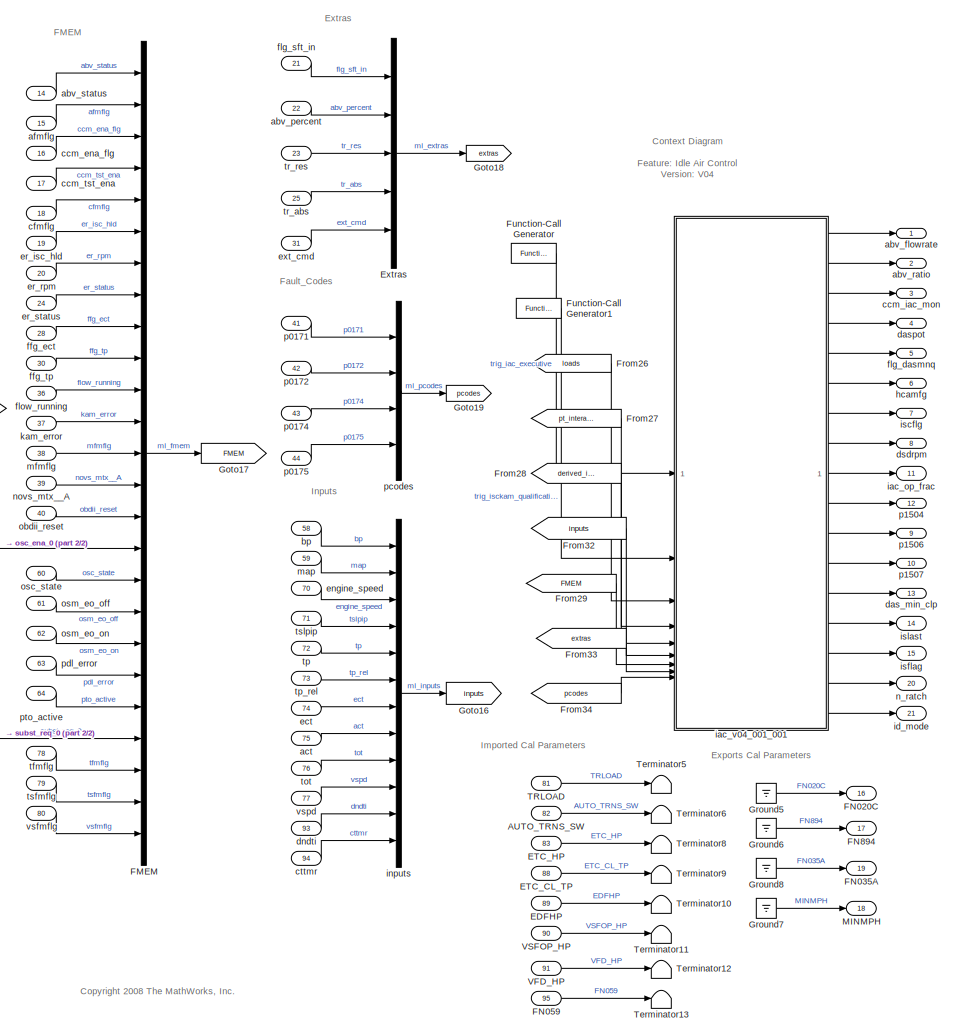
[diagram: root canvas - part 1/2, right side, full height]
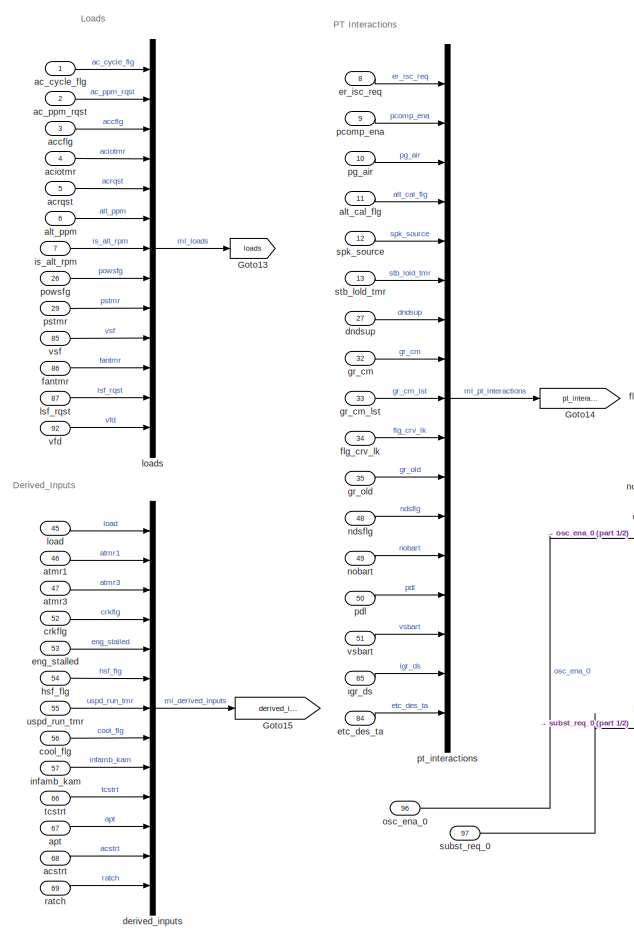
[diagram: root canvas - part 2/2, left side, full height]
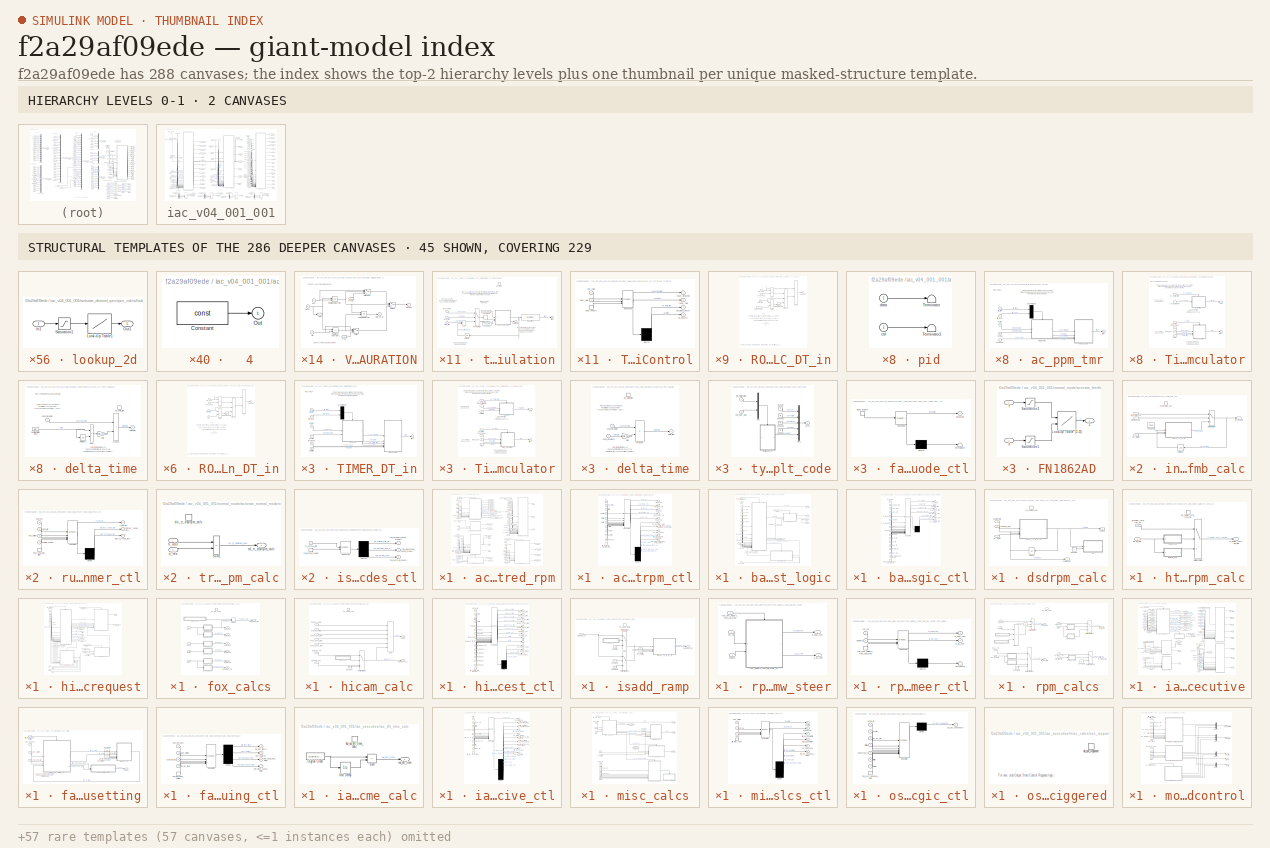
[diagram: thumbnail index - top-2 hierarchy levels (2 canvases) + 45 structural-template representatives of the remaining 286 canvases]
MODEL slx_f2a29af09ede
KIND model
CONFIG AbsTol = auto
CONFIG EnableMultiTasking = on
CONFIG FixedStep = auto
CONFIG MaxStep = auto
CONFIG MinStep = auto
CONFIG RelTol = 1e-3
CONFIG SampleTimeConstraint = Unconstrained
CONFIG SolverName = ode45
CONFIG StartTime = 0.0
CONFIG StopTime = 10.0
BLOCK [Inport] AUTO_TRNS_SW
  Port = 82
BLOCK [Inport] EDFHP
  Port = 89
BLOCK [Inport] ETC_CL_TP
  Port = 88
BLOCK [Inport] ETC_HP
  Port = 83
BLOCK [Mux] Extras
  Inputs = 5
BLOCK [Mux] FMEM
  Inputs = 25
BLOCK [Outport] FN020C
  Port = 16
BLOCK [Outport] FN035A
  Port = 19
BLOCK [Inport] FN059
  Port = 95
BLOCK [Outport] FN894
  Port = 17
BLOCK [From] From26
  GotoTag = loads
BLOCK [From] From27
  GotoTag = pt_interactions
BLOCK [From] From28
  GotoTag = derived_inputs
BLOCK [From] From29
  GotoTag = FMEM
BLOCK [From] From32
  GotoTag = inputs
BLOCK [From] From33
  GotoTag = extras
BLOCK [From] From34
  GotoTag = pcodes
BLOCK [Reference] Function-Call Generator  REF=simulink/Ports &
Subsystems/Function-Call
Generator
  SourceBlock = simulink/Ports &\nSubsystems/Function-Call\nGenerator
  SourceType = Function-Call Generator
BLOCK [Reference] Function-Call Generator1  REF=simulink/Ports &
Subsystems/Function-Call
Generator
  SourceBlock = simulink/Ports &\nSubsystems/Function-Call\nGenerator
  SourceType = Function-Call Generator
BLOCK [Goto] Goto13
  GotoTag = loads
BLOCK [Goto] Goto14
  GotoTag = pt_interactions
BLOCK [Goto] Goto15
  GotoTag = derived_inputs
BLOCK [Goto] Goto16
  GotoTag = inputs
BLOCK [Goto] Goto17
  GotoTag = FMEM
BLOCK [Goto] Goto18
  GotoTag = extras
BLOCK [Goto] Goto19
  GotoTag = pcodes
BLOCK [Ground] Ground5
BLOCK [Ground] Ground6
BLOCK [Ground] Ground7
BLOCK [Ground] Ground8
BLOCK [Outport] MINMPH
  Port = 18
BLOCK [Inport] TRLOAD
  Port = 81
BLOCK [Terminator] Terminator10
BLOCK [Terminator] Terminator11
BLOCK [Terminator] Terminator12
BLOCK [Terminator] Terminator13
BLOCK [Terminator] Terminator5
BLOCK [Terminator] Terminator6
BLOCK [Terminator] Terminator8
BLOCK [Terminator] Terminator9
BLOCK [Inport] VFD_HP
  Port = 91
BLOCK [Inport] VSFOP_HP
  Port = 90
BLOCK [Outport] abv_flowrate
BLOCK [Inport] abv_percent
  Port = 22
BLOCK [Outport] abv_ratio
  Port = 2
BLOCK [Inport] abv_status
  Port = 14
BLOCK [Inport] ac_cycle_flg
BLOCK [Inport] ac_ppm_rqst
  Port = 2
BLOCK [Inport] accflg
  Port = 3
BLOCK [Inport] aciotmr
  Port = 4
BLOCK [Inport] acrqst
  Port = 5
BLOCK [Inport] acstrt
  Port = 68
BLOCK [Inport] act
  Port = 75
BLOCK [Inport] afmflg
  Port = 15
BLOCK [Inport] alt_cal_flg
  Port = 11
BLOCK [Inport] alt_ppm
  Port = 6
BLOCK [Inport] apt
  Port = 67
BLOCK [Inport] atmr1
  Port = 46
BLOCK [Inport] atmr3
  Port = 47
BLOCK [Inport] bp
  Port = 58
BLOCK [Inport] ccm_ena_flg
  Port = 16
BLOCK [Outport] ccm_iac_mon
  Port = 3
BLOCK [Inport] ccm_tst_ena
  Port = 17
BLOCK [Inport] cfmflg
  Port = 18
BLOCK [Inport] cool_flg
  Port = 56
BLOCK [Inport] crkflg
  Port = 52
BLOCK [Inport] cttmr
  Port = 94
BLOCK [Outport] das_min_clp
  Port = 13
BLOCK [Outport] daspot
  Port = 4
BLOCK [Mux] derived_inputs
  Inputs = 13
BLOCK [Inport] dndsup
  Port = 27
BLOCK [Inport] dndti
  Port = 93
BLOCK [Outport] dsdrpm
  Port = 8
BLOCK [Inport] ect
  Port = 74
BLOCK [Inport] eng_stalled
  Port = 53
BLOCK [Inport] engine_speed
  Port = 70
BLOCK [Inport] er_isc_hld
  Port = 19
BLOCK [Inport] er_isc_req
  Port = 8
BLOCK [Inport] er_rpm
  Port = 20
BLOCK [Inport] er_status
  Port = 24
BLOCK [Inport] etc_des_ta
  Port = 84
BLOCK [Inport] ext_cmd
  Port = 31
BLOCK [Inport] fantmr
  Port = 86
BLOCK [Inport] ffg_ect
  Port = 28
BLOCK [Inport] ffg_tp
  Port = 30
BLOCK [Inport] flg_crv_lk
  Port = 34
BLOCK [Outport] flg_dasmnq
  Port = 5
BLOCK [Inport] flg_sft_in
  Port = 21
BLOCK [Inport] flow_running
  Port = 36
BLOCK [Inport] gr_cm
  Port = 32
BLOCK [Inport] gr_cm_lst
  Port = 33
BLOCK [Inport] gr_old
  Port = 35
BLOCK [Outport] hcamfg
  Port = 6
BLOCK [Inport] hsf_flg
  Port = 54
BLOCK [Outport] iac_op_frac
  Port = 11
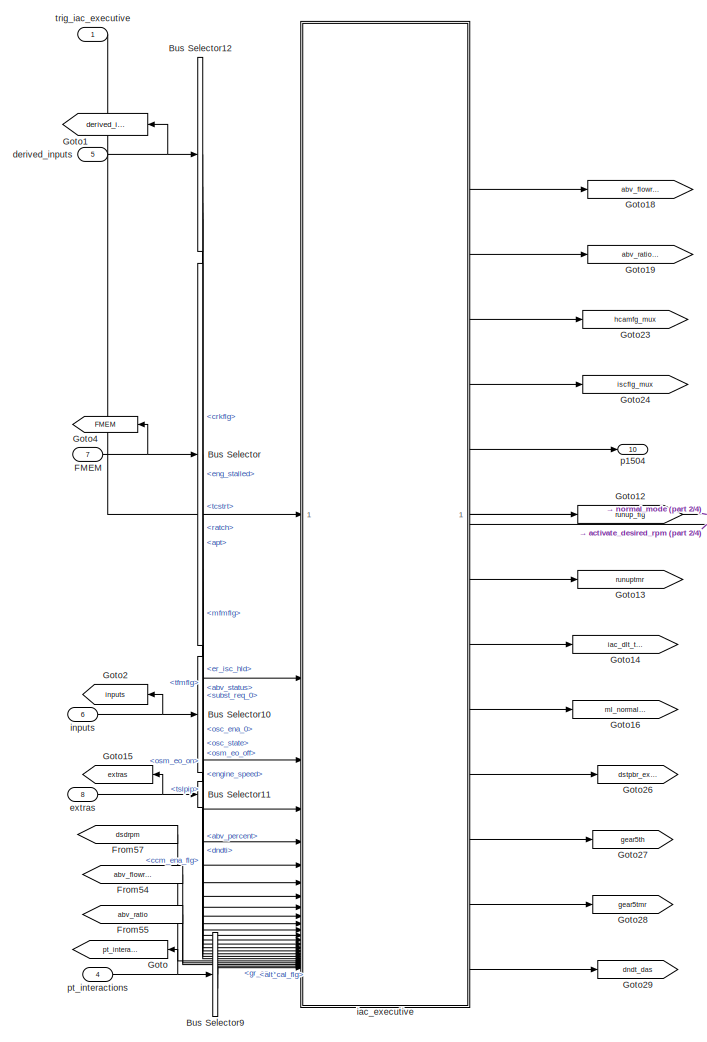
[diagram: iac_v04_001_001 - part 1/4, left side, full height]
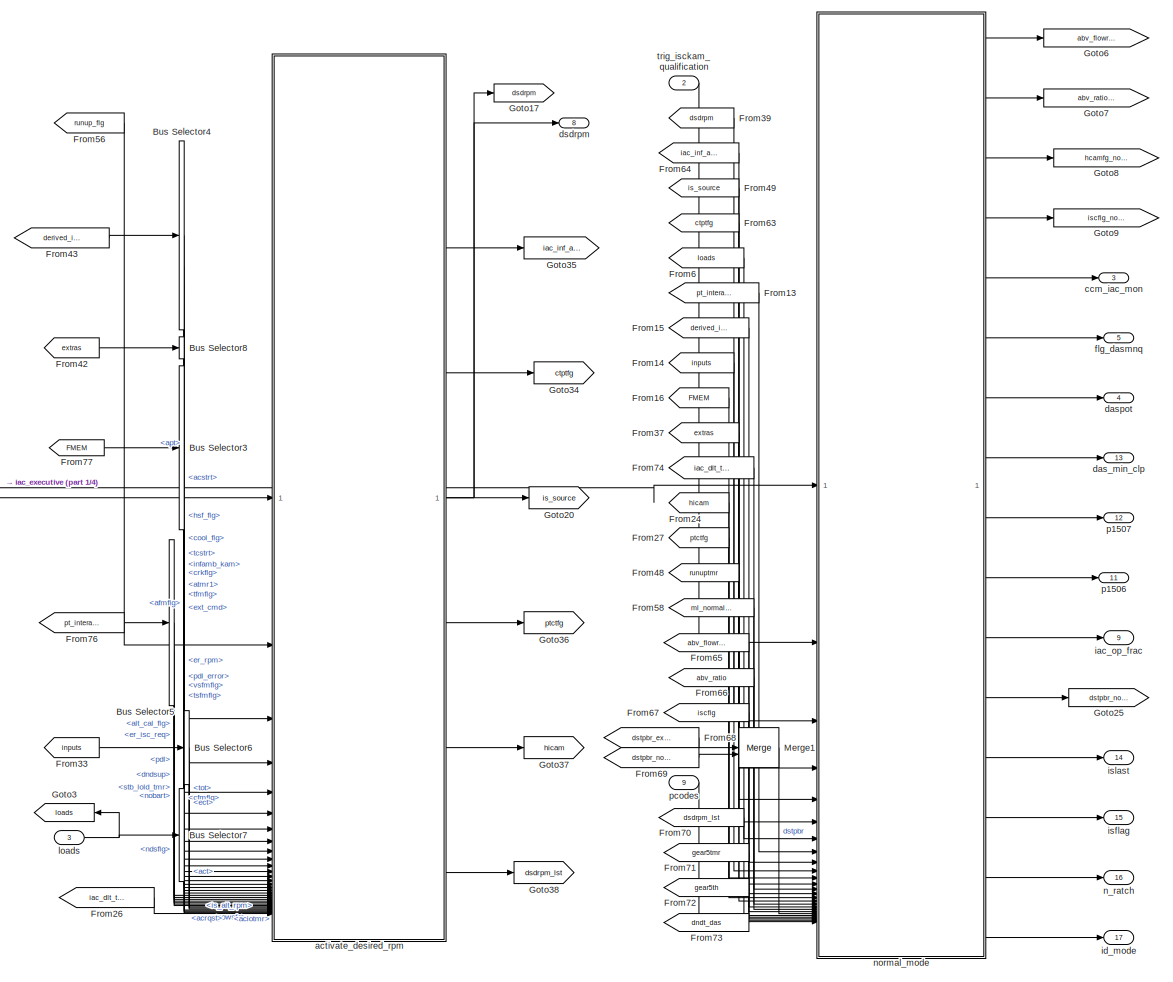
[diagram: iac_v04_001_001 - part 2/4, right side, full height]
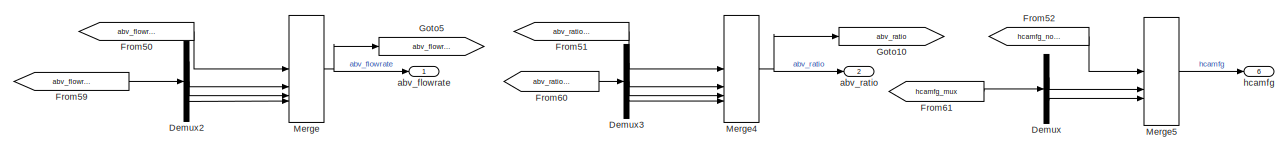
[diagram: iac_v04_001_001 - part 3/4, bottom center region]
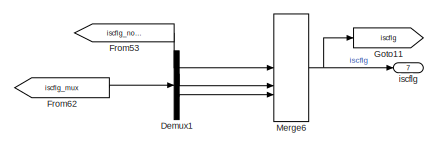
[diagram: iac_v04_001_001 - part 4/4, bottom right region]
BLOCK [SubSystem] iac_v04_001_001
BLOCK [BusSelector] iac_v04_001_001/Bus Selector
  OutputSignals = er_isc_hld,mfmflg,osc_ena_0,osc_state,osm_eo_off,osm_eo_on,tfmflg,abv_status,ccm_ena_flg,subst_req_0
BLOCK [BusSelector] iac_v04_001_001/Bus Selector10
  OutputSignals = engine_speed,tslpip,dndti
BLOCK [BusSelector] iac_v04_001_001/Bus Selector11
  OutputSignals = abv_percent
BLOCK [BusSelector] iac_v04_001_001/Bus Selector12
  OutputSignals = crkflg,eng_stalled,tcstrt,ratch,apt
BLOCK [BusSelector] iac_v04_001_001/Bus Selector3
  OutputSignals = er_rpm,pdl_error,vsfmflg,tfmflg,tsfmflg,afmflg,cfmflg
BLOCK [BusSelector] iac_v04_001_001/Bus Selector4
  OutputSignals = acstrt,hsf_flg,cool_flg,tcstrt,infamb_kam,crkflg,apt,atmr1
BLOCK [BusSelector] iac_v04_001_001/Bus Selector5
  OutputSignals = pdl,dndsup,alt_cal_flg,stb_lold_tmr,er_isc_req,ndsflg,nobart
BLOCK [BusSelector] iac_v04_001_001/Bus Selector6
  OutputSignals = tot,act,ect
BLOCK [BusSelector] iac_v04_001_001/Bus Selector7
  OutputSignals = powsfg,acrqst,aciotmr,is_alt_rpm
BLOCK [BusSelector] iac_v04_001_001/Bus Selector8
  OutputSignals = ext_cmd
BLOCK [BusSelector] iac_v04_001_001/Bus Selector9
  OutputSignals = gr_cm,alt_cal_flg
BLOCK [Demux] iac_v04_001_001/Demux
  DisplayOption = none
  Outputs = 2
BLOCK [Demux] iac_v04_001_001/Demux1
  DisplayOption = none
  Outputs = 2
BLOCK [Demux] iac_v04_001_001/Demux2
  DisplayOption = none
  Outputs = 3
BLOCK [Demux] iac_v04_001_001/Demux3
  DisplayOption = none
  Outputs = 3
BLOCK [Inport] iac_v04_001_001/FMEM
  Port = 7
BLOCK [From] iac_v04_001_001/From13
  GotoTag = pt_interactions
BLOCK [From] iac_v04_001_001/From14
  GotoTag = inputs
BLOCK [From] iac_v04_001_001/From15
  GotoTag = derived_inputs
BLOCK [From] iac_v04_001_001/From16
  GotoTag = FMEM
BLOCK [From] iac_v04_001_001/From24
  GotoTag = hicam
BLOCK [From] iac_v04_001_001/From26
  GotoTag = iac_dlt_time
BLOCK [From] iac_v04_001_001/From27
  GotoTag = ptctfg
BLOCK [From] iac_v04_001_001/From33
  GotoTag = inputs
BLOCK [From] iac_v04_001_001/From37
  GotoTag = extras
BLOCK [From] iac_v04_001_001/From39
  GotoTag = dsdrpm
BLOCK [From] iac_v04_001_001/From42
  GotoTag = extras
BLOCK [From] iac_v04_001_001/From43
  GotoTag = derived_inputs
BLOCK [From] iac_v04_001_001/From48
  GotoTag = runuptmr
BLOCK [From] iac_v04_001_001/From49
  GotoTag = is_source
BLOCK [From] iac_v04_001_001/From50
  GotoTag = abv_flowrate_norm
BLOCK [From] iac_v04_001_001/From51
  GotoTag = abv_ration_norm
BLOCK [From] iac_v04_001_001/From52
  GotoTag = hcamfg_norm
BLOCK [From] iac_v04_001_001/From53
  GotoTag = iscflg_norm
BLOCK [From] iac_v04_001_001/From54
  GotoTag = abv_flowrate
BLOCK [From] iac_v04_001_001/From55
  GotoTag = abv_ratio
BLOCK [From] iac_v04_001_001/From56
  GotoTag = runup_flg
BLOCK [From] iac_v04_001_001/From57
  GotoTag = dsdrpm
BLOCK [From] iac_v04_001_001/From58
  GotoTag = ml_normal_init
BLOCK [From] iac_v04_001_001/From59
  GotoTag = abv_flowrate_mux
BLOCK [From] iac_v04_001_001/From6
  GotoTag = loads
BLOCK [From] iac_v04_001_001/From60
  GotoTag = abv_ratio_mux
BLOCK [From] iac_v04_001_001/From61
  GotoTag = hcamfg_mux
BLOCK [From] iac_v04_001_001/From62
  GotoTag = iscflg_mux
BLOCK [From] iac_v04_001_001/From63
  GotoTag = ctptfg
BLOCK [From] iac_v04_001_001/From64
  GotoTag = iac_inf_amb
BLOCK [From] iac_v04_001_001/From65
  GotoTag = abv_flowrate
BLOCK [From] iac_v04_001_001/From66
  GotoTag = abv_ratio
BLOCK [From] iac_v04_001_001/From67
  GotoTag = iscflg
BLOCK [From] iac_v04_001_001/From68
  GotoTag = dstpbr_exec
BLOCK [From] iac_v04_001_001/From69
  GotoTag = dstpbr_norm
BLOCK [From] iac_v04_001_001/From70
  GotoTag = dsdrpm_lst
BLOCK [From] iac_v04_001_001/From71
  GotoTag = gear5tmr
BLOCK [From] iac_v04_001_001/From72
  GotoTag = gear5th
BLOCK [From] iac_v04_001_001/From73
  GotoTag = dndt_das
BLOCK [From] iac_v04_001_001/From74
  GotoTag = iac_dlt_time
BLOCK [From] iac_v04_001_001/From76
  GotoTag = pt_interactions
BLOCK [From] iac_v04_001_001/From77
  GotoTag = FMEM
BLOCK [Goto] iac_v04_001_001/Goto
  GotoTag = pt_interactions
BLOCK [Goto] iac_v04_001_001/Goto1
  GotoTag = derived_inputs
BLOCK [Goto] iac_v04_001_001/Goto10
  GotoTag = abv_ratio
BLOCK [Goto] iac_v04_001_001/Goto11
  GotoTag = iscflg
BLOCK [Goto] iac_v04_001_001/Goto12
  GotoTag = runup_flg
BLOCK [Goto] iac_v04_001_001/Goto13
  GotoTag = runuptmr
BLOCK [Goto] iac_v04_001_001/Goto14
  GotoTag = iac_dlt_time
BLOCK [Goto] iac_v04_001_001/Goto15
  GotoTag = extras
BLOCK [Goto] iac_v04_001_001/Goto16
  GotoTag = ml_normal_init
BLOCK [Goto] iac_v04_001_001/Goto17
  GotoTag = dsdrpm
BLOCK [Goto] iac_v04_001_001/Goto18
  GotoTag = abv_flowrate_mux
BLOCK [Goto] iac_v04_001_001/Goto19
  GotoTag = abv_ratio_mux
BLOCK [Goto] iac_v04_001_001/Goto2
  GotoTag = inputs
BLOCK [Goto] iac_v04_001_001/Goto20
  GotoTag = is_source
BLOCK [Goto] iac_v04_001_001/Goto23
  GotoTag = hcamfg_mux
BLOCK [Goto] iac_v04_001_001/Goto24
  GotoTag = iscflg_mux
BLOCK [Goto] iac_v04_001_001/Goto25
  GotoTag = dstpbr_norm
BLOCK [Goto] iac_v04_001_001/Goto26
  GotoTag = dstpbr_exec
BLOCK [Goto] iac_v04_001_001/Goto27
  GotoTag = gear5th
BLOCK [Goto] iac_v04_001_001/Goto28
  GotoTag = gear5tmr
BLOCK [Goto] iac_v04_001_001/Goto29
  GotoTag = dndt_das
BLOCK [Goto] iac_v04_001_001/Goto3
  GotoTag = loads
BLOCK [Goto] iac_v04_001_001/Goto34
  GotoTag = ctptfg
BLOCK [Goto] iac_v04_001_001/Goto35
  GotoTag = iac_inf_amb
BLOCK [Goto] iac_v04_001_001/Goto36
  GotoTag = ptctfg
BLOCK [Goto] iac_v04_001_001/Goto37
  GotoTag = hicam
BLOCK [Goto] iac_v04_001_001/Goto38
  GotoTag = dsdrpm_lst
BLOCK [Goto] iac_v04_001_001/Goto4
  GotoTag = FMEM
BLOCK [Goto] iac_v04_001_001/Goto5
  GotoTag = abv_flowrate
BLOCK [Goto] iac_v04_001_001/Goto6
  GotoTag = abv_flowrate_norm
BLOCK [Goto] iac_v04_001_001/Goto7
  GotoTag = abv_ration_norm
BLOCK [Goto] iac_v04_001_001/Goto8
  GotoTag = hcamfg_norm
BLOCK [Goto] iac_v04_001_001/Goto9
  GotoTag = iscflg_norm
BLOCK [Merge] iac_v04_001_001/Merge
  Inputs = 4
BLOCK [Merge] iac_v04_001_001/Merge1
BLOCK [Merge] iac_v04_001_001/Merge4
  Inputs = 4
BLOCK [Merge] iac_v04_001_001/Merge5
  Inputs = 3
BLOCK [Merge] iac_v04_001_001/Merge6
  Inputs = 3
BLOCK [Outport] iac_v04_001_001/abv_flowrate
BLOCK [Outport] iac_v04_001_001/abv_ratio
  Port = 2
BLOCK [SubSystem] iac_v04_001_001/activate_desired_rpm
BLOCK [From] iac_v04_001_001/activate_desired_rpm/From24
  GotoTag = ml_inf_amb_sw
BLOCK [From] iac_v04_001_001/activate_desired_rpm/From27
  GotoTag = trig_hicam_rpm_request
BLOCK [From] iac_v04_001_001/activate_desired_rpm/From28
  GotoTag = do_inf_amb_calc
BLOCK [From] iac_v04_001_001/activate_desired_rpm/From29
  GotoTag = do_rpm_calcs
BLOCK [From] iac_v04_001_001/activate_desired_rpm/From32
  GotoTag = trig_rpm_adders_fans_pw_steer
BLOCK [From] iac_v04_001_001/activate_desired_rpm/From33
  GotoTag = iac_dlt_time
BLOCK [From] iac_v04_001_001/activate_desired_rpm/From34
  GotoTag = iac_inf_amb
BLOCK [From] iac_v04_001_001/activate_desired_rpm/From35
  GotoTag = dndsup
BLOCK [From] iac_v04_001_001/activate_desired_rpm/From37
  GotoTag = is_tot_rpm
BLOCK [From] iac_v04_001_001/activate_desired_rpm/From38
  GotoTag = is_xtend_rpm
BLOCK [From] iac_v04_001_001/activate_desired_rpm/From39
  GotoTag = is_ps_rpm
BLOCK [From] iac_v04_001_001/activate_desired_rpm/From40
  GotoTag = is_hedf_rpm
BLOCK [From] iac_v04_001_001/activate_desired_rpm/From42
  GotoTag = hicam
BLOCK [From] iac_v04_001_001/activate_desired_rpm/From43
  GotoTag = alt_cal_flg
BLOCK [From] iac_v04_001_001/activate_desired_rpm/From44
  GotoTag = trig_base_rpm_and_select_logic
BLOCK [From] iac_v04_001_001/activate_desired_rpm/From45
  GotoTag = is_tsl_rpm
BLOCK [From] iac_v04_001_001/activate_desired_rpm/From46
  GotoTag = is_ac_rpm
BLOCK [From] iac_v04_001_001/activate_desired_rpm/From47
  GotoTag = iac_inf_amb
BLOCK [From] iac_v04_001_001/activate_desired_rpm/From48
  GotoTag = ml_tsl_sw
BLOCK [From] iac_v04_001_001/activate_desired_rpm/From49
  GotoTag = ml_ac_sw
BLOCK [From] iac_v04_001_001/activate_desired_rpm/From50
  GotoTag = dndsup
BLOCK [From] iac_v04_001_001/activate_desired_rpm/From52
  GotoTag = ml_xtend_sw
BLOCK [From] iac_v04_001_001/activate_desired_rpm/From53
  GotoTag = ml_tot_sw
BLOCK [From] iac_v04_001_001/activate_desired_rpm/From54
  GotoTag = iac_dlt_time
BLOCK [From] iac_v04_001_001/activate_desired_rpm/From55
  GotoTag = runup_flg
BLOCK [Goto] iac_v04_001_001/activate_desired_rpm/Goto37
  GotoTag = ml_tot_sw
BLOCK [Goto] iac_v04_001_001/activate_desired_rpm/Goto38
  GotoTag = ml_xtend_sw
BLOCK [Goto] iac_v04_001_001/activate_desired_rpm/Goto39
  GotoTag = ml_tsl_sw
BLOCK [Goto] iac_v04_001_001/activate_desired_rpm/Goto40
  GotoTag = trig_hicam_rpm_request
BLOCK [Goto] iac_v04_001_001/activate_desired_rpm/Goto41
  GotoTag = trig_rpm_adders_fans_pw_steer
BLOCK [Goto] iac_v04_001_001/activate_desired_rpm/Goto43
  GotoTag = do_inf_amb_calc
BLOCK [Goto] iac_v04_001_001/activate_desired_rpm/Goto44
  GotoTag = ml_inf_amb_sw
BLOCK [Goto] iac_v04_001_001/activate_desired_rpm/Goto45
  GotoTag = iac_inf_amb
BLOCK [Goto] iac_v04_001_001/activate_desired_rpm/Goto47
  GotoTag = trig_base_rpm_and_select_logic
BLOCK [Goto] iac_v04_001_001/activate_desired_rpm/Goto49
  GotoTag = is_hedf_rpm
BLOCK [Goto] iac_v04_001_001/activate_desired_rpm/Goto50
  GotoTag = is_ps_rpm
BLOCK [Goto] iac_v04_001_001/activate_desired_rpm/Goto52
  GotoTag = hicam
BLOCK [Goto] iac_v04_001_001/activate_desired_rpm/Goto54
  GotoTag = is_tsl_rpm
BLOCK [Goto] iac_v04_001_001/activate_desired_rpm/Goto55
  GotoTag = do_rpm_calcs
BLOCK [Goto] iac_v04_001_001/activate_desired_rpm/Goto56
  GotoTag = ml_ac_sw
BLOCK [Goto] iac_v04_001_001/activate_desired_rpm/Goto57
  GotoTag = is_ac_rpm
BLOCK [Goto] iac_v04_001_001/activate_desired_rpm/Goto58
  GotoTag = dndsup
BLOCK [Goto] iac_v04_001_001/activate_desired_rpm/Goto60
  GotoTag = iac_dlt_time
BLOCK [Goto] iac_v04_001_001/activate_desired_rpm/Goto61
  GotoTag = alt_cal_flg
BLOCK [Goto] iac_v04_001_001/activate_desired_rpm/Goto62
  GotoTag = is_tot_rpm
BLOCK [Goto] iac_v04_001_001/activate_desired_rpm/Goto63
  GotoTag = is_xtend_rpm
BLOCK [Goto] iac_v04_001_001/activate_desired_rpm/Goto64
  GotoTag = runup_flg
BLOCK [Inport] iac_v04_001_001/activate_desired_rpm/aciotmr
  Port = 31
BLOCK [Inport] iac_v04_001_001/activate_desired_rpm/acrqst
  Port = 30
BLOCK [Inport] iac_v04_001_001/activate_desired_rpm/acstrt
  Port = 3
BLOCK [Inport] iac_v04_001_001/activate_desired_rpm/act
  Port = 27
BLOCK [SubSystem] iac_v04_001_001/activate_desired_rpm/activate_desired_rpm_ctl
  ErrorFcn = Stateflow.Translate.translate
  PermitHierarchicalResolution = ExplicitOnly
  SFBlockType = Chart
  TreatAsAtomicUnit = on
BLOCK [Demux] iac_v04_001_001/activate_desired_rpm/activate_desired_rpm_ctl/ Demux 
  Outputs = 5
BLOCK [S-Function] iac_v04_001_001/activate_desired_rpm/activate_desired_rpm_ctl/ SFunction 
  EnableBusSupport = off
  FunctionName = sf_sfun
  Parameters = AC_OFF_DLY,AUTO_TRNS_SW,TRLOAD
  PortCounts = [11 6]
  SFcnIsStateOwnerBlock = off
  SFunctionDeploymentMode = off
  Tag = Stateflow S-Function 6
BLOCK [Inport] iac_v04_001_001/activate_desired_rpm/activate_desired_rpm_ctl/aciotmr
  Port = 9
BLOCK [Inport] iac_v04_001_001/activate_desired_rpm/activate_desired_rpm_ctl/acrqst
  Port = 8
BLOCK [Inport] iac_v04_001_001/activate_desired_rpm/activate_desired_rpm_ctl/afmflg
  Port = 6
BLOCK [Inport] iac_v04_001_001/activate_desired_rpm/activate_desired_rpm_ctl/cfmflg
  Port = 7
BLOCK [Inport] iac_v04_001_001/activate_desired_rpm/activate_desired_rpm_ctl/dndsup
  Port = 10
BLOCK [Outport] iac_v04_001_001/activate_desired_rpm/activate_desired_rpm_ctl/do_inf_amb_calc()
  Port = 6
BLOCK [Outport] iac_v04_001_001/activate_desired_rpm/activate_desired_rpm_ctl/do_rpm_calcs()
  Port = 8
BLOCK [Outport] iac_v04_001_001/activate_desired_rpm/activate_desired_rpm_ctl/ml_ac_sw
  Port = 5
BLOCK [Outport] iac_v04_001_001/activate_desired_rpm/activate_desired_rpm_ctl/ml_inf_amb_sw
  Port = 4
BLOCK [Outport] iac_v04_001_001/activate_desired_rpm/activate_desired_rpm_ctl/ml_tot_sw
BLOCK [Outport] iac_v04_001_001/activate_desired_rpm/activate_desired_rpm_ctl/ml_tsl_sw
  Port = 3
BLOCK [Outport] iac_v04_001_001/activate_desired_rpm/activate_desired_rpm_ctl/ml_xtend_sw
  Port = 2
BLOCK [Inport] iac_v04_001_001/activate_desired_rpm/activate_desired_rpm_ctl/pdl
BLOCK [Inport] iac_v04_001_001/activate_desired_rpm/activate_desired_rpm_ctl/pdl_error
  Port = 2
BLOCK [Inport] iac_v04_001_001/activate_desired_rpm/activate_desired_rpm_ctl/tfmflg
  Port = 3
BLOCK [TriggerPort] iac_v04_001_001/activate_desired_rpm/activate_desired_rpm_ctl/trig_activate_desired_rpm
  ShowOutputPort = on
  TriggerType = function-call
  VariantControl = (inherit)
BLOCK [Outport] iac_v04_001_001/activate_desired_rpm/activate_desired_rpm_ctl/trig_base_rpm_and_select_logic()
  Port = 10
BLOCK [Outport] iac_v04_001_001/activate_desired_rpm/activate_desired_rpm_ctl/trig_hicam_rpm_request()
  Port = 9
BLOCK [Outport] iac_v04_001_001/activate_desired_rpm/activate_desired_rpm_ctl/trig_rpm_adders_fans_and_pw_steer()
  Port = 7
BLOCK [Inport] iac_v04_001_001/activate_desired_rpm/activate_desired_rpm_ctl/tsfmflg
  Port = 5
BLOCK [Inport] iac_v04_001_001/activate_desired_rpm/activate_desired_rpm_ctl/vsfmflg
  Port = 4
BLOCK [Inport] iac_v04_001_001/activate_desired_rpm/afmflg
  Port = 17
BLOCK [Inport] iac_v04_001_001/activate_desired_rpm/alt_cal_flg
  Port = 21
BLOCK [Inport] iac_v04_001_001/activate_desired_rpm/apt
  Port = 9
BLOCK [Inport] iac_v04_001_001/activate_desired_rpm/atmr1
  Port = 10
BLOCK [SubSystem] iac_v04_001_001/activate_desired_rpm/base_rpm_and_select_logic
BLOCK [From] iac_v04_001_001/activate_desired_rpm/base_rpm_and_select_logic/From31
  GotoTag = do_dsdrpm_calc
BLOCK [From] iac_v04_001_001/activate_desired_rpm/base_rpm_and_select_logic/From32
  GotoTag = dsdrpm_lst
BLOCK [Goto] iac_v04_001_001/activate_desired_rpm/base_rpm_and_select_logic/Goto37
  GotoTag = do_dsdrpm_calc
BLOCK [Goto] iac_v04_001_001/activate_desired_rpm/base_rpm_and_select_logic/Goto38
  GotoTag = dsdrpm_lst
BLOCK [Inport] iac_v04_001_001/activate_desired_rpm/base_rpm_and_select_logic/alt_cal_flg
  Port = 13
BLOCK [SubSystem] iac_v04_001_001/activate_desired_rpm/base_rpm_and_select_logic/base_rpm_and_select_logic_ctl
  ErrorFcn = Stateflow.Translate.translate
  PermitHierarchicalResolution = ExplicitOnly
  SFBlockType = Chart
  TreatAsAtomicUnit = on
BLOCK [Demux] iac_v04_001_001/activate_desired_rpm/base_rpm_and_select_logic/base_rpm_and_select_logic_ctl/ Demux 
  Outputs = 2
BLOCK [S-Function] iac_v04_001_001/activate_desired_rpm/base_rpm_and_select_logic/base_rpm_and_select_logic_ctl/ SFunction 
  EnableBusSupport = off
  FunctionName = sf_sfun
  Parameters = AUTO_TRNS_SW,COOL_BASE,DSDRPM_DN_TC,DSDRPM_UP_TC,ISCLPD,ISCLPD_ALT,IS_DRBASE_A__A,IS_DRBASE__A,IS_NUBASE_A__A,IS_NUBASE__A
  PortCounts = [17 5]
  SFcnIsStateOwnerBlock = off
  SFunctionDeploymentMode = off
  Tag = Stateflow S-Function 9
BLOCK [Inport] iac_v04_001_001/activate_desired_rpm/base_rpm_and_select_logic/base_rpm_and_select_logic_ctl/alt_cal_flg
  Port = 11
BLOCK [Inport] iac_v04_001_001/activate_desired_rpm/base_rpm_and_select_logic/base_rpm_and_select_logic_ctl/cool_flg
  Port = 12
BLOCK [Inport] iac_v04_001_001/activate_desired_rpm/base_rpm_and_select_logic/base_rpm_and_select_logic_ctl/dndsup
  Port = 10
BLOCK [Outport] iac_v04_001_001/activate_desired_rpm/base_rpm_and_select_logic/base_rpm_and_select_logic_ctl/do_dsdrpm_calc()
  Port = 5
BLOCK [Outport] iac_v04_001_001/activate_desired_rpm/base_rpm_and_select_logic/base_rpm_and_select_logic_ctl/do_htr_core_rpm_calc()
  Port = 6
BLOCK [Inport] iac_v04_001_001/activate_desired_rpm/base_rpm_and_select_logic/base_rpm_and_select_logic_ctl/dsdrpm_lst
  Port = 14
BLOCK [Outport] iac_v04_001_001/activate_desired_rpm/base_rpm_and_select_logic/base_rpm_and_select_logic_ctl/dsdrpm_tc_tmp
  Port = 3
BLOCK [Outport] iac_v04_001_001/activate_desired_rpm/base_rpm_and_select_logic/base_rpm_and_select_logic_ctl/dsdrpm_tmp
  Port = 2
BLOCK [Inport] iac_v04_001_001/activate_desired_rpm/base_rpm_and_select_logic/base_rpm_and_select_logic_ctl/er_isc_req
  Port = 15
BLOCK [Inport] iac_v04_001_001/activate_desired_rpm/base_rpm_and_select_logic/base_rpm_and_select_logic_ctl/er_rpm
  Port = 8
BLOCK [Inport] iac_v04_001_001/activate_desired_rpm/base_rpm_and_select_logic/base_rpm_and_select_logic_ctl/hicam
  Port = 9
BLOCK [Inport] iac_v04_001_001/activate_desired_rpm/base_rpm_and_select_logic/base_rpm_and_select_logic_ctl/is_ac_rpm
  Port = 4
BLOCK [Inport] iac_v04_001_001/activate_desired_rpm/base_rpm_and_select_logic/base_rpm_and_select_logic_ctl/is_alt_rpm
  Port = 5
BLOCK [Inport] iac_v04_001_001/activate_desired_rpm/base_rpm_and_select_logic/base_rpm_and_select_logic_ctl/is_heater_core_rpm_tmp
  Port = 16
BLOCK [Inport] iac_v04_001_001/activate_desired_rpm/base_rpm_and_select_logic/base_rpm_and_select_logic_ctl/is_hedf_rpm
  Port = 7
BLOCK [Inport] iac_v04_001_001/activate_desired_rpm/base_rpm_and_select_logic/base_rpm_and_select_logic_ctl/is_ps_rpm
  Port = 3
BLOCK [Outport] iac_v04_001_001/activate_desired_rpm/base_rpm_and_select_logic/base_rpm_and_select_logic_ctl/is_source
BLOCK [Inport] iac_v04_001_001/activate_desired_rpm/base_rpm_and_select_logic/base_rpm_and_select_logic_ctl/is_tot_rpm
BLOCK [Inport] iac_v04_001_001/activate_desired_rpm/base_rpm_and_select_logic/base_rpm_and_select_logic_ctl/is_tsl_rpm
  Port = 6
BLOCK [Inport] iac_v04_001_001/activate_desired_rpm/base_rpm_and_select_logic/base_rpm_and_select_logic_ctl/is_xtend_rpm
  Port = 2
BLOCK [Outport] iac_v04_001_001/activate_desired_rpm/base_rpm_and_select_logic/base_rpm_and_select_logic_ctl/ml_htr_core_calc_sw
  Port = 4
BLOCK [Inport] iac_v04_001_001/activate_desired_rpm/base_rpm_and_select_logic/base_rpm_and_select_logic_ctl/runup_flg
  Port = 13
BLOCK [TriggerPort] iac_v04_001_001/activate_desired_rpm/base_rpm_and_select_logic/base_rpm_and_select_logic_ctl/trig_base_rpm_and_select_logic
  ShowOutputPort = on
  TriggerType = function-call
  VariantControl = (inherit)
BLOCK [Inport] iac_v04_001_001/activate_desired_rpm/base_rpm_and_select_logic/cool_flg
  Port = 14
BLOCK [Inport] iac_v04_001_001/activate_desired_rpm/base_rpm_and_select_logic/dndsup
  Port = 12
BLOCK [Outport] iac_v04_001_001/activate_desired_rpm/base_rpm_and_select_logic/dsdrpm
BLOCK [SubSystem] iac_v04_001_001/activate_desired_rpm/base_rpm_and_select_logic/dsdrpm_calc
  TreatAsAtomicUnit = on
BLOCK [Constant] iac_v04_001_001/activate_desired_rpm/base_rpm_and_select_logic/dsdrpm_calc/Constant
  Value = 0
BLOCK [SubSystem] iac_v04_001_001/activate_desired_rpm/base_rpm_and_select_logic/dsdrpm_calc/ROLAV_TC_in_DT_in
BLOCK [Math] iac_v04_001_001/activate_desired_rpm/base_rpm_and_select_logic/dsdrpm_calc/ROLAV_TC_in_DT_in/Elementary Math
  Operator = reciprocal
  SignedPower = on
BLOCK [Product] iac_v04_001_001/activate_desired_rpm/base_rpm_and_select_logic/dsdrpm_calc/ROLAV_TC_in_DT_in/Product
  InputSameDT = on
  Inputs = 3
  OutDataTypeStr = Inherit: Same as first input
  RndMeth = Zero
  SaturateOnIntegerOverflow = on
BLOCK [Sum] iac_v04_001_001/activate_desired_rpm/base_rpm_and_select_logic/dsdrpm_calc/ROLAV_TC_in_DT_in/Sum
  IconShape = rectangular
  InputSameDT = on
  Inputs = -+
  OutDataTypeStr = Inherit: Same as first input
  SaturateOnIntegerOverflow = on
BLOCK [Sum] iac_v04_001_001/activate_desired_rpm/base_rpm_and_select_logic/dsdrpm_calc/ROLAV_TC_in_DT_in/Sum1
  IconShape = rectangular
  InputSameDT = on
  OutDataTypeStr = Inherit: Same as first input
  SaturateOnIntegerOverflow = on
BLOCK [Sum] iac_v04_001_001/activate_desired_rpm/base_rpm_and_select_logic/dsdrpm_calc/ROLAV_TC_in_DT_in/Sum2
  IconShape = rectangular
  InputSameDT = on
  OutDataTypeStr = Inherit: Same as first input
  SaturateOnIntegerOverflow = on
BLOCK [Inport] iac_v04_001_001/activate_desired_rpm/base_rpm_and_select_logic/dsdrpm_calc/ROLAV_TC_in_DT_in/Tau
  Port = 2
BLOCK [Inport] iac_v04_001_001/activate_desired_rpm/base_rpm_and_select_logic/dsdrpm_calc/ROLAV_TC_in_DT_in/delta_time
  Port = 4
BLOCK [Outport] iac_v04_001_001/activate_desired_rpm/base_rpm_and_select_logic/dsdrpm_calc/ROLAV_TC_in_DT_in/new_ave
BLOCK [Inport] iac_v04_001_001/activate_desired_rpm/base_rpm_and_select_logic/dsdrpm_calc/ROLAV_TC_in_DT_in/new_value
BLOCK [Inport] iac_v04_001_001/activate_desired_rpm/base_rpm_and_select_logic/dsdrpm_calc/ROLAV_TC_in_DT_in/old_ave
  Port = 3
BLOCK [UnitDelay] iac_v04_001_001/activate_desired_rpm/base_rpm_and_select_logic/dsdrpm_calc/Unit Delay
  SampleTime = -1
BLOCK [TriggerPort] iac_v04_001_001/activate_desired_rpm/base_rpm_and_select_logic/dsdrpm_calc/do_dsdrpm_calc
  TriggerType = function-call
  VariantControl = (inherit)
BLOCK [Outport] iac_v04_001_001/activate_desired_rpm/base_rpm_and_select_logic/dsdrpm_calc/dsdrpm
BLOCK [Outport] iac_v04_001_001/activate_desired_rpm/base_rpm_and_select_logic/dsdrpm_calc/dsdrpm_lst
  Port = 2
BLOCK [Inport] iac_v04_001_001/activate_desired_rpm/base_rpm_and_select_logic/dsdrpm_calc/dsdrpm_tc_tmp
  Port = 2
BLOCK [Inport] iac_v04_001_001/activate_desired_rpm/base_rpm_and_select_logic/dsdrpm_calc/dsdrpm_tmp
BLOCK [Inport] iac_v04_001_001/activate_desired_rpm/base_rpm_and_select_logic/dsdrpm_calc/iac_dlt_time
  Port = 3
BLOCK [SubSystem] iac_v04_001_001/activate_desired_rpm/base_rpm_and_select_logic/dsdrpm_calc/pid
BLOCK [Terminator] iac_v04_001_001/activate_desired_rpm/base_rpm_and_select_logic/dsdrpm_calc/pid/Terminator
BLOCK [Terminator] iac_v04_001_001/activate_desired_rpm/base_rpm_and_select_logic/dsdrpm_calc/pid/Terminator1
BLOCK [Inport] iac_v04_001_001/activate_desired_rpm/base_rpm_and_select_logic/dsdrpm_calc/pid/ctrl
  Port = 2
BLOCK [Inport] iac_v04_001_001/activate_desired_rpm/base_rpm_and_select_logic/dsdrpm_calc/pid/data
BLOCK [Outport] iac_v04_001_001/activate_desired_rpm/base_rpm_and_select_logic/dsdrpm_lst
  Port = 2
BLOCK [Inport] iac_v04_001_001/activate_desired_rpm/base_rpm_and_select_logic/er_isc_req
  Port = 17
BLOCK [Inport] iac_v04_001_001/activate_desired_rpm/base_rpm_and_select_logic/er_rpm
  Port = 10
BLOCK [Inport] iac_v04_001_001/activate_desired_rpm/base_rpm_and_select_logic/hicam
  Port = 11
BLOCK [SubSystem] iac_v04_001_001/activate_desired_rpm/base_rpm_and_select_logic/htr_core_rpm_calc
  TreatAsAtomicUnit = on
BLOCK [MultiPortSwitch] iac_v04_001_001/activate_desired_rpm/base_rpm_and_select_logic/htr_core_rpm_calc/Multiport Switch
  Inputs = 2
BLOCK [TriggerPort] iac_v04_001_001/activate_desired_rpm/base_rpm_and_select_logic/htr_core_rpm_calc/do_heater_core_rpm_calc
  TriggerType = function-call
  VariantControl = (inherit)
BLOCK [Inport] iac_v04_001_001/activate_desired_rpm/base_rpm_and_select_logic/htr_core_rpm_calc/iac_inf_amb
  Port = 2
BLOCK [Outport] iac_v04_001_001/activate_desired_rpm/base_rpm_and_select_logic/htr_core_rpm_calc/is_heater_core_rpm_tmp
BLOCK [SubSystem] iac_v04_001_001/activate_desired_rpm/base_rpm_and_select_logic/htr_core_rpm_calc/lookup_2d
BLOCK [Inport] iac_v04_001_001/activate_desired_rpm/base_rpm_and_select_logic/htr_core_rpm_calc/lookup_2d/In1
BLOCK [Lookup] iac_v04_001_001/activate_desired_rpm/base_rpm_and_select_logic/htr_core_rpm_calc/lookup_2d/Look-Up Table1
  InputValues = calfunc.X
  Table = calfunc.Y
BLOCK [Outport] iac_v04_001_001/activate_desired_rpm/base_rpm_and_select_logic/htr_core_rpm_calc/lookup_2d/Out1
BLOCK [Saturate] iac_v04_001_001/activate_desired_rpm/base_rpm_and_select_logic/htr_core_rpm_calc/lookup_2d/Saturation1
  LowerLimit = min_x
  UpperLimit = max_x
BLOCK [SubSystem] iac_v04_001_001/activate_desired_rpm/base_rpm_and_select_logic/htr_core_rpm_calc/lookup_2d1
BLOCK [Inport] iac_v04_001_001/activate_desired_rpm/base_rpm_and_select_logic/htr_core_rpm_calc/lookup_2d1/In1
BLOCK [Lookup] iac_v04_001_001/activate_desired_rpm/base_rpm_and_select_logic/htr_core_rpm_calc/lookup_2d1/Look-Up Table1
  InputValues = calfunc.X
  Table = calfunc.Y
BLOCK [Outport] iac_v04_001_001/activate_desired_rpm/base_rpm_and_select_logic/htr_core_rpm_calc/lookup_2d1/Out1
BLOCK [Saturate] iac_v04_001_001/activate_desired_rpm/base_rpm_and_select_logic/htr_core_rpm_calc/lookup_2d1/Saturation1
  LowerLimit = min_x
  UpperLimit = max_x
BLOCK [Inport] iac_v04_001_001/activate_desired_rpm/base_rpm_and_select_logic/htr_core_rpm_calc/ml_heater_core_calc_sw
BLOCK [Inport] iac_v04_001_001/activate_desired_rpm/base_rpm_and_select_logic/iac_dlt_time
  Port = 16
BLOCK [Inport] iac_v04_001_001/activate_desired_rpm/base_rpm_and_select_logic/iac_inf_amb
  Port = 2
BLOCK [Inport] iac_v04_001_001/activate_desired_rpm/base_rpm_and_select_logic/is_ac_rpm
  Port = 6
BLOCK [Inport] iac_v04_001_001/activate_desired_rpm/base_rpm_and_select_logic/is_alt_rpm
  Port = 7
BLOCK [Inport] iac_v04_001_001/activate_desired_rpm/base_rpm_and_select_logic/is_hedf_rpm
  Port = 9
BLOCK [Inport] iac_v04_001_001/activate_desired_rpm/base_rpm_and_select_logic/is_ps_rpm
  Port = 5
BLOCK [Outport] iac_v04_001_001/activate_desired_rpm/base_rpm_and_select_logic/is_source
  Port = 3
BLOCK [Inport] iac_v04_001_001/activate_desired_rpm/base_rpm_and_select_logic/is_tot_rpm
  Port = 3
BLOCK [Inport] iac_v04_001_001/activate_desired_rpm/base_rpm_and_select_logic/is_tsl_rpm
  Port = 8
BLOCK [Inport] iac_v04_001_001/activate_desired_rpm/base_rpm_and_select_logic/is_xtend_rpm
  Port = 4
BLOCK [Inport] iac_v04_001_001/activate_desired_rpm/base_rpm_and_select_logic/runup_flg
  Port = 15
BLOCK [Inport] iac_v04_001_001/activate_desired_rpm/base_rpm_and_select_logic/trig_base_rpm_and_select_logic
BLOCK [Inport] iac_v04_001_001/activate_desired_rpm/cfmflg
  Port = 18
BLOCK [Inport] iac_v04_001_001/activate_desired_rpm/cool_flg
  Port = 5
BLOCK [Inport] iac_v04_001_001/activate_desired_rpm/crkflg
  Port = 8
BLOCK [Outport] iac_v04_001_001/activate_desired_rpm/ctptfg
  Port = 3
BLOCK [Inport] iac_v04_001_001/activate_desired_rpm/dndsup
  Port = 20
BLOCK [Outport] iac_v04_001_001/activate_desired_rpm/dsdrpm
BLOCK [Outport] iac_v04_001_001/activate_desired_rpm/dsdrpm_lst
  Port = 7
BLOCK [Inport] iac_v04_001_001/activate_desired_rpm/ect
  Port = 28
BLOCK [Inport] iac_v04_001_001/activate_desired_rpm/er_isc_req
  Port = 23
BLOCK [Inport] iac_v04_001_001/activate_desired_rpm/er_rpm
  Port = 12
BLOCK [Inport] iac_v04_001_001/activate_desired_rpm/ext_cmd
  Port = 11
BLOCK [Outport] iac_v04_001_001/activate_desired_rpm/hicam
  Port = 6
BLOCK [SubSystem] iac_v04_001_001/activate_desired_rpm/hicam_rpm_request
BLOCK [From] iac_v04_001_001/activate_desired_rpm/hicam_rpm_request/From24
  GotoTag = do_hicam_calc
BLOCK [From] iac_v04_001_001/activate_desired_rpm/hicam_rpm_request/From25
  GotoTag = do_isadd_ramp
BLOCK [From] iac_v04_001_001/activate_desired_rpm/hicam_rpm_request/From26
  GotoTag = isadd_ext__A
BLOCK [From] iac_v04_001_001/activate_desired_rpm/hicam_rpm_request/From27
  GotoTag = ml_ramp_sw
BLOCK [Goto] iac_v04_001_001/activate_desired_rpm/hicam_rpm_request/Goto42
  GotoTag = do_hicam_calc
BLOCK [Goto] iac_v04_001_001/activate_desired_rpm/hicam_rpm_request/Goto43
  GotoTag = do_isadd_ramp
BLOCK [Goto] iac_v04_001_001/activate_desired_rpm/hicam_rpm_request/Goto44
  GotoTag = isadd_ext__A
BLOCK [Goto] iac_v04_001_001/activate_desired_rpm/hicam_rpm_request/Goto45
  GotoTag = ml_ramp_sw
BLOCK [Inport] iac_v04_001_001/activate_desired_rpm/hicam_rpm_request/acstrt
  Port = 4
BLOCK [Inport] iac_v04_001_001/activate_desired_rpm/hicam_rpm_request/act
  Port = 2
BLOCK [Inport] iac_v04_001_001/activate_desired_rpm/hicam_rpm_request/alt_cal_flg
  Port = 12
BLOCK [Inport] iac_v04_001_001/activate_desired_rpm/hicam_rpm_request/apt
  Port = 7
BLOCK [Inport] iac_v04_001_001/activate_desired_rpm/hicam_rpm_request/atmr1
  Port = 6
BLOCK [Inport] iac_v04_001_001/activate_desired_rpm/hicam_rpm_request/crkflg
  Port = 8
BLOCK [Outport] iac_v04_001_001/activate_desired_rpm/hicam_rpm_request/ctptfg
  Port = 2
BLOCK [Inport] iac_v04_001_001/activate_desired_rpm/hicam_rpm_request/dndsup
  Port = 10
BLOCK [Inport] iac_v04_001_001/activate_desired_rpm/hicam_rpm_request/ect
  Port = 3
BLOCK [Inport] iac_v04_001_001/activate_desired_rpm/hicam_rpm_request/ext_cmd
  Port = 11
BLOCK [SubSystem] iac_v04_001_001/activate_desired_rpm/hicam_rpm_request/fox_calcs
  TreatAsAtomicUnit = on
BLOCK [SubSystem] iac_v04_001_001/activate_desired_rpm/hicam_rpm_request/fox_calcs/CONSTANT
BLOCK [Constant] iac_v04_001_001/activate_desired_rpm/hicam_rpm_request/fox_calcs/CONSTANT/Constant
  Value = const
BLOCK [Outport] iac_v04_001_001/activate_desired_rpm/hicam_rpm_request/fox_calcs/CONSTANT/Out
BLOCK [MinMax] iac_v04_001_001/activate_desired_rpm/hicam_rpm_request/fox_calcs/MinMax
  InputSameDT = on
  Inputs = 2
  SaturateOnIntegerOverflow = on
BLOCK [Inport] iac_v04_001_001/activate_desired_rpm/hicam_rpm_request/fox_calcs/acstrt
  Port = 2
BLOCK [Inport] iac_v04_001_001/activate_desired_rpm/hicam_rpm_request/fox_calcs/act
BLOCK [TriggerPort] iac_v04_001_001/activate_desired_rpm/hicam_rpm_request/fox_calcs/do_fox_calcs
  TriggerType = function-call
  VariantControl = (inherit)
BLOCK [Inport] iac_v04_001_001/activate_desired_rpm/hicam_rpm_request/fox_calcs/ect
  Port = 4
BLOCK [SubSystem] iac_v04_001_001/activate_desired_rpm/hicam_rpm_request/fox_calcs/lookup_2d
BLOCK [Inport] iac_v04_001_001/activate_desired_rpm/hicam_rpm_request/fox_calcs/lookup_2d/In1
BLOCK [Lookup] iac_v04_001_001/activate_desired_rpm/hicam_rpm_request/fox_calcs/lookup_2d/Look-Up Table1
  InputValues = calfunc.X
  Table = calfunc.Y
BLOCK [Outport] iac_v04_001_001/activate_desired_rpm/hicam_rpm_request/fox_calcs/lookup_2d/Out1
BLOCK [Saturate] iac_v04_001_001/activate_desired_rpm/hicam_rpm_request/fox_calcs/lookup_2d/Saturation1
  LowerLimit = min_x
  UpperLimit = max_x
BLOCK [SubSystem] iac_v04_001_001/activate_desired_rpm/hicam_rpm_request/fox_calcs/lookup_2d1
BLOCK [Inport] iac_v04_001_001/activate_desired_rpm/hicam_rpm_request/fox_calcs/lookup_2d1/In1
BLOCK [Lookup] iac_v04_001_001/activate_desired_rpm/hicam_rpm_request/fox_calcs/lookup_2d1/Look-Up Table1
  InputValues = calfunc.X
  Table = calfunc.Y
BLOCK [Outport] iac_v04_001_001/activate_desired_rpm/hicam_rpm_request/fox_calcs/lookup_2d1/Out1
BLOCK [Saturate] iac_v04_001_001/activate_desired_rpm/hicam_rpm_request/fox_calcs/lookup_2d1/Saturation1
  LowerLimit = min_x
  UpperLimit = max_x
BLOCK [SubSystem] iac_v04_001_001/activate_desired_rpm/hicam_rpm_request/fox_calcs/lookup_2d2
BLOCK [Inport] iac_v04_001_001/activate_desired_rpm/hicam_rpm_request/fox_calcs/lookup_2d2/In1
BLOCK [Lookup] iac_v04_001_001/activate_desired_rpm/hicam_rpm_request/fox_calcs/lookup_2d2/Look-Up Table1
  InputValues = calfunc.X
  Table = calfunc.Y
BLOCK [Outport] iac_v04_001_001/activate_desired_rpm/hicam_rpm_request/fox_calcs/lookup_2d2/Out1
BLOCK [Saturate] iac_v04_001_001/activate_desired_rpm/hicam_rpm_request/fox_calcs/lookup_2d2/Saturation1
  LowerLimit = min_x
  UpperLimit = max_x
BLOCK [SubSystem] iac_v04_001_001/activate_desired_rpm/hicam_rpm_request/fox_calcs/lookup_2d3
BLOCK [Inport] iac_v04_001_001/activate_desired_rpm/hicam_rpm_request/fox_calcs/lookup_2d3/In1
BLOCK [Lookup] iac_v04_001_001/activate_desired_rpm/hicam_rpm_request/fox_calcs/lookup_2d3/Look-Up Table1
  InputValues = calfunc.X
  Table = calfunc.Y
BLOCK [Outport] iac_v04_001_001/activate_desired_rpm/hicam_rpm_request/fox_calcs/lookup_2d3/Out1
BLOCK [Saturate] iac_v04_001_001/activate_desired_rpm/hicam_rpm_request/fox_calcs/lookup_2d3/Saturation1
  LowerLimit = min_x
  UpperLimit = max_x
BLOCK [SubSystem] iac_v04_001_001/activate_desired_rpm/hicam_rpm_request/fox_calcs/lookup_2d4
BLOCK [Inport] iac_v04_001_001/activate_desired_rpm/hicam_rpm_request/fox_calcs/lookup_2d4/In1
BLOCK [Lookup] iac_v04_001_001/activate_desired_rpm/hicam_rpm_request/fox_calcs/lookup_2d4/Look-Up Table1
  InputValues = calfunc.X
  Table = calfunc.Y
BLOCK [Outport] iac_v04_001_001/activate_desired_rpm/hicam_rpm_request/fox_calcs/lookup_2d4/Out1
BLOCK [Saturate] iac_v04_001_001/activate_desired_rpm/hicam_rpm_request/fox_calcs/lookup_2d4/Saturation1
  LowerLimit = min_x
  UpperLimit = max_x
BLOCK [SubSystem] iac_v04_001_001/activate_desired_rpm/hicam_rpm_request/fox_calcs/lookup_2d5
BLOCK [Inport] iac_v04_001_001/activate_desired_rpm/hicam_rpm_request/fox_calcs/lookup_2d5/In1
BLOCK [Lookup] iac_v04_001_001/activate_desired_rpm/hicam_rpm_request/fox_calcs/lookup_2d5/Look-Up Table1
  InputValues = calfunc.X
  Table = calfunc.Y
BLOCK [Outport] iac_v04_001_001/activate_desired_rpm/hicam_rpm_request/fox_calcs/lookup_2d5/Out1
BLOCK [Saturate] iac_v04_001_001/activate_desired_rpm/hicam_rpm_request/fox_calcs/lookup_2d5/Saturation1
  LowerLimit = min_x
  UpperLimit = max_x
BLOCK [Outport] iac_v04_001_001/activate_desired_rpm/hicam_rpm_request/fox_calcs/ml_fn803a
  Port = 2
BLOCK [Outport] iac_v04_001_001/activate_desired_rpm/hicam_rpm_request/fox_calcs/ml_fn825a
  Port = 5
BLOCK [Outport] iac_v04_001_001/activate_desired_rpm/hicam_rpm_request/fox_calcs/ml_fn825a_alt
  Port = 6
BLOCK [Outport] iac_v04_001_001/activate_desired_rpm/hicam_rpm_request/fox_calcs/ml_fn825b
BLOCK [Outport] iac_v04_001_001/activate_desired_rpm/hicam_rpm_request/fox_calcs/ml_fn826a
  Port = 3
BLOCK [Outport] iac_v04_001_001/activate_desired_rpm/hicam_rpm_request/fox_calcs/ml_fn826b
  Port = 4
BLOCK [Outport] iac_v04_001_001/activate_desired_rpm/hicam_rpm_request/fox_calcs/ml_isadd_min
  Port = 7
BLOCK [Inport] iac_v04_001_001/activate_desired_rpm/hicam_rpm_request/fox_calcs/tcstrt
  Port = 3
BLOCK [Outport] iac_v04_001_001/activate_desired_rpm/hicam_rpm_request/hicam
BLOCK [SubSystem] iac_v04_001_001/activate_desired_rpm/hicam_rpm_request/hicam_calc
  TreatAsAtomicUnit = on
BLOCK [SubSystem] iac_v04_001_001/activate_desired_rpm/hicam_rpm_request/hicam_calc/CONSTANT
BLOCK [Constant] iac_v04_001_001/activate_desired_rpm/hicam_rpm_request/hicam_calc/CONSTANT/Constant
  Value = const
BLOCK [Outport] iac_v04_001_001/activate_desired_rpm/hicam_rpm_request/hicam_calc/CONSTANT/Out
BLOCK [Constant] iac_v04_001_001/activate_desired_rpm/hicam_rpm_request/hicam_calc/Constant
  Value = 0.0
BLOCK [MultiPortSwitch] iac_v04_001_001/activate_desired_rpm/hicam_rpm_request/hicam_calc/Multiport Switch
BLOCK [Sum] iac_v04_001_001/activate_desired_rpm/hicam_rpm_request/hicam_calc/Sum
  IconShape = rectangular
  InputSameDT = on
  Inputs = ++++++
  OutDataTypeStr = Inherit: Same as first input
  SaturateOnIntegerOverflow = on
BLOCK [TriggerPort] iac_v04_001_001/activate_desired_rpm/hicam_rpm_request/hicam_calc/do_hicam_calc
  TriggerType = function-call
  VariantControl = (inherit)
BLOCK [Outport] iac_v04_001_001/activate_desired_rpm/hicam_rpm_request/hicam_calc/hicam
BLOCK [Inport] iac_v04_001_001/activate_desired_rpm/hicam_rpm_request/hicam_calc/isadd_act_tmp
BLOCK [Inport] iac_v04_001_001/activate_desired_rpm/hicam_rpm_request/hicam_calc/isadd_buzz_tmp
  Port = 5
BLOCK [Inport] iac_v04_001_001/activate_desired_rpm/hicam_rpm_request/hicam_calc/isadd_ect_tmp
  Port = 2
BLOCK [Outport] iac_v04_001_001/activate_desired_rpm/hicam_rpm_request/hicam_calc/isadd_ext__A
  Port = 2
BLOCK [Inport] iac_v04_001_001/activate_desired_rpm/hicam_rpm_request/hicam_calc/isadd_st_act_tmp
  Port = 4
BLOCK [Inport] iac_v04_001_001/activate_desired_rpm/hicam_rpm_request/hicam_calc/isadd_st_ect_tmp
  Port = 3
BLOCK [Inport] iac_v04_001_001/activate_desired_rpm/hicam_rpm_request/hicam_calc/ml_isadd_ext
  Port = 7
BLOCK [Inport] iac_v04_001_001/activate_desired_rpm/hicam_rpm_request/hicam_calc/ml_isadd_sw
  Port = 6
BLOCK [SubSystem] iac_v04_001_001/activate_desired_rpm/hicam_rpm_request/hicam_rpm_request_ctl
  ErrorFcn = Stateflow.Translate.translate
  PermitHierarchicalResolution = ExplicitOnly
  SFBlockType = Chart
  TreatAsAtomicUnit = on
BLOCK [Demux] iac_v04_001_001/activate_desired_rpm/hicam_rpm_request/hicam_rpm_request_ctl/ Demux 
  Outputs = 3
BLOCK [S-Function] iac_v04_001_001/activate_desired_rpm/hicam_rpm_request/hicam_rpm_request_ctl/ SFunction 
  EnableBusSupport = off
  FunctionName = sf_sfun
  Parameters = AUTO_TRNS_SW,BZZRPM,BZZRPM_ALT,BZZTM,BZZTM_ALT,CMD_LITOFF,CMD_STABLE,HCAM_ACT_CLP,TKDTN
  PortCounts = [16 10]
  SFcnIsStateOwnerBlock = off
  SFunctionDeploymentMode = off
  Tag = Stateflow S-Function 26
BLOCK [Inport] iac_v04_001_001/activate_desired_rpm/hicam_rpm_request/hicam_rpm_request_ctl/alt_cal_flg
BLOCK [Inport] iac_v04_001_001/activate_desired_rpm/hicam_rpm_request/hicam_rpm_request_ctl/apt
  Port = 3
BLOCK [Inport] iac_v04_001_001/activate_desired_rpm/hicam_rpm_request/hicam_rpm_request_ctl/atmr1
  Port = 2
BLOCK [Inport] iac_v04_001_001/activate_desired_rpm/hicam_rpm_request/hicam_rpm_request_ctl/crkflg
  Port = 4
BLOCK [Outport] iac_v04_001_001/activate_desired_rpm/hicam_rpm_request/hicam_rpm_request_ctl/ctptfg
  Port = 8
BLOCK [Inport] iac_v04_001_001/activate_desired_rpm/hicam_rpm_request/hicam_rpm_request_ctl/dndsup
  Port = 6
BLOCK [Outport] iac_v04_001_001/activate_desired_rpm/hicam_rpm_request/hicam_rpm_request_ctl/do_fox_calcs()
  Port = 12
BLOCK [Outport] iac_v04_001_001/activate_desired_rpm/hicam_rpm_request/hicam_rpm_request_ctl/do_hicam_calc()
  Port = 10
BLOCK [Outport] iac_v04_001_001/activate_desired_rpm/hicam_rpm_request/hicam_rpm_request_ctl/do_isadd_ramp()
  Port = 11
BLOCK [Inport] iac_v04_001_001/activate_desired_rpm/hicam_rpm_request/hicam_rpm_request_ctl/ext_cmd
  Port = 7
BLOCK [Outport] iac_v04_001_001/activate_desired_rpm/hicam_rpm_request/hicam_rpm_request_ctl/isadd_act_tmp
BLOCK [Outport] iac_v04_001_001/activate_desired_rpm/hicam_rpm_request/hicam_rpm_request_ctl/isadd_buzz_tmp
  Port = 5
BLOCK [Outport] iac_v04_001_001/activate_desired_rpm/hicam_rpm_request/hicam_rpm_request_ctl/isadd_ect_tmp
  Port = 2
BLOCK [Outport] iac_v04_001_001/activate_desired_rpm/hicam_rpm_request/hicam_rpm_request_ctl/isadd_st_act_tmp
  Port = 4
BLOCK [Outport] iac_v04_001_001/activate_desired_rpm/hicam_rpm_request/hicam_rpm_request_ctl/isadd_st_ect_tmp
  Port = 3
BLOCK [Inport] iac_v04_001_001/activate_desired_rpm/hicam_rpm_request/hicam_rpm_request_ctl/ml_fn803a
  Port = 14
BLOCK [Inport] iac_v04_001_001/activate_desired_rpm/hicam_rpm_request/hicam_rpm_request_ctl/ml_fn825a
  Port = 11
BLOCK [Inport] iac_v04_001_001/activate_desired_rpm/hicam_rpm_request/hicam_rpm_request_ctl/ml_fn825a_alt
  Port = 10
BLOCK [Inport] iac_v04_001_001/activate_desired_rpm/hicam_rpm_request/hicam_rpm_request_ctl/ml_fn825b
  Port = 15
BLOCK [Inport] iac_v04_001_001/activate_desired_rpm/hicam_rpm_request/hicam_rpm_request_ctl/ml_fn826a
  Port = 13
BLOCK [Inport] iac_v04_001_001/activate_desired_rpm/hicam_rpm_request/hicam_rpm_request_ctl/ml_fn826b
  Port = 12
BLOCK [Inport] iac_v04_001_001/activate_desired_rpm/hicam_rpm_request/hicam_rpm_request_ctl/ml_isadd_min
  Port = 9
BLOCK [Outport] iac_v04_001_001/activate_desired_rpm/hicam_rpm_request/hicam_rpm_request_ctl/ml_isadd_sw
  Port = 6
BLOCK [Outport] iac_v04_001_001/activate_desired_rpm/hicam_rpm_request/hicam_rpm_request_ctl/ml_ramp_sw
  Port = 7
BLOCK [Inport] iac_v04_001_001/activate_desired_rpm/hicam_rpm_request/hicam_rpm_request_ctl/ndsflg
  Port = 5
BLOCK [Outport] iac_v04_001_001/activate_desired_rpm/hicam_rpm_request/hicam_rpm_request_ctl/ptctfg
  Port = 9
BLOCK [Inport] iac_v04_001_001/activate_desired_rpm/hicam_rpm_request/hicam_rpm_request_ctl/runup_flg
  Port = 8
BLOCK [TriggerPort] iac_v04_001_001/activate_desired_rpm/hicam_rpm_request/hicam_rpm_request_ctl/trig_hicam_rpm_request
  ShowOutputPort = on
  TriggerType = function-call
  VariantControl = (inherit)
BLOCK [Inport] iac_v04_001_001/activate_desired_rpm/hicam_rpm_request/iac_dlt_time
  Port = 13
BLOCK [SubSystem] iac_v04_001_001/activate_desired_rpm/hicam_rpm_request/isadd_ramp
  TreatAsAtomicUnit = on
BLOCK [SubSystem] iac_v04_001_001/activate_desired_rpm/hicam_rpm_request/isadd_ramp/CONSTANT
BLOCK [Constant] iac_v04_001_001/activate_desired_rpm/hicam_rpm_request/isadd_ramp/CONSTANT/Constant
  Value = const
BLOCK [Outport] iac_v04_001_001/activate_desired_rpm/hicam_rpm_request/isadd_ramp/CONSTANT/Out
BLOCK [Constant] iac_v04_001_001/activate_desired_rpm/hicam_rpm_request/isadd_ramp/Constant
  Value = 0.0
BLOCK [Constant] iac_v04_001_001/activate_desired_rpm/hicam_rpm_request/isadd_ramp/Constant1
  Value = 60
BLOCK [Constant] iac_v04_001_001/activate_desired_rpm/hicam_rpm_request/isadd_ramp/Constant2
  Value = 30
BLOCK [MultiPortSwitch] iac_v04_001_001/activate_desired_rpm/hicam_rpm_request/isadd_ramp/Multiport Switch
  Inputs = 2
BLOCK [MultiPortSwitch] iac_v04_001_001/activate_desired_rpm/hicam_rpm_request/isadd_ramp/Multiport Switch1
  Inputs = 2
BLOCK [SubSystem] iac_v04_001_001/activate_desired_rpm/hicam_rpm_request/isadd_ramp/ROLAV_TC_in_DT_in
BLOCK [Math] iac_v04_001_001/activate_desired_rpm/hicam_rpm_request/isadd_ramp/ROLAV_TC_in_DT_in/Elementary Math
  Operator = reciprocal
  SignedPower = on
BLOCK [Product] iac_v04_001_001/activate_desired_rpm/hicam_rpm_request/isadd_ramp/ROLAV_TC_in_DT_in/Product
  InputSameDT = on
  Inputs = 3
  OutDataTypeStr = Inherit: Same as first input
  RndMeth = Zero
  SaturateOnIntegerOverflow = on
BLOCK [Sum] iac_v04_001_001/activate_desired_rpm/hicam_rpm_request/isadd_ramp/ROLAV_TC_in_DT_in/Sum
  IconShape = rectangular
  InputSameDT = on
  Inputs = -+
  OutDataTypeStr = Inherit: Same as first input
  SaturateOnIntegerOverflow = on
BLOCK [Sum] iac_v04_001_001/activate_desired_rpm/hicam_rpm_request/isadd_ramp/ROLAV_TC_in_DT_in/Sum1
  IconShape = rectangular
  InputSameDT = on
  OutDataTypeStr = Inherit: Same as first input
  SaturateOnIntegerOverflow = on
BLOCK [Sum] iac_v04_001_001/activate_desired_rpm/hicam_rpm_request/isadd_ramp/ROLAV_TC_in_DT_in/Sum2
  IconShape = rectangular
  InputSameDT = on
  OutDataTypeStr = Inherit: Same as first input
  SaturateOnIntegerOverflow = on
BLOCK [Inport] iac_v04_001_001/activate_desired_rpm/hicam_rpm_request/isadd_ramp/ROLAV_TC_in_DT_in/Tau
  Port = 2
BLOCK [Inport] iac_v04_001_001/activate_desired_rpm/hicam_rpm_request/isadd_ramp/ROLAV_TC_in_DT_in/delta_time
  Port = 4
BLOCK [Outport] iac_v04_001_001/activate_desired_rpm/hicam_rpm_request/isadd_ramp/ROLAV_TC_in_DT_in/new_ave
BLOCK [Inport] iac_v04_001_001/activate_desired_rpm/hicam_rpm_request/isadd_ramp/ROLAV_TC_in_DT_in/new_value
BLOCK [Inport] iac_v04_001_001/activate_desired_rpm/hicam_rpm_request/isadd_ramp/ROLAV_TC_in_DT_in/old_ave
  Port = 3
BLOCK [TriggerPort] iac_v04_001_001/activate_desired_rpm/hicam_rpm_request/isadd_ramp/do_isadd_ramp
  TriggerType = function-call
  VariantControl = (inherit)
BLOCK [Inport] iac_v04_001_001/activate_desired_rpm/hicam_rpm_request/isadd_ramp/iac_dlt_time
  Port = 3
BLOCK [Inport] iac_v04_001_001/activate_desired_rpm/hicam_rpm_request/isadd_ramp/isadd_ext__A
  Port = 2
BLOCK [Outport] iac_v04_001_001/activate_desired_rpm/hicam_rpm_request/isadd_ramp/ml_isadd_ext
BLOCK [Inport] iac_v04_001_001/activate_desired_rpm/hicam_rpm_request/isadd_ramp/ml_ramp_sw
BLOCK [Inport] iac_v04_001_001/activate_desired_rpm/hicam_rpm_request/ndsflg
  Port = 9
BLOCK [Outport] iac_v04_001_001/activate_desired_rpm/hicam_rpm_request/ptctfg
  Port = 3
BLOCK [Inport] iac_v04_001_001/activate_desired_rpm/hicam_rpm_request/runup_flg
  Port = 14
BLOCK [Inport] iac_v04_001_001/activate_desired_rpm/hicam_rpm_request/tcstrt
  Port = 5
BLOCK [Inport] iac_v04_001_001/activate_desired_rpm/hicam_rpm_request/trig_hicam_rpm_request
BLOCK [Inport] iac_v04_001_001/activate_desired_rpm/hsf_flg
  Port = 4
BLOCK [Inport] iac_v04_001_001/activate_desired_rpm/iac_dlt_time
  Port = 33
BLOCK [Outport] iac_v04_001_001/activate_desired_rpm/iac_inf_amb
  Port = 2
BLOCK [SubSystem] iac_v04_001_001/activate_desired_rpm/inf_amb_calc
  TreatAsAtomicUnit = on
BLOCK [Constant] iac_v04_001_001/activate_desired_rpm/inf_amb_calc/Constant
  Value = 254.0
BLOCK [MultiPortSwitch] iac_v04_001_001/activate_desired_rpm/inf_amb_calc/Multiport Switch
  Inputs = 2
BLOCK [SubSystem] iac_v04_001_001/activate_desired_rpm/inf_amb_calc/ROLAV_TC_DT_in
BLOCK [Math] iac_v04_001_001/activate_desired_rpm/inf_amb_calc/ROLAV_TC_DT_in/Elementary Math
  Operator = reciprocal
  SignedPower = on
BLOCK [Product] iac_v04_001_001/activate_desired_rpm/inf_amb_calc/ROLAV_TC_DT_in/Product
  InputSameDT = on
  Inputs = 3
  OutDataTypeStr = Inherit: Same as first input
  RndMeth = Zero
  SaturateOnIntegerOverflow = on
BLOCK [Sum] iac_v04_001_001/activate_desired_rpm/inf_amb_calc/ROLAV_TC_DT_in/Sum
  IconShape = rectangular
  InputSameDT = on
  Inputs = -+
  OutDataTypeStr = Inherit: Same as first input
  SaturateOnIntegerOverflow = on
BLOCK [Sum] iac_v04_001_001/activate_desired_rpm/inf_amb_calc/ROLAV_TC_DT_in/Sum1
  IconShape = rectangular
  InputSameDT = on
  OutDataTypeStr = Inherit: Same as first input
  SaturateOnIntegerOverflow = on
BLOCK [Sum] iac_v04_001_001/activate_desired_rpm/inf_amb_calc/ROLAV_TC_DT_in/Sum2
  IconShape = rectangular
  InputSameDT = on
  OutDataTypeStr = Inherit: Same as first input
  SaturateOnIntegerOverflow = on
BLOCK [Constant] iac_v04_001_001/activate_desired_rpm/inf_amb_calc/ROLAV_TC_DT_in/Time Constant
  Value = tc
BLOCK [Inport] iac_v04_001_001/activate_desired_rpm/inf_amb_calc/ROLAV_TC_DT_in/delta_time
  Port = 3
BLOCK [Outport] iac_v04_001_001/activate_desired_rpm/inf_amb_calc/ROLAV_TC_DT_in/new_ave
BLOCK [Inport] iac_v04_001_001/activate_desired_rpm/inf_amb_calc/ROLAV_TC_DT_in/new_value
BLOCK [Inport] iac_v04_001_001/activate_desired_rpm/inf_amb_calc/ROLAV_TC_DT_in/old_ave
  Port = 2
BLOCK [UnitDelay] iac_v04_001_001/activate_desired_rpm/inf_amb_calc/Unit Delay
  SampleTime = -1
BLOCK [TriggerPort] iac_v04_001_001/activate_desired_rpm/inf_amb_calc/do_inf_amb_calc
  TriggerType = function-call
  VariantControl = (inherit)
BLOCK [Inport] iac_v04_001_001/activate_desired_rpm/inf_amb_calc/iac_dlt_time
  Port = 3
BLOCK [Outport] iac_v04_001_001/activate_desired_rpm/inf_amb_calc/iac_inf_amb
BLOCK [Inport] iac_v04_001_001/activate_desired_rpm/inf_amb_calc/infamb_kam
  Port = 2
BLOCK [Inport] iac_v04_001_001/activate_desired_rpm/inf_amb_calc/ml_inf_amb_sw
BLOCK [Inport] iac_v04_001_001/activate_desired_rpm/infamb_kam
  Port = 7
BLOCK [Inport] iac_v04_001_001/activate_desired_rpm/is_alt_rpm
  Port = 32
BLOCK [Outport] iac_v04_001_001/activate_desired_rpm/is_source
  Port = 4
BLOCK [Inport] iac_v04_001_001/activate_desired_rpm/ndsflg
  Port = 24
BLOCK [Inport] iac_v04_001_001/activate_desired_rpm/nobart
  Port = 25
BLOCK [Inport] iac_v04_001_001/activate_desired_rpm/pdl
  Port = 19
BLOCK [Inport] iac_v04_001_001/activate_desired_rpm/pdl_error
  Port = 13
BLOCK [Inport] iac_v04_001_001/activate_desired_rpm/powsfg
  Port = 29
BLOCK [Outport] iac_v04_001_001/activate_desired_rpm/ptctfg
  Port = 5
BLOCK [SubSystem] iac_v04_001_001/activate_desired_rpm/rpm_adders_fans_and_pw_steer
BLOCK [Inport] iac_v04_001_001/activate_desired_rpm/rpm_adders_fans_and_pw_steer/hsf_flg
  Port = 2
BLOCK [Outport] iac_v04_001_001/activate_desired_rpm/rpm_adders_fans_and_pw_steer/is_hedf_rpm
BLOCK [Outport] iac_v04_001_001/activate_desired_rpm/rpm_adders_fans_and_pw_steer/is_ps_rpm
  Port = 2
BLOCK [Inport] iac_v04_001_001/activate_desired_rpm/rpm_adders_fans_and_pw_steer/powsfg
  Port = 3
BLOCK [SubSystem] iac_v04_001_001/activate_desired_rpm/rpm_adders_fans_and_pw_steer/rpm_adders_fans_pw_steer_ctl
  ErrorFcn = Stateflow.Translate.translate
  PermitHierarchicalResolution = ExplicitOnly
  SFBlockType = Chart
  TreatAsAtomicUnit = on
BLOCK [Demux] iac_v04_001_001/activate_desired_rpm/rpm_adders_fans_and_pw_steer/rpm_adders_fans_pw_steer_ctl/ Demux 
  Outputs = 1
BLOCK [S-Function] iac_v04_001_001/activate_desired_rpm/rpm_adders_fans_and_pw_steer/rpm_adders_fans_pw_steer_ctl/ SFunction 
  EnableBusSupport = off
  FunctionName = sf_sfun
  Parameters = HEDFHP,HEDFRPM,PS_RPM
  PortCounts = [3 3]
  SFcnIsStateOwnerBlock = off
  SFunctionDeploymentMode = off
  Tag = Stateflow S-Function 28
BLOCK [Terminator] iac_v04_001_001/activate_desired_rpm/rpm_adders_fans_and_pw_steer/rpm_adders_fans_pw_steer_ctl/ Terminator 
BLOCK [Inport] iac_v04_001_001/activate_desired_rpm/rpm_adders_fans_and_pw_steer/rpm_adders_fans_pw_steer_ctl/hsf_flg
BLOCK [Outport] iac_v04_001_001/activate_desired_rpm/rpm_adders_fans_and_pw_steer/rpm_adders_fans_pw_steer_ctl/is_hedf_rpm
BLOCK [Outport] iac_v04_001_001/activate_desired_rpm/rpm_adders_fans_and_pw_steer/rpm_adders_fans_pw_steer_ctl/is_ps_rpm
  Port = 2
BLOCK [Inport] iac_v04_001_001/activate_desired_rpm/rpm_adders_fans_and_pw_steer/rpm_adders_fans_pw_steer_ctl/powsfg
  Port = 2
BLOCK [TriggerPort] iac_v04_001_001/activate_desired_rpm/rpm_adders_fans_and_pw_steer/rpm_adders_fans_pw_steer_ctl/trig_rpm_adders_fans_pw_steer
  ShowOutputPort = on
  TriggerType = function-call
  VariantControl = (inherit)
BLOCK [Inport] iac_v04_001_001/activate_desired_rpm/rpm_adders_fans_and_pw_steer/trig_rpm_adders_fans_pw_steer
BLOCK [SubSystem] iac_v04_001_001/activate_desired_rpm/rpm_calcs
  TreatAsAtomicUnit = on
BLOCK [SubSystem] iac_v04_001_001/activate_desired_rpm/rpm_calcs/  4
BLOCK [Constant] iac_v04_001_001/activate_desired_rpm/rpm_calcs/  4/Constant
  Value = const
BLOCK [Outport] iac_v04_001_001/activate_desired_rpm/rpm_calcs/  4/Out
BLOCK [SubSystem] iac_v04_001_001/activate_desired_rpm/rpm_calcs/  5
BLOCK [Constant] iac_v04_001_001/activate_desired_rpm/rpm_calcs/  5/Constant
  Value = const
BLOCK [Outport] iac_v04_001_001/activate_desired_rpm/rpm_calcs/  5/Out
BLOCK [Constant] iac_v04_001_001/activate_desired_rpm/rpm_calcs/Constant
  Value = 0.0
BLOCK [Constant] iac_v04_001_001/activate_desired_rpm/rpm_calcs/Constant1
  Value = 0.0
BLOCK [Constant] iac_v04_001_001/activate_desired_rpm/rpm_calcs/Constant2
  Value = 0.0
BLOCK [MultiPortSwitch] iac_v04_001_001/activate_desired_rpm/rpm_calcs/Multiport Switch
  Inputs = 2
BLOCK [MultiPortSwitch] iac_v04_001_001/activate_desired_rpm/rpm_calcs/Multiport Switch1
BLOCK [MultiPortSwitch] iac_v04_001_001/activate_desired_rpm/rpm_calcs/Multiport Switch2
  Inputs = 2
BLOCK [MultiPortSwitch] iac_v04_001_001/activate_desired_rpm/rpm_calcs/Multiport Switch3
  Inputs = 2
BLOCK [Product] iac_v04_001_001/activate_desired_rpm/rpm_calcs/Product
  InputSameDT = on
  Inputs = 3
  OutDataTypeStr = Inherit: Same as first input
  RndMeth = Zero
  SaturateOnIntegerOverflow = on
BLOCK [TriggerPort] iac_v04_001_001/activate_desired_rpm/rpm_calcs/do_rpm_calcs
  TriggerType = function-call
  VariantControl = (inherit)
BLOCK [Inport] iac_v04_001_001/activate_desired_rpm/rpm_calcs/iac_inf_amb
  Port = 4
BLOCK [Outport] iac_v04_001_001/activate_desired_rpm/rpm_calcs/is_ac_rpm
  Port = 2
BLOCK [Outport] iac_v04_001_001/activate_desired_rpm/rpm_calcs/is_tot_rpm
  Port = 3
BLOCK [Outport] iac_v04_001_001/activate_desired_rpm/rpm_calcs/is_tsl_rpm
BLOCK [Outport] iac_v04_001_001/activate_desired_rpm/rpm_calcs/is_xtend_rpm
  Port = 4
BLOCK [SubSystem] iac_v04_001_001/activate_desired_rpm/rpm_calcs/lookup_2d
BLOCK [Inport] iac_v04_001_001/activate_desired_rpm/rpm_calcs/lookup_2d/In1
BLOCK [Lookup] iac_v04_001_001/activate_desired_rpm/rpm_calcs/lookup_2d/Look-Up Table1
  InputValues = calfunc.X
  Table = calfunc.Y
BLOCK [Outport] iac_v04_001_001/activate_desired_rpm/rpm_calcs/lookup_2d/Out1
BLOCK [Saturate] iac_v04_001_001/activate_desired_rpm/rpm_calcs/lookup_2d/Saturation1
  LowerLimit = min_x
  UpperLimit = max_x
BLOCK [SubSystem] iac_v04_001_001/activate_desired_rpm/rpm_calcs/lookup_2d1
BLOCK [Inport] iac_v04_001_001/activate_desired_rpm/rpm_calcs/lookup_2d1/In1
BLOCK [Lookup] iac_v04_001_001/activate_desired_rpm/rpm_calcs/lookup_2d1/Look-Up Table1
  InputValues = calfunc.X
  Table = calfunc.Y
BLOCK [Outport] iac_v04_001_001/activate_desired_rpm/rpm_calcs/lookup_2d1/Out1
BLOCK [Saturate] iac_v04_001_001/activate_desired_rpm/rpm_calcs/lookup_2d1/Saturation1
  LowerLimit = min_x
  UpperLimit = max_x
BLOCK [SubSystem] iac_v04_001_001/activate_desired_rpm/rpm_calcs/lookup_2d2
BLOCK [Inport] iac_v04_001_001/activate_desired_rpm/rpm_calcs/lookup_2d2/In1
BLOCK [Lookup] iac_v04_001_001/activate_desired_rpm/rpm_calcs/lookup_2d2/Look-Up Table1
  InputValues = calfunc.X
  Table = calfunc.Y
BLOCK [Outport] iac_v04_001_001/activate_desired_rpm/rpm_calcs/lookup_2d2/Out1
BLOCK [Saturate] iac_v04_001_001/activate_desired_rpm/rpm_calcs/lookup_2d2/Saturation1
  LowerLimit = min_x
  UpperLimit = max_x
BLOCK [SubSystem] iac_v04_001_001/activate_desired_rpm/rpm_calcs/lookup_2d3
BLOCK [Inport] iac_v04_001_001/activate_desired_rpm/rpm_calcs/lookup_2d3/In1
BLOCK [Lookup] iac_v04_001_001/activate_desired_rpm/rpm_calcs/lookup_2d3/Look-Up Table1
  InputValues = calfunc.X
  Table = calfunc.Y
BLOCK [Outport] iac_v04_001_001/activate_desired_rpm/rpm_calcs/lookup_2d3/Out1
BLOCK [Saturate] iac_v04_001_001/activate_desired_rpm/rpm_calcs/lookup_2d3/Saturation1
  LowerLimit = min_x
  UpperLimit = max_x
BLOCK [SubSystem] iac_v04_001_001/activate_desired_rpm/rpm_calcs/lookup_2d4
BLOCK [Inport] iac_v04_001_001/activate_desired_rpm/rpm_calcs/lookup_2d4/In1
BLOCK [Lookup] iac_v04_001_001/activate_desired_rpm/rpm_calcs/lookup_2d4/Look-Up Table1
  InputValues = calfunc.X
  Table = calfunc.Y
BLOCK [Outport] iac_v04_001_001/activate_desired_rpm/rpm_calcs/lookup_2d4/Out1
BLOCK [Saturate] iac_v04_001_001/activate_desired_rpm/rpm_calcs/lookup_2d4/Saturation1
  LowerLimit = min_x
  UpperLimit = max_x
BLOCK [Inport] iac_v04_001_001/activate_desired_rpm/rpm_calcs/ml_ac_sw
  Port = 6
BLOCK [Inport] iac_v04_001_001/activate_desired_rpm/rpm_calcs/ml_tot_sw
  Port = 8
BLOCK [Inport] iac_v04_001_001/activate_desired_rpm/rpm_calcs/ml_tsl_sw
  Port = 5
BLOCK [Inport] iac_v04_001_001/activate_desired_rpm/rpm_calcs/ml_xtend_sw
  Port = 7
BLOCK [Inport] iac_v04_001_001/activate_desired_rpm/rpm_calcs/nobart
BLOCK [Inport] iac_v04_001_001/activate_desired_rpm/rpm_calcs/stb_lold_tmr
  Port = 2
BLOCK [Inport] iac_v04_001_001/activate_desired_rpm/rpm_calcs/tot
  Port = 3
BLOCK [Inport] iac_v04_001_001/activate_desired_rpm/runup_flg
  Port = 2
BLOCK [Inport] iac_v04_001_001/activate_desired_rpm/stb_lold_tmr
  Port = 22
BLOCK [Inport] iac_v04_001_001/activate_desired_rpm/tcstrt
  Port = 6
BLOCK [Inport] iac_v04_001_001/activate_desired_rpm/tfmflg
  Port = 15
BLOCK [Inport] iac_v04_001_001/activate_desired_rpm/tot
  Port = 26
BLOCK [Inport] iac_v04_001_001/activate_desired_rpm/trig_activate_desired_rpm
BLOCK [Inport] iac_v04_001_001/activate_desired_rpm/tsfmflg
  Port = 16
BLOCK [Inport] iac_v04_001_001/activate_desired_rpm/vsfmflg
  Port = 14
BLOCK [Outport] iac_v04_001_001/ccm_iac_mon
  Port = 3
BLOCK [Outport] iac_v04_001_001/das_min_clp
  Port = 13
BLOCK [Outport] iac_v04_001_001/daspot
  Port = 4
BLOCK [Inport] iac_v04_001_001/derived_inputs
  Port = 5
BLOCK [Outport] iac_v04_001_001/dsdrpm
  Port = 8
BLOCK [Inport] iac_v04_001_001/extras
  Port = 8
BLOCK [Outport] iac_v04_001_001/flg_dasmnq
  Port = 5
BLOCK [Outport] iac_v04_001_001/hcamfg
  Port = 6
BLOCK [SubSystem] iac_v04_001_001/iac_executive
BLOCK [From] iac_v04_001_001/iac_executive/From20
  GotoTag = trig_crank_mode
BLOCK [From] iac_v04_001_001/iac_executive/From21
  GotoTag = do_failure_mode
BLOCK [From] iac_v04_001_001/iac_executive/From23
  GotoTag = trig_external_override_mode
BLOCK [From] iac_v04_001_001/iac_executive/From26
  GotoTag = crkflg
BLOCK [From] iac_v04_001_001/iac_executive/From27
  GotoTag = er_isc_hld
BLOCK [From] iac_v04_001_001/iac_executive/From28
  GotoTag = mfmflg
BLOCK [From] iac_v04_001_001/iac_executive/From29
  GotoTag = tfmflg
BLOCK [From] iac_v04_001_001/iac_executive/From30
  GotoTag = osm_eo_off
BLOCK [From] iac_v04_001_001/iac_executive/From31
  GotoTag = osm_eo_on
BLOCK [From] iac_v04_001_001/iac_executive/From32
  GotoTag = osc_ena_0
BLOCK [From] iac_v04_001_001/iac_executive/From33
  GotoTag = osc_state
BLOCK [From] iac_v04_001_001/iac_executive/From34
  GotoTag = tslpip
BLOCK [From] iac_v04_001_001/iac_executive/From35
  GotoTag = iac_dlt_time
BLOCK [From] iac_v04_001_001/iac_executive/From36
  GotoTag = iac_dlt_time
BLOCK [From] iac_v04_001_001/iac_executive/From37
  GotoTag = iac_dlt_time
BLOCK [From] iac_v04_001_001/iac_executive/From38
  GotoTag = trig_runup_flag_timer
BLOCK [From] iac_v04_001_001/iac_executive/From39
  GotoTag = eng_stalled
BLOCK [From] iac_v04_001_001/iac_executive/From46
  GotoTag = runup_flg
BLOCK [From] iac_v04_001_001/iac_executive/From47
  GotoTag = runup_flg
BLOCK [From] iac_v04_001_001/iac_executive/From70
  GotoTag = trig_misc_calcs
BLOCK [From] iac_v04_001_001/iac_executive/From71
  GotoTag = trig_fault_code_setting
BLOCK [Goto] iac_v04_001_001/iac_executive/Goto18
  GotoTag = runup_flg
BLOCK [Goto] iac_v04_001_001/iac_executive/Goto20
  GotoTag = tslpip
BLOCK [Goto] iac_v04_001_001/iac_executive/Goto21
  GotoTag = crkflg
BLOCK [Goto] iac_v04_001_001/iac_executive/Goto22
  GotoTag = mfmflg
BLOCK [Goto] iac_v04_001_001/iac_executive/Goto24
  GotoTag = osc_ena_0
BLOCK [Goto] iac_v04_001_001/iac_executive/Goto25
  GotoTag = osc_state
BLOCK [Goto] iac_v04_001_001/iac_executive/Goto26
  GotoTag = osm_eo_off
BLOCK [Goto] iac_v04_001_001/iac_executive/Goto27
  GotoTag = osm_eo_on
BLOCK [Goto] iac_v04_001_001/iac_executive/Goto28
  GotoTag = tfmflg
BLOCK [Goto] iac_v04_001_001/iac_executive/Goto29
  GotoTag = er_isc_hld
BLOCK [Goto] iac_v04_001_001/iac_executive/Goto30
  GotoTag = iac_dlt_time
BLOCK [Goto] iac_v04_001_001/iac_executive/Goto31
  GotoTag = eng_stalled
BLOCK [Goto] iac_v04_001_001/iac_executive/Goto38
  GotoTag = trig_crank_mode
BLOCK [Goto] iac_v04_001_001/iac_executive/Goto39
  GotoTag = do_failure_mode
BLOCK [Goto] iac_v04_001_001/iac_executive/Goto40
  GotoTag = trig_runup_flag_timer
BLOCK [Goto] iac_v04_001_001/iac_executive/Goto42
  GotoTag = trig_fault_code_setting
BLOCK [Goto] iac_v04_001_001/iac_executive/Goto43
  GotoTag = trig_misc_calcs
BLOCK [Goto] iac_v04_001_001/iac_executive/Goto8
  GotoTag = trig_external_override_mode
BLOCK [Outport] iac_v04_001_001/iac_executive/abv_flowrate
  Port = 3
BLOCK [Inport] iac_v04_001_001/iac_executive/abv_flowrate_in
  Port = 22
BLOCK [Inport] iac_v04_001_001/iac_executive/abv_percent
  Port = 20
BLOCK [Outport] iac_v04_001_001/iac_executive/abv_ratio
  Port = 4
BLOCK [Inport] iac_v04_001_001/iac_executive/abv_ratio_in
  Port = 23
BLOCK [Inport] iac_v04_001_001/iac_executive/abv_status
  Port = 14
BLOCK [Inport] iac_v04_001_001/iac_executive/alt_cal_flg
  Port = 25
BLOCK [Inport] iac_v04_001_001/iac_executive/apt
  Port = 6
BLOCK [Inport] iac_v04_001_001/iac_executive/ccm_ena_flg
  Port = 15
BLOCK [Inport] iac_v04_001_001/iac_executive/crkflg
  Port = 2
BLOCK [Outport] iac_v04_001_001/iac_executive/dndt_das
  Port = 15
BLOCK [Inport] iac_v04_001_001/iac_executive/dndti
  Port = 19
BLOCK [Inport] iac_v04_001_001/iac_executive/dsdrpm
  Port = 21
BLOCK [Outport] iac_v04_001_001/iac_executive/dstpbr
  Port = 12
BLOCK [Inport] iac_v04_001_001/iac_executive/eng_stalled
  Port = 3
BLOCK [Inport] iac_v04_001_001/iac_executive/engine_speed
  Port = 17
BLOCK [Inport] iac_v04_001_001/iac_executive/er_isc_hld
  Port = 7
BLOCK [SubSystem] iac_v04_001_001/iac_executive/fault_code_setting
BLOCK [Constant] iac_v04_001_001/iac_executive/fault_code_setting/Constant3
  Value = 0.0
BLOCK [Constant] iac_v04_001_001/iac_executive/fault_code_setting/Constant4
  Value = 0
BLOCK [Constant] iac_v04_001_001/iac_executive/fault_code_setting/Constant5
BLOCK [SubSystem] iac_v04_001_001/iac_executive/fault_code_setting/TIMER_DT_in
BLOCK [Mux] iac_v04_001_001/iac_executive/fault_code_setting/TIMER_DT_in/Event Triggers
  Inputs = 2
  NameLocation = top
BLOCK [SubSystem] iac_v04_001_001/iac_executive/fault_code_setting/TIMER_DT_in/Time Calculator
BLOCK [From] iac_v04_001_001/iac_executive/fault_code_setting/TIMER_DT_in/Time Calculator/From
BLOCK [Goto] iac_v04_001_001/iac_executive/fault_code_setting/TIMER_DT_in/Time Calculator/Goto
BLOCK [Inport] iac_v04_001_001/iac_executive/fault_code_setting/TIMER_DT_in/Time Calculator/count_direction
BLOCK [Inport] iac_v04_001_001/iac_executive/fault_code_setting/TIMER_DT_in/Time Calculator/delta time
  Port = 6
BLOCK [SubSystem] iac_v04_001_001/iac_executive/fault_code_setting/TIMER_DT_in/Time Calculator/delta_time
  ShowPortLabels = none
  TreatAsAtomicUnit = on
BLOCK [Gain] iac_v04_001_001/iac_executive/fault_code_setting/TIMER_DT_in/Time Calculator/delta_time/Gain
  Gain = unit_mul
  OutDataTypeStr = Inherit: Same as input
  ParamDataTypeStr = Inherit: Same as input
  SaturateOnIntegerOverflow = on
BLOCK [Product] iac_v04_001_001/iac_executive/fault_code_setting/TIMER_DT_in/Time Calculator/delta_time/Product
  InputSameDT = on
  OutDataTypeStr = Inherit: Same as first input
  RndMeth = Zero
  SaturateOnIntegerOverflow = on
BLOCK [Inport] iac_v04_001_001/iac_executive/fault_code_setting/TIMER_DT_in/Time Calculator/delta_time/count_direction
BLOCK [Inport] iac_v04_001_001/iac_executive/fault_code_setting/TIMER_DT_in/Time Calculator/delta_time/count_direction1
  Port = 2
BLOCK [Outport] iac_v04_001_001/iac_executive/fault_code_setting/TIMER_DT_in/Time Calculator/delta_time/delta_time
  InitialOutput = 0
BLOCK [TriggerPort] iac_v04_001_001/iac_executive/fault_code_setting/TIMER_DT_in/Time Calculator/delta_time/do_delta_time
  TriggerType = function-call
  VariantControl = (inherit)
BLOCK [Inport] iac_v04_001_001/iac_executive/fault_code_setting/TIMER_DT_in/Time Calculator/do_delta_time
  Port = 3
BLOCK [Inport] iac_v04_001_001/iac_executive/fault_code_setting/TIMER_DT_in/Time Calculator/do_timer
  Port = 4
BLOCK [Inport] iac_v04_001_001/iac_executive/fault_code_setting/TIMER_DT_in/Time Calculator/reset_val
  Port = 2
BLOCK [Inport] iac_v04_001_001/iac_executive/fault_code_setting/TIMER_DT_in/Time Calculator/reset_value
  Port = 5
BLOCK [Outport] iac_v04_001_001/iac_executive/fault_code_setting/TIMER_DT_in/Time Calculator/timer
BLOCK [SubSystem] iac_v04_001_001/iac_executive/fault_code_setting/TIMER_DT_in/Time Calculator/timer_calculation
  ShowPortLabels = none
  TreatAsAtomicUnit = on
BLOCK [Constant] iac_v04_001_001/iac_executive/fault_code_setting/TIMER_DT_in/Time Calculator/timer_calculation/Constant1
  Value = const_min
BLOCK [Constant] iac_v04_001_001/iac_executive/fault_code_setting/TIMER_DT_in/Time Calculator/timer_calculation/Constant2
  Value = const_max
BLOCK [Fcn] iac_v04_001_001/iac_executive/fault_code_setting/TIMER_DT_in/Time Calculator/timer_calculation/Quantizer
  Expr = resolution*floor(u/resolution)
BLOCK [Switch] iac_v04_001_001/iac_executive/fault_code_setting/TIMER_DT_in/Time Calculator/timer_calculation/Reset Switch
  Threshold = 0.5
BLOCK [Sum] iac_v04_001_001/iac_executive/fault_code_setting/TIMER_DT_in/Time Calculator/timer_calculation/Sum
  IconShape = rectangular
  InputSameDT = on
  OutDataTypeStr = Inherit: Same as first input
  SaturateOnIntegerOverflow = on
BLOCK [Terminator] iac_v04_001_001/iac_executive/fault_code_setting/TIMER_DT_in/Time Calculator/timer_calculation/Terminator
BLOCK [UnitDelay] iac_v04_001_001/iac_executive/fault_code_setting/TIMER_DT_in/Time Calculator/timer_calculation/Unit Delay
  InitialCondition = init_value
  SampleTime = -1
BLOCK [SubSystem] iac_v04_001_001/iac_executive/fault_code_setting/TIMER_DT_in/Time Calculator/timer_calculation/VAR SATURATION
BLOCK [From] iac_v04_001_001/iac_executive/fault_code_setting/TIMER_DT_in/Time Calculator/timer_calculation/VAR SATURATION/From
BLOCK [From] iac_v04_001_001/iac_executive/fault_code_setting/TIMER_DT_in/Time Calculator/timer_calculation/VAR SATURATION/From1
BLOCK [Goto] iac_v04_001_001/iac_executive/fault_code_setting/TIMER_DT_in/Time Calculator/timer_calculation/VAR SATURATION/Goto
BLOCK [Inport] iac_v04_001_001/iac_executive/fault_code_setting/TIMER_DT_in/Time Calculator/timer_calculation/VAR SATURATION/INPUT
  Port = 2
BLOCK [Outport] iac_v04_001_001/iac_executive/fault_code_setting/TIMER_DT_in/Time Calculator/timer_calculation/VAR SATURATION/LIMIT_FLAG
  Port = 2
BLOCK [Logic] iac_v04_001_001/iac_executive/fault_code_setting/TIMER_DT_in/Time Calculator/timer_calculation/VAR SATURATION/Logical Operator
  Operator = OR
BLOCK [Inport] iac_v04_001_001/iac_executive/fault_code_setting/TIMER_DT_in/Time Calculator/timer_calculation/VAR SATURATION/MAX
BLOCK [Inport] iac_v04_001_001/iac_executive/fault_code_setting/TIMER_DT_in/Time Calculator/timer_calculation/VAR SATURATION/MIN
  Port = 3
BLOCK [Outport] iac_v04_001_001/iac_executive/fault_code_setting/TIMER_DT_in/Time Calculator/timer_calculation/VAR SATURATION/OUTPUT
BLOCK [RelationalOperator] iac_v04_001_001/iac_executive/fault_code_setting/TIMER_DT_in/Time Calculator/timer_calculation/VAR SATURATION/Relational Operator
BLOCK [RelationalOperator] iac_v04_001_001/iac_executive/fault_code_setting/TIMER_DT_in/Time Calculator/timer_calculation/VAR SATURATION/Relational Operator1
  Operator = <=
BLOCK [Switch] iac_v04_001_001/iac_executive/fault_code_setting/TIMER_DT_in/Time Calculator/timer_calculation/VAR SATURATION/Switch
  Threshold = 0.5
BLOCK [Switch] iac_v04_001_001/iac_executive/fault_code_setting/TIMER_DT_in/Time Calculator/timer_calculation/VAR SATURATION/Switch2
  Threshold = 0.5
BLOCK [Switch] iac_v04_001_001/iac_executive/fault_code_setting/TIMER_DT_in/Time Calculator/timer_calculation/VAR SATURATION/SwitchMAX
  Threshold = 0.5
BLOCK [Inport] iac_v04_001_001/iac_executive/fault_code_setting/TIMER_DT_in/Time Calculator/timer_calculation/delta_time
  Port = 3
BLOCK [TriggerPort] iac_v04_001_001/iac_executive/fault_code_setting/TIMER_DT_in/Time Calculator/timer_calculation/do_timer
  TriggerType = function-call
  VariantControl = (inherit)
BLOCK [DeadZone] iac_v04_001_001/iac_executive/fault_code_setting/TIMER_DT_in/Time Calculator/timer_calculation/lower bound = 0
  LowerValue = -inf
  UpperValue = 0.0
BLOCK [Inport] iac_v04_001_001/iac_executive/fault_code_setting/TIMER_DT_in/Time Calculator/timer_calculation/reset_flag
  Port = 2
BLOCK [Inport] iac_v04_001_001/iac_executive/fault_code_setting/TIMER_DT_in/Time Calculator/timer_calculation/reset_value
BLOCK [Outport] iac_v04_001_001/iac_executive/fault_code_setting/TIMER_DT_in/Time Calculator/timer_calculation/timer
  InitialOutput = 0
BLOCK [SubSystem] iac_v04_001_001/iac_executive/fault_code_setting/TIMER_DT_in/Timer Control
  ErrorFcn = Stateflow.Translate.translate
  PermitHierarchicalResolution = ExplicitOnly
  SFBlockType = Chart
  TreatAsAtomicUnit = on
BLOCK [Demux] iac_v04_001_001/iac_executive/fault_code_setting/TIMER_DT_in/Timer Control/ Demux 
  Outputs = 2
BLOCK [S-Function] iac_v04_001_001/iac_executive/fault_code_setting/TIMER_DT_in/Timer Control/ SFunction 
  EnableBusSupport = off
  FunctionName = sf_sfun
  PortCounts = [3 3]
  SFcnIsStateOwnerBlock = off
  SFunctionDeploymentMode = off
  Tag = Stateflow S-Function 7
BLOCK [TriggerPort] iac_v04_001_001/iac_executive/fault_code_setting/TIMER_DT_in/Timer Control/ input events 
  ShowOutputPort = on
  TriggerType = function-call
  VariantControl = (inherit)
BLOCK [Outport] iac_v04_001_001/iac_executive/fault_code_setting/TIMER_DT_in/Timer Control/count_direction
BLOCK [Inport] iac_v04_001_001/iac_executive/fault_code_setting/TIMER_DT_in/Timer Control/decr_flag
  Port = 2
BLOCK [Outport] iac_v04_001_001/iac_executive/fault_code_setting/TIMER_DT_in/Timer Control/do_delta_time()
  Port = 3
BLOCK [Outport] iac_v04_001_001/iac_executive/fault_code_setting/TIMER_DT_in/Timer Control/do_timer()
  Port = 4
BLOCK [Inport] iac_v04_001_001/iac_executive/fault_code_setting/TIMER_DT_in/Timer Control/incr_flag
BLOCK [Outport] iac_v04_001_001/iac_executive/fault_code_setting/TIMER_DT_in/Timer Control/reset_flag
  Port = 2
BLOCK [Inport] iac_v04_001_001/iac_executive/fault_code_setting/TIMER_DT_in/dec flag
  Port = 5
BLOCK [Inport] iac_v04_001_001/iac_executive/fault_code_setting/TIMER_DT_in/delta time
  Port = 6
BLOCK [Inport] iac_v04_001_001/iac_executive/fault_code_setting/TIMER_DT_in/inc flag
  Port = 4
BLOCK [Inport] iac_v04_001_001/iac_executive/fault_code_setting/TIMER_DT_in/reset value
  Port = 3
BLOCK [Outport] iac_v04_001_001/iac_executive/fault_code_setting/TIMER_DT_in/timer
BLOCK [Inport] iac_v04_001_001/iac_executive/fault_code_setting/TIMER_DT_in/trig_reset
  Port = 2
BLOCK [Inport] iac_v04_001_001/iac_executive/fault_code_setting/TIMER_DT_in/trig_time
BLOCK [Inport] iac_v04_001_001/iac_executive/fault_code_setting/abv_percent
  Port = 2
BLOCK [Inport] iac_v04_001_001/iac_executive/fault_code_setting/abv_status
  Port = 3
BLOCK [Inport] iac_v04_001_001/iac_executive/fault_code_setting/ccm_ena_flg
  Port = 4
BLOCK [SubSystem] iac_v04_001_001/iac_executive/fault_code_setting/fault_code_setting_ctl
  ErrorFcn = Stateflow.Translate.translate
  PermitHierarchicalResolution = ExplicitOnly
  SFBlockType = Chart
  TreatAsAtomicUnit = on
BLOCK [Demux] iac_v04_001_001/iac_executive/fault_code_setting/fault_code_setting_ctl/ Demux 
BLOCK [S-Function] iac_v04_001_001/iac_executive/fault_code_setting/fault_code_setting_ctl/ SFunction 
  EnableBusSupport = off
  FunctionName = sf_sfun
  Parameters = IAC_ER_TM4,IAC_OT_REQ,IAC_TST_DC
  PortCounts = [5 1]
  SFcnIsStateOwnerBlock = off
  SFunctionDeploymentMode = off
  Tag = Stateflow S-Function 20
BLOCK [Inport] iac_v04_001_001/iac_executive/fault_code_setting/fault_code_setting_ctl/abv_percent
BLOCK [Inport] iac_v04_001_001/iac_executive/fault_code_setting/fault_code_setting_ctl/abv_status
  Port = 2
BLOCK [Inport] iac_v04_001_001/iac_executive/fault_code_setting/fault_code_setting_ctl/ccm_ena_flg
  Port = 3
BLOCK [Inport] iac_v04_001_001/iac_executive/fault_code_setting/fault_code_setting_ctl/iac_er_tmr4
  Port = 4
BLOCK [Outport] iac_v04_001_001/iac_executive/fault_code_setting/fault_code_setting_ctl/trig_clear_p1504_malf()
  Port = 4
BLOCK [TriggerPort] iac_v04_001_001/iac_executive/fault_code_setting/fault_code_setting_ctl/trig_fault_code_setting
  ShowOutputPort = on
  TriggerType = function-call
  VariantControl = (inherit)
BLOCK [Outport] iac_v04_001_001/iac_executive/fault_code_setting/fault_code_setting_ctl/trig_incr_tmr4()
BLOCK [Outport] iac_v04_001_001/iac_executive/fault_code_setting/fault_code_setting_ctl/trig_rst_tmr4()
  Port = 2
BLOCK [Outport] iac_v04_001_001/iac_executive/fault_code_setting/fault_code_setting_ctl/trig_set_p1504_malf()
  Port = 3
BLOCK [Inport] iac_v04_001_001/iac_executive/fault_code_setting/iac_dlt_time
  Port = 5
BLOCK [Outport] iac_v04_001_001/iac_executive/fault_code_setting/p1504
BLOCK [Inport] iac_v04_001_001/iac_executive/fault_code_setting/trig_fault_code_setting
BLOCK [SubSystem] iac_v04_001_001/iac_executive/fault_code_setting/type1_fault_code
BLOCK [Ground] iac_v04_001_001/iac_executive/fault_code_setting/type1_fault_code/Ground
BLOCK [Ground] iac_v04_001_001/iac_executive/fault_code_setting/type1_fault_code/Ground1
BLOCK [Ground] iac_v04_001_001/iac_executive/fault_code_setting/type1_fault_code/Ground2
BLOCK [Ground] iac_v04_001_001/iac_executive/fault_code_setting/type1_fault_code/Ground3
BLOCK [Mux] iac_v04_001_001/iac_executive/fault_code_setting/type1_fault_code/Mux
  Inputs = 2
BLOCK [Mux] iac_v04_001_001/iac_executive/fault_code_setting/type1_fault_code/Mux1
  Inputs = 5
BLOCK [SubSystem] iac_v04_001_001/iac_executive/fault_code_setting/type1_fault_code/fault code_ctl
  ErrorFcn = Stateflow.Translate.translate
  PermitHierarchicalResolution = ExplicitOnly
  SFBlockType = Chart
  TreatAsAtomicUnit = on
BLOCK [Demux] iac_v04_001_001/iac_executive/fault_code_setting/type1_fault_code/fault code_ctl/ Demux 
  Outputs = 1
BLOCK [S-Function] iac_v04_001_001/iac_executive/fault_code_setting/type1_fault_code/fault code_ctl/ SFunction 
  EnableBusSupport = off
  FunctionName = sf_sfun
  PortCounts = [1 2]
  SFcnIsStateOwnerBlock = off
  SFunctionDeploymentMode = off
  Tag = Stateflow S-Function 24
BLOCK [Terminator] iac_v04_001_001/iac_executive/fault_code_setting/type1_fault_code/fault code_ctl/ Terminator 
BLOCK [TriggerPort] iac_v04_001_001/iac_executive/fault_code_setting/type1_fault_code/fault code_ctl/ input events 
  ShowOutputPort = on
  TriggerType = function-call
  VariantControl = (inherit)
BLOCK [Outport] iac_v04_001_001/iac_executive/fault_code_setting/type1_fault_code/fault code_ctl/pxxxmalf
BLOCK [Outport] iac_v04_001_001/iac_executive/fault_code_setting/type1_fault_code/pxxxx
BLOCK [Inport] iac_v04_001_001/iac_executive/fault_code_setting/type1_fault_code/trig_clear_malf
  Port = 2
BLOCK [Inport] iac_v04_001_001/iac_executive/fault_code_setting/type1_fault_code/trig_malfunction
BLOCK [Outport] iac_v04_001_001/iac_executive/gear5th
  Port = 13
BLOCK [Outport] iac_v04_001_001/iac_executive/gear5tmr
  Port = 14
BLOCK [Inport] iac_v04_001_001/iac_executive/gr_cm
  Port = 24
BLOCK [Outport] iac_v04_001_001/iac_executive/hcamfg
  Port = 5
BLOCK [Outport] iac_v04_001_001/iac_executive/iac_dlt_time
  Port = 10
BLOCK [SubSystem] iac_v04_001_001/iac_executive/iac_dlt_time_calc
  TreatAsAtomicUnit = on
BLOCK [DigitalClock] iac_v04_001_001/iac_executive/iac_dlt_time_calc/Digital Clock
  SampleTime = -1
BLOCK [Sum] iac_v04_001_001/iac_executive/iac_dlt_time_calc/Sum
  IconShape = rectangular
  InputSameDT = on
  Inputs = +-
  OutDataTypeStr = Inherit: Same as first input
  SaturateOnIntegerOverflow = on
BLOCK [UnitDelay] iac_v04_001_001/iac_executive/iac_dlt_time_calc/Unit Delay
  SampleTime = -1
BLOCK [TriggerPort] iac_v04_001_001/iac_executive/iac_dlt_time_calc/do_iac_dlt_time_calc
  TriggerType = function-call
  VariantControl = (inherit)
BLOCK [Outport] iac_v04_001_001/iac_executive/iac_dlt_time_calc/iac_dlt_time
  InitialOutput = 0
BLOCK [SubSystem] iac_v04_001_001/iac_executive/iac_executive_ctl
  ErrorFcn = Stateflow.Translate.translate
  PermitHierarchicalResolution = ExplicitOnly
  SFBlockType = Chart
  TreatAsAtomicUnit = on
BLOCK [Demux] iac_v04_001_001/iac_executive/iac_executive_ctl/ Demux 
  Outputs = 9
BLOCK [S-Function] iac_v04_001_001/iac_executive/iac_executive_ctl/ SFunction 
  EnableBusSupport = off
  FunctionName = sf_sfun
  Parameters = OSC_MASK
  PortCounts = [10 2]
  SFcnIsStateOwnerBlock = off
  SFunctionDeploymentMode = off
  Tag = Stateflow S-Function 21
BLOCK [Inport] iac_v04_001_001/iac_executive/iac_executive_ctl/crkflg
BLOCK [Outport] iac_v04_001_001/iac_executive/iac_executive_ctl/do_failure_mode()
  Port = 5
BLOCK [Outport] iac_v04_001_001/iac_executive/iac_executive_ctl/do_iac_dlt_time_calc()
  Port = 10
BLOCK [Inport] iac_v04_001_001/iac_executive/iac_executive_ctl/er_isc_hld
  Port = 2
BLOCK [Inport] iac_v04_001_001/iac_executive/iac_executive_ctl/mfmflg
  Port = 3
BLOCK [Outport] iac_v04_001_001/iac_executive/iac_executive_ctl/ml_normal_init
BLOCK [Inport] iac_v04_001_001/iac_executive/iac_executive_ctl/osc_ena_0
  Port = 4
BLOCK [Inport] iac_v04_001_001/iac_executive/iac_executive_ctl/osc_state
  Port = 5
BLOCK [Inport] iac_v04_001_001/iac_executive/iac_executive_ctl/osm_eo_off
  Port = 6
BLOCK [Inport] iac_v04_001_001/iac_executive/iac_executive_ctl/osm_eo_on
  Port = 7
BLOCK [Inport] iac_v04_001_001/iac_executive/iac_executive_ctl/runup_flg
  Port = 9
BLOCK [Inport] iac_v04_001_001/iac_executive/iac_executive_ctl/tfmflg
  Port = 8
BLOCK [Outport] iac_v04_001_001/iac_executive/iac_executive_ctl/trig_activate_desired_rpm()
  Port = 2
BLOCK [Outport] iac_v04_001_001/iac_executive/iac_executive_ctl/trig_activate_normal_mode()
  Port = 7
BLOCK [Outport] iac_v04_001_001/iac_executive/iac_executive_ctl/trig_crank_mode()
  Port = 4
BLOCK [Outport] iac_v04_001_001/iac_executive/iac_executive_ctl/trig_external_override_mode()
  Port = 3
BLOCK [Outport] iac_v04_001_001/iac_executive/iac_executive_ctl/trig_fault_code_setting()
  Port = 8
BLOCK [TriggerPort] iac_v04_001_001/iac_executive/iac_executive_ctl/trig_iac_executive
  ShowOutputPort = on
  TriggerType = function-call
  VariantControl = (inherit)
BLOCK [Outport] iac_v04_001_001/iac_executive/iac_executive_ctl/trig_misc_calcs()
  Port = 9
BLOCK [Outport] iac_v04_001_001/iac_executive/iac_executive_ctl/trig_runup_flag_timer()
  Port = 6
BLOCK [Outport] iac_v04_001_001/iac_executive/iscflg
  Port = 6
BLOCK [Inport] iac_v04_001_001/iac_executive/mfmflg
  Port = 8
BLOCK [SubSystem] iac_v04_001_001/iac_executive/misc_calcs
BLOCK [Constant] iac_v04_001_001/iac_executive/misc_calcs/Constant3
  Value = 0.0
BLOCK [Constant] iac_v04_001_001/iac_executive/misc_calcs/Constant4
  Value = 0
BLOCK [Constant] iac_v04_001_001/iac_executive/misc_calcs/Constant5
BLOCK [From] iac_v04_001_001/iac_executive/misc_calcs/From47
  GotoTag = ml_dndt_sw
BLOCK [Goto] iac_v04_001_001/iac_executive/misc_calcs/Goto26
  GotoTag = ml_dndt_sw
BLOCK [SubSystem] iac_v04_001_001/iac_executive/misc_calcs/TIMER_DT_in
BLOCK [Mux] iac_v04_001_001/iac_executive/misc_calcs/TIMER_DT_in/Event Triggers
  Inputs = 2
  NameLocation = top
BLOCK [SubSystem] iac_v04_001_001/iac_executive/misc_calcs/TIMER_DT_in/Time Calculator
BLOCK [From] iac_v04_001_001/iac_executive/misc_calcs/TIMER_DT_in/Time Calculator/From
BLOCK [Goto] iac_v04_001_001/iac_executive/misc_calcs/TIMER_DT_in/Time Calculator/Goto
BLOCK [Inport] iac_v04_001_001/iac_executive/misc_calcs/TIMER_DT_in/Time Calculator/count_direction
BLOCK [Inport] iac_v04_001_001/iac_executive/misc_calcs/TIMER_DT_in/Time Calculator/delta time
  Port = 6
BLOCK [SubSystem] iac_v04_001_001/iac_executive/misc_calcs/TIMER_DT_in/Time Calculator/delta_time
  ShowPortLabels = none
  TreatAsAtomicUnit = on
BLOCK [Gain] iac_v04_001_001/iac_executive/misc_calcs/TIMER_DT_in/Time Calculator/delta_time/Gain
  Gain = unit_mul
  OutDataTypeStr = Inherit: Same as input
  ParamDataTypeStr = Inherit: Same as input
  SaturateOnIntegerOverflow = on
BLOCK [Product] iac_v04_001_001/iac_executive/misc_calcs/TIMER_DT_in/Time Calculator/delta_time/Product
  InputSameDT = on
  OutDataTypeStr = Inherit: Same as first input
  RndMeth = Zero
  SaturateOnIntegerOverflow = on
BLOCK [Inport] iac_v04_001_001/iac_executive/misc_calcs/TIMER_DT_in/Time Calculator/delta_time/count_direction
BLOCK [Inport] iac_v04_001_001/iac_executive/misc_calcs/TIMER_DT_in/Time Calculator/delta_time/count_direction1
  Port = 2
BLOCK [Outport] iac_v04_001_001/iac_executive/misc_calcs/TIMER_DT_in/Time Calculator/delta_time/delta_time
  InitialOutput = 0
BLOCK [TriggerPort] iac_v04_001_001/iac_executive/misc_calcs/TIMER_DT_in/Time Calculator/delta_time/do_delta_time
  TriggerType = function-call
  VariantControl = (inherit)
BLOCK [Inport] iac_v04_001_001/iac_executive/misc_calcs/TIMER_DT_in/Time Calculator/do_delta_time
  Port = 3
BLOCK [Inport] iac_v04_001_001/iac_executive/misc_calcs/TIMER_DT_in/Time Calculator/do_timer
  Port = 4
BLOCK [Inport] iac_v04_001_001/iac_executive/misc_calcs/TIMER_DT_in/Time Calculator/reset_val
  Port = 2
BLOCK [Inport] iac_v04_001_001/iac_executive/misc_calcs/TIMER_DT_in/Time Calculator/reset_value
  Port = 5
BLOCK [Outport] iac_v04_001_001/iac_executive/misc_calcs/TIMER_DT_in/Time Calculator/timer
BLOCK [SubSystem] iac_v04_001_001/iac_executive/misc_calcs/TIMER_DT_in/Time Calculator/timer_calculation
  ShowPortLabels = none
  TreatAsAtomicUnit = on
BLOCK [Constant] iac_v04_001_001/iac_executive/misc_calcs/TIMER_DT_in/Time Calculator/timer_calculation/Constant1
  Value = const_min
BLOCK [Constant] iac_v04_001_001/iac_executive/misc_calcs/TIMER_DT_in/Time Calculator/timer_calculation/Constant2
  Value = const_max
BLOCK [Fcn] iac_v04_001_001/iac_executive/misc_calcs/TIMER_DT_in/Time Calculator/timer_calculation/Quantizer
  Expr = resolution*floor(u/resolution)
BLOCK [Switch] iac_v04_001_001/iac_executive/misc_calcs/TIMER_DT_in/Time Calculator/timer_calculation/Reset Switch
  Threshold = 0.5
BLOCK [Sum] iac_v04_001_001/iac_executive/misc_calcs/TIMER_DT_in/Time Calculator/timer_calculation/Sum
  IconShape = rectangular
  InputSameDT = on
  OutDataTypeStr = Inherit: Same as first input
  SaturateOnIntegerOverflow = on
BLOCK [Terminator] iac_v04_001_001/iac_executive/misc_calcs/TIMER_DT_in/Time Calculator/timer_calculation/Terminator
BLOCK [UnitDelay] iac_v04_001_001/iac_executive/misc_calcs/TIMER_DT_in/Time Calculator/timer_calculation/Unit Delay
  InitialCondition = init_value
  SampleTime = -1
BLOCK [SubSystem] iac_v04_001_001/iac_executive/misc_calcs/TIMER_DT_in/Time Calculator/timer_calculation/VAR SATURATION
BLOCK [From] iac_v04_001_001/iac_executive/misc_calcs/TIMER_DT_in/Time Calculator/timer_calculation/VAR SATURATION/From
BLOCK [From] iac_v04_001_001/iac_executive/misc_calcs/TIMER_DT_in/Time Calculator/timer_calculation/VAR SATURATION/From1
BLOCK [Goto] iac_v04_001_001/iac_executive/misc_calcs/TIMER_DT_in/Time Calculator/timer_calculation/VAR SATURATION/Goto
BLOCK [Inport] iac_v04_001_001/iac_executive/misc_calcs/TIMER_DT_in/Time Calculator/timer_calculation/VAR SATURATION/INPUT
  Port = 2
BLOCK [Outport] iac_v04_001_001/iac_executive/misc_calcs/TIMER_DT_in/Time Calculator/timer_calculation/VAR SATURATION/LIMIT_FLAG
  Port = 2
BLOCK [Logic] iac_v04_001_001/iac_executive/misc_calcs/TIMER_DT_in/Time Calculator/timer_calculation/VAR SATURATION/Logical Operator
  Operator = OR
BLOCK [Inport] iac_v04_001_001/iac_executive/misc_calcs/TIMER_DT_in/Time Calculator/timer_calculation/VAR SATURATION/MAX
BLOCK [Inport] iac_v04_001_001/iac_executive/misc_calcs/TIMER_DT_in/Time Calculator/timer_calculation/VAR SATURATION/MIN
  Port = 3
BLOCK [Outport] iac_v04_001_001/iac_executive/misc_calcs/TIMER_DT_in/Time Calculator/timer_calculation/VAR SATURATION/OUTPUT
BLOCK [RelationalOperator] iac_v04_001_001/iac_executive/misc_calcs/TIMER_DT_in/Time Calculator/timer_calculation/VAR SATURATION/Relational Operator
BLOCK [RelationalOperator] iac_v04_001_001/iac_executive/misc_calcs/TIMER_DT_in/Time Calculator/timer_calculation/VAR SATURATION/Relational Operator1
  Operator = <=
BLOCK [Switch] iac_v04_001_001/iac_executive/misc_calcs/TIMER_DT_in/Time Calculator/timer_calculation/VAR SATURATION/Switch
  Threshold = 0.5
BLOCK [Switch] iac_v04_001_001/iac_executive/misc_calcs/TIMER_DT_in/Time Calculator/timer_calculation/VAR SATURATION/Switch2
  Threshold = 0.5
BLOCK [Switch] iac_v04_001_001/iac_executive/misc_calcs/TIMER_DT_in/Time Calculator/timer_calculation/VAR SATURATION/SwitchMAX
  Threshold = 0.5
BLOCK [Inport] iac_v04_001_001/iac_executive/misc_calcs/TIMER_DT_in/Time Calculator/timer_calculation/delta_time
  Port = 3
BLOCK [TriggerPort] iac_v04_001_001/iac_executive/misc_calcs/TIMER_DT_in/Time Calculator/timer_calculation/do_timer
  TriggerType = function-call
  VariantControl = (inherit)
BLOCK [DeadZone] iac_v04_001_001/iac_executive/misc_calcs/TIMER_DT_in/Time Calculator/timer_calculation/lower bound = 0
  LowerValue = -inf
  UpperValue = 0.0
BLOCK [Inport] iac_v04_001_001/iac_executive/misc_calcs/TIMER_DT_in/Time Calculator/timer_calculation/reset_flag
  Port = 2
BLOCK [Inport] iac_v04_001_001/iac_executive/misc_calcs/TIMER_DT_in/Time Calculator/timer_calculation/reset_value
BLOCK [Outport] iac_v04_001_001/iac_executive/misc_calcs/TIMER_DT_in/Time Calculator/timer_calculation/timer
  InitialOutput = 0
BLOCK [SubSystem] iac_v04_001_001/iac_executive/misc_calcs/TIMER_DT_in/Timer Control
  ErrorFcn = Stateflow.Translate.translate
  PermitHierarchicalResolution = ExplicitOnly
  SFBlockType = Chart
  TreatAsAtomicUnit = on
BLOCK [Demux] iac_v04_001_001/iac_executive/misc_calcs/TIMER_DT_in/Timer Control/ Demux 
  Outputs = 2
BLOCK [S-Function] iac_v04_001_001/iac_executive/misc_calcs/TIMER_DT_in/Timer Control/ SFunction 
  EnableBusSupport = off
  FunctionName = sf_sfun
  PortCounts = [3 3]
  SFcnIsStateOwnerBlock = off
  SFunctionDeploymentMode = off
  Tag = Stateflow S-Function 27
BLOCK [TriggerPort] iac_v04_001_001/iac_executive/misc_calcs/TIMER_DT_in/Timer Control/ input events 
  ShowOutputPort = on
  TriggerType = function-call
  VariantControl = (inherit)
BLOCK [Outport] iac_v04_001_001/iac_executive/misc_calcs/TIMER_DT_in/Timer Control/count_direction
BLOCK [Inport] iac_v04_001_001/iac_executive/misc_calcs/TIMER_DT_in/Timer Control/decr_flag
  Port = 2
BLOCK [Outport] iac_v04_001_001/iac_executive/misc_calcs/TIMER_DT_in/Timer Control/do_delta_time()
  Port = 3
BLOCK [Outport] iac_v04_001_001/iac_executive/misc_calcs/TIMER_DT_in/Timer Control/do_timer()
  Port = 4
BLOCK [Inport] iac_v04_001_001/iac_executive/misc_calcs/TIMER_DT_in/Timer Control/incr_flag
BLOCK [Outport] iac_v04_001_001/iac_executive/misc_calcs/TIMER_DT_in/Timer Control/reset_flag
  Port = 2
BLOCK [Inport] iac_v04_001_001/iac_executive/misc_calcs/TIMER_DT_in/dec flag
  Port = 5
BLOCK [Inport] iac_v04_001_001/iac_executive/misc_calcs/TIMER_DT_in/delta time
  Port = 6
BLOCK [Inport] iac_v04_001_001/iac_executive/misc_calcs/TIMER_DT_in/inc flag
  Port = 4
BLOCK [Inport] iac_v04_001_001/iac_executive/misc_calcs/TIMER_DT_in/reset value
  Port = 3
BLOCK [Outport] iac_v04_001_001/iac_executive/misc_calcs/TIMER_DT_in/timer
BLOCK [Inport] iac_v04_001_001/iac_executive/misc_calcs/TIMER_DT_in/trig_reset
  Port = 2
BLOCK [Inport] iac_v04_001_001/iac_executive/misc_calcs/TIMER_DT_in/trig_time
BLOCK [Inport] iac_v04_001_001/iac_executive/misc_calcs/apt
  Port = 13
BLOCK [Inport] iac_v04_001_001/iac_executive/misc_calcs/crkflg
  Port = 7
BLOCK [SubSystem] iac_v04_001_001/iac_executive/misc_calcs/dndt_calc
  TreatAsAtomicUnit = on
BLOCK [Constant] iac_v04_001_001/iac_executive/misc_calcs/dndt_calc/Constant
  Value = 0.0
BLOCK [MultiPortSwitch] iac_v04_001_001/iac_executive/misc_calcs/dndt_calc/Multiport Switch
  Inputs = 2
BLOCK [SubSystem] iac_v04_001_001/iac_executive/misc_calcs/dndt_calc/ROLAV_TC_DT_in
BLOCK [Math] iac_v04_001_001/iac_executive/misc_calcs/dndt_calc/ROLAV_TC_DT_in/Elementary Math
  Operator = reciprocal
  SignedPower = on
BLOCK [Product] iac_v04_001_001/iac_executive/misc_calcs/dndt_calc/ROLAV_TC_DT_in/Product
  InputSameDT = on
  Inputs = 3
  OutDataTypeStr = Inherit: Same as first input
  RndMeth = Zero
  SaturateOnIntegerOverflow = on
BLOCK [Sum] iac_v04_001_001/iac_executive/misc_calcs/dndt_calc/ROLAV_TC_DT_in/Sum
  IconShape = rectangular
  InputSameDT = on
  Inputs = -+
  OutDataTypeStr = Inherit: Same as first input
  SaturateOnIntegerOverflow = on
BLOCK [Sum] iac_v04_001_001/iac_executive/misc_calcs/dndt_calc/ROLAV_TC_DT_in/Sum1
  IconShape = rectangular
  InputSameDT = on
  OutDataTypeStr = Inherit: Same as first input
  SaturateOnIntegerOverflow = on
BLOCK [Sum] iac_v04_001_001/iac_executive/misc_calcs/dndt_calc/ROLAV_TC_DT_in/Sum2
  IconShape = rectangular
  InputSameDT = on
  OutDataTypeStr = Inherit: Same as first input
  SaturateOnIntegerOverflow = on
BLOCK [Constant] iac_v04_001_001/iac_executive/misc_calcs/dndt_calc/ROLAV_TC_DT_in/Time Constant
  Value = tc
BLOCK [Inport] iac_v04_001_001/iac_executive/misc_calcs/dndt_calc/ROLAV_TC_DT_in/delta_time
  Port = 3
BLOCK [Outport] iac_v04_001_001/iac_executive/misc_calcs/dndt_calc/ROLAV_TC_DT_in/new_ave
BLOCK [Inport] iac_v04_001_001/iac_executive/misc_calcs/dndt_calc/ROLAV_TC_DT_in/new_value
BLOCK [Inport] iac_v04_001_001/iac_executive/misc_calcs/dndt_calc/ROLAV_TC_DT_in/old_ave
  Port = 2
BLOCK [UnitDelay] iac_v04_001_001/iac_executive/misc_calcs/dndt_calc/Unit Delay
  SampleTime = -1
BLOCK [Outport] iac_v04_001_001/iac_executive/misc_calcs/dndt_calc/dndt_das
BLOCK [Inport] iac_v04_001_001/iac_executive/misc_calcs/dndt_calc/dndti
  Port = 2
BLOCK [TriggerPort] iac_v04_001_001/iac_executive/misc_calcs/dndt_calc/do_dndt_calc
  TriggerType = function-call
  VariantControl = (inherit)
BLOCK [Inport] iac_v04_001_001/iac_executive/misc_calcs/dndt_calc/iac_dlt_time
  Port = 3
BLOCK [Inport] iac_v04_001_001/iac_executive/misc_calcs/dndt_calc/ml_dndt_sw
BLOCK [Outport] iac_v04_001_001/iac_executive/misc_calcs/dndt_das
  Port = 3
BLOCK [Inport] iac_v04_001_001/iac_executive/misc_calcs/dndti
  Port = 2
BLOCK [Inport] iac_v04_001_001/iac_executive/misc_calcs/eng_stalled
  Port = 11
BLOCK [Inport] iac_v04_001_001/iac_executive/misc_calcs/er_isc_hld
  Port = 8
BLOCK [Outport] iac_v04_001_001/iac_executive/misc_calcs/gear5th
  Port = 2
BLOCK [Outport] iac_v04_001_001/iac_executive/misc_calcs/gear5tmr
BLOCK [Inport] iac_v04_001_001/iac_executive/misc_calcs/gr_cm
  Port = 12
BLOCK [Inport] iac_v04_001_001/iac_executive/misc_calcs/iac_dlt_time
  Port = 3
BLOCK [Inport] iac_v04_001_001/iac_executive/misc_calcs/mfmflg
  Port = 9
BLOCK [SubSystem] iac_v04_001_001/iac_executive/misc_calcs/misc_calcs_ctl
  ErrorFcn = Stateflow.Translate.translate
  PermitHierarchicalResolution = ExplicitOnly
  SFBlockType = Chart
  TreatAsAtomicUnit = on
BLOCK [Demux] iac_v04_001_001/iac_executive/misc_calcs/misc_calcs_ctl/ Demux 
BLOCK [S-Function] iac_v04_001_001/iac_executive/misc_calcs/misc_calcs_ctl/ SFunction 
  EnableBusSupport = off
  FunctionName = sf_sfun
  Parameters = TRLOAD
  PortCounts = [4 3]
  SFcnIsStateOwnerBlock = off
  SFunctionDeploymentMode = off
  Tag = Stateflow S-Function 1
BLOCK [Inport] iac_v04_001_001/iac_executive/misc_calcs/misc_calcs_ctl/apt
  Port = 3
BLOCK [Outport] iac_v04_001_001/iac_executive/misc_calcs/misc_calcs_ctl/do_dndt_calc()
  Port = 5
BLOCK [Inport] iac_v04_001_001/iac_executive/misc_calcs/misc_calcs_ctl/eng_stalled
BLOCK [Outport] iac_v04_001_001/iac_executive/misc_calcs/misc_calcs_ctl/gear5th
BLOCK [Inport] iac_v04_001_001/iac_executive/misc_calcs/misc_calcs_ctl/gr_cm
  Port = 2
BLOCK [Outport] iac_v04_001_001/iac_executive/misc_calcs/misc_calcs_ctl/ml_dndt_sw
  Port = 2
BLOCK [Outport] iac_v04_001_001/iac_executive/misc_calcs/misc_calcs_ctl/trig_incr_gear5tmr()
  Port = 3
BLOCK [TriggerPort] iac_v04_001_001/iac_executive/misc_calcs/misc_calcs_ctl/trig_misc_calcs
  ShowOutputPort = on
  TriggerType = function-call
  VariantControl = (inherit)
BLOCK [Outport] iac_v04_001_001/iac_executive/misc_calcs/misc_calcs_ctl/trig_osc_response_logic()
  Port = 6
BLOCK [Outport] iac_v04_001_001/iac_executive/misc_calcs/misc_calcs_ctl/trig_rst_gear5tmr()
  Port = 4
BLOCK [SubSystem] iac_v04_001_001/iac_executive/misc_calcs/osc_response_logic_ctl
  ErrorFcn = Stateflow.Translate.translate
  PermitHierarchicalResolution = ExplicitOnly
  SFBlockType = Chart
  TreatAsAtomicUnit = on
BLOCK [Demux] iac_v04_001_001/iac_executive/misc_calcs/osc_response_logic_ctl/ Demux 
  Outputs = 1
BLOCK [S-Function] iac_v04_001_001/iac_executive/misc_calcs/osc_response_logic_ctl/ SFunction 
  EnableBusSupport = off
  FunctionName = sf_sfun
  PortCounts = [8 1]
  SFcnIsStateOwnerBlock = off
  SFunctionDeploymentMode = off
  Tag = Stateflow S-Function 5
BLOCK [Inport] iac_v04_001_001/iac_executive/misc_calcs/osc_response_logic_ctl/crkflg
  Port = 2
BLOCK [Outport] iac_v04_001_001/iac_executive/misc_calcs/osc_response_logic_ctl/do_osc_response()
BLOCK [Inport] iac_v04_001_001/iac_executive/misc_calcs/osc_response_logic_ctl/er_isc_hld
  Port = 3
BLOCK [Inport] iac_v04_001_001/iac_executive/misc_calcs/osc_response_logic_ctl/mfmflg
  Port = 4
BLOCK [Inport] iac_v04_001_001/iac_executive/misc_calcs/osc_response_logic_ctl/runup_flg
BLOCK [Inport] iac_v04_001_001/iac_executive/misc_calcs/osc_response_logic_ctl/subst_req_0
  Port = 5
BLOCK [Inport] iac_v04_001_001/iac_executive/misc_calcs/osc_response_logic_ctl/tfmflg
  Port = 6
BLOCK [TriggerPort] iac_v04_001_001/iac_executive/misc_calcs/osc_response_logic_ctl/trig_osc_response_logic
  ShowOutputPort = on
  TriggerType = function-call
  VariantControl = (inherit)
BLOCK [Inport] iac_v04_001_001/iac_executive/misc_calcs/osc_response_logic_ctl/tslpip
  Port = 7
BLOCK [SubSystem] iac_v04_001_001/iac_executive/misc_calcs/osc_response_triggered
  TreatAsAtomicUnit = on
BLOCK [TriggerPort] iac_v04_001_001/iac_executive/misc_calcs/osc_response_triggered/do_osc_response
  TriggerType = function-call
  VariantControl = (inherit)
BLOCK [Inport] iac_v04_001_001/iac_executive/misc_calcs/runup_flg
  Port = 6
BLOCK [Inport] iac_v04_001_001/iac_executive/misc_calcs/subst_req_0
  Port = 4
BLOCK [Inport] iac_v04_001_001/iac_executive/misc_calcs/tfmflg
  Port = 10
BLOCK [Inport] iac_v04_001_001/iac_executive/misc_calcs/trig_misc_calcs
BLOCK [Inport] iac_v04_001_001/iac_executive/misc_calcs/tslpip
  Port = 5
BLOCK [Outport] iac_v04_001_001/iac_executive/ml_normal_init
  Port = 11
BLOCK [SubSystem] iac_v04_001_001/iac_executive/mode_control
BLOCK [Mux] iac_v04_001_001/iac_executive/mode_control/Mux3
  DisplayOption = bar
  Inputs = 3
BLOCK [Mux] iac_v04_001_001/iac_executive/mode_control/Mux4
  DisplayOption = bar
  Inputs = 3
BLOCK [Mux] iac_v04_001_001/iac_executive/mode_control/Mux5
  DisplayOption = bar
  Inputs = 2
BLOCK [Mux] iac_v04_001_001/iac_executive/mode_control/Mux6
  DisplayOption = bar
  Inputs = 2
BLOCK [Outport] iac_v04_001_001/iac_executive/mode_control/abv_flowrate
BLOCK [Inport] iac_v04_001_001/iac_executive/mode_control/abv_flowrate_in
  Port = 10
BLOCK [Outport] iac_v04_001_001/iac_executive/mode_control/abv_ratio
  Port = 2
BLOCK [Inport] iac_v04_001_001/iac_executive/mode_control/abv_ratio_in
  Port = 12
BLOCK [SubSystem] iac_v04_001_001/iac_executive/mode_control/crank_mode
BLOCK [Outport] iac_v04_001_001/iac_executive/mode_control/crank_mode/abv_flowrate
BLOCK [Outport] iac_v04_001_001/iac_executive/mode_control/crank_mode/abv_ratio
  Port = 2
BLOCK [SubSystem] iac_v04_001_001/iac_executive/mode_control/crank_mode/crank_calcs
  TreatAsAtomicUnit = on
BLOCK [Constant] iac_v04_001_001/iac_executive/mode_control/crank_mode/crank_calcs/Constant
  Value = 0.0
BLOCK [Constant] iac_v04_001_001/iac_executive/mode_control/crank_mode/crank_calcs/Constant1
  Value = 0.0
BLOCK [Constant] iac_v04_001_001/iac_executive/mode_control/crank_mode/crank_calcs/Constant2
BLOCK [Gain] iac_v04_001_001/iac_executive/mode_control/crank_mode/crank_calcs/Gain
  OutDataTypeStr = Inherit: Same as input
  ParamDataTypeStr = Inherit: Same as input
  SaturateOnIntegerOverflow = on
BLOCK [Constant] iac_v04_001_001/iac_executive/mode_control/crank_mode/crank_calcs/ISCFLG_DASHPOT_PREPOSITION
  Value = 0
BLOCK [MultiPortSwitch] iac_v04_001_001/iac_executive/mode_control/crank_mode/crank_calcs/Multiport Switch9
  Inputs = 2
BLOCK [Outport] iac_v04_001_001/iac_executive/mode_control/crank_mode/crank_calcs/abv_flowrate
  InitialOutput = [0]
  Port = 2
BLOCK [Outport] iac_v04_001_001/iac_executive/mode_control/crank_mode/crank_calcs/abv_ratio
  InitialOutput = [0]
BLOCK [TriggerPort] iac_v04_001_001/iac_executive/mode_control/crank_mode/crank_calcs/do_crank_calcs
  TriggerType = function-call
  VariantControl = (inherit)
BLOCK [Outport] iac_v04_001_001/iac_executive/mode_control/crank_mode/crank_calcs/dstpbr
  InitialOutput = [0]
  Port = 5
BLOCK [Outport] iac_v04_001_001/iac_executive/mode_control/crank_mode/crank_calcs/hcamfg
  InitialOutput = [0]
  Port = 3
BLOCK [Outport] iac_v04_001_001/iac_executive/mode_control/crank_mode/crank_calcs/iscflg
  InitialOutput = [0]
  Port = 4
BLOCK [SubSystem] iac_v04_001_001/iac_executive/mode_control/crank_mode/crank_calcs/lookup_2d FN818
BLOCK [Inport] iac_v04_001_001/iac_executive/mode_control/crank_mode/crank_calcs/lookup_2d FN818/In1
BLOCK [Lookup] iac_v04_001_001/iac_executive/mode_control/crank_mode/crank_calcs/lookup_2d FN818/Look-Up Table1
  InputValues = calfunc.X
  Table = calfunc.Y
BLOCK [Outport] iac_v04_001_001/iac_executive/mode_control/crank_mode/crank_calcs/lookup_2d FN818/Out1
BLOCK [Saturate] iac_v04_001_001/iac_executive/mode_control/crank_mode/crank_calcs/lookup_2d FN818/Saturation1
  LowerLimit = min_x
  UpperLimit = max_x
BLOCK [Inport] iac_v04_001_001/iac_executive/mode_control/crank_mode/crank_calcs/ml_flow_sel_sw
BLOCK [Inport] iac_v04_001_001/iac_executive/mode_control/crank_mode/crank_calcs/ratch
  Port = 3
BLOCK [Inport] iac_v04_001_001/iac_executive/mode_control/crank_mode/crank_calcs/tcstrt
  Port = 2
BLOCK [SubSystem] iac_v04_001_001/iac_executive/mode_control/crank_mode/crank_mode_ctl
  ErrorFcn = Stateflow.Translate.translate
  PermitHierarchicalResolution = ExplicitOnly
  SFBlockType = Chart
  TreatAsAtomicUnit = on
BLOCK [Demux] iac_v04_001_001/iac_executive/mode_control/crank_mode/crank_mode_ctl/ Demux 
  Outputs = 1
BLOCK [S-Function] iac_v04_001_001/iac_executive/mode_control/crank_mode/crank_mode_ctl/ SFunction 
  EnableBusSupport = off
  FunctionName = sf_sfun
  PortCounts = [2 2]
  SFcnIsStateOwnerBlock = off
  SFunctionDeploymentMode = off
  Tag = Stateflow S-Function 22
BLOCK [Outport] iac_v04_001_001/iac_executive/mode_control/crank_mode/crank_mode_ctl/do_crank_calcs()
  Port = 2
BLOCK [Outport] iac_v04_001_001/iac_executive/mode_control/crank_mode/crank_mode_ctl/ml_flow_sel_sw
BLOCK [TriggerPort] iac_v04_001_001/iac_executive/mode_control/crank_mode/crank_mode_ctl/trig_crank_mode
  ShowOutputPort = on
  TriggerType = function-call
  VariantControl = (inherit)
BLOCK [Inport] iac_v04_001_001/iac_executive/mode_control/crank_mode/crank_mode_ctl/tslpip
BLOCK [Outport] iac_v04_001_001/iac_executive/mode_control/crank_mode/dstpbr
  Port = 5
BLOCK [Outport] iac_v04_001_001/iac_executive/mode_control/crank_mode/hcamfg
  Port = 3
BLOCK [Outport] iac_v04_001_001/iac_executive/mode_control/crank_mode/iscflg
  Port = 4
BLOCK [Inport] iac_v04_001_001/iac_executive/mode_control/crank_mode/ratch
  Port = 4
BLOCK [Inport] iac_v04_001_001/iac_executive/mode_control/crank_mode/tcstrt
  Port = 2
BLOCK [Inport] iac_v04_001_001/iac_executive/mode_control/crank_mode/trig_crank_mode
BLOCK [Inport] iac_v04_001_001/iac_executive/mode_control/crank_mode/tslpip
  Port = 3
BLOCK [Inport] iac_v04_001_001/iac_executive/mode_control/do_failure_mode
  Port = 3
BLOCK [Outport] iac_v04_001_001/iac_executive/mode_control/dstpbr
  Port = 5
BLOCK [SubSystem] iac_v04_001_001/iac_executive/mode_control/external_override_mode
BLOCK [Outport] iac_v04_001_001/iac_executive/mode_control/external_override_mode/abv_flowrate
BLOCK [Inport] iac_v04_001_001/iac_executive/mode_control/external_override_mode/abv_flowrate_in
  Port = 6
BLOCK [Outport] iac_v04_001_001/iac_executive/mode_control/external_override_mode/abv_ratio
  Port = 2
BLOCK [Inport] iac_v04_001_001/iac_executive/mode_control/external_override_mode/abv_ratio_in
  Port = 7
BLOCK [SubSystem] iac_v04_001_001/iac_executive/mode_control/external_override_mode/external_override_mode_ctl
  ErrorFcn = Stateflow.Translate.translate
  PermitHierarchicalResolution = ExplicitOnly
  SFBlockType = Chart
  TreatAsAtomicUnit = on
BLOCK [Demux] iac_v04_001_001/iac_executive/mode_control/external_override_mode/external_override_mode_ctl/ Demux 
  Outputs = 2
BLOCK [S-Function] iac_v04_001_001/iac_executive/mode_control/external_override_mode/external_override_mode_ctl/ SFunction 
  EnableBusSupport = off
  FunctionName = sf_sfun
  Parameters = OSC_MASK
  PortCounts = [5 2]
  SFcnIsStateOwnerBlock = off
  SFunctionDeploymentMode = off
  Tag = Stateflow S-Function 23
BLOCK [Outport] iac_v04_001_001/iac_executive/mode_control/external_override_mode/external_override_mode_ctl/do_flowrate_set()
  Port = 2
BLOCK [Outport] iac_v04_001_001/iac_executive/mode_control/external_override_mode/external_override_mode_ctl/do_substitute()
  Port = 3
BLOCK [Outport] iac_v04_001_001/iac_executive/mode_control/external_override_mode/external_override_mode_ctl/ml_flow_sel_sw
BLOCK [Inport] iac_v04_001_001/iac_executive/mode_control/external_override_mode/external_override_mode_ctl/osc_ena_0
  Port = 3
BLOCK [Inport] iac_v04_001_001/iac_executive/mode_control/external_override_mode/external_override_mode_ctl/osc_state
  Port = 4
BLOCK [Inport] iac_v04_001_001/iac_executive/mode_control/external_override_mode/external_override_mode_ctl/osm_eo_off
BLOCK [Inport] iac_v04_001_001/iac_executive/mode_control/external_override_mode/external_override_mode_ctl/osm_eo_on
  Port = 2
BLOCK [TriggerPort] iac_v04_001_001/iac_executive/mode_control/external_override_mode/external_override_mode_ctl/trig_external_override_mode
  ShowOutputPort = on
  TriggerType = function-call
  VariantControl = (inherit)
BLOCK [SubSystem] iac_v04_001_001/iac_executive/mode_control/external_override_mode/flowrate_set
  TreatAsAtomicUnit = on
BLOCK [Constant] iac_v04_001_001/iac_executive/mode_control/external_override_mode/flowrate_set/Constant4
  Value = 15.99976
BLOCK [Constant] iac_v04_001_001/iac_executive/mode_control/external_override_mode/flowrate_set/Constant5
  Value = 0.0
BLOCK [Constant] iac_v04_001_001/iac_executive/mode_control/external_override_mode/flowrate_set/Constant6
  Value = 0.0
BLOCK [MultiPortSwitch] iac_v04_001_001/iac_executive/mode_control/external_override_mode/flowrate_set/Multiport Switch
  Inputs = 4
BLOCK [MultiPortSwitch] iac_v04_001_001/iac_executive/mode_control/external_override_mode/flowrate_set/Multiport Switch1
  Inputs = 4
BLOCK [Outport] iac_v04_001_001/iac_executive/mode_control/external_override_mode/flowrate_set/abv_flowrate
BLOCK [Inport] iac_v04_001_001/iac_executive/mode_control/external_override_mode/flowrate_set/abv_flowrate_in
  Port = 3
BLOCK [Inport] iac_v04_001_001/iac_executive/mode_control/external_override_mode/flowrate_set/abv_flowrate_osc
  Port = 2
BLOCK [Outport] iac_v04_001_001/iac_executive/mode_control/external_override_mode/flowrate_set/abv_ratio
  Port = 2
BLOCK [Inport] iac_v04_001_001/iac_executive/mode_control/external_override_mode/flowrate_set/abv_ratio_in
  Port = 4
BLOCK [TriggerPort] iac_v04_001_001/iac_executive/mode_control/external_override_mode/flowrate_set/do_flowrate_set
  TriggerType = function-call
  VariantControl = (inherit)
BLOCK [Inport] iac_v04_001_001/iac_executive/mode_control/external_override_mode/flowrate_set/ml_flow_sel_sw
BLOCK [Inport] iac_v04_001_001/iac_executive/mode_control/external_override_mode/osc_ena_0
  Port = 4
BLOCK [Inport] iac_v04_001_001/iac_executive/mode_control/external_override_mode/osc_state
  Port = 5
BLOCK [Inport] iac_v04_001_001/iac_executive/mode_control/external_override_mode/osm_eo_off
  Port = 2
BLOCK [Inport] iac_v04_001_001/iac_executive/mode_control/external_override_mode/osm_eo_on
  Port = 3
BLOCK [SubSystem] iac_v04_001_001/iac_executive/mode_control/external_override_mode/substitute
  TreatAsAtomicUnit = on
BLOCK [Gain] iac_v04_001_001/iac_executive/mode_control/external_override_mode/substitute/Gain
  OutDataTypeStr = Inherit: Same as input
  ParamDataTypeStr = Inherit: Same as input
  SaturateOnIntegerOverflow = on
BLOCK [Inport] iac_v04_001_001/iac_executive/mode_control/external_override_mode/substitute/OSC_in
BLOCK [Outport] iac_v04_001_001/iac_executive/mode_control/external_override_mode/substitute/OSC_out
BLOCK [TriggerPort] iac_v04_001_001/iac_executive/mode_control/external_override_mode/substitute/do_substitute
  TriggerType = function-call
  VariantControl = (inherit)
BLOCK [Inport] iac_v04_001_001/iac_executive/mode_control/external_override_mode/trig_external_override_mode
BLOCK [SubSystem] iac_v04_001_001/iac_executive/mode_control/failure_mode
  TreatAsAtomicUnit = on
BLOCK [SubSystem] iac_v04_001_001/iac_executive/mode_control/failure_mode/CONSTANT1
BLOCK [Constant] iac_v04_001_001/iac_executive/mode_control/failure_mode/CONSTANT1/Constant
  Value = const
BLOCK [Outport] iac_v04_001_001/iac_executive/mode_control/failure_mode/CONSTANT1/Out
BLOCK [Constant] iac_v04_001_001/iac_executive/mode_control/failure_mode/Constant1
  Value = 0
BLOCK [Constant] iac_v04_001_001/iac_executive/mode_control/failure_mode/Constant2
BLOCK [Constant] iac_v04_001_001/iac_executive/mode_control/failure_mode/ISCFLG_DASHPOT_PREPOSITION
  Value = 0
BLOCK [Outport] iac_v04_001_001/iac_executive/mode_control/failure_mode/abv_flowrate
  InitialOutput = [0]
BLOCK [Outport] iac_v04_001_001/iac_executive/mode_control/failure_mode/abv_ratio
  InitialOutput = [0]
  Port = 2
BLOCK [TriggerPort] iac_v04_001_001/iac_executive/mode_control/failure_mode/do_failure_mode
  TriggerType = function-call
  VariantControl = (inherit)
BLOCK [Outport] iac_v04_001_001/iac_executive/mode_control/failure_mode/hcamfg
  InitialOutput = [0]
  Port = 3
BLOCK [Outport] iac_v04_001_001/iac_executive/mode_control/failure_mode/iscflg
  InitialOutput = [0]
  Port = 4
BLOCK [Outport] iac_v04_001_001/iac_executive/mode_control/hcamfg
  Port = 3
BLOCK [Outport] iac_v04_001_001/iac_executive/mode_control/iscflg
  Port = 4
BLOCK [Inport] iac_v04_001_001/iac_executive/mode_control/osc_ena_0
  Port = 6
BLOCK [Inport] iac_v04_001_001/iac_executive/mode_control/osc_state
  Port = 7
BLOCK [Inport] iac_v04_001_001/iac_executive/mode_control/osm_eo_off
  Port = 4
BLOCK [Inport] iac_v04_001_001/iac_executive/mode_control/osm_eo_on
  Port = 5
BLOCK [Inport] iac_v04_001_001/iac_executive/mode_control/ratch
  Port = 11
BLOCK [Inport] iac_v04_001_001/iac_executive/mode_control/tcstrt
  Port = 8
BLOCK [Inport] iac_v04_001_001/iac_executive/mode_control/trig_crank_mode
  Port = 2
BLOCK [Inport] iac_v04_001_001/iac_executive/mode_control/trig_external_override_mode
BLOCK [Inport] iac_v04_001_001/iac_executive/mode_control/tslpip
  Port = 9
BLOCK [Inport] iac_v04_001_001/iac_executive/osc_ena_0
  Port = 9
BLOCK [Inport] iac_v04_001_001/iac_executive/osc_state
  Port = 10
BLOCK [Inport] iac_v04_001_001/iac_executive/osm_eo_off
  Port = 11
BLOCK [Inport] iac_v04_001_001/iac_executive/osm_eo_on
  Port = 12
BLOCK [Outport] iac_v04_001_001/iac_executive/p1504
  Port = 7
BLOCK [Inport] iac_v04_001_001/iac_executive/ratch
  Port = 5
BLOCK [SubSystem] iac_v04_001_001/iac_executive/runup_flag_timer
BLOCK [Constant] iac_v04_001_001/iac_executive/runup_flag_timer/Constant
  Value = 0.0
BLOCK [Constant] iac_v04_001_001/iac_executive/runup_flag_timer/Constant1
BLOCK [Constant] iac_v04_001_001/iac_executive/runup_flag_timer/Constant2
  Value = 0
BLOCK [SubSystem] iac_v04_001_001/iac_executive/runup_flag_timer/TIMER_DT_in
BLOCK [Mux] iac_v04_001_001/iac_executive/runup_flag_timer/TIMER_DT_in/Event Triggers
  Inputs = 2
  NameLocation = top
BLOCK [SubSystem] iac_v04_001_001/iac_executive/runup_flag_timer/TIMER_DT_in/Time Calculator
BLOCK [From] iac_v04_001_001/iac_executive/runup_flag_timer/TIMER_DT_in/Time Calculator/From
BLOCK [Goto] iac_v04_001_001/iac_executive/runup_flag_timer/TIMER_DT_in/Time Calculator/Goto
BLOCK [Inport] iac_v04_001_001/iac_executive/runup_flag_timer/TIMER_DT_in/Time Calculator/count_direction
BLOCK [Inport] iac_v04_001_001/iac_executive/runup_flag_timer/TIMER_DT_in/Time Calculator/delta time
  Port = 6
BLOCK [SubSystem] iac_v04_001_001/iac_executive/runup_flag_timer/TIMER_DT_in/Time Calculator/delta_time
  ShowPortLabels = none
  TreatAsAtomicUnit = on
BLOCK [Gain] iac_v04_001_001/iac_executive/runup_flag_timer/TIMER_DT_in/Time Calculator/delta_time/Gain
  Gain = unit_mul
  OutDataTypeStr = Inherit: Same as input
  ParamDataTypeStr = Inherit: Same as input
  SaturateOnIntegerOverflow = on
BLOCK [Product] iac_v04_001_001/iac_executive/runup_flag_timer/TIMER_DT_in/Time Calculator/delta_time/Product
  InputSameDT = on
  OutDataTypeStr = Inherit: Same as first input
  RndMeth = Zero
  SaturateOnIntegerOverflow = on
BLOCK [Inport] iac_v04_001_001/iac_executive/runup_flag_timer/TIMER_DT_in/Time Calculator/delta_time/count_direction
BLOCK [Inport] iac_v04_001_001/iac_executive/runup_flag_timer/TIMER_DT_in/Time Calculator/delta_time/count_direction1
  Port = 2
BLOCK [Outport] iac_v04_001_001/iac_executive/runup_flag_timer/TIMER_DT_in/Time Calculator/delta_time/delta_time
  InitialOutput = 0
BLOCK [TriggerPort] iac_v04_001_001/iac_executive/runup_flag_timer/TIMER_DT_in/Time Calculator/delta_time/do_delta_time
  TriggerType = function-call
  VariantControl = (inherit)
BLOCK [Inport] iac_v04_001_001/iac_executive/runup_flag_timer/TIMER_DT_in/Time Calculator/do_delta_time
  Port = 3
BLOCK [Inport] iac_v04_001_001/iac_executive/runup_flag_timer/TIMER_DT_in/Time Calculator/do_timer
  Port = 4
BLOCK [Inport] iac_v04_001_001/iac_executive/runup_flag_timer/TIMER_DT_in/Time Calculator/reset_val
  Port = 2
BLOCK [Inport] iac_v04_001_001/iac_executive/runup_flag_timer/TIMER_DT_in/Time Calculator/reset_value
  Port = 5
BLOCK [Outport] iac_v04_001_001/iac_executive/runup_flag_timer/TIMER_DT_in/Time Calculator/timer
BLOCK [SubSystem] iac_v04_001_001/iac_executive/runup_flag_timer/TIMER_DT_in/Time Calculator/timer_calculation
  ShowPortLabels = none
  TreatAsAtomicUnit = on
BLOCK [Constant] iac_v04_001_001/iac_executive/runup_flag_timer/TIMER_DT_in/Time Calculator/timer_calculation/Constant1
  Value = const_min
BLOCK [Constant] iac_v04_001_001/iac_executive/runup_flag_timer/TIMER_DT_in/Time Calculator/timer_calculation/Constant2
  Value = const_max
BLOCK [Fcn] iac_v04_001_001/iac_executive/runup_flag_timer/TIMER_DT_in/Time Calculator/timer_calculation/Quantizer
  Expr = resolution*floor(u/resolution)
BLOCK [Switch] iac_v04_001_001/iac_executive/runup_flag_timer/TIMER_DT_in/Time Calculator/timer_calculation/Reset Switch
  Threshold = 0.5
BLOCK [Sum] iac_v04_001_001/iac_executive/runup_flag_timer/TIMER_DT_in/Time Calculator/timer_calculation/Sum
  IconShape = rectangular
  InputSameDT = on
  OutDataTypeStr = Inherit: Same as first input
  SaturateOnIntegerOverflow = on
BLOCK [Terminator] iac_v04_001_001/iac_executive/runup_flag_timer/TIMER_DT_in/Time Calculator/timer_calculation/Terminator
BLOCK [UnitDelay] iac_v04_001_001/iac_executive/runup_flag_timer/TIMER_DT_in/Time Calculator/timer_calculation/Unit Delay
  InitialCondition = init_value
  SampleTime = -1
BLOCK [SubSystem] iac_v04_001_001/iac_executive/runup_flag_timer/TIMER_DT_in/Time Calculator/timer_calculation/VAR SATURATION
BLOCK [From] iac_v04_001_001/iac_executive/runup_flag_timer/TIMER_DT_in/Time Calculator/timer_calculation/VAR SATURATION/From
BLOCK [From] iac_v04_001_001/iac_executive/runup_flag_timer/TIMER_DT_in/Time Calculator/timer_calculation/VAR SATURATION/From1
BLOCK [Goto] iac_v04_001_001/iac_executive/runup_flag_timer/TIMER_DT_in/Time Calculator/timer_calculation/VAR SATURATION/Goto
BLOCK [Inport] iac_v04_001_001/iac_executive/runup_flag_timer/TIMER_DT_in/Time Calculator/timer_calculation/VAR SATURATION/INPUT
  Port = 2
BLOCK [Outport] iac_v04_001_001/iac_executive/runup_flag_timer/TIMER_DT_in/Time Calculator/timer_calculation/VAR SATURATION/LIMIT_FLAG
  Port = 2
BLOCK [Logic] iac_v04_001_001/iac_executive/runup_flag_timer/TIMER_DT_in/Time Calculator/timer_calculation/VAR SATURATION/Logical Operator
  Operator = OR
BLOCK [Inport] iac_v04_001_001/iac_executive/runup_flag_timer/TIMER_DT_in/Time Calculator/timer_calculation/VAR SATURATION/MAX
BLOCK [Inport] iac_v04_001_001/iac_executive/runup_flag_timer/TIMER_DT_in/Time Calculator/timer_calculation/VAR SATURATION/MIN
  Port = 3
BLOCK [Outport] iac_v04_001_001/iac_executive/runup_flag_timer/TIMER_DT_in/Time Calculator/timer_calculation/VAR SATURATION/OUTPUT
BLOCK [RelationalOperator] iac_v04_001_001/iac_executive/runup_flag_timer/TIMER_DT_in/Time Calculator/timer_calculation/VAR SATURATION/Relational Operator
BLOCK [RelationalOperator] iac_v04_001_001/iac_executive/runup_flag_timer/TIMER_DT_in/Time Calculator/timer_calculation/VAR SATURATION/Relational Operator1
  Operator = <=
BLOCK [Switch] iac_v04_001_001/iac_executive/runup_flag_timer/TIMER_DT_in/Time Calculator/timer_calculation/VAR SATURATION/Switch
  Threshold = 0.5
BLOCK [Switch] iac_v04_001_001/iac_executive/runup_flag_timer/TIMER_DT_in/Time Calculator/timer_calculation/VAR SATURATION/Switch2
  Threshold = 0.5
BLOCK [Switch] iac_v04_001_001/iac_executive/runup_flag_timer/TIMER_DT_in/Time Calculator/timer_calculation/VAR SATURATION/SwitchMAX
  Threshold = 0.5
BLOCK [Inport] iac_v04_001_001/iac_executive/runup_flag_timer/TIMER_DT_in/Time Calculator/timer_calculation/delta_time
  Port = 3
BLOCK [TriggerPort] iac_v04_001_001/iac_executive/runup_flag_timer/TIMER_DT_in/Time Calculator/timer_calculation/do_timer
  TriggerType = function-call
  VariantControl = (inherit)
BLOCK [DeadZone] iac_v04_001_001/iac_executive/runup_flag_timer/TIMER_DT_in/Time Calculator/timer_calculation/lower bound = 0
  LowerValue = -inf
  UpperValue = 0.0
BLOCK [Inport] iac_v04_001_001/iac_executive/runup_flag_timer/TIMER_DT_in/Time Calculator/timer_calculation/reset_flag
  Port = 2
BLOCK [Inport] iac_v04_001_001/iac_executive/runup_flag_timer/TIMER_DT_in/Time Calculator/timer_calculation/reset_value
BLOCK [Outport] iac_v04_001_001/iac_executive/runup_flag_timer/TIMER_DT_in/Time Calculator/timer_calculation/timer
  InitialOutput = 0
BLOCK [SubSystem] iac_v04_001_001/iac_executive/runup_flag_timer/TIMER_DT_in/Timer Control
  ErrorFcn = Stateflow.Translate.translate
  PermitHierarchicalResolution = ExplicitOnly
  SFBlockType = Chart
  TreatAsAtomicUnit = on
BLOCK [Demux] iac_v04_001_001/iac_executive/runup_flag_timer/TIMER_DT_in/Timer Control/ Demux 
  Outputs = 2
BLOCK [S-Function] iac_v04_001_001/iac_executive/runup_flag_timer/TIMER_DT_in/Timer Control/ SFunction 
  EnableBusSupport = off
  FunctionName = sf_sfun
  PortCounts = [3 3]
  SFcnIsStateOwnerBlock = off
  SFunctionDeploymentMode = off
  Tag = Stateflow S-Function 29
BLOCK [TriggerPort] iac_v04_001_001/iac_executive/runup_flag_timer/TIMER_DT_in/Timer Control/ input events 
  ShowOutputPort = on
  TriggerType = function-call
  VariantControl = (inherit)
BLOCK [Outport] iac_v04_001_001/iac_executive/runup_flag_timer/TIMER_DT_in/Timer Control/count_direction
BLOCK [Inport] iac_v04_001_001/iac_executive/runup_flag_timer/TIMER_DT_in/Timer Control/decr_flag
  Port = 2
BLOCK [Outport] iac_v04_001_001/iac_executive/runup_flag_timer/TIMER_DT_in/Timer Control/do_delta_time()
  Port = 3
BLOCK [Outport] iac_v04_001_001/iac_executive/runup_flag_timer/TIMER_DT_in/Timer Control/do_timer()
  Port = 4
BLOCK [Inport] iac_v04_001_001/iac_executive/runup_flag_timer/TIMER_DT_in/Timer Control/incr_flag
BLOCK [Outport] iac_v04_001_001/iac_executive/runup_flag_timer/TIMER_DT_in/Timer Control/reset_flag
  Port = 2
BLOCK [Inport] iac_v04_001_001/iac_executive/runup_flag_timer/TIMER_DT_in/dec flag
  Port = 5
BLOCK [Inport] iac_v04_001_001/iac_executive/runup_flag_timer/TIMER_DT_in/delta time
  Port = 6
BLOCK [Inport] iac_v04_001_001/iac_executive/runup_flag_timer/TIMER_DT_in/inc flag
  Port = 4
BLOCK [Inport] iac_v04_001_001/iac_executive/runup_flag_timer/TIMER_DT_in/reset value
  Port = 3
BLOCK [Outport] iac_v04_001_001/iac_executive/runup_flag_timer/TIMER_DT_in/timer
BLOCK [Inport] iac_v04_001_001/iac_executive/runup_flag_timer/TIMER_DT_in/trig_reset
  Port = 2
BLOCK [Inport] iac_v04_001_001/iac_executive/runup_flag_timer/TIMER_DT_in/trig_time
BLOCK [Inport] iac_v04_001_001/iac_executive/runup_flag_timer/alt_cal_flg
  Port = 3
BLOCK [Inport] iac_v04_001_001/iac_executive/runup_flag_timer/dsdrpm
  Port = 2
BLOCK [Inport] iac_v04_001_001/iac_executive/runup_flag_timer/eng_stalled
  Port = 4
BLOCK [Inport] iac_v04_001_001/iac_executive/runup_flag_timer/engine_speed
  Port = 5
BLOCK [Inport] iac_v04_001_001/iac_executive/runup_flag_timer/iac_dlt_time
  Port = 6
BLOCK [SubSystem] iac_v04_001_001/iac_executive/runup_flag_timer/runup_flag_timer_ctl
  ErrorFcn = Stateflow.Translate.translate
  PermitHierarchicalResolution = ExplicitOnly
  SFBlockType = Chart
  TreatAsAtomicUnit = on
BLOCK [Demux] iac_v04_001_001/iac_executive/runup_flag_timer/runup_flag_timer_ctl/ Demux 
  Outputs = 2
BLOCK [S-Function] iac_v04_001_001/iac_executive/runup_flag_timer/runup_flag_timer_ctl/ SFunction 
  EnableBusSupport = off
  FunctionName = sf_sfun
  Parameters = RUNUP_DIFF,RUNUP_DIFF_A
  PortCounts = [5 2]
  SFcnIsStateOwnerBlock = off
  SFunctionDeploymentMode = off
  Tag = Stateflow S-Function 25
BLOCK [Inport] iac_v04_001_001/iac_executive/runup_flag_timer/runup_flag_timer_ctl/alt_cal_flg
  Port = 2
BLOCK [Inport] iac_v04_001_001/iac_executive/runup_flag_timer/runup_flag_timer_ctl/dsdrpm
BLOCK [Inport] iac_v04_001_001/iac_executive/runup_flag_timer/runup_flag_timer_ctl/eng_stalled
  Port = 3
BLOCK [Inport] iac_v04_001_001/iac_executive/runup_flag_timer/runup_flag_timer_ctl/engine_speed
  Port = 4
BLOCK [Outport] iac_v04_001_001/iac_executive/runup_flag_timer/runup_flag_timer_ctl/runup_flg
BLOCK [Outport] iac_v04_001_001/iac_executive/runup_flag_timer/runup_flag_timer_ctl/trig_incr_runup_tmr()
  Port = 2
BLOCK [Outport] iac_v04_001_001/iac_executive/runup_flag_timer/runup_flag_timer_ctl/trig_rst_runup_tmr()
  Port = 3
BLOCK [TriggerPort] iac_v04_001_001/iac_executive/runup_flag_timer/runup_flag_timer_ctl/trig_runup_flag_timer
  ShowOutputPort = on
  TriggerType = function-call
  VariantControl = (inherit)
BLOCK [Outport] iac_v04_001_001/iac_executive/runup_flag_timer/runup_flg
BLOCK [Outport] iac_v04_001_001/iac_executive/runup_flag_timer/runuptmr
  Port = 2
BLOCK [Inport] iac_v04_001_001/iac_executive/runup_flag_timer/trig_runup_flag_timer
BLOCK [Outport] iac_v04_001_001/iac_executive/runup_flg
  Port = 8
BLOCK [Outport] iac_v04_001_001/iac_executive/runuptmr
  Port = 9
BLOCK [Inport] iac_v04_001_001/iac_executive/subst_req_0
  Port = 16
BLOCK [Inport] iac_v04_001_001/iac_executive/tcstrt
  Port = 4
BLOCK [Inport] iac_v04_001_001/iac_executive/tfmflg
  Port = 13
BLOCK [Outport] iac_v04_001_001/iac_executive/trig_activate_desired_rpm
  Port = 2
BLOCK [Outport] iac_v04_001_001/iac_executive/trig_activate_normal_mode
BLOCK [Inport] iac_v04_001_001/iac_executive/trig_iac_executive
BLOCK [Inport] iac_v04_001_001/iac_executive/tslpip
  Port = 18
BLOCK [Outport] iac_v04_001_001/iac_op_frac
  Port = 9
BLOCK [Outport] iac_v04_001_001/id_mode
  Port = 17
BLOCK [Inport] iac_v04_001_001/inputs
  Port = 6
BLOCK [Outport] iac_v04_001_001/iscflg
  Port = 7
BLOCK [Outport] iac_v04_001_001/isflag
  Port = 15
BLOCK [Outport] iac_v04_001_001/islast
  Port = 14
BLOCK [Inport] iac_v04_001_001/loads
  Port = 3
BLOCK [Outport] iac_v04_001_001/n_ratch
  Port = 16
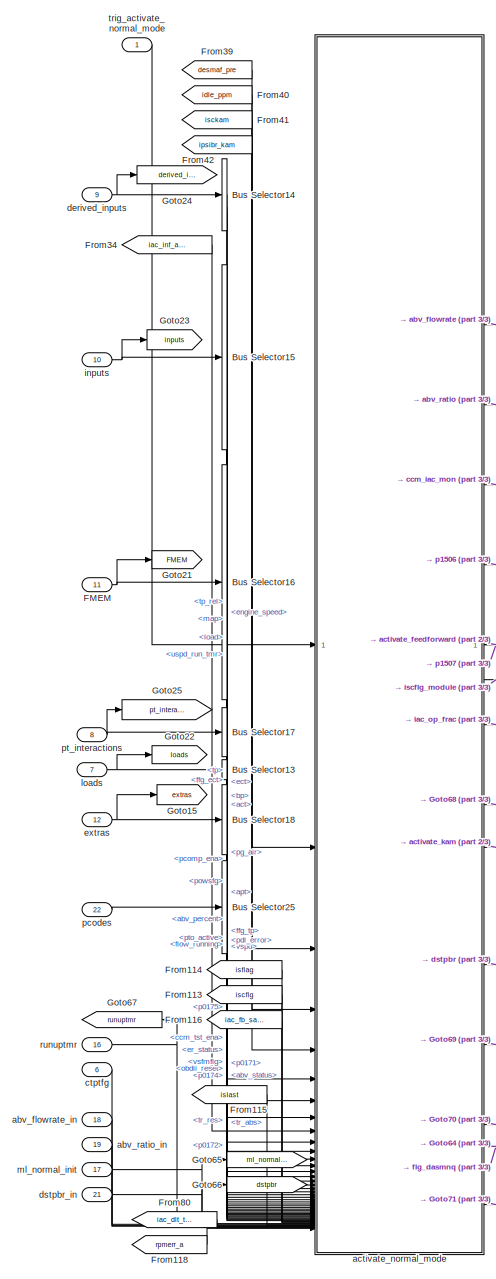
[diagram: iac_v04_001_001/normal_mode - part 1/3, left side, full height]
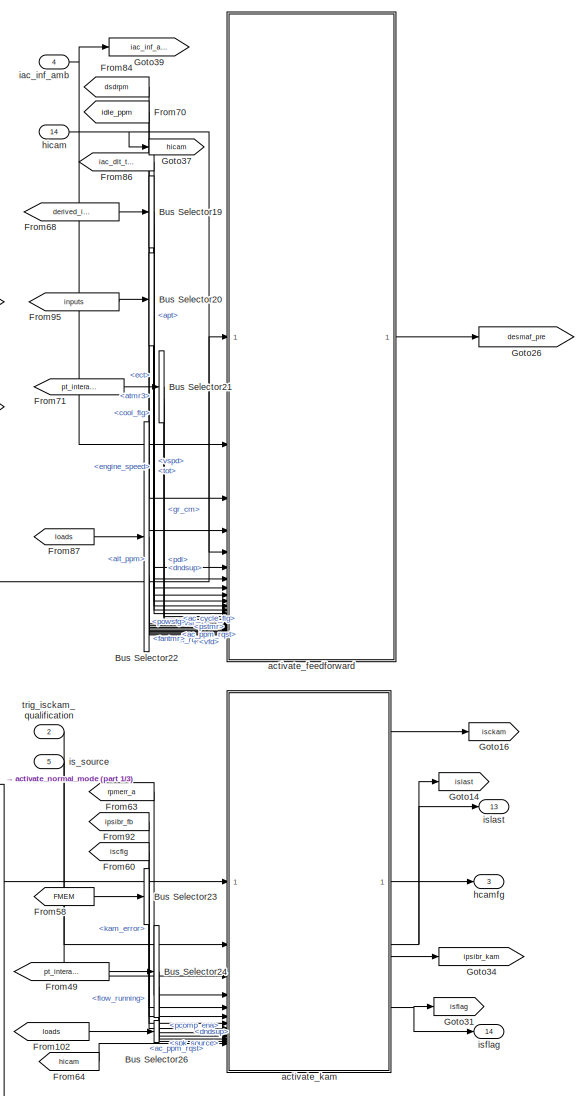
[diagram: iac_v04_001_001/normal_mode - part 2/3, right side, full height]
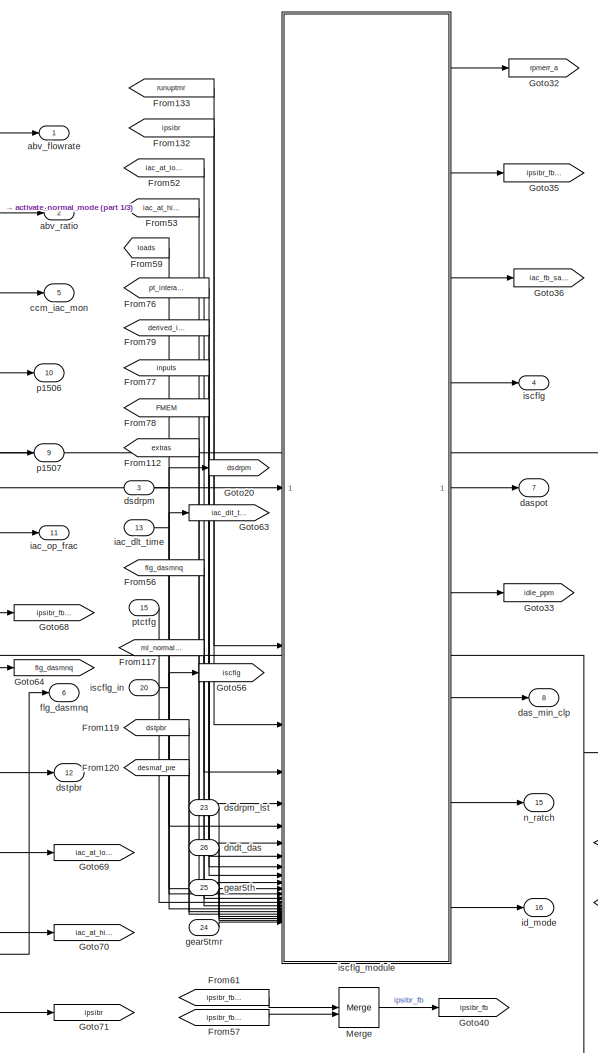
[diagram: iac_v04_001_001/normal_mode - part 3/3, central region]
BLOCK [SubSystem] iac_v04_001_001/normal_mode
BLOCK [BusSelector] iac_v04_001_001/normal_mode/Bus Selector13
  OutputSignals = powsfg
BLOCK [BusSelector] iac_v04_001_001/normal_mode/Bus Selector14
  OutputSignals = load,uspd_run_tmr,apt
BLOCK [BusSelector] iac_v04_001_001/normal_mode/Bus Selector15
  OutputSignals = vspd,tp,ect,tp_rel,bp,engine_speed,act,map
BLOCK [BusSelector] iac_v04_001_001/normal_mode/Bus Selector16
  OutputSignals = ccm_tst_ena,er_status,ffg_ect,vsfmflg,ffg_tp,obdii_reset,pto_active,pdl_error,abv_status,flow_running
BLOCK [BusSelector] iac_v04_001_001/normal_mode/Bus Selector17
  OutputSignals = pg_air,pcomp_ena
BLOCK [BusSelector] iac_v04_001_001/normal_mode/Bus Selector18
  OutputSignals = abv_percent,tr_res,tr_abs
BLOCK [BusSelector] iac_v04_001_001/normal_mode/Bus Selector19
  OutputSignals = atmr3,apt,cool_flg
BLOCK [BusSelector] iac_v04_001_001/normal_mode/Bus Selector20
  OutputSignals = ect,vspd,engine_speed,tot
BLOCK [BusSelector] iac_v04_001_001/normal_mode/Bus Selector21
  OutputSignals = pdl,gr_cm,dndsup
BLOCK [BusSelector] iac_v04_001_001/normal_mode/Bus Selector22
  OutputSignals = alt_ppm,ac_cycle_flg,ac_ppm_rqst,powsfg,vsf,fantmr,lsf_rqst,pstmr,vfd
BLOCK [BusSelector] iac_v04_001_001/normal_mode/Bus Selector23
  OutputSignals = kam_error,flow_running
BLOCK [BusSelector] iac_v04_001_001/normal_mode/Bus Selector24
  OutputSignals = pcomp_ena,spk_source,dndsup
BLOCK [BusSelector] iac_v04_001_001/normal_mode/Bus Selector25
  OutputSignals = p0171,p0172,p0174,p0175
BLOCK [BusSelector] iac_v04_001_001/normal_mode/Bus Selector26
  OutputSignals = ac_ppm_rqst
BLOCK [Inport] iac_v04_001_001/normal_mode/FMEM
  Port = 11
BLOCK [From] iac_v04_001_001/normal_mode/From102
  GotoTag = loads
BLOCK [From] iac_v04_001_001/normal_mode/From112
  GotoTag = extras
BLOCK [From] iac_v04_001_001/normal_mode/From113
  GotoTag = iscflg
BLOCK [From] iac_v04_001_001/normal_mode/From114
  GotoTag = isflag
BLOCK [From] iac_v04_001_001/normal_mode/From115
  GotoTag = islast
BLOCK [From] iac_v04_001_001/normal_mode/From116
  GotoTag = iac_fb_satx
BLOCK [From] iac_v04_001_001/normal_mode/From117
  GotoTag = ml_normal_init
BLOCK [From] iac_v04_001_001/normal_mode/From118
  GotoTag = rpmerr_a
BLOCK [From] iac_v04_001_001/normal_mode/From119
  GotoTag = dstpbr
BLOCK [From] iac_v04_001_001/normal_mode/From120
  GotoTag = desmaf_pre
BLOCK [From] iac_v04_001_001/normal_mode/From132
  GotoTag = ipsibr
BLOCK [From] iac_v04_001_001/normal_mode/From133
  GotoTag = runuptmr
BLOCK [From] iac_v04_001_001/normal_mode/From34
  GotoTag = iac_inf_amb
BLOCK [From] iac_v04_001_001/normal_mode/From39
  GotoTag = desmaf_pre
BLOCK [From] iac_v04_001_001/normal_mode/From40
  GotoTag = idle_ppm
BLOCK [From] iac_v04_001_001/normal_mode/From41
  GotoTag = isckam
BLOCK [From] iac_v04_001_001/normal_mode/From42
  GotoTag = ipsibr_kam
BLOCK [From] iac_v04_001_001/normal_mode/From49
  GotoTag = pt_interactions
BLOCK [From] iac_v04_001_001/normal_mode/From52
  GotoTag = iac_at_lolm
BLOCK [From] iac_v04_001_001/normal_mode/From53
  GotoTag = iac_at_hilm
BLOCK [From] iac_v04_001_001/normal_mode/From56
  GotoTag = flg_dasmnq
BLOCK [From] iac_v04_001_001/normal_mode/From57
  GotoTag = ipsibr_fb_isc
BLOCK [From] iac_v04_001_001/normal_mode/From58
  GotoTag = FMEM
BLOCK [From] iac_v04_001_001/normal_mode/From59
  GotoTag = loads
BLOCK [From] iac_v04_001_001/normal_mode/From60
  GotoTag = iscflg
BLOCK [From] iac_v04_001_001/normal_mode/From61
  GotoTag = ipsibr_fb_norm
BLOCK [From] iac_v04_001_001/normal_mode/From63
  GotoTag = rpmerr_a
BLOCK [From] iac_v04_001_001/normal_mode/From64
  GotoTag = hicam
BLOCK [From] iac_v04_001_001/normal_mode/From68
  GotoTag = derived_inputs
BLOCK [From] iac_v04_001_001/normal_mode/From70
  GotoTag = idle_ppm
BLOCK [From] iac_v04_001_001/normal_mode/From71
  GotoTag = pt_interactions
BLOCK [From] iac_v04_001_001/normal_mode/From76
  GotoTag = pt_interactions
BLOCK [From] iac_v04_001_001/normal_mode/From77
  GotoTag = inputs
BLOCK [From] iac_v04_001_001/normal_mode/From78
  GotoTag = FMEM
BLOCK [From] iac_v04_001_001/normal_mode/From79
  GotoTag = derived_inputs
BLOCK [From] iac_v04_001_001/normal_mode/From80
  GotoTag = iac_dlt_time
BLOCK [From] iac_v04_001_001/normal_mode/From84
  GotoTag = dsdrpm
BLOCK [From] iac_v04_001_001/normal_mode/From86
  GotoTag = iac_dlt_time
BLOCK [From] iac_v04_001_001/normal_mode/From87
  GotoTag = loads
BLOCK [From] iac_v04_001_001/normal_mode/From92
  GotoTag = ipsibr_fb
BLOCK [From] iac_v04_001_001/normal_mode/From95
  GotoTag = inputs
BLOCK [Goto] iac_v04_001_001/normal_mode/Goto14
  GotoTag = islast
BLOCK [Goto] iac_v04_001_001/normal_mode/Goto15
  GotoTag = extras
BLOCK [Goto] iac_v04_001_001/normal_mode/Goto16
  GotoTag = isckam
BLOCK [Goto] iac_v04_001_001/normal_mode/Goto20
  GotoTag = dsdrpm
BLOCK [Goto] iac_v04_001_001/normal_mode/Goto21
  GotoTag = FMEM
BLOCK [Goto] iac_v04_001_001/normal_mode/Goto22
  GotoTag = loads
BLOCK [Goto] iac_v04_001_001/normal_mode/Goto23
  GotoTag = inputs
BLOCK [Goto] iac_v04_001_001/normal_mode/Goto24
  GotoTag = derived_inputs
BLOCK [Goto] iac_v04_001_001/normal_mode/Goto25
  GotoTag = pt_interactions
BLOCK [Goto] iac_v04_001_001/normal_mode/Goto26
  GotoTag = desmaf_pre
BLOCK [Goto] iac_v04_001_001/normal_mode/Goto31
  GotoTag = isflag
BLOCK [Goto] iac_v04_001_001/normal_mode/Goto32
  GotoTag = rpmerr_a
BLOCK [Goto] iac_v04_001_001/normal_mode/Goto33
  GotoTag = idle_ppm
BLOCK [Goto] iac_v04_001_001/normal_mode/Goto34
  GotoTag = ipsibr_kam
BLOCK [Goto] iac_v04_001_001/normal_mode/Goto35
  GotoTag = ipsibr_fb_isc
BLOCK [Goto] iac_v04_001_001/normal_mode/Goto36
  GotoTag = iac_fb_satx
BLOCK [Goto] iac_v04_001_001/normal_mode/Goto37
  GotoTag = hicam
BLOCK [Goto] iac_v04_001_001/normal_mode/Goto39
  GotoTag = iac_inf_amb
BLOCK [Goto] iac_v04_001_001/normal_mode/Goto40
  GotoTag = ipsibr_fb
BLOCK [Goto] iac_v04_001_001/normal_mode/Goto56
  GotoTag = iscflg
BLOCK [Goto] iac_v04_001_001/normal_mode/Goto63
  GotoTag = iac_dlt_time
BLOCK [Goto] iac_v04_001_001/normal_mode/Goto64
  GotoTag = flg_dasmnq
BLOCK [Goto] iac_v04_001_001/normal_mode/Goto65
  GotoTag = ml_normal_init
BLOCK [Goto] iac_v04_001_001/normal_mode/Goto66
  GotoTag = dstpbr
BLOCK [Goto] iac_v04_001_001/normal_mode/Goto67
  GotoTag = runuptmr
BLOCK [Goto] iac_v04_001_001/normal_mode/Goto68
  GotoTag = ipsibr_fb_norm
BLOCK [Goto] iac_v04_001_001/normal_mode/Goto69
  GotoTag = iac_at_lolm
BLOCK [Goto] iac_v04_001_001/normal_mode/Goto70
  GotoTag = iac_at_hilm
BLOCK [Goto] iac_v04_001_001/normal_mode/Goto71
  GotoTag = ipsibr
BLOCK [Merge] iac_v04_001_001/normal_mode/Merge
BLOCK [Outport] iac_v04_001_001/normal_mode/abv_flowrate
BLOCK [Inport] iac_v04_001_001/normal_mode/abv_flowrate_in
  Port = 18
BLOCK [Outport] iac_v04_001_001/normal_mode/abv_ratio
  Port = 2
BLOCK [Inport] iac_v04_001_001/normal_mode/abv_ratio_in
  Port = 19
BLOCK [SubSystem] iac_v04_001_001/normal_mode/activate_feedforward
BLOCK [Constant] iac_v04_001_001/normal_mode/activate_feedforward/Constant
  Value = 0.0
BLOCK [Constant] iac_v04_001_001/normal_mode/activate_feedforward/Constant1
  Value = 0
BLOCK [Constant] iac_v04_001_001/normal_mode/activate_feedforward/Constant2
BLOCK [From] iac_v04_001_001/normal_mode/activate_feedforward/From68
  GotoTag = do_desmaf_pre_calc
BLOCK [From] iac_v04_001_001/normal_mode/activate_feedforward/From69
  GotoTag = ect
BLOCK [From] iac_v04_001_001/normal_mode/activate_feedforward/From71
  GotoTag = vspd
BLOCK [Goto] iac_v04_001_001/normal_mode/activate_feedforward/Goto12
  GotoTag = ect
BLOCK [Goto] iac_v04_001_001/normal_mode/activate_feedforward/Goto13
  GotoTag = do_desmaf_pre_calc
BLOCK [Goto] iac_v04_001_001/normal_mode/activate_feedforward/Goto14
  GotoTag = vspd
BLOCK [Inport] iac_v04_001_001/normal_mode/activate_feedforward/ac_cycle_flg
  Port = 18
BLOCK [Inport] iac_v04_001_001/normal_mode/activate_feedforward/ac_ppm_rqst
  Port = 19
BLOCK [SubSystem] iac_v04_001_001/normal_mode/activate_feedforward/ac_ppm_tmr
BLOCK [Mux] iac_v04_001_001/normal_mode/activate_feedforward/ac_ppm_tmr/Event Triggers
  Inputs = 2
  NameLocation = top
BLOCK [SubSystem] iac_v04_001_001/normal_mode/activate_feedforward/ac_ppm_tmr/Time Calculator
BLOCK [From] iac_v04_001_001/normal_mode/activate_feedforward/ac_ppm_tmr/Time Calculator/From
BLOCK [Goto] iac_v04_001_001/normal_mode/activate_feedforward/ac_ppm_tmr/Time Calculator/Goto
BLOCK [Inport] iac_v04_001_001/normal_mode/activate_feedforward/ac_ppm_tmr/Time Calculator/count_direction
BLOCK [SubSystem] iac_v04_001_001/normal_mode/activate_feedforward/ac_ppm_tmr/Time Calculator/delta_time
  ShowPortLabels = none
  TreatAsAtomicUnit = on
BLOCK [Gain] iac_v04_001_001/normal_mode/activate_feedforward/ac_ppm_tmr/Time Calculator/delta_time/Gain
  Gain = unit_mul
  OutDataTypeStr = Inherit: Same as input
  ParamDataTypeStr = Inherit: Same as input
  SaturateOnIntegerOverflow = on
BLOCK [Product] iac_v04_001_001/normal_mode/activate_feedforward/ac_ppm_tmr/Time Calculator/delta_time/Product
  InputSameDT = on
  OutDataTypeStr = Inherit: Same as first input
  RndMeth = Zero
  SaturateOnIntegerOverflow = on
BLOCK [DigitalClock] iac_v04_001_001/normal_mode/activate_feedforward/ac_ppm_tmr/Time Calculator/delta_time/Realtime Digital Clock
  SampleTime = -1
BLOCK [Sum] iac_v04_001_001/normal_mode/activate_feedforward/ac_ppm_tmr/Time Calculator/delta_time/Sum
  IconShape = rectangular
  InputSameDT = on
  Inputs = +-
  OutDataTypeStr = Inherit: Same as first input
  SaturateOnIntegerOverflow = on
BLOCK [UnitDelay] iac_v04_001_001/normal_mode/activate_feedforward/ac_ppm_tmr/Time Calculator/delta_time/Unit Delay1
  SampleTime = -1
BLOCK [Inport] iac_v04_001_001/normal_mode/activate_feedforward/ac_ppm_tmr/Time Calculator/delta_time/count_direction
BLOCK [Outport] iac_v04_001_001/normal_mode/activate_feedforward/ac_ppm_tmr/Time Calculator/delta_time/delta_time
  InitialOutput = 0
BLOCK [TriggerPort] iac_v04_001_001/normal_mode/activate_feedforward/ac_ppm_tmr/Time Calculator/delta_time/do_delta_time
  TriggerType = function-call
  VariantControl = (inherit)
BLOCK [Inport] iac_v04_001_001/normal_mode/activate_feedforward/ac_ppm_tmr/Time Calculator/do_delta_time
  Port = 3
BLOCK [Inport] iac_v04_001_001/normal_mode/activate_feedforward/ac_ppm_tmr/Time Calculator/do_timer
  Port = 4
BLOCK [Inport] iac_v04_001_001/normal_mode/activate_feedforward/ac_ppm_tmr/Time Calculator/reset_val
  Port = 2
BLOCK [Inport] iac_v04_001_001/normal_mode/activate_feedforward/ac_ppm_tmr/Time Calculator/reset_value
  Port = 5
BLOCK [Outport] iac_v04_001_001/normal_mode/activate_feedforward/ac_ppm_tmr/Time Calculator/timer
BLOCK [SubSystem] iac_v04_001_001/normal_mode/activate_feedforward/ac_ppm_tmr/Time Calculator/timer_calculation
  ShowPortLabels = none
  TreatAsAtomicUnit = on
BLOCK [Constant] iac_v04_001_001/normal_mode/activate_feedforward/ac_ppm_tmr/Time Calculator/timer_calculation/Constant1
  Value = const_min
BLOCK [Constant] iac_v04_001_001/normal_mode/activate_feedforward/ac_ppm_tmr/Time Calculator/timer_calculation/Constant2
  Value = const_max
BLOCK [Fcn] iac_v04_001_001/normal_mode/activate_feedforward/ac_ppm_tmr/Time Calculator/timer_calculation/Quantizer5
  Expr = resolution*floor(u/resolution)
BLOCK [Switch] iac_v04_001_001/normal_mode/activate_feedforward/ac_ppm_tmr/Time Calculator/timer_calculation/Reset Switch
  Threshold = 0.5
BLOCK [Sum] iac_v04_001_001/normal_mode/activate_feedforward/ac_ppm_tmr/Time Calculator/timer_calculation/Sum
  IconShape = rectangular
  InputSameDT = on
  OutDataTypeStr = Inherit: Same as first input
  SaturateOnIntegerOverflow = on
BLOCK [Terminator] iac_v04_001_001/normal_mode/activate_feedforward/ac_ppm_tmr/Time Calculator/timer_calculation/Terminator
BLOCK [UnitDelay] iac_v04_001_001/normal_mode/activate_feedforward/ac_ppm_tmr/Time Calculator/timer_calculation/Unit Delay
  InitialCondition = init_value
  SampleTime = -1
BLOCK [SubSystem] iac_v04_001_001/normal_mode/activate_feedforward/ac_ppm_tmr/Time Calculator/timer_calculation/VAR SATURATION
BLOCK [From] iac_v04_001_001/normal_mode/activate_feedforward/ac_ppm_tmr/Time Calculator/timer_calculation/VAR SATURATION/From
BLOCK [From] iac_v04_001_001/normal_mode/activate_feedforward/ac_ppm_tmr/Time Calculator/timer_calculation/VAR SATURATION/From1
BLOCK [Goto] iac_v04_001_001/normal_mode/activate_feedforward/ac_ppm_tmr/Time Calculator/timer_calculation/VAR SATURATION/Goto
BLOCK [Inport] iac_v04_001_001/normal_mode/activate_feedforward/ac_ppm_tmr/Time Calculator/timer_calculation/VAR SATURATION/INPUT
  Port = 2
BLOCK [Outport] iac_v04_001_001/normal_mode/activate_feedforward/ac_ppm_tmr/Time Calculator/timer_calculation/VAR SATURATION/LIMIT_FLAG
  Port = 2
BLOCK [Logic] iac_v04_001_001/normal_mode/activate_feedforward/ac_ppm_tmr/Time Calculator/timer_calculation/VAR SATURATION/Logical Operator
  Operator = OR
BLOCK [Inport] iac_v04_001_001/normal_mode/activate_feedforward/ac_ppm_tmr/Time Calculator/timer_calculation/VAR SATURATION/MAX
BLOCK [Inport] iac_v04_001_001/normal_mode/activate_feedforward/ac_ppm_tmr/Time Calculator/timer_calculation/VAR SATURATION/MIN
  Port = 3
BLOCK [Outport] iac_v04_001_001/normal_mode/activate_feedforward/ac_ppm_tmr/Time Calculator/timer_calculation/VAR SATURATION/OUTPUT
BLOCK [RelationalOperator] iac_v04_001_001/normal_mode/activate_feedforward/ac_ppm_tmr/Time Calculator/timer_calculation/VAR SATURATION/Relational Operator
BLOCK [RelationalOperator] iac_v04_001_001/normal_mode/activate_feedforward/ac_ppm_tmr/Time Calculator/timer_calculation/VAR SATURATION/Relational Operator1
  Operator = <=
BLOCK [Switch] iac_v04_001_001/normal_mode/activate_feedforward/ac_ppm_tmr/Time Calculator/timer_calculation/VAR SATURATION/Switch
  Threshold = 0.5
BLOCK [Switch] iac_v04_001_001/normal_mode/activate_feedforward/ac_ppm_tmr/Time Calculator/timer_calculation/VAR SATURATION/Switch2
  Threshold = 0.5
BLOCK [Switch] iac_v04_001_001/normal_mode/activate_feedforward/ac_ppm_tmr/Time Calculator/timer_calculation/VAR SATURATION/SwitchMAX
  Threshold = 0.5
BLOCK [Inport] iac_v04_001_001/normal_mode/activate_feedforward/ac_ppm_tmr/Time Calculator/timer_calculation/delta_time
  Port = 3
BLOCK [TriggerPort] iac_v04_001_001/normal_mode/activate_feedforward/ac_ppm_tmr/Time Calculator/timer_calculation/do_timer
  TriggerType = function-call
  VariantControl = (inherit)
BLOCK [DeadZone] iac_v04_001_001/normal_mode/activate_feedforward/ac_ppm_tmr/Time Calculator/timer_calculation/lower bound = 0
  LowerValue = -inf
  UpperValue = 0.0
BLOCK [Inport] iac_v04_001_001/normal_mode/activate_feedforward/ac_ppm_tmr/Time Calculator/timer_calculation/reset_flag
  Port = 2
BLOCK [Inport] iac_v04_001_001/normal_mode/activate_feedforward/ac_ppm_tmr/Time Calculator/timer_calculation/reset_value
BLOCK [Outport] iac_v04_001_001/normal_mode/activate_feedforward/ac_ppm_tmr/Time Calculator/timer_calculation/timer
  InitialOutput = 0
BLOCK [SubSystem] iac_v04_001_001/normal_mode/activate_feedforward/ac_ppm_tmr/Timer Control
  ErrorFcn = Stateflow.Translate.translate
  PermitHierarchicalResolution = ExplicitOnly
  SFBlockType = Chart
  TreatAsAtomicUnit = on
BLOCK [Demux] iac_v04_001_001/normal_mode/activate_feedforward/ac_ppm_tmr/Timer Control/ Demux 
  Outputs = 2
BLOCK [S-Function] iac_v04_001_001/normal_mode/activate_feedforward/ac_ppm_tmr/Timer Control/ SFunction 
  EnableBusSupport = off
  FunctionName = sf_sfun
  PortCounts = [3 3]
  SFcnIsStateOwnerBlock = off
  SFunctionDeploymentMode = off
  Tag = Stateflow S-Function 30
BLOCK [TriggerPort] iac_v04_001_001/normal_mode/activate_feedforward/ac_ppm_tmr/Timer Control/ input events 
  ShowOutputPort = on
  TriggerType = function-call
  VariantControl = (inherit)
BLOCK [Outport] iac_v04_001_001/normal_mode/activate_feedforward/ac_ppm_tmr/Timer Control/count_direction
BLOCK [Inport] iac_v04_001_001/normal_mode/activate_feedforward/ac_ppm_tmr/Timer Control/decr_flag
  Port = 2
BLOCK [Outport] iac_v04_001_001/normal_mode/activate_feedforward/ac_ppm_tmr/Timer Control/do_delta_time()
  Port = 3
BLOCK [Outport] iac_v04_001_001/normal_mode/activate_feedforward/ac_ppm_tmr/Timer Control/do_timer()
  Port = 4
BLOCK [Inport] iac_v04_001_001/normal_mode/activate_feedforward/ac_ppm_tmr/Timer Control/incr_flag
BLOCK [Outport] iac_v04_001_001/normal_mode/activate_feedforward/ac_ppm_tmr/Timer Control/reset_flag
  Port = 2
BLOCK [Inport] iac_v04_001_001/normal_mode/activate_feedforward/ac_ppm_tmr/dec flag
  Port = 5
BLOCK [Inport] iac_v04_001_001/normal_mode/activate_feedforward/ac_ppm_tmr/inc flag
  Port = 4
BLOCK [Inport] iac_v04_001_001/normal_mode/activate_feedforward/ac_ppm_tmr/reset value
  Port = 3
BLOCK [Outport] iac_v04_001_001/normal_mode/activate_feedforward/ac_ppm_tmr/timer
BLOCK [Inport] iac_v04_001_001/normal_mode/activate_feedforward/ac_ppm_tmr/trig_reset
  Port = 2
BLOCK [Inport] iac_v04_001_001/normal_mode/activate_feedforward/ac_ppm_tmr/trig_time
BLOCK [SubSystem] iac_v04_001_001/normal_mode/activate_feedforward/activate_feedforward_ctl
  ErrorFcn = Stateflow.Translate.translate
  PermitHierarchicalResolution = ExplicitOnly
  SFBlockType = Chart
  TreatAsAtomicUnit = on
BLOCK [Demux] iac_v04_001_001/normal_mode/activate_feedforward/activate_feedforward_ctl/ Demux 
  Outputs = 3
BLOCK [S-Function] iac_v04_001_001/normal_mode/activate_feedforward/activate_feedforward_ctl/ SFunction 
  EnableBusSupport = off
  FunctionName = sf_sfun
  Parameters = AUTO_TRNS_SW,DASCTL,DES_BASE,EDFHP,EDF_DELAY,GR_CM_CREEP,HICAM_PS,MINMPH,PSPSHP,PS_VS,VFD_HP,VSEECT,VSFOP_HP
  PortCounts = [15 7]
  SFcnIsStateOwnerBlock = off
  SFunctionDeploymentMode = off
  Tag = Stateflow S-Function 649
BLOCK [Inport] iac_v04_001_001/normal_mode/activate_feedforward/activate_feedforward_ctl/ac_cycle_flg
  Port = 8
BLOCK [Inport] iac_v04_001_001/normal_mode/activate_feedforward/activate_feedforward_ctl/ac_ppm_rqst
  Port = 9
BLOCK [Inport] iac_v04_001_001/normal_mode/activate_feedforward/activate_feedforward_ctl/apt
  Port = 5
BLOCK [Inport] iac_v04_001_001/normal_mode/activate_feedforward/activate_feedforward_ctl/cool_flg
  Port = 11
BLOCK [Inport] iac_v04_001_001/normal_mode/activate_feedforward/activate_feedforward_ctl/dndsup
BLOCK [Outport] iac_v04_001_001/normal_mode/activate_feedforward/activate_feedforward_ctl/do_desmaf_pre_calc()
  Port = 7
BLOCK [Inport] iac_v04_001_001/normal_mode/activate_feedforward/activate_feedforward_ctl/ect
  Port = 2
BLOCK [Inport] iac_v04_001_001/normal_mode/activate_feedforward/activate_feedforward_ctl/fantmr
  Port = 14
BLOCK [Inport] iac_v04_001_001/normal_mode/activate_feedforward/activate_feedforward_ctl/gr_cm
  Port = 7
BLOCK [Inport] iac_v04_001_001/normal_mode/activate_feedforward/activate_feedforward_ctl/hicam
  Port = 12
BLOCK [Inport] iac_v04_001_001/normal_mode/activate_feedforward/activate_feedforward_ctl/idle_ppm
  Port = 3
BLOCK [Inport] iac_v04_001_001/normal_mode/activate_feedforward/activate_feedforward_ctl/lsf_rqst
  Port = 13
BLOCK [Outport] iac_v04_001_001/normal_mode/activate_feedforward/activate_feedforward_ctl/ml_ac_sw
BLOCK [Outport] iac_v04_001_001/normal_mode/activate_feedforward/activate_feedforward_ctl/ml_base_sw
  Port = 4
BLOCK [Outport] iac_v04_001_001/normal_mode/activate_feedforward/activate_feedforward_ctl/ml_fan_sw
  Port = 6
BLOCK [Outport] iac_v04_001_001/normal_mode/activate_feedforward/activate_feedforward_ctl/ml_fsc_sw
  Port = 3
BLOCK [Outport] iac_v04_001_001/normal_mode/activate_feedforward/activate_feedforward_ctl/ml_ps_sw
  Port = 2
BLOCK [Outport] iac_v04_001_001/normal_mode/activate_feedforward/activate_feedforward_ctl/ml_trans_sw
  Port = 5
BLOCK [Inport] iac_v04_001_001/normal_mode/activate_feedforward/activate_feedforward_ctl/pdl
  Port = 4
BLOCK [Inport] iac_v04_001_001/normal_mode/activate_feedforward/activate_feedforward_ctl/powsfg
  Port = 10
BLOCK [Outport] iac_v04_001_001/normal_mode/activate_feedforward/activate_feedforward_ctl/trig_ac_ppm_tmr_reset()
  Port = 9
BLOCK [Outport] iac_v04_001_001/normal_mode/activate_feedforward/activate_feedforward_ctl/trig_ac_ppm_tmr_update()
  Port = 8
BLOCK [TriggerPort] iac_v04_001_001/normal_mode/activate_feedforward/activate_feedforward_ctl/trig_activate_feedforward
  ShowOutputPort = on
  TriggerType = function-call
  VariantControl = (inherit)
BLOCK [Inport] iac_v04_001_001/normal_mode/activate_feedforward/activate_feedforward_ctl/vspd
  Port = 6
BLOCK [Inport] iac_v04_001_001/normal_mode/activate_feedforward/alt_ppm
  Port = 17
BLOCK [Inport] iac_v04_001_001/normal_mode/activate_feedforward/apt
  Port = 8
BLOCK [Inport] iac_v04_001_001/normal_mode/activate_feedforward/atmr3
  Port = 7
BLOCK [Inport] iac_v04_001_001/normal_mode/activate_feedforward/cool_flg
  Port = 9
BLOCK [Outport] iac_v04_001_001/normal_mode/activate_feedforward/desmaf_pre
BLOCK [SubSystem] iac_v04_001_001/normal_mode/activate_feedforward/desmaf_pre_calc
  TreatAsAtomicUnit = on
BLOCK [SubSystem] iac_v04_001_001/normal_mode/activate_feedforward/desmaf_pre_calc/  
BLOCK [Constant] iac_v04_001_001/normal_mode/activate_feedforward/desmaf_pre_calc/  /Constant
  Value = const
BLOCK [Outport] iac_v04_001_001/normal_mode/activate_feedforward/desmaf_pre_calc/  /Out
BLOCK [SubSystem] iac_v04_001_001/normal_mode/activate_feedforward/desmaf_pre_calc/  2
BLOCK [Constant] iac_v04_001_001/normal_mode/activate_feedforward/desmaf_pre_calc/  2/Constant
  Value = const
BLOCK [Outport] iac_v04_001_001/normal_mode/activate_feedforward/desmaf_pre_calc/  2/Out
BLOCK [SubSystem] iac_v04_001_001/normal_mode/activate_feedforward/desmaf_pre_calc/1
BLOCK [Constant] iac_v04_001_001/normal_mode/activate_feedforward/desmaf_pre_calc/1/Constant
  Value = const
BLOCK [Outport] iac_v04_001_001/normal_mode/activate_feedforward/desmaf_pre_calc/1/Out
BLOCK [SubSystem] iac_v04_001_001/normal_mode/activate_feedforward/desmaf_pre_calc/3
BLOCK [Constant] iac_v04_001_001/normal_mode/activate_feedforward/desmaf_pre_calc/3/Constant
  Value = const
BLOCK [Outport] iac_v04_001_001/normal_mode/activate_feedforward/desmaf_pre_calc/3/Out
BLOCK [Constant] iac_v04_001_001/normal_mode/activate_feedforward/desmaf_pre_calc/Constant
  Value = 0.0
BLOCK [Constant] iac_v04_001_001/normal_mode/activate_feedforward/desmaf_pre_calc/Constant1
  Value = 0.0
BLOCK [Constant] iac_v04_001_001/normal_mode/activate_feedforward/desmaf_pre_calc/Constant2
  Value = 0.0
BLOCK [Constant] iac_v04_001_001/normal_mode/activate_feedforward/desmaf_pre_calc/Constant3
  Value = 0.0
BLOCK [Constant] iac_v04_001_001/normal_mode/activate_feedforward/desmaf_pre_calc/Constant4
  Value = 1.0
BLOCK [SubSystem] iac_v04_001_001/normal_mode/activate_feedforward/desmaf_pre_calc/FN018E2
BLOCK [Inport] iac_v04_001_001/normal_mode/activate_feedforward/desmaf_pre_calc/FN018E2/In1
BLOCK [Lookup] iac_v04_001_001/normal_mode/activate_feedforward/desmaf_pre_calc/FN018E2/Look-Up Table1
  InputValues = calfunc.X
  Table = calfunc.Y
BLOCK [Outport] iac_v04_001_001/normal_mode/activate_feedforward/desmaf_pre_calc/FN018E2/Out1
BLOCK [Saturate] iac_v04_001_001/normal_mode/activate_feedforward/desmaf_pre_calc/FN018E2/Saturation1
  LowerLimit = min_x
  UpperLimit = max_x
BLOCK [SubSystem] iac_v04_001_001/normal_mode/activate_feedforward/desmaf_pre_calc/FN020C3
BLOCK [Inport] iac_v04_001_001/normal_mode/activate_feedforward/desmaf_pre_calc/FN020C3/In1
BLOCK [Lookup] iac_v04_001_001/normal_mode/activate_feedforward/desmaf_pre_calc/FN020C3/Look-Up Table1
  InputValues = calfunc.X
  Table = calfunc.Y
BLOCK [Outport] iac_v04_001_001/normal_mode/activate_feedforward/desmaf_pre_calc/FN020C3/Out1
BLOCK [Saturate] iac_v04_001_001/normal_mode/activate_feedforward/desmaf_pre_calc/FN020C3/Saturation1
  LowerLimit = min_x
  UpperLimit = max_x
BLOCK [SubSystem] iac_v04_001_001/normal_mode/activate_feedforward/desmaf_pre_calc/FN1862AD
BLOCK [Lookup2D] iac_v04_001_001/normal_mode/activate_feedforward/desmaf_pre_calc/FN1862AD/Look-Up Table (2-D)
  ColumnIndex = caltable.X
  RowIndex = caltable.Y
  Table = caltable.Z
BLOCK [Saturate] iac_v04_001_001/normal_mode/activate_feedforward/desmaf_pre_calc/FN1862AD/Saturation1
  LowerLimit = min_x
  UpperLimit = max_x
BLOCK [Saturate] iac_v04_001_001/normal_mode/activate_feedforward/desmaf_pre_calc/FN1862AD/Saturation2
  LowerLimit = min_y
  UpperLimit = max_y
BLOCK [Inport] iac_v04_001_001/normal_mode/activate_feedforward/desmaf_pre_calc/FN1862AD/X
BLOCK [Inport] iac_v04_001_001/normal_mode/activate_feedforward/desmaf_pre_calc/FN1862AD/Y
  Port = 2
BLOCK [Outport] iac_v04_001_001/normal_mode/activate_feedforward/desmaf_pre_calc/FN1862AD/Z
BLOCK [SubSystem] iac_v04_001_001/normal_mode/activate_feedforward/desmaf_pre_calc/FN1862AN
BLOCK [Lookup2D] iac_v04_001_001/normal_mode/activate_feedforward/desmaf_pre_calc/FN1862AN/Look-Up Table (2-D)
  ColumnIndex = caltable.X
  RowIndex = caltable.Y
  Table = caltable.Z
BLOCK [Saturate] iac_v04_001_001/normal_mode/activate_feedforward/desmaf_pre_calc/FN1862AN/Saturation1
  LowerLimit = min_x
  UpperLimit = max_x
BLOCK [Saturate] iac_v04_001_001/normal_mode/activate_feedforward/desmaf_pre_calc/FN1862AN/Saturation2
  LowerLimit = min_y
  UpperLimit = max_y
BLOCK [Inport] iac_v04_001_001/normal_mode/activate_feedforward/desmaf_pre_calc/FN1862AN/X
BLOCK [Inport] iac_v04_001_001/normal_mode/activate_feedforward/desmaf_pre_calc/FN1862AN/Y
  Port = 2
BLOCK [Outport] iac_v04_001_001/normal_mode/activate_feedforward/desmaf_pre_calc/FN1862AN/Z
BLOCK [SubSystem] iac_v04_001_001/normal_mode/activate_feedforward/desmaf_pre_calc/FN803
BLOCK [Inport] iac_v04_001_001/normal_mode/activate_feedforward/desmaf_pre_calc/FN803/In1
BLOCK [Lookup] iac_v04_001_001/normal_mode/activate_feedforward/desmaf_pre_calc/FN803/Look-Up Table1
  InputValues = calfunc.X
  Table = calfunc.Y
BLOCK [Outport] iac_v04_001_001/normal_mode/activate_feedforward/desmaf_pre_calc/FN803/Out1
BLOCK [Saturate] iac_v04_001_001/normal_mode/activate_feedforward/desmaf_pre_calc/FN803/Saturation1
  LowerLimit = min_x
  UpperLimit = max_x
BLOCK [SubSystem] iac_v04_001_001/normal_mode/activate_feedforward/desmaf_pre_calc/FN806
BLOCK [Inport] iac_v04_001_001/normal_mode/activate_feedforward/desmaf_pre_calc/FN806/In1
BLOCK [Lookup] iac_v04_001_001/normal_mode/activate_feedforward/desmaf_pre_calc/FN806/Look-Up Table1
  InputValues = calfunc.X
  Table = calfunc.Y
BLOCK [Outport] iac_v04_001_001/normal_mode/activate_feedforward/desmaf_pre_calc/FN806/Out1
BLOCK [Saturate] iac_v04_001_001/normal_mode/activate_feedforward/desmaf_pre_calc/FN806/Saturation1
  LowerLimit = min_x
  UpperLimit = max_x
BLOCK [SubSystem] iac_v04_001_001/normal_mode/activate_feedforward/desmaf_pre_calc/FN855
BLOCK [Inport] iac_v04_001_001/normal_mode/activate_feedforward/desmaf_pre_calc/FN855/In1
BLOCK [Lookup] iac_v04_001_001/normal_mode/activate_feedforward/desmaf_pre_calc/FN855/Look-Up Table1
  InputValues = calfunc.X
  Table = calfunc.Y
BLOCK [Outport] iac_v04_001_001/normal_mode/activate_feedforward/desmaf_pre_calc/FN855/Out1
BLOCK [Saturate] iac_v04_001_001/normal_mode/activate_feedforward/desmaf_pre_calc/FN855/Saturation1
  LowerLimit = min_x
  UpperLimit = max_x
BLOCK [SubSystem] iac_v04_001_001/normal_mode/activate_feedforward/desmaf_pre_calc/FN875HD
BLOCK [Inport] iac_v04_001_001/normal_mode/activate_feedforward/desmaf_pre_calc/FN875HD/In1
BLOCK [Lookup] iac_v04_001_001/normal_mode/activate_feedforward/desmaf_pre_calc/FN875HD/Look-Up Table1
  InputValues = calfunc.X
  Table = calfunc.Y
BLOCK [Outport] iac_v04_001_001/normal_mode/activate_feedforward/desmaf_pre_calc/FN875HD/Out1
BLOCK [Saturate] iac_v04_001_001/normal_mode/activate_feedforward/desmaf_pre_calc/FN875HD/Saturation1
  LowerLimit = min_x
  UpperLimit = max_x
BLOCK [SubSystem] iac_v04_001_001/normal_mode/activate_feedforward/desmaf_pre_calc/FN875HN
BLOCK [Inport] iac_v04_001_001/normal_mode/activate_feedforward/desmaf_pre_calc/FN875HN/In1
BLOCK [Lookup] iac_v04_001_001/normal_mode/activate_feedforward/desmaf_pre_calc/FN875HN/Look-Up Table1
  InputValues = calfunc.X
  Table = calfunc.Y
BLOCK [Outport] iac_v04_001_001/normal_mode/activate_feedforward/desmaf_pre_calc/FN875HN/Out1
BLOCK [Saturate] iac_v04_001_001/normal_mode/activate_feedforward/desmaf_pre_calc/FN875HN/Saturation1
  LowerLimit = min_x
  UpperLimit = max_x
BLOCK [SubSystem] iac_v04_001_001/normal_mode/activate_feedforward/desmaf_pre_calc/FN885TE
BLOCK [Inport] iac_v04_001_001/normal_mode/activate_feedforward/desmaf_pre_calc/FN885TE/In1
BLOCK [Lookup] iac_v04_001_001/normal_mode/activate_feedforward/desmaf_pre_calc/FN885TE/Look-Up Table1
  InputValues = calfunc.X
  Table = calfunc.Y
BLOCK [Outport] iac_v04_001_001/normal_mode/activate_feedforward/desmaf_pre_calc/FN885TE/Out1
BLOCK [Saturate] iac_v04_001_001/normal_mode/activate_feedforward/desmaf_pre_calc/FN885TE/Saturation1
  LowerLimit = min_x
  UpperLimit = max_x
BLOCK [SubSystem] iac_v04_001_001/normal_mode/activate_feedforward/desmaf_pre_calc/FN887ME
BLOCK [Inport] iac_v04_001_001/normal_mode/activate_feedforward/desmaf_pre_calc/FN887ME/In1
BLOCK [Lookup] iac_v04_001_001/normal_mode/activate_feedforward/desmaf_pre_calc/FN887ME/Look-Up Table1
  InputValues = calfunc.X
  Table = calfunc.Y
BLOCK [Outport] iac_v04_001_001/normal_mode/activate_feedforward/desmaf_pre_calc/FN887ME/Out1
BLOCK [Saturate] iac_v04_001_001/normal_mode/activate_feedforward/desmaf_pre_calc/FN887ME/Saturation1
  LowerLimit = min_x
  UpperLimit = max_x
BLOCK [SubSystem] iac_v04_001_001/normal_mode/activate_feedforward/desmaf_pre_calc/FN887VC
BLOCK [Inport] iac_v04_001_001/normal_mode/activate_feedforward/desmaf_pre_calc/FN887VC/In1
BLOCK [Lookup] iac_v04_001_001/normal_mode/activate_feedforward/desmaf_pre_calc/FN887VC/Look-Up Table1
  InputValues = calfunc.X
  Table = calfunc.Y
BLOCK [Outport] iac_v04_001_001/normal_mode/activate_feedforward/desmaf_pre_calc/FN887VC/Out1
BLOCK [Saturate] iac_v04_001_001/normal_mode/activate_feedforward/desmaf_pre_calc/FN887VC/Saturation1
  LowerLimit = min_x
  UpperLimit = max_x
BLOCK [SubSystem] iac_v04_001_001/normal_mode/activate_feedforward/desmaf_pre_calc/FN896
BLOCK [Inport] iac_v04_001_001/normal_mode/activate_feedforward/desmaf_pre_calc/FN896/In1
BLOCK [Lookup] iac_v04_001_001/normal_mode/activate_feedforward/desmaf_pre_calc/FN896/Look-Up Table1
  InputValues = calfunc.X
  Table = calfunc.Y
BLOCK [Outport] iac_v04_001_001/normal_mode/activate_feedforward/desmaf_pre_calc/FN896/Out1
BLOCK [Saturate] iac_v04_001_001/normal_mode/activate_feedforward/desmaf_pre_calc/FN896/Saturation1
  LowerLimit = min_x
  UpperLimit = max_x
BLOCK [SubSystem] iac_v04_001_001/normal_mode/activate_feedforward/desmaf_pre_calc/FN896A
BLOCK [Inport] iac_v04_001_001/normal_mode/activate_feedforward/desmaf_pre_calc/FN896A/In1
BLOCK [Lookup] iac_v04_001_001/normal_mode/activate_feedforward/desmaf_pre_calc/FN896A/Look-Up Table1
  InputValues = calfunc.X
  Table = calfunc.Y
BLOCK [Outport] iac_v04_001_001/normal_mode/activate_feedforward/desmaf_pre_calc/FN896A/Out1
BLOCK [Saturate] iac_v04_001_001/normal_mode/activate_feedforward/desmaf_pre_calc/FN896A/Saturation1
  LowerLimit = min_x
  UpperLimit = max_x
BLOCK [SubSystem] iac_v04_001_001/normal_mode/activate_feedforward/desmaf_pre_calc/FNLOSS_D_PPM
BLOCK [Inport] iac_v04_001_001/normal_mode/activate_feedforward/desmaf_pre_calc/FNLOSS_D_PPM/In1
BLOCK [Lookup] iac_v04_001_001/normal_mode/activate_feedforward/desmaf_pre_calc/FNLOSS_D_PPM/Look-Up Table1
  InputValues = calfunc.X
  Table = calfunc.Y
BLOCK [Outport] iac_v04_001_001/normal_mode/activate_feedforward/desmaf_pre_calc/FNLOSS_D_PPM/Out1
BLOCK [Saturate] iac_v04_001_001/normal_mode/activate_feedforward/desmaf_pre_calc/FNLOSS_D_PPM/Saturation1
  LowerLimit = min_x
  UpperLimit = max_x
BLOCK [SubSystem] iac_v04_001_001/normal_mode/activate_feedforward/desmaf_pre_calc/FNLOSS_N_PPM
BLOCK [Inport] iac_v04_001_001/normal_mode/activate_feedforward/desmaf_pre_calc/FNLOSS_N_PPM/In1
BLOCK [Lookup] iac_v04_001_001/normal_mode/activate_feedforward/desmaf_pre_calc/FNLOSS_N_PPM/Look-Up Table1
  InputValues = calfunc.X
  Table = calfunc.Y
BLOCK [Outport] iac_v04_001_001/normal_mode/activate_feedforward/desmaf_pre_calc/FNLOSS_N_PPM/Out1
BLOCK [Saturate] iac_v04_001_001/normal_mode/activate_feedforward/desmaf_pre_calc/FNLOSS_N_PPM/Saturation1
  LowerLimit = min_x
  UpperLimit = max_x
BLOCK [From] iac_v04_001_001/normal_mode/activate_feedforward/desmaf_pre_calc/From81
  GotoTag = engine_speed
BLOCK [Goto] iac_v04_001_001/normal_mode/activate_feedforward/desmaf_pre_calc/Goto10
  GotoTag = engine_speed
BLOCK [MultiPortSwitch] iac_v04_001_001/normal_mode/activate_feedforward/desmaf_pre_calc/Multiport Switch11
  Inputs = 4
BLOCK [MultiPortSwitch] iac_v04_001_001/normal_mode/activate_feedforward/desmaf_pre_calc/Multiport Switch12
  Inputs = 2
BLOCK [MultiPortSwitch] iac_v04_001_001/normal_mode/activate_feedforward/desmaf_pre_calc/Multiport Switch6
  Inputs = 2
BLOCK [MultiPortSwitch] iac_v04_001_001/normal_mode/activate_feedforward/desmaf_pre_calc/Multiport Switch7
  Inputs = 2
BLOCK [MultiPortSwitch] iac_v04_001_001/normal_mode/activate_feedforward/desmaf_pre_calc/Multiport Switch8
BLOCK [MultiPortSwitch] iac_v04_001_001/normal_mode/activate_feedforward/desmaf_pre_calc/Multiport Switch9
BLOCK [Product] iac_v04_001_001/normal_mode/activate_feedforward/desmaf_pre_calc/Product
  InputSameDT = on
  OutDataTypeStr = Inherit: Same as first input
  RndMeth = Zero
  SaturateOnIntegerOverflow = on
BLOCK [Product] iac_v04_001_001/normal_mode/activate_feedforward/desmaf_pre_calc/Product2
  InputSameDT = on
  OutDataTypeStr = Inherit: Same as first input
  RndMeth = Zero
  SaturateOnIntegerOverflow = on
BLOCK [Product] iac_v04_001_001/normal_mode/activate_feedforward/desmaf_pre_calc/Product3
  InputSameDT = on
  OutDataTypeStr = Inherit: Same as first input
  RndMeth = Zero
  SaturateOnIntegerOverflow = on
BLOCK [Product] iac_v04_001_001/normal_mode/activate_feedforward/desmaf_pre_calc/Product4
  InputSameDT = on
  OutDataTypeStr = Inherit: Same as first input
  RndMeth = Zero
  SaturateOnIntegerOverflow = on
BLOCK [Product] iac_v04_001_001/normal_mode/activate_feedforward/desmaf_pre_calc/Product5
  InputSameDT = on
  OutDataTypeStr = Inherit: Same as first input
  RndMeth = Zero
  SaturateOnIntegerOverflow = on
BLOCK [Product] iac_v04_001_001/normal_mode/activate_feedforward/desmaf_pre_calc/Product6
  InputSameDT = on
  OutDataTypeStr = Inherit: Same as first input
  RndMeth = Zero
  SaturateOnIntegerOverflow = on
BLOCK [SubSystem] iac_v04_001_001/normal_mode/activate_feedforward/desmaf_pre_calc/ROLAV_TC_DT_in
BLOCK [Math] iac_v04_001_001/normal_mode/activate_feedforward/desmaf_pre_calc/ROLAV_TC_DT_in/Elementary Math
  Operator = reciprocal
  SignedPower = on
BLOCK [Product] iac_v04_001_001/normal_mode/activate_feedforward/desmaf_pre_calc/ROLAV_TC_DT_in/Product
  InputSameDT = on
  Inputs = 3
  OutDataTypeStr = Inherit: Same as first input
  RndMeth = Zero
  SaturateOnIntegerOverflow = on
BLOCK [Sum] iac_v04_001_001/normal_mode/activate_feedforward/desmaf_pre_calc/ROLAV_TC_DT_in/Sum
  IconShape = rectangular
  InputSameDT = on
  Inputs = -+
  OutDataTypeStr = Inherit: Same as first input
  SaturateOnIntegerOverflow = on
BLOCK [Sum] iac_v04_001_001/normal_mode/activate_feedforward/desmaf_pre_calc/ROLAV_TC_DT_in/Sum1
  IconShape = rectangular
  InputSameDT = on
  OutDataTypeStr = Inherit: Same as first input
  SaturateOnIntegerOverflow = on
BLOCK [Sum] iac_v04_001_001/normal_mode/activate_feedforward/desmaf_pre_calc/ROLAV_TC_DT_in/Sum2
  IconShape = rectangular
  InputSameDT = on
  OutDataTypeStr = Inherit: Same as first input
  SaturateOnIntegerOverflow = on
BLOCK [Constant] iac_v04_001_001/normal_mode/activate_feedforward/desmaf_pre_calc/ROLAV_TC_DT_in/Time Constant
  Value = tc
BLOCK [Inport] iac_v04_001_001/normal_mode/activate_feedforward/desmaf_pre_calc/ROLAV_TC_DT_in/delta_time
  Port = 3
BLOCK [Outport] iac_v04_001_001/normal_mode/activate_feedforward/desmaf_pre_calc/ROLAV_TC_DT_in/new_ave
BLOCK [Inport] iac_v04_001_001/normal_mode/activate_feedforward/desmaf_pre_calc/ROLAV_TC_DT_in/new_value
BLOCK [Inport] iac_v04_001_001/normal_mode/activate_feedforward/desmaf_pre_calc/ROLAV_TC_DT_in/old_ave
  Port = 2
BLOCK [Sum] iac_v04_001_001/normal_mode/activate_feedforward/desmaf_pre_calc/Sum
  IconShape = rectangular
  InputSameDT = on
  Inputs = ++++++
  OutDataTypeStr = Inherit: Same as first input
  SaturateOnIntegerOverflow = on
BLOCK [Sum] iac_v04_001_001/normal_mode/activate_feedforward/desmaf_pre_calc/Sum1
  IconShape = rectangular
  InputSameDT = on
  OutDataTypeStr = Inherit: Same as first input
  SaturateOnIntegerOverflow = on
BLOCK [Sum] iac_v04_001_001/normal_mode/activate_feedforward/desmaf_pre_calc/Sum2
  IconShape = rectangular
  InputSameDT = on
  OutDataTypeStr = Inherit: Same as first input
  SaturateOnIntegerOverflow = on
BLOCK [Sum] iac_v04_001_001/normal_mode/activate_feedforward/desmaf_pre_calc/Sum3
  IconShape = rectangular
  InputSameDT = on
  OutDataTypeStr = Inherit: Same as first input
  SaturateOnIntegerOverflow = on
BLOCK [Sum] iac_v04_001_001/normal_mode/activate_feedforward/desmaf_pre_calc/Sum4
  IconShape = rectangular
  InputSameDT = on
  OutDataTypeStr = Inherit: Same as first input
  SaturateOnIntegerOverflow = on
BLOCK [Sum] iac_v04_001_001/normal_mode/activate_feedforward/desmaf_pre_calc/Sum5
  IconShape = rectangular
  InputSameDT = on
  OutDataTypeStr = Inherit: Same as first input
  SaturateOnIntegerOverflow = on
BLOCK [UnitDelay] iac_v04_001_001/normal_mode/activate_feedforward/desmaf_pre_calc/Unit Delay
  InitialCondition = 1.0
  SampleTime = -1
BLOCK [Inport] iac_v04_001_001/normal_mode/activate_feedforward/desmaf_pre_calc/ac_ppm_tmr
  Port = 19
BLOCK [Inport] iac_v04_001_001/normal_mode/activate_feedforward/desmaf_pre_calc/alt_ppm
  Port = 15
BLOCK [Inport] iac_v04_001_001/normal_mode/activate_feedforward/desmaf_pre_calc/atmr3
  Port = 10
BLOCK [Outport] iac_v04_001_001/normal_mode/activate_feedforward/desmaf_pre_calc/desmaf_pre
BLOCK [TriggerPort] iac_v04_001_001/normal_mode/activate_feedforward/desmaf_pre_calc/do_desmaf_pre_calcs
  TriggerType = function-call
  VariantControl = (inherit)
BLOCK [Inport] iac_v04_001_001/normal_mode/activate_feedforward/desmaf_pre_calc/dsdrpm
  Port = 9
BLOCK [Inport] iac_v04_001_001/normal_mode/activate_feedforward/desmaf_pre_calc/ect
  Port = 7
BLOCK [Inport] iac_v04_001_001/normal_mode/activate_feedforward/desmaf_pre_calc/engine_speed
  Port = 12
BLOCK [Inport] iac_v04_001_001/normal_mode/activate_feedforward/desmaf_pre_calc/iac_dlt_time
  Port = 13
BLOCK [Inport] iac_v04_001_001/normal_mode/activate_feedforward/desmaf_pre_calc/iac_inf_amb
  Port = 14
BLOCK [SubSystem] iac_v04_001_001/normal_mode/activate_feedforward/desmaf_pre_calc/lookup_2d
BLOCK [Inport] iac_v04_001_001/normal_mode/activate_feedforward/desmaf_pre_calc/lookup_2d/In1
BLOCK [Lookup] iac_v04_001_001/normal_mode/activate_feedforward/desmaf_pre_calc/lookup_2d/Look-Up Table1
  InputValues = calfunc.X
  Table = calfunc.Y
BLOCK [Outport] iac_v04_001_001/normal_mode/activate_feedforward/desmaf_pre_calc/lookup_2d/Out1
BLOCK [Saturate] iac_v04_001_001/normal_mode/activate_feedforward/desmaf_pre_calc/lookup_2d/Saturation1
  LowerLimit = min_x
  UpperLimit = max_x
BLOCK [Inport] iac_v04_001_001/normal_mode/activate_feedforward/desmaf_pre_calc/ml_ac_sw
BLOCK [Inport] iac_v04_001_001/normal_mode/activate_feedforward/desmaf_pre_calc/ml_base_sw
  Port = 4
BLOCK [Inport] iac_v04_001_001/normal_mode/activate_feedforward/desmaf_pre_calc/ml_fan_sw
  Port = 6
BLOCK [Inport] iac_v04_001_001/normal_mode/activate_feedforward/desmaf_pre_calc/ml_fsc_sw
  Port = 3
BLOCK [Inport] iac_v04_001_001/normal_mode/activate_feedforward/desmaf_pre_calc/ml_ps_sw
  Port = 2
BLOCK [Inport] iac_v04_001_001/normal_mode/activate_feedforward/desmaf_pre_calc/ml_trans_sw
  Port = 5
BLOCK [Inport] iac_v04_001_001/normal_mode/activate_feedforward/desmaf_pre_calc/pstmr
  Port = 16
BLOCK [Inport] iac_v04_001_001/normal_mode/activate_feedforward/desmaf_pre_calc/tot
  Port = 11
BLOCK [Inport] iac_v04_001_001/normal_mode/activate_feedforward/desmaf_pre_calc/vfd
  Port = 18
BLOCK [Inport] iac_v04_001_001/normal_mode/activate_feedforward/desmaf_pre_calc/vsf
  Port = 17
BLOCK [Inport] iac_v04_001_001/normal_mode/activate_feedforward/desmaf_pre_calc/vspd
  Port = 8
BLOCK [Inport] iac_v04_001_001/normal_mode/activate_feedforward/dndsup
  Port = 16
BLOCK [Inport] iac_v04_001_001/normal_mode/activate_feedforward/dsdrpm
  Port = 3
BLOCK [Inport] iac_v04_001_001/normal_mode/activate_feedforward/ect
  Port = 10
BLOCK [Inport] iac_v04_001_001/normal_mode/activate_feedforward/engine_speed
  Port = 12
BLOCK [Inport] iac_v04_001_001/normal_mode/activate_feedforward/fantmr
  Port = 22
BLOCK [Inport] iac_v04_001_001/normal_mode/activate_feedforward/gr_cm
  Port = 15
BLOCK [Inport] iac_v04_001_001/normal_mode/activate_feedforward/hicam
  Port = 5
BLOCK [Inport] iac_v04_001_001/normal_mode/activate_feedforward/iac_dlt_time
  Port = 6
BLOCK [Inport] iac_v04_001_001/normal_mode/activate_feedforward/iac_inf_amb
  Port = 2
BLOCK [Inport] iac_v04_001_001/normal_mode/activate_feedforward/idle_ppm
  Port = 4
BLOCK [Inport] iac_v04_001_001/normal_mode/activate_feedforward/lsf_rqst
  Port = 23
BLOCK [Inport] iac_v04_001_001/normal_mode/activate_feedforward/pdl
  Port = 14
BLOCK [Inport] iac_v04_001_001/normal_mode/activate_feedforward/powsfg
  Port = 20
BLOCK [Inport] iac_v04_001_001/normal_mode/activate_feedforward/pstmr
  Port = 24
BLOCK [Inport] iac_v04_001_001/normal_mode/activate_feedforward/tot
  Port = 13
BLOCK [Inport] iac_v04_001_001/normal_mode/activate_feedforward/trig_activate_feedforward
BLOCK [Inport] iac_v04_001_001/normal_mode/activate_feedforward/vfd
  Port = 25
BLOCK [Inport] iac_v04_001_001/normal_mode/activate_feedforward/vsf
  Port = 21
BLOCK [Inport] iac_v04_001_001/normal_mode/activate_feedforward/vspd
  Port = 11
BLOCK [SubSystem] iac_v04_001_001/normal_mode/activate_kam
BLOCK [Constant] iac_v04_001_001/normal_mode/activate_kam/Constant4
  Value = 0.0
BLOCK [Constant] iac_v04_001_001/normal_mode/activate_kam/Constant5
  Value = 0
BLOCK [Constant] iac_v04_001_001/normal_mode/activate_kam/Constant6
BLOCK [From] iac_v04_001_001/normal_mode/activate_kam/From51
  GotoTag = do_isckam_calcs
BLOCK [From] iac_v04_001_001/normal_mode/activate_kam/From54
  GotoTag = isckam
BLOCK [From] iac_v04_001_001/normal_mode/activate_kam/From55
  GotoTag = do_isckam_clear
BLOCK [From] iac_v04_001_001/normal_mode/activate_kam/From56
  GotoTag = do_update_pids
BLOCK [From] iac_v04_001_001/normal_mode/activate_kam/From58
  GotoTag = do_isckam_update_checksum
BLOCK [From] iac_v04_001_001/normal_mode/activate_kam/From59
  GotoTag = isckam
BLOCK [From] iac_v04_001_001/normal_mode/activate_kam/From60
  GotoTag = iac_ac_d_kam
BLOCK [From] iac_v04_001_001/normal_mode/activate_kam/From61
  GotoTag = isckam
BLOCK [From] iac_v04_001_001/normal_mode/activate_kam/From62
  GotoTag = do_kamsum_calc
BLOCK [From] iac_v04_001_001/normal_mode/activate_kam/From63
  GotoTag = iac_chksum
BLOCK [From] iac_v04_001_001/normal_mode/activate_kam/From64
  GotoTag = ipsibr_kam
BLOCK [From] iac_v04_001_001/normal_mode/activate_kam/From65
  GotoTag = iac_ac_n_kam
BLOCK [From] iac_v04_001_001/normal_mode/activate_kam/From69
  GotoTag = isckam
BLOCK [From] iac_v04_001_001/normal_mode/activate_kam/From70
  GotoTag = ipsibr_fb
BLOCK [From] iac_v04_001_001/normal_mode/activate_kam/From71
  GotoTag = iac_ac_n_kam
BLOCK [From] iac_v04_001_001/normal_mode/activate_kam/From72
  GotoTag = ml_kamsum
BLOCK [From] iac_v04_001_001/normal_mode/activate_kam/From73
  GotoTag = iac_ac_d_kam
BLOCK [Goto] iac_v04_001_001/normal_mode/activate_kam/Goto23
  GotoTag = ipsibr_fb
BLOCK [Goto] iac_v04_001_001/normal_mode/activate_kam/Goto24
  GotoTag = do_isckam_update_checksum
BLOCK [Goto] iac_v04_001_001/normal_mode/activate_kam/Goto26
  GotoTag = do_update_pids
BLOCK [Goto] iac_v04_001_001/normal_mode/activate_kam/Goto27
  GotoTag = do_isckam_calcs
BLOCK [Goto] iac_v04_001_001/normal_mode/activate_kam/Goto28
  GotoTag = do_isckam_clear
BLOCK [Goto] iac_v04_001_001/normal_mode/activate_kam/Goto29
  GotoTag = do_kamsum_calc
BLOCK [Goto] iac_v04_001_001/normal_mode/activate_kam/Goto32
  GotoTag = isckam
BLOCK [Goto] iac_v04_001_001/normal_mode/activate_kam/Goto33
  GotoTag = iac_chksum
BLOCK [Goto] iac_v04_001_001/normal_mode/activate_kam/Goto34
  GotoTag = iac_ac_n_kam
BLOCK [Goto] iac_v04_001_001/normal_mode/activate_kam/Goto35
  GotoTag = ml_kamsum
BLOCK [Goto] iac_v04_001_001/normal_mode/activate_kam/Goto36
  GotoTag = ipsibr_kam
BLOCK [Goto] iac_v04_001_001/normal_mode/activate_kam/Goto37
  GotoTag = iac_ac_d_kam
BLOCK [Merge] iac_v04_001_001/normal_mode/activate_kam/Merge1
BLOCK [Merge] iac_v04_001_001/normal_mode/activate_kam/Merge2
BLOCK [Merge] iac_v04_001_001/normal_mode/activate_kam/Merge3
BLOCK [Merge] iac_v04_001_001/normal_mode/activate_kam/Merge4
BLOCK [Mux] iac_v04_001_001/normal_mode/activate_kam/Mux
  DisplayOption = bar
  Inputs = 2
BLOCK [Inport] iac_v04_001_001/normal_mode/activate_kam/ac_ppm_rqst
  Port = 12
BLOCK [SubSystem] iac_v04_001_001/normal_mode/activate_kam/activate_kam_ctl
  ErrorFcn = Stateflow.Translate.translate
  PermitHierarchicalResolution = ExplicitOnly
  SFBlockType = Chart
  TreatAsAtomicUnit = on
BLOCK [Demux] iac_v04_001_001/normal_mode/activate_kam/activate_kam_ctl/ Demux 
  Outputs = 7
BLOCK [S-Function] iac_v04_001_001/normal_mode/activate_kam/activate_kam_ctl/ SFunction 
  EnableBusSupport = off
  FunctionName = sf_sfun
  Parameters = AUTO_TRNS_SW,IAC_KAM_SW,PRG_FLOW_SW,PSIBRM,PSIBRN,PUR_ENA_SW,RPMDED,UPDATM,UPDISC
  PortCounts = [15 7]
  SFcnIsStateOwnerBlock = off
  SFunctionDeploymentMode = off
  Tag = Stateflow S-Function 11
BLOCK [TriggerPort] iac_v04_001_001/normal_mode/activate_kam/activate_kam_ctl/ input events 
  ShowOutputPort = on
  TriggerType = function-call
  VariantControl = (inherit)
BLOCK [Inport] iac_v04_001_001/normal_mode/activate_kam/activate_kam_ctl/ac_ppm_rqst
  Port = 8
BLOCK [Inport] iac_v04_001_001/normal_mode/activate_kam/activate_kam_ctl/dndsup
  Port = 7
BLOCK [Outport] iac_v04_001_001/normal_mode/activate_kam/activate_kam_ctl/do_isckam_calcs()
  Port = 8
BLOCK [Outport] iac_v04_001_001/normal_mode/activate_kam/activate_kam_ctl/do_isckam_clear()
  Port = 9
BLOCK [Outport] iac_v04_001_001/normal_mode/activate_kam/activate_kam_ctl/do_isckam_update_checksum()
  Port = 7
BLOCK [Outport] iac_v04_001_001/normal_mode/activate_kam/activate_kam_ctl/do_kamsum_calc()
  Port = 11
BLOCK [Outport] iac_v04_001_001/normal_mode/activate_kam/activate_kam_ctl/do_update_pids()
  Port = 10
BLOCK [Inport] iac_v04_001_001/normal_mode/activate_kam/activate_kam_ctl/flow_running
  Port = 4
BLOCK [Outport] iac_v04_001_001/normal_mode/activate_kam/activate_kam_ctl/hcamfg
BLOCK [Inport] iac_v04_001_001/normal_mode/activate_kam/activate_kam_ctl/hicam
  Port = 11
BLOCK [Inport] iac_v04_001_001/normal_mode/activate_kam/activate_kam_ctl/iac_kam_tmr
  Port = 14
BLOCK [Inport] iac_v04_001_001/normal_mode/activate_kam/activate_kam_ctl/ipsibr_fb
  Port = 10
BLOCK [Outport] iac_v04_001_001/normal_mode/activate_kam/activate_kam_ctl/ipsibr_kam
  Port = 6
BLOCK [Inport] iac_v04_001_001/normal_mode/activate_kam/activate_kam_ctl/is_source
BLOCK [Inport] iac_v04_001_001/normal_mode/activate_kam/activate_kam_ctl/iscflg
  Port = 5
BLOCK [Inport] iac_v04_001_001/normal_mode/activate_kam/activate_kam_ctl/isckam
  Port = 12
BLOCK [Outport] iac_v04_001_001/normal_mode/activate_kam/activate_kam_ctl/isflag
  Port = 2
BLOCK [Outport] iac_v04_001_001/normal_mode/activate_kam/activate_kam_ctl/islast
  Port = 5
BLOCK [Inport] iac_v04_001_001/normal_mode/activate_kam/activate_kam_ctl/kam_error
  Port = 9
BLOCK [Outport] iac_v04_001_001/normal_mode/activate_kam/activate_kam_ctl/ml_isflag_sw
  Port = 4
BLOCK [Outport] iac_v04_001_001/normal_mode/activate_kam/activate_kam_ctl/ml_kam_inc_sw
  Port = 3
BLOCK [Inport] iac_v04_001_001/normal_mode/activate_kam/activate_kam_ctl/ml_kamsum
  Port = 13
BLOCK [Inport] iac_v04_001_001/normal_mode/activate_kam/activate_kam_ctl/pcomp_ena
  Port = 3
BLOCK [Inport] iac_v04_001_001/normal_mode/activate_kam/activate_kam_ctl/rpmerr_a
  Port = 2
BLOCK [Inport] iac_v04_001_001/normal_mode/activate_kam/activate_kam_ctl/spk_source
  Port = 6
BLOCK [Outport] iac_v04_001_001/normal_mode/activate_kam/activate_kam_ctl/trig_iac_tmr_reset()
  Port = 12
BLOCK [Outport] iac_v04_001_001/normal_mode/activate_kam/activate_kam_ctl/trig_iac_tmr_update()
  Port = 13
BLOCK [Inport] iac_v04_001_001/normal_mode/activate_kam/dndsup
  Port = 11
BLOCK [Inport] iac_v04_001_001/normal_mode/activate_kam/flow_running
  Port = 8
BLOCK [Outport] iac_v04_001_001/normal_mode/activate_kam/hcamfg
  InitialOutput = 0
  Port = 3
BLOCK [Inport] iac_v04_001_001/normal_mode/activate_kam/hicam
  Port = 13
BLOCK [SubSystem] iac_v04_001_001/normal_mode/activate_kam/iac_kam_tmr
BLOCK [Mux] iac_v04_001_001/normal_mode/activate_kam/iac_kam_tmr/Event Triggers
  Inputs = 2
  NameLocation = top
BLOCK [SubSystem] iac_v04_001_001/normal_mode/activate_kam/iac_kam_tmr/Time Calculator
BLOCK [From] iac_v04_001_001/normal_mode/activate_kam/iac_kam_tmr/Time Calculator/From
BLOCK [Goto] iac_v04_001_001/normal_mode/activate_kam/iac_kam_tmr/Time Calculator/Goto
BLOCK [Inport] iac_v04_001_001/normal_mode/activate_kam/iac_kam_tmr/Time Calculator/count_direction
BLOCK [SubSystem] iac_v04_001_001/normal_mode/activate_kam/iac_kam_tmr/Time Calculator/delta_time
  ShowPortLabels = none
  TreatAsAtomicUnit = on
BLOCK [Gain] iac_v04_001_001/normal_mode/activate_kam/iac_kam_tmr/Time Calculator/delta_time/Gain
  Gain = unit_mul
  OutDataTypeStr = Inherit: Same as input
  ParamDataTypeStr = Inherit: Same as input
  SaturateOnIntegerOverflow = on
BLOCK [Product] iac_v04_001_001/normal_mode/activate_kam/iac_kam_tmr/Time Calculator/delta_time/Product
  InputSameDT = on
  OutDataTypeStr = Inherit: Same as first input
  RndMeth = Zero
  SaturateOnIntegerOverflow = on
BLOCK [DigitalClock] iac_v04_001_001/normal_mode/activate_kam/iac_kam_tmr/Time Calculator/delta_time/Realtime Digital Clock
  SampleTime = -1
BLOCK [Sum] iac_v04_001_001/normal_mode/activate_kam/iac_kam_tmr/Time Calculator/delta_time/Sum
  IconShape = rectangular
  InputSameDT = on
  Inputs = +-
  OutDataTypeStr = Inherit: Same as first input
  SaturateOnIntegerOverflow = on
BLOCK [UnitDelay] iac_v04_001_001/normal_mode/activate_kam/iac_kam_tmr/Time Calculator/delta_time/Unit Delay1
  SampleTime = -1
BLOCK [Inport] iac_v04_001_001/normal_mode/activate_kam/iac_kam_tmr/Time Calculator/delta_time/count_direction
BLOCK [Outport] iac_v04_001_001/normal_mode/activate_kam/iac_kam_tmr/Time Calculator/delta_time/delta_time
  InitialOutput = 0
BLOCK [TriggerPort] iac_v04_001_001/normal_mode/activate_kam/iac_kam_tmr/Time Calculator/delta_time/do_delta_time
  TriggerType = function-call
  VariantControl = (inherit)
BLOCK [Inport] iac_v04_001_001/normal_mode/activate_kam/iac_kam_tmr/Time Calculator/do_delta_time
  Port = 3
BLOCK [Inport] iac_v04_001_001/normal_mode/activate_kam/iac_kam_tmr/Time Calculator/do_timer
  Port = 4
BLOCK [Inport] iac_v04_001_001/normal_mode/activate_kam/iac_kam_tmr/Time Calculator/reset_val
  Port = 2
BLOCK [Inport] iac_v04_001_001/normal_mode/activate_kam/iac_kam_tmr/Time Calculator/reset_value
  Port = 5
BLOCK [Outport] iac_v04_001_001/normal_mode/activate_kam/iac_kam_tmr/Time Calculator/timer
BLOCK [SubSystem] iac_v04_001_001/normal_mode/activate_kam/iac_kam_tmr/Time Calculator/timer_calculation
  ShowPortLabels = none
  TreatAsAtomicUnit = on
BLOCK [Constant] iac_v04_001_001/normal_mode/activate_kam/iac_kam_tmr/Time Calculator/timer_calculation/Constant1
  Value = const_min
BLOCK [Constant] iac_v04_001_001/normal_mode/activate_kam/iac_kam_tmr/Time Calculator/timer_calculation/Constant2
  Value = const_max
BLOCK [Fcn] iac_v04_001_001/normal_mode/activate_kam/iac_kam_tmr/Time Calculator/timer_calculation/Quantizer5
  Expr = resolution*floor(u/resolution)
BLOCK [Switch] iac_v04_001_001/normal_mode/activate_kam/iac_kam_tmr/Time Calculator/timer_calculation/Reset Switch
  Threshold = 0.5
BLOCK [Sum] iac_v04_001_001/normal_mode/activate_kam/iac_kam_tmr/Time Calculator/timer_calculation/Sum
  IconShape = rectangular
  InputSameDT = on
  OutDataTypeStr = Inherit: Same as first input
  SaturateOnIntegerOverflow = on
BLOCK [Terminator] iac_v04_001_001/normal_mode/activate_kam/iac_kam_tmr/Time Calculator/timer_calculation/Terminator
BLOCK [UnitDelay] iac_v04_001_001/normal_mode/activate_kam/iac_kam_tmr/Time Calculator/timer_calculation/Unit Delay
  InitialCondition = init_value
  SampleTime = -1
BLOCK [SubSystem] iac_v04_001_001/normal_mode/activate_kam/iac_kam_tmr/Time Calculator/timer_calculation/VAR SATURATION
BLOCK [From] iac_v04_001_001/normal_mode/activate_kam/iac_kam_tmr/Time Calculator/timer_calculation/VAR SATURATION/From
BLOCK [From] iac_v04_001_001/normal_mode/activate_kam/iac_kam_tmr/Time Calculator/timer_calculation/VAR SATURATION/From1
BLOCK [Goto] iac_v04_001_001/normal_mode/activate_kam/iac_kam_tmr/Time Calculator/timer_calculation/VAR SATURATION/Goto
BLOCK [Inport] iac_v04_001_001/normal_mode/activate_kam/iac_kam_tmr/Time Calculator/timer_calculation/VAR SATURATION/INPUT
  Port = 2
BLOCK [Outport] iac_v04_001_001/normal_mode/activate_kam/iac_kam_tmr/Time Calculator/timer_calculation/VAR SATURATION/LIMIT_FLAG
  Port = 2
BLOCK [Logic] iac_v04_001_001/normal_mode/activate_kam/iac_kam_tmr/Time Calculator/timer_calculation/VAR SATURATION/Logical Operator
  Operator = OR
BLOCK [Inport] iac_v04_001_001/normal_mode/activate_kam/iac_kam_tmr/Time Calculator/timer_calculation/VAR SATURATION/MAX
BLOCK [Inport] iac_v04_001_001/normal_mode/activate_kam/iac_kam_tmr/Time Calculator/timer_calculation/VAR SATURATION/MIN
  Port = 3
BLOCK [Outport] iac_v04_001_001/normal_mode/activate_kam/iac_kam_tmr/Time Calculator/timer_calculation/VAR SATURATION/OUTPUT
BLOCK [RelationalOperator] iac_v04_001_001/normal_mode/activate_kam/iac_kam_tmr/Time Calculator/timer_calculation/VAR SATURATION/Relational Operator
BLOCK [RelationalOperator] iac_v04_001_001/normal_mode/activate_kam/iac_kam_tmr/Time Calculator/timer_calculation/VAR SATURATION/Relational Operator1
  Operator = <=
BLOCK [Switch] iac_v04_001_001/normal_mode/activate_kam/iac_kam_tmr/Time Calculator/timer_calculation/VAR SATURATION/Switch
  Threshold = 0.5
BLOCK [Switch] iac_v04_001_001/normal_mode/activate_kam/iac_kam_tmr/Time Calculator/timer_calculation/VAR SATURATION/Switch2
  Threshold = 0.5
BLOCK [Switch] iac_v04_001_001/normal_mode/activate_kam/iac_kam_tmr/Time Calculator/timer_calculation/VAR SATURATION/SwitchMAX
  Threshold = 0.5
BLOCK [Inport] iac_v04_001_001/normal_mode/activate_kam/iac_kam_tmr/Time Calculator/timer_calculation/delta_time
  Port = 3
BLOCK [TriggerPort] iac_v04_001_001/normal_mode/activate_kam/iac_kam_tmr/Time Calculator/timer_calculation/do_timer
  TriggerType = function-call
  VariantControl = (inherit)
BLOCK [DeadZone] iac_v04_001_001/normal_mode/activate_kam/iac_kam_tmr/Time Calculator/timer_calculation/lower bound = 0
  LowerValue = -inf
  UpperValue = 0.0
BLOCK [Inport] iac_v04_001_001/normal_mode/activate_kam/iac_kam_tmr/Time Calculator/timer_calculation/reset_flag
  Port = 2
BLOCK [Inport] iac_v04_001_001/normal_mode/activate_kam/iac_kam_tmr/Time Calculator/timer_calculation/reset_value
BLOCK [Outport] iac_v04_001_001/normal_mode/activate_kam/iac_kam_tmr/Time Calculator/timer_calculation/timer
  InitialOutput = 0
BLOCK [SubSystem] iac_v04_001_001/normal_mode/activate_kam/iac_kam_tmr/Timer Control
  ErrorFcn = Stateflow.Translate.translate
  PermitHierarchicalResolution = ExplicitOnly
  SFBlockType = Chart
  TreatAsAtomicUnit = on
BLOCK [Demux] iac_v04_001_001/normal_mode/activate_kam/iac_kam_tmr/Timer Control/ Demux 
  Outputs = 2
BLOCK [S-Function] iac_v04_001_001/normal_mode/activate_kam/iac_kam_tmr/Timer Control/ SFunction 
  EnableBusSupport = off
  FunctionName = sf_sfun
  PortCounts = [3 3]
  SFcnIsStateOwnerBlock = off
  SFunctionDeploymentMode = off
  Tag = Stateflow S-Function 31
BLOCK [TriggerPort] iac_v04_001_001/normal_mode/activate_kam/iac_kam_tmr/Timer Control/ input events 
  ShowOutputPort = on
  TriggerType = function-call
  VariantControl = (inherit)
BLOCK [Outport] iac_v04_001_001/normal_mode/activate_kam/iac_kam_tmr/Timer Control/count_direction
BLOCK [Inport] iac_v04_001_001/normal_mode/activate_kam/iac_kam_tmr/Timer Control/decr_flag
  Port = 2
BLOCK [Outport] iac_v04_001_001/normal_mode/activate_kam/iac_kam_tmr/Timer Control/do_delta_time()
  Port = 3
BLOCK [Outport] iac_v04_001_001/normal_mode/activate_kam/iac_kam_tmr/Timer Control/do_timer()
  Port = 4
BLOCK [Inport] iac_v04_001_001/normal_mode/activate_kam/iac_kam_tmr/Timer Control/incr_flag
BLOCK [Outport] iac_v04_001_001/normal_mode/activate_kam/iac_kam_tmr/Timer Control/reset_flag
  Port = 2
BLOCK [Inport] iac_v04_001_001/normal_mode/activate_kam/iac_kam_tmr/dec flag
  Port = 5
BLOCK [Inport] iac_v04_001_001/normal_mode/activate_kam/iac_kam_tmr/inc flag
  Port = 4
BLOCK [Inport] iac_v04_001_001/normal_mode/activate_kam/iac_kam_tmr/reset value
  Port = 3
BLOCK [Outport] iac_v04_001_001/normal_mode/activate_kam/iac_kam_tmr/timer
BLOCK [Inport] iac_v04_001_001/normal_mode/activate_kam/iac_kam_tmr/trig_reset
  Port = 2
BLOCK [Inport] iac_v04_001_001/normal_mode/activate_kam/iac_kam_tmr/trig_time
BLOCK [Inport] iac_v04_001_001/normal_mode/activate_kam/ipsibr_fb
  Port = 5
BLOCK [Outport] iac_v04_001_001/normal_mode/activate_kam/ipsibr_kam
  InitialOutput = 0
  Port = 4
BLOCK [Inport] iac_v04_001_001/normal_mode/activate_kam/is_source
  Port = 3
BLOCK [Inport] iac_v04_001_001/normal_mode/activate_kam/iscflg
  Port = 6
BLOCK [Outport] iac_v04_001_001/normal_mode/activate_kam/isckam
  InitialOutput = 0
BLOCK [SubSystem] iac_v04_001_001/normal_mode/activate_kam/isckam_calcs
  TreatAsAtomicUnit = on
BLOCK [BusSelector] iac_v04_001_001/normal_mode/activate_kam/isckam_calcs/Bus Selector2
  OutputSignals = isckam0
BLOCK [BusSelector] iac_v04_001_001/normal_mode/activate_kam/isckam_calcs/Bus Selector3
  OutputSignals = isckam2
BLOCK [Constant] iac_v04_001_001/normal_mode/activate_kam/isckam_calcs/Constant1
  Value = 0.0
BLOCK [Constant] iac_v04_001_001/normal_mode/activate_kam/isckam_calcs/Constant7
  Value = .0003
BLOCK [Constant] iac_v04_001_001/normal_mode/activate_kam/isckam_calcs/Constant8
  Value = -.0003
BLOCK [From] iac_v04_001_001/normal_mode/activate_kam/isckam_calcs/From68
  GotoTag = increment_tmp
BLOCK [From] iac_v04_001_001/normal_mode/activate_kam/isckam_calcs/From69
  GotoTag = increment_tmp
BLOCK [From] iac_v04_001_001/normal_mode/activate_kam/isckam_calcs/From72
  GotoTag = increment_tmp
BLOCK [From] iac_v04_001_001/normal_mode/activate_kam/isckam_calcs/From74
  GotoTag = increment_tmp
BLOCK [From] iac_v04_001_001/normal_mode/activate_kam/isckam_calcs/From83
  GotoTag = ml_isflag_sw
BLOCK [From] iac_v04_001_001/normal_mode/activate_kam/isckam_calcs/From84
  GotoTag = ml_isflag_sw
BLOCK [From] iac_v04_001_001/normal_mode/activate_kam/isckam_calcs/From85
  GotoTag = ml_isflag_sw
BLOCK [From] iac_v04_001_001/normal_mode/activate_kam/isckam_calcs/From86
  GotoTag = iac_ac_n_kam
BLOCK [From] iac_v04_001_001/normal_mode/activate_kam/isckam_calcs/From87
  GotoTag = iac_ac_d_kam
BLOCK [From] iac_v04_001_001/normal_mode/activate_kam/isckam_calcs/From88
  GotoTag = isckam0
BLOCK [From] iac_v04_001_001/normal_mode/activate_kam/isckam_calcs/From89
  GotoTag = isckam2
BLOCK [Goto] iac_v04_001_001/normal_mode/activate_kam/isckam_calcs/Goto28
  GotoTag = increment_tmp
BLOCK [Goto] iac_v04_001_001/normal_mode/activate_kam/isckam_calcs/Goto29
  GotoTag = ml_isflag_sw
BLOCK [Goto] iac_v04_001_001/normal_mode/activate_kam/isckam_calcs/Goto31
  GotoTag = iac_ac_n_kam
BLOCK [Goto] iac_v04_001_001/normal_mode/activate_kam/isckam_calcs/Goto32
  GotoTag = iac_ac_d_kam
BLOCK [Goto] iac_v04_001_001/normal_mode/activate_kam/isckam_calcs/Goto33
  GotoTag = isckam0
BLOCK [Goto] iac_v04_001_001/normal_mode/activate_kam/isckam_calcs/Goto34
  GotoTag = isckam2
BLOCK [MultiPortSwitch] iac_v04_001_001/normal_mode/activate_kam/isckam_calcs/Multiport Switch17
  Inputs = 4
BLOCK [MultiPortSwitch] iac_v04_001_001/normal_mode/activate_kam/isckam_calcs/Multiport Switch18
  Inputs = 4
BLOCK [MultiPortSwitch] iac_v04_001_001/normal_mode/activate_kam/isckam_calcs/Multiport Switch23
BLOCK [MultiPortSwitch] iac_v04_001_001/normal_mode/activate_kam/isckam_calcs/Multiport Switch24
  Inputs = 4
BLOCK [MultiPortSwitch] iac_v04_001_001/normal_mode/activate_kam/isckam_calcs/Multiport Switch25
  Inputs = 4
BLOCK [Mux] iac_v04_001_001/normal_mode/activate_kam/isckam_calcs/Mux
  DisplayOption = bar
BLOCK [Sum] iac_v04_001_001/normal_mode/activate_kam/isckam_calcs/Sum10
  InputSameDT = on
  Inputs = |++
  OutDataTypeStr = Inherit: Same as first input
  SaturateOnIntegerOverflow = on
BLOCK [Sum] iac_v04_001_001/normal_mode/activate_kam/isckam_calcs/Sum11
  InputSameDT = on
  Inputs = |++
  OutDataTypeStr = Inherit: Same as first input
  SaturateOnIntegerOverflow = on
BLOCK [Sum] iac_v04_001_001/normal_mode/activate_kam/isckam_calcs/Sum12
  InputSameDT = on
  Inputs = |++
  OutDataTypeStr = Inherit: Same as first input
  SaturateOnIntegerOverflow = on
BLOCK [Sum] iac_v04_001_001/normal_mode/activate_kam/isckam_calcs/Sum13
  InputSameDT = on
  Inputs = |++
  OutDataTypeStr = Inherit: Same as first input
  SaturateOnIntegerOverflow = on
BLOCK [Sum] iac_v04_001_001/normal_mode/activate_kam/isckam_calcs/Sum15
  IconShape = rectangular
  InputSameDT = on
  Inputs = +-
  OutDataTypeStr = Inherit: Same as first input
  SaturateOnIntegerOverflow = on
BLOCK [Sum] iac_v04_001_001/normal_mode/activate_kam/isckam_calcs/Sum16
  IconShape = rectangular
  InputSameDT = on
  OutDataTypeStr = Inherit: Same as first input
  SaturateOnIntegerOverflow = on
BLOCK [Sum] iac_v04_001_001/normal_mode/activate_kam/isckam_calcs/Sum18
  IconShape = rectangular
  InputSameDT = on
  OutDataTypeStr = Inherit: Same as first input
  SaturateOnIntegerOverflow = on
BLOCK [TriggerPort] iac_v04_001_001/normal_mode/activate_kam/isckam_calcs/do_isckam_calcs
  TriggerType = function-call
  VariantControl = (inherit)
BLOCK [Outport] iac_v04_001_001/normal_mode/activate_kam/isckam_calcs/iac_ac_d_kam
  Port = 4
BLOCK [Inport] iac_v04_001_001/normal_mode/activate_kam/isckam_calcs/iac_ac_d_kam_in
  Port = 6
BLOCK [Outport] iac_v04_001_001/normal_mode/activate_kam/isckam_calcs/iac_ac_n_kam
  Port = 3
BLOCK [Inport] iac_v04_001_001/normal_mode/activate_kam/isckam_calcs/iac_ac_n_kam_in
  Port = 5
BLOCK [Inport] iac_v04_001_001/normal_mode/activate_kam/isckam_calcs/ipsibr_fb
BLOCK [Outport] iac_v04_001_001/normal_mode/activate_kam/isckam_calcs/ipsibr_kam
BLOCK [Outport] iac_v04_001_001/normal_mode/activate_kam/isckam_calcs/isckam
  Port = 2
BLOCK [Inport] iac_v04_001_001/normal_mode/activate_kam/isckam_calcs/isckam_in
  Port = 4
BLOCK [Inport] iac_v04_001_001/normal_mode/activate_kam/isckam_calcs/ml_isflag_sw
  Port = 3
BLOCK [Inport] iac_v04_001_001/normal_mode/activate_kam/isckam_calcs/ml_kam_inc_sw
  Port = 2
BLOCK [SubSystem] iac_v04_001_001/normal_mode/activate_kam/isckam_clear
  TreatAsAtomicUnit = on
BLOCK [SubSystem] iac_v04_001_001/normal_mode/activate_kam/isckam_clear/CONSTANT1
BLOCK [Constant] iac_v04_001_001/normal_mode/activate_kam/isckam_clear/CONSTANT1/Constant
  Value = const
BLOCK [Outport] iac_v04_001_001/normal_mode/activate_kam/isckam_clear/CONSTANT1/Out
BLOCK [SubSystem] iac_v04_001_001/normal_mode/activate_kam/isckam_clear/CONSTANT2
BLOCK [Constant] iac_v04_001_001/normal_mode/activate_kam/isckam_clear/CONSTANT2/Constant
  Value = const
BLOCK [Outport] iac_v04_001_001/normal_mode/activate_kam/isckam_clear/CONSTANT2/Out
BLOCK [SubSystem] iac_v04_001_001/normal_mode/activate_kam/isckam_clear/CONSTANT3
BLOCK [Constant] iac_v04_001_001/normal_mode/activate_kam/isckam_clear/CONSTANT3/Constant
  Value = const
BLOCK [Outport] iac_v04_001_001/normal_mode/activate_kam/isckam_clear/CONSTANT3/Out
BLOCK [SubSystem] iac_v04_001_001/normal_mode/activate_kam/isckam_clear/CONSTANT4
BLOCK [Constant] iac_v04_001_001/normal_mode/activate_kam/isckam_clear/CONSTANT4/Constant
  Value = const
BLOCK [Outport] iac_v04_001_001/normal_mode/activate_kam/isckam_clear/CONSTANT4/Out
BLOCK [SubSystem] iac_v04_001_001/normal_mode/activate_kam/isckam_clear/CONSTANT5
BLOCK [Constant] iac_v04_001_001/normal_mode/activate_kam/isckam_clear/CONSTANT5/Constant
  Value = const
BLOCK [Outport] iac_v04_001_001/normal_mode/activate_kam/isckam_clear/CONSTANT5/Out
BLOCK [SubSystem] iac_v04_001_001/normal_mode/activate_kam/isckam_clear/CONSTANT6
BLOCK [Constant] iac_v04_001_001/normal_mode/activate_kam/isckam_clear/CONSTANT6/Constant
  Value = const
BLOCK [Outport] iac_v04_001_001/normal_mode/activate_kam/isckam_clear/CONSTANT6/Out
BLOCK [SubSystem] iac_v04_001_001/normal_mode/activate_kam/isckam_clear/CONSTANT7
BLOCK [Constant] iac_v04_001_001/normal_mode/activate_kam/isckam_clear/CONSTANT7/Constant
  Value = const
BLOCK [Outport] iac_v04_001_001/normal_mode/activate_kam/isckam_clear/CONSTANT7/Out
BLOCK [SubSystem] iac_v04_001_001/normal_mode/activate_kam/isckam_clear/CONSTANT8
BLOCK [Constant] iac_v04_001_001/normal_mode/activate_kam/isckam_clear/CONSTANT8/Constant
  Value = const
BLOCK [Outport] iac_v04_001_001/normal_mode/activate_kam/isckam_clear/CONSTANT8/Out
BLOCK [Constant] iac_v04_001_001/normal_mode/activate_kam/isckam_clear/Constant
  Value = 0.0
BLOCK [Constant] iac_v04_001_001/normal_mode/activate_kam/isckam_clear/Constant1
  Value = 0.0
BLOCK [Mux] iac_v04_001_001/normal_mode/activate_kam/isckam_clear/Mux
  DisplayOption = bar
BLOCK [Sum] iac_v04_001_001/normal_mode/activate_kam/isckam_clear/Sum1
  IconShape = rectangular
  InputSameDT = on
  Inputs = ++++
  OutDataTypeStr = Inherit: Same as first input
  SaturateOnIntegerOverflow = on
BLOCK [TriggerPort] iac_v04_001_001/normal_mode/activate_kam/isckam_clear/do_isckam_clear
  TriggerType = function-call
  VariantControl = (inherit)
BLOCK [Outport] iac_v04_001_001/normal_mode/activate_kam/isckam_clear/iac_ac_d_kam
  Port = 3
BLOCK [Outport] iac_v04_001_001/normal_mode/activate_kam/isckam_clear/iac_ac_n_kam
  Port = 2
BLOCK [Outport] iac_v04_001_001/normal_mode/activate_kam/isckam_clear/iac_chksum
  Port = 4
BLOCK [Outport] iac_v04_001_001/normal_mode/activate_kam/isckam_clear/isckam
BLOCK [SubSystem] iac_v04_001_001/normal_mode/activate_kam/isckam_merge
BLOCK [Demux] iac_v04_001_001/normal_mode/activate_kam/isckam_merge/Demux
  DisplayOption = none
BLOCK [Demux] iac_v04_001_001/normal_mode/activate_kam/isckam_merge/Demux1
  DisplayOption = none
BLOCK [Merge] iac_v04_001_001/normal_mode/activate_kam/isckam_merge/Merge3
BLOCK [Merge] iac_v04_001_001/normal_mode/activate_kam/isckam_merge/Merge4
BLOCK [Merge] iac_v04_001_001/normal_mode/activate_kam/isckam_merge/Merge5
BLOCK [Merge] iac_v04_001_001/normal_mode/activate_kam/isckam_merge/Merge6
BLOCK [Mux] iac_v04_001_001/normal_mode/activate_kam/isckam_merge/Mux
  DisplayOption = bar
BLOCK [Outport] iac_v04_001_001/normal_mode/activate_kam/isckam_merge/isckam
BLOCK [Inport] iac_v04_001_001/normal_mode/activate_kam/isckam_merge/ml_isckam1
BLOCK [Inport] iac_v04_001_001/normal_mode/activate_kam/isckam_merge/ml_isckam2
  Port = 2
BLOCK [SubSystem] iac_v04_001_001/normal_mode/activate_kam/isckam_update_checksum
  TreatAsAtomicUnit = on
BLOCK [BusSelector] iac_v04_001_001/normal_mode/activate_kam/isckam_update_checksum/Bus Selector3
  OutputSignals = isckam0,isckam2
BLOCK [Sum] iac_v04_001_001/normal_mode/activate_kam/isckam_update_checksum/Sum7
  IconShape = rectangular
  InputSameDT = on
  Inputs = ++++
  OutDataTypeStr = Inherit: Same as first input
  SaturateOnIntegerOverflow = on
BLOCK [TriggerPort] iac_v04_001_001/normal_mode/activate_kam/isckam_update_checksum/do_isckam_update_checksum
  TriggerType = function-call
  VariantControl = (inherit)
BLOCK [Inport] iac_v04_001_001/normal_mode/activate_kam/isckam_update_checksum/iac_ac_d_kam
  Port = 2
BLOCK [Inport] iac_v04_001_001/normal_mode/activate_kam/isckam_update_checksum/iac_ac_n_kam
BLOCK [Outport] iac_v04_001_001/normal_mode/activate_kam/isckam_update_checksum/iac_chksum
BLOCK [Inport] iac_v04_001_001/normal_mode/activate_kam/isckam_update_checksum/isckam
  Port = 3
BLOCK [Outport] iac_v04_001_001/normal_mode/activate_kam/isflag
  InitialOutput = 0
  Port = 5
BLOCK [Outport] iac_v04_001_001/normal_mode/activate_kam/islast
  InitialOutput = 0
  Port = 2
BLOCK [Inport] iac_v04_001_001/normal_mode/activate_kam/kam_error
  Port = 7
BLOCK [SubSystem] iac_v04_001_001/normal_mode/activate_kam/kamsum_calc
  TreatAsAtomicUnit = on
BLOCK [Abs] iac_v04_001_001/normal_mode/activate_kam/kamsum_calc/Abs
BLOCK [BusSelector] iac_v04_001_001/normal_mode/activate_kam/kamsum_calc/Bus Selector2
  OutputSignals = isckam0,isckam2
BLOCK [Sum] iac_v04_001_001/normal_mode/activate_kam/kamsum_calc/Sum6
  IconShape = rectangular
  InputSameDT = on
  Inputs = ++++-
  OutDataTypeStr = Inherit: Same as first input
  SaturateOnIntegerOverflow = on
BLOCK [Inport] iac_v04_001_001/normal_mode/activate_kam/kamsum_calc/iac_ac_d_kam
  Port = 2
BLOCK [Inport] iac_v04_001_001/normal_mode/activate_kam/kamsum_calc/iac_ac_n_kam
BLOCK [Inport] iac_v04_001_001/normal_mode/activate_kam/kamsum_calc/iac_chksum
  Port = 4
BLOCK [Inport] iac_v04_001_001/normal_mode/activate_kam/kamsum_calc/isckam
  Port = 3
BLOCK [TriggerPort] iac_v04_001_001/normal_mode/activate_kam/kamsum_calc/kamsum_calc
  TriggerType = function-call
  VariantControl = (inherit)
BLOCK [Outport] iac_v04_001_001/normal_mode/activate_kam/kamsum_calc/ml_kamsum
  InitialOutput = 0
BLOCK [Inport] iac_v04_001_001/normal_mode/activate_kam/pcomp_ena
  Port = 9
BLOCK [Inport] iac_v04_001_001/normal_mode/activate_kam/rpmerr_a
  Port = 4
BLOCK [Inport] iac_v04_001_001/normal_mode/activate_kam/spk_source
  Port = 10
BLOCK [Inport] iac_v04_001_001/normal_mode/activate_kam/trig_activate_kam
BLOCK [Inport] iac_v04_001_001/normal_mode/activate_kam/trig_isckam_qualification
  Port = 2
BLOCK [SubSystem] iac_v04_001_001/normal_mode/activate_kam/update_pids
  TreatAsAtomicUnit = on
BLOCK [BusSelector] iac_v04_001_001/normal_mode/activate_kam/update_pids/Bus Selector
  OutputSignals = isckam0,isckam1,isckam2,isckam3
BLOCK [SubSystem] iac_v04_001_001/normal_mode/activate_kam/update_pids/CONSTANT1
BLOCK [Constant] iac_v04_001_001/normal_mode/activate_kam/update_pids/CONSTANT1/Constant
  Value = const
BLOCK [Outport] iac_v04_001_001/normal_mode/activate_kam/update_pids/CONSTANT1/Out
BLOCK [Constant] iac_v04_001_001/normal_mode/activate_kam/update_pids/Constant9
  Value = 0
BLOCK [TriggerPort] iac_v04_001_001/normal_mode/activate_kam/update_pids/do_update_pids
  TriggerType = function-call
  VariantControl = (inherit)
BLOCK [Inport] iac_v04_001_001/normal_mode/activate_kam/update_pids/isckam
BLOCK [SubSystem] iac_v04_001_001/normal_mode/activate_kam/update_pids/pid
BLOCK [Terminator] iac_v04_001_001/normal_mode/activate_kam/update_pids/pid/Terminator
BLOCK [Terminator] iac_v04_001_001/normal_mode/activate_kam/update_pids/pid/Terminator1
BLOCK [Inport] iac_v04_001_001/normal_mode/activate_kam/update_pids/pid/ctrl
  Port = 2
BLOCK [Inport] iac_v04_001_001/normal_mode/activate_kam/update_pids/pid/data
BLOCK [SubSystem] iac_v04_001_001/normal_mode/activate_kam/update_pids/pid1
BLOCK [Terminator] iac_v04_001_001/normal_mode/activate_kam/update_pids/pid1/Terminator
BLOCK [Terminator] iac_v04_001_001/normal_mode/activate_kam/update_pids/pid1/Terminator1
BLOCK [Inport] iac_v04_001_001/normal_mode/activate_kam/update_pids/pid1/ctrl
  Port = 2
BLOCK [Inport] iac_v04_001_001/normal_mode/activate_kam/update_pids/pid1/data
BLOCK [SubSystem] iac_v04_001_001/normal_mode/activate_kam/update_pids/pid2
BLOCK [Terminator] iac_v04_001_001/normal_mode/activate_kam/update_pids/pid2/Terminator
BLOCK [Terminator] iac_v04_001_001/normal_mode/activate_kam/update_pids/pid2/Terminator1
BLOCK [Inport] iac_v04_001_001/normal_mode/activate_kam/update_pids/pid2/ctrl
  Port = 2
BLOCK [Inport] iac_v04_001_001/normal_mode/activate_kam/update_pids/pid2/data
BLOCK [SubSystem] iac_v04_001_001/normal_mode/activate_kam/update_pids/pid3
BLOCK [Terminator] iac_v04_001_001/normal_mode/activate_kam/update_pids/pid3/Terminator
BLOCK [Terminator] iac_v04_001_001/normal_mode/activate_kam/update_pids/pid3/Terminator1
BLOCK [Inport] iac_v04_001_001/normal_mode/activate_kam/update_pids/pid3/ctrl
  Port = 2
BLOCK [Inport] iac_v04_001_001/normal_mode/activate_kam/update_pids/pid3/data
BLOCK [SubSystem] iac_v04_001_001/normal_mode/activate_normal_mode
BLOCK [From] iac_v04_001_001/normal_mode/activate_normal_mode/From109
  GotoTag = trig_ipsibr_clipping
BLOCK [From] iac_v04_001_001/normal_mode/activate_normal_mode/From113
  GotoTag = trig_output_flow_calc
BLOCK [From] iac_v04_001_001/normal_mode/activate_normal_mode/From121
  GotoTag = dstpbr
BLOCK [From] iac_v04_001_001/normal_mode/activate_normal_mode/From133
  GotoTag = ipsibr
BLOCK [From] iac_v04_001_001/normal_mode/activate_normal_mode/From134
  GotoTag = trig_normal_mode_fault_codes
BLOCK [From] iac_v04_001_001/normal_mode/activate_normal_mode/From136
  GotoTag = ml_normal_init
BLOCK [From] iac_v04_001_001/normal_mode/activate_normal_mode/From41
  GotoTag = vspd
BLOCK [From] iac_v04_001_001/normal_mode/activate_normal_mode/From46
  GotoTag = isflag
BLOCK [From] iac_v04_001_001/normal_mode/activate_normal_mode/From47
  GotoTag = isflag
BLOCK [From] iac_v04_001_001/normal_mode/activate_normal_mode/From48
  GotoTag = iscflg
BLOCK [From] iac_v04_001_001/normal_mode/activate_normal_mode/From49
  GotoTag = ipsibr
BLOCK [From] iac_v04_001_001/normal_mode/activate_normal_mode/From50
  GotoTag = ml_tc_sw
BLOCK [From] iac_v04_001_001/normal_mode/activate_normal_mode/From53
  GotoTag = tp
BLOCK [From] iac_v04_001_001/normal_mode/activate_normal_mode/From55
  GotoTag = iac_at_lolm
BLOCK [From] iac_v04_001_001/normal_mode/activate_normal_mode/From56
  GotoTag = iac_at_hilm
BLOCK [Goto] iac_v04_001_001/normal_mode/activate_normal_mode/Goto10
  GotoTag = iac_at_hilm
BLOCK [Goto] iac_v04_001_001/normal_mode/activate_normal_mode/Goto27
  GotoTag = ipsibr
BLOCK [Goto] iac_v04_001_001/normal_mode/activate_normal_mode/Goto32
  GotoTag = vspd
BLOCK [Goto] iac_v04_001_001/normal_mode/activate_normal_mode/Goto37
  GotoTag = ml_tc_sw
BLOCK [Goto] iac_v04_001_001/normal_mode/activate_normal_mode/Goto39
  GotoTag = ml_normal_init
BLOCK [Goto] iac_v04_001_001/normal_mode/activate_normal_mode/Goto40
  GotoTag = tp
BLOCK [Goto] iac_v04_001_001/normal_mode/activate_normal_mode/Goto41
  GotoTag = isflag
BLOCK [Goto] iac_v04_001_001/normal_mode/activate_normal_mode/Goto42
  GotoTag = iscflg
BLOCK [Goto] iac_v04_001_001/normal_mode/activate_normal_mode/Goto43
  GotoTag = dstpbr
BLOCK [Goto] iac_v04_001_001/normal_mode/activate_normal_mode/Goto49
  GotoTag = trig_ipsibr_clipping
BLOCK [Goto] iac_v04_001_001/normal_mode/activate_normal_mode/Goto51
  GotoTag = trig_output_flow_calc
BLOCK [Goto] iac_v04_001_001/normal_mode/activate_normal_mode/Goto62
  GotoTag = trig_normal_mode_fault_codes
BLOCK [Goto] iac_v04_001_001/normal_mode/activate_normal_mode/Goto9
  GotoTag = iac_at_lolm
BLOCK [Outport] iac_v04_001_001/normal_mode/activate_normal_mode/abv_flowrate
  Port = 4
BLOCK [Inport] iac_v04_001_001/normal_mode/activate_normal_mode/abv_flowrate_in
  Port = 44
BLOCK [Inport] iac_v04_001_001/normal_mode/activate_normal_mode/abv_percent
  Port = 31
BLOCK [Outport] iac_v04_001_001/normal_mode/activate_normal_mode/abv_ratio
  Port = 5
BLOCK [Inport] iac_v04_001_001/normal_mode/activate_normal_mode/abv_ratio_in
  Port = 45
BLOCK [Inport] iac_v04_001_001/normal_mode/activate_normal_mode/abv_status
  Port = 26
BLOCK [Inport] iac_v04_001_001/normal_mode/activate_normal_mode/act
  Port = 16
BLOCK [SubSystem] iac_v04_001_001/normal_mode/activate_normal_mode/activate_normal_mode_ctl
  ErrorFcn = Stateflow.Translate.translate
  PermitHierarchicalResolution = ExplicitOnly
  SFBlockType = Chart
  TreatAsAtomicUnit = on
BLOCK [Demux] iac_v04_001_001/normal_mode/activate_normal_mode/activate_normal_mode_ctl/ Demux 
  Outputs = 7
BLOCK [S-Function] iac_v04_001_001/normal_mode/activate_normal_mode/activate_normal_mode_ctl/ SFunction 
  EnableBusSupport = off
  FunctionName = sf_sfun
  Parameters = DASMHYST,DASMPH
  PortCounts = [4 3]
  SFcnIsStateOwnerBlock = off
  SFunctionDeploymentMode = off
  Tag = Stateflow S-Function 13
BLOCK [Outport] iac_v04_001_001/normal_mode/activate_normal_mode/activate_normal_mode_ctl/do_dstpbr_calc()
  Port = 9
BLOCK [Inport] iac_v04_001_001/normal_mode/activate_normal_mode/activate_normal_mode_ctl/dstpbr
  Port = 3
BLOCK [Outport] iac_v04_001_001/normal_mode/activate_normal_mode/activate_normal_mode_ctl/flg_dasmnq
  Port = 2
BLOCK [Outport] iac_v04_001_001/normal_mode/activate_normal_mode/activate_normal_mode_ctl/ml_tc_sw
BLOCK [Inport] iac_v04_001_001/normal_mode/activate_normal_mode/activate_normal_mode_ctl/tp
  Port = 2
BLOCK [Outport] iac_v04_001_001/normal_mode/activate_normal_mode/activate_normal_mode_ctl/trig_activate_feedforward()
  Port = 4
BLOCK [Outport] iac_v04_001_001/normal_mode/activate_normal_mode/activate_normal_mode_ctl/trig_activate_kam()
  Port = 5
BLOCK [TriggerPort] iac_v04_001_001/normal_mode/activate_normal_mode/activate_normal_mode_ctl/trig_activate_normal_mode
  ShowOutputPort = on
  TriggerType = function-call
  VariantControl = (inherit)
BLOCK [Outport] iac_v04_001_001/normal_mode/activate_normal_mode/activate_normal_mode_ctl/trig_ipsibr_clipping()
  Port = 6
BLOCK [Outport] iac_v04_001_001/normal_mode/activate_normal_mode/activate_normal_mode_ctl/trig_iscflg_modes()
  Port = 3
BLOCK [Outport] iac_v04_001_001/normal_mode/activate_normal_mode/activate_normal_mode_ctl/trig_normal_mode_fault_codes()
  Port = 8
BLOCK [Outport] iac_v04_001_001/normal_mode/activate_normal_mode/activate_normal_mode_ctl/trig_output_flow_calc()
  Port = 7
BLOCK [Inport] iac_v04_001_001/normal_mode/activate_normal_mode/activate_normal_mode_ctl/vspd
BLOCK [Inport] iac_v04_001_001/normal_mode/activate_normal_mode/apt
  Port = 8
BLOCK [Inport] iac_v04_001_001/normal_mode/activate_normal_mode/bp
  Port = 14
BLOCK [Outport] iac_v04_001_001/normal_mode/activate_normal_mode/ccm_iac_mon
  Port = 6
BLOCK [Inport] iac_v04_001_001/normal_mode/activate_normal_mode/ccm_tst_ena
  Port = 18
BLOCK [Inport] iac_v04_001_001/normal_mode/activate_normal_mode/ctptfg
  Port = 42
BLOCK [Inport] iac_v04_001_001/normal_mode/activate_normal_mode/desmaf_pre
  Port = 2
BLOCK [Outport] iac_v04_001_001/normal_mode/activate_normal_mode/dstpbr
  Port = 12
BLOCK [SubSystem] iac_v04_001_001/normal_mode/activate_normal_mode/dstpbr_calc
  TreatAsAtomicUnit = on
BLOCK [SubSystem] iac_v04_001_001/normal_mode/activate_normal_mode/dstpbr_calc/CONSTANT
BLOCK [Constant] iac_v04_001_001/normal_mode/activate_normal_mode/dstpbr_calc/CONSTANT/Constant
  Value = const
BLOCK [Outport] iac_v04_001_001/normal_mode/activate_normal_mode/dstpbr_calc/CONSTANT/Out
BLOCK [SubSystem] iac_v04_001_001/normal_mode/activate_normal_mode/dstpbr_calc/CONSTANT1
BLOCK [Constant] iac_v04_001_001/normal_mode/activate_normal_mode/dstpbr_calc/CONSTANT1/Constant
  Value = const
BLOCK [Outport] iac_v04_001_001/normal_mode/activate_normal_mode/dstpbr_calc/CONSTANT1/Out
BLOCK [MultiPortSwitch] iac_v04_001_001/normal_mode/activate_normal_mode/dstpbr_calc/Multiport Switch
  Inputs = 2
BLOCK [SubSystem] iac_v04_001_001/normal_mode/activate_normal_mode/dstpbr_calc/ROLAV_TC_in_DT_in
BLOCK [Math] iac_v04_001_001/normal_mode/activate_normal_mode/dstpbr_calc/ROLAV_TC_in_DT_in/Elementary Math
  Operator = reciprocal
  SignedPower = on
BLOCK [Product] iac_v04_001_001/normal_mode/activate_normal_mode/dstpbr_calc/ROLAV_TC_in_DT_in/Product
  InputSameDT = on
  Inputs = 3
  OutDataTypeStr = Inherit: Same as first input
  RndMeth = Zero
  SaturateOnIntegerOverflow = on
BLOCK [Sum] iac_v04_001_001/normal_mode/activate_normal_mode/dstpbr_calc/ROLAV_TC_in_DT_in/Sum
  IconShape = rectangular
  InputSameDT = on
  Inputs = -+
  OutDataTypeStr = Inherit: Same as first input
  SaturateOnIntegerOverflow = on
BLOCK [Sum] iac_v04_001_001/normal_mode/activate_normal_mode/dstpbr_calc/ROLAV_TC_in_DT_in/Sum1
  IconShape = rectangular
  InputSameDT = on
  OutDataTypeStr = Inherit: Same as first input
  SaturateOnIntegerOverflow = on
BLOCK [Sum] iac_v04_001_001/normal_mode/activate_normal_mode/dstpbr_calc/ROLAV_TC_in_DT_in/Sum2
  IconShape = rectangular
  InputSameDT = on
  OutDataTypeStr = Inherit: Same as first input
  SaturateOnIntegerOverflow = on
BLOCK [Inport] iac_v04_001_001/normal_mode/activate_normal_mode/dstpbr_calc/ROLAV_TC_in_DT_in/Tau
  Port = 2
BLOCK [Inport] iac_v04_001_001/normal_mode/activate_normal_mode/dstpbr_calc/ROLAV_TC_in_DT_in/delta_time
  Port = 4
BLOCK [Outport] iac_v04_001_001/normal_mode/activate_normal_mode/dstpbr_calc/ROLAV_TC_in_DT_in/new_ave
BLOCK [Inport] iac_v04_001_001/normal_mode/activate_normal_mode/dstpbr_calc/ROLAV_TC_in_DT_in/new_value
BLOCK [Inport] iac_v04_001_001/normal_mode/activate_normal_mode/dstpbr_calc/ROLAV_TC_in_DT_in/old_ave
  Port = 3
BLOCK [TriggerPort] iac_v04_001_001/normal_mode/activate_normal_mode/dstpbr_calc/do_dstpbr_calc
  TriggerType = function-call
  VariantControl = (inherit)
BLOCK [Outport] iac_v04_001_001/normal_mode/activate_normal_mode/dstpbr_calc/dstpbr
BLOCK [Inport] iac_v04_001_001/normal_mode/activate_normal_mode/dstpbr_calc/dstpbr_in
  Port = 4
BLOCK [Inport] iac_v04_001_001/normal_mode/activate_normal_mode/dstpbr_calc/iac_dlt_time
  Port = 3
BLOCK [Inport] iac_v04_001_001/normal_mode/activate_normal_mode/dstpbr_calc/ml_tc_sw
BLOCK [Inport] iac_v04_001_001/normal_mode/activate_normal_mode/dstpbr_calc/tp
  Port = 2
BLOCK [Inport] iac_v04_001_001/normal_mode/activate_normal_mode/dstpbr_in
  Port = 47
BLOCK [Inport] iac_v04_001_001/normal_mode/activate_normal_mode/ect
  Port = 12
BLOCK [Inport] iac_v04_001_001/normal_mode/activate_normal_mode/engine_speed
  Port = 15
BLOCK [Inport] iac_v04_001_001/normal_mode/activate_normal_mode/er_status
  Port = 19
BLOCK [Inport] iac_v04_001_001/normal_mode/activate_normal_mode/ffg_ect
  Port = 20
BLOCK [Inport] iac_v04_001_001/normal_mode/activate_normal_mode/ffg_tp
  Port = 22
BLOCK [Outport] iac_v04_001_001/normal_mode/activate_normal_mode/flg_dasmnq
  Port = 11
BLOCK [Inport] iac_v04_001_001/normal_mode/activate_normal_mode/flow_running
  Port = 27
BLOCK [Outport] iac_v04_001_001/normal_mode/activate_normal_mode/iac_at_hilm
  Port = 14
BLOCK [Outport] iac_v04_001_001/normal_mode/activate_normal_mode/iac_at_lolm
  Port = 13
BLOCK [Inport] iac_v04_001_001/normal_mode/activate_normal_mode/iac_dlt_time
  Port = 48
BLOCK [Inport] iac_v04_001_001/normal_mode/activate_normal_mode/iac_fb_satx
  Port = 40
BLOCK [Inport] iac_v04_001_001/normal_mode/activate_normal_mode/iac_inf_amb
  Port = 9
BLOCK [Outport] iac_v04_001_001/normal_mode/activate_normal_mode/iac_op_frac
  Port = 9
BLOCK [Inport] iac_v04_001_001/normal_mode/activate_normal_mode/idle_ppm
  Port = 3
BLOCK [Outport] iac_v04_001_001/normal_mode/activate_normal_mode/ipsibr
  Port = 15
BLOCK [SubSystem] iac_v04_001_001/normal_mode/activate_normal_mode/ipsibr_clipping
BLOCK [From] iac_v04_001_001/normal_mode/activate_normal_mode/ipsibr_clipping/From
  GotoTag = do_ipsibr_clip
BLOCK [From] iac_v04_001_001/normal_mode/activate_normal_mode/ipsibr_clipping/From1
  GotoTag = ml_normal_init
BLOCK [From] iac_v04_001_001/normal_mode/activate_normal_mode/ipsibr_clipping/From2
  GotoTag = ipsibr_kam
BLOCK [Goto] iac_v04_001_001/normal_mode/activate_normal_mode/ipsibr_clipping/Goto
  GotoTag = do_ipsibr_clip
BLOCK [Goto] iac_v04_001_001/normal_mode/activate_normal_mode/ipsibr_clipping/Goto1
  GotoTag = ml_normal_init
BLOCK [Goto] iac_v04_001_001/normal_mode/activate_normal_mode/ipsibr_clipping/Goto2
  GotoTag = ipsibr_kam
BLOCK [Inport] iac_v04_001_001/normal_mode/activate_normal_mode/ipsibr_clipping/ctptfg
  Port = 4
BLOCK [Inport] iac_v04_001_001/normal_mode/activate_normal_mode/ipsibr_clipping/flow_running
  Port = 8
BLOCK [Outport] iac_v04_001_001/normal_mode/activate_normal_mode/ipsibr_clipping/ipsibr
BLOCK [SubSystem] iac_v04_001_001/normal_mode/activate_normal_mode/ipsibr_clipping/ipsibr_clip
  TreatAsAtomicUnit = on
BLOCK [SubSystem] iac_v04_001_001/normal_mode/activate_normal_mode/ipsibr_clipping/ipsibr_clip/CONSTANT
BLOCK [Constant] iac_v04_001_001/normal_mode/activate_normal_mode/ipsibr_clipping/ipsibr_clip/CONSTANT/Constant
  Value = const
BLOCK [Outport] iac_v04_001_001/normal_mode/activate_normal_mode/ipsibr_clipping/ipsibr_clip/CONSTANT/Out
BLOCK [SubSystem] iac_v04_001_001/normal_mode/activate_normal_mode/ipsibr_clipping/ipsibr_clip/CONSTANT1
BLOCK [Constant] iac_v04_001_001/normal_mode/activate_normal_mode/ipsibr_clipping/ipsibr_clip/CONSTANT1/Constant
  Value = const
BLOCK [Outport] iac_v04_001_001/normal_mode/activate_normal_mode/ipsibr_clipping/ipsibr_clip/CONSTANT1/Out
BLOCK [SubSystem] iac_v04_001_001/normal_mode/activate_normal_mode/ipsibr_clipping/ipsibr_clip/CONSTANT2
BLOCK [Constant] iac_v04_001_001/normal_mode/activate_normal_mode/ipsibr_clipping/ipsibr_clip/CONSTANT2/Constant
  Value = const
BLOCK [Outport] iac_v04_001_001/normal_mode/activate_normal_mode/ipsibr_clipping/ipsibr_clip/CONSTANT2/Out
BLOCK [Constant] iac_v04_001_001/normal_mode/activate_normal_mode/ipsibr_clipping/ipsibr_clip/Constant
  Value = 0.0
BLOCK [Constant] iac_v04_001_001/normal_mode/activate_normal_mode/ipsibr_clipping/ipsibr_clip/Constant1
  Value = 0.0
BLOCK [Constant] iac_v04_001_001/normal_mode/activate_normal_mode/ipsibr_clipping/ipsibr_clip/Constant2
  Value = 0.0
BLOCK [Gain] iac_v04_001_001/normal_mode/activate_normal_mode/ipsibr_clipping/ipsibr_clip/Gain
  OutDataTypeStr = Inherit: Same as input
  ParamDataTypeStr = Inherit: Same as input
  SaturateOnIntegerOverflow = on
BLOCK [MultiPortSwitch] iac_v04_001_001/normal_mode/activate_normal_mode/ipsibr_clipping/ipsibr_clip/Multiport Switch6
  Inputs = 2
BLOCK [MultiPortSwitch] iac_v04_001_001/normal_mode/activate_normal_mode/ipsibr_clipping/ipsibr_clip/Multiport Switch7
  Inputs = 2
BLOCK [MultiPortSwitch] iac_v04_001_001/normal_mode/activate_normal_mode/ipsibr_clipping/ipsibr_clip/Multiport Switch8
  Inputs = 2
BLOCK [MultiPortSwitch] iac_v04_001_001/normal_mode/activate_normal_mode/ipsibr_clipping/ipsibr_clip/Multiport Switch9
  Inputs = 2
BLOCK [Terminator] iac_v04_001_001/normal_mode/activate_normal_mode/ipsibr_clipping/ipsibr_clip/Terminator
BLOCK [SubSystem] iac_v04_001_001/normal_mode/activate_normal_mode/ipsibr_clipping/ipsibr_clip/VAR_SATURATION
BLOCK [From] iac_v04_001_001/normal_mode/activate_normal_mode/ipsibr_clipping/ipsibr_clip/VAR_SATURATION/From
BLOCK [From] iac_v04_001_001/normal_mode/activate_normal_mode/ipsibr_clipping/ipsibr_clip/VAR_SATURATION/From1
BLOCK [Goto] iac_v04_001_001/normal_mode/activate_normal_mode/ipsibr_clipping/ipsibr_clip/VAR_SATURATION/Goto
BLOCK [Inport] iac_v04_001_001/normal_mode/activate_normal_mode/ipsibr_clipping/ipsibr_clip/VAR_SATURATION/INPUT
  Port = 2
BLOCK [Outport] iac_v04_001_001/normal_mode/activate_normal_mode/ipsibr_clipping/ipsibr_clip/VAR_SATURATION/LIMIT_FLAG
  Port = 2
BLOCK [Logic] iac_v04_001_001/normal_mode/activate_normal_mode/ipsibr_clipping/ipsibr_clip/VAR_SATURATION/Logical Operator
  Operator = OR
BLOCK [Inport] iac_v04_001_001/normal_mode/activate_normal_mode/ipsibr_clipping/ipsibr_clip/VAR_SATURATION/MAX
BLOCK [Inport] iac_v04_001_001/normal_mode/activate_normal_mode/ipsibr_clipping/ipsibr_clip/VAR_SATURATION/MIN
  Port = 3
BLOCK [Outport] iac_v04_001_001/normal_mode/activate_normal_mode/ipsibr_clipping/ipsibr_clip/VAR_SATURATION/OUTPUT
BLOCK [RelationalOperator] iac_v04_001_001/normal_mode/activate_normal_mode/ipsibr_clipping/ipsibr_clip/VAR_SATURATION/Relational Operator
BLOCK [RelationalOperator] iac_v04_001_001/normal_mode/activate_normal_mode/ipsibr_clipping/ipsibr_clip/VAR_SATURATION/Relational Operator1
  Operator = <=
BLOCK [Switch] iac_v04_001_001/normal_mode/activate_normal_mode/ipsibr_clipping/ipsibr_clip/VAR_SATURATION/Switch
  Threshold = 0.5
BLOCK [Switch] iac_v04_001_001/normal_mode/activate_normal_mode/ipsibr_clipping/ipsibr_clip/VAR_SATURATION/Switch2
  Threshold = 0.5
BLOCK [Switch] iac_v04_001_001/normal_mode/activate_normal_mode/ipsibr_clipping/ipsibr_clip/VAR_SATURATION/SwitchMAX
  Threshold = 0.5
BLOCK [TriggerPort] iac_v04_001_001/normal_mode/activate_normal_mode/ipsibr_clipping/ipsibr_clip/do_ipsibr_clip
  TriggerType = function-call
  VariantControl = (inherit)
BLOCK [Outport] iac_v04_001_001/normal_mode/activate_normal_mode/ipsibr_clipping/ipsibr_clip/ipsibr
  InitialOutput = 0
BLOCK [Outport] iac_v04_001_001/normal_mode/activate_normal_mode/ipsibr_clipping/ipsibr_clip/ipsibr_fb
  InitialOutput = 0
  Port = 2
BLOCK [Inport] iac_v04_001_001/normal_mode/activate_normal_mode/ipsibr_clipping/ipsibr_clip/ipsibr_kam
  Port = 3
BLOCK [Inport] iac_v04_001_001/normal_mode/activate_normal_mode/ipsibr_clipping/ipsibr_clip/ml_limit_sw
  Port = 4
BLOCK [Inport] iac_v04_001_001/normal_mode/activate_normal_mode/ipsibr_clipping/ipsibr_clip/ml_max_clip
BLOCK [Inport] iac_v04_001_001/normal_mode/activate_normal_mode/ipsibr_clipping/ipsibr_clip/ml_min_clip
  Port = 2
BLOCK [Inport] iac_v04_001_001/normal_mode/activate_normal_mode/ipsibr_clipping/ipsibr_clip/ml_normal_init
  Port = 5
BLOCK [SubSystem] iac_v04_001_001/normal_mode/activate_normal_mode/ipsibr_clipping/ipsibr_clipping_ctl
  ErrorFcn = Stateflow.Translate.translate
  PermitHierarchicalResolution = ExplicitOnly
  SFBlockType = Chart
  TreatAsAtomicUnit = on
BLOCK [Demux] iac_v04_001_001/normal_mode/activate_normal_mode/ipsibr_clipping/ipsibr_clipping_ctl/ Demux 
  Outputs = 1
BLOCK [S-Function] iac_v04_001_001/normal_mode/activate_normal_mode/ipsibr_clipping/ipsibr_clipping_ctl/ SFunction 
  EnableBusSupport = off
  FunctionName = sf_sfun
  Parameters = IPSI_SW,PRG_FLOW_SW,PUR_ENA_SW
  PortCounts = [9 4]
  SFcnIsStateOwnerBlock = off
  SFunctionDeploymentMode = off
  Tag = Stateflow S-Function 15
BLOCK [Inport] iac_v04_001_001/normal_mode/activate_normal_mode/ipsibr_clipping/ipsibr_clipping_ctl/ctptfg
  Port = 3
BLOCK [Outport] iac_v04_001_001/normal_mode/activate_normal_mode/ipsibr_clipping/ipsibr_clipping_ctl/do_ipsibr_clip()
  Port = 4
BLOCK [Inport] iac_v04_001_001/normal_mode/activate_normal_mode/ipsibr_clipping/ipsibr_clipping_ctl/flow_running
  Port = 7
BLOCK [Inport] iac_v04_001_001/normal_mode/activate_normal_mode/ipsibr_clipping/ipsibr_clipping_ctl/ipsibr
  Port = 6
BLOCK [Inport] iac_v04_001_001/normal_mode/activate_normal_mode/ipsibr_clipping/ipsibr_clipping_ctl/iscflg
  Port = 4
BLOCK [Inport] iac_v04_001_001/normal_mode/activate_normal_mode/ipsibr_clipping/ipsibr_clipping_ctl/isflag
BLOCK [Inport] iac_v04_001_001/normal_mode/activate_normal_mode/ipsibr_clipping/ipsibr_clipping_ctl/islast
  Port = 2
BLOCK [Outport] iac_v04_001_001/normal_mode/activate_normal_mode/ipsibr_clipping/ipsibr_clipping_ctl/ml_limit_sw
  Port = 3
BLOCK [Outport] iac_v04_001_001/normal_mode/activate_normal_mode/ipsibr_clipping/ipsibr_clipping_ctl/ml_max_clip
BLOCK [Outport] iac_v04_001_001/normal_mode/activate_normal_mode/ipsibr_clipping/ipsibr_clipping_ctl/ml_min_clip
  Port = 2
BLOCK [Inport] iac_v04_001_001/normal_mode/activate_normal_mode/ipsibr_clipping/ipsibr_clipping_ctl/ml_normal_init
  Port = 5
BLOCK [Inport] iac_v04_001_001/normal_mode/activate_normal_mode/ipsibr_clipping/ipsibr_clipping_ctl/pcomp_ena
  Port = 8
BLOCK [TriggerPort] iac_v04_001_001/normal_mode/activate_normal_mode/ipsibr_clipping/ipsibr_clipping_ctl/trig_ipsibr_clipping
  ShowOutputPort = on
  TriggerType = function-call
  VariantControl = (inherit)
BLOCK [Outport] iac_v04_001_001/normal_mode/activate_normal_mode/ipsibr_clipping/ipsibr_fb
  Port = 2
BLOCK [Inport] iac_v04_001_001/normal_mode/activate_normal_mode/ipsibr_clipping/ipsibr_kam
  Port = 2
BLOCK [Inport] iac_v04_001_001/normal_mode/activate_normal_mode/ipsibr_clipping/iscflg
  Port = 6
BLOCK [Inport] iac_v04_001_001/normal_mode/activate_normal_mode/ipsibr_clipping/isflag
  Port = 5
BLOCK [Inport] iac_v04_001_001/normal_mode/activate_normal_mode/ipsibr_clipping/islast
  Port = 3
BLOCK [Inport] iac_v04_001_001/normal_mode/activate_normal_mode/ipsibr_clipping/ml_normal_init
  Port = 7
BLOCK [Inport] iac_v04_001_001/normal_mode/activate_normal_mode/ipsibr_clipping/pcomp_ena
  Port = 9
BLOCK [Inport] iac_v04_001_001/normal_mode/activate_normal_mode/ipsibr_clipping/trig_ipsibr_clipping
BLOCK [Outport] iac_v04_001_001/normal_mode/activate_normal_mode/ipsibr_fb
  Port = 10
BLOCK [Inport] iac_v04_001_001/normal_mode/activate_normal_mode/ipsibr_kam
  Port = 5
BLOCK [Inport] iac_v04_001_001/normal_mode/activate_normal_mode/iscflg
  Port = 39
BLOCK [Inport] iac_v04_001_001/normal_mode/activate_normal_mode/isckam
  Port = 4
BLOCK [Inport] iac_v04_001_001/normal_mode/activate_normal_mode/isflag
  Port = 38
BLOCK [Inport] iac_v04_001_001/normal_mode/activate_normal_mode/islast
  Port = 43
BLOCK [Inport] iac_v04_001_001/normal_mode/activate_normal_mode/load
  Port = 6
BLOCK [Inport] iac_v04_001_001/normal_mode/activate_normal_mode/map
  Port = 17
BLOCK [Inport] iac_v04_001_001/normal_mode/activate_normal_mode/ml_normal_init
  Port = 46
BLOCK [SubSystem] iac_v04_001_001/normal_mode/activate_normal_mode/normal_mode_fault_codes
BLOCK [Constant] iac_v04_001_001/normal_mode/activate_normal_mode/normal_mode_fault_codes/Constant
  Value = 0.0
BLOCK [Constant] iac_v04_001_001/normal_mode/activate_normal_mode/normal_mode_fault_codes/Constant1
  Value = 0
BLOCK [Constant] iac_v04_001_001/normal_mode/activate_normal_mode/normal_mode_fault_codes/Constant2
BLOCK [Constant] iac_v04_001_001/normal_mode/activate_normal_mode/normal_mode_fault_codes/Constant3
  Value = 0.0
BLOCK [Constant] iac_v04_001_001/normal_mode/activate_normal_mode/normal_mode_fault_codes/Constant4
  Value = 0
BLOCK [Constant] iac_v04_001_001/normal_mode/activate_normal_mode/normal_mode_fault_codes/Constant5
BLOCK [Constant] iac_v04_001_001/normal_mode/activate_normal_mode/normal_mode_fault_codes/Constant6
  Value = 0.0
BLOCK [Constant] iac_v04_001_001/normal_mode/activate_normal_mode/normal_mode_fault_codes/Constant7
  Value = 0
BLOCK [Constant] iac_v04_001_001/normal_mode/activate_normal_mode/normal_mode_fault_codes/Constant8
BLOCK [From] iac_v04_001_001/normal_mode/activate_normal_mode/normal_mode_fault_codes/From
  GotoTag = ccm_iac_mon
BLOCK [From] iac_v04_001_001/normal_mode/activate_normal_mode/normal_mode_fault_codes/From97
  GotoTag = iscflg
BLOCK [Goto] iac_v04_001_001/normal_mode/activate_normal_mode/normal_mode_fault_codes/Goto
  GotoTag = ccm_iac_mon
BLOCK [Goto] iac_v04_001_001/normal_mode/activate_normal_mode/normal_mode_fault_codes/Goto22
  GotoTag = iscflg
BLOCK [Inport] iac_v04_001_001/normal_mode/activate_normal_mode/normal_mode_fault_codes/apt
  Port = 4
BLOCK [Outport] iac_v04_001_001/normal_mode/activate_normal_mode/normal_mode_fault_codes/ccm_iac_mon
BLOCK [Inport] iac_v04_001_001/normal_mode/activate_normal_mode/normal_mode_fault_codes/ccm_tst_ena
  Port = 7
BLOCK [Inport] iac_v04_001_001/normal_mode/activate_normal_mode/normal_mode_fault_codes/ect
  Port = 5
BLOCK [Inport] iac_v04_001_001/normal_mode/activate_normal_mode/normal_mode_fault_codes/er_status
  Port = 8
BLOCK [Inport] iac_v04_001_001/normal_mode/activate_normal_mode/normal_mode_fault_codes/ffg_ect
  Port = 9
BLOCK [Inport] iac_v04_001_001/normal_mode/activate_normal_mode/normal_mode_fault_codes/ffg_tp
  Port = 11
BLOCK [Inport] iac_v04_001_001/normal_mode/activate_normal_mode/normal_mode_fault_codes/iac_at_hilm
  Port = 23
BLOCK [Inport] iac_v04_001_001/normal_mode/activate_normal_mode/normal_mode_fault_codes/iac_at_lolm
  Port = 22
BLOCK [SubSystem] iac_v04_001_001/normal_mode/activate_normal_mode/normal_mode_fault_codes/iac_er_tmr1
BLOCK [Mux] iac_v04_001_001/normal_mode/activate_normal_mode/normal_mode_fault_codes/iac_er_tmr1/Event Triggers
  Inputs = 2
  NameLocation = top
BLOCK [SubSystem] iac_v04_001_001/normal_mode/activate_normal_mode/normal_mode_fault_codes/iac_er_tmr1/Time Calculator
BLOCK [From] iac_v04_001_001/normal_mode/activate_normal_mode/normal_mode_fault_codes/iac_er_tmr1/Time Calculator/From
BLOCK [Goto] iac_v04_001_001/normal_mode/activate_normal_mode/normal_mode_fault_codes/iac_er_tmr1/Time Calculator/Goto
BLOCK [Inport] iac_v04_001_001/normal_mode/activate_normal_mode/normal_mode_fault_codes/iac_er_tmr1/Time Calculator/count_direction
BLOCK [SubSystem] iac_v04_001_001/normal_mode/activate_normal_mode/normal_mode_fault_codes/iac_er_tmr1/Time Calculator/delta_time
  ShowPortLabels = none
  TreatAsAtomicUnit = on
BLOCK [Gain] iac_v04_001_001/normal_mode/activate_normal_mode/normal_mode_fault_codes/iac_er_tmr1/Time Calculator/delta_time/Gain
  Gain = unit_mul
  OutDataTypeStr = Inherit: Same as input
  ParamDataTypeStr = Inherit: Same as input
  SaturateOnIntegerOverflow = on
BLOCK [Product] iac_v04_001_001/normal_mode/activate_normal_mode/normal_mode_fault_codes/iac_er_tmr1/Time Calculator/delta_time/Product
  InputSameDT = on
  OutDataTypeStr = Inherit: Same as first input
  RndMeth = Zero
  SaturateOnIntegerOverflow = on
BLOCK [DigitalClock] iac_v04_001_001/normal_mode/activate_normal_mode/normal_mode_fault_codes/iac_er_tmr1/Time Calculator/delta_time/Realtime Digital Clock
  SampleTime = -1
BLOCK [Sum] iac_v04_001_001/normal_mode/activate_normal_mode/normal_mode_fault_codes/iac_er_tmr1/Time Calculator/delta_time/Sum
  IconShape = rectangular
  InputSameDT = on
  Inputs = +-
  OutDataTypeStr = Inherit: Same as first input
  SaturateOnIntegerOverflow = on
BLOCK [UnitDelay] iac_v04_001_001/normal_mode/activate_normal_mode/normal_mode_fault_codes/iac_er_tmr1/Time Calculator/delta_time/Unit Delay1
  SampleTime = -1
BLOCK [Inport] iac_v04_001_001/normal_mode/activate_normal_mode/normal_mode_fault_codes/iac_er_tmr1/Time Calculator/delta_time/count_direction
BLOCK [Outport] iac_v04_001_001/normal_mode/activate_normal_mode/normal_mode_fault_codes/iac_er_tmr1/Time Calculator/delta_time/delta_time
  InitialOutput = 0
BLOCK [TriggerPort] iac_v04_001_001/normal_mode/activate_normal_mode/normal_mode_fault_codes/iac_er_tmr1/Time Calculator/delta_time/do_delta_time
  TriggerType = function-call
  VariantControl = (inherit)
BLOCK [Inport] iac_v04_001_001/normal_mode/activate_normal_mode/normal_mode_fault_codes/iac_er_tmr1/Time Calculator/do_delta_time
  Port = 3
BLOCK [Inport] iac_v04_001_001/normal_mode/activate_normal_mode/normal_mode_fault_codes/iac_er_tmr1/Time Calculator/do_timer
  Port = 4
BLOCK [Inport] iac_v04_001_001/normal_mode/activate_normal_mode/normal_mode_fault_codes/iac_er_tmr1/Time Calculator/reset_val
  Port = 2
BLOCK [Inport] iac_v04_001_001/normal_mode/activate_normal_mode/normal_mode_fault_codes/iac_er_tmr1/Time Calculator/reset_value
  Port = 5
BLOCK [Outport] iac_v04_001_001/normal_mode/activate_normal_mode/normal_mode_fault_codes/iac_er_tmr1/Time Calculator/timer
BLOCK [SubSystem] iac_v04_001_001/normal_mode/activate_normal_mode/normal_mode_fault_codes/iac_er_tmr1/Time Calculator/timer_calculation
  ShowPortLabels = none
  TreatAsAtomicUnit = on
BLOCK [Constant] iac_v04_001_001/normal_mode/activate_normal_mode/normal_mode_fault_codes/iac_er_tmr1/Time Calculator/timer_calculation/Constant1
  Value = const_min
BLOCK [Constant] iac_v04_001_001/normal_mode/activate_normal_mode/normal_mode_fault_codes/iac_er_tmr1/Time Calculator/timer_calculation/Constant2
  Value = const_max
BLOCK [Fcn] iac_v04_001_001/normal_mode/activate_normal_mode/normal_mode_fault_codes/iac_er_tmr1/Time Calculator/timer_calculation/Quantizer5
  Expr = resolution*floor(u/resolution)
BLOCK [Switch] iac_v04_001_001/normal_mode/activate_normal_mode/normal_mode_fault_codes/iac_er_tmr1/Time Calculator/timer_calculation/Reset Switch
  Threshold = 0.5
BLOCK [Sum] iac_v04_001_001/normal_mode/activate_normal_mode/normal_mode_fault_codes/iac_er_tmr1/Time Calculator/timer_calculation/Sum
  IconShape = rectangular
  InputSameDT = on
  OutDataTypeStr = Inherit: Same as first input
  SaturateOnIntegerOverflow = on
BLOCK [Terminator] iac_v04_001_001/normal_mode/activate_normal_mode/normal_mode_fault_codes/iac_er_tmr1/Time Calculator/timer_calculation/Terminator
BLOCK [UnitDelay] iac_v04_001_001/normal_mode/activate_normal_mode/normal_mode_fault_codes/iac_er_tmr1/Time Calculator/timer_calculation/Unit Delay
  InitialCondition = init_value
  SampleTime = -1
BLOCK [SubSystem] iac_v04_001_001/normal_mode/activate_normal_mode/normal_mode_fault_codes/iac_er_tmr1/Time Calculator/timer_calculation/VAR SATURATION
BLOCK [From] iac_v04_001_001/normal_mode/activate_normal_mode/normal_mode_fault_codes/iac_er_tmr1/Time Calculator/timer_calculation/VAR SATURATION/From
BLOCK [From] iac_v04_001_001/normal_mode/activate_normal_mode/normal_mode_fault_codes/iac_er_tmr1/Time Calculator/timer_calculation/VAR SATURATION/From1
BLOCK [Goto] iac_v04_001_001/normal_mode/activate_normal_mode/normal_mode_fault_codes/iac_er_tmr1/Time Calculator/timer_calculation/VAR SATURATION/Goto
BLOCK [Inport] iac_v04_001_001/normal_mode/activate_normal_mode/normal_mode_fault_codes/iac_er_tmr1/Time Calculator/timer_calculation/VAR SATURATION/INPUT
  Port = 2
BLOCK [Outport] iac_v04_001_001/normal_mode/activate_normal_mode/normal_mode_fault_codes/iac_er_tmr1/Time Calculator/timer_calculation/VAR SATURATION/LIMIT_FLAG
  Port = 2
BLOCK [Logic] iac_v04_001_001/normal_mode/activate_normal_mode/normal_mode_fault_codes/iac_er_tmr1/Time Calculator/timer_calculation/VAR SATURATION/Logical Operator
  Operator = OR
BLOCK [Inport] iac_v04_001_001/normal_mode/activate_normal_mode/normal_mode_fault_codes/iac_er_tmr1/Time Calculator/timer_calculation/VAR SATURATION/MAX
BLOCK [Inport] iac_v04_001_001/normal_mode/activate_normal_mode/normal_mode_fault_codes/iac_er_tmr1/Time Calculator/timer_calculation/VAR SATURATION/MIN
  Port = 3
BLOCK [Outport] iac_v04_001_001/normal_mode/activate_normal_mode/normal_mode_fault_codes/iac_er_tmr1/Time Calculator/timer_calculation/VAR SATURATION/OUTPUT
BLOCK [RelationalOperator] iac_v04_001_001/normal_mode/activate_normal_mode/normal_mode_fault_codes/iac_er_tmr1/Time Calculator/timer_calculation/VAR SATURATION/Relational Operator
BLOCK [RelationalOperator] iac_v04_001_001/normal_mode/activate_normal_mode/normal_mode_fault_codes/iac_er_tmr1/Time Calculator/timer_calculation/VAR SATURATION/Relational Operator1
  Operator = <=
BLOCK [Switch] iac_v04_001_001/normal_mode/activate_normal_mode/normal_mode_fault_codes/iac_er_tmr1/Time Calculator/timer_calculation/VAR SATURATION/Switch
  Threshold = 0.5
BLOCK [Switch] iac_v04_001_001/normal_mode/activate_normal_mode/normal_mode_fault_codes/iac_er_tmr1/Time Calculator/timer_calculation/VAR SATURATION/Switch2
  Threshold = 0.5
BLOCK [Switch] iac_v04_001_001/normal_mode/activate_normal_mode/normal_mode_fault_codes/iac_er_tmr1/Time Calculator/timer_calculation/VAR SATURATION/SwitchMAX
  Threshold = 0.5
BLOCK [Inport] iac_v04_001_001/normal_mode/activate_normal_mode/normal_mode_fault_codes/iac_er_tmr1/Time Calculator/timer_calculation/delta_time
  Port = 3
BLOCK [TriggerPort] iac_v04_001_001/normal_mode/activate_normal_mode/normal_mode_fault_codes/iac_er_tmr1/Time Calculator/timer_calculation/do_timer
  TriggerType = function-call
  VariantControl = (inherit)
BLOCK [DeadZone] iac_v04_001_001/normal_mode/activate_normal_mode/normal_mode_fault_codes/iac_er_tmr1/Time Calculator/timer_calculation/lower bound = 0
  LowerValue = -inf
  UpperValue = 0.0
BLOCK [Inport] iac_v04_001_001/normal_mode/activate_normal_mode/normal_mode_fault_codes/iac_er_tmr1/Time Calculator/timer_calculation/reset_flag
  Port = 2
BLOCK [Inport] iac_v04_001_001/normal_mode/activate_normal_mode/normal_mode_fault_codes/iac_er_tmr1/Time Calculator/timer_calculation/reset_value
BLOCK [Outport] iac_v04_001_001/normal_mode/activate_normal_mode/normal_mode_fault_codes/iac_er_tmr1/Time Calculator/timer_calculation/timer
  InitialOutput = 0
BLOCK [SubSystem] iac_v04_001_001/normal_mode/activate_normal_mode/normal_mode_fault_codes/iac_er_tmr1/Timer Control
  ErrorFcn = Stateflow.Translate.translate
  PermitHierarchicalResolution = ExplicitOnly
  SFBlockType = Chart
  TreatAsAtomicUnit = on
BLOCK [Demux] iac_v04_001_001/normal_mode/activate_normal_mode/normal_mode_fault_codes/iac_er_tmr1/Timer Control/ Demux 
  Outputs = 2
BLOCK [S-Function] iac_v04_001_001/normal_mode/activate_normal_mode/normal_mode_fault_codes/iac_er_tmr1/Timer Control/ SFunction 
  EnableBusSupport = off
  FunctionName = sf_sfun
  PortCounts = [3 3]
  SFcnIsStateOwnerBlock = off
  SFunctionDeploymentMode = off
  Tag = Stateflow S-Function 32
BLOCK [TriggerPort] iac_v04_001_001/normal_mode/activate_normal_mode/normal_mode_fault_codes/iac_er_tmr1/Timer Control/ input events 
  ShowOutputPort = on
  TriggerType = function-call
  VariantControl = (inherit)
BLOCK [Outport] iac_v04_001_001/normal_mode/activate_normal_mode/normal_mode_fault_codes/iac_er_tmr1/Timer Control/count_direction
BLOCK [Inport] iac_v04_001_001/normal_mode/activate_normal_mode/normal_mode_fault_codes/iac_er_tmr1/Timer Control/decr_flag
  Port = 2
BLOCK [Outport] iac_v04_001_001/normal_mode/activate_normal_mode/normal_mode_fault_codes/iac_er_tmr1/Timer Control/do_delta_time()
  Port = 3
BLOCK [Outport] iac_v04_001_001/normal_mode/activate_normal_mode/normal_mode_fault_codes/iac_er_tmr1/Timer Control/do_timer()
  Port = 4
BLOCK [Inport] iac_v04_001_001/normal_mode/activate_normal_mode/normal_mode_fault_codes/iac_er_tmr1/Timer Control/incr_flag
BLOCK [Outport] iac_v04_001_001/normal_mode/activate_normal_mode/normal_mode_fault_codes/iac_er_tmr1/Timer Control/reset_flag
  Port = 2
BLOCK [Inport] iac_v04_001_001/normal_mode/activate_normal_mode/normal_mode_fault_codes/iac_er_tmr1/dec flag
  Port = 5
BLOCK [Inport] iac_v04_001_001/normal_mode/activate_normal_mode/normal_mode_fault_codes/iac_er_tmr1/inc flag
  Port = 4
BLOCK [Inport] iac_v04_001_001/normal_mode/activate_normal_mode/normal_mode_fault_codes/iac_er_tmr1/reset value
  Port = 3
BLOCK [Outport] iac_v04_001_001/normal_mode/activate_normal_mode/normal_mode_fault_codes/iac_er_tmr1/timer
BLOCK [Inport] iac_v04_001_001/normal_mode/activate_normal_mode/normal_mode_fault_codes/iac_er_tmr1/trig_reset
  Port = 2
BLOCK [Inport] iac_v04_001_001/normal_mode/activate_normal_mode/normal_mode_fault_codes/iac_er_tmr1/trig_time
BLOCK [SubSystem] iac_v04_001_001/normal_mode/activate_normal_mode/normal_mode_fault_codes/iac_er_tmr2
BLOCK [Mux] iac_v04_001_001/normal_mode/activate_normal_mode/normal_mode_fault_codes/iac_er_tmr2/Event Triggers
  Inputs = 2
  NameLocation = top
BLOCK [SubSystem] iac_v04_001_001/normal_mode/activate_normal_mode/normal_mode_fault_codes/iac_er_tmr2/Time Calculator
BLOCK [From] iac_v04_001_001/normal_mode/activate_normal_mode/normal_mode_fault_codes/iac_er_tmr2/Time Calculator/From
BLOCK [Goto] iac_v04_001_001/normal_mode/activate_normal_mode/normal_mode_fault_codes/iac_er_tmr2/Time Calculator/Goto
BLOCK [Inport] iac_v04_001_001/normal_mode/activate_normal_mode/normal_mode_fault_codes/iac_er_tmr2/Time Calculator/count_direction
BLOCK [SubSystem] iac_v04_001_001/normal_mode/activate_normal_mode/normal_mode_fault_codes/iac_er_tmr2/Time Calculator/delta_time
  ShowPortLabels = none
  TreatAsAtomicUnit = on
BLOCK [Gain] iac_v04_001_001/normal_mode/activate_normal_mode/normal_mode_fault_codes/iac_er_tmr2/Time Calculator/delta_time/Gain
  Gain = unit_mul
  OutDataTypeStr = Inherit: Same as input
  ParamDataTypeStr = Inherit: Same as input
  SaturateOnIntegerOverflow = on
BLOCK [Product] iac_v04_001_001/normal_mode/activate_normal_mode/normal_mode_fault_codes/iac_er_tmr2/Time Calculator/delta_time/Product
  InputSameDT = on
  OutDataTypeStr = Inherit: Same as first input
  RndMeth = Zero
  SaturateOnIntegerOverflow = on
BLOCK [DigitalClock] iac_v04_001_001/normal_mode/activate_normal_mode/normal_mode_fault_codes/iac_er_tmr2/Time Calculator/delta_time/Realtime Digital Clock
  SampleTime = -1
BLOCK [Sum] iac_v04_001_001/normal_mode/activate_normal_mode/normal_mode_fault_codes/iac_er_tmr2/Time Calculator/delta_time/Sum
  IconShape = rectangular
  InputSameDT = on
  Inputs = +-
  OutDataTypeStr = Inherit: Same as first input
  SaturateOnIntegerOverflow = on
BLOCK [UnitDelay] iac_v04_001_001/normal_mode/activate_normal_mode/normal_mode_fault_codes/iac_er_tmr2/Time Calculator/delta_time/Unit Delay1
  SampleTime = -1
BLOCK [Inport] iac_v04_001_001/normal_mode/activate_normal_mode/normal_mode_fault_codes/iac_er_tmr2/Time Calculator/delta_time/count_direction
BLOCK [Outport] iac_v04_001_001/normal_mode/activate_normal_mode/normal_mode_fault_codes/iac_er_tmr2/Time Calculator/delta_time/delta_time
  InitialOutput = 0
BLOCK [TriggerPort] iac_v04_001_001/normal_mode/activate_normal_mode/normal_mode_fault_codes/iac_er_tmr2/Time Calculator/delta_time/do_delta_time
  TriggerType = function-call
  VariantControl = (inherit)
BLOCK [Inport] iac_v04_001_001/normal_mode/activate_normal_mode/normal_mode_fault_codes/iac_er_tmr2/Time Calculator/do_delta_time
  Port = 3
BLOCK [Inport] iac_v04_001_001/normal_mode/activate_normal_mode/normal_mode_fault_codes/iac_er_tmr2/Time Calculator/do_timer
  Port = 4
BLOCK [Inport] iac_v04_001_001/normal_mode/activate_normal_mode/normal_mode_fault_codes/iac_er_tmr2/Time Calculator/reset_val
  Port = 2
BLOCK [Inport] iac_v04_001_001/normal_mode/activate_normal_mode/normal_mode_fault_codes/iac_er_tmr2/Time Calculator/reset_value
  Port = 5
BLOCK [Outport] iac_v04_001_001/normal_mode/activate_normal_mode/normal_mode_fault_codes/iac_er_tmr2/Time Calculator/timer
BLOCK [SubSystem] iac_v04_001_001/normal_mode/activate_normal_mode/normal_mode_fault_codes/iac_er_tmr2/Time Calculator/timer_calculation
  ShowPortLabels = none
  TreatAsAtomicUnit = on
BLOCK [Constant] iac_v04_001_001/normal_mode/activate_normal_mode/normal_mode_fault_codes/iac_er_tmr2/Time Calculator/timer_calculation/Constant1
  Value = const_min
BLOCK [Constant] iac_v04_001_001/normal_mode/activate_normal_mode/normal_mode_fault_codes/iac_er_tmr2/Time Calculator/timer_calculation/Constant2
  Value = const_max
BLOCK [Fcn] iac_v04_001_001/normal_mode/activate_normal_mode/normal_mode_fault_codes/iac_er_tmr2/Time Calculator/timer_calculation/Quantizer5
  Expr = resolution*floor(u/resolution)
BLOCK [Switch] iac_v04_001_001/normal_mode/activate_normal_mode/normal_mode_fault_codes/iac_er_tmr2/Time Calculator/timer_calculation/Reset Switch
  Threshold = 0.5
BLOCK [Sum] iac_v04_001_001/normal_mode/activate_normal_mode/normal_mode_fault_codes/iac_er_tmr2/Time Calculator/timer_calculation/Sum
  IconShape = rectangular
  InputSameDT = on
  OutDataTypeStr = Inherit: Same as first input
  SaturateOnIntegerOverflow = on
BLOCK [Terminator] iac_v04_001_001/normal_mode/activate_normal_mode/normal_mode_fault_codes/iac_er_tmr2/Time Calculator/timer_calculation/Terminator
BLOCK [UnitDelay] iac_v04_001_001/normal_mode/activate_normal_mode/normal_mode_fault_codes/iac_er_tmr2/Time Calculator/timer_calculation/Unit Delay
  InitialCondition = init_value
  SampleTime = -1
BLOCK [SubSystem] iac_v04_001_001/normal_mode/activate_normal_mode/normal_mode_fault_codes/iac_er_tmr2/Time Calculator/timer_calculation/VAR SATURATION
BLOCK [From] iac_v04_001_001/normal_mode/activate_normal_mode/normal_mode_fault_codes/iac_er_tmr2/Time Calculator/timer_calculation/VAR SATURATION/From
BLOCK [From] iac_v04_001_001/normal_mode/activate_normal_mode/normal_mode_fault_codes/iac_er_tmr2/Time Calculator/timer_calculation/VAR SATURATION/From1
BLOCK [Goto] iac_v04_001_001/normal_mode/activate_normal_mode/normal_mode_fault_codes/iac_er_tmr2/Time Calculator/timer_calculation/VAR SATURATION/Goto
BLOCK [Inport] iac_v04_001_001/normal_mode/activate_normal_mode/normal_mode_fault_codes/iac_er_tmr2/Time Calculator/timer_calculation/VAR SATURATION/INPUT
  Port = 2
BLOCK [Outport] iac_v04_001_001/normal_mode/activate_normal_mode/normal_mode_fault_codes/iac_er_tmr2/Time Calculator/timer_calculation/VAR SATURATION/LIMIT_FLAG
  Port = 2
BLOCK [Logic] iac_v04_001_001/normal_mode/activate_normal_mode/normal_mode_fault_codes/iac_er_tmr2/Time Calculator/timer_calculation/VAR SATURATION/Logical Operator
  Operator = OR
BLOCK [Inport] iac_v04_001_001/normal_mode/activate_normal_mode/normal_mode_fault_codes/iac_er_tmr2/Time Calculator/timer_calculation/VAR SATURATION/MAX
BLOCK [Inport] iac_v04_001_001/normal_mode/activate_normal_mode/normal_mode_fault_codes/iac_er_tmr2/Time Calculator/timer_calculation/VAR SATURATION/MIN
  Port = 3
BLOCK [Outport] iac_v04_001_001/normal_mode/activate_normal_mode/normal_mode_fault_codes/iac_er_tmr2/Time Calculator/timer_calculation/VAR SATURATION/OUTPUT
BLOCK [RelationalOperator] iac_v04_001_001/normal_mode/activate_normal_mode/normal_mode_fault_codes/iac_er_tmr2/Time Calculator/timer_calculation/VAR SATURATION/Relational Operator
BLOCK [RelationalOperator] iac_v04_001_001/normal_mode/activate_normal_mode/normal_mode_fault_codes/iac_er_tmr2/Time Calculator/timer_calculation/VAR SATURATION/Relational Operator1
  Operator = <=
BLOCK [Switch] iac_v04_001_001/normal_mode/activate_normal_mode/normal_mode_fault_codes/iac_er_tmr2/Time Calculator/timer_calculation/VAR SATURATION/Switch
  Threshold = 0.5
BLOCK [Switch] iac_v04_001_001/normal_mode/activate_normal_mode/normal_mode_fault_codes/iac_er_tmr2/Time Calculator/timer_calculation/VAR SATURATION/Switch2
  Threshold = 0.5
BLOCK [Switch] iac_v04_001_001/normal_mode/activate_normal_mode/normal_mode_fault_codes/iac_er_tmr2/Time Calculator/timer_calculation/VAR SATURATION/SwitchMAX
  Threshold = 0.5
BLOCK [Inport] iac_v04_001_001/normal_mode/activate_normal_mode/normal_mode_fault_codes/iac_er_tmr2/Time Calculator/timer_calculation/delta_time
  Port = 3
BLOCK [TriggerPort] iac_v04_001_001/normal_mode/activate_normal_mode/normal_mode_fault_codes/iac_er_tmr2/Time Calculator/timer_calculation/do_timer
  TriggerType = function-call
  VariantControl = (inherit)
BLOCK [DeadZone] iac_v04_001_001/normal_mode/activate_normal_mode/normal_mode_fault_codes/iac_er_tmr2/Time Calculator/timer_calculation/lower bound = 0
  LowerValue = -inf
  UpperValue = 0.0
BLOCK [Inport] iac_v04_001_001/normal_mode/activate_normal_mode/normal_mode_fault_codes/iac_er_tmr2/Time Calculator/timer_calculation/reset_flag
  Port = 2
BLOCK [Inport] iac_v04_001_001/normal_mode/activate_normal_mode/normal_mode_fault_codes/iac_er_tmr2/Time Calculator/timer_calculation/reset_value
BLOCK [Outport] iac_v04_001_001/normal_mode/activate_normal_mode/normal_mode_fault_codes/iac_er_tmr2/Time Calculator/timer_calculation/timer
  InitialOutput = 0
BLOCK [SubSystem] iac_v04_001_001/normal_mode/activate_normal_mode/normal_mode_fault_codes/iac_er_tmr2/Timer Control
  ErrorFcn = Stateflow.Translate.translate
  PermitHierarchicalResolution = ExplicitOnly
  SFBlockType = Chart
  TreatAsAtomicUnit = on
BLOCK [Demux] iac_v04_001_001/normal_mode/activate_normal_mode/normal_mode_fault_codes/iac_er_tmr2/Timer Control/ Demux 
  Outputs = 2
BLOCK [S-Function] iac_v04_001_001/normal_mode/activate_normal_mode/normal_mode_fault_codes/iac_er_tmr2/Timer Control/ SFunction 
  EnableBusSupport = off
  FunctionName = sf_sfun
  PortCounts = [3 3]
  SFcnIsStateOwnerBlock = off
  SFunctionDeploymentMode = off
  Tag = Stateflow S-Function 33
BLOCK [TriggerPort] iac_v04_001_001/normal_mode/activate_normal_mode/normal_mode_fault_codes/iac_er_tmr2/Timer Control/ input events 
  ShowOutputPort = on
  TriggerType = function-call
  VariantControl = (inherit)
BLOCK [Outport] iac_v04_001_001/normal_mode/activate_normal_mode/normal_mode_fault_codes/iac_er_tmr2/Timer Control/count_direction
BLOCK [Inport] iac_v04_001_001/normal_mode/activate_normal_mode/normal_mode_fault_codes/iac_er_tmr2/Timer Control/decr_flag
  Port = 2
BLOCK [Outport] iac_v04_001_001/normal_mode/activate_normal_mode/normal_mode_fault_codes/iac_er_tmr2/Timer Control/do_delta_time()
  Port = 3
BLOCK [Outport] iac_v04_001_001/normal_mode/activate_normal_mode/normal_mode_fault_codes/iac_er_tmr2/Timer Control/do_timer()
  Port = 4
BLOCK [Inport] iac_v04_001_001/normal_mode/activate_normal_mode/normal_mode_fault_codes/iac_er_tmr2/Timer Control/incr_flag
BLOCK [Outport] iac_v04_001_001/normal_mode/activate_normal_mode/normal_mode_fault_codes/iac_er_tmr2/Timer Control/reset_flag
  Port = 2
BLOCK [Inport] iac_v04_001_001/normal_mode/activate_normal_mode/normal_mode_fault_codes/iac_er_tmr2/dec flag
  Port = 5
BLOCK [Inport] iac_v04_001_001/normal_mode/activate_normal_mode/normal_mode_fault_codes/iac_er_tmr2/inc flag
  Port = 4
BLOCK [Inport] iac_v04_001_001/normal_mode/activate_normal_mode/normal_mode_fault_codes/iac_er_tmr2/reset value
  Port = 3
BLOCK [Outport] iac_v04_001_001/normal_mode/activate_normal_mode/normal_mode_fault_codes/iac_er_tmr2/timer
BLOCK [Inport] iac_v04_001_001/normal_mode/activate_normal_mode/normal_mode_fault_codes/iac_er_tmr2/trig_reset
  Port = 2
BLOCK [Inport] iac_v04_001_001/normal_mode/activate_normal_mode/normal_mode_fault_codes/iac_er_tmr2/trig_time
BLOCK [Inport] iac_v04_001_001/normal_mode/activate_normal_mode/normal_mode_fault_codes/iac_fb_satx
  Port = 16
BLOCK [SubSystem] iac_v04_001_001/normal_mode/activate_normal_mode/normal_mode_fault_codes/iac_mon_tmr
BLOCK [Mux] iac_v04_001_001/normal_mode/activate_normal_mode/normal_mode_fault_codes/iac_mon_tmr/Event Triggers
  Inputs = 2
  NameLocation = top
BLOCK [SubSystem] iac_v04_001_001/normal_mode/activate_normal_mode/normal_mode_fault_codes/iac_mon_tmr/Time Calculator
BLOCK [From] iac_v04_001_001/normal_mode/activate_normal_mode/normal_mode_fault_codes/iac_mon_tmr/Time Calculator/From
BLOCK [Goto] iac_v04_001_001/normal_mode/activate_normal_mode/normal_mode_fault_codes/iac_mon_tmr/Time Calculator/Goto
BLOCK [Inport] iac_v04_001_001/normal_mode/activate_normal_mode/normal_mode_fault_codes/iac_mon_tmr/Time Calculator/count_direction
BLOCK [SubSystem] iac_v04_001_001/normal_mode/activate_normal_mode/normal_mode_fault_codes/iac_mon_tmr/Time Calculator/delta_time
  ShowPortLabels = none
  TreatAsAtomicUnit = on
BLOCK [Gain] iac_v04_001_001/normal_mode/activate_normal_mode/normal_mode_fault_codes/iac_mon_tmr/Time Calculator/delta_time/Gain
  Gain = unit_mul
  OutDataTypeStr = Inherit: Same as input
  ParamDataTypeStr = Inherit: Same as input
  SaturateOnIntegerOverflow = on
BLOCK [Product] iac_v04_001_001/normal_mode/activate_normal_mode/normal_mode_fault_codes/iac_mon_tmr/Time Calculator/delta_time/Product
  InputSameDT = on
  OutDataTypeStr = Inherit: Same as first input
  RndMeth = Zero
  SaturateOnIntegerOverflow = on
BLOCK [DigitalClock] iac_v04_001_001/normal_mode/activate_normal_mode/normal_mode_fault_codes/iac_mon_tmr/Time Calculator/delta_time/Realtime Digital Clock
  SampleTime = -1
BLOCK [Sum] iac_v04_001_001/normal_mode/activate_normal_mode/normal_mode_fault_codes/iac_mon_tmr/Time Calculator/delta_time/Sum
  IconShape = rectangular
  InputSameDT = on
  Inputs = +-
  OutDataTypeStr = Inherit: Same as first input
  SaturateOnIntegerOverflow = on
BLOCK [UnitDelay] iac_v04_001_001/normal_mode/activate_normal_mode/normal_mode_fault_codes/iac_mon_tmr/Time Calculator/delta_time/Unit Delay1
  SampleTime = -1
BLOCK [Inport] iac_v04_001_001/normal_mode/activate_normal_mode/normal_mode_fault_codes/iac_mon_tmr/Time Calculator/delta_time/count_direction
BLOCK [Outport] iac_v04_001_001/normal_mode/activate_normal_mode/normal_mode_fault_codes/iac_mon_tmr/Time Calculator/delta_time/delta_time
  InitialOutput = 0
BLOCK [TriggerPort] iac_v04_001_001/normal_mode/activate_normal_mode/normal_mode_fault_codes/iac_mon_tmr/Time Calculator/delta_time/do_delta_time
  TriggerType = function-call
  VariantControl = (inherit)
BLOCK [Inport] iac_v04_001_001/normal_mode/activate_normal_mode/normal_mode_fault_codes/iac_mon_tmr/Time Calculator/do_delta_time
  Port = 3
BLOCK [Inport] iac_v04_001_001/normal_mode/activate_normal_mode/normal_mode_fault_codes/iac_mon_tmr/Time Calculator/do_timer
  Port = 4
BLOCK [Inport] iac_v04_001_001/normal_mode/activate_normal_mode/normal_mode_fault_codes/iac_mon_tmr/Time Calculator/reset_val
  Port = 2
BLOCK [Inport] iac_v04_001_001/normal_mode/activate_normal_mode/normal_mode_fault_codes/iac_mon_tmr/Time Calculator/reset_value
  Port = 5
BLOCK [Outport] iac_v04_001_001/normal_mode/activate_normal_mode/normal_mode_fault_codes/iac_mon_tmr/Time Calculator/timer
BLOCK [SubSystem] iac_v04_001_001/normal_mode/activate_normal_mode/normal_mode_fault_codes/iac_mon_tmr/Time Calculator/timer_calculation
  ShowPortLabels = none
  TreatAsAtomicUnit = on
BLOCK [Constant] iac_v04_001_001/normal_mode/activate_normal_mode/normal_mode_fault_codes/iac_mon_tmr/Time Calculator/timer_calculation/Constant1
  Value = const_min
BLOCK [Constant] iac_v04_001_001/normal_mode/activate_normal_mode/normal_mode_fault_codes/iac_mon_tmr/Time Calculator/timer_calculation/Constant2
  Value = const_max
BLOCK [Fcn] iac_v04_001_001/normal_mode/activate_normal_mode/normal_mode_fault_codes/iac_mon_tmr/Time Calculator/timer_calculation/Quantizer5
  Expr = resolution*floor(u/resolution)
BLOCK [Switch] iac_v04_001_001/normal_mode/activate_normal_mode/normal_mode_fault_codes/iac_mon_tmr/Time Calculator/timer_calculation/Reset Switch
  Threshold = 0.5
BLOCK [Sum] iac_v04_001_001/normal_mode/activate_normal_mode/normal_mode_fault_codes/iac_mon_tmr/Time Calculator/timer_calculation/Sum
  IconShape = rectangular
  InputSameDT = on
  OutDataTypeStr = Inherit: Same as first input
  SaturateOnIntegerOverflow = on
BLOCK [Terminator] iac_v04_001_001/normal_mode/activate_normal_mode/normal_mode_fault_codes/iac_mon_tmr/Time Calculator/timer_calculation/Terminator
BLOCK [UnitDelay] iac_v04_001_001/normal_mode/activate_normal_mode/normal_mode_fault_codes/iac_mon_tmr/Time Calculator/timer_calculation/Unit Delay
  InitialCondition = init_value
  SampleTime = -1
BLOCK [SubSystem] iac_v04_001_001/normal_mode/activate_normal_mode/normal_mode_fault_codes/iac_mon_tmr/Time Calculator/timer_calculation/VAR SATURATION
BLOCK [From] iac_v04_001_001/normal_mode/activate_normal_mode/normal_mode_fault_codes/iac_mon_tmr/Time Calculator/timer_calculation/VAR SATURATION/From
BLOCK [From] iac_v04_001_001/normal_mode/activate_normal_mode/normal_mode_fault_codes/iac_mon_tmr/Time Calculator/timer_calculation/VAR SATURATION/From1
BLOCK [Goto] iac_v04_001_001/normal_mode/activate_normal_mode/normal_mode_fault_codes/iac_mon_tmr/Time Calculator/timer_calculation/VAR SATURATION/Goto
BLOCK [Inport] iac_v04_001_001/normal_mode/activate_normal_mode/normal_mode_fault_codes/iac_mon_tmr/Time Calculator/timer_calculation/VAR SATURATION/INPUT
  Port = 2
BLOCK [Outport] iac_v04_001_001/normal_mode/activate_normal_mode/normal_mode_fault_codes/iac_mon_tmr/Time Calculator/timer_calculation/VAR SATURATION/LIMIT_FLAG
  Port = 2
BLOCK [Logic] iac_v04_001_001/normal_mode/activate_normal_mode/normal_mode_fault_codes/iac_mon_tmr/Time Calculator/timer_calculation/VAR SATURATION/Logical Operator
  Operator = OR
BLOCK [Inport] iac_v04_001_001/normal_mode/activate_normal_mode/normal_mode_fault_codes/iac_mon_tmr/Time Calculator/timer_calculation/VAR SATURATION/MAX
BLOCK [Inport] iac_v04_001_001/normal_mode/activate_normal_mode/normal_mode_fault_codes/iac_mon_tmr/Time Calculator/timer_calculation/VAR SATURATION/MIN
  Port = 3
BLOCK [Outport] iac_v04_001_001/normal_mode/activate_normal_mode/normal_mode_fault_codes/iac_mon_tmr/Time Calculator/timer_calculation/VAR SATURATION/OUTPUT
BLOCK [RelationalOperator] iac_v04_001_001/normal_mode/activate_normal_mode/normal_mode_fault_codes/iac_mon_tmr/Time Calculator/timer_calculation/VAR SATURATION/Relational Operator
BLOCK [RelationalOperator] iac_v04_001_001/normal_mode/activate_normal_mode/normal_mode_fault_codes/iac_mon_tmr/Time Calculator/timer_calculation/VAR SATURATION/Relational Operator1
  Operator = <=
BLOCK [Switch] iac_v04_001_001/normal_mode/activate_normal_mode/normal_mode_fault_codes/iac_mon_tmr/Time Calculator/timer_calculation/VAR SATURATION/Switch
  Threshold = 0.5
BLOCK [Switch] iac_v04_001_001/normal_mode/activate_normal_mode/normal_mode_fault_codes/iac_mon_tmr/Time Calculator/timer_calculation/VAR SATURATION/Switch2
  Threshold = 0.5
BLOCK [Switch] iac_v04_001_001/normal_mode/activate_normal_mode/normal_mode_fault_codes/iac_mon_tmr/Time Calculator/timer_calculation/VAR SATURATION/SwitchMAX
  Threshold = 0.5
BLOCK [Inport] iac_v04_001_001/normal_mode/activate_normal_mode/normal_mode_fault_codes/iac_mon_tmr/Time Calculator/timer_calculation/delta_time
  Port = 3
BLOCK [TriggerPort] iac_v04_001_001/normal_mode/activate_normal_mode/normal_mode_fault_codes/iac_mon_tmr/Time Calculator/timer_calculation/do_timer
  TriggerType = function-call
  VariantControl = (inherit)
BLOCK [DeadZone] iac_v04_001_001/normal_mode/activate_normal_mode/normal_mode_fault_codes/iac_mon_tmr/Time Calculator/timer_calculation/lower bound = 0
  LowerValue = -inf
  UpperValue = 0.0
BLOCK [Inport] iac_v04_001_001/normal_mode/activate_normal_mode/normal_mode_fault_codes/iac_mon_tmr/Time Calculator/timer_calculation/reset_flag
  Port = 2
BLOCK [Inport] iac_v04_001_001/normal_mode/activate_normal_mode/normal_mode_fault_codes/iac_mon_tmr/Time Calculator/timer_calculation/reset_value
BLOCK [Outport] iac_v04_001_001/normal_mode/activate_normal_mode/normal_mode_fault_codes/iac_mon_tmr/Time Calculator/timer_calculation/timer
  InitialOutput = 0
BLOCK [SubSystem] iac_v04_001_001/normal_mode/activate_normal_mode/normal_mode_fault_codes/iac_mon_tmr/Timer Control
  ErrorFcn = Stateflow.Translate.translate
  PermitHierarchicalResolution = ExplicitOnly
  SFBlockType = Chart
  TreatAsAtomicUnit = on
BLOCK [Demux] iac_v04_001_001/normal_mode/activate_normal_mode/normal_mode_fault_codes/iac_mon_tmr/Timer Control/ Demux 
  Outputs = 2
BLOCK [S-Function] iac_v04_001_001/normal_mode/activate_normal_mode/normal_mode_fault_codes/iac_mon_tmr/Timer Control/ SFunction 
  EnableBusSupport = off
  FunctionName = sf_sfun
  PortCounts = [3 3]
  SFcnIsStateOwnerBlock = off
  SFunctionDeploymentMode = off
  Tag = Stateflow S-Function 34
BLOCK [TriggerPort] iac_v04_001_001/normal_mode/activate_normal_mode/normal_mode_fault_codes/iac_mon_tmr/Timer Control/ input events 
  ShowOutputPort = on
  TriggerType = function-call
  VariantControl = (inherit)
BLOCK [Outport] iac_v04_001_001/normal_mode/activate_normal_mode/normal_mode_fault_codes/iac_mon_tmr/Timer Control/count_direction
BLOCK [Inport] iac_v04_001_001/normal_mode/activate_normal_mode/normal_mode_fault_codes/iac_mon_tmr/Timer Control/decr_flag
  Port = 2
BLOCK [Outport] iac_v04_001_001/normal_mode/activate_normal_mode/normal_mode_fault_codes/iac_mon_tmr/Timer Control/do_delta_time()
  Port = 3
BLOCK [Outport] iac_v04_001_001/normal_mode/activate_normal_mode/normal_mode_fault_codes/iac_mon_tmr/Timer Control/do_timer()
  Port = 4
BLOCK [Inport] iac_v04_001_001/normal_mode/activate_normal_mode/normal_mode_fault_codes/iac_mon_tmr/Timer Control/incr_flag
BLOCK [Outport] iac_v04_001_001/normal_mode/activate_normal_mode/normal_mode_fault_codes/iac_mon_tmr/Timer Control/reset_flag
  Port = 2
BLOCK [Inport] iac_v04_001_001/normal_mode/activate_normal_mode/normal_mode_fault_codes/iac_mon_tmr/dec flag
  Port = 5
BLOCK [Inport] iac_v04_001_001/normal_mode/activate_normal_mode/normal_mode_fault_codes/iac_mon_tmr/inc flag
  Port = 4
BLOCK [Inport] iac_v04_001_001/normal_mode/activate_normal_mode/normal_mode_fault_codes/iac_mon_tmr/reset value
  Port = 3
BLOCK [Outport] iac_v04_001_001/normal_mode/activate_normal_mode/normal_mode_fault_codes/iac_mon_tmr/timer
BLOCK [Inport] iac_v04_001_001/normal_mode/activate_normal_mode/normal_mode_fault_codes/iac_mon_tmr/trig_reset
  Port = 2
BLOCK [Inport] iac_v04_001_001/normal_mode/activate_normal_mode/normal_mode_fault_codes/iac_mon_tmr/trig_time
BLOCK [Inport] iac_v04_001_001/normal_mode/activate_normal_mode/normal_mode_fault_codes/ipsibr
  Port = 26
BLOCK [Inport] iac_v04_001_001/normal_mode/activate_normal_mode/normal_mode_fault_codes/iscflg
  Port = 27
BLOCK [Inport] iac_v04_001_001/normal_mode/activate_normal_mode/normal_mode_fault_codes/isflag
  Port = 25
BLOCK [Inport] iac_v04_001_001/normal_mode/activate_normal_mode/normal_mode_fault_codes/ml_normal_init
  Port = 28
BLOCK [SubSystem] iac_v04_001_001/normal_mode/activate_normal_mode/normal_mode_fault_codes/normal_mode_fault_codes_ctl
  ErrorFcn = Stateflow.Translate.translate
  PermitHierarchicalResolution = ExplicitOnly
  SFBlockType = Chart
  TreatAsAtomicUnit = on
BLOCK [Demux] iac_v04_001_001/normal_mode/activate_normal_mode/normal_mode_fault_codes/normal_mode_fault_codes_ctl/ Demux 
  Outputs = 11
BLOCK [S-Function] iac_v04_001_001/normal_mode/activate_normal_mode/normal_mode_fault_codes/normal_mode_fault_codes_ctl/ SFunction 
  EnableBusSupport = off
  FunctionName = sf_sfun
  Parameters = CO_ST_ECT__A,IAC_ER_TM1,IAC_ER_TM2,IAC_HI_LIM__A,IAC_ISFL_OBD,IAC_LO_LIM__A,IAC_MON_TM,IAC_RUN_TM,IAC_TP_OBD,IPSIDLY,ISC_LO_CHECK,V_IAC_TST
  PortCounts = [30 2]
  SFcnIsStateOwnerBlock = off
  SFunctionDeploymentMode = off
  Tag = Stateflow S-Function 16
BLOCK [Inport] iac_v04_001_001/normal_mode/activate_normal_mode/normal_mode_fault_codes/normal_mode_fault_codes_ctl/apt
  Port = 7
BLOCK [Outport] iac_v04_001_001/normal_mode/activate_normal_mode/normal_mode_fault_codes/normal_mode_fault_codes_ctl/ccm_iac_mon
BLOCK [Inport] iac_v04_001_001/normal_mode/activate_normal_mode/normal_mode_fault_codes/normal_mode_fault_codes_ctl/ccm_tst_ena
  Port = 12
BLOCK [Outport] iac_v04_001_001/normal_mode/activate_normal_mode/normal_mode_fault_codes/normal_mode_fault_codes_ctl/do_update_pids()
  Port = 2
BLOCK [Inport] iac_v04_001_001/normal_mode/activate_normal_mode/normal_mode_fault_codes/normal_mode_fault_codes_ctl/ect
  Port = 9
BLOCK [Inport] iac_v04_001_001/normal_mode/activate_normal_mode/normal_mode_fault_codes/normal_mode_fault_codes_ctl/er_status
  Port = 13
BLOCK [Inport] iac_v04_001_001/normal_mode/activate_normal_mode/normal_mode_fault_codes/normal_mode_fault_codes_ctl/ffg_ect
  Port = 14
BLOCK [Inport] iac_v04_001_001/normal_mode/activate_normal_mode/normal_mode_fault_codes/normal_mode_fault_codes_ctl/ffg_tp
  Port = 16
BLOCK [Inport] iac_v04_001_001/normal_mode/activate_normal_mode/normal_mode_fault_codes/normal_mode_fault_codes_ctl/iac_at_hilm
  Port = 4
BLOCK [Inport] iac_v04_001_001/normal_mode/activate_normal_mode/normal_mode_fault_codes/normal_mode_fault_codes_ctl/iac_at_lolm
  Port = 3
BLOCK [Inport] iac_v04_001_001/normal_mode/activate_normal_mode/normal_mode_fault_codes/normal_mode_fault_codes_ctl/iac_er_tmr1
  Port = 27
BLOCK [Inport] iac_v04_001_001/normal_mode/activate_normal_mode/normal_mode_fault_codes/normal_mode_fault_codes_ctl/iac_er_tmr2
  Port = 28
BLOCK [Inport] iac_v04_001_001/normal_mode/activate_normal_mode/normal_mode_fault_codes/normal_mode_fault_codes_ctl/iac_fb_satx
  Port = 5
BLOCK [Inport] iac_v04_001_001/normal_mode/activate_normal_mode/normal_mode_fault_codes/normal_mode_fault_codes_ctl/iac_mon_tmr
  Port = 29
BLOCK [Inport] iac_v04_001_001/normal_mode/activate_normal_mode/normal_mode_fault_codes/normal_mode_fault_codes_ctl/iscflg
  Port = 25
BLOCK [Inport] iac_v04_001_001/normal_mode/activate_normal_mode/normal_mode_fault_codes/normal_mode_fault_codes_ctl/isflag
  Port = 24
BLOCK [Inport] iac_v04_001_001/normal_mode/activate_normal_mode/normal_mode_fault_codes/normal_mode_fault_codes_ctl/ml_normal_init
  Port = 26
BLOCK [Inport] iac_v04_001_001/normal_mode/activate_normal_mode/normal_mode_fault_codes/normal_mode_fault_codes_ctl/obdii_reset
  Port = 17
BLOCK [Inport] iac_v04_001_001/normal_mode/activate_normal_mode/normal_mode_fault_codes/normal_mode_fault_codes_ctl/p0171malf
  Port = 20
BLOCK [Inport] iac_v04_001_001/normal_mode/activate_normal_mode/normal_mode_fault_codes/normal_mode_fault_codes_ctl/p0172malf
  Port = 21
BLOCK [Inport] iac_v04_001_001/normal_mode/activate_normal_mode/normal_mode_fault_codes/normal_mode_fault_codes_ctl/p0174malf
  Port = 22
BLOCK [Inport] iac_v04_001_001/normal_mode/activate_normal_mode/normal_mode_fault_codes/normal_mode_fault_codes_ctl/p0175malf
  Port = 23
BLOCK [Inport] iac_v04_001_001/normal_mode/activate_normal_mode/normal_mode_fault_codes/normal_mode_fault_codes_ctl/pdl_error
  Port = 19
BLOCK [Inport] iac_v04_001_001/normal_mode/activate_normal_mode/normal_mode_fault_codes/normal_mode_fault_codes_ctl/powsfg
  Port = 11
BLOCK [Inport] iac_v04_001_001/normal_mode/activate_normal_mode/normal_mode_fault_codes/normal_mode_fault_codes_ctl/pto_active
  Port = 18
BLOCK [Inport] iac_v04_001_001/normal_mode/activate_normal_mode/normal_mode_fault_codes/normal_mode_fault_codes_ctl/rpmerr_a
  Port = 2
BLOCK [Inport] iac_v04_001_001/normal_mode/activate_normal_mode/normal_mode_fault_codes/normal_mode_fault_codes_ctl/runuptmr
BLOCK [Inport] iac_v04_001_001/normal_mode/activate_normal_mode/normal_mode_fault_codes/normal_mode_fault_codes_ctl/tp_rel
  Port = 10
BLOCK [Outport] iac_v04_001_001/normal_mode/activate_normal_mode/normal_mode_fault_codes/normal_mode_fault_codes_ctl/trig_clear_malf_p1506()
  Port = 4
BLOCK [Outport] iac_v04_001_001/normal_mode/activate_normal_mode/normal_mode_fault_codes/normal_mode_fault_codes_ctl/trig_clear_malf_p1507()
  Port = 6
BLOCK [Outport] iac_v04_001_001/normal_mode/activate_normal_mode/normal_mode_fault_codes/normal_mode_fault_codes_ctl/trig_er_tmr1_reset()
  Port = 8
BLOCK [Outport] iac_v04_001_001/normal_mode/activate_normal_mode/normal_mode_fault_codes/normal_mode_fault_codes_ctl/trig_er_tmr1_update()
  Port = 7
BLOCK [Outport] iac_v04_001_001/normal_mode/activate_normal_mode/normal_mode_fault_codes/normal_mode_fault_codes_ctl/trig_er_tmr2_reset()
  Port = 10
BLOCK [Outport] iac_v04_001_001/normal_mode/activate_normal_mode/normal_mode_fault_codes/normal_mode_fault_codes_ctl/trig_er_tmr2_update()
  Port = 9
BLOCK [Outport] iac_v04_001_001/normal_mode/activate_normal_mode/normal_mode_fault_codes/normal_mode_fault_codes_ctl/trig_malfunction_p1506()
  Port = 3
BLOCK [Outport] iac_v04_001_001/normal_mode/activate_normal_mode/normal_mode_fault_codes/normal_mode_fault_codes_ctl/trig_malfunction_p1507()
  Port = 5
BLOCK [Outport] iac_v04_001_001/normal_mode/activate_normal_mode/normal_mode_fault_codes/normal_mode_fault_codes_ctl/trig_mon_tmr_reset()
  Port = 12
BLOCK [Outport] iac_v04_001_001/normal_mode/activate_normal_mode/normal_mode_fault_codes/normal_mode_fault_codes_ctl/trig_mon_tmr_update()
  Port = 11
BLOCK [TriggerPort] iac_v04_001_001/normal_mode/activate_normal_mode/normal_mode_fault_codes/normal_mode_fault_codes_ctl/trig_normal_mode_fault_codes
  ShowOutputPort = on
  TriggerType = function-call
  VariantControl = (inherit)
BLOCK [Inport] iac_v04_001_001/normal_mode/activate_normal_mode/normal_mode_fault_codes/normal_mode_fault_codes_ctl/uspd_run_tmr
  Port = 6
BLOCK [Inport] iac_v04_001_001/normal_mode/activate_normal_mode/normal_mode_fault_codes/normal_mode_fault_codes_ctl/vsfmflg
  Port = 15
BLOCK [Inport] iac_v04_001_001/normal_mode/activate_normal_mode/normal_mode_fault_codes/normal_mode_fault_codes_ctl/vspd
  Port = 8
BLOCK [Inport] iac_v04_001_001/normal_mode/activate_normal_mode/normal_mode_fault_codes/obdii_reset
  Port = 12
BLOCK [Inport] iac_v04_001_001/normal_mode/activate_normal_mode/normal_mode_fault_codes/p0171malf
  Port = 17
BLOCK [Inport] iac_v04_001_001/normal_mode/activate_normal_mode/normal_mode_fault_codes/p0172malf
  Port = 18
BLOCK [Inport] iac_v04_001_001/normal_mode/activate_normal_mode/normal_mode_fault_codes/p0174malf
  Port = 19
BLOCK [Inport] iac_v04_001_001/normal_mode/activate_normal_mode/normal_mode_fault_codes/p0175malf
  Port = 20
BLOCK [Outport] iac_v04_001_001/normal_mode/activate_normal_mode/normal_mode_fault_codes/p1506
  Port = 2
BLOCK [Outport] iac_v04_001_001/normal_mode/activate_normal_mode/normal_mode_fault_codes/p1507
  Port = 3
BLOCK [Inport] iac_v04_001_001/normal_mode/activate_normal_mode/normal_mode_fault_codes/pdl_error
  Port = 14
BLOCK [Inport] iac_v04_001_001/normal_mode/activate_normal_mode/normal_mode_fault_codes/powsfg
  Port = 2
BLOCK [Inport] iac_v04_001_001/normal_mode/activate_normal_mode/normal_mode_fault_codes/pto_active
  Port = 13
BLOCK [Inport] iac_v04_001_001/normal_mode/activate_normal_mode/normal_mode_fault_codes/rpmerr_a
  Port = 24
BLOCK [Inport] iac_v04_001_001/normal_mode/activate_normal_mode/normal_mode_fault_codes/runuptmr
  Port = 15
BLOCK [Inport] iac_v04_001_001/normal_mode/activate_normal_mode/normal_mode_fault_codes/tp_rel
  Port = 6
BLOCK [Inport] iac_v04_001_001/normal_mode/activate_normal_mode/normal_mode_fault_codes/trig_normal_mode_fault_codes
BLOCK [SubSystem] iac_v04_001_001/normal_mode/activate_normal_mode/normal_mode_fault_codes/type1_fault_code
BLOCK [Ground] iac_v04_001_001/normal_mode/activate_normal_mode/normal_mode_fault_codes/type1_fault_code/Ground
BLOCK [Ground] iac_v04_001_001/normal_mode/activate_normal_mode/normal_mode_fault_codes/type1_fault_code/Ground1
BLOCK [Ground] iac_v04_001_001/normal_mode/activate_normal_mode/normal_mode_fault_codes/type1_fault_code/Ground2
BLOCK [Ground] iac_v04_001_001/normal_mode/activate_normal_mode/normal_mode_fault_codes/type1_fault_code/Ground3
BLOCK [Mux] iac_v04_001_001/normal_mode/activate_normal_mode/normal_mode_fault_codes/type1_fault_code/Mux
  Inputs = 2
BLOCK [Mux] iac_v04_001_001/normal_mode/activate_normal_mode/normal_mode_fault_codes/type1_fault_code/Mux1
  Inputs = 5
BLOCK [SubSystem] iac_v04_001_001/normal_mode/activate_normal_mode/normal_mode_fault_codes/type1_fault_code/fault code_ctl
  ErrorFcn = Stateflow.Translate.translate
  PermitHierarchicalResolution = ExplicitOnly
  SFBlockType = Chart
  TreatAsAtomicUnit = on
BLOCK [Demux] iac_v04_001_001/normal_mode/activate_normal_mode/normal_mode_fault_codes/type1_fault_code/fault code_ctl/ Demux 
  Outputs = 1
BLOCK [S-Function] iac_v04_001_001/normal_mode/activate_normal_mode/normal_mode_fault_codes/type1_fault_code/fault code_ctl/ SFunction 
  EnableBusSupport = off
  FunctionName = sf_sfun
  PortCounts = [1 2]
  SFcnIsStateOwnerBlock = off
  SFunctionDeploymentMode = off
  Tag = Stateflow S-Function 35
BLOCK [Terminator] iac_v04_001_001/normal_mode/activate_normal_mode/normal_mode_fault_codes/type1_fault_code/fault code_ctl/ Terminator 
BLOCK [TriggerPort] iac_v04_001_001/normal_mode/activate_normal_mode/normal_mode_fault_codes/type1_fault_code/fault code_ctl/ input events 
  ShowOutputPort = on
  TriggerType = function-call
  VariantControl = (inherit)
BLOCK [Outport] iac_v04_001_001/normal_mode/activate_normal_mode/normal_mode_fault_codes/type1_fault_code/fault code_ctl/pxxxmalf
BLOCK [Outport] iac_v04_001_001/normal_mode/activate_normal_mode/normal_mode_fault_codes/type1_fault_code/pxxxx
BLOCK [Inport] iac_v04_001_001/normal_mode/activate_normal_mode/normal_mode_fault_codes/type1_fault_code/trig_clear_malf
  Port = 2
BLOCK [Inport] iac_v04_001_001/normal_mode/activate_normal_mode/normal_mode_fault_codes/type1_fault_code/trig_malfunction
BLOCK [SubSystem] iac_v04_001_001/normal_mode/activate_normal_mode/normal_mode_fault_codes/type1_fault_code1
BLOCK [Ground] iac_v04_001_001/normal_mode/activate_normal_mode/normal_mode_fault_codes/type1_fault_code1/Ground
BLOCK [Ground] iac_v04_001_001/normal_mode/activate_normal_mode/normal_mode_fault_codes/type1_fault_code1/Ground1
BLOCK [Ground] iac_v04_001_001/normal_mode/activate_normal_mode/normal_mode_fault_codes/type1_fault_code1/Ground2
BLOCK [Ground] iac_v04_001_001/normal_mode/activate_normal_mode/normal_mode_fault_codes/type1_fault_code1/Ground3
BLOCK [Mux] iac_v04_001_001/normal_mode/activate_normal_mode/normal_mode_fault_codes/type1_fault_code1/Mux
  Inputs = 2
BLOCK [Mux] iac_v04_001_001/normal_mode/activate_normal_mode/normal_mode_fault_codes/type1_fault_code1/Mux1
  Inputs = 5
BLOCK [SubSystem] iac_v04_001_001/normal_mode/activate_normal_mode/normal_mode_fault_codes/type1_fault_code1/fault code_ctl
  ErrorFcn = Stateflow.Translate.translate
  PermitHierarchicalResolution = ExplicitOnly
  SFBlockType = Chart
  TreatAsAtomicUnit = on
BLOCK [Demux] iac_v04_001_001/normal_mode/activate_normal_mode/normal_mode_fault_codes/type1_fault_code1/fault code_ctl/ Demux 
  Outputs = 1
BLOCK [S-Function] iac_v04_001_001/normal_mode/activate_normal_mode/normal_mode_fault_codes/type1_fault_code1/fault code_ctl/ SFunction 
  EnableBusSupport = off
  FunctionName = sf_sfun
  PortCounts = [1 2]
  SFcnIsStateOwnerBlock = off
  SFunctionDeploymentMode = off
  Tag = Stateflow S-Function 36
BLOCK [Terminator] iac_v04_001_001/normal_mode/activate_normal_mode/normal_mode_fault_codes/type1_fault_code1/fault code_ctl/ Terminator 
BLOCK [TriggerPort] iac_v04_001_001/normal_mode/activate_normal_mode/normal_mode_fault_codes/type1_fault_code1/fault code_ctl/ input events 
  ShowOutputPort = on
  TriggerType = function-call
  VariantControl = (inherit)
BLOCK [Outport] iac_v04_001_001/normal_mode/activate_normal_mode/normal_mode_fault_codes/type1_fault_code1/fault code_ctl/pxxxmalf
BLOCK [Outport] iac_v04_001_001/normal_mode/activate_normal_mode/normal_mode_fault_codes/type1_fault_code1/pxxxx
BLOCK [Inport] iac_v04_001_001/normal_mode/activate_normal_mode/normal_mode_fault_codes/type1_fault_code1/trig_clear_malf
  Port = 2
BLOCK [Inport] iac_v04_001_001/normal_mode/activate_normal_mode/normal_mode_fault_codes/type1_fault_code1/trig_malfunction
BLOCK [SubSystem] iac_v04_001_001/normal_mode/activate_normal_mode/normal_mode_fault_codes/update_pids
  TreatAsAtomicUnit = on
BLOCK [SubSystem] iac_v04_001_001/normal_mode/activate_normal_mode/normal_mode_fault_codes/update_pids/ 
  NameLocation = top
BLOCK [Terminator] iac_v04_001_001/normal_mode/activate_normal_mode/normal_mode_fault_codes/update_pids/ /Terminator
BLOCK [Terminator] iac_v04_001_001/normal_mode/activate_normal_mode/normal_mode_fault_codes/update_pids/ /Terminator1
BLOCK [Inport] iac_v04_001_001/normal_mode/activate_normal_mode/normal_mode_fault_codes/update_pids/ /ctrl
  Port = 2
BLOCK [Inport] iac_v04_001_001/normal_mode/activate_normal_mode/normal_mode_fault_codes/update_pids/ /data
BLOCK [SubSystem] iac_v04_001_001/normal_mode/activate_normal_mode/normal_mode_fault_codes/update_pids/ 2
BLOCK [Terminator] iac_v04_001_001/normal_mode/activate_normal_mode/normal_mode_fault_codes/update_pids/ 2/Terminator
BLOCK [Terminator] iac_v04_001_001/normal_mode/activate_normal_mode/normal_mode_fault_codes/update_pids/ 2/Terminator1
BLOCK [Inport] iac_v04_001_001/normal_mode/activate_normal_mode/normal_mode_fault_codes/update_pids/ 2/ctrl
  Port = 2
BLOCK [Inport] iac_v04_001_001/normal_mode/activate_normal_mode/normal_mode_fault_codes/update_pids/ 2/data
BLOCK [SubSystem] iac_v04_001_001/normal_mode/activate_normal_mode/normal_mode_fault_codes/update_pids/ 3
BLOCK [Terminator] iac_v04_001_001/normal_mode/activate_normal_mode/normal_mode_fault_codes/update_pids/ 3/Terminator
BLOCK [Terminator] iac_v04_001_001/normal_mode/activate_normal_mode/normal_mode_fault_codes/update_pids/ 3/Terminator1
BLOCK [Inport] iac_v04_001_001/normal_mode/activate_normal_mode/normal_mode_fault_codes/update_pids/ 3/ctrl
  Port = 2
BLOCK [Inport] iac_v04_001_001/normal_mode/activate_normal_mode/normal_mode_fault_codes/update_pids/ 3/data
BLOCK [Constant] iac_v04_001_001/normal_mode/activate_normal_mode/normal_mode_fault_codes/update_pids/Constant11
  Value = 0
BLOCK [Inport] iac_v04_001_001/normal_mode/activate_normal_mode/normal_mode_fault_codes/update_pids/ccm_iac_mon
  Port = 2
BLOCK [TriggerPort] iac_v04_001_001/normal_mode/activate_normal_mode/normal_mode_fault_codes/update_pids/do_update_pids
  TriggerType = function-call
  VariantControl = (inherit)
BLOCK [Inport] iac_v04_001_001/normal_mode/activate_normal_mode/normal_mode_fault_codes/update_pids/ipsibr
BLOCK [Inport] iac_v04_001_001/normal_mode/activate_normal_mode/normal_mode_fault_codes/update_pids/iscflg
  Port = 3
BLOCK [Inport] iac_v04_001_001/normal_mode/activate_normal_mode/normal_mode_fault_codes/uspd_run_tmr
  Port = 3
BLOCK [Inport] iac_v04_001_001/normal_mode/activate_normal_mode/normal_mode_fault_codes/vsfmflg
  Port = 10
BLOCK [Inport] iac_v04_001_001/normal_mode/activate_normal_mode/normal_mode_fault_codes/vspd
  Port = 21
BLOCK [Inport] iac_v04_001_001/normal_mode/activate_normal_mode/obdii_reset
  Port = 23
BLOCK [SubSystem] iac_v04_001_001/normal_mode/activate_normal_mode/output_flow_calc
BLOCK [From] iac_v04_001_001/normal_mode/activate_normal_mode/output_flow_calc/From48
  GotoTag = do_desmaf_calc
BLOCK [Goto] iac_v04_001_001/normal_mode/activate_normal_mode/output_flow_calc/Goto5
  GotoTag = do_desmaf_calc
BLOCK [Outport] iac_v04_001_001/normal_mode/activate_normal_mode/output_flow_calc/abv_flowrate
  Port = 2
BLOCK [Inport] iac_v04_001_001/normal_mode/activate_normal_mode/output_flow_calc/abv_flowrate_in
  Port = 17
BLOCK [Inport] iac_v04_001_001/normal_mode/activate_normal_mode/output_flow_calc/abv_percent
  Port = 2
BLOCK [Outport] iac_v04_001_001/normal_mode/activate_normal_mode/output_flow_calc/abv_ratio
BLOCK [Inport] iac_v04_001_001/normal_mode/activate_normal_mode/output_flow_calc/abv_ratio_in
  Port = 18
BLOCK [Inport] iac_v04_001_001/normal_mode/activate_normal_mode/output_flow_calc/abv_status
  Port = 11
BLOCK [Inport] iac_v04_001_001/normal_mode/activate_normal_mode/output_flow_calc/act
  Port = 9
BLOCK [Inport] iac_v04_001_001/normal_mode/activate_normal_mode/output_flow_calc/bp
  Port = 7
BLOCK [SubSystem] iac_v04_001_001/normal_mode/activate_normal_mode/output_flow_calc/desmaf_calc
  TreatAsAtomicUnit = on
BLOCK [SubSystem] iac_v04_001_001/normal_mode/activate_normal_mode/output_flow_calc/desmaf_calc/CONSTANT
BLOCK [Constant] iac_v04_001_001/normal_mode/activate_normal_mode/output_flow_calc/desmaf_calc/CONSTANT/Constant
  Value = const
BLOCK [Outport] iac_v04_001_001/normal_mode/activate_normal_mode/output_flow_calc/desmaf_calc/CONSTANT/Out
BLOCK [SubSystem] iac_v04_001_001/normal_mode/activate_normal_mode/output_flow_calc/desmaf_calc/CONSTANT1
BLOCK [Constant] iac_v04_001_001/normal_mode/activate_normal_mode/output_flow_calc/desmaf_calc/CONSTANT1/Constant
  Value = const
BLOCK [Outport] iac_v04_001_001/normal_mode/activate_normal_mode/output_flow_calc/desmaf_calc/CONSTANT1/Out
BLOCK [SubSystem] iac_v04_001_001/normal_mode/activate_normal_mode/output_flow_calc/desmaf_calc/CONSTANT2
BLOCK [Constant] iac_v04_001_001/normal_mode/activate_normal_mode/output_flow_calc/desmaf_calc/CONSTANT2/Constant
  Value = const
BLOCK [Outport] iac_v04_001_001/normal_mode/activate_normal_mode/output_flow_calc/desmaf_calc/CONSTANT2/Out
BLOCK [SubSystem] iac_v04_001_001/normal_mode/activate_normal_mode/output_flow_calc/desmaf_calc/Clip
BLOCK [Inport] iac_v04_001_001/normal_mode/activate_normal_mode/output_flow_calc/desmaf_calc/Clip/In1
BLOCK [Outport] iac_v04_001_001/normal_mode/activate_normal_mode/output_flow_calc/desmaf_calc/Clip/Out1
BLOCK [Saturate] iac_v04_001_001/normal_mode/activate_normal_mode/output_flow_calc/desmaf_calc/Clip/Saturation1
  LowerLimit = min
  UpperLimit = max
BLOCK [Constant] iac_v04_001_001/normal_mode/activate_normal_mode/output_flow_calc/desmaf_calc/Constant1
  Value = 29.875
BLOCK [Constant] iac_v04_001_001/normal_mode/activate_normal_mode/output_flow_calc/desmaf_calc/Constant10
  Value = 0.0
BLOCK [Constant] iac_v04_001_001/normal_mode/activate_normal_mode/output_flow_calc/desmaf_calc/Constant2
  Value = 29.875
BLOCK [Constant] iac_v04_001_001/normal_mode/activate_normal_mode/output_flow_calc/desmaf_calc/Constant3
  Value = 0.0
BLOCK [Constant] iac_v04_001_001/normal_mode/activate_normal_mode/output_flow_calc/desmaf_calc/Constant4
  Value = 1.0
BLOCK [Constant] iac_v04_001_001/normal_mode/activate_normal_mode/output_flow_calc/desmaf_calc/Constant8
  Value = 0.0
BLOCK [Demux] iac_v04_001_001/normal_mode/activate_normal_mode/output_flow_calc/desmaf_calc/Demux1
  DisplayOption = none
BLOCK [From] iac_v04_001_001/normal_mode/activate_normal_mode/output_flow_calc/desmaf_calc/From46
  GotoTag = bp
BLOCK [From] iac_v04_001_001/normal_mode/activate_normal_mode/output_flow_calc/desmaf_calc/From49
  GotoTag = idle_ppm
BLOCK [From] iac_v04_001_001/normal_mode/activate_normal_mode/output_flow_calc/desmaf_calc/From50
  GotoTag = ml_tr_das_sw
BLOCK [From] iac_v04_001_001/normal_mode/activate_normal_mode/output_flow_calc/desmaf_calc/From51
  GotoTag = ml_flowrate_sw
BLOCK [From] iac_v04_001_001/normal_mode/activate_normal_mode/output_flow_calc/desmaf_calc/From52
  GotoTag = act
BLOCK [Gain] iac_v04_001_001/normal_mode/activate_normal_mode/output_flow_calc/desmaf_calc/Gain
  OutDataTypeStr = Inherit: Same as input
  ParamDataTypeStr = Inherit: Same as input
  SaturateOnIntegerOverflow = on
BLOCK [Goto] iac_v04_001_001/normal_mode/activate_normal_mode/output_flow_calc/desmaf_calc/Goto1
  GotoTag = bp
BLOCK [Goto] iac_v04_001_001/normal_mode/activate_normal_mode/output_flow_calc/desmaf_calc/Goto2
  GotoTag = idle_ppm
BLOCK [Goto] iac_v04_001_001/normal_mode/activate_normal_mode/output_flow_calc/desmaf_calc/Goto3
  GotoTag = ml_tr_das_sw
BLOCK [Goto] iac_v04_001_001/normal_mode/activate_normal_mode/output_flow_calc/desmaf_calc/Goto4
  GotoTag = ml_flowrate_sw
BLOCK [Goto] iac_v04_001_001/normal_mode/activate_normal_mode/output_flow_calc/desmaf_calc/Goto5
  GotoTag = act
BLOCK [MinMax] iac_v04_001_001/normal_mode/activate_normal_mode/output_flow_calc/desmaf_calc/MinMax
  Function = max
  InputSameDT = on
  Inputs = 2
  SaturateOnIntegerOverflow = on
BLOCK [MultiPortSwitch] iac_v04_001_001/normal_mode/activate_normal_mode/output_flow_calc/desmaf_calc/Multiport Switch10
  Inputs = 2
BLOCK [MultiPortSwitch] iac_v04_001_001/normal_mode/activate_normal_mode/output_flow_calc/desmaf_calc/Multiport Switch11
  Inputs = 2
BLOCK [MultiPortSwitch] iac_v04_001_001/normal_mode/activate_normal_mode/output_flow_calc/desmaf_calc/Multiport Switch12
  Inputs = 2
BLOCK [MultiPortSwitch] iac_v04_001_001/normal_mode/activate_normal_mode/output_flow_calc/desmaf_calc/Multiport Switch13
  Inputs = 2
BLOCK [MultiPortSwitch] iac_v04_001_001/normal_mode/activate_normal_mode/output_flow_calc/desmaf_calc/Multiport Switch7
  Inputs = 4
BLOCK [MultiPortSwitch] iac_v04_001_001/normal_mode/activate_normal_mode/output_flow_calc/desmaf_calc/Multiport Switch8
  Inputs = 2
BLOCK [MultiPortSwitch] iac_v04_001_001/normal_mode/activate_normal_mode/output_flow_calc/desmaf_calc/Multiport Switch9
  Inputs = 2
BLOCK [Product] iac_v04_001_001/normal_mode/activate_normal_mode/output_flow_calc/desmaf_calc/Product1
  InputSameDT = on
  Inputs = /*
  OutDataTypeStr = Inherit: Same as first input
  RndMeth = Zero
  SaturateOnIntegerOverflow = on
BLOCK [Product] iac_v04_001_001/normal_mode/activate_normal_mode/output_flow_calc/desmaf_calc/Product2
  InputSameDT = on
  Inputs = ***/
  OutDataTypeStr = Inherit: Same as first input
  RndMeth = Zero
  SaturateOnIntegerOverflow = on
BLOCK [Product] iac_v04_001_001/normal_mode/activate_normal_mode/output_flow_calc/desmaf_calc/Product3
  InputSameDT = on
  Inputs = /**
  OutDataTypeStr = Inherit: Same as first input
  RndMeth = Zero
  SaturateOnIntegerOverflow = on
BLOCK [Product] iac_v04_001_001/normal_mode/activate_normal_mode/output_flow_calc/desmaf_calc/Product4
  InputSameDT = on
  Inputs = */
  OutDataTypeStr = Inherit: Same as first input
  RndMeth = Zero
  SaturateOnIntegerOverflow = on
BLOCK [Product] iac_v04_001_001/normal_mode/activate_normal_mode/output_flow_calc/desmaf_calc/Product5
  InputSameDT = on
  Inputs = **
  OutDataTypeStr = Inherit: Same as first input
  RndMeth = Zero
  SaturateOnIntegerOverflow = on
BLOCK [Product] iac_v04_001_001/normal_mode/activate_normal_mode/output_flow_calc/desmaf_calc/Product6
  InputSameDT = on
  Inputs = **
  OutDataTypeStr = Inherit: Same as first input
  RndMeth = Zero
  SaturateOnIntegerOverflow = on
BLOCK [Sum] iac_v04_001_001/normal_mode/activate_normal_mode/output_flow_calc/desmaf_calc/Sum1
  IconShape = rectangular
  InputSameDT = on
  Inputs = +-
  OutDataTypeStr = Inherit: Same as first input
  SaturateOnIntegerOverflow = on
BLOCK [Sum] iac_v04_001_001/normal_mode/activate_normal_mode/output_flow_calc/desmaf_calc/Sum2
  IconShape = rectangular
  InputSameDT = on
  Inputs = ++++
  OutDataTypeStr = Inherit: Same as first input
  SaturateOnIntegerOverflow = on
BLOCK [Sum] iac_v04_001_001/normal_mode/activate_normal_mode/output_flow_calc/desmaf_calc/Sum4
  IconShape = rectangular
  InputSameDT = on
  OutDataTypeStr = Inherit: Same as first input
  SaturateOnIntegerOverflow = on
BLOCK [Sum] iac_v04_001_001/normal_mode/activate_normal_mode/output_flow_calc/desmaf_calc/Sum5
  IconShape = rectangular
  InputSameDT = on
  Inputs = +-
  OutDataTypeStr = Inherit: Same as first input
  SaturateOnIntegerOverflow = on
BLOCK [Sum] iac_v04_001_001/normal_mode/activate_normal_mode/output_flow_calc/desmaf_calc/Sum6
  IconShape = rectangular
  InputSameDT = on
  Inputs = -+
  OutDataTypeStr = Inherit: Same as first input
  SaturateOnIntegerOverflow = on
BLOCK [Sum] iac_v04_001_001/normal_mode/activate_normal_mode/output_flow_calc/desmaf_calc/Sum9
  IconShape = rectangular
  InputSameDT = on
  OutDataTypeStr = Inherit: Same as first input
  SaturateOnIntegerOverflow = on
BLOCK [Outport] iac_v04_001_001/normal_mode/activate_normal_mode/output_flow_calc/desmaf_calc/abv_flowrate
  Port = 3
BLOCK [Inport] iac_v04_001_001/normal_mode/activate_normal_mode/output_flow_calc/desmaf_calc/abv_percent
  Port = 17
BLOCK [Outport] iac_v04_001_001/normal_mode/activate_normal_mode/output_flow_calc/desmaf_calc/abv_ratio
  Port = 2
BLOCK [Inport] iac_v04_001_001/normal_mode/activate_normal_mode/output_flow_calc/desmaf_calc/abv_ratio_in
  Port = 18
BLOCK [Inport] iac_v04_001_001/normal_mode/activate_normal_mode/output_flow_calc/desmaf_calc/act
  Port = 14
BLOCK [Inport] iac_v04_001_001/normal_mode/activate_normal_mode/output_flow_calc/desmaf_calc/bp
  Port = 12
BLOCK [Inport] iac_v04_001_001/normal_mode/activate_normal_mode/output_flow_calc/desmaf_calc/desmaf_pre
  Port = 7
BLOCK [TriggerPort] iac_v04_001_001/normal_mode/activate_normal_mode/output_flow_calc/desmaf_calc/do_desmaf_calc
  TriggerType = function-call
  VariantControl = (inherit)
BLOCK [Inport] iac_v04_001_001/normal_mode/activate_normal_mode/output_flow_calc/desmaf_calc/engine_speed
  Port = 15
BLOCK [Inport] iac_v04_001_001/normal_mode/activate_normal_mode/output_flow_calc/desmaf_calc/iac_inf_amb
  Port = 19
BLOCK [Outport] iac_v04_001_001/normal_mode/activate_normal_mode/output_flow_calc/desmaf_calc/iac_op_frac
BLOCK [Inport] iac_v04_001_001/normal_mode/activate_normal_mode/output_flow_calc/desmaf_calc/idle_ppm
  Port = 8
BLOCK [Inport] iac_v04_001_001/normal_mode/activate_normal_mode/output_flow_calc/desmaf_calc/ipsibr
  Port = 9
BLOCK [Inport] iac_v04_001_001/normal_mode/activate_normal_mode/output_flow_calc/desmaf_calc/isckam
  Port = 10
BLOCK [Inport] iac_v04_001_001/normal_mode/activate_normal_mode/output_flow_calc/desmaf_calc/load
  Port = 16
BLOCK [SubSystem] iac_v04_001_001/normal_mode/activate_normal_mode/output_flow_calc/desmaf_calc/lookup_2d FN035A
BLOCK [Inport] iac_v04_001_001/normal_mode/activate_normal_mode/output_flow_calc/desmaf_calc/lookup_2d FN035A/In1
BLOCK [Lookup] iac_v04_001_001/normal_mode/activate_normal_mode/output_flow_calc/desmaf_calc/lookup_2d FN035A/Look-Up Table1
  InputValues = calfunc.X
  Table = calfunc.Y
BLOCK [Outport] iac_v04_001_001/normal_mode/activate_normal_mode/output_flow_calc/desmaf_calc/lookup_2d FN035A/Out1
BLOCK [Saturate] iac_v04_001_001/normal_mode/activate_normal_mode/output_flow_calc/desmaf_calc/lookup_2d FN035A/Saturation1
  LowerLimit = min_x
  UpperLimit = max_x
BLOCK [SubSystem] iac_v04_001_001/normal_mode/activate_normal_mode/output_flow_calc/desmaf_calc/lookup_2d FN059
BLOCK [Inport] iac_v04_001_001/normal_mode/activate_normal_mode/output_flow_calc/desmaf_calc/lookup_2d FN059/In1
BLOCK [Lookup] iac_v04_001_001/normal_mode/activate_normal_mode/output_flow_calc/desmaf_calc/lookup_2d FN059/Look-Up Table1
  InputValues = calfunc.X
  Table = calfunc.Y
BLOCK [Outport] iac_v04_001_001/normal_mode/activate_normal_mode/output_flow_calc/desmaf_calc/lookup_2d FN059/Out1
BLOCK [Saturate] iac_v04_001_001/normal_mode/activate_normal_mode/output_flow_calc/desmaf_calc/lookup_2d FN059/Saturation1
  LowerLimit = min_x
  UpperLimit = max_x
BLOCK [SubSystem] iac_v04_001_001/normal_mode/activate_normal_mode/output_flow_calc/desmaf_calc/lookup_2d FN818
BLOCK [Inport] iac_v04_001_001/normal_mode/activate_normal_mode/output_flow_calc/desmaf_calc/lookup_2d FN818/In1
BLOCK [Lookup] iac_v04_001_001/normal_mode/activate_normal_mode/output_flow_calc/desmaf_calc/lookup_2d FN818/Look-Up Table1
  InputValues = calfunc.X
  Table = calfunc.Y
BLOCK [Outport] iac_v04_001_001/normal_mode/activate_normal_mode/output_flow_calc/desmaf_calc/lookup_2d FN818/Out1
BLOCK [Saturate] iac_v04_001_001/normal_mode/activate_normal_mode/output_flow_calc/desmaf_calc/lookup_2d FN818/Saturation1
  LowerLimit = min_x
  UpperLimit = max_x
BLOCK [SubSystem] iac_v04_001_001/normal_mode/activate_normal_mode/output_flow_calc/desmaf_calc/lookup_2d FN819
BLOCK [Inport] iac_v04_001_001/normal_mode/activate_normal_mode/output_flow_calc/desmaf_calc/lookup_2d FN819/In1
BLOCK [Lookup] iac_v04_001_001/normal_mode/activate_normal_mode/output_flow_calc/desmaf_calc/lookup_2d FN819/Look-Up Table1
  InputValues = calfunc.X
  Table = calfunc.Y
BLOCK [Outport] iac_v04_001_001/normal_mode/activate_normal_mode/output_flow_calc/desmaf_calc/lookup_2d FN819/Out1
BLOCK [Saturate] iac_v04_001_001/normal_mode/activate_normal_mode/output_flow_calc/desmaf_calc/lookup_2d FN819/Saturation1
  LowerLimit = min_x
  UpperLimit = max_x
BLOCK [SubSystem] iac_v04_001_001/normal_mode/activate_normal_mode/output_flow_calc/desmaf_calc/lookup_2d FN890
BLOCK [Inport] iac_v04_001_001/normal_mode/activate_normal_mode/output_flow_calc/desmaf_calc/lookup_2d FN890/In1
BLOCK [Lookup] iac_v04_001_001/normal_mode/activate_normal_mode/output_flow_calc/desmaf_calc/lookup_2d FN890/Look-Up Table1
  InputValues = calfunc.X
  Table = calfunc.Y
BLOCK [Outport] iac_v04_001_001/normal_mode/activate_normal_mode/output_flow_calc/desmaf_calc/lookup_2d FN890/Out1
BLOCK [Saturate] iac_v04_001_001/normal_mode/activate_normal_mode/output_flow_calc/desmaf_calc/lookup_2d FN890/Saturation1
  LowerLimit = min_x
  UpperLimit = max_x
BLOCK [SubSystem] iac_v04_001_001/normal_mode/activate_normal_mode/output_flow_calc/desmaf_calc/lookup_3d
BLOCK [Lookup2D] iac_v04_001_001/normal_mode/activate_normal_mode/output_flow_calc/desmaf_calc/lookup_3d/Look-Up Table (2-D)
  ColumnIndex = caltable.X
  RowIndex = caltable.Y
  Table = caltable.Z
BLOCK [Saturate] iac_v04_001_001/normal_mode/activate_normal_mode/output_flow_calc/desmaf_calc/lookup_3d/Saturation1
  LowerLimit = min_x
  UpperLimit = max_x
BLOCK [Saturate] iac_v04_001_001/normal_mode/activate_normal_mode/output_flow_calc/desmaf_calc/lookup_3d/Saturation2
  LowerLimit = min_y
  UpperLimit = max_y
BLOCK [Inport] iac_v04_001_001/normal_mode/activate_normal_mode/output_flow_calc/desmaf_calc/lookup_3d/X
BLOCK [Inport] iac_v04_001_001/normal_mode/activate_normal_mode/output_flow_calc/desmaf_calc/lookup_3d/Y
  Port = 2
BLOCK [Outport] iac_v04_001_001/normal_mode/activate_normal_mode/output_flow_calc/desmaf_calc/lookup_3d/Z
BLOCK [Inport] iac_v04_001_001/normal_mode/activate_normal_mode/output_flow_calc/desmaf_calc/map
  Port = 11
BLOCK [Inport] iac_v04_001_001/normal_mode/activate_normal_mode/output_flow_calc/desmaf_calc/ml_flowrate_sw
  Port = 2
BLOCK [Inport] iac_v04_001_001/normal_mode/activate_normal_mode/output_flow_calc/desmaf_calc/ml_isflag_sw
  Port = 5
BLOCK [Inport] iac_v04_001_001/normal_mode/activate_normal_mode/output_flow_calc/desmaf_calc/ml_ratio_sw
  Port = 4
BLOCK [Inport] iac_v04_001_001/normal_mode/activate_normal_mode/output_flow_calc/desmaf_calc/ml_tr_das_sw
  Port = 3
BLOCK [Inport] iac_v04_001_001/normal_mode/activate_normal_mode/output_flow_calc/desmaf_calc/ml_tr_dsdrpm_calc
  Port = 6
BLOCK [Inport] iac_v04_001_001/normal_mode/activate_normal_mode/output_flow_calc/desmaf_calc/ml_tr_dsdrpm_sw
BLOCK [Inport] iac_v04_001_001/normal_mode/activate_normal_mode/output_flow_calc/desmaf_calc/pg_air
  Port = 13
BLOCK [Inport] iac_v04_001_001/normal_mode/activate_normal_mode/output_flow_calc/desmaf_pre
  Port = 12
BLOCK [Inport] iac_v04_001_001/normal_mode/activate_normal_mode/output_flow_calc/engine_speed
  Port = 8
BLOCK [Outport] iac_v04_001_001/normal_mode/activate_normal_mode/output_flow_calc/iac_at_hilm
  Port = 4
BLOCK [Outport] iac_v04_001_001/normal_mode/activate_normal_mode/output_flow_calc/iac_at_lolm
  Port = 3
BLOCK [Inport] iac_v04_001_001/normal_mode/activate_normal_mode/output_flow_calc/iac_inf_amb
  Port = 19
BLOCK [Outport] iac_v04_001_001/normal_mode/activate_normal_mode/output_flow_calc/iac_op_frac
  Port = 5
BLOCK [Inport] iac_v04_001_001/normal_mode/activate_normal_mode/output_flow_calc/idle_ppm
  Port = 13
BLOCK [Inport] iac_v04_001_001/normal_mode/activate_normal_mode/output_flow_calc/ipsibr
  Port = 15
BLOCK [Inport] iac_v04_001_001/normal_mode/activate_normal_mode/output_flow_calc/isckam
  Port = 14
BLOCK [Inport] iac_v04_001_001/normal_mode/activate_normal_mode/output_flow_calc/isflag
  Port = 16
BLOCK [Inport] iac_v04_001_001/normal_mode/activate_normal_mode/output_flow_calc/load
  Port = 6
BLOCK [Inport] iac_v04_001_001/normal_mode/activate_normal_mode/output_flow_calc/map
  Port = 10
BLOCK [SubSystem] iac_v04_001_001/normal_mode/activate_normal_mode/output_flow_calc/output_flow_calc_ctl
  ErrorFcn = Stateflow.Translate.translate
  PermitHierarchicalResolution = ExplicitOnly
  SFBlockType = Chart
  TreatAsAtomicUnit = on
BLOCK [Demux] iac_v04_001_001/normal_mode/activate_normal_mode/output_flow_calc/output_flow_calc_ctl/ Demux 
  Outputs = 2
BLOCK [S-Function] iac_v04_001_001/normal_mode/activate_normal_mode/output_flow_calc/output_flow_calc_ctl/ SFunction 
  EnableBusSupport = off
  FunctionName = sf_sfun
  Parameters = ABV_RATIO_SW,DEBYCP,IAC_CAL_SW,IAC_TR_DAS,TR_DSDRPM_SW
  PortCounts = [5 8]
  SFcnIsStateOwnerBlock = off
  SFunctionDeploymentMode = off
  Tag = Stateflow S-Function 17
BLOCK [Inport] iac_v04_001_001/normal_mode/activate_normal_mode/output_flow_calc/output_flow_calc_ctl/abv_flowrate
  Port = 3
BLOCK [Inport] iac_v04_001_001/normal_mode/activate_normal_mode/output_flow_calc/output_flow_calc_ctl/abv_status
BLOCK [Outport] iac_v04_001_001/normal_mode/activate_normal_mode/output_flow_calc/output_flow_calc_ctl/do_desmaf_calc()
  Port = 8
BLOCK [Outport] iac_v04_001_001/normal_mode/activate_normal_mode/output_flow_calc/output_flow_calc_ctl/do_tr_dsdrpm_calc()
  Port = 9
BLOCK [Outport] iac_v04_001_001/normal_mode/activate_normal_mode/output_flow_calc/output_flow_calc_ctl/iac_at_hilm
  Port = 2
BLOCK [Outport] iac_v04_001_001/normal_mode/activate_normal_mode/output_flow_calc/output_flow_calc_ctl/iac_at_lolm
BLOCK [Inport] iac_v04_001_001/normal_mode/activate_normal_mode/output_flow_calc/output_flow_calc_ctl/isflag
  Port = 2
BLOCK [Outport] iac_v04_001_001/normal_mode/activate_normal_mode/output_flow_calc/output_flow_calc_ctl/ml_flowrate_sw
  Port = 4
BLOCK [Outport] iac_v04_001_001/normal_mode/activate_normal_mode/output_flow_calc/output_flow_calc_ctl/ml_isflag_sw
  Port = 7
BLOCK [Outport] iac_v04_001_001/normal_mode/activate_normal_mode/output_flow_calc/output_flow_calc_ctl/ml_ratio_sw
  Port = 6
BLOCK [Outport] iac_v04_001_001/normal_mode/activate_normal_mode/output_flow_calc/output_flow_calc_ctl/ml_tr_das_sw
  Port = 5
BLOCK [Inport] iac_v04_001_001/normal_mode/activate_normal_mode/output_flow_calc/output_flow_calc_ctl/ml_tr_dsdrpm_calc
  Port = 4
BLOCK [Outport] iac_v04_001_001/normal_mode/activate_normal_mode/output_flow_calc/output_flow_calc_ctl/ml_tr_dsdrpm_sw
  Port = 3
BLOCK [TriggerPort] iac_v04_001_001/normal_mode/activate_normal_mode/output_flow_calc/output_flow_calc_ctl/trig_output_flow_calc
  ShowOutputPort = on
  TriggerType = function-call
  VariantControl = (inherit)
BLOCK [Inport] iac_v04_001_001/normal_mode/activate_normal_mode/output_flow_calc/pg_air
  Port = 5
BLOCK [Inport] iac_v04_001_001/normal_mode/activate_normal_mode/output_flow_calc/tr_abs
  Port = 4
BLOCK [SubSystem] iac_v04_001_001/normal_mode/activate_normal_mode/output_flow_calc/tr_dsdrpm_calc
  Description = test
  TreatAsAtomicUnit = on
BLOCK [Sum] iac_v04_001_001/normal_mode/activate_normal_mode/output_flow_calc/tr_dsdrpm_calc/Sum1
  IconShape = rectangular
  InputSameDT = on
  Inputs = +-
  OutDataTypeStr = Inherit: Same as first input
  SaturateOnIntegerOverflow = on
BLOCK [TriggerPort] iac_v04_001_001/normal_mode/activate_normal_mode/output_flow_calc/tr_dsdrpm_calc/do_tr_dsdrpm_calc
  TriggerType = function-call
  VariantControl = (inherit)
BLOCK [Outport] iac_v04_001_001/normal_mode/activate_normal_mode/output_flow_calc/tr_dsdrpm_calc/ml_tr_dsdrpm_calc
  InitialOutput = 0
BLOCK [Inport] iac_v04_001_001/normal_mode/activate_normal_mode/output_flow_calc/tr_dsdrpm_calc/tr_abs
BLOCK [Inport] iac_v04_001_001/normal_mode/activate_normal_mode/output_flow_calc/tr_dsdrpm_calc/tr_res
  Port = 2
BLOCK [Inport] iac_v04_001_001/normal_mode/activate_normal_mode/output_flow_calc/tr_res
  Port = 3
BLOCK [Inport] iac_v04_001_001/normal_mode/activate_normal_mode/output_flow_calc/trig_output_flow_calc
BLOCK [Inport] iac_v04_001_001/normal_mode/activate_normal_mode/p0171malf
  Port = 34
BLOCK [Inport] iac_v04_001_001/normal_mode/activate_normal_mode/p0172malf
  Port = 35
BLOCK [Inport] iac_v04_001_001/normal_mode/activate_normal_mode/p0174malf
  Port = 36
BLOCK [Inport] iac_v04_001_001/normal_mode/activate_normal_mode/p0175malf
  Port = 37
BLOCK [Outport] iac_v04_001_001/normal_mode/activate_normal_mode/p1506
  Port = 7
BLOCK [Outport] iac_v04_001_001/normal_mode/activate_normal_mode/p1507
  Port = 8
BLOCK [Inport] iac_v04_001_001/normal_mode/activate_normal_mode/pcomp_ena
  Port = 29
BLOCK [Inport] iac_v04_001_001/normal_mode/activate_normal_mode/pdl_error
  Port = 25
BLOCK [Inport] iac_v04_001_001/normal_mode/activate_normal_mode/pg_air
  Port = 28
BLOCK [Inport] iac_v04_001_001/normal_mode/activate_normal_mode/powsfg
  Port = 30
BLOCK [Inport] iac_v04_001_001/normal_mode/activate_normal_mode/pto_active
  Port = 24
BLOCK [Inport] iac_v04_001_001/normal_mode/activate_normal_mode/rpmerr_a
  Port = 49
BLOCK [Inport] iac_v04_001_001/normal_mode/activate_normal_mode/runuptmr
  Port = 41
BLOCK [Inport] iac_v04_001_001/normal_mode/activate_normal_mode/tp
  Port = 11
BLOCK [Inport] iac_v04_001_001/normal_mode/activate_normal_mode/tp_rel
  Port = 13
BLOCK [Inport] iac_v04_001_001/normal_mode/activate_normal_mode/tr_abs
  Port = 33
BLOCK [Inport] iac_v04_001_001/normal_mode/activate_normal_mode/tr_res
  Port = 32
BLOCK [Outport] iac_v04_001_001/normal_mode/activate_normal_mode/trig_activate_feedforward
BLOCK [Outport] iac_v04_001_001/normal_mode/activate_normal_mode/trig_activate_kam
  Port = 2
BLOCK [Inport] iac_v04_001_001/normal_mode/activate_normal_mode/trig_activate_normal_mode
BLOCK [Outport] iac_v04_001_001/normal_mode/activate_normal_mode/trig_iscflg_modes
  Port = 3
BLOCK [Inport] iac_v04_001_001/normal_mode/activate_normal_mode/uspd_run_tmr
  Port = 7
BLOCK [Inport] iac_v04_001_001/normal_mode/activate_normal_mode/vsfmflg
  Port = 21
BLOCK [Inport] iac_v04_001_001/normal_mode/activate_normal_mode/vspd
  Port = 10
BLOCK [Outport] iac_v04_001_001/normal_mode/ccm_iac_mon
  Port = 5
BLOCK [Inport] iac_v04_001_001/normal_mode/ctptfg
  Port = 6
BLOCK [Outport] iac_v04_001_001/normal_mode/das_min_clp
  Port = 8
BLOCK [Outport] iac_v04_001_001/normal_mode/daspot
  Port = 7
BLOCK [Inport] iac_v04_001_001/normal_mode/derived_inputs
  Port = 9
BLOCK [Inport] iac_v04_001_001/normal_mode/dndt_das
  Port = 26
BLOCK [Inport] iac_v04_001_001/normal_mode/dsdrpm
  Port = 3
BLOCK [Inport] iac_v04_001_001/normal_mode/dsdrpm_lst
  Port = 23
BLOCK [Outport] iac_v04_001_001/normal_mode/dstpbr
  Port = 12
BLOCK [Inport] iac_v04_001_001/normal_mode/dstpbr_in
  Port = 21
BLOCK [Inport] iac_v04_001_001/normal_mode/extras
  Port = 12
BLOCK [Outport] iac_v04_001_001/normal_mode/flg_dasmnq
  Port = 6
BLOCK [Inport] iac_v04_001_001/normal_mode/gear5th
  Port = 25
BLOCK [Inport] iac_v04_001_001/normal_mode/gear5tmr
  Port = 24
BLOCK [Outport] iac_v04_001_001/normal_mode/hcamfg
  Port = 3
BLOCK [Inport] iac_v04_001_001/normal_mode/hicam
  Port = 14
BLOCK [Inport] iac_v04_001_001/normal_mode/iac_dlt_time
  Port = 13
BLOCK [Inport] iac_v04_001_001/normal_mode/iac_inf_amb
  Port = 4
BLOCK [Outport] iac_v04_001_001/normal_mode/iac_op_frac
  Port = 11
BLOCK [Outport] iac_v04_001_001/normal_mode/id_mode
  Port = 16
BLOCK [Inport] iac_v04_001_001/normal_mode/inputs
  Port = 10
BLOCK [Inport] iac_v04_001_001/normal_mode/is_source
  Port = 5
BLOCK [Outport] iac_v04_001_001/normal_mode/iscflg
  Port = 4
BLOCK [Inport] iac_v04_001_001/normal_mode/iscflg_in
  Port = 20
BLOCK [SubSystem] iac_v04_001_001/normal_mode/iscflg_module
BLOCK [BusSelector] iac_v04_001_001/normal_mode/iscflg_module/Bus Selector25
  OutputSignals = engine_speed,vspd
BLOCK [BusSelector] iac_v04_001_001/normal_mode/iscflg_module/Bus Selector26
  OutputSignals = novs_mtx__A
BLOCK [BusSelector] iac_v04_001_001/normal_mode/iscflg_module/Bus Selector28
  OutputSignals = accflg
BLOCK [BusSelector] iac_v04_001_001/normal_mode/iscflg_module/Bus Selector29
  OutputSignals = dndsup,ndsflg
BLOCK [BusSelector] iac_v04_001_001/normal_mode/iscflg_module/Bus Selector30
  OutputSignals = load,apt
BLOCK [BusSelector] iac_v04_001_001/normal_mode/iscflg_module/Bus Selector31
  OutputSignals = dndsup
BLOCK [BusSelector] iac_v04_001_001/normal_mode/iscflg_module/Bus Selector32
  OutputSignals = engine_speed,ect,vspd
BLOCK [BusSelector] iac_v04_001_001/normal_mode/iscflg_module/Bus Selector33
  OutputSignals = ratch
BLOCK [BusSelector] iac_v04_001_001/normal_mode/iscflg_module/Bus Selector34
  OutputSignals = engine_speed
BLOCK [BusSelector] iac_v04_001_001/normal_mode/iscflg_module/Bus Selector35
  OutputSignals = load
BLOCK [BusSelector] iac_v04_001_001/normal_mode/iscflg_module/Bus Selector36
  OutputSignals = engine_speed
BLOCK [BusSelector] iac_v04_001_001/normal_mode/iscflg_module/Bus Selector37
  OutputSignals = powsfg
BLOCK [BusSelector] iac_v04_001_001/normal_mode/iscflg_module/Bus Selector38
  OutputSignals = engine_speed,cttmr
BLOCK [BusSelector] iac_v04_001_001/normal_mode/iscflg_module/Bus Selector39
  OutputSignals = apt
BLOCK [BusSelector] iac_v04_001_001/normal_mode/iscflg_module/Bus Selector40
  OutputSignals = ndsflg,gr_cm,gr_old,pdl,vsbart,gr_cm_lst,igr_ds,flg_crv_lk
BLOCK [BusSelector] iac_v04_001_001/normal_mode/iscflg_module/Bus Selector42
  OutputSignals = flg_sft_in
BLOCK [BusSelector] iac_v04_001_001/normal_mode/iscflg_module/Bus Selector43
  OutputSignals = etc_des_ta
BLOCK [BusSelector] iac_v04_001_001/normal_mode/iscflg_module/Bus Selector44
  OutputSignals = dndsup,ndsflg,flg_crv_lk
BLOCK [BusSelector] iac_v04_001_001/normal_mode/iscflg_module/Bus Selector45
  OutputSignals = apt
BLOCK [BusSelector] iac_v04_001_001/normal_mode/iscflg_module/Bus Selector46
  OutputSignals = engine_speed
BLOCK [BusSelector] iac_v04_001_001/normal_mode/iscflg_module/Bus Selector47
  OutputSignals = tfmflg
BLOCK [Inport] iac_v04_001_001/normal_mode/iscflg_module/FMEM
  Port = 10
BLOCK [From] iac_v04_001_001/normal_mode/iscflg_module/From100
  GotoTag = idle_ppm
BLOCK [From] iac_v04_001_001/normal_mode/iscflg_module/From102
  GotoTag = dsdrpm
BLOCK [From] iac_v04_001_001/normal_mode/iscflg_module/From43
  GotoTag = inputs
BLOCK [From] iac_v04_001_001/normal_mode/iscflg_module/From45
  GotoTag = pt_interactions
BLOCK [From] iac_v04_001_001/normal_mode/iscflg_module/From46
  GotoTag = derived_inputs
BLOCK [From] iac_v04_001_001/normal_mode/iscflg_module/From48
  GotoTag = pt_interactions
BLOCK [From] iac_v04_001_001/normal_mode/iscflg_module/From49
  GotoTag = loads
BLOCK [From] iac_v04_001_001/normal_mode/iscflg_module/From50
  GotoTag = pt_interactions
BLOCK [From] iac_v04_001_001/normal_mode/iscflg_module/From51
  GotoTag = derived_inputs
BLOCK [From] iac_v04_001_001/normal_mode/iscflg_module/From52
  GotoTag = pt_interactions
BLOCK [From] iac_v04_001_001/normal_mode/iscflg_module/From53
  GotoTag = inputs
BLOCK [From] iac_v04_001_001/normal_mode/iscflg_module/From54
  GotoTag = inputs
BLOCK [From] iac_v04_001_001/normal_mode/iscflg_module/From55
  GotoTag = daspot_rst
BLOCK [From] iac_v04_001_001/normal_mode/iscflg_module/From56
  GotoTag = idle_ppm_clip
BLOCK [From] iac_v04_001_001/normal_mode/iscflg_module/From57
  GotoTag = derived_inputs
BLOCK [From] iac_v04_001_001/normal_mode/iscflg_module/From58
  GotoTag = inputs
BLOCK [From] iac_v04_001_001/normal_mode/iscflg_module/From59
  GotoTag = ptctfg
BLOCK [From] iac_v04_001_001/normal_mode/iscflg_module/From60
  GotoTag = FMEM
BLOCK [From] iac_v04_001_001/normal_mode/iscflg_module/From70
  GotoTag = derived_inputs
BLOCK [From] iac_v04_001_001/normal_mode/iscflg_module/From73
  GotoTag = inputs
BLOCK [From] iac_v04_001_001/normal_mode/iscflg_module/From75
  GotoTag = idle_ppm
BLOCK [From] iac_v04_001_001/normal_mode/iscflg_module/From76
  GotoTag = iac_dlt_time
BLOCK [From] iac_v04_001_001/normal_mode/iscflg_module/From77
  GotoTag = iac_dlt_time
BLOCK [From] iac_v04_001_001/normal_mode/iscflg_module/From78
  GotoTag = runuptmr
BLOCK [From] iac_v04_001_001/normal_mode/iscflg_module/From79
  GotoTag = iac_dlt_time
BLOCK [From] iac_v04_001_001/normal_mode/iscflg_module/From81
  GotoTag = dndt_das
BLOCK [From] iac_v04_001_001/normal_mode/iscflg_module/From82
  GotoTag = dsdrpm
BLOCK [From] iac_v04_001_001/normal_mode/iscflg_module/From83
  GotoTag = das_ctr
BLOCK [From] iac_v04_001_001/normal_mode/iscflg_module/From84
  GotoTag = gear5th
BLOCK [From] iac_v04_001_001/normal_mode/iscflg_module/From85
  GotoTag = dsdrpm
BLOCK [From] iac_v04_001_001/normal_mode/iscflg_module/From87
  GotoTag = ml_idrv_init_flg
BLOCK [From] iac_v04_001_001/normal_mode/iscflg_module/From91
  GotoTag = ml_irpm_init_flg
BLOCK [From] iac_v04_001_001/normal_mode/iscflg_module/From92
  GotoTag = trig_idle_drive_rpm_controller
BLOCK [From] iac_v04_001_001/normal_mode/iscflg_module/From97
  GotoTag = trig_preposition
BLOCK [From] iac_v04_001_001/normal_mode/iscflg_module/From98
  GotoTag = trig_idle_rpm_controller
BLOCK [From] iac_v04_001_001/normal_mode/iscflg_module/From99
  GotoTag = trig_activate_daspot_mode
BLOCK [Goto] iac_v04_001_001/normal_mode/iscflg_module/Goto11
  GotoTag = pt_interactions
BLOCK [Goto] iac_v04_001_001/normal_mode/iscflg_module/Goto12
  GotoTag = derived_inputs
BLOCK [Goto] iac_v04_001_001/normal_mode/iscflg_module/Goto18
  GotoTag = loads
BLOCK [Goto] iac_v04_001_001/normal_mode/iscflg_module/Goto19
  GotoTag = inputs
BLOCK [Goto] iac_v04_001_001/normal_mode/iscflg_module/Goto20
  GotoTag = FMEM
BLOCK [Goto] iac_v04_001_001/normal_mode/iscflg_module/Goto22
  GotoTag = dsdrpm
BLOCK [Goto] iac_v04_001_001/normal_mode/iscflg_module/Goto23
  GotoTag = idle_ppm
BLOCK [Goto] iac_v04_001_001/normal_mode/iscflg_module/Goto24
  GotoTag = dndt_das
BLOCK [Goto] iac_v04_001_001/normal_mode/iscflg_module/Goto25
  GotoTag = ptctfg
BLOCK [Goto] iac_v04_001_001/normal_mode/iscflg_module/Goto26
  GotoTag = gear5th
BLOCK [Goto] iac_v04_001_001/normal_mode/iscflg_module/Goto28
  GotoTag = idle_ppm_clip
BLOCK [Goto] iac_v04_001_001/normal_mode/iscflg_module/Goto29
  GotoTag = das_ctr
BLOCK [Goto] iac_v04_001_001/normal_mode/iscflg_module/Goto32
  GotoTag = trig_preposition
BLOCK [Goto] iac_v04_001_001/normal_mode/iscflg_module/Goto33
  GotoTag = runuptmr
BLOCK [Goto] iac_v04_001_001/normal_mode/iscflg_module/Goto34
  GotoTag = iac_dlt_time
BLOCK [Goto] iac_v04_001_001/normal_mode/iscflg_module/Goto42
  GotoTag = ml_irpm_init_flg
BLOCK [Goto] iac_v04_001_001/normal_mode/iscflg_module/Goto43
  GotoTag = ml_idrv_init_flg
BLOCK [Goto] iac_v04_001_001/normal_mode/iscflg_module/Goto44
  GotoTag = trig_idle_rpm_controller
BLOCK [Goto] iac_v04_001_001/normal_mode/iscflg_module/Goto45
  GotoTag = trig_idle_drive_rpm_controller
BLOCK [Goto] iac_v04_001_001/normal_mode/iscflg_module/Goto46
  GotoTag = trig_activate_daspot_mode
BLOCK [Goto] iac_v04_001_001/normal_mode/iscflg_module/Goto47
  GotoTag = daspot_rst
BLOCK [Memory] iac_v04_001_001/normal_mode/iscflg_module/Memory
BLOCK [Merge] iac_v04_001_001/normal_mode/iscflg_module/Merge
  Inputs = 3
BLOCK [Merge] iac_v04_001_001/normal_mode/iscflg_module/Merge2
BLOCK [Merge] iac_v04_001_001/normal_mode/iscflg_module/Merge3
BLOCK [SubSystem] iac_v04_001_001/normal_mode/iscflg_module/das_min_clip
BLOCK [From] iac_v04_001_001/normal_mode/iscflg_module/das_min_clip/From79
  GotoTag = idle_ppm_in
BLOCK [Gain] iac_v04_001_001/normal_mode/iscflg_module/das_min_clip/Gain
  OutDataTypeStr = Inherit: Same as input
  ParamDataTypeStr = Inherit: Same as input
  SaturateOnIntegerOverflow = on
BLOCK [Gain] iac_v04_001_001/normal_mode/iscflg_module/das_min_clip/Gain1
  OutDataTypeStr = Inherit: Same as input
  ParamDataTypeStr = Inherit: Same as input
  SaturateOnIntegerOverflow = on
BLOCK [Goto] iac_v04_001_001/normal_mode/iscflg_module/das_min_clip/Goto23
  GotoTag = idle_ppm_in
BLOCK [MinMax] iac_v04_001_001/normal_mode/iscflg_module/das_min_clip/MinMax
  Function = max
  InputSameDT = on
  Inputs = 2
  SaturateOnIntegerOverflow = on
BLOCK [Mux] iac_v04_001_001/normal_mode/iscflg_module/das_min_clip/Mux
  DisplayOption = bar
  Inputs = 2
BLOCK [Inport] iac_v04_001_001/normal_mode/iscflg_module/das_min_clip/apt
  Port = 10
BLOCK [Inport] iac_v04_001_001/normal_mode/iscflg_module/das_min_clip/das_ctr
  Port = 13
BLOCK [SubSystem] iac_v04_001_001/normal_mode/iscflg_module/das_min_clip/das_min_clip_ctl
  ErrorFcn = Stateflow.Translate.translate
  PermitHierarchicalResolution = ExplicitOnly
  SFBlockType = Chart
  TreatAsAtomicUnit = on
BLOCK [Demux] iac_v04_001_001/normal_mode/iscflg_module/das_min_clip/das_min_clip_ctl/ Demux 
  Outputs = 1
BLOCK [S-Function] iac_v04_001_001/normal_mode/iscflg_module/das_min_clip/das_min_clip_ctl/ SFunction 
  EnableBusSupport = off
  FunctionName = sf_sfun
  Parameters = BRAKE_DNDT_X,DASCLP_5INH,DAS_BKDLY_A,DAS_CNT,DAS_LC_SW__A,DPNEU_MUL,NRATCH_OFF,TRLOAD
  PortCounts = [23 4]
  SFcnIsStateOwnerBlock = off
  SFunctionDeploymentMode = off
  Tag = Stateflow S-Function 3
BLOCK [TriggerPort] iac_v04_001_001/normal_mode/iscflg_module/das_min_clip/das_min_clip_ctl/ input events 
  ShowOutputPort = on
  TriggerType = function-call
  VariantControl = (inherit)
BLOCK [Inport] iac_v04_001_001/normal_mode/iscflg_module/das_min_clip/das_min_clip_ctl/apt
  Port = 6
BLOCK [Inport] iac_v04_001_001/normal_mode/iscflg_module/das_min_clip/das_min_clip_ctl/das_ctr
  Port = 10
BLOCK [Outport] iac_v04_001_001/normal_mode/iscflg_module/das_min_clip/das_min_clip_ctl/das_min_clp
BLOCK [Outport] iac_v04_001_001/normal_mode/iscflg_module/das_min_clip/das_min_clip_ctl/dasl_min_clp
  Port = 2
BLOCK [Inport] iac_v04_001_001/normal_mode/iscflg_module/das_min_clip/das_min_clip_ctl/dndsup
BLOCK [Inport] iac_v04_001_001/normal_mode/iscflg_module/das_min_clip/das_min_clip_ctl/dndt_das
  Port = 11
BLOCK [Outport] iac_v04_001_001/normal_mode/iscflg_module/das_min_clip/das_min_clip_ctl/do_functions()
  Port = 4
BLOCK [Inport] iac_v04_001_001/normal_mode/iscflg_module/das_min_clip/das_min_clip_ctl/engine_speed
  Port = 2
BLOCK [Inport] iac_v04_001_001/normal_mode/iscflg_module/das_min_clip/das_min_clip_ctl/flg_crv_lk
  Port = 7
BLOCK [Inport] iac_v04_001_001/normal_mode/iscflg_module/das_min_clip/das_min_clip_ctl/flg_dasmnq
  Port = 8
BLOCK [Inport] iac_v04_001_001/normal_mode/iscflg_module/das_min_clip/das_min_clip_ctl/gear5th
  Port = 13
BLOCK [Inport] iac_v04_001_001/normal_mode/iscflg_module/das_min_clip/das_min_clip_ctl/gear5tmr
  Port = 9
BLOCK [Inport] iac_v04_001_001/normal_mode/iscflg_module/das_min_clip/das_min_clip_ctl/idle_ppm_in
  Port = 12
BLOCK [Inport] iac_v04_001_001/normal_mode/iscflg_module/das_min_clip/das_min_clip_ctl/ml_fn894
  Port = 18
BLOCK [Inport] iac_v04_001_001/normal_mode/iscflg_module/das_min_clip/das_min_clip_ctl/ml_fn894h
  Port = 16
BLOCK [Inport] iac_v04_001_001/normal_mode/iscflg_module/das_min_clip/das_min_clip_ctl/ml_fn894hlc
  Port = 14
BLOCK [Inport] iac_v04_001_001/normal_mode/iscflg_module/das_min_clip/das_min_clip_ctl/ml_fn894l
  Port = 17
BLOCK [Inport] iac_v04_001_001/normal_mode/iscflg_module/das_min_clip/das_min_clip_ctl/ml_fn894llc
  Port = 15
BLOCK [Inport] iac_v04_001_001/normal_mode/iscflg_module/das_min_clip/das_min_clip_ctl/ml_rolav_h
  Port = 19
BLOCK [Inport] iac_v04_001_001/normal_mode/iscflg_module/das_min_clip/das_min_clip_ctl/ml_rolav_hlc
  Port = 22
BLOCK [Inport] iac_v04_001_001/normal_mode/iscflg_module/das_min_clip/das_min_clip_ctl/ml_rolav_l
  Port = 20
BLOCK [Inport] iac_v04_001_001/normal_mode/iscflg_module/das_min_clip/das_min_clip_ctl/ml_rolav_llc
  Port = 21
BLOCK [Outport] iac_v04_001_001/normal_mode/iscflg_module/das_min_clip/das_min_clip_ctl/n_ratch
  Port = 3
BLOCK [Inport] iac_v04_001_001/normal_mode/iscflg_module/das_min_clip/das_min_clip_ctl/ndsflg
  Port = 4
BLOCK [Inport] iac_v04_001_001/normal_mode/iscflg_module/das_min_clip/das_min_clip_ctl/ptctfg
  Port = 3
BLOCK [Inport] iac_v04_001_001/normal_mode/iscflg_module/das_min_clip/das_min_clip_ctl/tfmflg
  Port = 5
BLOCK [Outport] iac_v04_001_001/normal_mode/iscflg_module/das_min_clip/das_min_clp
  Port = 2
BLOCK [Outport] iac_v04_001_001/normal_mode/iscflg_module/das_min_clip/daspot
BLOCK [Inport] iac_v04_001_001/normal_mode/iscflg_module/das_min_clip/dndsup
  Port = 3
BLOCK [Inport] iac_v04_001_001/normal_mode/iscflg_module/das_min_clip/dndt_das
  Port = 14
BLOCK [Inport] iac_v04_001_001/normal_mode/iscflg_module/das_min_clip/dsdrpm
  Port = 6
BLOCK [Inport] iac_v04_001_001/normal_mode/iscflg_module/das_min_clip/engine_speed
  Port = 7
BLOCK [Inport] iac_v04_001_001/normal_mode/iscflg_module/das_min_clip/flg_crv_lk
  Port = 5
BLOCK [Inport] iac_v04_001_001/normal_mode/iscflg_module/das_min_clip/flg_dasmnq
  Port = 11
BLOCK [SubSystem] iac_v04_001_001/normal_mode/iscflg_module/das_min_clip/functions
  TreatAsAtomicUnit = on
BLOCK [From] iac_v04_001_001/normal_mode/iscflg_module/das_min_clip/functions/From53
  GotoTag = fn894llc
BLOCK [From] iac_v04_001_001/normal_mode/iscflg_module/das_min_clip/functions/From54
  GotoTag = fn894l
BLOCK [From] iac_v04_001_001/normal_mode/iscflg_module/das_min_clip/functions/From55
  GotoTag = fn894hlc
BLOCK [From] iac_v04_001_001/normal_mode/iscflg_module/das_min_clip/functions/From56
  GotoTag = fn894h
BLOCK [Goto] iac_v04_001_001/normal_mode/iscflg_module/das_min_clip/functions/Goto34
  GotoTag = fn894llc
BLOCK [Goto] iac_v04_001_001/normal_mode/iscflg_module/das_min_clip/functions/Goto35
  GotoTag = fn894l
BLOCK [Goto] iac_v04_001_001/normal_mode/iscflg_module/das_min_clip/functions/Goto36
  GotoTag = fn894h
BLOCK [Goto] iac_v04_001_001/normal_mode/iscflg_module/das_min_clip/functions/Goto37
  GotoTag = fn894hlc
BLOCK [SubSystem] iac_v04_001_001/normal_mode/iscflg_module/das_min_clip/functions/ROLAV_TC_DT_in1
BLOCK [Math] iac_v04_001_001/normal_mode/iscflg_module/das_min_clip/functions/ROLAV_TC_DT_in1/Elementary Math
  Operator = reciprocal
  SignedPower = on
BLOCK [Product] iac_v04_001_001/normal_mode/iscflg_module/das_min_clip/functions/ROLAV_TC_DT_in1/Product
  InputSameDT = on
  Inputs = 3
  OutDataTypeStr = Inherit: Same as first input
  RndMeth = Zero
  SaturateOnIntegerOverflow = on
BLOCK [Sum] iac_v04_001_001/normal_mode/iscflg_module/das_min_clip/functions/ROLAV_TC_DT_in1/Sum
  IconShape = rectangular
  InputSameDT = on
  Inputs = -+
  OutDataTypeStr = Inherit: Same as first input
  SaturateOnIntegerOverflow = on
BLOCK [Sum] iac_v04_001_001/normal_mode/iscflg_module/das_min_clip/functions/ROLAV_TC_DT_in1/Sum1
  IconShape = rectangular
  InputSameDT = on
  OutDataTypeStr = Inherit: Same as first input
  SaturateOnIntegerOverflow = on
BLOCK [Sum] iac_v04_001_001/normal_mode/iscflg_module/das_min_clip/functions/ROLAV_TC_DT_in1/Sum2
  IconShape = rectangular
  InputSameDT = on
  OutDataTypeStr = Inherit: Same as first input
  SaturateOnIntegerOverflow = on
BLOCK [Constant] iac_v04_001_001/normal_mode/iscflg_module/das_min_clip/functions/ROLAV_TC_DT_in1/Time Constant
  Value = tc
BLOCK [Inport] iac_v04_001_001/normal_mode/iscflg_module/das_min_clip/functions/ROLAV_TC_DT_in1/delta_time
  Port = 3
BLOCK [Outport] iac_v04_001_001/normal_mode/iscflg_module/das_min_clip/functions/ROLAV_TC_DT_in1/new_ave
BLOCK [Inport] iac_v04_001_001/normal_mode/iscflg_module/das_min_clip/functions/ROLAV_TC_DT_in1/new_value
BLOCK [Inport] iac_v04_001_001/normal_mode/iscflg_module/das_min_clip/functions/ROLAV_TC_DT_in1/old_ave
  Port = 2
BLOCK [SubSystem] iac_v04_001_001/normal_mode/iscflg_module/das_min_clip/functions/ROLAV_TC_DT_in2
BLOCK [Math] iac_v04_001_001/normal_mode/iscflg_module/das_min_clip/functions/ROLAV_TC_DT_in2/Elementary Math
  Operator = reciprocal
  SignedPower = on
BLOCK [Product] iac_v04_001_001/normal_mode/iscflg_module/das_min_clip/functions/ROLAV_TC_DT_in2/Product
  InputSameDT = on
  Inputs = 3
  OutDataTypeStr = Inherit: Same as first input
  RndMeth = Zero
  SaturateOnIntegerOverflow = on
BLOCK [Sum] iac_v04_001_001/normal_mode/iscflg_module/das_min_clip/functions/ROLAV_TC_DT_in2/Sum
  IconShape = rectangular
  InputSameDT = on
  Inputs = -+
  OutDataTypeStr = Inherit: Same as first input
  SaturateOnIntegerOverflow = on
BLOCK [Sum] iac_v04_001_001/normal_mode/iscflg_module/das_min_clip/functions/ROLAV_TC_DT_in2/Sum1
  IconShape = rectangular
  InputSameDT = on
  OutDataTypeStr = Inherit: Same as first input
  SaturateOnIntegerOverflow = on
BLOCK [Sum] iac_v04_001_001/normal_mode/iscflg_module/das_min_clip/functions/ROLAV_TC_DT_in2/Sum2
  IconShape = rectangular
  InputSameDT = on
  OutDataTypeStr = Inherit: Same as first input
  SaturateOnIntegerOverflow = on
BLOCK [Constant] iac_v04_001_001/normal_mode/iscflg_module/das_min_clip/functions/ROLAV_TC_DT_in2/Time Constant
  Value = tc
BLOCK [Inport] iac_v04_001_001/normal_mode/iscflg_module/das_min_clip/functions/ROLAV_TC_DT_in2/delta_time
  Port = 3
BLOCK [Outport] iac_v04_001_001/normal_mode/iscflg_module/das_min_clip/functions/ROLAV_TC_DT_in2/new_ave
BLOCK [Inport] iac_v04_001_001/normal_mode/iscflg_module/das_min_clip/functions/ROLAV_TC_DT_in2/new_value
BLOCK [Inport] iac_v04_001_001/normal_mode/iscflg_module/das_min_clip/functions/ROLAV_TC_DT_in2/old_ave
  Port = 2
BLOCK [SubSystem] iac_v04_001_001/normal_mode/iscflg_module/das_min_clip/functions/ROLAV_TC_DT_in3
BLOCK [Math] iac_v04_001_001/normal_mode/iscflg_module/das_min_clip/functions/ROLAV_TC_DT_in3/Elementary Math
  Operator = reciprocal
  SignedPower = on
BLOCK [Product] iac_v04_001_001/normal_mode/iscflg_module/das_min_clip/functions/ROLAV_TC_DT_in3/Product
  InputSameDT = on
  Inputs = 3
  OutDataTypeStr = Inherit: Same as first input
  RndMeth = Zero
  SaturateOnIntegerOverflow = on
BLOCK [Sum] iac_v04_001_001/normal_mode/iscflg_module/das_min_clip/functions/ROLAV_TC_DT_in3/Sum
  IconShape = rectangular
  InputSameDT = on
  Inputs = -+
  OutDataTypeStr = Inherit: Same as first input
  SaturateOnIntegerOverflow = on
BLOCK [Sum] iac_v04_001_001/normal_mode/iscflg_module/das_min_clip/functions/ROLAV_TC_DT_in3/Sum1
  IconShape = rectangular
  InputSameDT = on
  OutDataTypeStr = Inherit: Same as first input
  SaturateOnIntegerOverflow = on
BLOCK [Sum] iac_v04_001_001/normal_mode/iscflg_module/das_min_clip/functions/ROLAV_TC_DT_in3/Sum2
  IconShape = rectangular
  InputSameDT = on
  OutDataTypeStr = Inherit: Same as first input
  SaturateOnIntegerOverflow = on
BLOCK [Constant] iac_v04_001_001/normal_mode/iscflg_module/das_min_clip/functions/ROLAV_TC_DT_in3/Time Constant
  Value = tc
BLOCK [Inport] iac_v04_001_001/normal_mode/iscflg_module/das_min_clip/functions/ROLAV_TC_DT_in3/delta_time
  Port = 3
BLOCK [Outport] iac_v04_001_001/normal_mode/iscflg_module/das_min_clip/functions/ROLAV_TC_DT_in3/new_ave
BLOCK [Inport] iac_v04_001_001/normal_mode/iscflg_module/das_min_clip/functions/ROLAV_TC_DT_in3/new_value
BLOCK [Inport] iac_v04_001_001/normal_mode/iscflg_module/das_min_clip/functions/ROLAV_TC_DT_in3/old_ave
  Port = 2
BLOCK [SubSystem] iac_v04_001_001/normal_mode/iscflg_module/das_min_clip/functions/ROLAV_TC_DT_in4
BLOCK [Math] iac_v04_001_001/normal_mode/iscflg_module/das_min_clip/functions/ROLAV_TC_DT_in4/Elementary Math
  Operator = reciprocal
  SignedPower = on
BLOCK [Product] iac_v04_001_001/normal_mode/iscflg_module/das_min_clip/functions/ROLAV_TC_DT_in4/Product
  InputSameDT = on
  Inputs = 3
  OutDataTypeStr = Inherit: Same as first input
  RndMeth = Zero
  SaturateOnIntegerOverflow = on
BLOCK [Sum] iac_v04_001_001/normal_mode/iscflg_module/das_min_clip/functions/ROLAV_TC_DT_in4/Sum
  IconShape = rectangular
  InputSameDT = on
  Inputs = -+
  OutDataTypeStr = Inherit: Same as first input
  SaturateOnIntegerOverflow = on
BLOCK [Sum] iac_v04_001_001/normal_mode/iscflg_module/das_min_clip/functions/ROLAV_TC_DT_in4/Sum1
  IconShape = rectangular
  InputSameDT = on
  OutDataTypeStr = Inherit: Same as first input
  SaturateOnIntegerOverflow = on
BLOCK [Sum] iac_v04_001_001/normal_mode/iscflg_module/das_min_clip/functions/ROLAV_TC_DT_in4/Sum2
  IconShape = rectangular
  InputSameDT = on
  OutDataTypeStr = Inherit: Same as first input
  SaturateOnIntegerOverflow = on
BLOCK [Constant] iac_v04_001_001/normal_mode/iscflg_module/das_min_clip/functions/ROLAV_TC_DT_in4/Time Constant
  Value = tc
BLOCK [Inport] iac_v04_001_001/normal_mode/iscflg_module/das_min_clip/functions/ROLAV_TC_DT_in4/delta_time
  Port = 3
BLOCK [Outport] iac_v04_001_001/normal_mode/iscflg_module/das_min_clip/functions/ROLAV_TC_DT_in4/new_ave
BLOCK [Inport] iac_v04_001_001/normal_mode/iscflg_module/das_min_clip/functions/ROLAV_TC_DT_in4/new_value
BLOCK [Inport] iac_v04_001_001/normal_mode/iscflg_module/das_min_clip/functions/ROLAV_TC_DT_in4/old_ave
  Port = 2
BLOCK [Sum] iac_v04_001_001/normal_mode/iscflg_module/das_min_clip/functions/Sum2
  IconShape = rectangular
  InputSameDT = on
  Inputs = -+
  OutDataTypeStr = Inherit: Same as first input
  SaturateOnIntegerOverflow = on
BLOCK [Inport] iac_v04_001_001/normal_mode/iscflg_module/das_min_clip/functions/dasl_min_clp
  Port = 2
BLOCK [TriggerPort] iac_v04_001_001/normal_mode/iscflg_module/das_min_clip/functions/do_functions
  TriggerType = function-call
  VariantControl = (inherit)
BLOCK [Inport] iac_v04_001_001/normal_mode/iscflg_module/das_min_clip/functions/dsdrpm
  Port = 4
BLOCK [Inport] iac_v04_001_001/normal_mode/iscflg_module/das_min_clip/functions/iac_dlt_time
  Port = 3
BLOCK [SubSystem] iac_v04_001_001/normal_mode/iscflg_module/das_min_clip/functions/lookup_2d3
BLOCK [Inport] iac_v04_001_001/normal_mode/iscflg_module/das_min_clip/functions/lookup_2d3/In1
BLOCK [Lookup] iac_v04_001_001/normal_mode/iscflg_module/das_min_clip/functions/lookup_2d3/Look-Up Table1
  InputValues = calfunc.X
  Table = calfunc.Y
BLOCK [Outport] iac_v04_001_001/normal_mode/iscflg_module/das_min_clip/functions/lookup_2d3/Out1
BLOCK [Saturate] iac_v04_001_001/normal_mode/iscflg_module/das_min_clip/functions/lookup_2d3/Saturation1
  LowerLimit = min_x
  UpperLimit = max_x
BLOCK [SubSystem] iac_v04_001_001/normal_mode/iscflg_module/das_min_clip/functions/lookup_2d6
BLOCK [Inport] iac_v04_001_001/normal_mode/iscflg_module/das_min_clip/functions/lookup_2d6/In1
BLOCK [Lookup] iac_v04_001_001/normal_mode/iscflg_module/das_min_clip/functions/lookup_2d6/Look-Up Table1
  InputValues = calfunc.X
  Table = calfunc.Y
BLOCK [Outport] iac_v04_001_001/normal_mode/iscflg_module/das_min_clip/functions/lookup_2d6/Out1
BLOCK [Saturate] iac_v04_001_001/normal_mode/iscflg_module/das_min_clip/functions/lookup_2d6/Saturation1
  LowerLimit = min_x
  UpperLimit = max_x
BLOCK [SubSystem] iac_v04_001_001/normal_mode/iscflg_module/das_min_clip/functions/lookup_2d7
BLOCK [Inport] iac_v04_001_001/normal_mode/iscflg_module/das_min_clip/functions/lookup_2d7/In1
BLOCK [Lookup] iac_v04_001_001/normal_mode/iscflg_module/das_min_clip/functions/lookup_2d7/Look-Up Table1
  InputValues = calfunc.X
  Table = calfunc.Y
BLOCK [Outport] iac_v04_001_001/normal_mode/iscflg_module/das_min_clip/functions/lookup_2d7/Out1
BLOCK [Saturate] iac_v04_001_001/normal_mode/iscflg_module/das_min_clip/functions/lookup_2d7/Saturation1
  LowerLimit = min_x
  UpperLimit = max_x
BLOCK [SubSystem] iac_v04_001_001/normal_mode/iscflg_module/das_min_clip/functions/lookup_2d8
BLOCK [Inport] iac_v04_001_001/normal_mode/iscflg_module/das_min_clip/functions/lookup_2d8/In1
BLOCK [Lookup] iac_v04_001_001/normal_mode/iscflg_module/das_min_clip/functions/lookup_2d8/Look-Up Table1
  InputValues = calfunc.X
  Table = calfunc.Y
BLOCK [Outport] iac_v04_001_001/normal_mode/iscflg_module/das_min_clip/functions/lookup_2d8/Out1
BLOCK [Saturate] iac_v04_001_001/normal_mode/iscflg_module/das_min_clip/functions/lookup_2d8/Saturation1
  LowerLimit = min_x
  UpperLimit = max_x
BLOCK [SubSystem] iac_v04_001_001/normal_mode/iscflg_module/das_min_clip/functions/lookup_2d9
BLOCK [Inport] iac_v04_001_001/normal_mode/iscflg_module/das_min_clip/functions/lookup_2d9/In1
BLOCK [Lookup] iac_v04_001_001/normal_mode/iscflg_module/das_min_clip/functions/lookup_2d9/Look-Up Table1
  InputValues = calfunc.X
  Table = calfunc.Y
BLOCK [Outport] iac_v04_001_001/normal_mode/iscflg_module/das_min_clip/functions/lookup_2d9/Out1
BLOCK [Saturate] iac_v04_001_001/normal_mode/iscflg_module/das_min_clip/functions/lookup_2d9/Saturation1
  LowerLimit = min_x
  UpperLimit = max_x
BLOCK [Outport] iac_v04_001_001/normal_mode/iscflg_module/das_min_clip/functions/ml_fn894
  Port = 5
BLOCK [Outport] iac_v04_001_001/normal_mode/iscflg_module/das_min_clip/functions/ml_fn894h
  Port = 7
BLOCK [Outport] iac_v04_001_001/normal_mode/iscflg_module/das_min_clip/functions/ml_fn894hlc
  Port = 9
BLOCK [Outport] iac_v04_001_001/normal_mode/iscflg_module/das_min_clip/functions/ml_fn894l
  Port = 6
BLOCK [Outport] iac_v04_001_001/normal_mode/iscflg_module/das_min_clip/functions/ml_fn894llc
  Port = 8
BLOCK [Outport] iac_v04_001_001/normal_mode/iscflg_module/das_min_clip/functions/ml_rolav_h
  Port = 4
BLOCK [Outport] iac_v04_001_001/normal_mode/iscflg_module/das_min_clip/functions/ml_rolav_hlc
BLOCK [Outport] iac_v04_001_001/normal_mode/iscflg_module/das_min_clip/functions/ml_rolav_l
  Port = 3
BLOCK [Outport] iac_v04_001_001/normal_mode/iscflg_module/das_min_clip/functions/ml_rolav_llc
  Port = 2
BLOCK [Inport] iac_v04_001_001/normal_mode/iscflg_module/das_min_clip/functions/n_ratch
BLOCK [Inport] iac_v04_001_001/normal_mode/iscflg_module/das_min_clip/gear5th
  Port = 17
BLOCK [Inport] iac_v04_001_001/normal_mode/iscflg_module/das_min_clip/gear5tmr
  Port = 12
BLOCK [Inport] iac_v04_001_001/normal_mode/iscflg_module/das_min_clip/iac_dlt_time
  Port = 15
BLOCK [Outport] iac_v04_001_001/normal_mode/iscflg_module/das_min_clip/idle_ppm
  Port = 3
BLOCK [Inport] iac_v04_001_001/normal_mode/iscflg_module/das_min_clip/idle_ppm_in
  Port = 16
BLOCK [Outport] iac_v04_001_001/normal_mode/iscflg_module/das_min_clip/n_ratch
  Port = 4
BLOCK [Inport] iac_v04_001_001/normal_mode/iscflg_module/das_min_clip/ndsflg
  Port = 4
BLOCK [Inport] iac_v04_001_001/normal_mode/iscflg_module/das_min_clip/ptctfg
  Port = 8
BLOCK [Inport] iac_v04_001_001/normal_mode/iscflg_module/das_min_clip/tfmflg
  Port = 9
BLOCK [Inport] iac_v04_001_001/normal_mode/iscflg_module/das_min_clip/trig_das_min_clip_daspot
BLOCK [Inport] iac_v04_001_001/normal_mode/iscflg_module/das_min_clip/trig_das_min_clip_prepos
  Port = 2
BLOCK [Outport] iac_v04_001_001/normal_mode/iscflg_module/das_min_clp
  Port = 7
BLOCK [SubSystem] iac_v04_001_001/normal_mode/iscflg_module/dashpot
BLOCK [Constant] iac_v04_001_001/normal_mode/iscflg_module/dashpot/Constant6
  Value = 0
BLOCK [Constant] iac_v04_001_001/normal_mode/iscflg_module/dashpot/Constant7
BLOCK [From] iac_v04_001_001/normal_mode/iscflg_module/dashpot/From54
  GotoTag = das_delay__A
BLOCK [From] iac_v04_001_001/normal_mode/iscflg_module/dashpot/From55
  GotoTag = das_ppm__A
BLOCK [From] iac_v04_001_001/normal_mode/iscflg_module/dashpot/From56
  GotoTag = engine_speed
BLOCK [From] iac_v04_001_001/normal_mode/iscflg_module/dashpot/From57
  GotoTag = vsbart
BLOCK [From] iac_v04_001_001/normal_mode/iscflg_module/dashpot/From58
  GotoTag = trig_rst_das_delay
BLOCK [From] iac_v04_001_001/normal_mode/iscflg_module/dashpot/From59
  GotoTag = trig_dec_das_delay
BLOCK [From] iac_v04_001_001/normal_mode/iscflg_module/dashpot/From60
  GotoTag = do_daspot_calc
BLOCK [From] iac_v04_001_001/normal_mode/iscflg_module/dashpot/From61
  GotoTag = apt
BLOCK [From] iac_v04_001_001/normal_mode/iscflg_module/dashpot/From62
  GotoTag = engine_speed
BLOCK [Goto] iac_v04_001_001/normal_mode/iscflg_module/dashpot/Goto22
  GotoTag = das_delay__A
BLOCK [Goto] iac_v04_001_001/normal_mode/iscflg_module/dashpot/Goto23
  GotoTag = das_ppm__A
BLOCK [Goto] iac_v04_001_001/normal_mode/iscflg_module/dashpot/Goto24
  GotoTag = engine_speed
BLOCK [Goto] iac_v04_001_001/normal_mode/iscflg_module/dashpot/Goto25
  GotoTag = vsbart
BLOCK [Goto] iac_v04_001_001/normal_mode/iscflg_module/dashpot/Goto27
  GotoTag = trig_rst_das_delay
BLOCK [Goto] iac_v04_001_001/normal_mode/iscflg_module/dashpot/Goto28
  GotoTag = trig_dec_das_delay
BLOCK [Goto] iac_v04_001_001/normal_mode/iscflg_module/dashpot/Goto29
  GotoTag = do_daspot_calc
BLOCK [Goto] iac_v04_001_001/normal_mode/iscflg_module/dashpot/Goto30
  GotoTag = apt
BLOCK [SubSystem] iac_v04_001_001/normal_mode/iscflg_module/dashpot/TIMER
BLOCK [Mux] iac_v04_001_001/normal_mode/iscflg_module/dashpot/TIMER/Event Triggers
  Inputs = 2
  NameLocation = top
BLOCK [SubSystem] iac_v04_001_001/normal_mode/iscflg_module/dashpot/TIMER/Time Calculator
BLOCK [From] iac_v04_001_001/normal_mode/iscflg_module/dashpot/TIMER/Time Calculator/From
BLOCK [Goto] iac_v04_001_001/normal_mode/iscflg_module/dashpot/TIMER/Time Calculator/Goto
BLOCK [Inport] iac_v04_001_001/normal_mode/iscflg_module/dashpot/TIMER/Time Calculator/count_direction
BLOCK [SubSystem] iac_v04_001_001/normal_mode/iscflg_module/dashpot/TIMER/Time Calculator/delta_time
  ShowPortLabels = none
  TreatAsAtomicUnit = on
BLOCK [Gain] iac_v04_001_001/normal_mode/iscflg_module/dashpot/TIMER/Time Calculator/delta_time/Gain
  Gain = unit_mul
  OutDataTypeStr = Inherit: Same as input
  ParamDataTypeStr = Inherit: Same as input
  SaturateOnIntegerOverflow = on
BLOCK [Product] iac_v04_001_001/normal_mode/iscflg_module/dashpot/TIMER/Time Calculator/delta_time/Product
  InputSameDT = on
  OutDataTypeStr = Inherit: Same as first input
  RndMeth = Zero
  SaturateOnIntegerOverflow = on
BLOCK [DigitalClock] iac_v04_001_001/normal_mode/iscflg_module/dashpot/TIMER/Time Calculator/delta_time/Realtime Digital Clock
  SampleTime = -1
BLOCK [Sum] iac_v04_001_001/normal_mode/iscflg_module/dashpot/TIMER/Time Calculator/delta_time/Sum
  IconShape = rectangular
  InputSameDT = on
  Inputs = +-
  OutDataTypeStr = Inherit: Same as first input
  SaturateOnIntegerOverflow = on
BLOCK [UnitDelay] iac_v04_001_001/normal_mode/iscflg_module/dashpot/TIMER/Time Calculator/delta_time/Unit Delay1
  SampleTime = -1
BLOCK [Inport] iac_v04_001_001/normal_mode/iscflg_module/dashpot/TIMER/Time Calculator/delta_time/count_direction
BLOCK [Outport] iac_v04_001_001/normal_mode/iscflg_module/dashpot/TIMER/Time Calculator/delta_time/delta_time
  InitialOutput = 0
BLOCK [TriggerPort] iac_v04_001_001/normal_mode/iscflg_module/dashpot/TIMER/Time Calculator/delta_time/do_delta_time
  TriggerType = function-call
  VariantControl = (inherit)
BLOCK [Inport] iac_v04_001_001/normal_mode/iscflg_module/dashpot/TIMER/Time Calculator/do_delta_time
  Port = 3
BLOCK [Inport] iac_v04_001_001/normal_mode/iscflg_module/dashpot/TIMER/Time Calculator/do_timer
  Port = 4
BLOCK [Inport] iac_v04_001_001/normal_mode/iscflg_module/dashpot/TIMER/Time Calculator/reset_val
  Port = 2
BLOCK [Inport] iac_v04_001_001/normal_mode/iscflg_module/dashpot/TIMER/Time Calculator/reset_value
  Port = 5
BLOCK [Outport] iac_v04_001_001/normal_mode/iscflg_module/dashpot/TIMER/Time Calculator/timer
BLOCK [SubSystem] iac_v04_001_001/normal_mode/iscflg_module/dashpot/TIMER/Time Calculator/timer_calculation
  ShowPortLabels = none
  TreatAsAtomicUnit = on
BLOCK [Constant] iac_v04_001_001/normal_mode/iscflg_module/dashpot/TIMER/Time Calculator/timer_calculation/Constant1
  Value = const_min
BLOCK [Constant] iac_v04_001_001/normal_mode/iscflg_module/dashpot/TIMER/Time Calculator/timer_calculation/Constant2
  Value = const_max
BLOCK [Fcn] iac_v04_001_001/normal_mode/iscflg_module/dashpot/TIMER/Time Calculator/timer_calculation/Quantizer5
  Expr = resolution*floor(u/resolution)
BLOCK [Switch] iac_v04_001_001/normal_mode/iscflg_module/dashpot/TIMER/Time Calculator/timer_calculation/Reset Switch
  Threshold = 0.5
BLOCK [Sum] iac_v04_001_001/normal_mode/iscflg_module/dashpot/TIMER/Time Calculator/timer_calculation/Sum
  IconShape = rectangular
  InputSameDT = on
  OutDataTypeStr = Inherit: Same as first input
  SaturateOnIntegerOverflow = on
BLOCK [Terminator] iac_v04_001_001/normal_mode/iscflg_module/dashpot/TIMER/Time Calculator/timer_calculation/Terminator
BLOCK [UnitDelay] iac_v04_001_001/normal_mode/iscflg_module/dashpot/TIMER/Time Calculator/timer_calculation/Unit Delay
  InitialCondition = init_value
  SampleTime = -1
BLOCK [SubSystem] iac_v04_001_001/normal_mode/iscflg_module/dashpot/TIMER/Time Calculator/timer_calculation/VAR SATURATION
BLOCK [From] iac_v04_001_001/normal_mode/iscflg_module/dashpot/TIMER/Time Calculator/timer_calculation/VAR SATURATION/From
BLOCK [From] iac_v04_001_001/normal_mode/iscflg_module/dashpot/TIMER/Time Calculator/timer_calculation/VAR SATURATION/From1
BLOCK [Goto] iac_v04_001_001/normal_mode/iscflg_module/dashpot/TIMER/Time Calculator/timer_calculation/VAR SATURATION/Goto
BLOCK [Inport] iac_v04_001_001/normal_mode/iscflg_module/dashpot/TIMER/Time Calculator/timer_calculation/VAR SATURATION/INPUT
  Port = 2
BLOCK [Outport] iac_v04_001_001/normal_mode/iscflg_module/dashpot/TIMER/Time Calculator/timer_calculation/VAR SATURATION/LIMIT_FLAG
  Port = 2
BLOCK [Logic] iac_v04_001_001/normal_mode/iscflg_module/dashpot/TIMER/Time Calculator/timer_calculation/VAR SATURATION/Logical Operator
  Operator = OR
BLOCK [Inport] iac_v04_001_001/normal_mode/iscflg_module/dashpot/TIMER/Time Calculator/timer_calculation/VAR SATURATION/MAX
BLOCK [Inport] iac_v04_001_001/normal_mode/iscflg_module/dashpot/TIMER/Time Calculator/timer_calculation/VAR SATURATION/MIN
  Port = 3
BLOCK [Outport] iac_v04_001_001/normal_mode/iscflg_module/dashpot/TIMER/Time Calculator/timer_calculation/VAR SATURATION/OUTPUT
BLOCK [RelationalOperator] iac_v04_001_001/normal_mode/iscflg_module/dashpot/TIMER/Time Calculator/timer_calculation/VAR SATURATION/Relational Operator
BLOCK [RelationalOperator] iac_v04_001_001/normal_mode/iscflg_module/dashpot/TIMER/Time Calculator/timer_calculation/VAR SATURATION/Relational Operator1
  Operator = <=
BLOCK [Switch] iac_v04_001_001/normal_mode/iscflg_module/dashpot/TIMER/Time Calculator/timer_calculation/VAR SATURATION/Switch
  Threshold = 0.5
BLOCK [Switch] iac_v04_001_001/normal_mode/iscflg_module/dashpot/TIMER/Time Calculator/timer_calculation/VAR SATURATION/Switch2
  Threshold = 0.5
BLOCK [Switch] iac_v04_001_001/normal_mode/iscflg_module/dashpot/TIMER/Time Calculator/timer_calculation/VAR SATURATION/SwitchMAX
  Threshold = 0.5
BLOCK [Inport] iac_v04_001_001/normal_mode/iscflg_module/dashpot/TIMER/Time Calculator/timer_calculation/delta_time
  Port = 3
BLOCK [TriggerPort] iac_v04_001_001/normal_mode/iscflg_module/dashpot/TIMER/Time Calculator/timer_calculation/do_timer
  TriggerType = function-call
  VariantControl = (inherit)
BLOCK [DeadZone] iac_v04_001_001/normal_mode/iscflg_module/dashpot/TIMER/Time Calculator/timer_calculation/lower bound = 0
  LowerValue = -inf
  UpperValue = 0.0
BLOCK [Inport] iac_v04_001_001/normal_mode/iscflg_module/dashpot/TIMER/Time Calculator/timer_calculation/reset_flag
  Port = 2
BLOCK [Inport] iac_v04_001_001/normal_mode/iscflg_module/dashpot/TIMER/Time Calculator/timer_calculation/reset_value
BLOCK [Outport] iac_v04_001_001/normal_mode/iscflg_module/dashpot/TIMER/Time Calculator/timer_calculation/timer
  InitialOutput = 0
BLOCK [SubSystem] iac_v04_001_001/normal_mode/iscflg_module/dashpot/TIMER/Timer Control
  ErrorFcn = Stateflow.Translate.translate
  PermitHierarchicalResolution = ExplicitOnly
  SFBlockType = Chart
  TreatAsAtomicUnit = on
BLOCK [Demux] iac_v04_001_001/normal_mode/iscflg_module/dashpot/TIMER/Timer Control/ Demux 
  Outputs = 2
BLOCK [S-Function] iac_v04_001_001/normal_mode/iscflg_module/dashpot/TIMER/Timer Control/ SFunction 
  EnableBusSupport = off
  FunctionName = sf_sfun
  PortCounts = [3 3]
  SFcnIsStateOwnerBlock = off
  SFunctionDeploymentMode = off
  Tag = Stateflow S-Function 37
BLOCK [TriggerPort] iac_v04_001_001/normal_mode/iscflg_module/dashpot/TIMER/Timer Control/ input events 
  ShowOutputPort = on
  TriggerType = function-call
  VariantControl = (inherit)
BLOCK [Outport] iac_v04_001_001/normal_mode/iscflg_module/dashpot/TIMER/Timer Control/count_direction
BLOCK [Inport] iac_v04_001_001/normal_mode/iscflg_module/dashpot/TIMER/Timer Control/decr_flag
  Port = 2
BLOCK [Outport] iac_v04_001_001/normal_mode/iscflg_module/dashpot/TIMER/Timer Control/do_delta_time()
  Port = 3
BLOCK [Outport] iac_v04_001_001/normal_mode/iscflg_module/dashpot/TIMER/Timer Control/do_timer()
  Port = 4
BLOCK [Inport] iac_v04_001_001/normal_mode/iscflg_module/dashpot/TIMER/Timer Control/incr_flag
BLOCK [Outport] iac_v04_001_001/normal_mode/iscflg_module/dashpot/TIMER/Timer Control/reset_flag
  Port = 2
BLOCK [Inport] iac_v04_001_001/normal_mode/iscflg_module/dashpot/TIMER/dec flag
  Port = 5
BLOCK [Inport] iac_v04_001_001/normal_mode/iscflg_module/dashpot/TIMER/inc flag
  Port = 4
BLOCK [Inport] iac_v04_001_001/normal_mode/iscflg_module/dashpot/TIMER/reset value
  Port = 3
BLOCK [Outport] iac_v04_001_001/normal_mode/iscflg_module/dashpot/TIMER/timer
BLOCK [Inport] iac_v04_001_001/normal_mode/iscflg_module/dashpot/TIMER/trig_reset
  Port = 2
BLOCK [Inport] iac_v04_001_001/normal_mode/iscflg_module/dashpot/TIMER/trig_time
BLOCK [SubSystem] iac_v04_001_001/normal_mode/iscflg_module/dashpot/activate_daspot_mode_ctl
  ErrorFcn = Stateflow.Translate.translate
  PermitHierarchicalResolution = ExplicitOnly
  SFBlockType = Chart
  TreatAsAtomicUnit = on
BLOCK [Demux] iac_v04_001_001/normal_mode/iscflg_module/dashpot/activate_daspot_mode_ctl/ Demux 
BLOCK [S-Function] iac_v04_001_001/normal_mode/iscflg_module/dashpot/activate_daspot_mode_ctl/ SFunction 
  EnableBusSupport = off
  FunctionName = sf_sfun
  Parameters = DAS_CTDLY,TRLOAD
  PortCounts = [11 3]
  SFcnIsStateOwnerBlock = off
  SFunctionDeploymentMode = off
  Tag = Stateflow S-Function 2
BLOCK [Inport] iac_v04_001_001/normal_mode/iscflg_module/dashpot/activate_daspot_mode_ctl/apt
  Port = 10
BLOCK [Inport] iac_v04_001_001/normal_mode/iscflg_module/dashpot/activate_daspot_mode_ctl/cttmr
  Port = 4
BLOCK [Outport] iac_v04_001_001/normal_mode/iscflg_module/dashpot/activate_daspot_mode_ctl/das_ctr
  Port = 2
BLOCK [Inport] iac_v04_001_001/normal_mode/iscflg_module/dashpot/activate_daspot_mode_ctl/das_delay__A
BLOCK [Inport] iac_v04_001_001/normal_mode/iscflg_module/dashpot/activate_daspot_mode_ctl/das_ppm__A
  Port = 2
BLOCK [Inport] iac_v04_001_001/normal_mode/iscflg_module/dashpot/activate_daspot_mode_ctl/dndt_das
  Port = 5
BLOCK [Outport] iac_v04_001_001/normal_mode/iscflg_module/dashpot/activate_daspot_mode_ctl/do_daspot_calc()
  Port = 3
BLOCK [Inport] iac_v04_001_001/normal_mode/iscflg_module/dashpot/activate_daspot_mode_ctl/engine_speed
  Port = 9
BLOCK [Inport] iac_v04_001_001/normal_mode/iscflg_module/dashpot/activate_daspot_mode_ctl/flg_crv_lk
  Port = 8
BLOCK [Inport] iac_v04_001_001/normal_mode/iscflg_module/dashpot/activate_daspot_mode_ctl/gear5th
  Port = 3
BLOCK [Outport] iac_v04_001_001/normal_mode/iscflg_module/dashpot/activate_daspot_mode_ctl/ml_idle_ppm_sw
BLOCK [Inport] iac_v04_001_001/normal_mode/iscflg_module/dashpot/activate_daspot_mode_ctl/ndsflg
  Port = 6
BLOCK [Inport] iac_v04_001_001/normal_mode/iscflg_module/dashpot/activate_daspot_mode_ctl/ptctfg
  Port = 7
BLOCK [TriggerPort] iac_v04_001_001/normal_mode/iscflg_module/dashpot/activate_daspot_mode_ctl/trig_activate_daspot_mode
  ShowOutputPort = on
  TriggerType = function-call
  VariantControl = (inherit)
BLOCK [Outport] iac_v04_001_001/normal_mode/iscflg_module/dashpot/activate_daspot_mode_ctl/trig_das_min_clip_daspot()
  Port = 4
BLOCK [Outport] iac_v04_001_001/normal_mode/iscflg_module/dashpot/activate_daspot_mode_ctl/trig_daspot_shift_trans_calc()
  Port = 6
BLOCK [Outport] iac_v04_001_001/normal_mode/iscflg_module/dashpot/activate_daspot_mode_ctl/trig_dec_das_delay()
  Port = 5
BLOCK [Inport] iac_v04_001_001/normal_mode/iscflg_module/dashpot/apt
  Port = 4
BLOCK [Inport] iac_v04_001_001/normal_mode/iscflg_module/dashpot/cttmr
  Port = 3
BLOCK [Outport] iac_v04_001_001/normal_mode/iscflg_module/dashpot/das_ctr
  Port = 3
BLOCK [SubSystem] iac_v04_001_001/normal_mode/iscflg_module/dashpot/daspot_calc
  TreatAsAtomicUnit = on
BLOCK [Constant] iac_v04_001_001/normal_mode/iscflg_module/dashpot/daspot_calc/Constant
  Value = 0
BLOCK [Constant] iac_v04_001_001/normal_mode/iscflg_module/dashpot/daspot_calc/Constant1
  Value = 0
BLOCK [MinMax] iac_v04_001_001/normal_mode/iscflg_module/dashpot/daspot_calc/MinMax
  Function = max
  InputSameDT = on
  Inputs = 2
  SaturateOnIntegerOverflow = on
BLOCK [MinMax] iac_v04_001_001/normal_mode/iscflg_module/dashpot/daspot_calc/MinMax1
  Function = max
  InputSameDT = on
  Inputs = 2
  SaturateOnIntegerOverflow = on
BLOCK [MultiPortSwitch] iac_v04_001_001/normal_mode/iscflg_module/dashpot/daspot_calc/Multiport Switch
BLOCK [SubSystem] iac_v04_001_001/normal_mode/iscflg_module/dashpot/daspot_calc/ROLAV_TC_in_DT_in
BLOCK [Math] iac_v04_001_001/normal_mode/iscflg_module/dashpot/daspot_calc/ROLAV_TC_in_DT_in/Elementary Math
  Operator = reciprocal
  SignedPower = on
BLOCK [Product] iac_v04_001_001/normal_mode/iscflg_module/dashpot/daspot_calc/ROLAV_TC_in_DT_in/Product
  InputSameDT = on
  Inputs = 3
  OutDataTypeStr = Inherit: Same as first input
  RndMeth = Zero
  SaturateOnIntegerOverflow = on
BLOCK [Sum] iac_v04_001_001/normal_mode/iscflg_module/dashpot/daspot_calc/ROLAV_TC_in_DT_in/Sum
  IconShape = rectangular
  InputSameDT = on
  Inputs = -+
  OutDataTypeStr = Inherit: Same as first input
  SaturateOnIntegerOverflow = on
BLOCK [Sum] iac_v04_001_001/normal_mode/iscflg_module/dashpot/daspot_calc/ROLAV_TC_in_DT_in/Sum1
  IconShape = rectangular
  InputSameDT = on
  OutDataTypeStr = Inherit: Same as first input
  SaturateOnIntegerOverflow = on
BLOCK [Sum] iac_v04_001_001/normal_mode/iscflg_module/dashpot/daspot_calc/ROLAV_TC_in_DT_in/Sum2
  IconShape = rectangular
  InputSameDT = on
  OutDataTypeStr = Inherit: Same as first input
  SaturateOnIntegerOverflow = on
BLOCK [Inport] iac_v04_001_001/normal_mode/iscflg_module/dashpot/daspot_calc/ROLAV_TC_in_DT_in/Tau
  Port = 2
BLOCK [Inport] iac_v04_001_001/normal_mode/iscflg_module/dashpot/daspot_calc/ROLAV_TC_in_DT_in/delta_time
  Port = 4
BLOCK [Outport] iac_v04_001_001/normal_mode/iscflg_module/dashpot/daspot_calc/ROLAV_TC_in_DT_in/new_ave
BLOCK [Inport] iac_v04_001_001/normal_mode/iscflg_module/dashpot/daspot_calc/ROLAV_TC_in_DT_in/new_value
BLOCK [Inport] iac_v04_001_001/normal_mode/iscflg_module/dashpot/daspot_calc/ROLAV_TC_in_DT_in/old_ave
  Port = 3
BLOCK [Sum] iac_v04_001_001/normal_mode/iscflg_module/dashpot/daspot_calc/Sum
  IconShape = rectangular
  InputSameDT = on
  Inputs = -+
  OutDataTypeStr = Inherit: Same as first input
  SaturateOnIntegerOverflow = on
BLOCK [Sum] iac_v04_001_001/normal_mode/iscflg_module/dashpot/daspot_calc/Sum1
  IconShape = rectangular
  InputSameDT = on
  Inputs = -+
  OutDataTypeStr = Inherit: Same as first input
  SaturateOnIntegerOverflow = on
BLOCK [Inport] iac_v04_001_001/normal_mode/iscflg_module/dashpot/daspot_calc/das_ppm__A
  Port = 4
BLOCK [Inport] iac_v04_001_001/normal_mode/iscflg_module/dashpot/daspot_calc/das_tc__A
  Port = 5
BLOCK [TriggerPort] iac_v04_001_001/normal_mode/iscflg_module/dashpot/daspot_calc/do_daspot_calc
  TriggerType = function-call
  VariantControl = (inherit)
BLOCK [Inport] iac_v04_001_001/normal_mode/iscflg_module/dashpot/daspot_calc/iac_dlt_time
  Port = 2
BLOCK [Outport] iac_v04_001_001/normal_mode/iscflg_module/dashpot/daspot_calc/idle_ppm
BLOCK [Inport] iac_v04_001_001/normal_mode/iscflg_module/dashpot/daspot_calc/idle_ppm_in
  Port = 3
BLOCK [SubSystem] iac_v04_001_001/normal_mode/iscflg_module/dashpot/daspot_calc/lookup_2d
BLOCK [Inport] iac_v04_001_001/normal_mode/iscflg_module/dashpot/daspot_calc/lookup_2d/In1
BLOCK [Lookup] iac_v04_001_001/normal_mode/iscflg_module/dashpot/daspot_calc/lookup_2d/Look-Up Table1
  InputValues = calfunc.X
  Table = calfunc.Y
BLOCK [Outport] iac_v04_001_001/normal_mode/iscflg_module/dashpot/daspot_calc/lookup_2d/Out1
BLOCK [Saturate] iac_v04_001_001/normal_mode/iscflg_module/dashpot/daspot_calc/lookup_2d/Saturation1
  LowerLimit = min_x
  UpperLimit = max_x
BLOCK [SubSystem] iac_v04_001_001/normal_mode/iscflg_module/dashpot/daspot_calc/lookup_2d2
BLOCK [Inport] iac_v04_001_001/normal_mode/iscflg_module/dashpot/daspot_calc/lookup_2d2/In1
BLOCK [Lookup] iac_v04_001_001/normal_mode/iscflg_module/dashpot/daspot_calc/lookup_2d2/Look-Up Table1
  InputValues = calfunc.X
  Table = calfunc.Y
BLOCK [Outport] iac_v04_001_001/normal_mode/iscflg_module/dashpot/daspot_calc/lookup_2d2/Out1
BLOCK [Saturate] iac_v04_001_001/normal_mode/iscflg_module/dashpot/daspot_calc/lookup_2d2/Saturation1
  LowerLimit = min_x
  UpperLimit = max_x
BLOCK [Inport] iac_v04_001_001/normal_mode/iscflg_module/dashpot/daspot_calc/ml_idle_ppm_sw
BLOCK [SubSystem] iac_v04_001_001/normal_mode/iscflg_module/dashpot/daspot_shift_trans_calc_ctl
  ErrorFcn = Stateflow.Translate.translate
  PermitHierarchicalResolution = ExplicitOnly
  SFBlockType = Chart
  TreatAsAtomicUnit = on
BLOCK [Demux] iac_v04_001_001/normal_mode/iscflg_module/dashpot/daspot_shift_trans_calc_ctl/ Demux 
  Outputs = 2
BLOCK [S-Function] iac_v04_001_001/normal_mode/iscflg_module/dashpot/daspot_shift_trans_calc_ctl/ SFunction 
  EnableBusSupport = off
  FunctionName = sf_sfun
  PortCounts = [16 4]
  SFcnIsStateOwnerBlock = off
  SFunctionDeploymentMode = off
  Tag = Stateflow S-Function 18
BLOCK [Inport] iac_v04_001_001/normal_mode/iscflg_module/dashpot/daspot_shift_trans_calc_ctl/apt
  Port = 7
BLOCK [Outport] iac_v04_001_001/normal_mode/iscflg_module/dashpot/daspot_shift_trans_calc_ctl/das_ppm__A
BLOCK [Outport] iac_v04_001_001/normal_mode/iscflg_module/dashpot/daspot_shift_trans_calc_ctl/das_tc__A
  Port = 2
BLOCK [Outport] iac_v04_001_001/normal_mode/iscflg_module/dashpot/daspot_shift_trans_calc_ctl/do_function_calcs()
  Port = 5
BLOCK [Inport] iac_v04_001_001/normal_mode/iscflg_module/dashpot/daspot_shift_trans_calc_ctl/flg_sft_in
  Port = 2
BLOCK [Inport] iac_v04_001_001/normal_mode/iscflg_module/dashpot/daspot_shift_trans_calc_ctl/gr_cm
  Port = 4
BLOCK [Inport] iac_v04_001_001/normal_mode/iscflg_module/dashpot/daspot_shift_trans_calc_ctl/gr_cm_lst
  Port = 5
BLOCK [Inport] iac_v04_001_001/normal_mode/iscflg_module/dashpot/daspot_shift_trans_calc_ctl/gr_old
  Port = 3
BLOCK [Inport] iac_v04_001_001/normal_mode/iscflg_module/dashpot/daspot_shift_trans_calc_ctl/igr_ds
BLOCK [Outport] iac_v04_001_001/normal_mode/iscflg_module/dashpot/daspot_shift_trans_calc_ctl/ml_das_delay
  Port = 3
BLOCK [Inport] iac_v04_001_001/normal_mode/iscflg_module/dashpot/daspot_shift_trans_calc_ctl/ml_fn899
  Port = 8
BLOCK [Inport] iac_v04_001_001/normal_mode/iscflg_module/dashpot/daspot_shift_trans_calc_ctl/ml_fnbo12
  Port = 9
BLOCK [Inport] iac_v04_001_001/normal_mode/iscflg_module/dashpot/daspot_shift_trans_calc_ctl/ml_fnbo13
  Port = 10
BLOCK [Inport] iac_v04_001_001/normal_mode/iscflg_module/dashpot/daspot_shift_trans_calc_ctl/ml_fnbo23
  Port = 11
BLOCK [Inport] iac_v04_001_001/normal_mode/iscflg_module/dashpot/daspot_shift_trans_calc_ctl/ml_fnbo24
  Port = 12
BLOCK [Inport] iac_v04_001_001/normal_mode/iscflg_module/dashpot/daspot_shift_trans_calc_ctl/ml_fnbo34
  Port = 13
BLOCK [Inport] iac_v04_001_001/normal_mode/iscflg_module/dashpot/daspot_shift_trans_calc_ctl/ml_fnbo35
  Port = 14
BLOCK [Inport] iac_v04_001_001/normal_mode/iscflg_module/dashpot/daspot_shift_trans_calc_ctl/ml_fnbo45
  Port = 15
BLOCK [Inport] iac_v04_001_001/normal_mode/iscflg_module/dashpot/daspot_shift_trans_calc_ctl/pdl
  Port = 6
BLOCK [TriggerPort] iac_v04_001_001/normal_mode/iscflg_module/dashpot/daspot_shift_trans_calc_ctl/trig_daspot_shift_trans_calc
  ShowOutputPort = on
  TriggerType = function-call
  VariantControl = (inherit)
BLOCK [Outport] iac_v04_001_001/normal_mode/iscflg_module/dashpot/daspot_shift_trans_calc_ctl/trig_rst_das_delay()
  Port = 4
BLOCK [Inport] iac_v04_001_001/normal_mode/iscflg_module/dashpot/dndt_das
  Port = 17
BLOCK [Inport] iac_v04_001_001/normal_mode/iscflg_module/dashpot/engine_speed
  Port = 2
BLOCK [Inport] iac_v04_001_001/normal_mode/iscflg_module/dashpot/flg_crv_lk
  Port = 12
BLOCK [Inport] iac_v04_001_001/normal_mode/iscflg_module/dashpot/flg_sft_in
  Port = 13
BLOCK [SubSystem] iac_v04_001_001/normal_mode/iscflg_module/dashpot/function_calcs
  TreatAsAtomicUnit = on
BLOCK [TriggerPort] iac_v04_001_001/normal_mode/iscflg_module/dashpot/function_calcs/do_function_calcs
  TriggerType = function-call
  VariantControl = (inherit)
BLOCK [Inport] iac_v04_001_001/normal_mode/iscflg_module/dashpot/function_calcs/engine_speed
BLOCK [SubSystem] iac_v04_001_001/normal_mode/iscflg_module/dashpot/function_calcs/lookup_2d
BLOCK [Inport] iac_v04_001_001/normal_mode/iscflg_module/dashpot/function_calcs/lookup_2d/In1
BLOCK [Lookup] iac_v04_001_001/normal_mode/iscflg_module/dashpot/function_calcs/lookup_2d/Look-Up Table1
  InputValues = calfunc.X
  Table = calfunc.Y
BLOCK [Outport] iac_v04_001_001/normal_mode/iscflg_module/dashpot/function_calcs/lookup_2d/Out1
BLOCK [Saturate] iac_v04_001_001/normal_mode/iscflg_module/dashpot/function_calcs/lookup_2d/Saturation1
  LowerLimit = min_x
  UpperLimit = max_x
BLOCK [SubSystem] iac_v04_001_001/normal_mode/iscflg_module/dashpot/function_calcs/lookup_2d1
BLOCK [Inport] iac_v04_001_001/normal_mode/iscflg_module/dashpot/function_calcs/lookup_2d1/In1
BLOCK [Lookup] iac_v04_001_001/normal_mode/iscflg_module/dashpot/function_calcs/lookup_2d1/Look-Up Table1
  InputValues = calfunc.X
  Table = calfunc.Y
BLOCK [Outport] iac_v04_001_001/normal_mode/iscflg_module/dashpot/function_calcs/lookup_2d1/Out1
BLOCK [Saturate] iac_v04_001_001/normal_mode/iscflg_module/dashpot/function_calcs/lookup_2d1/Saturation1
  LowerLimit = min_x
  UpperLimit = max_x
BLOCK [SubSystem] iac_v04_001_001/normal_mode/iscflg_module/dashpot/function_calcs/lookup_2d2
BLOCK [Inport] iac_v04_001_001/normal_mode/iscflg_module/dashpot/function_calcs/lookup_2d2/In1
BLOCK [Lookup] iac_v04_001_001/normal_mode/iscflg_module/dashpot/function_calcs/lookup_2d2/Look-Up Table1
  InputValues = calfunc.X
  Table = calfunc.Y
BLOCK [Outport] iac_v04_001_001/normal_mode/iscflg_module/dashpot/function_calcs/lookup_2d2/Out1
BLOCK [Saturate] iac_v04_001_001/normal_mode/iscflg_module/dashpot/function_calcs/lookup_2d2/Saturation1
  LowerLimit = min_x
  UpperLimit = max_x
BLOCK [SubSystem] iac_v04_001_001/normal_mode/iscflg_module/dashpot/function_calcs/lookup_2d3
BLOCK [Inport] iac_v04_001_001/normal_mode/iscflg_module/dashpot/function_calcs/lookup_2d3/In1
BLOCK [Lookup] iac_v04_001_001/normal_mode/iscflg_module/dashpot/function_calcs/lookup_2d3/Look-Up Table1
  InputValues = calfunc.X
  Table = calfunc.Y
BLOCK [Outport] iac_v04_001_001/normal_mode/iscflg_module/dashpot/function_calcs/lookup_2d3/Out1
BLOCK [Saturate] iac_v04_001_001/normal_mode/iscflg_module/dashpot/function_calcs/lookup_2d3/Saturation1
  LowerLimit = min_x
  UpperLimit = max_x
BLOCK [SubSystem] iac_v04_001_001/normal_mode/iscflg_module/dashpot/function_calcs/lookup_2d4
BLOCK [Inport] iac_v04_001_001/normal_mode/iscflg_module/dashpot/function_calcs/lookup_2d4/In1
BLOCK [Lookup] iac_v04_001_001/normal_mode/iscflg_module/dashpot/function_calcs/lookup_2d4/Look-Up Table1
  InputValues = calfunc.X
  Table = calfunc.Y
BLOCK [Outport] iac_v04_001_001/normal_mode/iscflg_module/dashpot/function_calcs/lookup_2d4/Out1
BLOCK [Saturate] iac_v04_001_001/normal_mode/iscflg_module/dashpot/function_calcs/lookup_2d4/Saturation1
  LowerLimit = min_x
  UpperLimit = max_x
BLOCK [SubSystem] iac_v04_001_001/normal_mode/iscflg_module/dashpot/function_calcs/lookup_2d5
BLOCK [Inport] iac_v04_001_001/normal_mode/iscflg_module/dashpot/function_calcs/lookup_2d5/In1
BLOCK [Lookup] iac_v04_001_001/normal_mode/iscflg_module/dashpot/function_calcs/lookup_2d5/Look-Up Table1
  InputValues = calfunc.X
  Table = calfunc.Y
BLOCK [Outport] iac_v04_001_001/normal_mode/iscflg_module/dashpot/function_calcs/lookup_2d5/Out1
BLOCK [Saturate] iac_v04_001_001/normal_mode/iscflg_module/dashpot/function_calcs/lookup_2d5/Saturation1
  LowerLimit = min_x
  UpperLimit = max_x
BLOCK [SubSystem] iac_v04_001_001/normal_mode/iscflg_module/dashpot/function_calcs/lookup_2d6
BLOCK [Inport] iac_v04_001_001/normal_mode/iscflg_module/dashpot/function_calcs/lookup_2d6/In1
BLOCK [Lookup] iac_v04_001_001/normal_mode/iscflg_module/dashpot/function_calcs/lookup_2d6/Look-Up Table1
  InputValues = calfunc.X
  Table = calfunc.Y
BLOCK [Outport] iac_v04_001_001/normal_mode/iscflg_module/dashpot/function_calcs/lookup_2d6/Out1
BLOCK [Saturate] iac_v04_001_001/normal_mode/iscflg_module/dashpot/function_calcs/lookup_2d6/Saturation1
  LowerLimit = min_x
  UpperLimit = max_x
BLOCK [SubSystem] iac_v04_001_001/normal_mode/iscflg_module/dashpot/function_calcs/lookup_2d7
BLOCK [Inport] iac_v04_001_001/normal_mode/iscflg_module/dashpot/function_calcs/lookup_2d7/In1
BLOCK [Lookup] iac_v04_001_001/normal_mode/iscflg_module/dashpot/function_calcs/lookup_2d7/Look-Up Table1
  InputValues = calfunc.X
  Table = calfunc.Y
BLOCK [Outport] iac_v04_001_001/normal_mode/iscflg_module/dashpot/function_calcs/lookup_2d7/Out1
BLOCK [Saturate] iac_v04_001_001/normal_mode/iscflg_module/dashpot/function_calcs/lookup_2d7/Saturation1
  LowerLimit = min_x
  UpperLimit = max_x
BLOCK [Outport] iac_v04_001_001/normal_mode/iscflg_module/dashpot/function_calcs/ml_fn899
  Port = 8
BLOCK [Outport] iac_v04_001_001/normal_mode/iscflg_module/dashpot/function_calcs/ml_fnbo12
  Port = 7
BLOCK [Outport] iac_v04_001_001/normal_mode/iscflg_module/dashpot/function_calcs/ml_fnbo13
  Port = 6
BLOCK [Outport] iac_v04_001_001/normal_mode/iscflg_module/dashpot/function_calcs/ml_fnbo23
  Port = 5
BLOCK [Outport] iac_v04_001_001/normal_mode/iscflg_module/dashpot/function_calcs/ml_fnbo24
  Port = 4
BLOCK [Outport] iac_v04_001_001/normal_mode/iscflg_module/dashpot/function_calcs/ml_fnbo34
  Port = 3
BLOCK [Outport] iac_v04_001_001/normal_mode/iscflg_module/dashpot/function_calcs/ml_fnbo35
  Port = 2
BLOCK [Outport] iac_v04_001_001/normal_mode/iscflg_module/dashpot/function_calcs/ml_fnbo45
BLOCK [Inport] iac_v04_001_001/normal_mode/iscflg_module/dashpot/function_calcs/vsbart
  Port = 2
BLOCK [Inport] iac_v04_001_001/normal_mode/iscflg_module/dashpot/gear5th
  Port = 16
BLOCK [Inport] iac_v04_001_001/normal_mode/iscflg_module/dashpot/gr_cm
  Port = 6
BLOCK [Inport] iac_v04_001_001/normal_mode/iscflg_module/dashpot/gr_cm_lst
  Port = 10
BLOCK [Inport] iac_v04_001_001/normal_mode/iscflg_module/dashpot/gr_old
  Port = 7
BLOCK [Inport] iac_v04_001_001/normal_mode/iscflg_module/dashpot/iac_dlt_time
  Port = 14
BLOCK [Outport] iac_v04_001_001/normal_mode/iscflg_module/dashpot/idle_ppm
  Port = 2
BLOCK [Inport] iac_v04_001_001/normal_mode/iscflg_module/dashpot/idle_ppm_in
  Port = 15
BLOCK [Inport] iac_v04_001_001/normal_mode/iscflg_module/dashpot/igr_ds
  Port = 11
BLOCK [Inport] iac_v04_001_001/normal_mode/iscflg_module/dashpot/ndsflg
  Port = 5
BLOCK [Inport] iac_v04_001_001/normal_mode/iscflg_module/dashpot/pdl
  Port = 8
BLOCK [Inport] iac_v04_001_001/normal_mode/iscflg_module/dashpot/ptctfg
  Port = 18
BLOCK [Inport] iac_v04_001_001/normal_mode/iscflg_module/dashpot/trig_activate_daspot_mode
BLOCK [Outport] iac_v04_001_001/normal_mode/iscflg_module/dashpot/trig_das_min_clip_daspot
BLOCK [Inport] iac_v04_001_001/normal_mode/iscflg_module/dashpot/vsbart
  Port = 9
BLOCK [Outport] iac_v04_001_001/normal_mode/iscflg_module/daspot
  Port = 5
BLOCK [Inport] iac_v04_001_001/normal_mode/iscflg_module/derived_inputs
  Port = 8
BLOCK [Inport] iac_v04_001_001/normal_mode/iscflg_module/desmaf_pre
  Port = 19
BLOCK [Inport] iac_v04_001_001/normal_mode/iscflg_module/dndt_das
  Port = 21
BLOCK [Inport] iac_v04_001_001/normal_mode/iscflg_module/dsdrpm
  Port = 12
BLOCK [Inport] iac_v04_001_001/normal_mode/iscflg_module/dsdrpm_lst
  Port = 20
BLOCK [Inport] iac_v04_001_001/normal_mode/iscflg_module/dstpbr
  Port = 18
BLOCK [Inport] iac_v04_001_001/normal_mode/iscflg_module/extras
  Port = 11
BLOCK [Inport] iac_v04_001_001/normal_mode/iscflg_module/flg_dasmnq
  Port = 14
BLOCK [Inport] iac_v04_001_001/normal_mode/iscflg_module/gear5th
  Port = 22
BLOCK [Inport] iac_v04_001_001/normal_mode/iscflg_module/gear5tmr
  Port = 23
BLOCK [Inport] iac_v04_001_001/normal_mode/iscflg_module/iac_at_hilm
  Port = 5
BLOCK [Inport] iac_v04_001_001/normal_mode/iscflg_module/iac_at_lolm
  Port = 4
BLOCK [Inport] iac_v04_001_001/normal_mode/iscflg_module/iac_dlt_time
  Port = 13
BLOCK [Outport] iac_v04_001_001/normal_mode/iscflg_module/iac_fb_satx
  Port = 3
BLOCK [Outport] iac_v04_001_001/normal_mode/iscflg_module/id_mode
  Port = 9
BLOCK [SubSystem] iac_v04_001_001/normal_mode/iscflg_module/idle_drive_rpm_controller
BLOCK [From] iac_v04_001_001/normal_mode/iscflg_module/idle_drive_rpm_controller/From103
  GotoTag = do_idnerr_fil_calc
BLOCK [From] iac_v04_001_001/normal_mode/iscflg_module/idle_drive_rpm_controller/From104
  GotoTag = do_idle_ppm_calc
BLOCK [From] iac_v04_001_001/normal_mode/iscflg_module/idle_drive_rpm_controller/From106
  GotoTag = idnerr__A
BLOCK [From] iac_v04_001_001/normal_mode/iscflg_module/idle_drive_rpm_controller/From108
  GotoTag = ml_init_sw
BLOCK [From] iac_v04_001_001/normal_mode/iscflg_module/idle_drive_rpm_controller/From109
  GotoTag = ml_idnerr_sw
BLOCK [Goto] iac_v04_001_001/normal_mode/iscflg_module/idle_drive_rpm_controller/Goto37
  GotoTag = idnerr__A
BLOCK [Goto] iac_v04_001_001/normal_mode/iscflg_module/idle_drive_rpm_controller/Goto38
  GotoTag = ml_init_sw
BLOCK [Goto] iac_v04_001_001/normal_mode/iscflg_module/idle_drive_rpm_controller/Goto43
  GotoTag = do_idle_ppm_calc
BLOCK [Goto] iac_v04_001_001/normal_mode/iscflg_module/idle_drive_rpm_controller/Goto50
  GotoTag = do_idnerr_fil_calc
BLOCK [Goto] iac_v04_001_001/normal_mode/iscflg_module/idle_drive_rpm_controller/Goto51
  GotoTag = ml_idnerr_sw
BLOCK [Inport] iac_v04_001_001/normal_mode/iscflg_module/idle_drive_rpm_controller/engine_speed
  Port = 4
BLOCK [Inport] iac_v04_001_001/normal_mode/iscflg_module/idle_drive_rpm_controller/iac_dlt_time
  Port = 3
BLOCK [SubSystem] iac_v04_001_001/normal_mode/iscflg_module/idle_drive_rpm_controller/idle_drive_rpm_controller_ctl
  ErrorFcn = Stateflow.Translate.translate
  PermitHierarchicalResolution = ExplicitOnly
  SFBlockType = Chart
  TreatAsAtomicUnit = on
BLOCK [Demux] iac_v04_001_001/normal_mode/iscflg_module/idle_drive_rpm_controller/idle_drive_rpm_controller_ctl/ Demux 
  Outputs = 2
BLOCK [S-Function] iac_v04_001_001/normal_mode/iscflg_module/idle_drive_rpm_controller/idle_drive_rpm_controller_ctl/ SFunction 
  EnableBusSupport = off
  FunctionName = sf_sfun
  Parameters = ID_DB_CAL
  PortCounts = [4 3]
  SFcnIsStateOwnerBlock = off
  SFunctionDeploymentMode = off
  Tag = Stateflow S-Function 10
BLOCK [Outport] iac_v04_001_001/normal_mode/iscflg_module/idle_drive_rpm_controller/idle_drive_rpm_controller_ctl/do_idle_ppm_calc()
  Port = 3
BLOCK [Outport] iac_v04_001_001/normal_mode/iscflg_module/idle_drive_rpm_controller/idle_drive_rpm_controller_ctl/do_idnerr_fil_calc()
  Port = 4
BLOCK [Inport] iac_v04_001_001/normal_mode/iscflg_module/idle_drive_rpm_controller/idle_drive_rpm_controller_ctl/idnerr__A
  Port = 3
BLOCK [Inport] iac_v04_001_001/normal_mode/iscflg_module/idle_drive_rpm_controller/idle_drive_rpm_controller_ctl/idnerr_fil
  Port = 2
BLOCK [Outport] iac_v04_001_001/normal_mode/iscflg_module/idle_drive_rpm_controller/idle_drive_rpm_controller_ctl/ml_idnerr_sw
  Port = 2
BLOCK [Inport] iac_v04_001_001/normal_mode/iscflg_module/idle_drive_rpm_controller/idle_drive_rpm_controller_ctl/ml_idrv_init_flg
BLOCK [Outport] iac_v04_001_001/normal_mode/iscflg_module/idle_drive_rpm_controller/idle_drive_rpm_controller_ctl/ml_init_sw
BLOCK [TriggerPort] iac_v04_001_001/normal_mode/iscflg_module/idle_drive_rpm_controller/idle_drive_rpm_controller_ctl/trig_idle_drive_rpm_controller
  ShowOutputPort = on
  TriggerType = function-call
  VariantControl = (inherit)
BLOCK [Outport] iac_v04_001_001/normal_mode/iscflg_module/idle_drive_rpm_controller/idle_ppm
BLOCK [SubSystem] iac_v04_001_001/normal_mode/iscflg_module/idle_drive_rpm_controller/idle_ppm_calc
  TreatAsAtomicUnit = on
BLOCK [SubSystem] iac_v04_001_001/normal_mode/iscflg_module/idle_drive_rpm_controller/idle_ppm_calc/ 1
BLOCK [Inport] iac_v04_001_001/normal_mode/iscflg_module/idle_drive_rpm_controller/idle_ppm_calc/ 1/In1
BLOCK [Lookup] iac_v04_001_001/normal_mode/iscflg_module/idle_drive_rpm_controller/idle_ppm_calc/ 1/Look-Up Table1
  InputValues = calfunc.X
  Table = calfunc.Y
BLOCK [Outport] iac_v04_001_001/normal_mode/iscflg_module/idle_drive_rpm_controller/idle_ppm_calc/ 1/Out1
BLOCK [Saturate] iac_v04_001_001/normal_mode/iscflg_module/idle_drive_rpm_controller/idle_ppm_calc/ 1/Saturation1
  LowerLimit = min_x
  UpperLimit = max_x
BLOCK [SubSystem] iac_v04_001_001/normal_mode/iscflg_module/idle_drive_rpm_controller/idle_ppm_calc/CONSTANT7
BLOCK [Constant] iac_v04_001_001/normal_mode/iscflg_module/idle_drive_rpm_controller/idle_ppm_calc/CONSTANT7/Constant
  Value = const
BLOCK [Outport] iac_v04_001_001/normal_mode/iscflg_module/idle_drive_rpm_controller/idle_ppm_calc/CONSTANT7/Out
BLOCK [SubSystem] iac_v04_001_001/normal_mode/iscflg_module/idle_drive_rpm_controller/idle_ppm_calc/CONSTANT8
BLOCK [Constant] iac_v04_001_001/normal_mode/iscflg_module/idle_drive_rpm_controller/idle_ppm_calc/CONSTANT8/Constant
  Value = const
BLOCK [Outport] iac_v04_001_001/normal_mode/iscflg_module/idle_drive_rpm_controller/idle_ppm_calc/CONSTANT8/Out
BLOCK [SubSystem] iac_v04_001_001/normal_mode/iscflg_module/idle_drive_rpm_controller/idle_ppm_calc/CONSTANT9
BLOCK [Constant] iac_v04_001_001/normal_mode/iscflg_module/idle_drive_rpm_controller/idle_ppm_calc/CONSTANT9/Constant
  Value = const
BLOCK [Outport] iac_v04_001_001/normal_mode/iscflg_module/idle_drive_rpm_controller/idle_ppm_calc/CONSTANT9/Out
BLOCK [Constant] iac_v04_001_001/normal_mode/iscflg_module/idle_drive_rpm_controller/idle_ppm_calc/Constant3
  Value = 0.0
BLOCK [Constant] iac_v04_001_001/normal_mode/iscflg_module/idle_drive_rpm_controller/idle_ppm_calc/Constant4
  Value = 0.0
BLOCK [From] iac_v04_001_001/normal_mode/iscflg_module/idle_drive_rpm_controller/idle_ppm_calc/From
  GotoTag = ml_init_sw
BLOCK [Goto] iac_v04_001_001/normal_mode/iscflg_module/idle_drive_rpm_controller/idle_ppm_calc/Goto
  GotoTag = ml_init_sw
BLOCK [MultiPortSwitch] iac_v04_001_001/normal_mode/iscflg_module/idle_drive_rpm_controller/idle_ppm_calc/Multiport Switch
  Inputs = 2
BLOCK [MultiPortSwitch] iac_v04_001_001/normal_mode/iscflg_module/idle_drive_rpm_controller/idle_ppm_calc/Multiport Switch1
  Inputs = 2
BLOCK [MultiPortSwitch] iac_v04_001_001/normal_mode/iscflg_module/idle_drive_rpm_controller/idle_ppm_calc/Multiport Switch2
  Inputs = 2
BLOCK [Product] iac_v04_001_001/normal_mode/iscflg_module/idle_drive_rpm_controller/idle_ppm_calc/Product7
  InputSameDT = on
  Inputs = **
  OutDataTypeStr = Inherit: Same as first input
  RndMeth = Zero
  SaturateOnIntegerOverflow = on
BLOCK [Terminator] iac_v04_001_001/normal_mode/iscflg_module/idle_drive_rpm_controller/idle_ppm_calc/Terminator
BLOCK [Terminator] iac_v04_001_001/normal_mode/iscflg_module/idle_drive_rpm_controller/idle_ppm_calc/Terminator1
BLOCK [UnitDelay] iac_v04_001_001/normal_mode/iscflg_module/idle_drive_rpm_controller/idle_ppm_calc/Unit Delay1
  SampleTime = -1
BLOCK [SubSystem] iac_v04_001_001/normal_mode/iscflg_module/idle_drive_rpm_controller/idle_ppm_calc/VAR_SATURATION1
BLOCK [From] iac_v04_001_001/normal_mode/iscflg_module/idle_drive_rpm_controller/idle_ppm_calc/VAR_SATURATION1/From
BLOCK [From] iac_v04_001_001/normal_mode/iscflg_module/idle_drive_rpm_controller/idle_ppm_calc/VAR_SATURATION1/From1
BLOCK [Goto] iac_v04_001_001/normal_mode/iscflg_module/idle_drive_rpm_controller/idle_ppm_calc/VAR_SATURATION1/Goto
BLOCK [Inport] iac_v04_001_001/normal_mode/iscflg_module/idle_drive_rpm_controller/idle_ppm_calc/VAR_SATURATION1/INPUT
  Port = 2
BLOCK [Outport] iac_v04_001_001/normal_mode/iscflg_module/idle_drive_rpm_controller/idle_ppm_calc/VAR_SATURATION1/LIMIT_FLAG
  Port = 2
BLOCK [Logic] iac_v04_001_001/normal_mode/iscflg_module/idle_drive_rpm_controller/idle_ppm_calc/VAR_SATURATION1/Logical Operator
  Operator = OR
BLOCK [Inport] iac_v04_001_001/normal_mode/iscflg_module/idle_drive_rpm_controller/idle_ppm_calc/VAR_SATURATION1/MAX
BLOCK [Inport] iac_v04_001_001/normal_mode/iscflg_module/idle_drive_rpm_controller/idle_ppm_calc/VAR_SATURATION1/MIN
  Port = 3
BLOCK [Outport] iac_v04_001_001/normal_mode/iscflg_module/idle_drive_rpm_controller/idle_ppm_calc/VAR_SATURATION1/OUTPUT
BLOCK [RelationalOperator] iac_v04_001_001/normal_mode/iscflg_module/idle_drive_rpm_controller/idle_ppm_calc/VAR_SATURATION1/Relational Operator
BLOCK [RelationalOperator] iac_v04_001_001/normal_mode/iscflg_module/idle_drive_rpm_controller/idle_ppm_calc/VAR_SATURATION1/Relational Operator1
  Operator = <=
BLOCK [Switch] iac_v04_001_001/normal_mode/iscflg_module/idle_drive_rpm_controller/idle_ppm_calc/VAR_SATURATION1/Switch
  Threshold = 0.5
BLOCK [Switch] iac_v04_001_001/normal_mode/iscflg_module/idle_drive_rpm_controller/idle_ppm_calc/VAR_SATURATION1/Switch2
  Threshold = 0.5
BLOCK [Switch] iac_v04_001_001/normal_mode/iscflg_module/idle_drive_rpm_controller/idle_ppm_calc/VAR_SATURATION1/SwitchMAX
  Threshold = 0.5
BLOCK [SubSystem] iac_v04_001_001/normal_mode/iscflg_module/idle_drive_rpm_controller/idle_ppm_calc/VAR_SATURATION2
BLOCK [From] iac_v04_001_001/normal_mode/iscflg_module/idle_drive_rpm_controller/idle_ppm_calc/VAR_SATURATION2/From
BLOCK [From] iac_v04_001_001/normal_mode/iscflg_module/idle_drive_rpm_controller/idle_ppm_calc/VAR_SATURATION2/From1
BLOCK [Goto] iac_v04_001_001/normal_mode/iscflg_module/idle_drive_rpm_controller/idle_ppm_calc/VAR_SATURATION2/Goto
BLOCK [Inport] iac_v04_001_001/normal_mode/iscflg_module/idle_drive_rpm_controller/idle_ppm_calc/VAR_SATURATION2/INPUT
  Port = 2
BLOCK [Outport] iac_v04_001_001/normal_mode/iscflg_module/idle_drive_rpm_controller/idle_ppm_calc/VAR_SATURATION2/LIMIT_FLAG
  Port = 2
BLOCK [Logic] iac_v04_001_001/normal_mode/iscflg_module/idle_drive_rpm_controller/idle_ppm_calc/VAR_SATURATION2/Logical Operator
  Operator = OR
BLOCK [Inport] iac_v04_001_001/normal_mode/iscflg_module/idle_drive_rpm_controller/idle_ppm_calc/VAR_SATURATION2/MAX
BLOCK [Inport] iac_v04_001_001/normal_mode/iscflg_module/idle_drive_rpm_controller/idle_ppm_calc/VAR_SATURATION2/MIN
  Port = 3
BLOCK [Outport] iac_v04_001_001/normal_mode/iscflg_module/idle_drive_rpm_controller/idle_ppm_calc/VAR_SATURATION2/OUTPUT
BLOCK [RelationalOperator] iac_v04_001_001/normal_mode/iscflg_module/idle_drive_rpm_controller/idle_ppm_calc/VAR_SATURATION2/Relational Operator
BLOCK [RelationalOperator] iac_v04_001_001/normal_mode/iscflg_module/idle_drive_rpm_controller/idle_ppm_calc/VAR_SATURATION2/Relational Operator1
  Operator = <=
BLOCK [Switch] iac_v04_001_001/normal_mode/iscflg_module/idle_drive_rpm_controller/idle_ppm_calc/VAR_SATURATION2/Switch
  Threshold = 0.5
BLOCK [Switch] iac_v04_001_001/normal_mode/iscflg_module/idle_drive_rpm_controller/idle_ppm_calc/VAR_SATURATION2/Switch2
  Threshold = 0.5
BLOCK [Switch] iac_v04_001_001/normal_mode/iscflg_module/idle_drive_rpm_controller/idle_ppm_calc/VAR_SATURATION2/SwitchMAX
  Threshold = 0.5
BLOCK [TriggerPort] iac_v04_001_001/normal_mode/iscflg_module/idle_drive_rpm_controller/idle_ppm_calc/do_idle_ppm_calc
  TriggerType = function-call
  VariantControl = (inherit)
BLOCK [Outport] iac_v04_001_001/normal_mode/iscflg_module/idle_drive_rpm_controller/idle_ppm_calc/idle_ppm
BLOCK [Outport] iac_v04_001_001/normal_mode/iscflg_module/idle_drive_rpm_controller/idle_ppm_calc/idnerr__A
  Port = 2
BLOCK [Inport] iac_v04_001_001/normal_mode/iscflg_module/idle_drive_rpm_controller/idle_ppm_calc/idnerr_fil
  Port = 2
BLOCK [Inport] iac_v04_001_001/normal_mode/iscflg_module/idle_drive_rpm_controller/idle_ppm_calc/load
  Port = 5
BLOCK [Inport] iac_v04_001_001/normal_mode/iscflg_module/idle_drive_rpm_controller/idle_ppm_calc/ml_idnerr
BLOCK [Inport] iac_v04_001_001/normal_mode/iscflg_module/idle_drive_rpm_controller/idle_ppm_calc/ml_idnerr_sw
  Port = 4
BLOCK [Inport] iac_v04_001_001/normal_mode/iscflg_module/idle_drive_rpm_controller/idle_ppm_calc/ml_init_sw
  Port = 3
BLOCK [SubSystem] iac_v04_001_001/normal_mode/iscflg_module/idle_drive_rpm_controller/idnerr_fil_calc
  TreatAsAtomicUnit = on
BLOCK [SubSystem] iac_v04_001_001/normal_mode/iscflg_module/idle_drive_rpm_controller/idnerr_fil_calc/CONSTANT1
BLOCK [Constant] iac_v04_001_001/normal_mode/iscflg_module/idle_drive_rpm_controller/idnerr_fil_calc/CONSTANT1/Constant
  Value = const
BLOCK [Outport] iac_v04_001_001/normal_mode/iscflg_module/idle_drive_rpm_controller/idnerr_fil_calc/CONSTANT1/Out
BLOCK [MultiPortSwitch] iac_v04_001_001/normal_mode/iscflg_module/idle_drive_rpm_controller/idnerr_fil_calc/Multiport Switch1
  Inputs = 2
BLOCK [SubSystem] iac_v04_001_001/normal_mode/iscflg_module/idle_drive_rpm_controller/idnerr_fil_calc/ROLAV_TC_DT_in1
BLOCK [Math] iac_v04_001_001/normal_mode/iscflg_module/idle_drive_rpm_controller/idnerr_fil_calc/ROLAV_TC_DT_in1/Elementary Math
  Operator = reciprocal
  SignedPower = on
BLOCK [Product] iac_v04_001_001/normal_mode/iscflg_module/idle_drive_rpm_controller/idnerr_fil_calc/ROLAV_TC_DT_in1/Product
  InputSameDT = on
  Inputs = 3
  OutDataTypeStr = Inherit: Same as first input
  RndMeth = Zero
  SaturateOnIntegerOverflow = on
BLOCK [Sum] iac_v04_001_001/normal_mode/iscflg_module/idle_drive_rpm_controller/idnerr_fil_calc/ROLAV_TC_DT_in1/Sum
  IconShape = rectangular
  InputSameDT = on
  Inputs = -+
  OutDataTypeStr = Inherit: Same as first input
  SaturateOnIntegerOverflow = on
BLOCK [Sum] iac_v04_001_001/normal_mode/iscflg_module/idle_drive_rpm_controller/idnerr_fil_calc/ROLAV_TC_DT_in1/Sum1
  IconShape = rectangular
  InputSameDT = on
  OutDataTypeStr = Inherit: Same as first input
  SaturateOnIntegerOverflow = on
BLOCK [Sum] iac_v04_001_001/normal_mode/iscflg_module/idle_drive_rpm_controller/idnerr_fil_calc/ROLAV_TC_DT_in1/Sum2
  IconShape = rectangular
  InputSameDT = on
  OutDataTypeStr = Inherit: Same as first input
  SaturateOnIntegerOverflow = on
BLOCK [Constant] iac_v04_001_001/normal_mode/iscflg_module/idle_drive_rpm_controller/idnerr_fil_calc/ROLAV_TC_DT_in1/Time Constant
  Value = tc
BLOCK [Inport] iac_v04_001_001/normal_mode/iscflg_module/idle_drive_rpm_controller/idnerr_fil_calc/ROLAV_TC_DT_in1/delta_time
  Port = 3
BLOCK [Outport] iac_v04_001_001/normal_mode/iscflg_module/idle_drive_rpm_controller/idnerr_fil_calc/ROLAV_TC_DT_in1/new_ave
BLOCK [Inport] iac_v04_001_001/normal_mode/iscflg_module/idle_drive_rpm_controller/idnerr_fil_calc/ROLAV_TC_DT_in1/new_value
BLOCK [Inport] iac_v04_001_001/normal_mode/iscflg_module/idle_drive_rpm_controller/idnerr_fil_calc/ROLAV_TC_DT_in1/old_ave
  Port = 2
BLOCK [Sum] iac_v04_001_001/normal_mode/iscflg_module/idle_drive_rpm_controller/idnerr_fil_calc/Sum8
  IconShape = rectangular
  InputSameDT = on
  Inputs = +-
  OutDataTypeStr = Inherit: Same as first input
  SaturateOnIntegerOverflow = on
BLOCK [UnitDelay] iac_v04_001_001/normal_mode/iscflg_module/idle_drive_rpm_controller/idnerr_fil_calc/Unit Delay4
  SampleTime = -1
BLOCK [TriggerPort] iac_v04_001_001/normal_mode/iscflg_module/idle_drive_rpm_controller/idnerr_fil_calc/do_idnerr_fil_calc
  TriggerType = function-call
  VariantControl = (inherit)
BLOCK [Inport] iac_v04_001_001/normal_mode/iscflg_module/idle_drive_rpm_controller/idnerr_fil_calc/engine_speed
  Port = 2
BLOCK [Inport] iac_v04_001_001/normal_mode/iscflg_module/idle_drive_rpm_controller/idnerr_fil_calc/iac_dlt_time
  Port = 3
BLOCK [Outport] iac_v04_001_001/normal_mode/iscflg_module/idle_drive_rpm_controller/idnerr_fil_calc/idnerr_fil
  Port = 2
BLOCK [Outport] iac_v04_001_001/normal_mode/iscflg_module/idle_drive_rpm_controller/idnerr_fil_calc/ml_idnerr
BLOCK [Inport] iac_v04_001_001/normal_mode/iscflg_module/idle_drive_rpm_controller/idnerr_fil_calc/ml_init_sw
BLOCK [Inport] iac_v04_001_001/normal_mode/iscflg_module/idle_drive_rpm_controller/load
  Port = 5
BLOCK [Inport] iac_v04_001_001/normal_mode/iscflg_module/idle_drive_rpm_controller/ml_idrv_init_flg
  Port = 2
BLOCK [Inport] iac_v04_001_001/normal_mode/iscflg_module/idle_drive_rpm_controller/trig_idle_drive_rpm_controller
BLOCK [Outport] iac_v04_001_001/normal_mode/iscflg_module/idle_ppm
  Port = 6
BLOCK [SubSystem] iac_v04_001_001/normal_mode/iscflg_module/idle_rpm_controller
BLOCK [From] iac_v04_001_001/normal_mode/iscflg_module/idle_rpm_controller/From10
  GotoTag = isc_a_prop_tmp
BLOCK [From] iac_v04_001_001/normal_mode/iscflg_module/idle_rpm_controller/From11
  GotoTag = do_idle_ppm_calc
BLOCK [From] iac_v04_001_001/normal_mode/iscflg_module/idle_rpm_controller/From12
  GotoTag = rpmerr_a
BLOCK [From] iac_v04_001_001/normal_mode/iscflg_module/idle_rpm_controller/From13
  GotoTag = dsdrpm
BLOCK [From] iac_v04_001_001/normal_mode/iscflg_module/idle_rpm_controller/From14
  GotoTag = do_rpmerr_calc
BLOCK [From] iac_v04_001_001/normal_mode/iscflg_module/idle_rpm_controller/From15
  GotoTag = isc_a_prop
BLOCK [From] iac_v04_001_001/normal_mode/iscflg_module/idle_rpm_controller/From16
  GotoTag = ipsibr
BLOCK [From] iac_v04_001_001/normal_mode/iscflg_module/idle_rpm_controller/From17
  GotoTag = iscpsi
BLOCK [From] iac_v04_001_001/normal_mode/iscflg_module/idle_rpm_controller/From18
  GotoTag = engine_speed
BLOCK [From] iac_v04_001_001/normal_mode/iscflg_module/idle_rpm_controller/From2
  GotoTag = ml_init_sw
BLOCK [From] iac_v04_001_001/normal_mode/iscflg_module/idle_rpm_controller/From3
  GotoTag = iac_dlt_time
BLOCK [From] iac_v04_001_001/normal_mode/iscflg_module/idle_rpm_controller/From4
  GotoTag = ml_tc_sw
BLOCK [From] iac_v04_001_001/normal_mode/iscflg_module/idle_rpm_controller/From5
  GotoTag = ml_iscpsi_sw
BLOCK [From] iac_v04_001_001/normal_mode/iscflg_module/idle_rpm_controller/From6
  GotoTag = dsdrpm
BLOCK [From] iac_v04_001_001/normal_mode/iscflg_module/idle_rpm_controller/From7
  GotoTag = iac_dlt_time
BLOCK [From] iac_v04_001_001/normal_mode/iscflg_module/idle_rpm_controller/From8
  GotoTag = do_iscpsi_calc
BLOCK [From] iac_v04_001_001/normal_mode/iscflg_module/idle_rpm_controller/From9
  GotoTag = do_ipsibr_calc
BLOCK [Goto] iac_v04_001_001/normal_mode/iscflg_module/idle_rpm_controller/Goto
  GotoTag = iac_dlt_time
BLOCK [Goto] iac_v04_001_001/normal_mode/iscflg_module/idle_rpm_controller/Goto1
  GotoTag = engine_speed
BLOCK [Goto] iac_v04_001_001/normal_mode/iscflg_module/idle_rpm_controller/Goto10
  GotoTag = isc_a_prop
BLOCK [Goto] iac_v04_001_001/normal_mode/iscflg_module/idle_rpm_controller/Goto11
  GotoTag = do_ipsibr_calc
BLOCK [Goto] iac_v04_001_001/normal_mode/iscflg_module/idle_rpm_controller/Goto12
  GotoTag = ml_iscpsi_sw
BLOCK [Goto] iac_v04_001_001/normal_mode/iscflg_module/idle_rpm_controller/Goto13
  GotoTag = ml_init_sw
BLOCK [Goto] iac_v04_001_001/normal_mode/iscflg_module/idle_rpm_controller/Goto14
  GotoTag = ipsibr
BLOCK [Goto] iac_v04_001_001/normal_mode/iscflg_module/idle_rpm_controller/Goto2
  GotoTag = ml_tc_sw
BLOCK [Goto] iac_v04_001_001/normal_mode/iscflg_module/idle_rpm_controller/Goto3
  GotoTag = dsdrpm
BLOCK [Goto] iac_v04_001_001/normal_mode/iscflg_module/idle_rpm_controller/Goto4
  GotoTag = do_iscpsi_calc
BLOCK [Goto] iac_v04_001_001/normal_mode/iscflg_module/idle_rpm_controller/Goto5
  GotoTag = do_idle_ppm_calc
BLOCK [Goto] iac_v04_001_001/normal_mode/iscflg_module/idle_rpm_controller/Goto6
  GotoTag = do_rpmerr_calc
BLOCK [Goto] iac_v04_001_001/normal_mode/iscflg_module/idle_rpm_controller/Goto7
  GotoTag = isc_a_prop_tmp
BLOCK [Goto] iac_v04_001_001/normal_mode/iscflg_module/idle_rpm_controller/Goto8
  GotoTag = rpmerr_a
BLOCK [Goto] iac_v04_001_001/normal_mode/iscflg_module/idle_rpm_controller/Goto9
  GotoTag = iscpsi
BLOCK [Inport] iac_v04_001_001/normal_mode/iscflg_module/idle_rpm_controller/desmaf_pre
  Port = 10
BLOCK [Inport] iac_v04_001_001/normal_mode/iscflg_module/idle_rpm_controller/dsdrpm
  Port = 2
BLOCK [Inport] iac_v04_001_001/normal_mode/iscflg_module/idle_rpm_controller/dsdrpm_lst
  Port = 11
BLOCK [Inport] iac_v04_001_001/normal_mode/iscflg_module/idle_rpm_controller/engine_speed
  Port = 7
BLOCK [Inport] iac_v04_001_001/normal_mode/iscflg_module/idle_rpm_controller/etc_des_ta
  Port = 13
BLOCK [SubSystem] iac_v04_001_001/normal_mode/iscflg_module/idle_rpm_controller/fn852a_calc
  TreatAsAtomicUnit = on
BLOCK [Constant] iac_v04_001_001/normal_mode/iscflg_module/idle_rpm_controller/fn852a_calc/Constant2
  Value = 0.0
BLOCK [SubSystem] iac_v04_001_001/normal_mode/iscflg_module/idle_rpm_controller/fn852a_calc/FN852A
BLOCK [Inport] iac_v04_001_001/normal_mode/iscflg_module/idle_rpm_controller/fn852a_calc/FN852A/In1
BLOCK [Lookup] iac_v04_001_001/normal_mode/iscflg_module/idle_rpm_controller/fn852a_calc/FN852A/Look-Up Table1
  InputValues = calfunc.X
  Table = calfunc.Y
BLOCK [Outport] iac_v04_001_001/normal_mode/iscflg_module/idle_rpm_controller/fn852a_calc/FN852A/Out1
BLOCK [Saturate] iac_v04_001_001/normal_mode/iscflg_module/idle_rpm_controller/fn852a_calc/FN852A/Saturation1
  LowerLimit = min_x
  UpperLimit = max_x
BLOCK [MultiPortSwitch] iac_v04_001_001/normal_mode/iscflg_module/idle_rpm_controller/fn852a_calc/Multiport Switch2
  Inputs = 2
BLOCK [TriggerPort] iac_v04_001_001/normal_mode/iscflg_module/idle_rpm_controller/fn852a_calc/do_fn852a_calc
  TriggerType = function-call
  VariantControl = (inherit)
BLOCK [Outport] iac_v04_001_001/normal_mode/iscflg_module/idle_rpm_controller/fn852a_calc/isc_a_prop_tmp
BLOCK [Inport] iac_v04_001_001/normal_mode/iscflg_module/idle_rpm_controller/fn852a_calc/ml_init_sw
BLOCK [Inport] iac_v04_001_001/normal_mode/iscflg_module/idle_rpm_controller/fn852a_calc/rpmerr
  Port = 2
BLOCK [Inport] iac_v04_001_001/normal_mode/iscflg_module/idle_rpm_controller/iac_at_hilm
  Port = 5
BLOCK [Inport] iac_v04_001_001/normal_mode/iscflg_module/idle_rpm_controller/iac_at_lolm
  Port = 4
BLOCK [Inport] iac_v04_001_001/normal_mode/iscflg_module/idle_rpm_controller/iac_dlt_time
  Port = 9
BLOCK [Outport] iac_v04_001_001/normal_mode/iscflg_module/idle_rpm_controller/iac_fb_satx
  Port = 3
BLOCK [Outport] iac_v04_001_001/normal_mode/iscflg_module/idle_rpm_controller/idle_ppm
BLOCK [SubSystem] iac_v04_001_001/normal_mode/iscflg_module/idle_rpm_controller/idle_ppm_calc
  TreatAsAtomicUnit = on
BLOCK [Constant] iac_v04_001_001/normal_mode/iscflg_module/idle_rpm_controller/idle_ppm_calc/Constant1
  Value = 0.0
BLOCK [Constant] iac_v04_001_001/normal_mode/iscflg_module/idle_rpm_controller/idle_ppm_calc/Constant2
  Value = 0.0
BLOCK [Constant] iac_v04_001_001/normal_mode/iscflg_module/idle_rpm_controller/idle_ppm_calc/Constant3
  Value = 0.0
BLOCK [Constant] iac_v04_001_001/normal_mode/iscflg_module/idle_rpm_controller/idle_ppm_calc/Constant4
  Value = 0.0
BLOCK [SubSystem] iac_v04_001_001/normal_mode/iscflg_module/idle_rpm_controller/idle_ppm_calc/FN851A
BLOCK [Inport] iac_v04_001_001/normal_mode/iscflg_module/idle_rpm_controller/idle_ppm_calc/FN851A/In1
BLOCK [Lookup] iac_v04_001_001/normal_mode/iscflg_module/idle_rpm_controller/idle_ppm_calc/FN851A/Look-Up Table1
  InputValues = calfunc.X
  Table = calfunc.Y
BLOCK [Outport] iac_v04_001_001/normal_mode/iscflg_module/idle_rpm_controller/idle_ppm_calc/FN851A/Out1
BLOCK [Saturate] iac_v04_001_001/normal_mode/iscflg_module/idle_rpm_controller/idle_ppm_calc/FN851A/Saturation1
  LowerLimit = min_x
  UpperLimit = max_x
BLOCK [From] iac_v04_001_001/normal_mode/iscflg_module/idle_rpm_controller/idle_ppm_calc/From1
  GotoTag = iac_dlt_time
BLOCK [From] iac_v04_001_001/normal_mode/iscflg_module/idle_rpm_controller/idle_ppm_calc/From2
  GotoTag = ml_init_sw
BLOCK [Goto] iac_v04_001_001/normal_mode/iscflg_module/idle_rpm_controller/idle_ppm_calc/Goto
  GotoTag = ml_init_sw
BLOCK [Goto] iac_v04_001_001/normal_mode/iscflg_module/idle_rpm_controller/idle_ppm_calc/Goto1
  GotoTag = iac_dlt_time
BLOCK [MultiPortSwitch] iac_v04_001_001/normal_mode/iscflg_module/idle_rpm_controller/idle_ppm_calc/Multiport Switch2
  Inputs = 2
BLOCK [MultiPortSwitch] iac_v04_001_001/normal_mode/iscflg_module/idle_rpm_controller/idle_ppm_calc/Multiport Switch3
  Inputs = 2
BLOCK [MultiPortSwitch] iac_v04_001_001/normal_mode/iscflg_module/idle_rpm_controller/idle_ppm_calc/Multiport Switch4
  Inputs = 2
BLOCK [MultiPortSwitch] iac_v04_001_001/normal_mode/iscflg_module/idle_rpm_controller/idle_ppm_calc/Multiport Switch5
  Inputs = 2
BLOCK [MultiPortSwitch] iac_v04_001_001/normal_mode/iscflg_module/idle_rpm_controller/idle_ppm_calc/Multiport Switch6
  Inputs = 2
BLOCK [MultiPortSwitch] iac_v04_001_001/normal_mode/iscflg_module/idle_rpm_controller/idle_ppm_calc/Multiport Switch7
  Inputs = 2
BLOCK [SubSystem] iac_v04_001_001/normal_mode/iscflg_module/idle_rpm_controller/idle_ppm_calc/PID_DELTA
BLOCK [Constant] iac_v04_001_001/normal_mode/iscflg_module/idle_rpm_controller/idle_ppm_calc/PID_DELTA/Constant
  Value = const
BLOCK [Outport] iac_v04_001_001/normal_mode/iscflg_module/idle_rpm_controller/idle_ppm_calc/PID_DELTA/Out
BLOCK [SubSystem] iac_v04_001_001/normal_mode/iscflg_module/idle_rpm_controller/idle_ppm_calc/ROLAV_TC_in_DT_in
BLOCK [Math] iac_v04_001_001/normal_mode/iscflg_module/idle_rpm_controller/idle_ppm_calc/ROLAV_TC_in_DT_in/Elementary Math
  Operator = reciprocal
  SignedPower = on
BLOCK [Product] iac_v04_001_001/normal_mode/iscflg_module/idle_rpm_controller/idle_ppm_calc/ROLAV_TC_in_DT_in/Product
  InputSameDT = on
  Inputs = 3
  OutDataTypeStr = Inherit: Same as first input
  RndMeth = Zero
  SaturateOnIntegerOverflow = on
BLOCK [Sum] iac_v04_001_001/normal_mode/iscflg_module/idle_rpm_controller/idle_ppm_calc/ROLAV_TC_in_DT_in/Sum
  IconShape = rectangular
  InputSameDT = on
  Inputs = -+
  OutDataTypeStr = Inherit: Same as first input
  SaturateOnIntegerOverflow = on
BLOCK [Sum] iac_v04_001_001/normal_mode/iscflg_module/idle_rpm_controller/idle_ppm_calc/ROLAV_TC_in_DT_in/Sum1
  IconShape = rectangular
  InputSameDT = on
  OutDataTypeStr = Inherit: Same as first input
  SaturateOnIntegerOverflow = on
BLOCK [Sum] iac_v04_001_001/normal_mode/iscflg_module/idle_rpm_controller/idle_ppm_calc/ROLAV_TC_in_DT_in/Sum2
  IconShape = rectangular
  InputSameDT = on
  OutDataTypeStr = Inherit: Same as first input
  SaturateOnIntegerOverflow = on
BLOCK [Inport] iac_v04_001_001/normal_mode/iscflg_module/idle_rpm_controller/idle_ppm_calc/ROLAV_TC_in_DT_in/Tau
  Port = 2
BLOCK [Inport] iac_v04_001_001/normal_mode/iscflg_module/idle_rpm_controller/idle_ppm_calc/ROLAV_TC_in_DT_in/delta_time
  Port = 4
BLOCK [Outport] iac_v04_001_001/normal_mode/iscflg_module/idle_rpm_controller/idle_ppm_calc/ROLAV_TC_in_DT_in/new_ave
BLOCK [Inport] iac_v04_001_001/normal_mode/iscflg_module/idle_rpm_controller/idle_ppm_calc/ROLAV_TC_in_DT_in/new_value
BLOCK [Inport] iac_v04_001_001/normal_mode/iscflg_module/idle_rpm_controller/idle_ppm_calc/ROLAV_TC_in_DT_in/old_ave
  Port = 3
BLOCK [SubSystem] iac_v04_001_001/normal_mode/iscflg_module/idle_rpm_controller/idle_ppm_calc/ROLAV_TC_in_DT_in1
BLOCK [Math] iac_v04_001_001/normal_mode/iscflg_module/idle_rpm_controller/idle_ppm_calc/ROLAV_TC_in_DT_in1/Elementary Math
  Operator = reciprocal
  SignedPower = on
BLOCK [Product] iac_v04_001_001/normal_mode/iscflg_module/idle_rpm_controller/idle_ppm_calc/ROLAV_TC_in_DT_in1/Product
  InputSameDT = on
  Inputs = 3
  OutDataTypeStr = Inherit: Same as first input
  RndMeth = Zero
  SaturateOnIntegerOverflow = on
BLOCK [Sum] iac_v04_001_001/normal_mode/iscflg_module/idle_rpm_controller/idle_ppm_calc/ROLAV_TC_in_DT_in1/Sum
  IconShape = rectangular
  InputSameDT = on
  Inputs = -+
  OutDataTypeStr = Inherit: Same as first input
  SaturateOnIntegerOverflow = on
BLOCK [Sum] iac_v04_001_001/normal_mode/iscflg_module/idle_rpm_controller/idle_ppm_calc/ROLAV_TC_in_DT_in1/Sum1
  IconShape = rectangular
  InputSameDT = on
  OutDataTypeStr = Inherit: Same as first input
  SaturateOnIntegerOverflow = on
BLOCK [Sum] iac_v04_001_001/normal_mode/iscflg_module/idle_rpm_controller/idle_ppm_calc/ROLAV_TC_in_DT_in1/Sum2
  IconShape = rectangular
  InputSameDT = on
  OutDataTypeStr = Inherit: Same as first input
  SaturateOnIntegerOverflow = on
BLOCK [Inport] iac_v04_001_001/normal_mode/iscflg_module/idle_rpm_controller/idle_ppm_calc/ROLAV_TC_in_DT_in1/Tau
  Port = 2
BLOCK [Inport] iac_v04_001_001/normal_mode/iscflg_module/idle_rpm_controller/idle_ppm_calc/ROLAV_TC_in_DT_in1/delta_time
  Port = 4
BLOCK [Outport] iac_v04_001_001/normal_mode/iscflg_module/idle_rpm_controller/idle_ppm_calc/ROLAV_TC_in_DT_in1/new_ave
BLOCK [Inport] iac_v04_001_001/normal_mode/iscflg_module/idle_rpm_controller/idle_ppm_calc/ROLAV_TC_in_DT_in1/new_value
BLOCK [Inport] iac_v04_001_001/normal_mode/iscflg_module/idle_rpm_controller/idle_ppm_calc/ROLAV_TC_in_DT_in1/old_ave
  Port = 3
BLOCK [Sum] iac_v04_001_001/normal_mode/iscflg_module/idle_rpm_controller/idle_ppm_calc/Sum1
  IconShape = rectangular
  InputSameDT = on
  Inputs = +++
  OutDataTypeStr = Inherit: Same as first input
  SaturateOnIntegerOverflow = on
BLOCK [Sum] iac_v04_001_001/normal_mode/iscflg_module/idle_rpm_controller/idle_ppm_calc/Sum2
  IconShape = rectangular
  InputSameDT = on
  Inputs = +-
  OutDataTypeStr = Inherit: Same as first input
  SaturateOnIntegerOverflow = on
BLOCK [SubSystem] iac_v04_001_001/normal_mode/iscflg_module/idle_rpm_controller/idle_ppm_calc/TCBPA_DER
BLOCK [Constant] iac_v04_001_001/normal_mode/iscflg_module/idle_rpm_controller/idle_ppm_calc/TCBPA_DER/Constant
  Value = const
BLOCK [Outport] iac_v04_001_001/normal_mode/iscflg_module/idle_rpm_controller/idle_ppm_calc/TCBPA_DER/Out
BLOCK [SubSystem] iac_v04_001_001/normal_mode/iscflg_module/idle_rpm_controller/idle_ppm_calc/TCPRO_GT
BLOCK [Constant] iac_v04_001_001/normal_mode/iscflg_module/idle_rpm_controller/idle_ppm_calc/TCPRO_GT/Constant
  Value = const
BLOCK [Outport] iac_v04_001_001/normal_mode/iscflg_module/idle_rpm_controller/idle_ppm_calc/TCPRO_GT/Out
BLOCK [SubSystem] iac_v04_001_001/normal_mode/iscflg_module/idle_rpm_controller/idle_ppm_calc/TCPRO_LT
BLOCK [Constant] iac_v04_001_001/normal_mode/iscflg_module/idle_rpm_controller/idle_ppm_calc/TCPRO_LT/Constant
  Value = const
BLOCK [Outport] iac_v04_001_001/normal_mode/iscflg_module/idle_rpm_controller/idle_ppm_calc/TCPRO_LT/Out
BLOCK [UnitDelay] iac_v04_001_001/normal_mode/iscflg_module/idle_rpm_controller/idle_ppm_calc/Unit Delay
  SampleTime = -1
BLOCK [UnitDelay] iac_v04_001_001/normal_mode/iscflg_module/idle_rpm_controller/idle_ppm_calc/Unit Delay1
  SampleTime = -1
BLOCK [TriggerPort] iac_v04_001_001/normal_mode/iscflg_module/idle_rpm_controller/idle_ppm_calc/do_idle_ppm_calc
  TriggerType = function-call
  VariantControl = (inherit)
BLOCK [Inport] iac_v04_001_001/normal_mode/iscflg_module/idle_rpm_controller/idle_ppm_calc/iac_dlt_time
  Port = 7
BLOCK [Outport] iac_v04_001_001/normal_mode/iscflg_module/idle_rpm_controller/idle_ppm_calc/idle_ppm
BLOCK [Outport] iac_v04_001_001/normal_mode/iscflg_module/idle_rpm_controller/idle_ppm_calc/isc_a_prop
  Port = 2
BLOCK [Inport] iac_v04_001_001/normal_mode/iscflg_module/idle_rpm_controller/idle_ppm_calc/isc_a_prop_tmp
  Port = 5
BLOCK [Inport] iac_v04_001_001/normal_mode/iscflg_module/idle_rpm_controller/idle_ppm_calc/ml_der_sw
  Port = 3
BLOCK [Inport] iac_v04_001_001/normal_mode/iscflg_module/idle_rpm_controller/idle_ppm_calc/ml_init_sw
  Port = 4
BLOCK [Inport] iac_v04_001_001/normal_mode/iscflg_module/idle_rpm_controller/idle_ppm_calc/ml_prop_sw
BLOCK [Inport] iac_v04_001_001/normal_mode/iscflg_module/idle_rpm_controller/idle_ppm_calc/ml_tcpro_sw
  Port = 2
BLOCK [Inport] iac_v04_001_001/normal_mode/iscflg_module/idle_rpm_controller/idle_ppm_calc/rpmerr
  Port = 6
BLOCK [SubSystem] iac_v04_001_001/normal_mode/iscflg_module/idle_rpm_controller/idle_rpm_controller_ctl
  ErrorFcn = Stateflow.Translate.translate
  PermitHierarchicalResolution = ExplicitOnly
  SFBlockType = Chart
  TreatAsAtomicUnit = on
BLOCK [Demux] iac_v04_001_001/normal_mode/iscflg_module/idle_rpm_controller/idle_rpm_controller_ctl/ Demux 
  Outputs = 5
BLOCK [S-Function] iac_v04_001_001/normal_mode/iscflg_module/idle_rpm_controller/idle_rpm_controller_ctl/ SFunction 
  EnableBusSupport = off
  FunctionName = sf_sfun
  Parameters = DSDRPM_OFF,ETC_CL_TP,ETC_HP,ISC_MAN_TM,PSIBRM,PSIBRN_PS
  PortCounts = [15 8]
  SFcnIsStateOwnerBlock = off
  SFunctionDeploymentMode = off
  Tag = Stateflow S-Function 4
BLOCK [Outport] iac_v04_001_001/normal_mode/iscflg_module/idle_rpm_controller/idle_rpm_controller_ctl/do_fn852a_calc()
  Port = 12
BLOCK [Outport] iac_v04_001_001/normal_mode/iscflg_module/idle_rpm_controller/idle_rpm_controller_ctl/do_idle_ppm_calc()
  Port = 9
BLOCK [Outport] iac_v04_001_001/normal_mode/iscflg_module/idle_rpm_controller/idle_rpm_controller_ctl/do_ipsibr_calc()
  Port = 11
BLOCK [Outport] iac_v04_001_001/normal_mode/iscflg_module/idle_rpm_controller/idle_rpm_controller_ctl/do_iscpsi_calc()
  Port = 8
BLOCK [Outport] iac_v04_001_001/normal_mode/iscflg_module/idle_rpm_controller/idle_rpm_controller_ctl/do_rpmerr_calc()
  Port = 10
BLOCK [Inport] iac_v04_001_001/normal_mode/iscflg_module/idle_rpm_controller/idle_rpm_controller_ctl/dsdrpm
  Port = 10
BLOCK [Inport] iac_v04_001_001/normal_mode/iscflg_module/idle_rpm_controller/idle_rpm_controller_ctl/dsdrpm_lst
  Port = 6
BLOCK [Inport] iac_v04_001_001/normal_mode/iscflg_module/idle_rpm_controller/idle_rpm_controller_ctl/engine_speed
  Port = 9
BLOCK [Inport] iac_v04_001_001/normal_mode/iscflg_module/idle_rpm_controller/idle_rpm_controller_ctl/etc_des_ta
  Port = 5
BLOCK [Inport] iac_v04_001_001/normal_mode/iscflg_module/idle_rpm_controller/idle_rpm_controller_ctl/iac_at_hilm
BLOCK [Inport] iac_v04_001_001/normal_mode/iscflg_module/idle_rpm_controller/idle_rpm_controller_ctl/iac_at_lolm
  Port = 2
BLOCK [Outport] iac_v04_001_001/normal_mode/iscflg_module/idle_rpm_controller/idle_rpm_controller_ctl/iac_fb_satx
BLOCK [Inport] iac_v04_001_001/normal_mode/iscflg_module/idle_rpm_controller/idle_rpm_controller_ctl/ipsibr
  Port = 11
BLOCK [Inport] iac_v04_001_001/normal_mode/iscflg_module/idle_rpm_controller/idle_rpm_controller_ctl/isc_a_prop
  Port = 13
BLOCK [Inport] iac_v04_001_001/normal_mode/iscflg_module/idle_rpm_controller/idle_rpm_controller_ctl/isc_a_prop_tmp
  Port = 14
BLOCK [Inport] iac_v04_001_001/normal_mode/iscflg_module/idle_rpm_controller/idle_rpm_controller_ctl/iscpsi
  Port = 12
BLOCK [Outport] iac_v04_001_001/normal_mode/iscflg_module/idle_rpm_controller/idle_rpm_controller_ctl/ml_der_sw
  Port = 5
BLOCK [Outport] iac_v04_001_001/normal_mode/iscflg_module/idle_rpm_controller/idle_rpm_controller_ctl/ml_init_sw
  Port = 6
BLOCK [Inport] iac_v04_001_001/normal_mode/iscflg_module/idle_rpm_controller/idle_rpm_controller_ctl/ml_irpm_init_flg
  Port = 4
BLOCK [Outport] iac_v04_001_001/normal_mode/iscflg_module/idle_rpm_controller/idle_rpm_controller_ctl/ml_iscpsi_sw
  Port = 7
BLOCK [Outport] iac_v04_001_001/normal_mode/iscflg_module/idle_rpm_controller/idle_rpm_controller_ctl/ml_prop_sw
  Port = 3
BLOCK [Outport] iac_v04_001_001/normal_mode/iscflg_module/idle_rpm_controller/idle_rpm_controller_ctl/ml_tc_sw
  Port = 2
BLOCK [Outport] iac_v04_001_001/normal_mode/iscflg_module/idle_rpm_controller/idle_rpm_controller_ctl/ml_tcpro_sw
  Port = 4
BLOCK [Inport] iac_v04_001_001/normal_mode/iscflg_module/idle_rpm_controller/idle_rpm_controller_ctl/powsfg
  Port = 3
BLOCK [Inport] iac_v04_001_001/normal_mode/iscflg_module/idle_rpm_controller/idle_rpm_controller_ctl/rpmerr_a
  Port = 8
BLOCK [Inport] iac_v04_001_001/normal_mode/iscflg_module/idle_rpm_controller/idle_rpm_controller_ctl/runuptmr
  Port = 7
BLOCK [TriggerPort] iac_v04_001_001/normal_mode/iscflg_module/idle_rpm_controller/idle_rpm_controller_ctl/trig_idle_rpm_controller
  ShowOutputPort = on
  TriggerType = function-call
  VariantControl = (inherit)
BLOCK [Inport] iac_v04_001_001/normal_mode/iscflg_module/idle_rpm_controller/ipsibr
  Port = 3
BLOCK [SubSystem] iac_v04_001_001/normal_mode/iscflg_module/idle_rpm_controller/ipsibr_calc
  TreatAsAtomicUnit = on
BLOCK [Sum] iac_v04_001_001/normal_mode/iscflg_module/idle_rpm_controller/ipsibr_calc/Sum2
  IconShape = rectangular
  InputSameDT = on
  OutDataTypeStr = Inherit: Same as first input
  SaturateOnIntegerOverflow = on
BLOCK [TriggerPort] iac_v04_001_001/normal_mode/iscflg_module/idle_rpm_controller/ipsibr_calc/do_ipsibr_calc
  TriggerType = function-call
  VariantControl = (inherit)
BLOCK [Inport] iac_v04_001_001/normal_mode/iscflg_module/idle_rpm_controller/ipsibr_calc/ipsibr
BLOCK [Outport] iac_v04_001_001/normal_mode/iscflg_module/idle_rpm_controller/ipsibr_calc/ipsibr_fb
BLOCK [Inport] iac_v04_001_001/normal_mode/iscflg_module/idle_rpm_controller/ipsibr_calc/iscpsi
  Port = 2
BLOCK [Outport] iac_v04_001_001/normal_mode/iscflg_module/idle_rpm_controller/ipsibr_fb
  Port = 2
BLOCK [SubSystem] iac_v04_001_001/normal_mode/iscflg_module/idle_rpm_controller/iscpsi_calc
  TreatAsAtomicUnit = on
BLOCK [Constant] iac_v04_001_001/normal_mode/iscflg_module/idle_rpm_controller/iscpsi_calc/Constant
  Value = 0.0
BLOCK [MultiPortSwitch] iac_v04_001_001/normal_mode/iscflg_module/idle_rpm_controller/iscpsi_calc/Multiport Switch
  Inputs = 2
BLOCK [MultiPortSwitch] iac_v04_001_001/normal_mode/iscflg_module/idle_rpm_controller/iscpsi_calc/Multiport Switch1
  Inputs = 2
BLOCK [Product] iac_v04_001_001/normal_mode/iscflg_module/idle_rpm_controller/iscpsi_calc/Product
  InputSameDT = on
  Inputs = 3
  OutDataTypeStr = Inherit: Same as first input
  RndMeth = Zero
  SaturateOnIntegerOverflow = on
BLOCK [Product] iac_v04_001_001/normal_mode/iscflg_module/idle_rpm_controller/iscpsi_calc/Product1
  InputSameDT = on
  Inputs = */
  OutDataTypeStr = Inherit: Same as first input
  RndMeth = Zero
  SaturateOnIntegerOverflow = on
BLOCK [Product] iac_v04_001_001/normal_mode/iscflg_module/idle_rpm_controller/iscpsi_calc/Product2
  InputSameDT = on
  Inputs = */
  OutDataTypeStr = Inherit: Same as first input
  RndMeth = Zero
  SaturateOnIntegerOverflow = on
BLOCK [SubSystem] iac_v04_001_001/normal_mode/iscflg_module/idle_rpm_controller/iscpsi_calc/TC_OVER
BLOCK [Constant] iac_v04_001_001/normal_mode/iscflg_module/idle_rpm_controller/iscpsi_calc/TC_OVER/Constant
  Value = const
BLOCK [Outport] iac_v04_001_001/normal_mode/iscflg_module/idle_rpm_controller/iscpsi_calc/TC_OVER/Out
BLOCK [SubSystem] iac_v04_001_001/normal_mode/iscflg_module/idle_rpm_controller/iscpsi_calc/TC_UNDER
BLOCK [Constant] iac_v04_001_001/normal_mode/iscflg_module/idle_rpm_controller/iscpsi_calc/TC_UNDER/Constant
  Value = const
BLOCK [Outport] iac_v04_001_001/normal_mode/iscflg_module/idle_rpm_controller/iscpsi_calc/TC_UNDER/Out
BLOCK [Inport] iac_v04_001_001/normal_mode/iscflg_module/idle_rpm_controller/iscpsi_calc/desmaf_pre
  Port = 3
BLOCK [TriggerPort] iac_v04_001_001/normal_mode/iscflg_module/idle_rpm_controller/iscpsi_calc/do_iscpsi_calc
  TriggerType = function-call
  VariantControl = (inherit)
BLOCK [Inport] iac_v04_001_001/normal_mode/iscflg_module/idle_rpm_controller/iscpsi_calc/dsdrpm
  Port = 4
BLOCK [Inport] iac_v04_001_001/normal_mode/iscflg_module/idle_rpm_controller/iscpsi_calc/iac_dlt_time
  Port = 6
BLOCK [Outport] iac_v04_001_001/normal_mode/iscflg_module/idle_rpm_controller/iscpsi_calc/iscpsi
BLOCK [Inport] iac_v04_001_001/normal_mode/iscflg_module/idle_rpm_controller/iscpsi_calc/ml_iscpsi_sw
  Port = 2
BLOCK [Inport] iac_v04_001_001/normal_mode/iscflg_module/idle_rpm_controller/iscpsi_calc/ml_tc_sw
BLOCK [Inport] iac_v04_001_001/normal_mode/iscflg_module/idle_rpm_controller/iscpsi_calc/rpmerr_a
  Port = 5
BLOCK [Inport] iac_v04_001_001/normal_mode/iscflg_module/idle_rpm_controller/ml_irpm_init_flg
  Port = 8
BLOCK [Inport] iac_v04_001_001/normal_mode/iscflg_module/idle_rpm_controller/powsfg
  Port = 6
BLOCK [Outport] iac_v04_001_001/normal_mode/iscflg_module/idle_rpm_controller/rpmerr_a
  Port = 4
BLOCK [SubSystem] iac_v04_001_001/normal_mode/iscflg_module/idle_rpm_controller/rpmerr_calc
  TreatAsAtomicUnit = on
BLOCK [Constant] iac_v04_001_001/normal_mode/iscflg_module/idle_rpm_controller/rpmerr_calc/Constant3
  Value = 0.0
BLOCK [Constant] iac_v04_001_001/normal_mode/iscflg_module/idle_rpm_controller/rpmerr_calc/Constant4
  Value = 0.0
BLOCK [MultiPortSwitch] iac_v04_001_001/normal_mode/iscflg_module/idle_rpm_controller/rpmerr_calc/Multiport Switch4
  Inputs = 2
BLOCK [MultiPortSwitch] iac_v04_001_001/normal_mode/iscflg_module/idle_rpm_controller/rpmerr_calc/Multiport Switch5
  Inputs = 2
BLOCK [SubSystem] iac_v04_001_001/normal_mode/iscflg_module/idle_rpm_controller/rpmerr_calc/ROLAV_TC_DT_in
BLOCK [Math] iac_v04_001_001/normal_mode/iscflg_module/idle_rpm_controller/rpmerr_calc/ROLAV_TC_DT_in/Elementary Math
  Operator = reciprocal
  SignedPower = on
BLOCK [Product] iac_v04_001_001/normal_mode/iscflg_module/idle_rpm_controller/rpmerr_calc/ROLAV_TC_DT_in/Product
  InputSameDT = on
  Inputs = 3
  OutDataTypeStr = Inherit: Same as first input
  RndMeth = Zero
  SaturateOnIntegerOverflow = on
BLOCK [Sum] iac_v04_001_001/normal_mode/iscflg_module/idle_rpm_controller/rpmerr_calc/ROLAV_TC_DT_in/Sum
  IconShape = rectangular
  InputSameDT = on
  Inputs = -+
  OutDataTypeStr = Inherit: Same as first input
  SaturateOnIntegerOverflow = on
BLOCK [Sum] iac_v04_001_001/normal_mode/iscflg_module/idle_rpm_controller/rpmerr_calc/ROLAV_TC_DT_in/Sum1
  IconShape = rectangular
  InputSameDT = on
  OutDataTypeStr = Inherit: Same as first input
  SaturateOnIntegerOverflow = on
BLOCK [Sum] iac_v04_001_001/normal_mode/iscflg_module/idle_rpm_controller/rpmerr_calc/ROLAV_TC_DT_in/Sum2
  IconShape = rectangular
  InputSameDT = on
  OutDataTypeStr = Inherit: Same as first input
  SaturateOnIntegerOverflow = on
BLOCK [Constant] iac_v04_001_001/normal_mode/iscflg_module/idle_rpm_controller/rpmerr_calc/ROLAV_TC_DT_in/Time Constant
  Value = tc
BLOCK [Inport] iac_v04_001_001/normal_mode/iscflg_module/idle_rpm_controller/rpmerr_calc/ROLAV_TC_DT_in/delta_time
  Port = 3
BLOCK [Outport] iac_v04_001_001/normal_mode/iscflg_module/idle_rpm_controller/rpmerr_calc/ROLAV_TC_DT_in/new_ave
BLOCK [Inport] iac_v04_001_001/normal_mode/iscflg_module/idle_rpm_controller/rpmerr_calc/ROLAV_TC_DT_in/new_value
BLOCK [Inport] iac_v04_001_001/normal_mode/iscflg_module/idle_rpm_controller/rpmerr_calc/ROLAV_TC_DT_in/old_ave
  Port = 2
BLOCK [Sum] iac_v04_001_001/normal_mode/iscflg_module/idle_rpm_controller/rpmerr_calc/Sum2
  IconShape = rectangular
  InputSameDT = on
  Inputs = +-
  OutDataTypeStr = Inherit: Same as first input
  SaturateOnIntegerOverflow = on
BLOCK [UnitDelay] iac_v04_001_001/normal_mode/iscflg_module/idle_rpm_controller/rpmerr_calc/Unit Delay
  SampleTime = -1
BLOCK [TriggerPort] iac_v04_001_001/normal_mode/iscflg_module/idle_rpm_controller/rpmerr_calc/do_rpmerr_calc
  TriggerType = function-call
  VariantControl = (inherit)
BLOCK [Inport] iac_v04_001_001/normal_mode/iscflg_module/idle_rpm_controller/rpmerr_calc/dsdrpm
BLOCK [Inport] iac_v04_001_001/normal_mode/iscflg_module/idle_rpm_controller/rpmerr_calc/engine_speed
  Port = 2
BLOCK [Inport] iac_v04_001_001/normal_mode/iscflg_module/idle_rpm_controller/rpmerr_calc/iac_dlt_time
  Port = 3
BLOCK [Inport] iac_v04_001_001/normal_mode/iscflg_module/idle_rpm_controller/rpmerr_calc/ml_init_sw
  Port = 4
BLOCK [Outport] iac_v04_001_001/normal_mode/iscflg_module/idle_rpm_controller/rpmerr_calc/rpmerr
BLOCK [Outport] iac_v04_001_001/normal_mode/iscflg_module/idle_rpm_controller/rpmerr_calc/rpmerr_a
  Port = 2
BLOCK [Inport] iac_v04_001_001/normal_mode/iscflg_module/idle_rpm_controller/runuptmr
  Port = 12
BLOCK [Inport] iac_v04_001_001/normal_mode/iscflg_module/idle_rpm_controller/trig_idle_rpm_controller
BLOCK [Inport] iac_v04_001_001/normal_mode/iscflg_module/inputs
  Port = 9
BLOCK [Inport] iac_v04_001_001/normal_mode/iscflg_module/ipsibr
  Port = 3
BLOCK [Outport] iac_v04_001_001/normal_mode/iscflg_module/ipsibr_fb
  Port = 2
BLOCK [Outport] iac_v04_001_001/normal_mode/iscflg_module/iscflg
  Port = 4
BLOCK [Inport] iac_v04_001_001/normal_mode/iscflg_module/iscflg_in
  Port = 17
BLOCK [SubSystem] iac_v04_001_001/normal_mode/iscflg_module/iscflg_modes
BLOCK [SubSystem] iac_v04_001_001/normal_mode/iscflg_module/iscflg_modes/1
BLOCK [Mux] iac_v04_001_001/normal_mode/iscflg_module/iscflg_modes/1/Event Triggers
  Inputs = 2
  NameLocation = top
BLOCK [SubSystem] iac_v04_001_001/normal_mode/iscflg_module/iscflg_modes/1/Time Calculator
BLOCK [From] iac_v04_001_001/normal_mode/iscflg_module/iscflg_modes/1/Time Calculator/From
BLOCK [Goto] iac_v04_001_001/normal_mode/iscflg_module/iscflg_modes/1/Time Calculator/Goto
BLOCK [Inport] iac_v04_001_001/normal_mode/iscflg_module/iscflg_modes/1/Time Calculator/count_direction
BLOCK [SubSystem] iac_v04_001_001/normal_mode/iscflg_module/iscflg_modes/1/Time Calculator/delta_time
  ShowPortLabels = none
  TreatAsAtomicUnit = on
BLOCK [Gain] iac_v04_001_001/normal_mode/iscflg_module/iscflg_modes/1/Time Calculator/delta_time/Gain
  Gain = unit_mul
  OutDataTypeStr = Inherit: Same as input
  ParamDataTypeStr = Inherit: Same as input
  SaturateOnIntegerOverflow = on
BLOCK [Product] iac_v04_001_001/normal_mode/iscflg_module/iscflg_modes/1/Time Calculator/delta_time/Product
  InputSameDT = on
  OutDataTypeStr = Inherit: Same as first input
  RndMeth = Zero
  SaturateOnIntegerOverflow = on
BLOCK [DigitalClock] iac_v04_001_001/normal_mode/iscflg_module/iscflg_modes/1/Time Calculator/delta_time/Realtime Digital Clock
  SampleTime = -1
BLOCK [Sum] iac_v04_001_001/normal_mode/iscflg_module/iscflg_modes/1/Time Calculator/delta_time/Sum
  IconShape = rectangular
  InputSameDT = on
  Inputs = +-
  OutDataTypeStr = Inherit: Same as first input
  SaturateOnIntegerOverflow = on
BLOCK [UnitDelay] iac_v04_001_001/normal_mode/iscflg_module/iscflg_modes/1/Time Calculator/delta_time/Unit Delay1
  SampleTime = -1
BLOCK [Inport] iac_v04_001_001/normal_mode/iscflg_module/iscflg_modes/1/Time Calculator/delta_time/count_direction
BLOCK [Outport] iac_v04_001_001/normal_mode/iscflg_module/iscflg_modes/1/Time Calculator/delta_time/delta_time
  InitialOutput = 0
BLOCK [TriggerPort] iac_v04_001_001/normal_mode/iscflg_module/iscflg_modes/1/Time Calculator/delta_time/do_delta_time
  TriggerType = function-call
  VariantControl = (inherit)
BLOCK [Inport] iac_v04_001_001/normal_mode/iscflg_module/iscflg_modes/1/Time Calculator/do_delta_time
  Port = 3
BLOCK [Inport] iac_v04_001_001/normal_mode/iscflg_module/iscflg_modes/1/Time Calculator/do_timer
  Port = 4
BLOCK [Inport] iac_v04_001_001/normal_mode/iscflg_module/iscflg_modes/1/Time Calculator/reset_val
  Port = 2
BLOCK [Inport] iac_v04_001_001/normal_mode/iscflg_module/iscflg_modes/1/Time Calculator/reset_value
  Port = 5
BLOCK [Outport] iac_v04_001_001/normal_mode/iscflg_module/iscflg_modes/1/Time Calculator/timer
BLOCK [SubSystem] iac_v04_001_001/normal_mode/iscflg_module/iscflg_modes/1/Time Calculator/timer_calculation
  ShowPortLabels = none
  TreatAsAtomicUnit = on
BLOCK [Constant] iac_v04_001_001/normal_mode/iscflg_module/iscflg_modes/1/Time Calculator/timer_calculation/Constant1
  Value = const_min
BLOCK [Constant] iac_v04_001_001/normal_mode/iscflg_module/iscflg_modes/1/Time Calculator/timer_calculation/Constant2
  Value = const_max
BLOCK [Fcn] iac_v04_001_001/normal_mode/iscflg_module/iscflg_modes/1/Time Calculator/timer_calculation/Quantizer5
  Expr = resolution*floor(u/resolution)
BLOCK [Switch] iac_v04_001_001/normal_mode/iscflg_module/iscflg_modes/1/Time Calculator/timer_calculation/Reset Switch
  Threshold = 0.5
BLOCK [Sum] iac_v04_001_001/normal_mode/iscflg_module/iscflg_modes/1/Time Calculator/timer_calculation/Sum
  IconShape = rectangular
  InputSameDT = on
  OutDataTypeStr = Inherit: Same as first input
  SaturateOnIntegerOverflow = on
BLOCK [Terminator] iac_v04_001_001/normal_mode/iscflg_module/iscflg_modes/1/Time Calculator/timer_calculation/Terminator
BLOCK [UnitDelay] iac_v04_001_001/normal_mode/iscflg_module/iscflg_modes/1/Time Calculator/timer_calculation/Unit Delay
  InitialCondition = init_value
  SampleTime = -1
BLOCK [SubSystem] iac_v04_001_001/normal_mode/iscflg_module/iscflg_modes/1/Time Calculator/timer_calculation/VAR SATURATION
BLOCK [From] iac_v04_001_001/normal_mode/iscflg_module/iscflg_modes/1/Time Calculator/timer_calculation/VAR SATURATION/From
BLOCK [From] iac_v04_001_001/normal_mode/iscflg_module/iscflg_modes/1/Time Calculator/timer_calculation/VAR SATURATION/From1
BLOCK [Goto] iac_v04_001_001/normal_mode/iscflg_module/iscflg_modes/1/Time Calculator/timer_calculation/VAR SATURATION/Goto
BLOCK [Inport] iac_v04_001_001/normal_mode/iscflg_module/iscflg_modes/1/Time Calculator/timer_calculation/VAR SATURATION/INPUT
  Port = 2
BLOCK [Outport] iac_v04_001_001/normal_mode/iscflg_module/iscflg_modes/1/Time Calculator/timer_calculation/VAR SATURATION/LIMIT_FLAG
  Port = 2
BLOCK [Logic] iac_v04_001_001/normal_mode/iscflg_module/iscflg_modes/1/Time Calculator/timer_calculation/VAR SATURATION/Logical Operator
  Operator = OR
BLOCK [Inport] iac_v04_001_001/normal_mode/iscflg_module/iscflg_modes/1/Time Calculator/timer_calculation/VAR SATURATION/MAX
BLOCK [Inport] iac_v04_001_001/normal_mode/iscflg_module/iscflg_modes/1/Time Calculator/timer_calculation/VAR SATURATION/MIN
  Port = 3
BLOCK [Outport] iac_v04_001_001/normal_mode/iscflg_module/iscflg_modes/1/Time Calculator/timer_calculation/VAR SATURATION/OUTPUT
BLOCK [RelationalOperator] iac_v04_001_001/normal_mode/iscflg_module/iscflg_modes/1/Time Calculator/timer_calculation/VAR SATURATION/Relational Operator
BLOCK [RelationalOperator] iac_v04_001_001/normal_mode/iscflg_module/iscflg_modes/1/Time Calculator/timer_calculation/VAR SATURATION/Relational Operator1
  Operator = <=
BLOCK [Switch] iac_v04_001_001/normal_mode/iscflg_module/iscflg_modes/1/Time Calculator/timer_calculation/VAR SATURATION/Switch
  Threshold = 0.5
BLOCK [Switch] iac_v04_001_001/normal_mode/iscflg_module/iscflg_modes/1/Time Calculator/timer_calculation/VAR SATURATION/Switch2
  Threshold = 0.5
BLOCK [Switch] iac_v04_001_001/normal_mode/iscflg_module/iscflg_modes/1/Time Calculator/timer_calculation/VAR SATURATION/SwitchMAX
  Threshold = 0.5
BLOCK [Inport] iac_v04_001_001/normal_mode/iscflg_module/iscflg_modes/1/Time Calculator/timer_calculation/delta_time
  Port = 3
BLOCK [TriggerPort] iac_v04_001_001/normal_mode/iscflg_module/iscflg_modes/1/Time Calculator/timer_calculation/do_timer
  TriggerType = function-call
  VariantControl = (inherit)
BLOCK [DeadZone] iac_v04_001_001/normal_mode/iscflg_module/iscflg_modes/1/Time Calculator/timer_calculation/lower bound = 0
  LowerValue = -inf
  UpperValue = 0.0
BLOCK [Inport] iac_v04_001_001/normal_mode/iscflg_module/iscflg_modes/1/Time Calculator/timer_calculation/reset_flag
  Port = 2
BLOCK [Inport] iac_v04_001_001/normal_mode/iscflg_module/iscflg_modes/1/Time Calculator/timer_calculation/reset_value
BLOCK [Outport] iac_v04_001_001/normal_mode/iscflg_module/iscflg_modes/1/Time Calculator/timer_calculation/timer
  InitialOutput = 0
BLOCK [SubSystem] iac_v04_001_001/normal_mode/iscflg_module/iscflg_modes/1/Timer Control
  ErrorFcn = Stateflow.Translate.translate
  PermitHierarchicalResolution = ExplicitOnly
  SFBlockType = Chart
  TreatAsAtomicUnit = on
BLOCK [Demux] iac_v04_001_001/normal_mode/iscflg_module/iscflg_modes/1/Timer Control/ Demux 
  Outputs = 2
BLOCK [S-Function] iac_v04_001_001/normal_mode/iscflg_module/iscflg_modes/1/Timer Control/ SFunction 
  EnableBusSupport = off
  FunctionName = sf_sfun
  PortCounts = [3 3]
  SFcnIsStateOwnerBlock = off
  SFunctionDeploymentMode = off
  Tag = Stateflow S-Function 38
BLOCK [TriggerPort] iac_v04_001_001/normal_mode/iscflg_module/iscflg_modes/1/Timer Control/ input events 
  ShowOutputPort = on
  TriggerType = function-call
  VariantControl = (inherit)
BLOCK [Outport] iac_v04_001_001/normal_mode/iscflg_module/iscflg_modes/1/Timer Control/count_direction
BLOCK [Inport] iac_v04_001_001/normal_mode/iscflg_module/iscflg_modes/1/Timer Control/decr_flag
  Port = 2
BLOCK [Outport] iac_v04_001_001/normal_mode/iscflg_module/iscflg_modes/1/Timer Control/do_delta_time()
  Port = 3
BLOCK [Outport] iac_v04_001_001/normal_mode/iscflg_module/iscflg_modes/1/Timer Control/do_timer()
  Port = 4
BLOCK [Inport] iac_v04_001_001/normal_mode/iscflg_module/iscflg_modes/1/Timer Control/incr_flag
BLOCK [Outport] iac_v04_001_001/normal_mode/iscflg_module/iscflg_modes/1/Timer Control/reset_flag
  Port = 2
BLOCK [Inport] iac_v04_001_001/normal_mode/iscflg_module/iscflg_modes/1/dec flag
  Port = 5
BLOCK [Inport] iac_v04_001_001/normal_mode/iscflg_module/iscflg_modes/1/inc flag
  Port = 4
BLOCK [Inport] iac_v04_001_001/normal_mode/iscflg_module/iscflg_modes/1/reset value
  Port = 3
BLOCK [Outport] iac_v04_001_001/normal_mode/iscflg_module/iscflg_modes/1/timer
BLOCK [Inport] iac_v04_001_001/normal_mode/iscflg_module/iscflg_modes/1/trig_reset
  Port = 2
BLOCK [Inport] iac_v04_001_001/normal_mode/iscflg_module/iscflg_modes/1/trig_time
BLOCK [SubSystem] iac_v04_001_001/normal_mode/iscflg_module/iscflg_modes/2
BLOCK [Mux] iac_v04_001_001/normal_mode/iscflg_module/iscflg_modes/2/Event Triggers
  Inputs = 2
  NameLocation = top
BLOCK [SubSystem] iac_v04_001_001/normal_mode/iscflg_module/iscflg_modes/2/Time Calculator
BLOCK [From] iac_v04_001_001/normal_mode/iscflg_module/iscflg_modes/2/Time Calculator/From
BLOCK [Goto] iac_v04_001_001/normal_mode/iscflg_module/iscflg_modes/2/Time Calculator/Goto
BLOCK [Inport] iac_v04_001_001/normal_mode/iscflg_module/iscflg_modes/2/Time Calculator/count_direction
BLOCK [SubSystem] iac_v04_001_001/normal_mode/iscflg_module/iscflg_modes/2/Time Calculator/delta_time
  ShowPortLabels = none
  TreatAsAtomicUnit = on
BLOCK [Gain] iac_v04_001_001/normal_mode/iscflg_module/iscflg_modes/2/Time Calculator/delta_time/Gain
  Gain = unit_mul
  OutDataTypeStr = Inherit: Same as input
  ParamDataTypeStr = Inherit: Same as input
  SaturateOnIntegerOverflow = on
BLOCK [Product] iac_v04_001_001/normal_mode/iscflg_module/iscflg_modes/2/Time Calculator/delta_time/Product
  InputSameDT = on
  OutDataTypeStr = Inherit: Same as first input
  RndMeth = Zero
  SaturateOnIntegerOverflow = on
BLOCK [DigitalClock] iac_v04_001_001/normal_mode/iscflg_module/iscflg_modes/2/Time Calculator/delta_time/Realtime Digital Clock
  SampleTime = -1
BLOCK [Sum] iac_v04_001_001/normal_mode/iscflg_module/iscflg_modes/2/Time Calculator/delta_time/Sum
  IconShape = rectangular
  InputSameDT = on
  Inputs = +-
  OutDataTypeStr = Inherit: Same as first input
  SaturateOnIntegerOverflow = on
BLOCK [UnitDelay] iac_v04_001_001/normal_mode/iscflg_module/iscflg_modes/2/Time Calculator/delta_time/Unit Delay1
  SampleTime = -1
BLOCK [Inport] iac_v04_001_001/normal_mode/iscflg_module/iscflg_modes/2/Time Calculator/delta_time/count_direction
BLOCK [Outport] iac_v04_001_001/normal_mode/iscflg_module/iscflg_modes/2/Time Calculator/delta_time/delta_time
  InitialOutput = 0
BLOCK [TriggerPort] iac_v04_001_001/normal_mode/iscflg_module/iscflg_modes/2/Time Calculator/delta_time/do_delta_time
  TriggerType = function-call
  VariantControl = (inherit)
BLOCK [Inport] iac_v04_001_001/normal_mode/iscflg_module/iscflg_modes/2/Time Calculator/do_delta_time
  Port = 3
BLOCK [Inport] iac_v04_001_001/normal_mode/iscflg_module/iscflg_modes/2/Time Calculator/do_timer
  Port = 4
BLOCK [Inport] iac_v04_001_001/normal_mode/iscflg_module/iscflg_modes/2/Time Calculator/reset_val
  Port = 2
BLOCK [Inport] iac_v04_001_001/normal_mode/iscflg_module/iscflg_modes/2/Time Calculator/reset_value
  Port = 5
BLOCK [Outport] iac_v04_001_001/normal_mode/iscflg_module/iscflg_modes/2/Time Calculator/timer
BLOCK [SubSystem] iac_v04_001_001/normal_mode/iscflg_module/iscflg_modes/2/Time Calculator/timer_calculation
  ShowPortLabels = none
  TreatAsAtomicUnit = on
BLOCK [Constant] iac_v04_001_001/normal_mode/iscflg_module/iscflg_modes/2/Time Calculator/timer_calculation/Constant1
  Value = const_min
BLOCK [Constant] iac_v04_001_001/normal_mode/iscflg_module/iscflg_modes/2/Time Calculator/timer_calculation/Constant2
  Value = const_max
BLOCK [Fcn] iac_v04_001_001/normal_mode/iscflg_module/iscflg_modes/2/Time Calculator/timer_calculation/Quantizer5
  Expr = resolution*floor(u/resolution)
BLOCK [Switch] iac_v04_001_001/normal_mode/iscflg_module/iscflg_modes/2/Time Calculator/timer_calculation/Reset Switch
  Threshold = 0.5
BLOCK [Sum] iac_v04_001_001/normal_mode/iscflg_module/iscflg_modes/2/Time Calculator/timer_calculation/Sum
  IconShape = rectangular
  InputSameDT = on
  OutDataTypeStr = Inherit: Same as first input
  SaturateOnIntegerOverflow = on
BLOCK [Terminator] iac_v04_001_001/normal_mode/iscflg_module/iscflg_modes/2/Time Calculator/timer_calculation/Terminator
BLOCK [UnitDelay] iac_v04_001_001/normal_mode/iscflg_module/iscflg_modes/2/Time Calculator/timer_calculation/Unit Delay
  InitialCondition = init_value
  SampleTime = -1
BLOCK [SubSystem] iac_v04_001_001/normal_mode/iscflg_module/iscflg_modes/2/Time Calculator/timer_calculation/VAR SATURATION
BLOCK [From] iac_v04_001_001/normal_mode/iscflg_module/iscflg_modes/2/Time Calculator/timer_calculation/VAR SATURATION/From
BLOCK [From] iac_v04_001_001/normal_mode/iscflg_module/iscflg_modes/2/Time Calculator/timer_calculation/VAR SATURATION/From1
BLOCK [Goto] iac_v04_001_001/normal_mode/iscflg_module/iscflg_modes/2/Time Calculator/timer_calculation/VAR SATURATION/Goto
BLOCK [Inport] iac_v04_001_001/normal_mode/iscflg_module/iscflg_modes/2/Time Calculator/timer_calculation/VAR SATURATION/INPUT
  Port = 2
BLOCK [Outport] iac_v04_001_001/normal_mode/iscflg_module/iscflg_modes/2/Time Calculator/timer_calculation/VAR SATURATION/LIMIT_FLAG
  Port = 2
BLOCK [Logic] iac_v04_001_001/normal_mode/iscflg_module/iscflg_modes/2/Time Calculator/timer_calculation/VAR SATURATION/Logical Operator
  Operator = OR
BLOCK [Inport] iac_v04_001_001/normal_mode/iscflg_module/iscflg_modes/2/Time Calculator/timer_calculation/VAR SATURATION/MAX
BLOCK [Inport] iac_v04_001_001/normal_mode/iscflg_module/iscflg_modes/2/Time Calculator/timer_calculation/VAR SATURATION/MIN
  Port = 3
BLOCK [Outport] iac_v04_001_001/normal_mode/iscflg_module/iscflg_modes/2/Time Calculator/timer_calculation/VAR SATURATION/OUTPUT
BLOCK [RelationalOperator] iac_v04_001_001/normal_mode/iscflg_module/iscflg_modes/2/Time Calculator/timer_calculation/VAR SATURATION/Relational Operator
BLOCK [RelationalOperator] iac_v04_001_001/normal_mode/iscflg_module/iscflg_modes/2/Time Calculator/timer_calculation/VAR SATURATION/Relational Operator1
  Operator = <=
BLOCK [Switch] iac_v04_001_001/normal_mode/iscflg_module/iscflg_modes/2/Time Calculator/timer_calculation/VAR SATURATION/Switch
  Threshold = 0.5
BLOCK [Switch] iac_v04_001_001/normal_mode/iscflg_module/iscflg_modes/2/Time Calculator/timer_calculation/VAR SATURATION/Switch2
  Threshold = 0.5
BLOCK [Switch] iac_v04_001_001/normal_mode/iscflg_module/iscflg_modes/2/Time Calculator/timer_calculation/VAR SATURATION/SwitchMAX
  Threshold = 0.5
BLOCK [Inport] iac_v04_001_001/normal_mode/iscflg_module/iscflg_modes/2/Time Calculator/timer_calculation/delta_time
  Port = 3
BLOCK [TriggerPort] iac_v04_001_001/normal_mode/iscflg_module/iscflg_modes/2/Time Calculator/timer_calculation/do_timer
  TriggerType = function-call
  VariantControl = (inherit)
BLOCK [DeadZone] iac_v04_001_001/normal_mode/iscflg_module/iscflg_modes/2/Time Calculator/timer_calculation/lower bound = 0
  LowerValue = -inf
  UpperValue = 0.0
BLOCK [Inport] iac_v04_001_001/normal_mode/iscflg_module/iscflg_modes/2/Time Calculator/timer_calculation/reset_flag
  Port = 2
BLOCK [Inport] iac_v04_001_001/normal_mode/iscflg_module/iscflg_modes/2/Time Calculator/timer_calculation/reset_value
BLOCK [Outport] iac_v04_001_001/normal_mode/iscflg_module/iscflg_modes/2/Time Calculator/timer_calculation/timer
  InitialOutput = 0
BLOCK [SubSystem] iac_v04_001_001/normal_mode/iscflg_module/iscflg_modes/2/Timer Control
  ErrorFcn = Stateflow.Translate.translate
  PermitHierarchicalResolution = ExplicitOnly
  SFBlockType = Chart
  TreatAsAtomicUnit = on
BLOCK [Demux] iac_v04_001_001/normal_mode/iscflg_module/iscflg_modes/2/Timer Control/ Demux 
  Outputs = 2
BLOCK [S-Function] iac_v04_001_001/normal_mode/iscflg_module/iscflg_modes/2/Timer Control/ SFunction 
  EnableBusSupport = off
  FunctionName = sf_sfun
  PortCounts = [3 3]
  SFcnIsStateOwnerBlock = off
  SFunctionDeploymentMode = off
  Tag = Stateflow S-Function 39
BLOCK [TriggerPort] iac_v04_001_001/normal_mode/iscflg_module/iscflg_modes/2/Timer Control/ input events 
  ShowOutputPort = on
  TriggerType = function-call
  VariantControl = (inherit)
BLOCK [Outport] iac_v04_001_001/normal_mode/iscflg_module/iscflg_modes/2/Timer Control/count_direction
BLOCK [Inport] iac_v04_001_001/normal_mode/iscflg_module/iscflg_modes/2/Timer Control/decr_flag
  Port = 2
BLOCK [Outport] iac_v04_001_001/normal_mode/iscflg_module/iscflg_modes/2/Timer Control/do_delta_time()
  Port = 3
BLOCK [Outport] iac_v04_001_001/normal_mode/iscflg_module/iscflg_modes/2/Timer Control/do_timer()
  Port = 4
BLOCK [Inport] iac_v04_001_001/normal_mode/iscflg_module/iscflg_modes/2/Timer Control/incr_flag
BLOCK [Outport] iac_v04_001_001/normal_mode/iscflg_module/iscflg_modes/2/Timer Control/reset_flag
  Port = 2
BLOCK [Inport] iac_v04_001_001/normal_mode/iscflg_module/iscflg_modes/2/dec flag
  Port = 5
BLOCK [Inport] iac_v04_001_001/normal_mode/iscflg_module/iscflg_modes/2/inc flag
  Port = 4
BLOCK [Inport] iac_v04_001_001/normal_mode/iscflg_module/iscflg_modes/2/reset value
  Port = 3
BLOCK [Outport] iac_v04_001_001/normal_mode/iscflg_module/iscflg_modes/2/timer
BLOCK [Inport] iac_v04_001_001/normal_mode/iscflg_module/iscflg_modes/2/trig_reset
  Port = 2
BLOCK [Inport] iac_v04_001_001/normal_mode/iscflg_module/iscflg_modes/2/trig_time
BLOCK [Constant] iac_v04_001_001/normal_mode/iscflg_module/iscflg_modes/Constant3
  Value = 0.0
BLOCK [Constant] iac_v04_001_001/normal_mode/iscflg_module/iscflg_modes/Constant4
  Value = 0
BLOCK [Constant] iac_v04_001_001/normal_mode/iscflg_module/iscflg_modes/Constant5
BLOCK [Constant] iac_v04_001_001/normal_mode/iscflg_module/iscflg_modes/Constant6
  Value = 0.0
BLOCK [Constant] iac_v04_001_001/normal_mode/iscflg_module/iscflg_modes/Constant7
  Value = 0
BLOCK [Constant] iac_v04_001_001/normal_mode/iscflg_module/iscflg_modes/Constant8
BLOCK [From] iac_v04_001_001/normal_mode/iscflg_module/iscflg_modes/From
  GotoTag = iscflg
BLOCK [Goto] iac_v04_001_001/normal_mode/iscflg_module/iscflg_modes/Goto
  GotoTag = iscflg
BLOCK [Mux] iac_v04_001_001/normal_mode/iscflg_module/iscflg_modes/Mux
  DisplayOption = bar
  Inputs = 2
BLOCK [Inport] iac_v04_001_001/normal_mode/iscflg_module/iscflg_modes/accflg
  Port = 8
BLOCK [SubSystem] iac_v04_001_001/normal_mode/iscflg_module/iscflg_modes/activate_iscflg_mode_ctl
  ErrorFcn = Stateflow.Translate.translate
  PermitHierarchicalResolution = ExplicitOnly
  SFBlockType = Chart
  TreatAsAtomicUnit = on
BLOCK [Demux] iac_v04_001_001/normal_mode/iscflg_module/iscflg_modes/activate_iscflg_mode_ctl/ Demux 
BLOCK [S-Function] iac_v04_001_001/normal_mode/iscflg_module/iscflg_modes/activate_iscflg_mode_ctl/ SFunction 
  EnableBusSupport = off
  FunctionName = sf_sfun
  PortCounts = [2 5]
  SFcnIsStateOwnerBlock = off
  SFunctionDeploymentMode = off
  Tag = Stateflow S-Function 12
BLOCK [Outport] iac_v04_001_001/normal_mode/iscflg_module/iscflg_modes/activate_iscflg_mode_ctl/daspot
  Port = 3
BLOCK [Outport] iac_v04_001_001/normal_mode/iscflg_module/iscflg_modes/activate_iscflg_mode_ctl/id_mode
  Port = 4
BLOCK [Inport] iac_v04_001_001/normal_mode/iscflg_module/iscflg_modes/activate_iscflg_mode_ctl/iscflg
BLOCK [Outport] iac_v04_001_001/normal_mode/iscflg_module/iscflg_modes/activate_iscflg_mode_ctl/ml_idrv_init_flg
BLOCK [Outport] iac_v04_001_001/normal_mode/iscflg_module/iscflg_modes/activate_iscflg_mode_ctl/ml_irpm_init_flg
  Port = 2
BLOCK [Outport] iac_v04_001_001/normal_mode/iscflg_module/iscflg_modes/activate_iscflg_mode_ctl/trig_activate_daspot_mode()
  Port = 5
BLOCK [TriggerPort] iac_v04_001_001/normal_mode/iscflg_module/iscflg_modes/activate_iscflg_mode_ctl/trig_activate_iscflg_mode
  ShowOutputPort = on
  TriggerType = function-call
  VariantControl = (inherit)
BLOCK [Outport] iac_v04_001_001/normal_mode/iscflg_module/iscflg_modes/activate_iscflg_mode_ctl/trig_idle_drive_rpm_controller()
  Port = 8
BLOCK [Outport] iac_v04_001_001/normal_mode/iscflg_module/iscflg_modes/activate_iscflg_mode_ctl/trig_idle_rpm_controller()
  Port = 7
BLOCK [Outport] iac_v04_001_001/normal_mode/iscflg_module/iscflg_modes/activate_iscflg_mode_ctl/trig_preposition()
  Port = 6
BLOCK [Inport] iac_v04_001_001/normal_mode/iscflg_module/iscflg_modes/apt
  Port = 7
BLOCK [Outport] iac_v04_001_001/normal_mode/iscflg_module/iscflg_modes/daspot
  Port = 8
BLOCK [SubSystem] iac_v04_001_001/normal_mode/iscflg_module/iscflg_modes/determine_iscflg_mode_ctl
  ErrorFcn = Stateflow.Translate.translate
  PermitHierarchicalResolution = ExplicitOnly
  SFBlockType = Chart
  TreatAsAtomicUnit = on
BLOCK [Demux] iac_v04_001_001/normal_mode/iscflg_module/iscflg_modes/determine_iscflg_mode_ctl/ Demux 
BLOCK [S-Function] iac_v04_001_001/normal_mode/iscflg_module/iscflg_modes/determine_iscflg_mode_ctl/ SFunction 
  EnableBusSupport = off
  FunctionName = sf_sfun
  Parameters = ACLOD,DASCTL,DASMHYST,DASMPH,IDVS_CH__A,IDVS_SL__A,ID_DAS__A,ID_NOVS__A,IPSIDLY,ISCTM,LOWLOD,MINMPH,NDIF,RPMCTL,SETLNG_TM,TRLOAD
  PortCounts = [15 2]
  SFcnIsStateOwnerBlock = off
  SFunctionDeploymentMode = off
  Tag = Stateflow S-Function 14
BLOCK [TriggerPort] iac_v04_001_001/normal_mode/iscflg_module/iscflg_modes/determine_iscflg_mode_ctl/ input events 
  ShowOutputPort = on
  TriggerType = function-call
  VariantControl = (inherit)
BLOCK [Inport] iac_v04_001_001/normal_mode/iscflg_module/iscflg_modes/determine_iscflg_mode_ctl/accflg
  Port = 7
BLOCK [Inport] iac_v04_001_001/normal_mode/iscflg_module/iscflg_modes/determine_iscflg_mode_ctl/apt
  Port = 5
BLOCK [Inport] iac_v04_001_001/normal_mode/iscflg_module/iscflg_modes/determine_iscflg_mode_ctl/dndsup
  Port = 4
BLOCK [Inport] iac_v04_001_001/normal_mode/iscflg_module/iscflg_modes/determine_iscflg_mode_ctl/dsdrpm
  Port = 12
BLOCK [Inport] iac_v04_001_001/normal_mode/iscflg_module/iscflg_modes/determine_iscflg_mode_ctl/engine_speed
BLOCK [Inport] iac_v04_001_001/normal_mode/iscflg_module/iscflg_modes/determine_iscflg_mode_ctl/idle_ppm
  Port = 8
BLOCK [Outport] iac_v04_001_001/normal_mode/iscflg_module/iscflg_modes/determine_iscflg_mode_ctl/iscflg
BLOCK [Inport] iac_v04_001_001/normal_mode/iscflg_module/iscflg_modes/determine_iscflg_mode_ctl/iscflg_in
  Port = 11
BLOCK [Inport] iac_v04_001_001/normal_mode/iscflg_module/iscflg_modes/determine_iscflg_mode_ctl/isctmr
  Port = 13
BLOCK [Inport] iac_v04_001_001/normal_mode/iscflg_module/iscflg_modes/determine_iscflg_mode_ctl/load
  Port = 3
BLOCK [Inport] iac_v04_001_001/normal_mode/iscflg_module/iscflg_modes/determine_iscflg_mode_ctl/ndsflg
  Port = 9
BLOCK [Inport] iac_v04_001_001/normal_mode/iscflg_module/iscflg_modes/determine_iscflg_mode_ctl/novs_mtx__A
  Port = 10
BLOCK [Inport] iac_v04_001_001/normal_mode/iscflg_module/iscflg_modes/determine_iscflg_mode_ctl/runuptmr
  Port = 6
BLOCK [Inport] iac_v04_001_001/normal_mode/iscflg_module/iscflg_modes/determine_iscflg_mode_ctl/settmr
  Port = 14
BLOCK [Outport] iac_v04_001_001/normal_mode/iscflg_module/iscflg_modes/determine_iscflg_mode_ctl/trig_isctmr_reset()
  Port = 2
BLOCK [Outport] iac_v04_001_001/normal_mode/iscflg_module/iscflg_modes/determine_iscflg_mode_ctl/trig_isctmr_update()
  Port = 3
BLOCK [Outport] iac_v04_001_001/normal_mode/iscflg_module/iscflg_modes/determine_iscflg_mode_ctl/trig_settmr_reset()
  Port = 4
BLOCK [Outport] iac_v04_001_001/normal_mode/iscflg_module/iscflg_modes/determine_iscflg_mode_ctl/trig_settmr_update()
  Port = 5
BLOCK [Inport] iac_v04_001_001/normal_mode/iscflg_module/iscflg_modes/determine_iscflg_mode_ctl/vspd
  Port = 2
BLOCK [Inport] iac_v04_001_001/normal_mode/iscflg_module/iscflg_modes/dndsup
  Port = 9
BLOCK [Inport] iac_v04_001_001/normal_mode/iscflg_module/iscflg_modes/dsdrpm
  Port = 14
BLOCK [Inport] iac_v04_001_001/normal_mode/iscflg_module/iscflg_modes/engine_speed
  Port = 2
BLOCK [Outport] iac_v04_001_001/normal_mode/iscflg_module/iscflg_modes/id_mode
  Port = 9
BLOCK [Inport] iac_v04_001_001/normal_mode/iscflg_module/iscflg_modes/idle_ppm
  Port = 11
BLOCK [Outport] iac_v04_001_001/normal_mode/iscflg_module/iscflg_modes/iscflg
BLOCK [Inport] iac_v04_001_001/normal_mode/iscflg_module/iscflg_modes/iscflg_in
  Port = 13
BLOCK [SubSystem] iac_v04_001_001/normal_mode/iscflg_module/iscflg_modes/iscflg_modes_ctl
  ErrorFcn = Stateflow.Translate.translate
  PermitHierarchicalResolution = ExplicitOnly
  SFBlockType = Chart
  TreatAsAtomicUnit = on
BLOCK [Demux] iac_v04_001_001/normal_mode/iscflg_module/iscflg_modes/iscflg_modes_ctl/ Demux 
  Outputs = 3
BLOCK [S-Function] iac_v04_001_001/normal_mode/iscflg_module/iscflg_modes/iscflg_modes_ctl/ SFunction 
  EnableBusSupport = off
  FunctionName = sf_sfun
  PortCounts = [2 1]
  SFcnIsStateOwnerBlock = off
  SFunctionDeploymentMode = off
  Tag = Stateflow S-Function 19
BLOCK [Inport] iac_v04_001_001/normal_mode/iscflg_module/iscflg_modes/iscflg_modes_ctl/ml_normal_init
BLOCK [Outport] iac_v04_001_001/normal_mode/iscflg_module/iscflg_modes/iscflg_modes_ctl/trig_activate_iscflg_mode()
BLOCK [Outport] iac_v04_001_001/normal_mode/iscflg_module/iscflg_modes/iscflg_modes_ctl/trig_determine_iscflg_mode()
  Port = 2
BLOCK [TriggerPort] iac_v04_001_001/normal_mode/iscflg_module/iscflg_modes/iscflg_modes_ctl/trig_iscflg_modes
  ShowOutputPort = on
  TriggerType = function-call
  VariantControl = (inherit)
BLOCK [Outport] iac_v04_001_001/normal_mode/iscflg_module/iscflg_modes/iscflg_modes_ctl/trig_normal_reset()
  Port = 3
BLOCK [Inport] iac_v04_001_001/normal_mode/iscflg_module/iscflg_modes/load
  Port = 6
BLOCK [Outport] iac_v04_001_001/normal_mode/iscflg_module/iscflg_modes/ml_idrv_init_flg
  Port = 7
BLOCK [Outport] iac_v04_001_001/normal_mode/iscflg_module/iscflg_modes/ml_irpm_init_flg
  Port = 6
BLOCK [Inport] iac_v04_001_001/normal_mode/iscflg_module/iscflg_modes/ml_normal_init
  Port = 12
BLOCK [Inport] iac_v04_001_001/normal_mode/iscflg_module/iscflg_modes/ndsflg
  Port = 10
BLOCK [Inport] iac_v04_001_001/normal_mode/iscflg_module/iscflg_modes/novs_mtx__A
  Port = 4
BLOCK [Inport] iac_v04_001_001/normal_mode/iscflg_module/iscflg_modes/runuptmr
  Port = 5
BLOCK [Outport] iac_v04_001_001/normal_mode/iscflg_module/iscflg_modes/trig_activate_daspot_mode
  Port = 2
BLOCK [Outport] iac_v04_001_001/normal_mode/iscflg_module/iscflg_modes/trig_idle_drive_rpm_controller
  Port = 5
BLOCK [Outport] iac_v04_001_001/normal_mode/iscflg_module/iscflg_modes/trig_idle_rpm_controller
  Port = 4
BLOCK [Inport] iac_v04_001_001/normal_mode/iscflg_module/iscflg_modes/trig_iscflg_modes
BLOCK [Outport] iac_v04_001_001/normal_mode/iscflg_module/iscflg_modes/trig_preposition
  Port = 3
BLOCK [Inport] iac_v04_001_001/normal_mode/iscflg_module/iscflg_modes/vspd
  Port = 3
BLOCK [Inport] iac_v04_001_001/normal_mode/iscflg_module/loads
  Port = 6
BLOCK [Inport] iac_v04_001_001/normal_mode/iscflg_module/ml_normal_init
  Port = 16
BLOCK [Outport] iac_v04_001_001/normal_mode/iscflg_module/n_ratch
  Port = 8
BLOCK [SubSystem] iac_v04_001_001/normal_mode/iscflg_module/preposition
BLOCK [From] iac_v04_001_001/normal_mode/iscflg_module/preposition/From82
  GotoTag = ml_mul_sw
BLOCK [Goto] iac_v04_001_001/normal_mode/iscflg_module/preposition/Goto22
  GotoTag = ml_mul_sw
BLOCK [Inport] iac_v04_001_001/normal_mode/iscflg_module/preposition/dndsup
  Port = 3
BLOCK [Inport] iac_v04_001_001/normal_mode/iscflg_module/preposition/dsdrpm
  Port = 2
BLOCK [Inport] iac_v04_001_001/normal_mode/iscflg_module/preposition/dstpbr
  Port = 7
BLOCK [Inport] iac_v04_001_001/normal_mode/iscflg_module/preposition/ect
  Port = 5
BLOCK [Inport] iac_v04_001_001/normal_mode/iscflg_module/preposition/engine_speed
  Port = 4
BLOCK [Outport] iac_v04_001_001/normal_mode/iscflg_module/preposition/idle_ppm
  Port = 2
BLOCK [SubSystem] iac_v04_001_001/normal_mode/iscflg_module/preposition/idle_ppm_calc
  TreatAsAtomicUnit = on
BLOCK [SubSystem] iac_v04_001_001/normal_mode/iscflg_module/preposition/idle_ppm_calc/CONSTANT
BLOCK [Constant] iac_v04_001_001/normal_mode/iscflg_module/preposition/idle_ppm_calc/CONSTANT/Constant
  Value = const
BLOCK [Outport] iac_v04_001_001/normal_mode/iscflg_module/preposition/idle_ppm_calc/CONSTANT/Out
BLOCK [SubSystem] iac_v04_001_001/normal_mode/iscflg_module/preposition/idle_ppm_calc/CONSTANT1
BLOCK [Constant] iac_v04_001_001/normal_mode/iscflg_module/preposition/idle_ppm_calc/CONSTANT1/Constant
  Value = const
BLOCK [Outport] iac_v04_001_001/normal_mode/iscflg_module/preposition/idle_ppm_calc/CONSTANT1/Out
BLOCK [SubSystem] iac_v04_001_001/normal_mode/iscflg_module/preposition/idle_ppm_calc/CONSTANT2
BLOCK [Constant] iac_v04_001_001/normal_mode/iscflg_module/preposition/idle_ppm_calc/CONSTANT2/Constant
  Value = const
BLOCK [Outport] iac_v04_001_001/normal_mode/iscflg_module/preposition/idle_ppm_calc/CONSTANT2/Out
BLOCK [Constant] iac_v04_001_001/normal_mode/iscflg_module/preposition/idle_ppm_calc/Constant1
  Value = 1.0
BLOCK [Constant] iac_v04_001_001/normal_mode/iscflg_module/preposition/idle_ppm_calc/Constant2
  Value = 1.99
BLOCK [Constant] iac_v04_001_001/normal_mode/iscflg_module/preposition/idle_ppm_calc/Constant3
  Value = 0.0
BLOCK [SubSystem] iac_v04_001_001/normal_mode/iscflg_module/preposition/idle_ppm_calc/FN814
BLOCK [Inport] iac_v04_001_001/normal_mode/iscflg_module/preposition/idle_ppm_calc/FN814/In1
BLOCK [Lookup] iac_v04_001_001/normal_mode/iscflg_module/preposition/idle_ppm_calc/FN814/Look-Up Table1
  InputValues = calfunc.X
  Table = calfunc.Y
BLOCK [Outport] iac_v04_001_001/normal_mode/iscflg_module/preposition/idle_ppm_calc/FN814/Out1
BLOCK [Saturate] iac_v04_001_001/normal_mode/iscflg_module/preposition/idle_ppm_calc/FN814/Saturation1
  LowerLimit = min_x
  UpperLimit = max_x
BLOCK [SubSystem] iac_v04_001_001/normal_mode/iscflg_module/preposition/idle_ppm_calc/FN830__A
  NameLocation = top
BLOCK [Inport] iac_v04_001_001/normal_mode/iscflg_module/preposition/idle_ppm_calc/FN830__A/In1
BLOCK [Lookup] iac_v04_001_001/normal_mode/iscflg_module/preposition/idle_ppm_calc/FN830__A/Look-Up Table1
  InputValues = calfunc.X
  Table = calfunc.Y
BLOCK [Outport] iac_v04_001_001/normal_mode/iscflg_module/preposition/idle_ppm_calc/FN830__A/Out1
BLOCK [Saturate] iac_v04_001_001/normal_mode/iscflg_module/preposition/idle_ppm_calc/FN830__A/Saturation1
  LowerLimit = min_x
  UpperLimit = max_x
BLOCK [SubSystem] iac_v04_001_001/normal_mode/iscflg_module/preposition/idle_ppm_calc/FN882A1
BLOCK [Inport] iac_v04_001_001/normal_mode/iscflg_module/preposition/idle_ppm_calc/FN882A1/In1
BLOCK [Lookup] iac_v04_001_001/normal_mode/iscflg_module/preposition/idle_ppm_calc/FN882A1/Look-Up Table1
  InputValues = calfunc.X
  Table = calfunc.Y
BLOCK [Outport] iac_v04_001_001/normal_mode/iscflg_module/preposition/idle_ppm_calc/FN882A1/Out1
BLOCK [Saturate] iac_v04_001_001/normal_mode/iscflg_module/preposition/idle_ppm_calc/FN882A1/Saturation1
  LowerLimit = min_x
  UpperLimit = max_x
BLOCK [SubSystem] iac_v04_001_001/normal_mode/iscflg_module/preposition/idle_ppm_calc/FN891
  NameLocation = top
BLOCK [Inport] iac_v04_001_001/normal_mode/iscflg_module/preposition/idle_ppm_calc/FN891/In1
BLOCK [Lookup] iac_v04_001_001/normal_mode/iscflg_module/preposition/idle_ppm_calc/FN891/Look-Up Table1
  InputValues = calfunc.X
  Table = calfunc.Y
BLOCK [Outport] iac_v04_001_001/normal_mode/iscflg_module/preposition/idle_ppm_calc/FN891/Out1
BLOCK [Saturate] iac_v04_001_001/normal_mode/iscflg_module/preposition/idle_ppm_calc/FN891/Saturation1
  LowerLimit = min_x
  UpperLimit = max_x
BLOCK [From] iac_v04_001_001/normal_mode/iscflg_module/preposition/idle_ppm_calc/From59
  GotoTag = ml_n_dsdrpm
BLOCK [Goto] iac_v04_001_001/normal_mode/iscflg_module/preposition/idle_ppm_calc/Goto24
  GotoTag = ml_n_dsdrpm
BLOCK [MinMax] iac_v04_001_001/normal_mode/iscflg_module/preposition/idle_ppm_calc/MinMax
  InputSameDT = on
  Inputs = 2
  SaturateOnIntegerOverflow = on
BLOCK [MinMax] iac_v04_001_001/normal_mode/iscflg_module/preposition/idle_ppm_calc/MinMax1
  Function = max
  InputSameDT = on
  Inputs = 2
  SaturateOnIntegerOverflow = on
BLOCK [MinMax] iac_v04_001_001/normal_mode/iscflg_module/preposition/idle_ppm_calc/MinMax3
  InputSameDT = on
  Inputs = 2
  SaturateOnIntegerOverflow = on
BLOCK [MultiPortSwitch] iac_v04_001_001/normal_mode/iscflg_module/preposition/idle_ppm_calc/Multiport Switch4
  Inputs = 2
BLOCK [Product] iac_v04_001_001/normal_mode/iscflg_module/preposition/idle_ppm_calc/Product2
  InputSameDT = on
  OutDataTypeStr = Inherit: Same as first input
  RndMeth = Zero
  SaturateOnIntegerOverflow = on
BLOCK [Product] iac_v04_001_001/normal_mode/iscflg_module/preposition/idle_ppm_calc/Product4
  InputSameDT = on
  Inputs = ****
  OutDataTypeStr = Inherit: Same as first input
  RndMeth = Zero
  SaturateOnIntegerOverflow = on
BLOCK [Sum] iac_v04_001_001/normal_mode/iscflg_module/preposition/idle_ppm_calc/Sum
  IconShape = rectangular
  InputSameDT = on
  Inputs = -+
  OutDataTypeStr = Inherit: Same as first input
  SaturateOnIntegerOverflow = on
BLOCK [Sum] iac_v04_001_001/normal_mode/iscflg_module/preposition/idle_ppm_calc/Sum1
  IconShape = rectangular
  InputSameDT = on
  Inputs = +-
  OutDataTypeStr = Inherit: Same as first input
  SaturateOnIntegerOverflow = on
BLOCK [Sum] iac_v04_001_001/normal_mode/iscflg_module/preposition/idle_ppm_calc/Sum2
  IconShape = rectangular
  InputSameDT = on
  OutDataTypeStr = Inherit: Same as first input
  SaturateOnIntegerOverflow = on
BLOCK [Sum] iac_v04_001_001/normal_mode/iscflg_module/preposition/idle_ppm_calc/Sum3
  IconShape = rectangular
  InputSameDT = on
  OutDataTypeStr = Inherit: Same as first input
  SaturateOnIntegerOverflow = on
BLOCK [TriggerPort] iac_v04_001_001/normal_mode/iscflg_module/preposition/idle_ppm_calc/do_idle_ppm_calc
  TriggerType = function-call
  VariantControl = (inherit)
BLOCK [Inport] iac_v04_001_001/normal_mode/iscflg_module/preposition/idle_ppm_calc/dsdrpm
  Port = 2
BLOCK [Inport] iac_v04_001_001/normal_mode/iscflg_module/preposition/idle_ppm_calc/dstpbr
  Port = 6
BLOCK [Inport] iac_v04_001_001/normal_mode/iscflg_module/preposition/idle_ppm_calc/ect
  Port = 4
BLOCK [Inport] iac_v04_001_001/normal_mode/iscflg_module/preposition/idle_ppm_calc/engine_speed
  Port = 3
BLOCK [Outport] iac_v04_001_001/normal_mode/iscflg_module/preposition/idle_ppm_calc/idle_ppm
BLOCK [Inport] iac_v04_001_001/normal_mode/iscflg_module/preposition/idle_ppm_calc/ml_mul_sw
BLOCK [Inport] iac_v04_001_001/normal_mode/iscflg_module/preposition/idle_ppm_calc/ratch
  Port = 7
BLOCK [Inport] iac_v04_001_001/normal_mode/iscflg_module/preposition/idle_ppm_calc/vspd
  Port = 5
BLOCK [SubSystem] iac_v04_001_001/normal_mode/iscflg_module/preposition/preposition_ctl
  ErrorFcn = Stateflow.Translate.translate
  PermitHierarchicalResolution = ExplicitOnly
  SFBlockType = Chart
  TreatAsAtomicUnit = on
BLOCK [Demux] iac_v04_001_001/normal_mode/iscflg_module/preposition/preposition_ctl/ Demux 
  Outputs = 2
BLOCK [S-Function] iac_v04_001_001/normal_mode/iscflg_module/preposition/preposition_ctl/ SFunction 
  EnableBusSupport = off
  FunctionName = sf_sfun
  PortCounts = [2 2]
  SFcnIsStateOwnerBlock = off
  SFunctionDeploymentMode = off
  Tag = Stateflow S-Function 8
BLOCK [Inport] iac_v04_001_001/normal_mode/iscflg_module/preposition/preposition_ctl/dndsup
BLOCK [Outport] iac_v04_001_001/normal_mode/iscflg_module/preposition/preposition_ctl/do_idle_ppm_calc()
  Port = 3
BLOCK [Outport] iac_v04_001_001/normal_mode/iscflg_module/preposition/preposition_ctl/ml_mul_sw
BLOCK [Outport] iac_v04_001_001/normal_mode/iscflg_module/preposition/preposition_ctl/trig_das_min_clip_prepos()
  Port = 2
BLOCK [TriggerPort] iac_v04_001_001/normal_mode/iscflg_module/preposition/preposition_ctl/trig_preposition
  ShowOutputPort = on
  TriggerType = function-call
  VariantControl = (inherit)
BLOCK [Inport] iac_v04_001_001/normal_mode/iscflg_module/preposition/ratch
  Port = 8
BLOCK [Outport] iac_v04_001_001/normal_mode/iscflg_module/preposition/trig_das_min_clip_prepos
BLOCK [Inport] iac_v04_001_001/normal_mode/iscflg_module/preposition/trig_preposition
BLOCK [Inport] iac_v04_001_001/normal_mode/iscflg_module/preposition/vspd
  Port = 6
BLOCK [Inport] iac_v04_001_001/normal_mode/iscflg_module/pt_interactions
  Port = 7
BLOCK [Inport] iac_v04_001_001/normal_mode/iscflg_module/ptctfg
  Port = 15
BLOCK [Outport] iac_v04_001_001/normal_mode/iscflg_module/rpmerr_a
BLOCK [Inport] iac_v04_001_001/normal_mode/iscflg_module/runuptmr
  Port = 2
BLOCK [Inport] iac_v04_001_001/normal_mode/iscflg_module/trig_iscflg_modes
BLOCK [Outport] iac_v04_001_001/normal_mode/isflag
  Port = 14
BLOCK [Outport] iac_v04_001_001/normal_mode/islast
  Port = 13
BLOCK [Inport] iac_v04_001_001/normal_mode/loads
  Port = 7
BLOCK [Inport] iac_v04_001_001/normal_mode/ml_normal_init
  Port = 17
BLOCK [Outport] iac_v04_001_001/normal_mode/n_ratch
  Port = 15
BLOCK [Outport] iac_v04_001_001/normal_mode/p1506
  Port = 10
BLOCK [Outport] iac_v04_001_001/normal_mode/p1507
  Port = 9
BLOCK [Inport] iac_v04_001_001/normal_mode/pcodes
  Port = 22
BLOCK [Inport] iac_v04_001_001/normal_mode/pt_interactions
  Port = 8
BLOCK [Inport] iac_v04_001_001/normal_mode/ptctfg
  Port = 15
BLOCK [Inport] iac_v04_001_001/normal_mode/runuptmr
  Port = 16
BLOCK [Inport] iac_v04_001_001/normal_mode/trig_activate_normal_mode
BLOCK [Inport] iac_v04_001_001/normal_mode/trig_isckam_qualification
  Port = 2
BLOCK [Outport] iac_v04_001_001/p1504
  Port = 10
BLOCK [Outport] iac_v04_001_001/p1506
  Port = 11
BLOCK [Outport] iac_v04_001_001/p1507
  Port = 12
BLOCK [Inport] iac_v04_001_001/pcodes
  Port = 9
BLOCK [Inport] iac_v04_001_001/pt_interactions
  Port = 4
BLOCK [Inport] iac_v04_001_001/trig_iac_executive
BLOCK [Inport] iac_v04_001_001/trig_isckam_qualification
  Port = 2
BLOCK [Outport] id_mode
  Port = 21
BLOCK [Inport] igr_ds
  Port = 65
BLOCK [Inport] infamb_kam
  Port = 57
BLOCK [Mux] inputs
  Inputs = 12
BLOCK [Inport] is_alt_rpm
  Port = 7
BLOCK [Outport] iscflg
  Port = 7
BLOCK [Outport] isflag
  Port = 15
BLOCK [Outport] islast
  Port = 14
BLOCK [Inport] kam_error
  Port = 37
BLOCK [Inport] load
  Port = 45
BLOCK [Mux] loads
  Inputs = 13
BLOCK [Inport] lsf_rqst
  Port = 87
BLOCK [Inport] map
  Port = 59
BLOCK [Inport] mfmflg
  Port = 38
BLOCK [Outport] n_ratch
  Port = 20
BLOCK [Inport] ndsflg
  Port = 48
BLOCK [Inport] nobart
  Port = 49
BLOCK [Inport] novs_mtx__A
  Port = 39
BLOCK [Inport] obdii_reset
  Port = 40
BLOCK [Inport] osc_ena_0
  Port = 96
BLOCK [Inport] osc_state
  Port = 60
BLOCK [Inport] osm_eo_off
  Port = 61
BLOCK [Inport] osm_eo_on
  Port = 62
BLOCK [Inport] p0171
  Port = 41
BLOCK [Inport] p0172
  Port = 42
BLOCK [Inport] p0174
  Port = 43
BLOCK [Inport] p0175
  Port = 44
BLOCK [Outport] p1504
  Port = 12
BLOCK [Outport] p1506
  Port = 9
BLOCK [Outport] p1507
  Port = 10
BLOCK [Mux] pcodes
  Inputs = p0171,p0172,p0174,p0175
BLOCK [Inport] pcomp_ena
  Port = 9
BLOCK [Inport] pdl
  Port = 50
BLOCK [Inport] pdl_error
  Port = 63
BLOCK [Inport] pg_air
  Port = 10
BLOCK [Inport] powsfg
  Port = 26
BLOCK [Inport] pstmr
  Port = 29
BLOCK [Mux] pt_interactions
  Inputs = 17
BLOCK [Inport] pto_active
  Port = 64
BLOCK [Inport] ratch
  Port = 69
BLOCK [Inport] spk_source
  Port = 12
BLOCK [Inport] stb_lold_tmr
  Port = 13
BLOCK [Inport] subst_req_0
  Port = 97
BLOCK [Inport] tcstrt
  Port = 66
BLOCK [Inport] tfmflg
  Port = 78
BLOCK [Inport] tot
  Port = 76
BLOCK [Inport] tp
  Port = 72
BLOCK [Inport] tp_rel
  Port = 73
BLOCK [Inport] tr_abs
  Port = 25
BLOCK [Inport] tr_res
  Port = 23
BLOCK [Inport] tsfmflg
  Port = 79
BLOCK [Inport] tslpip
  Port = 71
BLOCK [Inport] uspd_run_tmr
  Port = 55
BLOCK [Inport] vfd
  Port = 92
BLOCK [Inport] vsbart
  Port = 51
BLOCK [Inport] vsf
  Port = 85
BLOCK [Inport] vsfmflg
  Port = 80
BLOCK [Inport] vspd
  Port = 77
ANNOTATION (root): Context Diagram Feature: Idle Air Control Version: V04
ANNOTATION (root): <copyright redacted>
ANNOTATION (root): Derived_Inputs
ANNOTATION (root): Exports Cal Parameters
ANNOTATION (root): Extras
ANNOTATION (root): FMEM
ANNOTATION (root): Fault_Codes
ANNOTATION (root): Imported Cal Parameters
ANNOTATION (root): Inputs
ANNOTATION (root): Loads
ANNOTATION (root): PT Interactions
ANNOTATION iac_v04_001_001/activate_desired_rpm/base_rpm_and_select_logic: Note: Be sure to enable C bit-like operations for this chart during test.
ANNOTATION iac_v04_001_001/activate_desired_rpm/base_rpm_and_select_logic/dsdrpm_calc/ROLAV_TC_in_DT_in: - (FK_TMR/TC) f = 1 - e Where "f" is called the filter constant in the difference equation: new_average = f * new_value + (1 - f) * old_average
ANNOTATION iac_v04_001_001/activate_desired_rpm/base_rpm_and_select_logic/dsdrpm_calc/ROLAV_TC_in_DT_in: Using the first two terms of the series expansion: x x2 e = 1 + x + -- + ...... 2! Simplifying, the exponential "f" becomes: - (FK_TMR/TC) 1 f = 1 - e = 1 - ------------- = . . . (FK_TMR/TC) e 1 1 f = 1 - --------------------------------- = ------------------- . 1 + (FK_TMR / TC) 1 + (TC / FK_TMR)
ANNOTATION iac_v04_001_001/activate_desired_rpm/base_rpm_and_select_logic/dsdrpm_calc/ROLAV_TC_in_DT_in: new_average = [ (sample_interval)/(sample_interval + time_constant) ] * (new_value - old_ave) + old_ave
ANNOTATION iac_v04_001_001/activate_desired_rpm/hicam_rpm_request: Note: Be sure to enable C bit-like operations for this chart during test.
ANNOTATION iac_v04_001_001/activate_desired_rpm/hicam_rpm_request/isadd_ramp/ROLAV_TC_in_DT_in: - (FK_TMR/TC) f = 1 - e Where "f" is called the filter constant in the difference equation: new_average = f * new_value + (1 - f) * old_average
ANNOTATION iac_v04_001_001/activate_desired_rpm/hicam_rpm_request/isadd_ramp/ROLAV_TC_in_DT_in: Using the first two terms of the series expansion: x x2 e = 1 + x + -- + ...... 2! Simplifying, the exponential "f" becomes: - (FK_TMR/TC) 1 f = 1 - e = 1 - ------------- = . . . (FK_TMR/TC) e 1 1 f = 1 - --------------------------------- = ------------------- . 1 + (FK_TMR / TC) 1 + (TC / FK_TMR)
ANNOTATION iac_v04_001_001/activate_desired_rpm/hicam_rpm_request/isadd_ramp/ROLAV_TC_in_DT_in: new_average = [ (sample_interval)/(sample_interval + time_constant) ] * (new_value - old_ave) + old_ave
ANNOTATION iac_v04_001_001/activate_desired_rpm/inf_amb_calc/ROLAV_TC_DT_in: - (FK_TMR/TC) f = 1 - e Where "f" is called the filter constant in the difference equation: new_average = f * new_value + (1 - f) * old_average
ANNOTATION iac_v04_001_001/activate_desired_rpm/inf_amb_calc/ROLAV_TC_DT_in: Using the first two terms of the series expansion: x x2 e = 1 + x + -- + ...... 2! Simplifying, the exponential "f" becomes: - (FK_TMR/TC) 1 f = 1 - e = 1 - ------------- = . . . (FK_TMR/TC) e 1 1 f = 1 - --------------------------------- = ------------------- . 1 + (FK_TMR / TC) 1 + (TC / FK_TMR)
ANNOTATION iac_v04_001_001/activate_desired_rpm/inf_amb_calc/ROLAV_TC_DT_in: new_average = [ (sample_interval)/(sample_interval + time_constant) ] * (new_value - old_ave) + old_ave
ANNOTATION iac_v04_001_001/iac_executive/fault_code_setting: NOTE: Enable 'C-like' bit operations when performing UNIT TEST on this chart.
ANNOTATION iac_v04_001_001/iac_executive/fault_code_setting/TIMER_DT_in: Timer Control calls functions within the Time Calculator after using the flags 'increment_flag' and 'decrement_flag' to determine the direction of the timer.
ANNOTATION iac_v04_001_001/iac_executive/fault_code_setting/TIMER_DT_in: timer14/TIMER
ANNOTATION iac_v04_001_001/iac_executive/fault_code_setting/TIMER_DT_in/Time Calculator: Calculates time between cycles. Activated every cycle.
ANNOTATION iac_v04_001_001/iac_executive/fault_code_setting/TIMER_DT_in/Time Calculator: Calculates timer value. Activated only when counting up or down.
ANNOTATION iac_v04_001_001/iac_executive/fault_code_setting/TIMER_DT_in/Time Calculator: Increment, hold, or decrement
ANNOTATION iac_v04_001_001/iac_executive/fault_code_setting/TIMER_DT_in/Time Calculator: Resets timer to 'reset_value'
ANNOTATION iac_v04_001_001/iac_executive/fault_code_setting/TIMER_DT_in/Time Calculator: Timer Control calls the counters 'delta_time' and 'timer_calculation' after using the flags 'increment_flag' and 'decrement_flag' to determine the direction of the timer.
ANNOTATION iac_v04_001_001/iac_executive/fault_code_setting/TIMER_DT_in/Time Calculator/delta_time: 'delta_time': the time interval to be added to the timer for each cycle. 'Gain' will adjust for second or millisecond timers.
ANNOTATION iac_v04_001_001/iac_executive/fault_code_setting/TIMER_DT_in/Time Calculator/delta_time: Timer direction is represented by the multiplier 'count_direction' 'count_direction' can be either -1, 0, or 1.
ANNOTATION iac_v04_001_001/iac_executive/fault_code_setting/TIMER_DT_in/Time Calculator/timer_calculation: When 'reset_flag' is 1, 'reset_value' is selected and passed through the timer.
ANNOTATION iac_v04_001_001/iac_executive/fault_code_setting/TIMER_DT_in/Time Calculator/timer_calculation: 'Quantizer' switches the output to the appropriate resolution based upon the top level dialog box selection.
ANNOTATION iac_v04_001_001/iac_executive/fault_code_setting/TIMER_DT_in/Time Calculator/timer_calculation: 'init_value' provides the initial value for the timer
ANNOTATION iac_v04_001_001/iac_executive/fault_code_setting/TIMER_DT_in/Time Calculator/timer_calculation: 'timer': cumulative timer value
ANNOTATION iac_v04_001_001/iac_executive/fault_code_setting/TIMER_DT_in/Time Calculator/timer_calculation: 'timer_calculation' takes the directional time increment 'delta_time' and adds it to the previous timer value. When the timer is reset, all values are reset to 'reset_value'.
ANNOTATION iac_v04_001_001/iac_executive/fault_code_setting/TIMER_DT_in/Time Calculator/timer_calculation/VAR SATURATION: IF INPUT <= MIN THEN SWITCH MIN ON
ANNOTATION iac_v04_001_001/iac_executive/fault_code_setting/TIMER_DT_in/Time Calculator/timer_calculation/VAR SATURATION: IF INPUT >= MAX THEN SWITHMAX ON
ANNOTATION iac_v04_001_001/iac_executive/misc_calcs/TIMER_DT_in: Timer Control calls functions within the Time Calculator after using the flags 'increment_flag' and 'decrement_flag' to determine the direction of the timer.
ANNOTATION iac_v04_001_001/iac_executive/misc_calcs/TIMER_DT_in: timer14/TIMER
ANNOTATION iac_v04_001_001/iac_executive/misc_calcs/TIMER_DT_in/Time Calculator: Calculates time between cycles. Activated every cycle.
ANNOTATION iac_v04_001_001/iac_executive/misc_calcs/TIMER_DT_in/Time Calculator: Calculates timer value. Activated only when counting up or down.
ANNOTATION iac_v04_001_001/iac_executive/misc_calcs/TIMER_DT_in/Time Calculator: Increment, hold, or decrement
ANNOTATION iac_v04_001_001/iac_executive/misc_calcs/TIMER_DT_in/Time Calculator: Resets timer to 'reset_value'
ANNOTATION iac_v04_001_001/iac_executive/misc_calcs/TIMER_DT_in/Time Calculator: Timer Control calls the counters 'delta_time' and 'timer_calculation' after using the flags 'increment_flag' and 'decrement_flag' to determine the direction of the timer.
ANNOTATION iac_v04_001_001/iac_executive/misc_calcs/TIMER_DT_in/Time Calculator/delta_time: 'delta_time': the time interval to be added to the timer for each cycle. 'Gain' will adjust for second or millisecond timers.
ANNOTATION iac_v04_001_001/iac_executive/misc_calcs/TIMER_DT_in/Time Calculator/delta_time: Timer direction is represented by the multiplier 'count_direction' 'count_direction' can be either -1, 0, or 1.
ANNOTATION iac_v04_001_001/iac_executive/misc_calcs/TIMER_DT_in/Time Calculator/timer_calculation: When 'reset_flag' is 1, 'reset_value' is selected and passed through the timer.
ANNOTATION iac_v04_001_001/iac_executive/misc_calcs/TIMER_DT_in/Time Calculator/timer_calculation: 'Quantizer' switches the output to the appropriate resolution based upon the top level dialog box selection.
ANNOTATION iac_v04_001_001/iac_executive/misc_calcs/TIMER_DT_in/Time Calculator/timer_calculation: 'init_value' provides the initial value for the timer
ANNOTATION iac_v04_001_001/iac_executive/misc_calcs/TIMER_DT_in/Time Calculator/timer_calculation: 'timer': cumulative timer value
ANNOTATION iac_v04_001_001/iac_executive/misc_calcs/TIMER_DT_in/Time Calculator/timer_calculation: 'timer_calculation' takes the directional time increment 'delta_time' and adds it to the previous timer value. When the timer is reset, all values are reset to 'reset_value'.
ANNOTATION iac_v04_001_001/iac_executive/misc_calcs/TIMER_DT_in/Time Calculator/timer_calculation/VAR SATURATION: IF INPUT <= MIN THEN SWITCH MIN ON
ANNOTATION iac_v04_001_001/iac_executive/misc_calcs/TIMER_DT_in/Time Calculator/timer_calculation/VAR SATURATION: IF INPUT >= MAX THEN SWITHMAX ON
ANNOTATION iac_v04_001_001/iac_executive/misc_calcs/dndt_calc/ROLAV_TC_DT_in: - (FK_TMR/TC) f = 1 - e Where "f" is called the filter constant in the difference equation: new_average = f * new_value + (1 - f) * old_average
ANNOTATION iac_v04_001_001/iac_executive/misc_calcs/dndt_calc/ROLAV_TC_DT_in: Using the first two terms of the series expansion: x x2 e = 1 + x + -- + ...... 2! Simplifying, the exponential "f" becomes: - (FK_TMR/TC) 1 f = 1 - e = 1 - ------------- = . . . (FK_TMR/TC) e 1 1 f = 1 - --------------------------------- = ------------------- . 1 + (FK_TMR / TC) 1 + (TC / FK_TMR)
ANNOTATION iac_v04_001_001/iac_executive/misc_calcs/dndt_calc/ROLAV_TC_DT_in: new_average = [ (sample_interval)/(sample_interval + time_constant) ] * (new_value - old_ave) + old_ave
ANNOTATION iac_v04_001_001/iac_executive/misc_calcs/osc_response_triggered: For now, stub Output State Control Response logic
ANNOTATION iac_v04_001_001/iac_executive/mode_control/external_override_mode/substitute: For now, just pass through the value. Later, the substitution logic will be added.
ANNOTATION iac_v04_001_001/iac_executive/runup_flag_timer/TIMER_DT_in: Timer Control calls functions within the Time Calculator after using the flags 'increment_flag' and 'decrement_flag' to determine the direction of the timer.
ANNOTATION iac_v04_001_001/iac_executive/runup_flag_timer/TIMER_DT_in: timer14/TIMER
ANNOTATION iac_v04_001_001/iac_executive/runup_flag_timer/TIMER_DT_in/Time Calculator: Calculates time between cycles. Activated every cycle.
ANNOTATION iac_v04_001_001/iac_executive/runup_flag_timer/TIMER_DT_in/Time Calculator: Calculates timer value. Activated only when counting up or down.
ANNOTATION iac_v04_001_001/iac_executive/runup_flag_timer/TIMER_DT_in/Time Calculator: Increment, hold, or decrement
ANNOTATION iac_v04_001_001/iac_executive/runup_flag_timer/TIMER_DT_in/Time Calculator: Resets timer to 'reset_value'
ANNOTATION iac_v04_001_001/iac_executive/runup_flag_timer/TIMER_DT_in/Time Calculator: Timer Control calls the counters 'delta_time' and 'timer_calculation' after using the flags 'increment_flag' and 'decrement_flag' to determine the direction of the timer.
ANNOTATION iac_v04_001_001/iac_executive/runup_flag_timer/TIMER_DT_in/Time Calculator/delta_time: 'delta_time': the time interval to be added to the timer for each cycle. 'Gain' will adjust for second or millisecond timers.
ANNOTATION iac_v04_001_001/iac_executive/runup_flag_timer/TIMER_DT_in/Time Calculator/delta_time: Timer direction is represented by the multiplier 'count_direction' 'count_direction' can be either -1, 0, or 1.
ANNOTATION iac_v04_001_001/iac_executive/runup_flag_timer/TIMER_DT_in/Time Calculator/timer_calculation: When 'reset_flag' is 1, 'reset_value' is selected and passed through the timer.
ANNOTATION iac_v04_001_001/iac_executive/runup_flag_timer/TIMER_DT_in/Time Calculator/timer_calculation: 'Quantizer' switches the output to the appropriate resolution based upon the top level dialog box selection.
ANNOTATION iac_v04_001_001/iac_executive/runup_flag_timer/TIMER_DT_in/Time Calculator/timer_calculation: 'init_value' provides the initial value for the timer
ANNOTATION iac_v04_001_001/iac_executive/runup_flag_timer/TIMER_DT_in/Time Calculator/timer_calculation: 'timer': cumulative timer value
ANNOTATION iac_v04_001_001/iac_executive/runup_flag_timer/TIMER_DT_in/Time Calculator/timer_calculation: 'timer_calculation' takes the directional time increment 'delta_time' and adds it to the previous timer value. When the timer is reset, all values are reset to 'reset_value'.
ANNOTATION iac_v04_001_001/iac_executive/runup_flag_timer/TIMER_DT_in/Time Calculator/timer_calculation/VAR SATURATION: IF INPUT <= MIN THEN SWITCH MIN ON
ANNOTATION iac_v04_001_001/iac_executive/runup_flag_timer/TIMER_DT_in/Time Calculator/timer_calculation/VAR SATURATION: IF INPUT >= MAX THEN SWITHMAX ON
ANNOTATION iac_v04_001_001/normal_mode/activate_feedforward/ac_ppm_tmr: Timer Control calls functions within the Time Calculator after using the flags 'increment_flag' and 'decrement_flag' to determine the direction of the timer.
ANNOTATION iac_v04_001_001/normal_mode/activate_feedforward/ac_ppm_tmr: timer14/TIMER
ANNOTATION iac_v04_001_001/normal_mode/activate_feedforward/ac_ppm_tmr/Time Calculator: Calculates time between cycles. Activated every cycle.
ANNOTATION iac_v04_001_001/normal_mode/activate_feedforward/ac_ppm_tmr/Time Calculator: Calculates timer value. Activated only when counting up or down.
ANNOTATION iac_v04_001_001/normal_mode/activate_feedforward/ac_ppm_tmr/Time Calculator: Increment, hold, or decrement
ANNOTATION iac_v04_001_001/normal_mode/activate_feedforward/ac_ppm_tmr/Time Calculator: Resets timer to 'reset_value'
ANNOTATION iac_v04_001_001/normal_mode/activate_feedforward/ac_ppm_tmr/Time Calculator: Timer Control calls the counters 'delta_time' and 'timer_calculation' after using the flags 'increment_flag' and 'decrement_flag' to determine the direction of the timer.
ANNOTATION iac_v04_001_001/normal_mode/activate_feedforward/ac_ppm_tmr/Time Calculator: timer14/TIMER/Time Calculator
ANNOTATION iac_v04_001_001/normal_mode/activate_feedforward/ac_ppm_tmr/Time Calculator/delta_time: 'delta_time': the time interval to be added to the timer for each cycle. 'Gain' will adjust for second or millisecond timers.
ANNOTATION iac_v04_001_001/normal_mode/activate_feedforward/ac_ppm_tmr/Time Calculator/delta_time: Timer direction is represented by the multiplier 'count_direction' 'count_direction' can be either -1, 0, or 1.
ANNOTATION iac_v04_001_001/normal_mode/activate_feedforward/ac_ppm_tmr/Time Calculator/delta_time: timer14/TIMER/Time Calculator/delta_time
ANNOTATION iac_v04_001_001/normal_mode/activate_feedforward/ac_ppm_tmr/Time Calculator/timer_calculation: When 'reset_flag' is 1, 'reset_value' is selected and passed through the timer.
ANNOTATION iac_v04_001_001/normal_mode/activate_feedforward/ac_ppm_tmr/Time Calculator/timer_calculation: 'Quantizer' switches the output to the appropriate resolution based upon the top level dialog box selection.
ANNOTATION iac_v04_001_001/normal_mode/activate_feedforward/ac_ppm_tmr/Time Calculator/timer_calculation: 'init_value' provides the initial value for the timer
ANNOTATION iac_v04_001_001/normal_mode/activate_feedforward/ac_ppm_tmr/Time Calculator/timer_calculation: 'timer': cumulative timer value
ANNOTATION iac_v04_001_001/normal_mode/activate_feedforward/ac_ppm_tmr/Time Calculator/timer_calculation: 'timer_calculation' takes the directional time increment 'delta_time' and adds it to the previous timer value. When the timer is reset, all values are reset to 'reset_value'.
ANNOTATION iac_v04_001_001/normal_mode/activate_feedforward/ac_ppm_tmr/Time Calculator/timer_calculation/VAR SATURATION: IF INPUT <= MIN THEN SWITCH MIN ON
ANNOTATION iac_v04_001_001/normal_mode/activate_feedforward/ac_ppm_tmr/Time Calculator/timer_calculation/VAR SATURATION: IF INPUT >= MAX THEN SWITHMAX ON
ANNOTATION iac_v04_001_001/normal_mode/activate_feedforward/desmaf_pre_calc/ROLAV_TC_DT_in: - (FK_TMR/TC) f = 1 - e Where "f" is called the filter constant in the difference equation: new_average = f * new_value + (1 - f) * old_average
ANNOTATION iac_v04_001_001/normal_mode/activate_feedforward/desmaf_pre_calc/ROLAV_TC_DT_in: Using the first two terms of the series expansion: x x2 e = 1 + x + -- + ...... 2! Simplifying, the exponential "f" becomes: - (FK_TMR/TC) 1 f = 1 - e = 1 - ------------- = . . . (FK_TMR/TC) e 1 1 f = 1 - --------------------------------- = ------------------- . 1 + (FK_TMR / TC) 1 + (TC / FK_TMR)
ANNOTATION iac_v04_001_001/normal_mode/activate_feedforward/desmaf_pre_calc/ROLAV_TC_DT_in: new_average = [ (sample_interval)/(sample_interval + time_constant) ] * (new_value - old_ave) + old_ave
ANNOTATION iac_v04_001_001/normal_mode/activate_kam: IAC_FEEDBACK_LEARN Module
ANNOTATION iac_v04_001_001/normal_mode/activate_kam/iac_kam_tmr: Timer Control calls functions within the Time Calculator after using the flags 'increment_flag' and 'decrement_flag' to determine the direction of the timer.
ANNOTATION iac_v04_001_001/normal_mode/activate_kam/iac_kam_tmr: timer14/TIMER
ANNOTATION iac_v04_001_001/normal_mode/activate_kam/iac_kam_tmr/Time Calculator: Calculates time between cycles. Activated every cycle.
ANNOTATION iac_v04_001_001/normal_mode/activate_kam/iac_kam_tmr/Time Calculator: Calculates timer value. Activated only when counting up or down.
ANNOTATION iac_v04_001_001/normal_mode/activate_kam/iac_kam_tmr/Time Calculator: Increment, hold, or decrement
ANNOTATION iac_v04_001_001/normal_mode/activate_kam/iac_kam_tmr/Time Calculator: Resets timer to 'reset_value'
ANNOTATION iac_v04_001_001/normal_mode/activate_kam/iac_kam_tmr/Time Calculator: Timer Control calls the counters 'delta_time' and 'timer_calculation' after using the flags 'increment_flag' and 'decrement_flag' to determine the direction of the timer.
ANNOTATION iac_v04_001_001/normal_mode/activate_kam/iac_kam_tmr/Time Calculator: timer14/TIMER/Time Calculator
ANNOTATION iac_v04_001_001/normal_mode/activate_kam/iac_kam_tmr/Time Calculator/delta_time: 'delta_time': the time interval to be added to the timer for each cycle. 'Gain' will adjust for second or millisecond timers.
ANNOTATION iac_v04_001_001/normal_mode/activate_kam/iac_kam_tmr/Time Calculator/delta_time: Timer direction is represented by the multiplier 'count_direction' 'count_direction' can be either -1, 0, or 1.
ANNOTATION iac_v04_001_001/normal_mode/activate_kam/iac_kam_tmr/Time Calculator/delta_time: timer14/TIMER/Time Calculator/delta_time
ANNOTATION iac_v04_001_001/normal_mode/activate_kam/iac_kam_tmr/Time Calculator/timer_calculation: When 'reset_flag' is 1, 'reset_value' is selected and passed through the timer.
ANNOTATION iac_v04_001_001/normal_mode/activate_kam/iac_kam_tmr/Time Calculator/timer_calculation: 'Quantizer' switches the output to the appropriate resolution based upon the top level dialog box selection.
ANNOTATION iac_v04_001_001/normal_mode/activate_kam/iac_kam_tmr/Time Calculator/timer_calculation: 'init_value' provides the initial value for the timer
ANNOTATION iac_v04_001_001/normal_mode/activate_kam/iac_kam_tmr/Time Calculator/timer_calculation: 'timer': cumulative timer value
ANNOTATION iac_v04_001_001/normal_mode/activate_kam/iac_kam_tmr/Time Calculator/timer_calculation: 'timer_calculation' takes the directional time increment 'delta_time' and adds it to the previous timer value. When the timer is reset, all values are reset to 'reset_value'.
ANNOTATION iac_v04_001_001/normal_mode/activate_kam/iac_kam_tmr/Time Calculator/timer_calculation/VAR SATURATION: IF INPUT <= MIN THEN SWITCH MIN ON
ANNOTATION iac_v04_001_001/normal_mode/activate_kam/iac_kam_tmr/Time Calculator/timer_calculation/VAR SATURATION: IF INPUT >= MAX THEN SWITHMAX ON
ANNOTATION iac_v04_001_001/normal_mode/activate_kam/isckam_clear: These connection is made via a constant block here instead of a goto/from tag because the actual signals are connected to merge blocks and sumulink does not allow multiple connections for signal lines connected to merge blocks.
ANNOTATION iac_v04_001_001/normal_mode/activate_normal_mode/dstpbr_calc/ROLAV_TC_in_DT_in: - (FK_TMR/TC) f = 1 - e Where "f" is called the filter constant in the difference equation: new_average = f * new_value + (1 - f) * old_average
ANNOTATION iac_v04_001_001/normal_mode/activate_normal_mode/dstpbr_calc/ROLAV_TC_in_DT_in: Using the first two terms of the series expansion: x x2 e = 1 + x + -- + ...... 2! Simplifying, the exponential "f" becomes: - (FK_TMR/TC) 1 f = 1 - e = 1 - ------------- = . . . (FK_TMR/TC) e 1 1 f = 1 - --------------------------------- = ------------------- . 1 + (FK_TMR / TC) 1 + (TC / FK_TMR)
ANNOTATION iac_v04_001_001/normal_mode/activate_normal_mode/dstpbr_calc/ROLAV_TC_in_DT_in: new_average = [ (sample_interval)/(sample_interval + time_constant) ] * (new_value - old_ave) + old_ave
ANNOTATION iac_v04_001_001/normal_mode/activate_normal_mode/ipsibr_clipping/ipsibr_clip: Part of initialization Logic
ANNOTATION iac_v04_001_001/normal_mode/activate_normal_mode/ipsibr_clipping/ipsibr_clip/VAR_SATURATION: IF INPUT <= MIN THEN SWITCH MIN ON
ANNOTATION iac_v04_001_001/normal_mode/activate_normal_mode/ipsibr_clipping/ipsibr_clip/VAR_SATURATION: IF INPUT >= MAX THEN SWITHMAX ON
ANNOTATION iac_v04_001_001/normal_mode/activate_normal_mode/normal_mode_fault_codes/iac_er_tmr1: Timer Control calls functions within the Time Calculator after using the flags 'increment_flag' and 'decrement_flag' to determine the direction of the timer.
ANNOTATION iac_v04_001_001/normal_mode/activate_normal_mode/normal_mode_fault_codes/iac_er_tmr1: timer14/TIMER
ANNOTATION iac_v04_001_001/normal_mode/activate_normal_mode/normal_mode_fault_codes/iac_er_tmr1/Time Calculator: Calculates time between cycles. Activated every cycle.
ANNOTATION iac_v04_001_001/normal_mode/activate_normal_mode/normal_mode_fault_codes/iac_er_tmr1/Time Calculator: Calculates timer value. Activated only when counting up or down.
ANNOTATION iac_v04_001_001/normal_mode/activate_normal_mode/normal_mode_fault_codes/iac_er_tmr1/Time Calculator: Increment, hold, or decrement
ANNOTATION iac_v04_001_001/normal_mode/activate_normal_mode/normal_mode_fault_codes/iac_er_tmr1/Time Calculator: Resets timer to 'reset_value'
ANNOTATION iac_v04_001_001/normal_mode/activate_normal_mode/normal_mode_fault_codes/iac_er_tmr1/Time Calculator: Timer Control calls the counters 'delta_time' and 'timer_calculation' after using the flags 'increment_flag' and 'decrement_flag' to determine the direction of the timer.
ANNOTATION iac_v04_001_001/normal_mode/activate_normal_mode/normal_mode_fault_codes/iac_er_tmr1/Time Calculator: timer14/TIMER/Time Calculator
ANNOTATION iac_v04_001_001/normal_mode/activate_normal_mode/normal_mode_fault_codes/iac_er_tmr1/Time Calculator/delta_time: 'delta_time': the time interval to be added to the timer for each cycle. 'Gain' will adjust for second or millisecond timers.
ANNOTATION iac_v04_001_001/normal_mode/activate_normal_mode/normal_mode_fault_codes/iac_er_tmr1/Time Calculator/delta_time: Timer direction is represented by the multiplier 'count_direction' 'count_direction' can be either -1, 0, or 1.
ANNOTATION iac_v04_001_001/normal_mode/activate_normal_mode/normal_mode_fault_codes/iac_er_tmr1/Time Calculator/delta_time: timer14/TIMER/Time Calculator/delta_time
ANNOTATION iac_v04_001_001/normal_mode/activate_normal_mode/normal_mode_fault_codes/iac_er_tmr1/Time Calculator/timer_calculation: When 'reset_flag' is 1, 'reset_value' is selected and passed through the timer.
ANNOTATION iac_v04_001_001/normal_mode/activate_normal_mode/normal_mode_fault_codes/iac_er_tmr1/Time Calculator/timer_calculation: 'Quantizer' switches the output to the appropriate resolution based upon the top level dialog box selection.
ANNOTATION iac_v04_001_001/normal_mode/activate_normal_mode/normal_mode_fault_codes/iac_er_tmr1/Time Calculator/timer_calculation: 'init_value' provides the initial value for the timer
ANNOTATION iac_v04_001_001/normal_mode/activate_normal_mode/normal_mode_fault_codes/iac_er_tmr1/Time Calculator/timer_calculation: 'timer': cumulative timer value
ANNOTATION iac_v04_001_001/normal_mode/activate_normal_mode/normal_mode_fault_codes/iac_er_tmr1/Time Calculator/timer_calculation: 'timer_calculation' takes the directional time increment 'delta_time' and adds it to the previous timer value. When the timer is reset, all values are reset to 'reset_value'.
ANNOTATION iac_v04_001_001/normal_mode/activate_normal_mode/normal_mode_fault_codes/iac_er_tmr1/Time Calculator/timer_calculation/VAR SATURATION: IF INPUT <= MIN THEN SWITCH MIN ON
ANNOTATION iac_v04_001_001/normal_mode/activate_normal_mode/normal_mode_fault_codes/iac_er_tmr1/Time Calculator/timer_calculation/VAR SATURATION: IF INPUT >= MAX THEN SWITHMAX ON
ANNOTATION iac_v04_001_001/normal_mode/activate_normal_mode/normal_mode_fault_codes/iac_er_tmr2: Timer Control calls functions within the Time Calculator after using the flags 'increment_flag' and 'decrement_flag' to determine the direction of the timer.
ANNOTATION iac_v04_001_001/normal_mode/activate_normal_mode/normal_mode_fault_codes/iac_er_tmr2: timer14/TIMER
ANNOTATION iac_v04_001_001/normal_mode/activate_normal_mode/normal_mode_fault_codes/iac_er_tmr2/Time Calculator: Calculates time between cycles. Activated every cycle.
ANNOTATION iac_v04_001_001/normal_mode/activate_normal_mode/normal_mode_fault_codes/iac_er_tmr2/Time Calculator: Calculates timer value. Activated only when counting up or down.
ANNOTATION iac_v04_001_001/normal_mode/activate_normal_mode/normal_mode_fault_codes/iac_er_tmr2/Time Calculator: Increment, hold, or decrement
ANNOTATION iac_v04_001_001/normal_mode/activate_normal_mode/normal_mode_fault_codes/iac_er_tmr2/Time Calculator: Resets timer to 'reset_value'
ANNOTATION iac_v04_001_001/normal_mode/activate_normal_mode/normal_mode_fault_codes/iac_er_tmr2/Time Calculator: Timer Control calls the counters 'delta_time' and 'timer_calculation' after using the flags 'increment_flag' and 'decrement_flag' to determine the direction of the timer.
ANNOTATION iac_v04_001_001/normal_mode/activate_normal_mode/normal_mode_fault_codes/iac_er_tmr2/Time Calculator: timer14/TIMER/Time Calculator
ANNOTATION iac_v04_001_001/normal_mode/activate_normal_mode/normal_mode_fault_codes/iac_er_tmr2/Time Calculator/delta_time: 'delta_time': the time interval to be added to the timer for each cycle. 'Gain' will adjust for second or millisecond timers.
ANNOTATION iac_v04_001_001/normal_mode/activate_normal_mode/normal_mode_fault_codes/iac_er_tmr2/Time Calculator/delta_time: Timer direction is represented by the multiplier 'count_direction' 'count_direction' can be either -1, 0, or 1.
ANNOTATION iac_v04_001_001/normal_mode/activate_normal_mode/normal_mode_fault_codes/iac_er_tmr2/Time Calculator/delta_time: timer14/TIMER/Time Calculator/delta_time
ANNOTATION iac_v04_001_001/normal_mode/activate_normal_mode/normal_mode_fault_codes/iac_er_tmr2/Time Calculator/timer_calculation: When 'reset_flag' is 1, 'reset_value' is selected and passed through the timer.
ANNOTATION iac_v04_001_001/normal_mode/activate_normal_mode/normal_mode_fault_codes/iac_er_tmr2/Time Calculator/timer_calculation: 'Quantizer' switches the output to the appropriate resolution based upon the top level dialog box selection.
ANNOTATION iac_v04_001_001/normal_mode/activate_normal_mode/normal_mode_fault_codes/iac_er_tmr2/Time Calculator/timer_calculation: 'init_value' provides the initial value for the timer
ANNOTATION iac_v04_001_001/normal_mode/activate_normal_mode/normal_mode_fault_codes/iac_er_tmr2/Time Calculator/timer_calculation: 'timer': cumulative timer value
ANNOTATION iac_v04_001_001/normal_mode/activate_normal_mode/normal_mode_fault_codes/iac_er_tmr2/Time Calculator/timer_calculation: 'timer_calculation' takes the directional time increment 'delta_time' and adds it to the previous timer value. When the timer is reset, all values are reset to 'reset_value'.
ANNOTATION iac_v04_001_001/normal_mode/activate_normal_mode/normal_mode_fault_codes/iac_er_tmr2/Time Calculator/timer_calculation/VAR SATURATION: IF INPUT <= MIN THEN SWITCH MIN ON
ANNOTATION iac_v04_001_001/normal_mode/activate_normal_mode/normal_mode_fault_codes/iac_er_tmr2/Time Calculator/timer_calculation/VAR SATURATION: IF INPUT >= MAX THEN SWITHMAX ON
ANNOTATION iac_v04_001_001/normal_mode/activate_normal_mode/normal_mode_fault_codes/iac_mon_tmr: Timer Control calls functions within the Time Calculator after using the flags 'increment_flag' and 'decrement_flag' to determine the direction of the timer.
ANNOTATION iac_v04_001_001/normal_mode/activate_normal_mode/normal_mode_fault_codes/iac_mon_tmr: timer14/TIMER
ANNOTATION iac_v04_001_001/normal_mode/activate_normal_mode/normal_mode_fault_codes/iac_mon_tmr/Time Calculator: Calculates time between cycles. Activated every cycle.
ANNOTATION iac_v04_001_001/normal_mode/activate_normal_mode/normal_mode_fault_codes/iac_mon_tmr/Time Calculator: Calculates timer value. Activated only when counting up or down.
ANNOTATION iac_v04_001_001/normal_mode/activate_normal_mode/normal_mode_fault_codes/iac_mon_tmr/Time Calculator: Increment, hold, or decrement
ANNOTATION iac_v04_001_001/normal_mode/activate_normal_mode/normal_mode_fault_codes/iac_mon_tmr/Time Calculator: Resets timer to 'reset_value'
ANNOTATION iac_v04_001_001/normal_mode/activate_normal_mode/normal_mode_fault_codes/iac_mon_tmr/Time Calculator: Timer Control calls the counters 'delta_time' and 'timer_calculation' after using the flags 'increment_flag' and 'decrement_flag' to determine the direction of the timer.
ANNOTATION iac_v04_001_001/normal_mode/activate_normal_mode/normal_mode_fault_codes/iac_mon_tmr/Time Calculator: timer14/TIMER/Time Calculator
ANNOTATION iac_v04_001_001/normal_mode/activate_normal_mode/normal_mode_fault_codes/iac_mon_tmr/Time Calculator/delta_time: 'delta_time': the time interval to be added to the timer for each cycle. 'Gain' will adjust for second or millisecond timers.
ANNOTATION iac_v04_001_001/normal_mode/activate_normal_mode/normal_mode_fault_codes/iac_mon_tmr/Time Calculator/delta_time: Timer direction is represented by the multiplier 'count_direction' 'count_direction' can be either -1, 0, or 1.
ANNOTATION iac_v04_001_001/normal_mode/activate_normal_mode/normal_mode_fault_codes/iac_mon_tmr/Time Calculator/delta_time: timer14/TIMER/Time Calculator/delta_time
ANNOTATION iac_v04_001_001/normal_mode/activate_normal_mode/normal_mode_fault_codes/iac_mon_tmr/Time Calculator/timer_calculation: When 'reset_flag' is 1, 'reset_value' is selected and passed through the timer.
ANNOTATION iac_v04_001_001/normal_mode/activate_normal_mode/normal_mode_fault_codes/iac_mon_tmr/Time Calculator/timer_calculation: 'Quantizer' switches the output to the appropriate resolution based upon the top level dialog box selection.
ANNOTATION iac_v04_001_001/normal_mode/activate_normal_mode/normal_mode_fault_codes/iac_mon_tmr/Time Calculator/timer_calculation: 'init_value' provides the initial value for the timer
ANNOTATION iac_v04_001_001/normal_mode/activate_normal_mode/normal_mode_fault_codes/iac_mon_tmr/Time Calculator/timer_calculation: 'timer': cumulative timer value
ANNOTATION iac_v04_001_001/normal_mode/activate_normal_mode/normal_mode_fault_codes/iac_mon_tmr/Time Calculator/timer_calculation: 'timer_calculation' takes the directional time increment 'delta_time' and adds it to the previous timer value. When the timer is reset, all values are reset to 'reset_value'.
ANNOTATION iac_v04_001_001/normal_mode/activate_normal_mode/normal_mode_fault_codes/iac_mon_tmr/Time Calculator/timer_calculation/VAR SATURATION: IF INPUT <= MIN THEN SWITCH MIN ON
ANNOTATION iac_v04_001_001/normal_mode/activate_normal_mode/normal_mode_fault_codes/iac_mon_tmr/Time Calculator/timer_calculation/VAR SATURATION: IF INPUT >= MAX THEN SWITHMAX ON
ANNOTATION iac_v04_001_001/normal_mode/activate_normal_mode/output_flow_calc: Note: Enable 'C-Like' bit operations when Unit testing.
ANNOTATION iac_v04_001_001/normal_mode/activate_normal_mode/output_flow_calc: UNIT TESTING NOTE: This module calculates "abv_flowrate" and expects to see the modified value in the decision logic "output_flow_calc_ctl" for determining the correct level of "iac_at_lolm & iac_at_hilm". Since "abv_flowrate" is a merged parameter the model correctly has the merged value "abv_flowrate_in" connected as an input to the decision logic. However, since MatLab does not allow an input o...<+203ch>
ANNOTATION iac_v04_001_001/normal_mode/iscflg_module/das_min_clip/functions/ROLAV_TC_DT_in1: - (FK_TMR/TC) f = 1 - e Where "f" is called the filter constant in the difference equation: new_average = f * new_value + (1 - f) * old_average
ANNOTATION iac_v04_001_001/normal_mode/iscflg_module/das_min_clip/functions/ROLAV_TC_DT_in1: Using the first two terms of the series expansion: x x2 e = 1 + x + -- + ...... 2! Simplifying, the exponential "f" becomes: - (FK_TMR/TC) 1 f = 1 - e = 1 - ------------- = . . . (FK_TMR/TC) e 1 1 f = 1 - --------------------------------- = ------------------- . 1 + (FK_TMR / TC) 1 + (TC / FK_TMR)
ANNOTATION iac_v04_001_001/normal_mode/iscflg_module/das_min_clip/functions/ROLAV_TC_DT_in1: new_average = [ (sample_interval)/(sample_interval + time_constant) ] * (new_value - old_ave) + old_ave
ANNOTATION iac_v04_001_001/normal_mode/iscflg_module/das_min_clip/functions/ROLAV_TC_DT_in2: - (FK_TMR/TC) f = 1 - e Where "f" is called the filter constant in the difference equation: new_average = f * new_value + (1 - f) * old_average
ANNOTATION iac_v04_001_001/normal_mode/iscflg_module/das_min_clip/functions/ROLAV_TC_DT_in2: Using the first two terms of the series expansion: x x2 e = 1 + x + -- + ...... 2! Simplifying, the exponential "f" becomes: - (FK_TMR/TC) 1 f = 1 - e = 1 - ------------- = . . . (FK_TMR/TC) e 1 1 f = 1 - --------------------------------- = ------------------- . 1 + (FK_TMR / TC) 1 + (TC / FK_TMR)
ANNOTATION iac_v04_001_001/normal_mode/iscflg_module/das_min_clip/functions/ROLAV_TC_DT_in2: new_average = [ (sample_interval)/(sample_interval + time_constant) ] * (new_value - old_ave) + old_ave
ANNOTATION iac_v04_001_001/normal_mode/iscflg_module/das_min_clip/functions/ROLAV_TC_DT_in3: - (FK_TMR/TC) f = 1 - e Where "f" is called the filter constant in the difference equation: new_average = f * new_value + (1 - f) * old_average
ANNOTATION iac_v04_001_001/normal_mode/iscflg_module/das_min_clip/functions/ROLAV_TC_DT_in3: Using the first two terms of the series expansion: x x2 e = 1 + x + -- + ...... 2! Simplifying, the exponential "f" becomes: - (FK_TMR/TC) 1 f = 1 - e = 1 - ------------- = . . . (FK_TMR/TC) e 1 1 f = 1 - --------------------------------- = ------------------- . 1 + (FK_TMR / TC) 1 + (TC / FK_TMR)
ANNOTATION iac_v04_001_001/normal_mode/iscflg_module/das_min_clip/functions/ROLAV_TC_DT_in3: new_average = [ (sample_interval)/(sample_interval + time_constant) ] * (new_value - old_ave) + old_ave
ANNOTATION iac_v04_001_001/normal_mode/iscflg_module/das_min_clip/functions/ROLAV_TC_DT_in4: - (FK_TMR/TC) f = 1 - e Where "f" is called the filter constant in the difference equation: new_average = f * new_value + (1 - f) * old_average
ANNOTATION iac_v04_001_001/normal_mode/iscflg_module/das_min_clip/functions/ROLAV_TC_DT_in4: Using the first two terms of the series expansion: x x2 e = 1 + x + -- + ...... 2! Simplifying, the exponential "f" becomes: - (FK_TMR/TC) 1 f = 1 - e = 1 - ------------- = . . . (FK_TMR/TC) e 1 1 f = 1 - --------------------------------- = ------------------- . 1 + (FK_TMR / TC) 1 + (TC / FK_TMR)
ANNOTATION iac_v04_001_001/normal_mode/iscflg_module/das_min_clip/functions/ROLAV_TC_DT_in4: new_average = [ (sample_interval)/(sample_interval + time_constant) ] * (new_value - old_ave) + old_ave
ANNOTATION iac_v04_001_001/normal_mode/iscflg_module/dashpot/TIMER: Timer Control calls functions within the Time Calculator after using the flags 'increment_flag' and 'decrement_flag' to determine the direction of the timer.
ANNOTATION iac_v04_001_001/normal_mode/iscflg_module/dashpot/TIMER: timer14/TIMER
ANNOTATION iac_v04_001_001/normal_mode/iscflg_module/dashpot/TIMER/Time Calculator: Calculates time between cycles. Activated every cycle.
ANNOTATION iac_v04_001_001/normal_mode/iscflg_module/dashpot/TIMER/Time Calculator: Calculates timer value. Activated only when counting up or down.
ANNOTATION iac_v04_001_001/normal_mode/iscflg_module/dashpot/TIMER/Time Calculator: Increment, hold, or decrement
ANNOTATION iac_v04_001_001/normal_mode/iscflg_module/dashpot/TIMER/Time Calculator: Resets timer to 'reset_value'
ANNOTATION iac_v04_001_001/normal_mode/iscflg_module/dashpot/TIMER/Time Calculator: Timer Control calls the counters 'delta_time' and 'timer_calculation' after using the flags 'increment_flag' and 'decrement_flag' to determine the direction of the timer.
ANNOTATION iac_v04_001_001/normal_mode/iscflg_module/dashpot/TIMER/Time Calculator: timer14/TIMER/Time Calculator
ANNOTATION iac_v04_001_001/normal_mode/iscflg_module/dashpot/TIMER/Time Calculator/delta_time: 'delta_time': the time interval to be added to the timer for each cycle. 'Gain' will adjust for second or millisecond timers.
ANNOTATION iac_v04_001_001/normal_mode/iscflg_module/dashpot/TIMER/Time Calculator/delta_time: Timer direction is represented by the multiplier 'count_direction' 'count_direction' can be either -1, 0, or 1.
ANNOTATION iac_v04_001_001/normal_mode/iscflg_module/dashpot/TIMER/Time Calculator/delta_time: timer14/TIMER/Time Calculator/delta_time
ANNOTATION iac_v04_001_001/normal_mode/iscflg_module/dashpot/TIMER/Time Calculator/timer_calculation: When 'reset_flag' is 1, 'reset_value' is selected and passed through the timer.
ANNOTATION iac_v04_001_001/normal_mode/iscflg_module/dashpot/TIMER/Time Calculator/timer_calculation: 'Quantizer' switches the output to the appropriate resolution based upon the top level dialog box selection.
ANNOTATION iac_v04_001_001/normal_mode/iscflg_module/dashpot/TIMER/Time Calculator/timer_calculation: 'init_value' provides the initial value for the timer
ANNOTATION iac_v04_001_001/normal_mode/iscflg_module/dashpot/TIMER/Time Calculator/timer_calculation: 'timer': cumulative timer value
ANNOTATION iac_v04_001_001/normal_mode/iscflg_module/dashpot/TIMER/Time Calculator/timer_calculation: 'timer_calculation' takes the directional time increment 'delta_time' and adds it to the previous timer value. When the timer is reset, all values are reset to 'reset_value'.
ANNOTATION iac_v04_001_001/normal_mode/iscflg_module/dashpot/TIMER/Time Calculator/timer_calculation/VAR SATURATION: IF INPUT <= MIN THEN SWITCH MIN ON
ANNOTATION iac_v04_001_001/normal_mode/iscflg_module/dashpot/TIMER/Time Calculator/timer_calculation/VAR SATURATION: IF INPUT >= MAX THEN SWITHMAX ON
ANNOTATION iac_v04_001_001/normal_mode/iscflg_module/dashpot/daspot_calc/ROLAV_TC_in_DT_in: - (FK_TMR/TC) f = 1 - e Where "f" is called the filter constant in the difference equation: new_average = f * new_value + (1 - f) * old_average
ANNOTATION iac_v04_001_001/normal_mode/iscflg_module/dashpot/daspot_calc/ROLAV_TC_in_DT_in: Using the first two terms of the series expansion: x x2 e = 1 + x + -- + ...... 2! Simplifying, the exponential "f" becomes: - (FK_TMR/TC) 1 f = 1 - e = 1 - ------------- = . . . (FK_TMR/TC) e 1 1 f = 1 - --------------------------------- = ------------------- . 1 + (FK_TMR / TC) 1 + (TC / FK_TMR)
ANNOTATION iac_v04_001_001/normal_mode/iscflg_module/dashpot/daspot_calc/ROLAV_TC_in_DT_in: new_average = [ (sample_interval)/(sample_interval + time_constant) ] * (new_value - old_ave) + old_ave
ANNOTATION iac_v04_001_001/normal_mode/iscflg_module/idle_drive_rpm_controller/idle_ppm_calc/VAR_SATURATION1: IF INPUT <= MIN THEN SWITCH MIN ON
ANNOTATION iac_v04_001_001/normal_mode/iscflg_module/idle_drive_rpm_controller/idle_ppm_calc/VAR_SATURATION1: IF INPUT >= MAX THEN SWITHMAX ON
ANNOTATION iac_v04_001_001/normal_mode/iscflg_module/idle_drive_rpm_controller/idle_ppm_calc/VAR_SATURATION2: IF INPUT <= MIN THEN SWITCH MIN ON
ANNOTATION iac_v04_001_001/normal_mode/iscflg_module/idle_drive_rpm_controller/idle_ppm_calc/VAR_SATURATION2: IF INPUT >= MAX THEN SWITHMAX ON
ANNOTATION iac_v04_001_001/normal_mode/iscflg_module/idle_drive_rpm_controller/idnerr_fil_calc/ROLAV_TC_DT_in1: - (FK_TMR/TC) f = 1 - e Where "f" is called the filter constant in the difference equation: new_average = f * new_value + (1 - f) * old_average
ANNOTATION iac_v04_001_001/normal_mode/iscflg_module/idle_drive_rpm_controller/idnerr_fil_calc/ROLAV_TC_DT_in1: Using the first two terms of the series expansion: x x2 e = 1 + x + -- + ...... 2! Simplifying, the exponential "f" becomes: - (FK_TMR/TC) 1 f = 1 - e = 1 - ------------- = . . . (FK_TMR/TC) e 1 1 f = 1 - --------------------------------- = ------------------- . 1 + (FK_TMR / TC) 1 + (TC / FK_TMR)
ANNOTATION iac_v04_001_001/normal_mode/iscflg_module/idle_drive_rpm_controller/idnerr_fil_calc/ROLAV_TC_DT_in1: new_average = [ (sample_interval)/(sample_interval + time_constant) ] * (new_value - old_ave) + old_ave
ANNOTATION iac_v04_001_001/normal_mode/iscflg_module/idle_rpm_controller/idle_ppm_calc/ROLAV_TC_in_DT_in: - (FK_TMR/TC) f = 1 - e Where "f" is called the filter constant in the difference equation: new_average = f * new_value + (1 - f) * old_average
ANNOTATION iac_v04_001_001/normal_mode/iscflg_module/idle_rpm_controller/idle_ppm_calc/ROLAV_TC_in_DT_in: Using the first two terms of the series expansion: x x2 e = 1 + x + -- + ...... 2! Simplifying, the exponential "f" becomes: - (FK_TMR/TC) 1 f = 1 - e = 1 - ------------- = . . . (FK_TMR/TC) e 1 1 f = 1 - --------------------------------- = ------------------- . 1 + (FK_TMR / TC) 1 + (TC / FK_TMR)
ANNOTATION iac_v04_001_001/normal_mode/iscflg_module/idle_rpm_controller/idle_ppm_calc/ROLAV_TC_in_DT_in: new_average = [ (sample_interval)/(sample_interval + time_constant) ] * (new_value - old_ave) + old_ave
ANNOTATION iac_v04_001_001/normal_mode/iscflg_module/idle_rpm_controller/idle_ppm_calc/ROLAV_TC_in_DT_in1: - (FK_TMR/TC) f = 1 - e Where "f" is called the filter constant in the difference equation: new_average = f * new_value + (1 - f) * old_average
ANNOTATION iac_v04_001_001/normal_mode/iscflg_module/idle_rpm_controller/idle_ppm_calc/ROLAV_TC_in_DT_in1: Using the first two terms of the series expansion: x x2 e = 1 + x + -- + ...... 2! Simplifying, the exponential "f" becomes: - (FK_TMR/TC) 1 f = 1 - e = 1 - ------------- = . . . (FK_TMR/TC) e 1 1 f = 1 - --------------------------------- = ------------------- . 1 + (FK_TMR / TC) 1 + (TC / FK_TMR)
ANNOTATION iac_v04_001_001/normal_mode/iscflg_module/idle_rpm_controller/idle_ppm_calc/ROLAV_TC_in_DT_in1: new_average = [ (sample_interval)/(sample_interval + time_constant) ] * (new_value - old_ave) + old_ave
ANNOTATION iac_v04_001_001/normal_mode/iscflg_module/idle_rpm_controller/rpmerr_calc/ROLAV_TC_DT_in: - (FK_TMR/TC) f = 1 - e Where "f" is called the filter constant in the difference equation: new_average = f * new_value + (1 - f) * old_average
ANNOTATION iac_v04_001_001/normal_mode/iscflg_module/idle_rpm_controller/rpmerr_calc/ROLAV_TC_DT_in: Using the first two terms of the series expansion: x x2 e = 1 + x + -- + ...... 2! Simplifying, the exponential "f" becomes: - (FK_TMR/TC) 1 f = 1 - e = 1 - ------------- = . . . (FK_TMR/TC) e 1 1 f = 1 - --------------------------------- = ------------------- . 1 + (FK_TMR / TC) 1 + (TC / FK_TMR)
ANNOTATION iac_v04_001_001/normal_mode/iscflg_module/idle_rpm_controller/rpmerr_calc/ROLAV_TC_DT_in: new_average = [ (sample_interval)/(sample_interval + time_constant) ] * (new_value - old_ave) + old_ave
ANNOTATION iac_v04_001_001/normal_mode/iscflg_module/iscflg_modes: Note: Make a direct connection for "iscflg" from determine_iscflg_mode_ctl port 1 to activate_iscflg_mode_ctl input port 1 for unit test purposes.
ANNOTATION iac_v04_001_001/normal_mode/iscflg_module/iscflg_modes/1: Timer Control calls functions within the Time Calculator after using the flags 'increment_flag' and 'decrement_flag' to determine the direction of the timer.
ANNOTATION iac_v04_001_001/normal_mode/iscflg_module/iscflg_modes/1: timer14/TIMER
ANNOTATION iac_v04_001_001/normal_mode/iscflg_module/iscflg_modes/1/Time Calculator: Calculates time between cycles. Activated every cycle.
ANNOTATION iac_v04_001_001/normal_mode/iscflg_module/iscflg_modes/1/Time Calculator: Calculates timer value. Activated only when counting up or down.
ANNOTATION iac_v04_001_001/normal_mode/iscflg_module/iscflg_modes/1/Time Calculator: Increment, hold, or decrement
ANNOTATION iac_v04_001_001/normal_mode/iscflg_module/iscflg_modes/1/Time Calculator: Resets timer to 'reset_value'
ANNOTATION iac_v04_001_001/normal_mode/iscflg_module/iscflg_modes/1/Time Calculator: Timer Control calls the counters 'delta_time' and 'timer_calculation' after using the flags 'increment_flag' and 'decrement_flag' to determine the direction of the timer.
ANNOTATION iac_v04_001_001/normal_mode/iscflg_module/iscflg_modes/1/Time Calculator: timer14/TIMER/Time Calculator
ANNOTATION iac_v04_001_001/normal_mode/iscflg_module/iscflg_modes/1/Time Calculator/delta_time: 'delta_time': the time interval to be added to the timer for each cycle. 'Gain' will adjust for second or millisecond timers.
ANNOTATION iac_v04_001_001/normal_mode/iscflg_module/iscflg_modes/1/Time Calculator/delta_time: Timer direction is represented by the multiplier 'count_direction' 'count_direction' can be either -1, 0, or 1.
ANNOTATION iac_v04_001_001/normal_mode/iscflg_module/iscflg_modes/1/Time Calculator/delta_time: timer14/TIMER/Time Calculator/delta_time
ANNOTATION iac_v04_001_001/normal_mode/iscflg_module/iscflg_modes/1/Time Calculator/timer_calculation: When 'reset_flag' is 1, 'reset_value' is selected and passed through the timer.
ANNOTATION iac_v04_001_001/normal_mode/iscflg_module/iscflg_modes/1/Time Calculator/timer_calculation: 'Quantizer' switches the output to the appropriate resolution based upon the top level dialog box selection.
ANNOTATION iac_v04_001_001/normal_mode/iscflg_module/iscflg_modes/1/Time Calculator/timer_calculation: 'init_value' provides the initial value for the timer
ANNOTATION iac_v04_001_001/normal_mode/iscflg_module/iscflg_modes/1/Time Calculator/timer_calculation: 'timer': cumulative timer value
ANNOTATION iac_v04_001_001/normal_mode/iscflg_module/iscflg_modes/1/Time Calculator/timer_calculation: 'timer_calculation' takes the directional time increment 'delta_time' and adds it to the previous timer value. When the timer is reset, all values are reset to 'reset_value'.
ANNOTATION iac_v04_001_001/normal_mode/iscflg_module/iscflg_modes/1/Time Calculator/timer_calculation/VAR SATURATION: IF INPUT <= MIN THEN SWITCH MIN ON
ANNOTATION iac_v04_001_001/normal_mode/iscflg_module/iscflg_modes/1/Time Calculator/timer_calculation/VAR SATURATION: IF INPUT >= MAX THEN SWITHMAX ON
ANNOTATION iac_v04_001_001/normal_mode/iscflg_module/iscflg_modes/2: Timer Control calls functions within the Time Calculator after using the flags 'increment_flag' and 'decrement_flag' to determine the direction of the timer.
ANNOTATION iac_v04_001_001/normal_mode/iscflg_module/iscflg_modes/2: timer14/TIMER
ANNOTATION iac_v04_001_001/normal_mode/iscflg_module/iscflg_modes/2/Time Calculator: Calculates time between cycles. Activated every cycle.
ANNOTATION iac_v04_001_001/normal_mode/iscflg_module/iscflg_modes/2/Time Calculator: Calculates timer value. Activated only when counting up or down.
ANNOTATION iac_v04_001_001/normal_mode/iscflg_module/iscflg_modes/2/Time Calculator: Increment, hold, or decrement
ANNOTATION iac_v04_001_001/normal_mode/iscflg_module/iscflg_modes/2/Time Calculator: Resets timer to 'reset_value'
ANNOTATION iac_v04_001_001/normal_mode/iscflg_module/iscflg_modes/2/Time Calculator: Timer Control calls the counters 'delta_time' and 'timer_calculation' after using the flags 'increment_flag' and 'decrement_flag' to determine the direction of the timer.
ANNOTATION iac_v04_001_001/normal_mode/iscflg_module/iscflg_modes/2/Time Calculator: timer14/TIMER/Time Calculator
ANNOTATION iac_v04_001_001/normal_mode/iscflg_module/iscflg_modes/2/Time Calculator/delta_time: 'delta_time': the time interval to be added to the timer for each cycle. 'Gain' will adjust for second or millisecond timers.
ANNOTATION iac_v04_001_001/normal_mode/iscflg_module/iscflg_modes/2/Time Calculator/delta_time: Timer direction is represented by the multiplier 'count_direction' 'count_direction' can be either -1, 0, or 1.
ANNOTATION iac_v04_001_001/normal_mode/iscflg_module/iscflg_modes/2/Time Calculator/delta_time: timer14/TIMER/Time Calculator/delta_time
ANNOTATION iac_v04_001_001/normal_mode/iscflg_module/iscflg_modes/2/Time Calculator/timer_calculation: When 'reset_flag' is 1, 'reset_value' is selected and passed through the timer.
ANNOTATION iac_v04_001_001/normal_mode/iscflg_module/iscflg_modes/2/Time Calculator/timer_calculation: 'Quantizer' switches the output to the appropriate resolution based upon the top level dialog box selection.
ANNOTATION iac_v04_001_001/normal_mode/iscflg_module/iscflg_modes/2/Time Calculator/timer_calculation: 'init_value' provides the initial value for the timer
ANNOTATION iac_v04_001_001/normal_mode/iscflg_module/iscflg_modes/2/Time Calculator/timer_calculation: 'timer': cumulative timer value
ANNOTATION iac_v04_001_001/normal_mode/iscflg_module/iscflg_modes/2/Time Calculator/timer_calculation: 'timer_calculation' takes the directional time increment 'delta_time' and adds it to the previous timer value. When the timer is reset, all values are reset to 'reset_value'.
ANNOTATION iac_v04_001_001/normal_mode/iscflg_module/iscflg_modes/2/Time Calculator/timer_calculation/VAR SATURATION: IF INPUT <= MIN THEN SWITCH MIN ON
ANNOTATION iac_v04_001_001/normal_mode/iscflg_module/iscflg_modes/2/Time Calculator/timer_calculation/VAR SATURATION: IF INPUT >= MAX THEN SWITHMAX ON
LINE AUTO_TRNS_SW:1 -> Terminator6:1
LINE EDFHP:1 -> Terminator10:1
LINE ETC_CL_TP:1 -> Terminator9:1
LINE ETC_HP:1 -> Terminator8:1
LINE Extras:1 -> Goto18:1
LINE FMEM:1 -> Goto17:1
LINE FN059:1 -> Terminator13:1
LINE From26:1 -> iac_v04_001_001:3
LINE From27:1 -> iac_v04_001_001:4
LINE From28:1 -> iac_v04_001_001:5
LINE From29:1 -> iac_v04_001_001:7
LINE From32:1 -> iac_v04_001_001:6
LINE From33:1 -> iac_v04_001_001:8
LINE From34:1 -> iac_v04_001_001:9
LINE Function-Call Generator1:1 -> iac_v04_001_001:2
LINE Function-Call Generator:1 -> iac_v04_001_001:1
LINE Ground5:1 -> FN020C:1
LINE Ground6:1 -> FN894:1
LINE Ground7:1 -> MINMPH:1
LINE Ground8:1 -> FN035A:1
LINE TRLOAD:1 -> Terminator5:1
LINE VFD_HP:1 -> Terminator12:1
LINE VSFOP_HP:1 -> Terminator11:1
LINE abv_percent:1 -> Extras:2
LINE abv_status:1 -> FMEM:1
LINE ac_cycle_flg:1 -> loads:1
LINE ac_ppm_rqst:1 -> loads:2
LINE accflg:1 -> loads:3
LINE aciotmr:1 -> loads:4
LINE acrqst:1 -> loads:5
LINE acstrt:1 -> derived_inputs:12
LINE act:1 -> inputs:8
LINE afmflg:1 -> FMEM:2
LINE alt_cal_flg:1 -> pt_interactions:4
LINE alt_ppm:1 -> loads:6
LINE apt:1 -> derived_inputs:11
LINE atmr1:1 -> derived_inputs:2
LINE atmr3:1 -> derived_inputs:3
LINE bp:1 -> inputs:1
LINE ccm_ena_flg:1 -> FMEM:3
LINE ccm_tst_ena:1 -> FMEM:4
LINE cfmflg:1 -> FMEM:5
LINE cool_flg:1 -> derived_inputs:8
LINE crkflg:1 -> derived_inputs:4
LINE cttmr:1 -> inputs:12
LINE derived_inputs:1 -> Goto15:1
LINE dndsup:1 -> pt_interactions:7
LINE dndti:1 -> inputs:11
LINE ect:1 -> inputs:7
LINE eng_stalled:1 -> derived_inputs:5
LINE engine_speed:1 -> inputs:3
LINE er_isc_hld:1 -> FMEM:6
LINE er_isc_req:1 -> pt_interactions:1
LINE er_rpm:1 -> FMEM:7
LINE er_status:1 -> FMEM:8
LINE etc_des_ta:1 -> pt_interactions:17
LINE ext_cmd:1 -> Extras:5
LINE fantmr:1 -> loads:11
LINE ffg_ect:1 -> FMEM:9
LINE ffg_tp:1 -> FMEM:10
LINE flg_crv_lk:1 -> pt_interactions:10
LINE flg_sft_in:1 -> Extras:1
LINE flow_running:1 -> FMEM:11
LINE gr_cm:1 -> pt_interactions:8
LINE gr_cm_lst:1 -> pt_interactions:9
LINE gr_old:1 -> pt_interactions:11
LINE hsf_flg:1 -> derived_inputs:6
LINE iac_v04_001_001/Bus Selector10:1 -> iac_v04_001_001/iac_executive:17
LINE iac_v04_001_001/Bus Selector10:2 -> iac_v04_001_001/iac_executive:18
LINE iac_v04_001_001/Bus Selector10:3 -> iac_v04_001_001/iac_executive:19
LINE iac_v04_001_001/Bus Selector11:1 -> iac_v04_001_001/iac_executive:20
LINE iac_v04_001_001/Bus Selector12:1 -> iac_v04_001_001/iac_executive:2
LINE iac_v04_001_001/Bus Selector12:2 -> iac_v04_001_001/iac_executive:3
LINE iac_v04_001_001/Bus Selector12:3 -> iac_v04_001_001/iac_executive:4
LINE iac_v04_001_001/Bus Selector12:4 -> iac_v04_001_001/iac_executive:5
LINE iac_v04_001_001/Bus Selector12:5 -> iac_v04_001_001/iac_executive:6
LINE iac_v04_001_001/Bus Selector3:1 -> iac_v04_001_001/activate_desired_rpm:12
LINE iac_v04_001_001/Bus Selector3:2 -> iac_v04_001_001/activate_desired_rpm:13
LINE iac_v04_001_001/Bus Selector3:3 -> iac_v04_001_001/activate_desired_rpm:14
LINE iac_v04_001_001/Bus Selector3:4 -> iac_v04_001_001/activate_desired_rpm:15
LINE iac_v04_001_001/Bus Selector3:5 -> iac_v04_001_001/activate_desired_rpm:16
LINE iac_v04_001_001/Bus Selector3:6 -> iac_v04_001_001/activate_desired_rpm:17
LINE iac_v04_001_001/Bus Selector3:7 -> iac_v04_001_001/activate_desired_rpm:18
LINE iac_v04_001_001/Bus Selector4:1 -> iac_v04_001_001/activate_desired_rpm:3
LINE iac_v04_001_001/Bus Selector4:2 -> iac_v04_001_001/activate_desired_rpm:4
LINE iac_v04_001_001/Bus Selector4:3 -> iac_v04_001_001/activate_desired_rpm:5
LINE iac_v04_001_001/Bus Selector4:4 -> iac_v04_001_001/activate_desired_rpm:6
LINE iac_v04_001_001/Bus Selector4:5 -> iac_v04_001_001/activate_desired_rpm:7
LINE iac_v04_001_001/Bus Selector4:6 -> iac_v04_001_001/activate_desired_rpm:8
LINE iac_v04_001_001/Bus Selector4:7 -> iac_v04_001_001/activate_desired_rpm:9
LINE iac_v04_001_001/Bus Selector4:8 -> iac_v04_001_001/activate_desired_rpm:10
LINE iac_v04_001_001/Bus Selector5:1 -> iac_v04_001_001/activate_desired_rpm:19
LINE iac_v04_001_001/Bus Selector5:2 -> iac_v04_001_001/activate_desired_rpm:20
LINE iac_v04_001_001/Bus Selector5:3 -> iac_v04_001_001/activate_desired_rpm:21
LINE iac_v04_001_001/Bus Selector5:4 -> iac_v04_001_001/activate_desired_rpm:22
LINE iac_v04_001_001/Bus Selector5:5 -> iac_v04_001_001/activate_desired_rpm:23
LINE iac_v04_001_001/Bus Selector5:6 -> iac_v04_001_001/activate_desired_rpm:24
LINE iac_v04_001_001/Bus Selector5:7 -> iac_v04_001_001/activate_desired_rpm:25
LINE iac_v04_001_001/Bus Selector6:1 -> iac_v04_001_001/activate_desired_rpm:26
LINE iac_v04_001_001/Bus Selector6:2 -> iac_v04_001_001/activate_desired_rpm:27
LINE iac_v04_001_001/Bus Selector6:3 -> iac_v04_001_001/activate_desired_rpm:28
LINE iac_v04_001_001/Bus Selector7:1 -> iac_v04_001_001/activate_desired_rpm:29
LINE iac_v04_001_001/Bus Selector7:2 -> iac_v04_001_001/activate_desired_rpm:30
LINE iac_v04_001_001/Bus Selector7:3 -> iac_v04_001_001/activate_desired_rpm:31
LINE iac_v04_001_001/Bus Selector7:4 -> iac_v04_001_001/activate_desired_rpm:32
LINE iac_v04_001_001/Bus Selector8:1 -> iac_v04_001_001/activate_desired_rpm:11
LINE iac_v04_001_001/Bus Selector9:1 -> iac_v04_001_001/iac_executive:24
LINE iac_v04_001_001/Bus Selector9:2 -> iac_v04_001_001/iac_executive:25
LINE iac_v04_001_001/Bus Selector:1 -> iac_v04_001_001/iac_executive:7
LINE iac_v04_001_001/Bus Selector:10 -> iac_v04_001_001/iac_executive:16
LINE iac_v04_001_001/Bus Selector:2 -> iac_v04_001_001/iac_executive:8
LINE iac_v04_001_001/Bus Selector:3 -> iac_v04_001_001/iac_executive:9
LINE iac_v04_001_001/Bus Selector:4 -> iac_v04_001_001/iac_executive:10
LINE iac_v04_001_001/Bus Selector:5 -> iac_v04_001_001/iac_executive:11
LINE iac_v04_001_001/Bus Selector:6 -> iac_v04_001_001/iac_executive:12
LINE iac_v04_001_001/Bus Selector:7 -> iac_v04_001_001/iac_executive:13
LINE iac_v04_001_001/Bus Selector:8 -> iac_v04_001_001/iac_executive:14
LINE iac_v04_001_001/Bus Selector:9 -> iac_v04_001_001/iac_executive:15
LINE iac_v04_001_001/Demux1:1 -> iac_v04_001_001/Merge6:2
LINE iac_v04_001_001/Demux1:2 -> iac_v04_001_001/Merge6:3
LINE iac_v04_001_001/Demux2:1 -> iac_v04_001_001/Merge:2
LINE iac_v04_001_001/Demux2:2 -> iac_v04_001_001/Merge:3
LINE iac_v04_001_001/Demux2:3 -> iac_v04_001_001/Merge:4
LINE iac_v04_001_001/Demux3:1 -> iac_v04_001_001/Merge4:2
LINE iac_v04_001_001/Demux3:2 -> iac_v04_001_001/Merge4:3
LINE iac_v04_001_001/Demux3:3 -> iac_v04_001_001/Merge4:4
LINE iac_v04_001_001/Demux:1 -> iac_v04_001_001/Merge5:2
LINE iac_v04_001_001/Demux:2 -> iac_v04_001_001/Merge5:3
NET iac_v04_001_001/FMEM:1 -> iac_v04_001_001/Bus Selector:1, iac_v04_001_001/Goto4:1
LINE iac_v04_001_001/From13:1 -> iac_v04_001_001/normal_mode:8
LINE iac_v04_001_001/From14:1 -> iac_v04_001_001/normal_mode:10
LINE iac_v04_001_001/From15:1 -> iac_v04_001_001/normal_mode:9
LINE iac_v04_001_001/From16:1 -> iac_v04_001_001/normal_mode:11
LINE iac_v04_001_001/From24:1 -> iac_v04_001_001/normal_mode:14
LINE iac_v04_001_001/From26:1 -> iac_v04_001_001/activate_desired_rpm:33
LINE iac_v04_001_001/From27:1 -> iac_v04_001_001/normal_mode:15
LINE iac_v04_001_001/From33:1 -> iac_v04_001_001/Bus Selector6:1
LINE iac_v04_001_001/From37:1 -> iac_v04_001_001/normal_mode:12
LINE iac_v04_001_001/From39:1 -> iac_v04_001_001/normal_mode:3
LINE iac_v04_001_001/From42:1 -> iac_v04_001_001/Bus Selector8:1
LINE iac_v04_001_001/From43:1 -> iac_v04_001_001/Bus Selector4:1
LINE iac_v04_001_001/From48:1 -> iac_v04_001_001/normal_mode:16
LINE iac_v04_001_001/From49:1 -> iac_v04_001_001/normal_mode:5
LINE iac_v04_001_001/From50:1 -> iac_v04_001_001/Merge:1
LINE iac_v04_001_001/From51:1 -> iac_v04_001_001/Merge4:1
LINE iac_v04_001_001/From52:1 -> iac_v04_001_001/Merge5:1
LINE iac_v04_001_001/From53:1 -> iac_v04_001_001/Merge6:1
LINE iac_v04_001_001/From54:1 -> iac_v04_001_001/iac_executive:22
LINE iac_v04_001_001/From55:1 -> iac_v04_001_001/iac_executive:23
LINE iac_v04_001_001/From56:1 -> iac_v04_001_001/activate_desired_rpm:2
LINE iac_v04_001_001/From57:1 -> iac_v04_001_001/iac_executive:21
LINE iac_v04_001_001/From58:1 -> iac_v04_001_001/normal_mode:17
LINE iac_v04_001_001/From59:1 -> iac_v04_001_001/Demux2:1
LINE iac_v04_001_001/From60:1 -> iac_v04_001_001/Demux3:1
LINE iac_v04_001_001/From61:1 -> iac_v04_001_001/Demux:1
LINE iac_v04_001_001/From62:1 -> iac_v04_001_001/Demux1:1
LINE iac_v04_001_001/From63:1 -> iac_v04_001_001/normal_mode:6
LINE iac_v04_001_001/From64:1 -> iac_v04_001_001/normal_mode:4
LINE iac_v04_001_001/From65:1 -> iac_v04_001_001/normal_mode:18
LINE iac_v04_001_001/From66:1 -> iac_v04_001_001/normal_mode:19
LINE iac_v04_001_001/From67:1 -> iac_v04_001_001/normal_mode:20
LINE iac_v04_001_001/From68:1 -> iac_v04_001_001/Merge1:1
LINE iac_v04_001_001/From69:1 -> iac_v04_001_001/Merge1:2
LINE iac_v04_001_001/From6:1 -> iac_v04_001_001/normal_mode:7
LINE iac_v04_001_001/From70:1 -> iac_v04_001_001/normal_mode:23
LINE iac_v04_001_001/From71:1 -> iac_v04_001_001/normal_mode:24
LINE iac_v04_001_001/From72:1 -> iac_v04_001_001/normal_mode:25
LINE iac_v04_001_001/From73:1 -> iac_v04_001_001/normal_mode:26
LINE iac_v04_001_001/From74:1 -> iac_v04_001_001/normal_mode:13
LINE iac_v04_001_001/From76:1 -> iac_v04_001_001/Bus Selector5:1
LINE iac_v04_001_001/From77:1 -> iac_v04_001_001/Bus Selector3:1
LINE iac_v04_001_001/Merge1:1 -> iac_v04_001_001/normal_mode:21
NET iac_v04_001_001/Merge4:1 -> iac_v04_001_001/Goto10:1, iac_v04_001_001/abv_ratio:1
LINE iac_v04_001_001/Merge5:1 -> iac_v04_001_001/hcamfg:1
NET iac_v04_001_001/Merge6:1 -> iac_v04_001_001/Goto11:1, iac_v04_001_001/iscflg:1
NET iac_v04_001_001/Merge:1 -> iac_v04_001_001/Goto5:1, iac_v04_001_001/abv_flowrate:1
LINE iac_v04_001_001/activate_desired_rpm/From24:1 -> iac_v04_001_001/activate_desired_rpm/inf_amb_calc:1
LINE iac_v04_001_001/activate_desired_rpm/From27:1 -> iac_v04_001_001/activate_desired_rpm/hicam_rpm_request:1
LINE iac_v04_001_001/activate_desired_rpm/From28:1 -> iac_v04_001_001/activate_desired_rpm/inf_amb_calc:trigger
LINE iac_v04_001_001/activate_desired_rpm/From29:1 -> iac_v04_001_001/activate_desired_rpm/rpm_calcs:trigger
LINE iac_v04_001_001/activate_desired_rpm/From32:1 -> iac_v04_001_001/activate_desired_rpm/rpm_adders_fans_and_pw_steer:1
LINE iac_v04_001_001/activate_desired_rpm/From33:1 -> iac_v04_001_001/activate_desired_rpm/inf_amb_calc:3
LINE iac_v04_001_001/activate_desired_rpm/From34:1 -> iac_v04_001_001/activate_desired_rpm/base_rpm_and_select_logic:2
LINE iac_v04_001_001/activate_desired_rpm/From35:1 -> iac_v04_001_001/activate_desired_rpm/activate_desired_rpm_ctl:10
LINE iac_v04_001_001/activate_desired_rpm/From37:1 -> iac_v04_001_001/activate_desired_rpm/base_rpm_and_select_logic:3
LINE iac_v04_001_001/activate_desired_rpm/From38:1 -> iac_v04_001_001/activate_desired_rpm/base_rpm_and_select_logic:4
LINE iac_v04_001_001/activate_desired_rpm/From39:1 -> iac_v04_001_001/activate_desired_rpm/base_rpm_and_select_logic:5
LINE iac_v04_001_001/activate_desired_rpm/From40:1 -> iac_v04_001_001/activate_desired_rpm/base_rpm_and_select_logic:9
LINE iac_v04_001_001/activate_desired_rpm/From42:1 -> iac_v04_001_001/activate_desired_rpm/base_rpm_and_select_logic:11
LINE iac_v04_001_001/activate_desired_rpm/From43:1 -> iac_v04_001_001/activate_desired_rpm/hicam_rpm_request:12
LINE iac_v04_001_001/activate_desired_rpm/From44:1 -> iac_v04_001_001/activate_desired_rpm/base_rpm_and_select_logic:1
LINE iac_v04_001_001/activate_desired_rpm/From45:1 -> iac_v04_001_001/activate_desired_rpm/base_rpm_and_select_logic:8
LINE iac_v04_001_001/activate_desired_rpm/From46:1 -> iac_v04_001_001/activate_desired_rpm/base_rpm_and_select_logic:6
LINE iac_v04_001_001/activate_desired_rpm/From47:1 -> iac_v04_001_001/activate_desired_rpm/rpm_calcs:4
LINE iac_v04_001_001/activate_desired_rpm/From48:1 -> iac_v04_001_001/activate_desired_rpm/rpm_calcs:5
LINE iac_v04_001_001/activate_desired_rpm/From49:1 -> iac_v04_001_001/activate_desired_rpm/rpm_calcs:6
LINE iac_v04_001_001/activate_desired_rpm/From50:1 -> iac_v04_001_001/activate_desired_rpm/base_rpm_and_select_logic:12
LINE iac_v04_001_001/activate_desired_rpm/From52:1 -> iac_v04_001_001/activate_desired_rpm/rpm_calcs:7
LINE iac_v04_001_001/activate_desired_rpm/From53:1 -> iac_v04_001_001/activate_desired_rpm/rpm_calcs:8
LINE iac_v04_001_001/activate_desired_rpm/From54:1 -> iac_v04_001_001/activate_desired_rpm/hicam_rpm_request:13
LINE iac_v04_001_001/activate_desired_rpm/From55:1 -> iac_v04_001_001/activate_desired_rpm/hicam_rpm_request:14
LINE iac_v04_001_001/activate_desired_rpm/aciotmr:1 -> iac_v04_001_001/activate_desired_rpm/activate_desired_rpm_ctl:9
LINE iac_v04_001_001/activate_desired_rpm/acrqst:1 -> iac_v04_001_001/activate_desired_rpm/activate_desired_rpm_ctl:8
LINE iac_v04_001_001/activate_desired_rpm/acstrt:1 -> iac_v04_001_001/activate_desired_rpm/hicam_rpm_request:4
LINE iac_v04_001_001/activate_desired_rpm/act:1 -> iac_v04_001_001/activate_desired_rpm/hicam_rpm_request:2
LINE iac_v04_001_001/activate_desired_rpm/activate_desired_rpm_ctl:1 -> iac_v04_001_001/activate_desired_rpm/Goto37:1
LINE iac_v04_001_001/activate_desired_rpm/activate_desired_rpm_ctl:10 -> iac_v04_001_001/activate_desired_rpm/Goto47:1
LINE iac_v04_001_001/activate_desired_rpm/activate_desired_rpm_ctl:2 -> iac_v04_001_001/activate_desired_rpm/Goto38:1
LINE iac_v04_001_001/activate_desired_rpm/activate_desired_rpm_ctl:3 -> iac_v04_001_001/activate_desired_rpm/Goto39:1
LINE iac_v04_001_001/activate_desired_rpm/activate_desired_rpm_ctl:4 -> iac_v04_001_001/activate_desired_rpm/Goto44:1
LINE iac_v04_001_001/activate_desired_rpm/activate_desired_rpm_ctl:5 -> iac_v04_001_001/activate_desired_rpm/Goto56:1
LINE iac_v04_001_001/activate_desired_rpm/activate_desired_rpm_ctl:6 -> iac_v04_001_001/activate_desired_rpm/Goto43:1
LINE iac_v04_001_001/activate_desired_rpm/activate_desired_rpm_ctl:7 -> iac_v04_001_001/activate_desired_rpm/Goto41:1
LINE iac_v04_001_001/activate_desired_rpm/activate_desired_rpm_ctl:8 -> iac_v04_001_001/activate_desired_rpm/Goto55:1
LINE iac_v04_001_001/activate_desired_rpm/activate_desired_rpm_ctl:9 -> iac_v04_001_001/activate_desired_rpm/Goto40:1
LINE iac_v04_001_001/activate_desired_rpm/afmflg:1 -> iac_v04_001_001/activate_desired_rpm/activate_desired_rpm_ctl:6
NET iac_v04_001_001/activate_desired_rpm/alt_cal_flg:1 -> iac_v04_001_001/activate_desired_rpm/Goto61:1, iac_v04_001_001/activate_desired_rpm/base_rpm_and_select_logic:13
LINE iac_v04_001_001/activate_desired_rpm/apt:1 -> iac_v04_001_001/activate_desired_rpm/hicam_rpm_request:7
LINE iac_v04_001_001/activate_desired_rpm/atmr1:1 -> iac_v04_001_001/activate_desired_rpm/hicam_rpm_request:6
LINE iac_v04_001_001/activate_desired_rpm/base_rpm_and_select_logic/From31:1 -> iac_v04_001_001/activate_desired_rpm/base_rpm_and_select_logic/dsdrpm_calc:trigger
LINE iac_v04_001_001/activate_desired_rpm/base_rpm_and_select_logic/From32:1 -> iac_v04_001_001/activate_desired_rpm/base_rpm_and_select_logic/base_rpm_and_select_logic_ctl:14
LINE iac_v04_001_001/activate_desired_rpm/base_rpm_and_select_logic/alt_cal_flg:1 -> iac_v04_001_001/activate_desired_rpm/base_rpm_and_select_logic/base_rpm_and_select_logic_ctl:11
LINE iac_v04_001_001/activate_desired_rpm/base_rpm_and_select_logic/base_rpm_and_select_logic_ctl:1 -> iac_v04_001_001/activate_desired_rpm/base_rpm_and_select_logic/is_source:1
LINE iac_v04_001_001/activate_desired_rpm/base_rpm_and_select_logic/base_rpm_and_select_logic_ctl:2 -> iac_v04_001_001/activate_desired_rpm/base_rpm_and_select_logic/dsdrpm_calc:1
LINE iac_v04_001_001/activate_desired_rpm/base_rpm_and_select_logic/base_rpm_and_select_logic_ctl:3 -> iac_v04_001_001/activate_desired_rpm/base_rpm_and_select_logic/dsdrpm_calc:2
LINE iac_v04_001_001/activate_desired_rpm/base_rpm_and_select_logic/base_rpm_and_select_logic_ctl:4 -> iac_v04_001_001/activate_desired_rpm/base_rpm_and_select_logic/htr_core_rpm_calc:1
LINE iac_v04_001_001/activate_desired_rpm/base_rpm_and_select_logic/base_rpm_and_select_logic_ctl:5 -> iac_v04_001_001/activate_desired_rpm/base_rpm_and_select_logic/Goto37:1
LINE iac_v04_001_001/activate_desired_rpm/base_rpm_and_select_logic/base_rpm_and_select_logic_ctl:6 -> iac_v04_001_001/activate_desired_rpm/base_rpm_and_select_logic/htr_core_rpm_calc:trigger
LINE iac_v04_001_001/activate_desired_rpm/base_rpm_and_select_logic/cool_flg:1 -> iac_v04_001_001/activate_desired_rpm/base_rpm_and_select_logic/base_rpm_and_select_logic_ctl:12
LINE iac_v04_001_001/activate_desired_rpm/base_rpm_and_select_logic/dndsup:1 -> iac_v04_001_001/activate_desired_rpm/base_rpm_and_select_logic/base_rpm_and_select_logic_ctl:10
LINE iac_v04_001_001/activate_desired_rpm/base_rpm_and_select_logic/dsdrpm_calc/Constant:1 -> iac_v04_001_001/activate_desired_rpm/base_rpm_and_select_logic/dsdrpm_calc/pid:2
LINE iac_v04_001_001/activate_desired_rpm/base_rpm_and_select_logic/dsdrpm_calc/ROLAV_TC_in_DT_in/Elementary Math:1 -> iac_v04_001_001/activate_desired_rpm/base_rpm_and_select_logic/dsdrpm_calc/ROLAV_TC_in_DT_in/Product:3
LINE iac_v04_001_001/activate_desired_rpm/base_rpm_and_select_logic/dsdrpm_calc/ROLAV_TC_in_DT_in/Product:1 -> iac_v04_001_001/activate_desired_rpm/base_rpm_and_select_logic/dsdrpm_calc/ROLAV_TC_in_DT_in/Sum2:2
LINE iac_v04_001_001/activate_desired_rpm/base_rpm_and_select_logic/dsdrpm_calc/ROLAV_TC_in_DT_in/Sum1:1 -> iac_v04_001_001/activate_desired_rpm/base_rpm_and_select_logic/dsdrpm_calc/ROLAV_TC_in_DT_in/Elementary Math:1
LINE iac_v04_001_001/activate_desired_rpm/base_rpm_and_select_logic/dsdrpm_calc/ROLAV_TC_in_DT_in/Sum2:1 -> iac_v04_001_001/activate_desired_rpm/base_rpm_and_select_logic/dsdrpm_calc/ROLAV_TC_in_DT_in/new_ave:1
LINE iac_v04_001_001/activate_desired_rpm/base_rpm_and_select_logic/dsdrpm_calc/ROLAV_TC_in_DT_in/Sum:1 -> iac_v04_001_001/activate_desired_rpm/base_rpm_and_select_logic/dsdrpm_calc/ROLAV_TC_in_DT_in/Product:1
LINE iac_v04_001_001/activate_desired_rpm/base_rpm_and_select_logic/dsdrpm_calc/ROLAV_TC_in_DT_in/Tau:1 -> iac_v04_001_001/activate_desired_rpm/base_rpm_and_select_logic/dsdrpm_calc/ROLAV_TC_in_DT_in/Sum1:2
NET iac_v04_001_001/activate_desired_rpm/base_rpm_and_select_logic/dsdrpm_calc/ROLAV_TC_in_DT_in/delta_time:1 -> iac_v04_001_001/activate_desired_rpm/base_rpm_and_select_logic/dsdrpm_calc/ROLAV_TC_in_DT_in/Product:2, iac_v04_001_001/activate_desired_rpm/base_rpm_and_select_logic/dsdrpm_calc/ROLAV_TC_in_DT_in/Sum1:1
LINE iac_v04_001_001/activate_desired_rpm/base_rpm_and_select_logic/dsdrpm_calc/ROLAV_TC_in_DT_in/new_value:1 -> iac_v04_001_001/activate_desired_rpm/base_rpm_and_select_logic/dsdrpm_calc/ROLAV_TC_in_DT_in/Sum:2
NET iac_v04_001_001/activate_desired_rpm/base_rpm_and_select_logic/dsdrpm_calc/ROLAV_TC_in_DT_in/old_ave:1 -> iac_v04_001_001/activate_desired_rpm/base_rpm_and_select_logic/dsdrpm_calc/ROLAV_TC_in_DT_in/Sum2:1, iac_v04_001_001/activate_desired_rpm/base_rpm_and_select_logic/dsdrpm_calc/ROLAV_TC_in_DT_in/Sum:1
NET iac_v04_001_001/activate_desired_rpm/base_rpm_and_select_logic/dsdrpm_calc/ROLAV_TC_in_DT_in:1 -> iac_v04_001_001/activate_desired_rpm/base_rpm_and_select_logic/dsdrpm_calc/Unit Delay:1, iac_v04_001_001/activate_desired_rpm/base_rpm_and_select_logic/dsdrpm_calc/dsdrpm:1, iac_v04_001_001/activate_desired_rpm/base_rpm_and_select_logic/dsdrpm_calc/pid:1
NET iac_v04_001_001/activate_desired_rpm/base_rpm_and_select_logic/dsdrpm_calc/Unit Delay:1 -> iac_v04_001_001/activate_desired_rpm/base_rpm_and_select_logic/dsdrpm_calc/ROLAV_TC_in_DT_in:3, iac_v04_001_001/activate_desired_rpm/base_rpm_and_select_logic/dsdrpm_calc/dsdrpm_lst:1
LINE iac_v04_001_001/activate_desired_rpm/base_rpm_and_select_logic/dsdrpm_calc/dsdrpm_tc_tmp:1 -> iac_v04_001_001/activate_desired_rpm/base_rpm_and_select_logic/dsdrpm_calc/ROLAV_TC_in_DT_in:2
LINE iac_v04_001_001/activate_desired_rpm/base_rpm_and_select_logic/dsdrpm_calc/dsdrpm_tmp:1 -> iac_v04_001_001/activate_desired_rpm/base_rpm_and_select_logic/dsdrpm_calc/ROLAV_TC_in_DT_in:1
LINE iac_v04_001_001/activate_desired_rpm/base_rpm_and_select_logic/dsdrpm_calc/iac_dlt_time:1 -> iac_v04_001_001/activate_desired_rpm/base_rpm_and_select_logic/dsdrpm_calc/ROLAV_TC_in_DT_in:4
LINE iac_v04_001_001/activate_desired_rpm/base_rpm_and_select_logic/dsdrpm_calc/pid/ctrl:1 -> iac_v04_001_001/activate_desired_rpm/base_rpm_and_select_logic/dsdrpm_calc/pid/Terminator1:1
LINE iac_v04_001_001/activate_desired_rpm/base_rpm_and_select_logic/dsdrpm_calc/pid/data:1 -> iac_v04_001_001/activate_desired_rpm/base_rpm_and_select_logic/dsdrpm_calc/pid/Terminator:1
LINE iac_v04_001_001/activate_desired_rpm/base_rpm_and_select_logic/dsdrpm_calc:1 -> iac_v04_001_001/activate_desired_rpm/base_rpm_and_select_logic/dsdrpm:1
NET iac_v04_001_001/activate_desired_rpm/base_rpm_and_select_logic/dsdrpm_calc:2 -> iac_v04_001_001/activate_desired_rpm/base_rpm_and_select_logic/Goto38:1, iac_v04_001_001/activate_desired_rpm/base_rpm_and_select_logic/dsdrpm_lst:1
LINE iac_v04_001_001/activate_desired_rpm/base_rpm_and_select_logic/er_isc_req:1 -> iac_v04_001_001/activate_desired_rpm/base_rpm_and_select_logic/base_rpm_and_select_logic_ctl:15
LINE iac_v04_001_001/activate_desired_rpm/base_rpm_and_select_logic/er_rpm:1 -> iac_v04_001_001/activate_desired_rpm/base_rpm_and_select_logic/base_rpm_and_select_logic_ctl:8
LINE iac_v04_001_001/activate_desired_rpm/base_rpm_and_select_logic/hicam:1 -> iac_v04_001_001/activate_desired_rpm/base_rpm_and_select_logic/base_rpm_and_select_logic_ctl:9
LINE iac_v04_001_001/activate_desired_rpm/base_rpm_and_select_logic/htr_core_rpm_calc/Multiport Switch:1 -> iac_v04_001_001/activate_desired_rpm/base_rpm_and_select_logic/htr_core_rpm_calc/is_heater_core_rpm_tmp:1
NET iac_v04_001_001/activate_desired_rpm/base_rpm_and_select_logic/htr_core_rpm_calc/iac_inf_amb:1 -> iac_v04_001_001/activate_desired_rpm/base_rpm_and_select_logic/htr_core_rpm_calc/lookup_2d1:1, iac_v04_001_001/activate_desired_rpm/base_rpm_and_select_logic/htr_core_rpm_calc/lookup_2d:1
LINE iac_v04_001_001/activate_desired_rpm/base_rpm_and_select_logic/htr_core_rpm_calc/lookup_2d/In1:1 -> iac_v04_001_001/activate_desired_rpm/base_rpm_and_select_logic/htr_core_rpm_calc/lookup_2d/Saturation1:1
LINE iac_v04_001_001/activate_desired_rpm/base_rpm_and_select_logic/htr_core_rpm_calc/lookup_2d/Look-Up Table1:1 -> iac_v04_001_001/activate_desired_rpm/base_rpm_and_select_logic/htr_core_rpm_calc/lookup_2d/Out1:1
LINE iac_v04_001_001/activate_desired_rpm/base_rpm_and_select_logic/htr_core_rpm_calc/lookup_2d/Saturation1:1 -> iac_v04_001_001/activate_desired_rpm/base_rpm_and_select_logic/htr_core_rpm_calc/lookup_2d/Look-Up Table1:1
LINE iac_v04_001_001/activate_desired_rpm/base_rpm_and_select_logic/htr_core_rpm_calc/lookup_2d1/In1:1 -> iac_v04_001_001/activate_desired_rpm/base_rpm_and_select_logic/htr_core_rpm_calc/lookup_2d1/Saturation1:1
LINE iac_v04_001_001/activate_desired_rpm/base_rpm_and_select_logic/htr_core_rpm_calc/lookup_2d1/Look-Up Table1:1 -> iac_v04_001_001/activate_desired_rpm/base_rpm_and_select_logic/htr_core_rpm_calc/lookup_2d1/Out1:1
LINE iac_v04_001_001/activate_desired_rpm/base_rpm_and_select_logic/htr_core_rpm_calc/lookup_2d1/Saturation1:1 -> iac_v04_001_001/activate_desired_rpm/base_rpm_and_select_logic/htr_core_rpm_calc/lookup_2d1/Look-Up Table1:1
LINE iac_v04_001_001/activate_desired_rpm/base_rpm_and_select_logic/htr_core_rpm_calc/lookup_2d1:1 -> iac_v04_001_001/activate_desired_rpm/base_rpm_and_select_logic/htr_core_rpm_calc/Multiport Switch:3
LINE iac_v04_001_001/activate_desired_rpm/base_rpm_and_select_logic/htr_core_rpm_calc/lookup_2d:1 -> iac_v04_001_001/activate_desired_rpm/base_rpm_and_select_logic/htr_core_rpm_calc/Multiport Switch:2
LINE iac_v04_001_001/activate_desired_rpm/base_rpm_and_select_logic/htr_core_rpm_calc/ml_heater_core_calc_sw:1 -> iac_v04_001_001/activate_desired_rpm/base_rpm_and_select_logic/htr_core_rpm_calc/Multiport Switch:1
LINE iac_v04_001_001/activate_desired_rpm/base_rpm_and_select_logic/htr_core_rpm_calc:1 -> iac_v04_001_001/activate_desired_rpm/base_rpm_and_select_logic/base_rpm_and_select_logic_ctl:16
LINE iac_v04_001_001/activate_desired_rpm/base_rpm_and_select_logic/iac_dlt_time:1 -> iac_v04_001_001/activate_desired_rpm/base_rpm_and_select_logic/dsdrpm_calc:3
LINE iac_v04_001_001/activate_desired_rpm/base_rpm_and_select_logic/iac_inf_amb:1 -> iac_v04_001_001/activate_desired_rpm/base_rpm_and_select_logic/htr_core_rpm_calc:2
LINE iac_v04_001_001/activate_desired_rpm/base_rpm_and_select_logic/is_ac_rpm:1 -> iac_v04_001_001/activate_desired_rpm/base_rpm_and_select_logic/base_rpm_and_select_logic_ctl:4
LINE iac_v04_001_001/activate_desired_rpm/base_rpm_and_select_logic/is_alt_rpm:1 -> iac_v04_001_001/activate_desired_rpm/base_rpm_and_select_logic/base_rpm_and_select_logic_ctl:5
LINE iac_v04_001_001/activate_desired_rpm/base_rpm_and_select_logic/is_hedf_rpm:1 -> iac_v04_001_001/activate_desired_rpm/base_rpm_and_select_logic/base_rpm_and_select_logic_ctl:7
LINE iac_v04_001_001/activate_desired_rpm/base_rpm_and_select_logic/is_ps_rpm:1 -> iac_v04_001_001/activate_desired_rpm/base_rpm_and_select_logic/base_rpm_and_select_logic_ctl:3
LINE iac_v04_001_001/activate_desired_rpm/base_rpm_and_select_logic/is_tot_rpm:1 -> iac_v04_001_001/activate_desired_rpm/base_rpm_and_select_logic/base_rpm_and_select_logic_ctl:1
LINE iac_v04_001_001/activate_desired_rpm/base_rpm_and_select_logic/is_tsl_rpm:1 -> iac_v04_001_001/activate_desired_rpm/base_rpm_and_select_logic/base_rpm_and_select_logic_ctl:6
LINE iac_v04_001_001/activate_desired_rpm/base_rpm_and_select_logic/is_xtend_rpm:1 -> iac_v04_001_001/activate_desired_rpm/base_rpm_and_select_logic/base_rpm_and_select_logic_ctl:2
LINE iac_v04_001_001/activate_desired_rpm/base_rpm_and_select_logic/runup_flg:1 -> iac_v04_001_001/activate_desired_rpm/base_rpm_and_select_logic/base_rpm_and_select_logic_ctl:13
LINE iac_v04_001_001/activate_desired_rpm/base_rpm_and_select_logic/trig_base_rpm_and_select_logic:1 -> iac_v04_001_001/activate_desired_rpm/base_rpm_and_select_logic/base_rpm_and_select_logic_ctl:trigger
LINE iac_v04_001_001/activate_desired_rpm/base_rpm_and_select_logic:1 -> iac_v04_001_001/activate_desired_rpm/dsdrpm:1
LINE iac_v04_001_001/activate_desired_rpm/base_rpm_and_select_logic:2 -> iac_v04_001_001/activate_desired_rpm/dsdrpm_lst:1
LINE iac_v04_001_001/activate_desired_rpm/base_rpm_and_select_logic:3 -> iac_v04_001_001/activate_desired_rpm/is_source:1
LINE iac_v04_001_001/activate_desired_rpm/cfmflg:1 -> iac_v04_001_001/activate_desired_rpm/activate_desired_rpm_ctl:7
LINE iac_v04_001_001/activate_desired_rpm/cool_flg:1 -> iac_v04_001_001/activate_desired_rpm/base_rpm_and_select_logic:14
LINE iac_v04_001_001/activate_desired_rpm/crkflg:1 -> iac_v04_001_001/activate_desired_rpm/hicam_rpm_request:8
NET iac_v04_001_001/activate_desired_rpm/dndsup:1 -> iac_v04_001_001/activate_desired_rpm/Goto58:1, iac_v04_001_001/activate_desired_rpm/hicam_rpm_request:10
LINE iac_v04_001_001/activate_desired_rpm/ect:1 -> iac_v04_001_001/activate_desired_rpm/hicam_rpm_request:3
LINE iac_v04_001_001/activate_desired_rpm/er_isc_req:1 -> iac_v04_001_001/activate_desired_rpm/base_rpm_and_select_logic:17
LINE iac_v04_001_001/activate_desired_rpm/er_rpm:1 -> iac_v04_001_001/activate_desired_rpm/base_rpm_and_select_logic:10
LINE iac_v04_001_001/activate_desired_rpm/ext_cmd:1 -> iac_v04_001_001/activate_desired_rpm/hicam_rpm_request:11
LINE iac_v04_001_001/activate_desired_rpm/hicam_rpm_request/From24:1 -> iac_v04_001_001/activate_desired_rpm/hicam_rpm_request/hicam_calc:trigger
LINE iac_v04_001_001/activate_desired_rpm/hicam_rpm_request/From25:1 -> iac_v04_001_001/activate_desired_rpm/hicam_rpm_request/isadd_ramp:trigger
LINE iac_v04_001_001/activate_desired_rpm/hicam_rpm_request/From26:1 -> iac_v04_001_001/activate_desired_rpm/hicam_rpm_request/isadd_ramp:2
LINE iac_v04_001_001/activate_desired_rpm/hicam_rpm_request/From27:1 -> iac_v04_001_001/activate_desired_rpm/hicam_rpm_request/isadd_ramp:1
LINE iac_v04_001_001/activate_desired_rpm/hicam_rpm_request/acstrt:1 -> iac_v04_001_001/activate_desired_rpm/hicam_rpm_request/fox_calcs:2
LINE iac_v04_001_001/activate_desired_rpm/hicam_rpm_request/act:1 -> iac_v04_001_001/activate_desired_rpm/hicam_rpm_request/fox_calcs:1
LINE iac_v04_001_001/activate_desired_rpm/hicam_rpm_request/alt_cal_flg:1 -> iac_v04_001_001/activate_desired_rpm/hicam_rpm_request/hicam_rpm_request_ctl:1
LINE iac_v04_001_001/activate_desired_rpm/hicam_rpm_request/apt:1 -> iac_v04_001_001/activate_desired_rpm/hicam_rpm_request/hicam_rpm_request_ctl:3
LINE iac_v04_001_001/activate_desired_rpm/hicam_rpm_request/atmr1:1 -> iac_v04_001_001/activate_desired_rpm/hicam_rpm_request/hicam_rpm_request_ctl:2
LINE iac_v04_001_001/activate_desired_rpm/hicam_rpm_request/crkflg:1 -> iac_v04_001_001/activate_desired_rpm/hicam_rpm_request/hicam_rpm_request_ctl:4
LINE iac_v04_001_001/activate_desired_rpm/hicam_rpm_request/dndsup:1 -> iac_v04_001_001/activate_desired_rpm/hicam_rpm_request/hicam_rpm_request_ctl:6
LINE iac_v04_001_001/activate_desired_rpm/hicam_rpm_request/ect:1 -> iac_v04_001_001/activate_desired_rpm/hicam_rpm_request/fox_calcs:4
LINE iac_v04_001_001/activate_desired_rpm/hicam_rpm_request/ext_cmd:1 -> iac_v04_001_001/activate_desired_rpm/hicam_rpm_request/hicam_rpm_request_ctl:7
LINE iac_v04_001_001/activate_desired_rpm/hicam_rpm_request/fox_calcs/CONSTANT/Constant:1 -> iac_v04_001_001/activate_desired_rpm/hicam_rpm_request/fox_calcs/CONSTANT/Out:1
LINE iac_v04_001_001/activate_desired_rpm/hicam_rpm_request/fox_calcs/CONSTANT:1 -> iac_v04_001_001/activate_desired_rpm/hicam_rpm_request/fox_calcs/MinMax:1
LINE iac_v04_001_001/activate_desired_rpm/hicam_rpm_request/fox_calcs/MinMax:1 -> iac_v04_001_001/activate_desired_rpm/hicam_rpm_request/fox_calcs/ml_isadd_min:1
LINE iac_v04_001_001/activate_desired_rpm/hicam_rpm_request/fox_calcs/acstrt:1 -> iac_v04_001_001/activate_desired_rpm/hicam_rpm_request/fox_calcs/lookup_2d1:1
NET iac_v04_001_001/activate_desired_rpm/hicam_rpm_request/fox_calcs/act:1 -> iac_v04_001_001/activate_desired_rpm/hicam_rpm_request/fox_calcs/lookup_2d3:1, iac_v04_001_001/activate_desired_rpm/hicam_rpm_request/fox_calcs/lookup_2d:1
NET iac_v04_001_001/activate_desired_rpm/hicam_rpm_request/fox_calcs/ect:1 -> iac_v04_001_001/activate_desired_rpm/hicam_rpm_request/fox_calcs/lookup_2d4:1, iac_v04_001_001/activate_desired_rpm/hicam_rpm_request/fox_calcs/lookup_2d5:1
LINE iac_v04_001_001/activate_desired_rpm/hicam_rpm_request/fox_calcs/lookup_2d/In1:1 -> iac_v04_001_001/activate_desired_rpm/hicam_rpm_request/fox_calcs/lookup_2d/Saturation1:1
LINE iac_v04_001_001/activate_desired_rpm/hicam_rpm_request/fox_calcs/lookup_2d/Look-Up Table1:1 -> iac_v04_001_001/activate_desired_rpm/hicam_rpm_request/fox_calcs/lookup_2d/Out1:1
LINE iac_v04_001_001/activate_desired_rpm/hicam_rpm_request/fox_calcs/lookup_2d/Saturation1:1 -> iac_v04_001_001/activate_desired_rpm/hicam_rpm_request/fox_calcs/lookup_2d/Look-Up Table1:1
LINE iac_v04_001_001/activate_desired_rpm/hicam_rpm_request/fox_calcs/lookup_2d1/In1:1 -> iac_v04_001_001/activate_desired_rpm/hicam_rpm_request/fox_calcs/lookup_2d1/Saturation1:1
LINE iac_v04_001_001/activate_desired_rpm/hicam_rpm_request/fox_calcs/lookup_2d1/Look-Up Table1:1 -> iac_v04_001_001/activate_desired_rpm/hicam_rpm_request/fox_calcs/lookup_2d1/Out1:1
LINE iac_v04_001_001/activate_desired_rpm/hicam_rpm_request/fox_calcs/lookup_2d1/Saturation1:1 -> iac_v04_001_001/activate_desired_rpm/hicam_rpm_request/fox_calcs/lookup_2d1/Look-Up Table1:1
LINE iac_v04_001_001/activate_desired_rpm/hicam_rpm_request/fox_calcs/lookup_2d1:1 -> iac_v04_001_001/activate_desired_rpm/hicam_rpm_request/fox_calcs/ml_fn803a:1
LINE iac_v04_001_001/activate_desired_rpm/hicam_rpm_request/fox_calcs/lookup_2d2/In1:1 -> iac_v04_001_001/activate_desired_rpm/hicam_rpm_request/fox_calcs/lookup_2d2/Saturation1:1
LINE iac_v04_001_001/activate_desired_rpm/hicam_rpm_request/fox_calcs/lookup_2d2/Look-Up Table1:1 -> iac_v04_001_001/activate_desired_rpm/hicam_rpm_request/fox_calcs/lookup_2d2/Out1:1
LINE iac_v04_001_001/activate_desired_rpm/hicam_rpm_request/fox_calcs/lookup_2d2/Saturation1:1 -> iac_v04_001_001/activate_desired_rpm/hicam_rpm_request/fox_calcs/lookup_2d2/Look-Up Table1:1
LINE iac_v04_001_001/activate_desired_rpm/hicam_rpm_request/fox_calcs/lookup_2d2:1 -> iac_v04_001_001/activate_desired_rpm/hicam_rpm_request/fox_calcs/ml_fn826a:1
LINE iac_v04_001_001/activate_desired_rpm/hicam_rpm_request/fox_calcs/lookup_2d3/In1:1 -> iac_v04_001_001/activate_desired_rpm/hicam_rpm_request/fox_calcs/lookup_2d3/Saturation1:1
LINE iac_v04_001_001/activate_desired_rpm/hicam_rpm_request/fox_calcs/lookup_2d3/Look-Up Table1:1 -> iac_v04_001_001/activate_desired_rpm/hicam_rpm_request/fox_calcs/lookup_2d3/Out1:1
LINE iac_v04_001_001/activate_desired_rpm/hicam_rpm_request/fox_calcs/lookup_2d3/Saturation1:1 -> iac_v04_001_001/activate_desired_rpm/hicam_rpm_request/fox_calcs/lookup_2d3/Look-Up Table1:1
LINE iac_v04_001_001/activate_desired_rpm/hicam_rpm_request/fox_calcs/lookup_2d3:1 -> iac_v04_001_001/activate_desired_rpm/hicam_rpm_request/fox_calcs/ml_fn826b:1
LINE iac_v04_001_001/activate_desired_rpm/hicam_rpm_request/fox_calcs/lookup_2d4/In1:1 -> iac_v04_001_001/activate_desired_rpm/hicam_rpm_request/fox_calcs/lookup_2d4/Saturation1:1
LINE iac_v04_001_001/activate_desired_rpm/hicam_rpm_request/fox_calcs/lookup_2d4/Look-Up Table1:1 -> iac_v04_001_001/activate_desired_rpm/hicam_rpm_request/fox_calcs/lookup_2d4/Out1:1
LINE iac_v04_001_001/activate_desired_rpm/hicam_rpm_request/fox_calcs/lookup_2d4/Saturation1:1 -> iac_v04_001_001/activate_desired_rpm/hicam_rpm_request/fox_calcs/lookup_2d4/Look-Up Table1:1
LINE iac_v04_001_001/activate_desired_rpm/hicam_rpm_request/fox_calcs/lookup_2d4:1 -> iac_v04_001_001/activate_desired_rpm/hicam_rpm_request/fox_calcs/ml_fn825a:1
LINE iac_v04_001_001/activate_desired_rpm/hicam_rpm_request/fox_calcs/lookup_2d5/In1:1 -> iac_v04_001_001/activate_desired_rpm/hicam_rpm_request/fox_calcs/lookup_2d5/Saturation1:1
LINE iac_v04_001_001/activate_desired_rpm/hicam_rpm_request/fox_calcs/lookup_2d5/Look-Up Table1:1 -> iac_v04_001_001/activate_desired_rpm/hicam_rpm_request/fox_calcs/lookup_2d5/Out1:1
LINE iac_v04_001_001/activate_desired_rpm/hicam_rpm_request/fox_calcs/lookup_2d5/Saturation1:1 -> iac_v04_001_001/activate_desired_rpm/hicam_rpm_request/fox_calcs/lookup_2d5/Look-Up Table1:1
LINE iac_v04_001_001/activate_desired_rpm/hicam_rpm_request/fox_calcs/lookup_2d5:1 -> iac_v04_001_001/activate_desired_rpm/hicam_rpm_request/fox_calcs/ml_fn825a_alt:1
NET iac_v04_001_001/activate_desired_rpm/hicam_rpm_request/fox_calcs/lookup_2d:1 -> iac_v04_001_001/activate_desired_rpm/hicam_rpm_request/fox_calcs/MinMax:2, iac_v04_001_001/activate_desired_rpm/hicam_rpm_request/fox_calcs/ml_fn825b:1
LINE iac_v04_001_001/activate_desired_rpm/hicam_rpm_request/fox_calcs/tcstrt:1 -> iac_v04_001_001/activate_desired_rpm/hicam_rpm_request/fox_calcs/lookup_2d2:1
LINE iac_v04_001_001/activate_desired_rpm/hicam_rpm_request/fox_calcs:1 -> iac_v04_001_001/activate_desired_rpm/hicam_rpm_request/hicam_rpm_request_ctl:15
LINE iac_v04_001_001/activate_desired_rpm/hicam_rpm_request/fox_calcs:2 -> iac_v04_001_001/activate_desired_rpm/hicam_rpm_request/hicam_rpm_request_ctl:14
LINE iac_v04_001_001/activate_desired_rpm/hicam_rpm_request/fox_calcs:3 -> iac_v04_001_001/activate_desired_rpm/hicam_rpm_request/hicam_rpm_request_ctl:13
LINE iac_v04_001_001/activate_desired_rpm/hicam_rpm_request/fox_calcs:4 -> iac_v04_001_001/activate_desired_rpm/hicam_rpm_request/hicam_rpm_request_ctl:12
LINE iac_v04_001_001/activate_desired_rpm/hicam_rpm_request/fox_calcs:5 -> iac_v04_001_001/activate_desired_rpm/hicam_rpm_request/hicam_rpm_request_ctl:11
LINE iac_v04_001_001/activate_desired_rpm/hicam_rpm_request/fox_calcs:6 -> iac_v04_001_001/activate_desired_rpm/hicam_rpm_request/hicam_rpm_request_ctl:10
LINE iac_v04_001_001/activate_desired_rpm/hicam_rpm_request/fox_calcs:7 -> iac_v04_001_001/activate_desired_rpm/hicam_rpm_request/hicam_rpm_request_ctl:9
LINE iac_v04_001_001/activate_desired_rpm/hicam_rpm_request/hicam_calc/CONSTANT/Constant:1 -> iac_v04_001_001/activate_desired_rpm/hicam_rpm_request/hicam_calc/CONSTANT/Out:1
LINE iac_v04_001_001/activate_desired_rpm/hicam_rpm_request/hicam_calc/CONSTANT:1 -> iac_v04_001_001/activate_desired_rpm/hicam_rpm_request/hicam_calc/Multiport Switch:2
LINE iac_v04_001_001/activate_desired_rpm/hicam_rpm_request/hicam_calc/Constant:1 -> iac_v04_001_001/activate_desired_rpm/hicam_rpm_request/hicam_calc/Multiport Switch:4
NET iac_v04_001_001/activate_desired_rpm/hicam_rpm_request/hicam_calc/Multiport Switch:1 -> iac_v04_001_001/activate_desired_rpm/hicam_rpm_request/hicam_calc/Sum:6, iac_v04_001_001/activate_desired_rpm/hicam_rpm_request/hicam_calc/isadd_ext__A:1
LINE iac_v04_001_001/activate_desired_rpm/hicam_rpm_request/hicam_calc/Sum:1 -> iac_v04_001_001/activate_desired_rpm/hicam_rpm_request/hicam_calc/hicam:1
LINE iac_v04_001_001/activate_desired_rpm/hicam_rpm_request/hicam_calc/isadd_act_tmp:1 -> iac_v04_001_001/activate_desired_rpm/hicam_rpm_request/hicam_calc/Sum:1
LINE iac_v04_001_001/activate_desired_rpm/hicam_rpm_request/hicam_calc/isadd_buzz_tmp:1 -> iac_v04_001_001/activate_desired_rpm/hicam_rpm_request/hicam_calc/Sum:5
LINE iac_v04_001_001/activate_desired_rpm/hicam_rpm_request/hicam_calc/isadd_ect_tmp:1 -> iac_v04_001_001/activate_desired_rpm/hicam_rpm_request/hicam_calc/Sum:2
LINE iac_v04_001_001/activate_desired_rpm/hicam_rpm_request/hicam_calc/isadd_st_act_tmp:1 -> iac_v04_001_001/activate_desired_rpm/hicam_rpm_request/hicam_calc/Sum:4
LINE iac_v04_001_001/activate_desired_rpm/hicam_rpm_request/hicam_calc/isadd_st_ect_tmp:1 -> iac_v04_001_001/activate_desired_rpm/hicam_rpm_request/hicam_calc/Sum:3
LINE iac_v04_001_001/activate_desired_rpm/hicam_rpm_request/hicam_calc/ml_isadd_ext:1 -> iac_v04_001_001/activate_desired_rpm/hicam_rpm_request/hicam_calc/Multiport Switch:3
LINE iac_v04_001_001/activate_desired_rpm/hicam_rpm_request/hicam_calc/ml_isadd_sw:1 -> iac_v04_001_001/activate_desired_rpm/hicam_rpm_request/hicam_calc/Multiport Switch:1
LINE iac_v04_001_001/activate_desired_rpm/hicam_rpm_request/hicam_calc:1 -> iac_v04_001_001/activate_desired_rpm/hicam_rpm_request/hicam:1
LINE iac_v04_001_001/activate_desired_rpm/hicam_rpm_request/hicam_calc:2 -> iac_v04_001_001/activate_desired_rpm/hicam_rpm_request/Goto44:1
LINE iac_v04_001_001/activate_desired_rpm/hicam_rpm_request/hicam_rpm_request_ctl:1 -> iac_v04_001_001/activate_desired_rpm/hicam_rpm_request/hicam_calc:1
LINE iac_v04_001_001/activate_desired_rpm/hicam_rpm_request/hicam_rpm_request_ctl:10 -> iac_v04_001_001/activate_desired_rpm/hicam_rpm_request/Goto42:1
LINE iac_v04_001_001/activate_desired_rpm/hicam_rpm_request/hicam_rpm_request_ctl:11 -> iac_v04_001_001/activate_desired_rpm/hicam_rpm_request/Goto43:1
LINE iac_v04_001_001/activate_desired_rpm/hicam_rpm_request/hicam_rpm_request_ctl:12 -> iac_v04_001_001/activate_desired_rpm/hicam_rpm_request/fox_calcs:trigger
LINE iac_v04_001_001/activate_desired_rpm/hicam_rpm_request/hicam_rpm_request_ctl:2 -> iac_v04_001_001/activate_desired_rpm/hicam_rpm_request/hicam_calc:2
LINE iac_v04_001_001/activate_desired_rpm/hicam_rpm_request/hicam_rpm_request_ctl:3 -> iac_v04_001_001/activate_desired_rpm/hicam_rpm_request/hicam_calc:3
LINE iac_v04_001_001/activate_desired_rpm/hicam_rpm_request/hicam_rpm_request_ctl:4 -> iac_v04_001_001/activate_desired_rpm/hicam_rpm_request/hicam_calc:4
LINE iac_v04_001_001/activate_desired_rpm/hicam_rpm_request/hicam_rpm_request_ctl:5 -> iac_v04_001_001/activate_desired_rpm/hicam_rpm_request/hicam_calc:5
LINE iac_v04_001_001/activate_desired_rpm/hicam_rpm_request/hicam_rpm_request_ctl:6 -> iac_v04_001_001/activate_desired_rpm/hicam_rpm_request/hicam_calc:6
LINE iac_v04_001_001/activate_desired_rpm/hicam_rpm_request/hicam_rpm_request_ctl:7 -> iac_v04_001_001/activate_desired_rpm/hicam_rpm_request/Goto45:1
LINE iac_v04_001_001/activate_desired_rpm/hicam_rpm_request/hicam_rpm_request_ctl:8 -> iac_v04_001_001/activate_desired_rpm/hicam_rpm_request/ctptfg:1
LINE iac_v04_001_001/activate_desired_rpm/hicam_rpm_request/hicam_rpm_request_ctl:9 -> iac_v04_001_001/activate_desired_rpm/hicam_rpm_request/ptctfg:1
LINE iac_v04_001_001/activate_desired_rpm/hicam_rpm_request/iac_dlt_time:1 -> iac_v04_001_001/activate_desired_rpm/hicam_rpm_request/isadd_ramp:3
LINE iac_v04_001_001/activate_desired_rpm/hicam_rpm_request/isadd_ramp/CONSTANT/Constant:1 -> iac_v04_001_001/activate_desired_rpm/hicam_rpm_request/isadd_ramp/CONSTANT/Out:1
LINE iac_v04_001_001/activate_desired_rpm/hicam_rpm_request/isadd_ramp/CONSTANT:1 -> iac_v04_001_001/activate_desired_rpm/hicam_rpm_request/isadd_ramp/Multiport Switch:2
LINE iac_v04_001_001/activate_desired_rpm/hicam_rpm_request/isadd_ramp/Constant1:1 -> iac_v04_001_001/activate_desired_rpm/hicam_rpm_request/isadd_ramp/Multiport Switch1:2
LINE iac_v04_001_001/activate_desired_rpm/hicam_rpm_request/isadd_ramp/Constant2:1 -> iac_v04_001_001/activate_desired_rpm/hicam_rpm_request/isadd_ramp/Multiport Switch1:3
LINE iac_v04_001_001/activate_desired_rpm/hicam_rpm_request/isadd_ramp/Constant:1 -> iac_v04_001_001/activate_desired_rpm/hicam_rpm_request/isadd_ramp/Multiport Switch:3
LINE iac_v04_001_001/activate_desired_rpm/hicam_rpm_request/isadd_ramp/Multiport Switch1:1 -> iac_v04_001_001/activate_desired_rpm/hicam_rpm_request/isadd_ramp/ROLAV_TC_in_DT_in:2
LINE iac_v04_001_001/activate_desired_rpm/hicam_rpm_request/isadd_ramp/Multiport Switch:1 -> iac_v04_001_001/activate_desired_rpm/hicam_rpm_request/isadd_ramp/ROLAV_TC_in_DT_in:1
LINE iac_v04_001_001/activate_desired_rpm/hicam_rpm_request/isadd_ramp/ROLAV_TC_in_DT_in/Elementary Math:1 -> iac_v04_001_001/activate_desired_rpm/hicam_rpm_request/isadd_ramp/ROLAV_TC_in_DT_in/Product:3
LINE iac_v04_001_001/activate_desired_rpm/hicam_rpm_request/isadd_ramp/ROLAV_TC_in_DT_in/Product:1 -> iac_v04_001_001/activate_desired_rpm/hicam_rpm_request/isadd_ramp/ROLAV_TC_in_DT_in/Sum2:2
LINE iac_v04_001_001/activate_desired_rpm/hicam_rpm_request/isadd_ramp/ROLAV_TC_in_DT_in/Sum1:1 -> iac_v04_001_001/activate_desired_rpm/hicam_rpm_request/isadd_ramp/ROLAV_TC_in_DT_in/Elementary Math:1
LINE iac_v04_001_001/activate_desired_rpm/hicam_rpm_request/isadd_ramp/ROLAV_TC_in_DT_in/Sum2:1 -> iac_v04_001_001/activate_desired_rpm/hicam_rpm_request/isadd_ramp/ROLAV_TC_in_DT_in/new_ave:1
LINE iac_v04_001_001/activate_desired_rpm/hicam_rpm_request/isadd_ramp/ROLAV_TC_in_DT_in/Sum:1 -> iac_v04_001_001/activate_desired_rpm/hicam_rpm_request/isadd_ramp/ROLAV_TC_in_DT_in/Product:1
LINE iac_v04_001_001/activate_desired_rpm/hicam_rpm_request/isadd_ramp/ROLAV_TC_in_DT_in/Tau:1 -> iac_v04_001_001/activate_desired_rpm/hicam_rpm_request/isadd_ramp/ROLAV_TC_in_DT_in/Sum1:2
NET iac_v04_001_001/activate_desired_rpm/hicam_rpm_request/isadd_ramp/ROLAV_TC_in_DT_in/delta_time:1 -> iac_v04_001_001/activate_desired_rpm/hicam_rpm_request/isadd_ramp/ROLAV_TC_in_DT_in/Product:2, iac_v04_001_001/activate_desired_rpm/hicam_rpm_request/isadd_ramp/ROLAV_TC_in_DT_in/Sum1:1
LINE iac_v04_001_001/activate_desired_rpm/hicam_rpm_request/isadd_ramp/ROLAV_TC_in_DT_in/new_value:1 -> iac_v04_001_001/activate_desired_rpm/hicam_rpm_request/isadd_ramp/ROLAV_TC_in_DT_in/Sum:2
NET iac_v04_001_001/activate_desired_rpm/hicam_rpm_request/isadd_ramp/ROLAV_TC_in_DT_in/old_ave:1 -> iac_v04_001_001/activate_desired_rpm/hicam_rpm_request/isadd_ramp/ROLAV_TC_in_DT_in/Sum2:1, iac_v04_001_001/activate_desired_rpm/hicam_rpm_request/isadd_ramp/ROLAV_TC_in_DT_in/Sum:1
LINE iac_v04_001_001/activate_desired_rpm/hicam_rpm_request/isadd_ramp/ROLAV_TC_in_DT_in:1 -> iac_v04_001_001/activate_desired_rpm/hicam_rpm_request/isadd_ramp/ml_isadd_ext:1
LINE iac_v04_001_001/activate_desired_rpm/hicam_rpm_request/isadd_ramp/iac_dlt_time:1 -> iac_v04_001_001/activate_desired_rpm/hicam_rpm_request/isadd_ramp/ROLAV_TC_in_DT_in:4
LINE iac_v04_001_001/activate_desired_rpm/hicam_rpm_request/isadd_ramp/isadd_ext__A:1 -> iac_v04_001_001/activate_desired_rpm/hicam_rpm_request/isadd_ramp/ROLAV_TC_in_DT_in:3
NET iac_v04_001_001/activate_desired_rpm/hicam_rpm_request/isadd_ramp/ml_ramp_sw:1 -> iac_v04_001_001/activate_desired_rpm/hicam_rpm_request/isadd_ramp/Multiport Switch1:1, iac_v04_001_001/activate_desired_rpm/hicam_rpm_request/isadd_ramp/Multiport Switch:1
LINE iac_v04_001_001/activate_desired_rpm/hicam_rpm_request/isadd_ramp:1 -> iac_v04_001_001/activate_desired_rpm/hicam_rpm_request/hicam_calc:7
LINE iac_v04_001_001/activate_desired_rpm/hicam_rpm_request/ndsflg:1 -> iac_v04_001_001/activate_desired_rpm/hicam_rpm_request/hicam_rpm_request_ctl:5
LINE iac_v04_001_001/activate_desired_rpm/hicam_rpm_request/runup_flg:1 -> iac_v04_001_001/activate_desired_rpm/hicam_rpm_request/hicam_rpm_request_ctl:8
LINE iac_v04_001_001/activate_desired_rpm/hicam_rpm_request/tcstrt:1 -> iac_v04_001_001/activate_desired_rpm/hicam_rpm_request/fox_calcs:3
LINE iac_v04_001_001/activate_desired_rpm/hicam_rpm_request/trig_hicam_rpm_request:1 -> iac_v04_001_001/activate_desired_rpm/hicam_rpm_request/hicam_rpm_request_ctl:trigger
NET iac_v04_001_001/activate_desired_rpm/hicam_rpm_request:1 -> iac_v04_001_001/activate_desired_rpm/Goto52:1, iac_v04_001_001/activate_desired_rpm/hicam:1
LINE iac_v04_001_001/activate_desired_rpm/hicam_rpm_request:2 -> iac_v04_001_001/activate_desired_rpm/ctptfg:1
LINE iac_v04_001_001/activate_desired_rpm/hicam_rpm_request:3 -> iac_v04_001_001/activate_desired_rpm/ptctfg:1
LINE iac_v04_001_001/activate_desired_rpm/hsf_flg:1 -> iac_v04_001_001/activate_desired_rpm/rpm_adders_fans_and_pw_steer:2
NET iac_v04_001_001/activate_desired_rpm/iac_dlt_time:1 -> iac_v04_001_001/activate_desired_rpm/Goto60:1, iac_v04_001_001/activate_desired_rpm/base_rpm_and_select_logic:16
LINE iac_v04_001_001/activate_desired_rpm/inf_amb_calc/Constant:1 -> iac_v04_001_001/activate_desired_rpm/inf_amb_calc/ROLAV_TC_DT_in:1
NET iac_v04_001_001/activate_desired_rpm/inf_amb_calc/Multiport Switch:1 -> iac_v04_001_001/activate_desired_rpm/inf_amb_calc/Unit Delay:1, iac_v04_001_001/activate_desired_rpm/inf_amb_calc/iac_inf_amb:1
LINE iac_v04_001_001/activate_desired_rpm/inf_amb_calc/ROLAV_TC_DT_in/Elementary Math:1 -> iac_v04_001_001/activate_desired_rpm/inf_amb_calc/ROLAV_TC_DT_in/Product:3
LINE iac_v04_001_001/activate_desired_rpm/inf_amb_calc/ROLAV_TC_DT_in/Product:1 -> iac_v04_001_001/activate_desired_rpm/inf_amb_calc/ROLAV_TC_DT_in/Sum2:2
LINE iac_v04_001_001/activate_desired_rpm/inf_amb_calc/ROLAV_TC_DT_in/Sum1:1 -> iac_v04_001_001/activate_desired_rpm/inf_amb_calc/ROLAV_TC_DT_in/Elementary Math:1
LINE iac_v04_001_001/activate_desired_rpm/inf_amb_calc/ROLAV_TC_DT_in/Sum2:1 -> iac_v04_001_001/activate_desired_rpm/inf_amb_calc/ROLAV_TC_DT_in/new_ave:1
LINE iac_v04_001_001/activate_desired_rpm/inf_amb_calc/ROLAV_TC_DT_in/Sum:1 -> iac_v04_001_001/activate_desired_rpm/inf_amb_calc/ROLAV_TC_DT_in/Product:1
LINE iac_v04_001_001/activate_desired_rpm/inf_amb_calc/ROLAV_TC_DT_in/Time Constant:1 -> iac_v04_001_001/activate_desired_rpm/inf_amb_calc/ROLAV_TC_DT_in/Sum1:2
NET iac_v04_001_001/activate_desired_rpm/inf_amb_calc/ROLAV_TC_DT_in/delta_time:1 -> iac_v04_001_001/activate_desired_rpm/inf_amb_calc/ROLAV_TC_DT_in/Product:2, iac_v04_001_001/activate_desired_rpm/inf_amb_calc/ROLAV_TC_DT_in/Sum1:1
LINE iac_v04_001_001/activate_desired_rpm/inf_amb_calc/ROLAV_TC_DT_in/new_value:1 -> iac_v04_001_001/activate_desired_rpm/inf_amb_calc/ROLAV_TC_DT_in/Sum:2
NET iac_v04_001_001/activate_desired_rpm/inf_amb_calc/ROLAV_TC_DT_in/old_ave:1 -> iac_v04_001_001/activate_desired_rpm/inf_amb_calc/ROLAV_TC_DT_in/Sum2:1, iac_v04_001_001/activate_desired_rpm/inf_amb_calc/ROLAV_TC_DT_in/Sum:1
LINE iac_v04_001_001/activate_desired_rpm/inf_amb_calc/ROLAV_TC_DT_in:1 -> iac_v04_001_001/activate_desired_rpm/inf_amb_calc/Multiport Switch:3
LINE iac_v04_001_001/activate_desired_rpm/inf_amb_calc/Unit Delay:1 -> iac_v04_001_001/activate_desired_rpm/inf_amb_calc/ROLAV_TC_DT_in:2
LINE iac_v04_001_001/activate_desired_rpm/inf_amb_calc/iac_dlt_time:1 -> iac_v04_001_001/activate_desired_rpm/inf_amb_calc/ROLAV_TC_DT_in:3
LINE iac_v04_001_001/activate_desired_rpm/inf_amb_calc/infamb_kam:1 -> iac_v04_001_001/activate_desired_rpm/inf_amb_calc/Multiport Switch:2
LINE iac_v04_001_001/activate_desired_rpm/inf_amb_calc/ml_inf_amb_sw:1 -> iac_v04_001_001/activate_desired_rpm/inf_amb_calc/Multiport Switch:1
NET iac_v04_001_001/activate_desired_rpm/inf_amb_calc:1 -> iac_v04_001_001/activate_desired_rpm/Goto45:1, iac_v04_001_001/activate_desired_rpm/iac_inf_amb:1
LINE iac_v04_001_001/activate_desired_rpm/infamb_kam:1 -> iac_v04_001_001/activate_desired_rpm/inf_amb_calc:2
LINE iac_v04_001_001/activate_desired_rpm/is_alt_rpm:1 -> iac_v04_001_001/activate_desired_rpm/base_rpm_and_select_logic:7
LINE iac_v04_001_001/activate_desired_rpm/ndsflg:1 -> iac_v04_001_001/activate_desired_rpm/hicam_rpm_request:9
LINE iac_v04_001_001/activate_desired_rpm/nobart:1 -> iac_v04_001_001/activate_desired_rpm/rpm_calcs:1
LINE iac_v04_001_001/activate_desired_rpm/pdl:1 -> iac_v04_001_001/activate_desired_rpm/activate_desired_rpm_ctl:1
LINE iac_v04_001_001/activate_desired_rpm/pdl_error:1 -> iac_v04_001_001/activate_desired_rpm/activate_desired_rpm_ctl:2
LINE iac_v04_001_001/activate_desired_rpm/powsfg:1 -> iac_v04_001_001/activate_desired_rpm/rpm_adders_fans_and_pw_steer:3
LINE iac_v04_001_001/activate_desired_rpm/rpm_adders_fans_and_pw_steer/hsf_flg:1 -> iac_v04_001_001/activate_desired_rpm/rpm_adders_fans_and_pw_steer/rpm_adders_fans_pw_steer_ctl:1
LINE iac_v04_001_001/activate_desired_rpm/rpm_adders_fans_and_pw_steer/powsfg:1 -> iac_v04_001_001/activate_desired_rpm/rpm_adders_fans_and_pw_steer/rpm_adders_fans_pw_steer_ctl:2
LINE iac_v04_001_001/activate_desired_rpm/rpm_adders_fans_and_pw_steer/rpm_adders_fans_pw_steer_ctl:1 -> iac_v04_001_001/activate_desired_rpm/rpm_adders_fans_and_pw_steer/is_hedf_rpm:1
LINE iac_v04_001_001/activate_desired_rpm/rpm_adders_fans_and_pw_steer/rpm_adders_fans_pw_steer_ctl:2 -> iac_v04_001_001/activate_desired_rpm/rpm_adders_fans_and_pw_steer/is_ps_rpm:1
LINE iac_v04_001_001/activate_desired_rpm/rpm_adders_fans_and_pw_steer/trig_rpm_adders_fans_pw_steer:1 -> iac_v04_001_001/activate_desired_rpm/rpm_adders_fans_and_pw_steer/rpm_adders_fans_pw_steer_ctl:trigger
LINE iac_v04_001_001/activate_desired_rpm/rpm_adders_fans_and_pw_steer:1 -> iac_v04_001_001/activate_desired_rpm/Goto49:1
LINE iac_v04_001_001/activate_desired_rpm/rpm_adders_fans_and_pw_steer:2 -> iac_v04_001_001/activate_desired_rpm/Goto50:1
LINE iac_v04_001_001/activate_desired_rpm/rpm_calcs/  4/Constant:1 -> iac_v04_001_001/activate_desired_rpm/rpm_calcs/  4/Out:1
LINE iac_v04_001_001/activate_desired_rpm/rpm_calcs/  4:1 -> iac_v04_001_001/activate_desired_rpm/rpm_calcs/Product:3
LINE iac_v04_001_001/activate_desired_rpm/rpm_calcs/  5/Constant:1 -> iac_v04_001_001/activate_desired_rpm/rpm_calcs/  5/Out:1
LINE iac_v04_001_001/activate_desired_rpm/rpm_calcs/  5:1 -> iac_v04_001_001/activate_desired_rpm/rpm_calcs/Product:2
LINE iac_v04_001_001/activate_desired_rpm/rpm_calcs/Constant1:1 -> iac_v04_001_001/activate_desired_rpm/rpm_calcs/Multiport Switch1:4
LINE iac_v04_001_001/activate_desired_rpm/rpm_calcs/Constant2:1 -> iac_v04_001_001/activate_desired_rpm/rpm_calcs/Multiport Switch3:3
LINE iac_v04_001_001/activate_desired_rpm/rpm_calcs/Constant:1 -> iac_v04_001_001/activate_desired_rpm/rpm_calcs/Multiport Switch:2
LINE iac_v04_001_001/activate_desired_rpm/rpm_calcs/Multiport Switch1:1 -> iac_v04_001_001/activate_desired_rpm/rpm_calcs/is_ac_rpm:1
LINE iac_v04_001_001/activate_desired_rpm/rpm_calcs/Multiport Switch2:1 -> iac_v04_001_001/activate_desired_rpm/rpm_calcs/is_tot_rpm:1
LINE iac_v04_001_001/activate_desired_rpm/rpm_calcs/Multiport Switch3:1 -> iac_v04_001_001/activate_desired_rpm/rpm_calcs/is_xtend_rpm:1
LINE iac_v04_001_001/activate_desired_rpm/rpm_calcs/Multiport Switch:1 -> iac_v04_001_001/activate_desired_rpm/rpm_calcs/is_tsl_rpm:1
LINE iac_v04_001_001/activate_desired_rpm/rpm_calcs/Product:1 -> iac_v04_001_001/activate_desired_rpm/rpm_calcs/Multiport Switch:3
NET iac_v04_001_001/activate_desired_rpm/rpm_calcs/iac_inf_amb:1 -> iac_v04_001_001/activate_desired_rpm/rpm_calcs/lookup_2d1:1, iac_v04_001_001/activate_desired_rpm/rpm_calcs/lookup_2d:1
LINE iac_v04_001_001/activate_desired_rpm/rpm_calcs/lookup_2d/In1:1 -> iac_v04_001_001/activate_desired_rpm/rpm_calcs/lookup_2d/Saturation1:1
LINE iac_v04_001_001/activate_desired_rpm/rpm_calcs/lookup_2d/Look-Up Table1:1 -> iac_v04_001_001/activate_desired_rpm/rpm_calcs/lookup_2d/Out1:1
LINE iac_v04_001_001/activate_desired_rpm/rpm_calcs/lookup_2d/Saturation1:1 -> iac_v04_001_001/activate_desired_rpm/rpm_calcs/lookup_2d/Look-Up Table1:1
LINE iac_v04_001_001/activate_desired_rpm/rpm_calcs/lookup_2d1/In1:1 -> iac_v04_001_001/activate_desired_rpm/rpm_calcs/lookup_2d1/Saturation1:1
LINE iac_v04_001_001/activate_desired_rpm/rpm_calcs/lookup_2d1/Look-Up Table1:1 -> iac_v04_001_001/activate_desired_rpm/rpm_calcs/lookup_2d1/Out1:1
LINE iac_v04_001_001/activate_desired_rpm/rpm_calcs/lookup_2d1/Saturation1:1 -> iac_v04_001_001/activate_desired_rpm/rpm_calcs/lookup_2d1/Look-Up Table1:1
LINE iac_v04_001_001/activate_desired_rpm/rpm_calcs/lookup_2d1:1 -> iac_v04_001_001/activate_desired_rpm/rpm_calcs/Multiport Switch1:3
LINE iac_v04_001_001/activate_desired_rpm/rpm_calcs/lookup_2d2/In1:1 -> iac_v04_001_001/activate_desired_rpm/rpm_calcs/lookup_2d2/Saturation1:1
LINE iac_v04_001_001/activate_desired_rpm/rpm_calcs/lookup_2d2/Look-Up Table1:1 -> iac_v04_001_001/activate_desired_rpm/rpm_calcs/lookup_2d2/Out1:1
LINE iac_v04_001_001/activate_desired_rpm/rpm_calcs/lookup_2d2/Saturation1:1 -> iac_v04_001_001/activate_desired_rpm/rpm_calcs/lookup_2d2/Look-Up Table1:1
LINE iac_v04_001_001/activate_desired_rpm/rpm_calcs/lookup_2d2:1 -> iac_v04_001_001/activate_desired_rpm/rpm_calcs/Multiport Switch2:2
LINE iac_v04_001_001/activate_desired_rpm/rpm_calcs/lookup_2d3/In1:1 -> iac_v04_001_001/activate_desired_rpm/rpm_calcs/lookup_2d3/Saturation1:1
LINE iac_v04_001_001/activate_desired_rpm/rpm_calcs/lookup_2d3/Look-Up Table1:1 -> iac_v04_001_001/activate_desired_rpm/rpm_calcs/lookup_2d3/Out1:1
LINE iac_v04_001_001/activate_desired_rpm/rpm_calcs/lookup_2d3/Saturation1:1 -> iac_v04_001_001/activate_desired_rpm/rpm_calcs/lookup_2d3/Look-Up Table1:1
LINE iac_v04_001_001/activate_desired_rpm/rpm_calcs/lookup_2d3:1 -> iac_v04_001_001/activate_desired_rpm/rpm_calcs/Multiport Switch2:3
LINE iac_v04_001_001/activate_desired_rpm/rpm_calcs/lookup_2d4/In1:1 -> iac_v04_001_001/activate_desired_rpm/rpm_calcs/lookup_2d4/Saturation1:1
LINE iac_v04_001_001/activate_desired_rpm/rpm_calcs/lookup_2d4/Look-Up Table1:1 -> iac_v04_001_001/activate_desired_rpm/rpm_calcs/lookup_2d4/Out1:1
LINE iac_v04_001_001/activate_desired_rpm/rpm_calcs/lookup_2d4/Saturation1:1 -> iac_v04_001_001/activate_desired_rpm/rpm_calcs/lookup_2d4/Look-Up Table1:1
LINE iac_v04_001_001/activate_desired_rpm/rpm_calcs/lookup_2d4:1 -> iac_v04_001_001/activate_desired_rpm/rpm_calcs/Multiport Switch3:2
LINE iac_v04_001_001/activate_desired_rpm/rpm_calcs/lookup_2d:1 -> iac_v04_001_001/activate_desired_rpm/rpm_calcs/Multiport Switch1:2
LINE iac_v04_001_001/activate_desired_rpm/rpm_calcs/ml_ac_sw:1 -> iac_v04_001_001/activate_desired_rpm/rpm_calcs/Multiport Switch1:1
LINE iac_v04_001_001/activate_desired_rpm/rpm_calcs/ml_tot_sw:1 -> iac_v04_001_001/activate_desired_rpm/rpm_calcs/Multiport Switch2:1
LINE iac_v04_001_001/activate_desired_rpm/rpm_calcs/ml_tsl_sw:1 -> iac_v04_001_001/activate_desired_rpm/rpm_calcs/Multiport Switch:1
LINE iac_v04_001_001/activate_desired_rpm/rpm_calcs/ml_xtend_sw:1 -> iac_v04_001_001/activate_desired_rpm/rpm_calcs/Multiport Switch3:1
LINE iac_v04_001_001/activate_desired_rpm/rpm_calcs/nobart:1 -> iac_v04_001_001/activate_desired_rpm/rpm_calcs/Product:1
LINE iac_v04_001_001/activate_desired_rpm/rpm_calcs/stb_lold_tmr:1 -> iac_v04_001_001/activate_desired_rpm/rpm_calcs/lookup_2d4:1
NET iac_v04_001_001/activate_desired_rpm/rpm_calcs/tot:1 -> iac_v04_001_001/activate_desired_rpm/rpm_calcs/lookup_2d2:1, iac_v04_001_001/activate_desired_rpm/rpm_calcs/lookup_2d3:1
LINE iac_v04_001_001/activate_desired_rpm/rpm_calcs:1 -> iac_v04_001_001/activate_desired_rpm/Goto54:1
LINE iac_v04_001_001/activate_desired_rpm/rpm_calcs:2 -> iac_v04_001_001/activate_desired_rpm/Goto57:1
LINE iac_v04_001_001/activate_desired_rpm/rpm_calcs:3 -> iac_v04_001_001/activate_desired_rpm/Goto62:1
LINE iac_v04_001_001/activate_desired_rpm/rpm_calcs:4 -> iac_v04_001_001/activate_desired_rpm/Goto63:1
NET iac_v04_001_001/activate_desired_rpm/runup_flg:1 -> iac_v04_001_001/activate_desired_rpm/Goto64:1, iac_v04_001_001/activate_desired_rpm/base_rpm_and_select_logic:15
LINE iac_v04_001_001/activate_desired_rpm/stb_lold_tmr:1 -> iac_v04_001_001/activate_desired_rpm/rpm_calcs:2
LINE iac_v04_001_001/activate_desired_rpm/tcstrt:1 -> iac_v04_001_001/activate_desired_rpm/hicam_rpm_request:5
LINE iac_v04_001_001/activate_desired_rpm/tfmflg:1 -> iac_v04_001_001/activate_desired_rpm/activate_desired_rpm_ctl:3
LINE iac_v04_001_001/activate_desired_rpm/tot:1 -> iac_v04_001_001/activate_desired_rpm/rpm_calcs:3
LINE iac_v04_001_001/activate_desired_rpm/trig_activate_desired_rpm:1 -> iac_v04_001_001/activate_desired_rpm/activate_desired_rpm_ctl:trigger
LINE iac_v04_001_001/activate_desired_rpm/tsfmflg:1 -> iac_v04_001_001/activate_desired_rpm/activate_desired_rpm_ctl:5
LINE iac_v04_001_001/activate_desired_rpm/vsfmflg:1 -> iac_v04_001_001/activate_desired_rpm/activate_desired_rpm_ctl:4
NET iac_v04_001_001/activate_desired_rpm:1 -> iac_v04_001_001/Goto17:1, iac_v04_001_001/dsdrpm:1
LINE iac_v04_001_001/activate_desired_rpm:2 -> iac_v04_001_001/Goto35:1
LINE iac_v04_001_001/activate_desired_rpm:3 -> iac_v04_001_001/Goto34:1
LINE iac_v04_001_001/activate_desired_rpm:4 -> iac_v04_001_001/Goto20:1
LINE iac_v04_001_001/activate_desired_rpm:5 -> iac_v04_001_001/Goto36:1
LINE iac_v04_001_001/activate_desired_rpm:6 -> iac_v04_001_001/Goto37:1
LINE iac_v04_001_001/activate_desired_rpm:7 -> iac_v04_001_001/Goto38:1
NET iac_v04_001_001/derived_inputs:1 -> iac_v04_001_001/Bus Selector12:1, iac_v04_001_001/Goto1:1
NET iac_v04_001_001/extras:1 -> iac_v04_001_001/Bus Selector11:1, iac_v04_001_001/Goto15:1
LINE iac_v04_001_001/iac_executive/From20:1 -> iac_v04_001_001/iac_executive/mode_control:2
LINE iac_v04_001_001/iac_executive/From21:1 -> iac_v04_001_001/iac_executive/mode_control:3
LINE iac_v04_001_001/iac_executive/From23:1 -> iac_v04_001_001/iac_executive/mode_control:1
LINE iac_v04_001_001/iac_executive/From26:1 -> iac_v04_001_001/iac_executive/misc_calcs:7
LINE iac_v04_001_001/iac_executive/From27:1 -> iac_v04_001_001/iac_executive/misc_calcs:8
LINE iac_v04_001_001/iac_executive/From28:1 -> iac_v04_001_001/iac_executive/misc_calcs:9
LINE iac_v04_001_001/iac_executive/From29:1 -> iac_v04_001_001/iac_executive/misc_calcs:10
LINE iac_v04_001_001/iac_executive/From30:1 -> iac_v04_001_001/iac_executive/mode_control:4
LINE iac_v04_001_001/iac_executive/From31:1 -> iac_v04_001_001/iac_executive/mode_control:5
LINE iac_v04_001_001/iac_executive/From32:1 -> iac_v04_001_001/iac_executive/mode_control:6
LINE iac_v04_001_001/iac_executive/From33:1 -> iac_v04_001_001/iac_executive/mode_control:7
LINE iac_v04_001_001/iac_executive/From34:1 -> iac_v04_001_001/iac_executive/mode_control:9
LINE iac_v04_001_001/iac_executive/From35:1 -> iac_v04_001_001/iac_executive/fault_code_setting:5
LINE iac_v04_001_001/iac_executive/From36:1 -> iac_v04_001_001/iac_executive/runup_flag_timer:6
LINE iac_v04_001_001/iac_executive/From37:1 -> iac_v04_001_001/iac_executive/misc_calcs:3
LINE iac_v04_001_001/iac_executive/From38:1 -> iac_v04_001_001/iac_executive/runup_flag_timer:1
LINE iac_v04_001_001/iac_executive/From39:1 -> iac_v04_001_001/iac_executive/misc_calcs:11
LINE iac_v04_001_001/iac_executive/From46:1 -> iac_v04_001_001/iac_executive/misc_calcs:6
LINE iac_v04_001_001/iac_executive/From47:1 -> iac_v04_001_001/iac_executive/iac_executive_ctl:9
LINE iac_v04_001_001/iac_executive/From70:1 -> iac_v04_001_001/iac_executive/misc_calcs:1
LINE iac_v04_001_001/iac_executive/From71:1 -> iac_v04_001_001/iac_executive/fault_code_setting:1
LINE iac_v04_001_001/iac_executive/abv_flowrate_in:1 -> iac_v04_001_001/iac_executive/mode_control:10
LINE iac_v04_001_001/iac_executive/abv_percent:1 -> iac_v04_001_001/iac_executive/fault_code_setting:2
LINE iac_v04_001_001/iac_executive/abv_ratio_in:1 -> iac_v04_001_001/iac_executive/mode_control:12
LINE iac_v04_001_001/iac_executive/abv_status:1 -> iac_v04_001_001/iac_executive/fault_code_setting:3
LINE iac_v04_001_001/iac_executive/alt_cal_flg:1 -> iac_v04_001_001/iac_executive/runup_flag_timer:3
LINE iac_v04_001_001/iac_executive/apt:1 -> iac_v04_001_001/iac_executive/misc_calcs:13
LINE iac_v04_001_001/iac_executive/ccm_ena_flg:1 -> iac_v04_001_001/iac_executive/fault_code_setting:4
NET iac_v04_001_001/iac_executive/crkflg:1 -> iac_v04_001_001/iac_executive/Goto21:1, iac_v04_001_001/iac_executive/iac_executive_ctl:1
LINE iac_v04_001_001/iac_executive/dndti:1 -> iac_v04_001_001/iac_executive/misc_calcs:2
LINE iac_v04_001_001/iac_executive/dsdrpm:1 -> iac_v04_001_001/iac_executive/runup_flag_timer:2
NET iac_v04_001_001/iac_executive/eng_stalled:1 -> iac_v04_001_001/iac_executive/Goto31:1, iac_v04_001_001/iac_executive/runup_flag_timer:4
LINE iac_v04_001_001/iac_executive/engine_speed:1 -> iac_v04_001_001/iac_executive/runup_flag_timer:5
NET iac_v04_001_001/iac_executive/er_isc_hld:1 -> iac_v04_001_001/iac_executive/Goto29:1, iac_v04_001_001/iac_executive/iac_executive_ctl:2
LINE iac_v04_001_001/iac_executive/fault_code_setting/Constant3:1 -> iac_v04_001_001/iac_executive/fault_code_setting/TIMER_DT_in:3
LINE iac_v04_001_001/iac_executive/fault_code_setting/Constant4:1 -> iac_v04_001_001/iac_executive/fault_code_setting/TIMER_DT_in:5
LINE iac_v04_001_001/iac_executive/fault_code_setting/Constant5:1 -> iac_v04_001_001/iac_executive/fault_code_setting/TIMER_DT_in:4
LINE iac_v04_001_001/iac_executive/fault_code_setting/TIMER_DT_in/Event Triggers:1 -> iac_v04_001_001/iac_executive/fault_code_setting/TIMER_DT_in/Timer Control:trigger
LINE iac_v04_001_001/iac_executive/fault_code_setting/TIMER_DT_in/Time Calculator/From:1 -> iac_v04_001_001/iac_executive/fault_code_setting/TIMER_DT_in/Time Calculator/timer_calculation:3
LINE iac_v04_001_001/iac_executive/fault_code_setting/TIMER_DT_in/Time Calculator/count_direction:1 -> iac_v04_001_001/iac_executive/fault_code_setting/TIMER_DT_in/Time Calculator/delta_time:1
LINE iac_v04_001_001/iac_executive/fault_code_setting/TIMER_DT_in/Time Calculator/delta time:1 -> iac_v04_001_001/iac_executive/fault_code_setting/TIMER_DT_in/Time Calculator/delta_time:2
LINE iac_v04_001_001/iac_executive/fault_code_setting/TIMER_DT_in/Time Calculator/delta_time/Gain:1 -> iac_v04_001_001/iac_executive/fault_code_setting/TIMER_DT_in/Time Calculator/delta_time/Product:2
LINE iac_v04_001_001/iac_executive/fault_code_setting/TIMER_DT_in/Time Calculator/delta_time/Product:1 -> iac_v04_001_001/iac_executive/fault_code_setting/TIMER_DT_in/Time Calculator/delta_time/delta_time:1
LINE iac_v04_001_001/iac_executive/fault_code_setting/TIMER_DT_in/Time Calculator/delta_time/count_direction1:1 -> iac_v04_001_001/iac_executive/fault_code_setting/TIMER_DT_in/Time Calculator/delta_time/Gain:1
LINE iac_v04_001_001/iac_executive/fault_code_setting/TIMER_DT_in/Time Calculator/delta_time/count_direction:1 -> iac_v04_001_001/iac_executive/fault_code_setting/TIMER_DT_in/Time Calculator/delta_time/Product:1
LINE iac_v04_001_001/iac_executive/fault_code_setting/TIMER_DT_in/Time Calculator/delta_time:1 -> iac_v04_001_001/iac_executive/fault_code_setting/TIMER_DT_in/Time Calculator/Goto:1
LINE iac_v04_001_001/iac_executive/fault_code_setting/TIMER_DT_in/Time Calculator/do_delta_time:1 -> iac_v04_001_001/iac_executive/fault_code_setting/TIMER_DT_in/Time Calculator/delta_time:trigger
LINE iac_v04_001_001/iac_executive/fault_code_setting/TIMER_DT_in/Time Calculator/do_timer:1 -> iac_v04_001_001/iac_executive/fault_code_setting/TIMER_DT_in/Time Calculator/timer_calculation:trigger
LINE iac_v04_001_001/iac_executive/fault_code_setting/TIMER_DT_in/Time Calculator/reset_val:1 -> iac_v04_001_001/iac_executive/fault_code_setting/TIMER_DT_in/Time Calculator/timer_calculation:2
LINE iac_v04_001_001/iac_executive/fault_code_setting/TIMER_DT_in/Time Calculator/reset_value:1 -> iac_v04_001_001/iac_executive/fault_code_setting/TIMER_DT_in/Time Calculator/timer_calculation:1
LINE iac_v04_001_001/iac_executive/fault_code_setting/TIMER_DT_in/Time Calculator/timer_calculation/Constant1:1 -> iac_v04_001_001/iac_executive/fault_code_setting/TIMER_DT_in/Time Calculator/timer_calculation/VAR SATURATION:3
LINE iac_v04_001_001/iac_executive/fault_code_setting/TIMER_DT_in/Time Calculator/timer_calculation/Constant2:1 -> iac_v04_001_001/iac_executive/fault_code_setting/TIMER_DT_in/Time Calculator/timer_calculation/VAR SATURATION:1
LINE iac_v04_001_001/iac_executive/fault_code_setting/TIMER_DT_in/Time Calculator/timer_calculation/Quantizer:1 -> iac_v04_001_001/iac_executive/fault_code_setting/TIMER_DT_in/Time Calculator/timer_calculation/timer:1
LINE iac_v04_001_001/iac_executive/fault_code_setting/TIMER_DT_in/Time Calculator/timer_calculation/Reset Switch:1 -> iac_v04_001_001/iac_executive/fault_code_setting/TIMER_DT_in/Time Calculator/timer_calculation/lower bound = 0:1
LINE iac_v04_001_001/iac_executive/fault_code_setting/TIMER_DT_in/Time Calculator/timer_calculation/Sum:1 -> iac_v04_001_001/iac_executive/fault_code_setting/TIMER_DT_in/Time Calculator/timer_calculation/Reset Switch:3
LINE iac_v04_001_001/iac_executive/fault_code_setting/TIMER_DT_in/Time Calculator/timer_calculation/Unit Delay:1 -> iac_v04_001_001/iac_executive/fault_code_setting/TIMER_DT_in/Time Calculator/timer_calculation/Sum:2
LINE iac_v04_001_001/iac_executive/fault_code_setting/TIMER_DT_in/Time Calculator/timer_calculation/VAR SATURATION/From1:1 -> iac_v04_001_001/iac_executive/fault_code_setting/TIMER_DT_in/Time Calculator/timer_calculation/VAR SATURATION/SwitchMAX:3
LINE iac_v04_001_001/iac_executive/fault_code_setting/TIMER_DT_in/Time Calculator/timer_calculation/VAR SATURATION/From:1 -> iac_v04_001_001/iac_executive/fault_code_setting/TIMER_DT_in/Time Calculator/timer_calculation/VAR SATURATION/Switch:3
NET iac_v04_001_001/iac_executive/fault_code_setting/TIMER_DT_in/Time Calculator/timer_calculation/VAR SATURATION/INPUT:1 -> iac_v04_001_001/iac_executive/fault_code_setting/TIMER_DT_in/Time Calculator/timer_calculation/VAR SATURATION/Goto:1, iac_v04_001_001/iac_executive/fault_code_setting/TIMER_DT_in/Time Calculator/timer_calculation/VAR SATURATION/Relational Operator1:1, iac_v04_001_001/iac_executive/fault_code_setting/TIMER_DT_in/Time Calculator/timer_calculation/VAR SATURATION/Relational Operator:1
LINE iac_v04_001_001/iac_executive/fault_code_setting/TIMER_DT_in/Time Calculator/timer_calculation/VAR SATURATION/Logical Operator:1 -> iac_v04_001_001/iac_executive/fault_code_setting/TIMER_DT_in/Time Calculator/timer_calculation/VAR SATURATION/LIMIT_FLAG:1
NET iac_v04_001_001/iac_executive/fault_code_setting/TIMER_DT_in/Time Calculator/timer_calculation/VAR SATURATION/MAX:1 -> iac_v04_001_001/iac_executive/fault_code_setting/TIMER_DT_in/Time Calculator/timer_calculation/VAR SATURATION/Relational Operator:2, iac_v04_001_001/iac_executive/fault_code_setting/TIMER_DT_in/Time Calculator/timer_calculation/VAR SATURATION/SwitchMAX:1
NET iac_v04_001_001/iac_executive/fault_code_setting/TIMER_DT_in/Time Calculator/timer_calculation/VAR SATURATION/MIN:1 -> iac_v04_001_001/iac_executive/fault_code_setting/TIMER_DT_in/Time Calculator/timer_calculation/VAR SATURATION/Relational Operator1:2, iac_v04_001_001/iac_executive/fault_code_setting/TIMER_DT_in/Time Calculator/timer_calculation/VAR SATURATION/Switch:1
NET iac_v04_001_001/iac_executive/fault_code_setting/TIMER_DT_in/Time Calculator/timer_calculation/VAR SATURATION/Relational Operator1:1 -> iac_v04_001_001/iac_executive/fault_code_setting/TIMER_DT_in/Time Calculator/timer_calculation/VAR SATURATION/Logical Operator:2, iac_v04_001_001/iac_executive/fault_code_setting/TIMER_DT_in/Time Calculator/timer_calculation/VAR SATURATION/Switch:2
NET iac_v04_001_001/iac_executive/fault_code_setting/TIMER_DT_in/Time Calculator/timer_calculation/VAR SATURATION/Relational Operator:1 -> iac_v04_001_001/iac_executive/fault_code_setting/TIMER_DT_in/Time Calculator/timer_calculation/VAR SATURATION/Logical Operator:1, iac_v04_001_001/iac_executive/fault_code_setting/TIMER_DT_in/Time Calculator/timer_calculation/VAR SATURATION/Switch2:2, iac_v04_001_001/iac_executive/fault_code_setting/TIMER_DT_in/Time Calculator/timer_calculation/VAR SATURATION/SwitchMAX:2
LINE iac_v04_001_001/iac_executive/fault_code_setting/TIMER_DT_in/Time Calculator/timer_calculation/VAR SATURATION/Switch2:1 -> iac_v04_001_001/iac_executive/fault_code_setting/TIMER_DT_in/Time Calculator/timer_calculation/VAR SATURATION/OUTPUT:1
LINE iac_v04_001_001/iac_executive/fault_code_setting/TIMER_DT_in/Time Calculator/timer_calculation/VAR SATURATION/Switch:1 -> iac_v04_001_001/iac_executive/fault_code_setting/TIMER_DT_in/Time Calculator/timer_calculation/VAR SATURATION/Switch2:3
LINE iac_v04_001_001/iac_executive/fault_code_setting/TIMER_DT_in/Time Calculator/timer_calculation/VAR SATURATION/SwitchMAX:1 -> iac_v04_001_001/iac_executive/fault_code_setting/TIMER_DT_in/Time Calculator/timer_calculation/VAR SATURATION/Switch2:1
NET iac_v04_001_001/iac_executive/fault_code_setting/TIMER_DT_in/Time Calculator/timer_calculation/VAR SATURATION:1 -> iac_v04_001_001/iac_executive/fault_code_setting/TIMER_DT_in/Time Calculator/timer_calculation/Quantizer:1, iac_v04_001_001/iac_executive/fault_code_setting/TIMER_DT_in/Time Calculator/timer_calculation/Unit Delay:1
LINE iac_v04_001_001/iac_executive/fault_code_setting/TIMER_DT_in/Time Calculator/timer_calculation/VAR SATURATION:2 -> iac_v04_001_001/iac_executive/fault_code_setting/TIMER_DT_in/Time Calculator/timer_calculation/Terminator:1
LINE iac_v04_001_001/iac_executive/fault_code_setting/TIMER_DT_in/Time Calculator/timer_calculation/delta_time:1 -> iac_v04_001_001/iac_executive/fault_code_setting/TIMER_DT_in/Time Calculator/timer_calculation/Sum:1
LINE iac_v04_001_001/iac_executive/fault_code_setting/TIMER_DT_in/Time Calculator/timer_calculation/lower bound = 0:1 -> iac_v04_001_001/iac_executive/fault_code_setting/TIMER_DT_in/Time Calculator/timer_calculation/VAR SATURATION:2
LINE iac_v04_001_001/iac_executive/fault_code_setting/TIMER_DT_in/Time Calculator/timer_calculation/reset_flag:1 -> iac_v04_001_001/iac_executive/fault_code_setting/TIMER_DT_in/Time Calculator/timer_calculation/Reset Switch:2
LINE iac_v04_001_001/iac_executive/fault_code_setting/TIMER_DT_in/Time Calculator/timer_calculation/reset_value:1 -> iac_v04_001_001/iac_executive/fault_code_setting/TIMER_DT_in/Time Calculator/timer_calculation/Reset Switch:1
LINE iac_v04_001_001/iac_executive/fault_code_setting/TIMER_DT_in/Time Calculator/timer_calculation:1 -> iac_v04_001_001/iac_executive/fault_code_setting/TIMER_DT_in/Time Calculator/timer:1
LINE iac_v04_001_001/iac_executive/fault_code_setting/TIMER_DT_in/Time Calculator:1 -> iac_v04_001_001/iac_executive/fault_code_setting/TIMER_DT_in/timer:1
LINE iac_v04_001_001/iac_executive/fault_code_setting/TIMER_DT_in/Timer Control:1 -> iac_v04_001_001/iac_executive/fault_code_setting/TIMER_DT_in/Time Calculator:1
LINE iac_v04_001_001/iac_executive/fault_code_setting/TIMER_DT_in/Timer Control:2 -> iac_v04_001_001/iac_executive/fault_code_setting/TIMER_DT_in/Time Calculator:2
LINE iac_v04_001_001/iac_executive/fault_code_setting/TIMER_DT_in/Timer Control:3 -> iac_v04_001_001/iac_executive/fault_code_setting/TIMER_DT_in/Time Calculator:3
LINE iac_v04_001_001/iac_executive/fault_code_setting/TIMER_DT_in/Timer Control:4 -> iac_v04_001_001/iac_executive/fault_code_setting/TIMER_DT_in/Time Calculator:4
LINE iac_v04_001_001/iac_executive/fault_code_setting/TIMER_DT_in/dec flag:1 -> iac_v04_001_001/iac_executive/fault_code_setting/TIMER_DT_in/Timer Control:2
LINE iac_v04_001_001/iac_executive/fault_code_setting/TIMER_DT_in/delta time:1 -> iac_v04_001_001/iac_executive/fault_code_setting/TIMER_DT_in/Time Calculator:6
LINE iac_v04_001_001/iac_executive/fault_code_setting/TIMER_DT_in/inc flag:1 -> iac_v04_001_001/iac_executive/fault_code_setting/TIMER_DT_in/Timer Control:1
LINE iac_v04_001_001/iac_executive/fault_code_setting/TIMER_DT_in/reset value:1 -> iac_v04_001_001/iac_executive/fault_code_setting/TIMER_DT_in/Time Calculator:5
LINE iac_v04_001_001/iac_executive/fault_code_setting/TIMER_DT_in/trig_reset:1 -> iac_v04_001_001/iac_executive/fault_code_setting/TIMER_DT_in/Event Triggers:2
LINE iac_v04_001_001/iac_executive/fault_code_setting/TIMER_DT_in/trig_time:1 -> iac_v04_001_001/iac_executive/fault_code_setting/TIMER_DT_in/Event Triggers:1
LINE iac_v04_001_001/iac_executive/fault_code_setting/TIMER_DT_in:1 -> iac_v04_001_001/iac_executive/fault_code_setting/fault_code_setting_ctl:4
LINE iac_v04_001_001/iac_executive/fault_code_setting/abv_percent:1 -> iac_v04_001_001/iac_executive/fault_code_setting/fault_code_setting_ctl:1
LINE iac_v04_001_001/iac_executive/fault_code_setting/abv_status:1 -> iac_v04_001_001/iac_executive/fault_code_setting/fault_code_setting_ctl:2
LINE iac_v04_001_001/iac_executive/fault_code_setting/ccm_ena_flg:1 -> iac_v04_001_001/iac_executive/fault_code_setting/fault_code_setting_ctl:3
LINE iac_v04_001_001/iac_executive/fault_code_setting/fault_code_setting_ctl:1 -> iac_v04_001_001/iac_executive/fault_code_setting/TIMER_DT_in:1
LINE iac_v04_001_001/iac_executive/fault_code_setting/fault_code_setting_ctl:2 -> iac_v04_001_001/iac_executive/fault_code_setting/TIMER_DT_in:2
LINE iac_v04_001_001/iac_executive/fault_code_setting/fault_code_setting_ctl:3 -> iac_v04_001_001/iac_executive/fault_code_setting/type1_fault_code:1
LINE iac_v04_001_001/iac_executive/fault_code_setting/fault_code_setting_ctl:4 -> iac_v04_001_001/iac_executive/fault_code_setting/type1_fault_code:2
LINE iac_v04_001_001/iac_executive/fault_code_setting/iac_dlt_time:1 -> iac_v04_001_001/iac_executive/fault_code_setting/TIMER_DT_in:6
LINE iac_v04_001_001/iac_executive/fault_code_setting/trig_fault_code_setting:1 -> iac_v04_001_001/iac_executive/fault_code_setting/fault_code_setting_ctl:trigger
LINE iac_v04_001_001/iac_executive/fault_code_setting/type1_fault_code/Ground1:1 -> iac_v04_001_001/iac_executive/fault_code_setting/type1_fault_code/Mux1:2
LINE iac_v04_001_001/iac_executive/fault_code_setting/type1_fault_code/Ground2:1 -> iac_v04_001_001/iac_executive/fault_code_setting/type1_fault_code/Mux1:3
LINE iac_v04_001_001/iac_executive/fault_code_setting/type1_fault_code/Ground3:1 -> iac_v04_001_001/iac_executive/fault_code_setting/type1_fault_code/Mux1:4
LINE iac_v04_001_001/iac_executive/fault_code_setting/type1_fault_code/Ground:1 -> iac_v04_001_001/iac_executive/fault_code_setting/type1_fault_code/Mux1:1
LINE iac_v04_001_001/iac_executive/fault_code_setting/type1_fault_code/Mux1:1 -> iac_v04_001_001/iac_executive/fault_code_setting/type1_fault_code/pxxxx:1
LINE iac_v04_001_001/iac_executive/fault_code_setting/type1_fault_code/Mux:1 -> iac_v04_001_001/iac_executive/fault_code_setting/type1_fault_code/fault code_ctl:trigger
LINE iac_v04_001_001/iac_executive/fault_code_setting/type1_fault_code/fault code_ctl:1 -> iac_v04_001_001/iac_executive/fault_code_setting/type1_fault_code/Mux1:5
LINE iac_v04_001_001/iac_executive/fault_code_setting/type1_fault_code/trig_clear_malf:1 -> iac_v04_001_001/iac_executive/fault_code_setting/type1_fault_code/Mux:2
LINE iac_v04_001_001/iac_executive/fault_code_setting/type1_fault_code/trig_malfunction:1 -> iac_v04_001_001/iac_executive/fault_code_setting/type1_fault_code/Mux:1
LINE iac_v04_001_001/iac_executive/fault_code_setting/type1_fault_code:1 -> iac_v04_001_001/iac_executive/fault_code_setting/p1504:1
LINE iac_v04_001_001/iac_executive/fault_code_setting:1 -> iac_v04_001_001/iac_executive/p1504:1
LINE iac_v04_001_001/iac_executive/gr_cm:1 -> iac_v04_001_001/iac_executive/misc_calcs:12
NET iac_v04_001_001/iac_executive/iac_dlt_time_calc/Digital Clock:1 -> iac_v04_001_001/iac_executive/iac_dlt_time_calc/Sum:1, iac_v04_001_001/iac_executive/iac_dlt_time_calc/Unit Delay:1
LINE iac_v04_001_001/iac_executive/iac_dlt_time_calc/Sum:1 -> iac_v04_001_001/iac_executive/iac_dlt_time_calc/iac_dlt_time:1
LINE iac_v04_001_001/iac_executive/iac_dlt_time_calc/Unit Delay:1 -> iac_v04_001_001/iac_executive/iac_dlt_time_calc/Sum:2
NET iac_v04_001_001/iac_executive/iac_dlt_time_calc:1 -> iac_v04_001_001/iac_executive/Goto30:1, iac_v04_001_001/iac_executive/iac_dlt_time:1
LINE iac_v04_001_001/iac_executive/iac_executive_ctl:1 -> iac_v04_001_001/iac_executive/ml_normal_init:1
LINE iac_v04_001_001/iac_executive/iac_executive_ctl:10 -> iac_v04_001_001/iac_executive/iac_dlt_time_calc:trigger
LINE iac_v04_001_001/iac_executive/iac_executive_ctl:2 -> iac_v04_001_001/iac_executive/trig_activate_desired_rpm:1
LINE iac_v04_001_001/iac_executive/iac_executive_ctl:3 -> iac_v04_001_001/iac_executive/Goto8:1
LINE iac_v04_001_001/iac_executive/iac_executive_ctl:4 -> iac_v04_001_001/iac_executive/Goto38:1
LINE iac_v04_001_001/iac_executive/iac_executive_ctl:5 -> iac_v04_001_001/iac_executive/Goto39:1
LINE iac_v04_001_001/iac_executive/iac_executive_ctl:6 -> iac_v04_001_001/iac_executive/Goto40:1
LINE iac_v04_001_001/iac_executive/iac_executive_ctl:7 -> iac_v04_001_001/iac_executive/trig_activate_normal_mode:1
LINE iac_v04_001_001/iac_executive/iac_executive_ctl:8 -> iac_v04_001_001/iac_executive/Goto42:1
LINE iac_v04_001_001/iac_executive/iac_executive_ctl:9 -> iac_v04_001_001/iac_executive/Goto43:1
NET iac_v04_001_001/iac_executive/mfmflg:1 -> iac_v04_001_001/iac_executive/Goto22:1, iac_v04_001_001/iac_executive/iac_executive_ctl:3
LINE iac_v04_001_001/iac_executive/misc_calcs/Constant3:1 -> iac_v04_001_001/iac_executive/misc_calcs/TIMER_DT_in:3
LINE iac_v04_001_001/iac_executive/misc_calcs/Constant4:1 -> iac_v04_001_001/iac_executive/misc_calcs/TIMER_DT_in:5
LINE iac_v04_001_001/iac_executive/misc_calcs/Constant5:1 -> iac_v04_001_001/iac_executive/misc_calcs/TIMER_DT_in:4
LINE iac_v04_001_001/iac_executive/misc_calcs/From47:1 -> iac_v04_001_001/iac_executive/misc_calcs/dndt_calc:1
LINE iac_v04_001_001/iac_executive/misc_calcs/TIMER_DT_in/Event Triggers:1 -> iac_v04_001_001/iac_executive/misc_calcs/TIMER_DT_in/Timer Control:trigger
LINE iac_v04_001_001/iac_executive/misc_calcs/TIMER_DT_in/Time Calculator/From:1 -> iac_v04_001_001/iac_executive/misc_calcs/TIMER_DT_in/Time Calculator/timer_calculation:3
LINE iac_v04_001_001/iac_executive/misc_calcs/TIMER_DT_in/Time Calculator/count_direction:1 -> iac_v04_001_001/iac_executive/misc_calcs/TIMER_DT_in/Time Calculator/delta_time:1
LINE iac_v04_001_001/iac_executive/misc_calcs/TIMER_DT_in/Time Calculator/delta time:1 -> iac_v04_001_001/iac_executive/misc_calcs/TIMER_DT_in/Time Calculator/delta_time:2
LINE iac_v04_001_001/iac_executive/misc_calcs/TIMER_DT_in/Time Calculator/delta_time/Gain:1 -> iac_v04_001_001/iac_executive/misc_calcs/TIMER_DT_in/Time Calculator/delta_time/Product:2
LINE iac_v04_001_001/iac_executive/misc_calcs/TIMER_DT_in/Time Calculator/delta_time/Product:1 -> iac_v04_001_001/iac_executive/misc_calcs/TIMER_DT_in/Time Calculator/delta_time/delta_time:1
LINE iac_v04_001_001/iac_executive/misc_calcs/TIMER_DT_in/Time Calculator/delta_time/count_direction1:1 -> iac_v04_001_001/iac_executive/misc_calcs/TIMER_DT_in/Time Calculator/delta_time/Gain:1
LINE iac_v04_001_001/iac_executive/misc_calcs/TIMER_DT_in/Time Calculator/delta_time/count_direction:1 -> iac_v04_001_001/iac_executive/misc_calcs/TIMER_DT_in/Time Calculator/delta_time/Product:1
LINE iac_v04_001_001/iac_executive/misc_calcs/TIMER_DT_in/Time Calculator/delta_time:1 -> iac_v04_001_001/iac_executive/misc_calcs/TIMER_DT_in/Time Calculator/Goto:1
LINE iac_v04_001_001/iac_executive/misc_calcs/TIMER_DT_in/Time Calculator/do_delta_time:1 -> iac_v04_001_001/iac_executive/misc_calcs/TIMER_DT_in/Time Calculator/delta_time:trigger
LINE iac_v04_001_001/iac_executive/misc_calcs/TIMER_DT_in/Time Calculator/do_timer:1 -> iac_v04_001_001/iac_executive/misc_calcs/TIMER_DT_in/Time Calculator/timer_calculation:trigger
LINE iac_v04_001_001/iac_executive/misc_calcs/TIMER_DT_in/Time Calculator/reset_val:1 -> iac_v04_001_001/iac_executive/misc_calcs/TIMER_DT_in/Time Calculator/timer_calculation:2
LINE iac_v04_001_001/iac_executive/misc_calcs/TIMER_DT_in/Time Calculator/reset_value:1 -> iac_v04_001_001/iac_executive/misc_calcs/TIMER_DT_in/Time Calculator/timer_calculation:1
LINE iac_v04_001_001/iac_executive/misc_calcs/TIMER_DT_in/Time Calculator/timer_calculation/Constant1:1 -> iac_v04_001_001/iac_executive/misc_calcs/TIMER_DT_in/Time Calculator/timer_calculation/VAR SATURATION:3
LINE iac_v04_001_001/iac_executive/misc_calcs/TIMER_DT_in/Time Calculator/timer_calculation/Constant2:1 -> iac_v04_001_001/iac_executive/misc_calcs/TIMER_DT_in/Time Calculator/timer_calculation/VAR SATURATION:1
LINE iac_v04_001_001/iac_executive/misc_calcs/TIMER_DT_in/Time Calculator/timer_calculation/Quantizer:1 -> iac_v04_001_001/iac_executive/misc_calcs/TIMER_DT_in/Time Calculator/timer_calculation/timer:1
LINE iac_v04_001_001/iac_executive/misc_calcs/TIMER_DT_in/Time Calculator/timer_calculation/Reset Switch:1 -> iac_v04_001_001/iac_executive/misc_calcs/TIMER_DT_in/Time Calculator/timer_calculation/lower bound = 0:1
LINE iac_v04_001_001/iac_executive/misc_calcs/TIMER_DT_in/Time Calculator/timer_calculation/Sum:1 -> iac_v04_001_001/iac_executive/misc_calcs/TIMER_DT_in/Time Calculator/timer_calculation/Reset Switch:3
LINE iac_v04_001_001/iac_executive/misc_calcs/TIMER_DT_in/Time Calculator/timer_calculation/Unit Delay:1 -> iac_v04_001_001/iac_executive/misc_calcs/TIMER_DT_in/Time Calculator/timer_calculation/Sum:2
LINE iac_v04_001_001/iac_executive/misc_calcs/TIMER_DT_in/Time Calculator/timer_calculation/VAR SATURATION/From1:1 -> iac_v04_001_001/iac_executive/misc_calcs/TIMER_DT_in/Time Calculator/timer_calculation/VAR SATURATION/SwitchMAX:3
LINE iac_v04_001_001/iac_executive/misc_calcs/TIMER_DT_in/Time Calculator/timer_calculation/VAR SATURATION/From:1 -> iac_v04_001_001/iac_executive/misc_calcs/TIMER_DT_in/Time Calculator/timer_calculation/VAR SATURATION/Switch:3
NET iac_v04_001_001/iac_executive/misc_calcs/TIMER_DT_in/Time Calculator/timer_calculation/VAR SATURATION/INPUT:1 -> iac_v04_001_001/iac_executive/misc_calcs/TIMER_DT_in/Time Calculator/timer_calculation/VAR SATURATION/Goto:1, iac_v04_001_001/iac_executive/misc_calcs/TIMER_DT_in/Time Calculator/timer_calculation/VAR SATURATION/Relational Operator1:1, iac_v04_001_001/iac_executive/misc_calcs/TIMER_DT_in/Time Calculator/timer_calculation/VAR SATURATION/Relational Operator:1
LINE iac_v04_001_001/iac_executive/misc_calcs/TIMER_DT_in/Time Calculator/timer_calculation/VAR SATURATION/Logical Operator:1 -> iac_v04_001_001/iac_executive/misc_calcs/TIMER_DT_in/Time Calculator/timer_calculation/VAR SATURATION/LIMIT_FLAG:1
NET iac_v04_001_001/iac_executive/misc_calcs/TIMER_DT_in/Time Calculator/timer_calculation/VAR SATURATION/MAX:1 -> iac_v04_001_001/iac_executive/misc_calcs/TIMER_DT_in/Time Calculator/timer_calculation/VAR SATURATION/Relational Operator:2, iac_v04_001_001/iac_executive/misc_calcs/TIMER_DT_in/Time Calculator/timer_calculation/VAR SATURATION/SwitchMAX:1
NET iac_v04_001_001/iac_executive/misc_calcs/TIMER_DT_in/Time Calculator/timer_calculation/VAR SATURATION/MIN:1 -> iac_v04_001_001/iac_executive/misc_calcs/TIMER_DT_in/Time Calculator/timer_calculation/VAR SATURATION/Relational Operator1:2, iac_v04_001_001/iac_executive/misc_calcs/TIMER_DT_in/Time Calculator/timer_calculation/VAR SATURATION/Switch:1
NET iac_v04_001_001/iac_executive/misc_calcs/TIMER_DT_in/Time Calculator/timer_calculation/VAR SATURATION/Relational Operator1:1 -> iac_v04_001_001/iac_executive/misc_calcs/TIMER_DT_in/Time Calculator/timer_calculation/VAR SATURATION/Logical Operator:2, iac_v04_001_001/iac_executive/misc_calcs/TIMER_DT_in/Time Calculator/timer_calculation/VAR SATURATION/Switch:2
NET iac_v04_001_001/iac_executive/misc_calcs/TIMER_DT_in/Time Calculator/timer_calculation/VAR SATURATION/Relational Operator:1 -> iac_v04_001_001/iac_executive/misc_calcs/TIMER_DT_in/Time Calculator/timer_calculation/VAR SATURATION/Logical Operator:1, iac_v04_001_001/iac_executive/misc_calcs/TIMER_DT_in/Time Calculator/timer_calculation/VAR SATURATION/Switch2:2, iac_v04_001_001/iac_executive/misc_calcs/TIMER_DT_in/Time Calculator/timer_calculation/VAR SATURATION/SwitchMAX:2
LINE iac_v04_001_001/iac_executive/misc_calcs/TIMER_DT_in/Time Calculator/timer_calculation/VAR SATURATION/Switch2:1 -> iac_v04_001_001/iac_executive/misc_calcs/TIMER_DT_in/Time Calculator/timer_calculation/VAR SATURATION/OUTPUT:1
LINE iac_v04_001_001/iac_executive/misc_calcs/TIMER_DT_in/Time Calculator/timer_calculation/VAR SATURATION/Switch:1 -> iac_v04_001_001/iac_executive/misc_calcs/TIMER_DT_in/Time Calculator/timer_calculation/VAR SATURATION/Switch2:3
LINE iac_v04_001_001/iac_executive/misc_calcs/TIMER_DT_in/Time Calculator/timer_calculation/VAR SATURATION/SwitchMAX:1 -> iac_v04_001_001/iac_executive/misc_calcs/TIMER_DT_in/Time Calculator/timer_calculation/VAR SATURATION/Switch2:1
NET iac_v04_001_001/iac_executive/misc_calcs/TIMER_DT_in/Time Calculator/timer_calculation/VAR SATURATION:1 -> iac_v04_001_001/iac_executive/misc_calcs/TIMER_DT_in/Time Calculator/timer_calculation/Quantizer:1, iac_v04_001_001/iac_executive/misc_calcs/TIMER_DT_in/Time Calculator/timer_calculation/Unit Delay:1
LINE iac_v04_001_001/iac_executive/misc_calcs/TIMER_DT_in/Time Calculator/timer_calculation/VAR SATURATION:2 -> iac_v04_001_001/iac_executive/misc_calcs/TIMER_DT_in/Time Calculator/timer_calculation/Terminator:1
LINE iac_v04_001_001/iac_executive/misc_calcs/TIMER_DT_in/Time Calculator/timer_calculation/delta_time:1 -> iac_v04_001_001/iac_executive/misc_calcs/TIMER_DT_in/Time Calculator/timer_calculation/Sum:1
LINE iac_v04_001_001/iac_executive/misc_calcs/TIMER_DT_in/Time Calculator/timer_calculation/lower bound = 0:1 -> iac_v04_001_001/iac_executive/misc_calcs/TIMER_DT_in/Time Calculator/timer_calculation/VAR SATURATION:2
LINE iac_v04_001_001/iac_executive/misc_calcs/TIMER_DT_in/Time Calculator/timer_calculation/reset_flag:1 -> iac_v04_001_001/iac_executive/misc_calcs/TIMER_DT_in/Time Calculator/timer_calculation/Reset Switch:2
LINE iac_v04_001_001/iac_executive/misc_calcs/TIMER_DT_in/Time Calculator/timer_calculation/reset_value:1 -> iac_v04_001_001/iac_executive/misc_calcs/TIMER_DT_in/Time Calculator/timer_calculation/Reset Switch:1
LINE iac_v04_001_001/iac_executive/misc_calcs/TIMER_DT_in/Time Calculator/timer_calculation:1 -> iac_v04_001_001/iac_executive/misc_calcs/TIMER_DT_in/Time Calculator/timer:1
LINE iac_v04_001_001/iac_executive/misc_calcs/TIMER_DT_in/Time Calculator:1 -> iac_v04_001_001/iac_executive/misc_calcs/TIMER_DT_in/timer:1
LINE iac_v04_001_001/iac_executive/misc_calcs/TIMER_DT_in/Timer Control:1 -> iac_v04_001_001/iac_executive/misc_calcs/TIMER_DT_in/Time Calculator:1
LINE iac_v04_001_001/iac_executive/misc_calcs/TIMER_DT_in/Timer Control:2 -> iac_v04_001_001/iac_executive/misc_calcs/TIMER_DT_in/Time Calculator:2
LINE iac_v04_001_001/iac_executive/misc_calcs/TIMER_DT_in/Timer Control:3 -> iac_v04_001_001/iac_executive/misc_calcs/TIMER_DT_in/Time Calculator:3
LINE iac_v04_001_001/iac_executive/misc_calcs/TIMER_DT_in/Timer Control:4 -> iac_v04_001_001/iac_executive/misc_calcs/TIMER_DT_in/Time Calculator:4
LINE iac_v04_001_001/iac_executive/misc_calcs/TIMER_DT_in/dec flag:1 -> iac_v04_001_001/iac_executive/misc_calcs/TIMER_DT_in/Timer Control:2
LINE iac_v04_001_001/iac_executive/misc_calcs/TIMER_DT_in/delta time:1 -> iac_v04_001_001/iac_executive/misc_calcs/TIMER_DT_in/Time Calculator:6
LINE iac_v04_001_001/iac_executive/misc_calcs/TIMER_DT_in/inc flag:1 -> iac_v04_001_001/iac_executive/misc_calcs/TIMER_DT_in/Timer Control:1
LINE iac_v04_001_001/iac_executive/misc_calcs/TIMER_DT_in/reset value:1 -> iac_v04_001_001/iac_executive/misc_calcs/TIMER_DT_in/Time Calculator:5
LINE iac_v04_001_001/iac_executive/misc_calcs/TIMER_DT_in/trig_reset:1 -> iac_v04_001_001/iac_executive/misc_calcs/TIMER_DT_in/Event Triggers:2
LINE iac_v04_001_001/iac_executive/misc_calcs/TIMER_DT_in/trig_time:1 -> iac_v04_001_001/iac_executive/misc_calcs/TIMER_DT_in/Event Triggers:1
LINE iac_v04_001_001/iac_executive/misc_calcs/TIMER_DT_in:1 -> iac_v04_001_001/iac_executive/misc_calcs/gear5tmr:1
LINE iac_v04_001_001/iac_executive/misc_calcs/apt:1 -> iac_v04_001_001/iac_executive/misc_calcs/misc_calcs_ctl:3
LINE iac_v04_001_001/iac_executive/misc_calcs/crkflg:1 -> iac_v04_001_001/iac_executive/misc_calcs/osc_response_logic_ctl:2
LINE iac_v04_001_001/iac_executive/misc_calcs/dndt_calc/Constant:1 -> iac_v04_001_001/iac_executive/misc_calcs/dndt_calc/Multiport Switch:2
NET iac_v04_001_001/iac_executive/misc_calcs/dndt_calc/Multiport Switch:1 -> iac_v04_001_001/iac_executive/misc_calcs/dndt_calc/Unit Delay:1, iac_v04_001_001/iac_executive/misc_calcs/dndt_calc/dndt_das:1
LINE iac_v04_001_001/iac_executive/misc_calcs/dndt_calc/ROLAV_TC_DT_in/Elementary Math:1 -> iac_v04_001_001/iac_executive/misc_calcs/dndt_calc/ROLAV_TC_DT_in/Product:3
LINE iac_v04_001_001/iac_executive/misc_calcs/dndt_calc/ROLAV_TC_DT_in/Product:1 -> iac_v04_001_001/iac_executive/misc_calcs/dndt_calc/ROLAV_TC_DT_in/Sum2:2
LINE iac_v04_001_001/iac_executive/misc_calcs/dndt_calc/ROLAV_TC_DT_in/Sum1:1 -> iac_v04_001_001/iac_executive/misc_calcs/dndt_calc/ROLAV_TC_DT_in/Elementary Math:1
LINE iac_v04_001_001/iac_executive/misc_calcs/dndt_calc/ROLAV_TC_DT_in/Sum2:1 -> iac_v04_001_001/iac_executive/misc_calcs/dndt_calc/ROLAV_TC_DT_in/new_ave:1
LINE iac_v04_001_001/iac_executive/misc_calcs/dndt_calc/ROLAV_TC_DT_in/Sum:1 -> iac_v04_001_001/iac_executive/misc_calcs/dndt_calc/ROLAV_TC_DT_in/Product:1
LINE iac_v04_001_001/iac_executive/misc_calcs/dndt_calc/ROLAV_TC_DT_in/Time Constant:1 -> iac_v04_001_001/iac_executive/misc_calcs/dndt_calc/ROLAV_TC_DT_in/Sum1:2
NET iac_v04_001_001/iac_executive/misc_calcs/dndt_calc/ROLAV_TC_DT_in/delta_time:1 -> iac_v04_001_001/iac_executive/misc_calcs/dndt_calc/ROLAV_TC_DT_in/Product:2, iac_v04_001_001/iac_executive/misc_calcs/dndt_calc/ROLAV_TC_DT_in/Sum1:1
LINE iac_v04_001_001/iac_executive/misc_calcs/dndt_calc/ROLAV_TC_DT_in/new_value:1 -> iac_v04_001_001/iac_executive/misc_calcs/dndt_calc/ROLAV_TC_DT_in/Sum:2
NET iac_v04_001_001/iac_executive/misc_calcs/dndt_calc/ROLAV_TC_DT_in/old_ave:1 -> iac_v04_001_001/iac_executive/misc_calcs/dndt_calc/ROLAV_TC_DT_in/Sum2:1, iac_v04_001_001/iac_executive/misc_calcs/dndt_calc/ROLAV_TC_DT_in/Sum:1
LINE iac_v04_001_001/iac_executive/misc_calcs/dndt_calc/ROLAV_TC_DT_in:1 -> iac_v04_001_001/iac_executive/misc_calcs/dndt_calc/Multiport Switch:3
LINE iac_v04_001_001/iac_executive/misc_calcs/dndt_calc/Unit Delay:1 -> iac_v04_001_001/iac_executive/misc_calcs/dndt_calc/ROLAV_TC_DT_in:2
LINE iac_v04_001_001/iac_executive/misc_calcs/dndt_calc/dndti:1 -> iac_v04_001_001/iac_executive/misc_calcs/dndt_calc/ROLAV_TC_DT_in:1
LINE iac_v04_001_001/iac_executive/misc_calcs/dndt_calc/iac_dlt_time:1 -> iac_v04_001_001/iac_executive/misc_calcs/dndt_calc/ROLAV_TC_DT_in:3
LINE iac_v04_001_001/iac_executive/misc_calcs/dndt_calc/ml_dndt_sw:1 -> iac_v04_001_001/iac_executive/misc_calcs/dndt_calc/Multiport Switch:1
LINE iac_v04_001_001/iac_executive/misc_calcs/dndt_calc:1 -> iac_v04_001_001/iac_executive/misc_calcs/dndt_das:1
LINE iac_v04_001_001/iac_executive/misc_calcs/dndti:1 -> iac_v04_001_001/iac_executive/misc_calcs/dndt_calc:2
LINE iac_v04_001_001/iac_executive/misc_calcs/eng_stalled:1 -> iac_v04_001_001/iac_executive/misc_calcs/misc_calcs_ctl:1
LINE iac_v04_001_001/iac_executive/misc_calcs/er_isc_hld:1 -> iac_v04_001_001/iac_executive/misc_calcs/osc_response_logic_ctl:3
LINE iac_v04_001_001/iac_executive/misc_calcs/gr_cm:1 -> iac_v04_001_001/iac_executive/misc_calcs/misc_calcs_ctl:2
NET iac_v04_001_001/iac_executive/misc_calcs/iac_dlt_time:1 -> iac_v04_001_001/iac_executive/misc_calcs/TIMER_DT_in:6, iac_v04_001_001/iac_executive/misc_calcs/dndt_calc:3
LINE iac_v04_001_001/iac_executive/misc_calcs/mfmflg:1 -> iac_v04_001_001/iac_executive/misc_calcs/osc_response_logic_ctl:4
LINE iac_v04_001_001/iac_executive/misc_calcs/misc_calcs_ctl:1 -> iac_v04_001_001/iac_executive/misc_calcs/gear5th:1
LINE iac_v04_001_001/iac_executive/misc_calcs/misc_calcs_ctl:2 -> iac_v04_001_001/iac_executive/misc_calcs/Goto26:1
LINE iac_v04_001_001/iac_executive/misc_calcs/misc_calcs_ctl:3 -> iac_v04_001_001/iac_executive/misc_calcs/TIMER_DT_in:1
LINE iac_v04_001_001/iac_executive/misc_calcs/misc_calcs_ctl:4 -> iac_v04_001_001/iac_executive/misc_calcs/TIMER_DT_in:2
LINE iac_v04_001_001/iac_executive/misc_calcs/misc_calcs_ctl:5 -> iac_v04_001_001/iac_executive/misc_calcs/dndt_calc:trigger
LINE iac_v04_001_001/iac_executive/misc_calcs/misc_calcs_ctl:6 -> iac_v04_001_001/iac_executive/misc_calcs/osc_response_logic_ctl:trigger
LINE iac_v04_001_001/iac_executive/misc_calcs/osc_response_logic_ctl:1 -> iac_v04_001_001/iac_executive/misc_calcs/osc_response_triggered:trigger
LINE iac_v04_001_001/iac_executive/misc_calcs/runup_flg:1 -> iac_v04_001_001/iac_executive/misc_calcs/osc_response_logic_ctl:1
LINE iac_v04_001_001/iac_executive/misc_calcs/subst_req_0:1 -> iac_v04_001_001/iac_executive/misc_calcs/osc_response_logic_ctl:5
LINE iac_v04_001_001/iac_executive/misc_calcs/tfmflg:1 -> iac_v04_001_001/iac_executive/misc_calcs/osc_response_logic_ctl:6
LINE iac_v04_001_001/iac_executive/misc_calcs/trig_misc_calcs:1 -> iac_v04_001_001/iac_executive/misc_calcs/misc_calcs_ctl:trigger
LINE iac_v04_001_001/iac_executive/misc_calcs/tslpip:1 -> iac_v04_001_001/iac_executive/misc_calcs/osc_response_logic_ctl:7
LINE iac_v04_001_001/iac_executive/misc_calcs:1 -> iac_v04_001_001/iac_executive/gear5tmr:1
LINE iac_v04_001_001/iac_executive/misc_calcs:2 -> iac_v04_001_001/iac_executive/gear5th:1
LINE iac_v04_001_001/iac_executive/misc_calcs:3 -> iac_v04_001_001/iac_executive/dndt_das:1
LINE iac_v04_001_001/iac_executive/mode_control/Mux3:1 -> iac_v04_001_001/iac_executive/mode_control/abv_flowrate:1
LINE iac_v04_001_001/iac_executive/mode_control/Mux4:1 -> iac_v04_001_001/iac_executive/mode_control/abv_ratio:1
LINE iac_v04_001_001/iac_executive/mode_control/Mux5:1 -> iac_v04_001_001/iac_executive/mode_control/hcamfg:1
LINE iac_v04_001_001/iac_executive/mode_control/Mux6:1 -> iac_v04_001_001/iac_executive/mode_control/iscflg:1
LINE iac_v04_001_001/iac_executive/mode_control/abv_flowrate_in:1 -> iac_v04_001_001/iac_executive/mode_control/external_override_mode:6
LINE iac_v04_001_001/iac_executive/mode_control/abv_ratio_in:1 -> iac_v04_001_001/iac_executive/mode_control/external_override_mode:7
LINE iac_v04_001_001/iac_executive/mode_control/crank_mode/crank_calcs/Constant1:1 -> iac_v04_001_001/iac_executive/mode_control/crank_mode/crank_calcs/Multiport Switch9:3
LINE iac_v04_001_001/iac_executive/mode_control/crank_mode/crank_calcs/Constant2:1 -> iac_v04_001_001/iac_executive/mode_control/crank_mode/crank_calcs/hcamfg:1
LINE iac_v04_001_001/iac_executive/mode_control/crank_mode/crank_calcs/Constant:1 -> iac_v04_001_001/iac_executive/mode_control/crank_mode/crank_calcs/abv_ratio:1
LINE iac_v04_001_001/iac_executive/mode_control/crank_mode/crank_calcs/Gain:1 -> iac_v04_001_001/iac_executive/mode_control/crank_mode/crank_calcs/dstpbr:1
LINE iac_v04_001_001/iac_executive/mode_control/crank_mode/crank_calcs/ISCFLG_DASHPOT_PREPOSITION:1 -> iac_v04_001_001/iac_executive/mode_control/crank_mode/crank_calcs/iscflg:1
LINE iac_v04_001_001/iac_executive/mode_control/crank_mode/crank_calcs/Multiport Switch9:1 -> iac_v04_001_001/iac_executive/mode_control/crank_mode/crank_calcs/abv_flowrate:1
LINE iac_v04_001_001/iac_executive/mode_control/crank_mode/crank_calcs/lookup_2d FN818/In1:1 -> iac_v04_001_001/iac_executive/mode_control/crank_mode/crank_calcs/lookup_2d FN818/Saturation1:1
LINE iac_v04_001_001/iac_executive/mode_control/crank_mode/crank_calcs/lookup_2d FN818/Look-Up Table1:1 -> iac_v04_001_001/iac_executive/mode_control/crank_mode/crank_calcs/lookup_2d FN818/Out1:1
LINE iac_v04_001_001/iac_executive/mode_control/crank_mode/crank_calcs/lookup_2d FN818/Saturation1:1 -> iac_v04_001_001/iac_executive/mode_control/crank_mode/crank_calcs/lookup_2d FN818/Look-Up Table1:1
LINE iac_v04_001_001/iac_executive/mode_control/crank_mode/crank_calcs/lookup_2d FN818:1 -> iac_v04_001_001/iac_executive/mode_control/crank_mode/crank_calcs/Multiport Switch9:2
LINE iac_v04_001_001/iac_executive/mode_control/crank_mode/crank_calcs/ml_flow_sel_sw:1 -> iac_v04_001_001/iac_executive/mode_control/crank_mode/crank_calcs/Multiport Switch9:1
LINE iac_v04_001_001/iac_executive/mode_control/crank_mode/crank_calcs/ratch:1 -> iac_v04_001_001/iac_executive/mode_control/crank_mode/crank_calcs/Gain:1
LINE iac_v04_001_001/iac_executive/mode_control/crank_mode/crank_calcs/tcstrt:1 -> iac_v04_001_001/iac_executive/mode_control/crank_mode/crank_calcs/lookup_2d FN818:1
LINE iac_v04_001_001/iac_executive/mode_control/crank_mode/crank_calcs:1 -> iac_v04_001_001/iac_executive/mode_control/crank_mode/abv_ratio:1
LINE iac_v04_001_001/iac_executive/mode_control/crank_mode/crank_calcs:2 -> iac_v04_001_001/iac_executive/mode_control/crank_mode/abv_flowrate:1
LINE iac_v04_001_001/iac_executive/mode_control/crank_mode/crank_calcs:3 -> iac_v04_001_001/iac_executive/mode_control/crank_mode/hcamfg:1
LINE iac_v04_001_001/iac_executive/mode_control/crank_mode/crank_calcs:4 -> iac_v04_001_001/iac_executive/mode_control/crank_mode/iscflg:1
LINE iac_v04_001_001/iac_executive/mode_control/crank_mode/crank_calcs:5 -> iac_v04_001_001/iac_executive/mode_control/crank_mode/dstpbr:1
LINE iac_v04_001_001/iac_executive/mode_control/crank_mode/crank_mode_ctl:1 -> iac_v04_001_001/iac_executive/mode_control/crank_mode/crank_calcs:1
LINE iac_v04_001_001/iac_executive/mode_control/crank_mode/crank_mode_ctl:2 -> iac_v04_001_001/iac_executive/mode_control/crank_mode/crank_calcs:trigger
LINE iac_v04_001_001/iac_executive/mode_control/crank_mode/ratch:1 -> iac_v04_001_001/iac_executive/mode_control/crank_mode/crank_calcs:3
LINE iac_v04_001_001/iac_executive/mode_control/crank_mode/tcstrt:1 -> iac_v04_001_001/iac_executive/mode_control/crank_mode/crank_calcs:2
LINE iac_v04_001_001/iac_executive/mode_control/crank_mode/trig_crank_mode:1 -> iac_v04_001_001/iac_executive/mode_control/crank_mode/crank_mode_ctl:trigger
LINE iac_v04_001_001/iac_executive/mode_control/crank_mode/tslpip:1 -> iac_v04_001_001/iac_executive/mode_control/crank_mode/crank_mode_ctl:1
LINE iac_v04_001_001/iac_executive/mode_control/crank_mode:1 -> iac_v04_001_001/iac_executive/mode_control/Mux3:2
LINE iac_v04_001_001/iac_executive/mode_control/crank_mode:2 -> iac_v04_001_001/iac_executive/mode_control/Mux4:2
LINE iac_v04_001_001/iac_executive/mode_control/crank_mode:3 -> iac_v04_001_001/iac_executive/mode_control/Mux5:1
LINE iac_v04_001_001/iac_executive/mode_control/crank_mode:4 -> iac_v04_001_001/iac_executive/mode_control/Mux6:1
LINE iac_v04_001_001/iac_executive/mode_control/crank_mode:5 -> iac_v04_001_001/iac_executive/mode_control/dstpbr:1
LINE iac_v04_001_001/iac_executive/mode_control/do_failure_mode:1 -> iac_v04_001_001/iac_executive/mode_control/failure_mode:trigger
NET iac_v04_001_001/iac_executive/mode_control/external_override_mode/abv_flowrate_in:1 -> iac_v04_001_001/iac_executive/mode_control/external_override_mode/flowrate_set:3, iac_v04_001_001/iac_executive/mode_control/external_override_mode/substitute:1
LINE iac_v04_001_001/iac_executive/mode_control/external_override_mode/abv_ratio_in:1 -> iac_v04_001_001/iac_executive/mode_control/external_override_mode/flowrate_set:4
LINE iac_v04_001_001/iac_executive/mode_control/external_override_mode/external_override_mode_ctl:1 -> iac_v04_001_001/iac_executive/mode_control/external_override_mode/flowrate_set:1
LINE iac_v04_001_001/iac_executive/mode_control/external_override_mode/external_override_mode_ctl:2 -> iac_v04_001_001/iac_executive/mode_control/external_override_mode/flowrate_set:trigger
LINE iac_v04_001_001/iac_executive/mode_control/external_override_mode/external_override_mode_ctl:3 -> iac_v04_001_001/iac_executive/mode_control/external_override_mode/substitute:trigger
LINE iac_v04_001_001/iac_executive/mode_control/external_override_mode/flowrate_set/Constant4:1 -> iac_v04_001_001/iac_executive/mode_control/external_override_mode/flowrate_set/Multiport Switch:3
LINE iac_v04_001_001/iac_executive/mode_control/external_override_mode/flowrate_set/Constant5:1 -> iac_v04_001_001/iac_executive/mode_control/external_override_mode/flowrate_set/Multiport Switch:4
NET iac_v04_001_001/iac_executive/mode_control/external_override_mode/flowrate_set/Constant6:1 -> iac_v04_001_001/iac_executive/mode_control/external_override_mode/flowrate_set/Multiport Switch1:2, iac_v04_001_001/iac_executive/mode_control/external_override_mode/flowrate_set/Multiport Switch1:3, iac_v04_001_001/iac_executive/mode_control/external_override_mode/flowrate_set/Multiport Switch1:4
LINE iac_v04_001_001/iac_executive/mode_control/external_override_mode/flowrate_set/Multiport Switch1:1 -> iac_v04_001_001/iac_executive/mode_control/external_override_mode/flowrate_set/abv_ratio:1
LINE iac_v04_001_001/iac_executive/mode_control/external_override_mode/flowrate_set/Multiport Switch:1 -> iac_v04_001_001/iac_executive/mode_control/external_override_mode/flowrate_set/abv_flowrate:1
LINE iac_v04_001_001/iac_executive/mode_control/external_override_mode/flowrate_set/abv_flowrate_in:1 -> iac_v04_001_001/iac_executive/mode_control/external_override_mode/flowrate_set/Multiport Switch:5
LINE iac_v04_001_001/iac_executive/mode_control/external_override_mode/flowrate_set/abv_flowrate_osc:1 -> iac_v04_001_001/iac_executive/mode_control/external_override_mode/flowrate_set/Multiport Switch:2
LINE iac_v04_001_001/iac_executive/mode_control/external_override_mode/flowrate_set/abv_ratio_in:1 -> iac_v04_001_001/iac_executive/mode_control/external_override_mode/flowrate_set/Multiport Switch1:5
NET iac_v04_001_001/iac_executive/mode_control/external_override_mode/flowrate_set/ml_flow_sel_sw:1 -> iac_v04_001_001/iac_executive/mode_control/external_override_mode/flowrate_set/Multiport Switch1:1, iac_v04_001_001/iac_executive/mode_control/external_override_mode/flowrate_set/Multiport Switch:1
LINE iac_v04_001_001/iac_executive/mode_control/external_override_mode/flowrate_set:1 -> iac_v04_001_001/iac_executive/mode_control/external_override_mode/abv_flowrate:1
LINE iac_v04_001_001/iac_executive/mode_control/external_override_mode/flowrate_set:2 -> iac_v04_001_001/iac_executive/mode_control/external_override_mode/abv_ratio:1
LINE iac_v04_001_001/iac_executive/mode_control/external_override_mode/osc_ena_0:1 -> iac_v04_001_001/iac_executive/mode_control/external_override_mode/external_override_mode_ctl:3
LINE iac_v04_001_001/iac_executive/mode_control/external_override_mode/osc_state:1 -> iac_v04_001_001/iac_executive/mode_control/external_override_mode/external_override_mode_ctl:4
LINE iac_v04_001_001/iac_executive/mode_control/external_override_mode/osm_eo_off:1 -> iac_v04_001_001/iac_executive/mode_control/external_override_mode/external_override_mode_ctl:1
LINE iac_v04_001_001/iac_executive/mode_control/external_override_mode/osm_eo_on:1 -> iac_v04_001_001/iac_executive/mode_control/external_override_mode/external_override_mode_ctl:2
LINE iac_v04_001_001/iac_executive/mode_control/external_override_mode/substitute/Gain:1 -> iac_v04_001_001/iac_executive/mode_control/external_override_mode/substitute/OSC_out:1
LINE iac_v04_001_001/iac_executive/mode_control/external_override_mode/substitute/OSC_in:1 -> iac_v04_001_001/iac_executive/mode_control/external_override_mode/substitute/Gain:1
LINE iac_v04_001_001/iac_executive/mode_control/external_override_mode/substitute:1 -> iac_v04_001_001/iac_executive/mode_control/external_override_mode/flowrate_set:2
LINE iac_v04_001_001/iac_executive/mode_control/external_override_mode/trig_external_override_mode:1 -> iac_v04_001_001/iac_executive/mode_control/external_override_mode/external_override_mode_ctl:trigger
LINE iac_v04_001_001/iac_executive/mode_control/external_override_mode:1 -> iac_v04_001_001/iac_executive/mode_control/Mux3:1
LINE iac_v04_001_001/iac_executive/mode_control/external_override_mode:2 -> iac_v04_001_001/iac_executive/mode_control/Mux4:1
LINE iac_v04_001_001/iac_executive/mode_control/failure_mode/CONSTANT1/Constant:1 -> iac_v04_001_001/iac_executive/mode_control/failure_mode/CONSTANT1/Out:1
LINE iac_v04_001_001/iac_executive/mode_control/failure_mode/CONSTANT1:1 -> iac_v04_001_001/iac_executive/mode_control/failure_mode/abv_flowrate:1
LINE iac_v04_001_001/iac_executive/mode_control/failure_mode/Constant1:1 -> iac_v04_001_001/iac_executive/mode_control/failure_mode/abv_ratio:1
LINE iac_v04_001_001/iac_executive/mode_control/failure_mode/Constant2:1 -> iac_v04_001_001/iac_executive/mode_control/failure_mode/hcamfg:1
LINE iac_v04_001_001/iac_executive/mode_control/failure_mode/ISCFLG_DASHPOT_PREPOSITION:1 -> iac_v04_001_001/iac_executive/mode_control/failure_mode/iscflg:1
LINE iac_v04_001_001/iac_executive/mode_control/failure_mode:1 -> iac_v04_001_001/iac_executive/mode_control/Mux3:3
LINE iac_v04_001_001/iac_executive/mode_control/failure_mode:2 -> iac_v04_001_001/iac_executive/mode_control/Mux4:3
LINE iac_v04_001_001/iac_executive/mode_control/failure_mode:3 -> iac_v04_001_001/iac_executive/mode_control/Mux5:2
LINE iac_v04_001_001/iac_executive/mode_control/failure_mode:4 -> iac_v04_001_001/iac_executive/mode_control/Mux6:2
LINE iac_v04_001_001/iac_executive/mode_control/osc_ena_0:1 -> iac_v04_001_001/iac_executive/mode_control/external_override_mode:4
LINE iac_v04_001_001/iac_executive/mode_control/osc_state:1 -> iac_v04_001_001/iac_executive/mode_control/external_override_mode:5
LINE iac_v04_001_001/iac_executive/mode_control/osm_eo_off:1 -> iac_v04_001_001/iac_executive/mode_control/external_override_mode:2
LINE iac_v04_001_001/iac_executive/mode_control/osm_eo_on:1 -> iac_v04_001_001/iac_executive/mode_control/external_override_mode:3
LINE iac_v04_001_001/iac_executive/mode_control/ratch:1 -> iac_v04_001_001/iac_executive/mode_control/crank_mode:4
LINE iac_v04_001_001/iac_executive/mode_control/tcstrt:1 -> iac_v04_001_001/iac_executive/mode_control/crank_mode:2
LINE iac_v04_001_001/iac_executive/mode_control/trig_crank_mode:1 -> iac_v04_001_001/iac_executive/mode_control/crank_mode:1
LINE iac_v04_001_001/iac_executive/mode_control/trig_external_override_mode:1 -> iac_v04_001_001/iac_executive/mode_control/external_override_mode:1
LINE iac_v04_001_001/iac_executive/mode_control/tslpip:1 -> iac_v04_001_001/iac_executive/mode_control/crank_mode:3
LINE iac_v04_001_001/iac_executive/mode_control:1 -> iac_v04_001_001/iac_executive/abv_flowrate:1
LINE iac_v04_001_001/iac_executive/mode_control:2 -> iac_v04_001_001/iac_executive/abv_ratio:1
LINE iac_v04_001_001/iac_executive/mode_control:3 -> iac_v04_001_001/iac_executive/hcamfg:1
LINE iac_v04_001_001/iac_executive/mode_control:4 -> iac_v04_001_001/iac_executive/iscflg:1
LINE iac_v04_001_001/iac_executive/mode_control:5 -> iac_v04_001_001/iac_executive/dstpbr:1
NET iac_v04_001_001/iac_executive/osc_ena_0:1 -> iac_v04_001_001/iac_executive/Goto24:1, iac_v04_001_001/iac_executive/iac_executive_ctl:4
NET iac_v04_001_001/iac_executive/osc_state:1 -> iac_v04_001_001/iac_executive/Goto25:1, iac_v04_001_001/iac_executive/iac_executive_ctl:5
NET iac_v04_001_001/iac_executive/osm_eo_off:1 -> iac_v04_001_001/iac_executive/Goto26:1, iac_v04_001_001/iac_executive/iac_executive_ctl:6
NET iac_v04_001_001/iac_executive/osm_eo_on:1 -> iac_v04_001_001/iac_executive/Goto27:1, iac_v04_001_001/iac_executive/iac_executive_ctl:7
LINE iac_v04_001_001/iac_executive/ratch:1 -> iac_v04_001_001/iac_executive/mode_control:11
LINE iac_v04_001_001/iac_executive/runup_flag_timer/Constant1:1 -> iac_v04_001_001/iac_executive/runup_flag_timer/TIMER_DT_in:4
LINE iac_v04_001_001/iac_executive/runup_flag_timer/Constant2:1 -> iac_v04_001_001/iac_executive/runup_flag_timer/TIMER_DT_in:5
LINE iac_v04_001_001/iac_executive/runup_flag_timer/Constant:1 -> iac_v04_001_001/iac_executive/runup_flag_timer/TIMER_DT_in:3
LINE iac_v04_001_001/iac_executive/runup_flag_timer/TIMER_DT_in/Event Triggers:1 -> iac_v04_001_001/iac_executive/runup_flag_timer/TIMER_DT_in/Timer Control:trigger
LINE iac_v04_001_001/iac_executive/runup_flag_timer/TIMER_DT_in/Time Calculator/From:1 -> iac_v04_001_001/iac_executive/runup_flag_timer/TIMER_DT_in/Time Calculator/timer_calculation:3
LINE iac_v04_001_001/iac_executive/runup_flag_timer/TIMER_DT_in/Time Calculator/count_direction:1 -> iac_v04_001_001/iac_executive/runup_flag_timer/TIMER_DT_in/Time Calculator/delta_time:1
LINE iac_v04_001_001/iac_executive/runup_flag_timer/TIMER_DT_in/Time Calculator/delta time:1 -> iac_v04_001_001/iac_executive/runup_flag_timer/TIMER_DT_in/Time Calculator/delta_time:2
LINE iac_v04_001_001/iac_executive/runup_flag_timer/TIMER_DT_in/Time Calculator/delta_time/Gain:1 -> iac_v04_001_001/iac_executive/runup_flag_timer/TIMER_DT_in/Time Calculator/delta_time/Product:2
LINE iac_v04_001_001/iac_executive/runup_flag_timer/TIMER_DT_in/Time Calculator/delta_time/Product:1 -> iac_v04_001_001/iac_executive/runup_flag_timer/TIMER_DT_in/Time Calculator/delta_time/delta_time:1
LINE iac_v04_001_001/iac_executive/runup_flag_timer/TIMER_DT_in/Time Calculator/delta_time/count_direction1:1 -> iac_v04_001_001/iac_executive/runup_flag_timer/TIMER_DT_in/Time Calculator/delta_time/Gain:1
LINE iac_v04_001_001/iac_executive/runup_flag_timer/TIMER_DT_in/Time Calculator/delta_time/count_direction:1 -> iac_v04_001_001/iac_executive/runup_flag_timer/TIMER_DT_in/Time Calculator/delta_time/Product:1
LINE iac_v04_001_001/iac_executive/runup_flag_timer/TIMER_DT_in/Time Calculator/delta_time:1 -> iac_v04_001_001/iac_executive/runup_flag_timer/TIMER_DT_in/Time Calculator/Goto:1
LINE iac_v04_001_001/iac_executive/runup_flag_timer/TIMER_DT_in/Time Calculator/do_delta_time:1 -> iac_v04_001_001/iac_executive/runup_flag_timer/TIMER_DT_in/Time Calculator/delta_time:trigger
LINE iac_v04_001_001/iac_executive/runup_flag_timer/TIMER_DT_in/Time Calculator/do_timer:1 -> iac_v04_001_001/iac_executive/runup_flag_timer/TIMER_DT_in/Time Calculator/timer_calculation:trigger
LINE iac_v04_001_001/iac_executive/runup_flag_timer/TIMER_DT_in/Time Calculator/reset_val:1 -> iac_v04_001_001/iac_executive/runup_flag_timer/TIMER_DT_in/Time Calculator/timer_calculation:2
LINE iac_v04_001_001/iac_executive/runup_flag_timer/TIMER_DT_in/Time Calculator/reset_value:1 -> iac_v04_001_001/iac_executive/runup_flag_timer/TIMER_DT_in/Time Calculator/timer_calculation:1
LINE iac_v04_001_001/iac_executive/runup_flag_timer/TIMER_DT_in/Time Calculator/timer_calculation/Constant1:1 -> iac_v04_001_001/iac_executive/runup_flag_timer/TIMER_DT_in/Time Calculator/timer_calculation/VAR SATURATION:3
LINE iac_v04_001_001/iac_executive/runup_flag_timer/TIMER_DT_in/Time Calculator/timer_calculation/Constant2:1 -> iac_v04_001_001/iac_executive/runup_flag_timer/TIMER_DT_in/Time Calculator/timer_calculation/VAR SATURATION:1
LINE iac_v04_001_001/iac_executive/runup_flag_timer/TIMER_DT_in/Time Calculator/timer_calculation/Quantizer:1 -> iac_v04_001_001/iac_executive/runup_flag_timer/TIMER_DT_in/Time Calculator/timer_calculation/timer:1
LINE iac_v04_001_001/iac_executive/runup_flag_timer/TIMER_DT_in/Time Calculator/timer_calculation/Reset Switch:1 -> iac_v04_001_001/iac_executive/runup_flag_timer/TIMER_DT_in/Time Calculator/timer_calculation/lower bound = 0:1
LINE iac_v04_001_001/iac_executive/runup_flag_timer/TIMER_DT_in/Time Calculator/timer_calculation/Sum:1 -> iac_v04_001_001/iac_executive/runup_flag_timer/TIMER_DT_in/Time Calculator/timer_calculation/Reset Switch:3
LINE iac_v04_001_001/iac_executive/runup_flag_timer/TIMER_DT_in/Time Calculator/timer_calculation/Unit Delay:1 -> iac_v04_001_001/iac_executive/runup_flag_timer/TIMER_DT_in/Time Calculator/timer_calculation/Sum:2
LINE iac_v04_001_001/iac_executive/runup_flag_timer/TIMER_DT_in/Time Calculator/timer_calculation/VAR SATURATION/From1:1 -> iac_v04_001_001/iac_executive/runup_flag_timer/TIMER_DT_in/Time Calculator/timer_calculation/VAR SATURATION/SwitchMAX:3
LINE iac_v04_001_001/iac_executive/runup_flag_timer/TIMER_DT_in/Time Calculator/timer_calculation/VAR SATURATION/From:1 -> iac_v04_001_001/iac_executive/runup_flag_timer/TIMER_DT_in/Time Calculator/timer_calculation/VAR SATURATION/Switch:3
NET iac_v04_001_001/iac_executive/runup_flag_timer/TIMER_DT_in/Time Calculator/timer_calculation/VAR SATURATION/INPUT:1 -> iac_v04_001_001/iac_executive/runup_flag_timer/TIMER_DT_in/Time Calculator/timer_calculation/VAR SATURATION/Goto:1, iac_v04_001_001/iac_executive/runup_flag_timer/TIMER_DT_in/Time Calculator/timer_calculation/VAR SATURATION/Relational Operator1:1, iac_v04_001_001/iac_executive/runup_flag_timer/TIMER_DT_in/Time Calculator/timer_calculation/VAR SATURATION/Relational Operator:1
LINE iac_v04_001_001/iac_executive/runup_flag_timer/TIMER_DT_in/Time Calculator/timer_calculation/VAR SATURATION/Logical Operator:1 -> iac_v04_001_001/iac_executive/runup_flag_timer/TIMER_DT_in/Time Calculator/timer_calculation/VAR SATURATION/LIMIT_FLAG:1
NET iac_v04_001_001/iac_executive/runup_flag_timer/TIMER_DT_in/Time Calculator/timer_calculation/VAR SATURATION/MAX:1 -> iac_v04_001_001/iac_executive/runup_flag_timer/TIMER_DT_in/Time Calculator/timer_calculation/VAR SATURATION/Relational Operator:2, iac_v04_001_001/iac_executive/runup_flag_timer/TIMER_DT_in/Time Calculator/timer_calculation/VAR SATURATION/SwitchMAX:1
NET iac_v04_001_001/iac_executive/runup_flag_timer/TIMER_DT_in/Time Calculator/timer_calculation/VAR SATURATION/MIN:1 -> iac_v04_001_001/iac_executive/runup_flag_timer/TIMER_DT_in/Time Calculator/timer_calculation/VAR SATURATION/Relational Operator1:2, iac_v04_001_001/iac_executive/runup_flag_timer/TIMER_DT_in/Time Calculator/timer_calculation/VAR SATURATION/Switch:1
NET iac_v04_001_001/iac_executive/runup_flag_timer/TIMER_DT_in/Time Calculator/timer_calculation/VAR SATURATION/Relational Operator1:1 -> iac_v04_001_001/iac_executive/runup_flag_timer/TIMER_DT_in/Time Calculator/timer_calculation/VAR SATURATION/Logical Operator:2, iac_v04_001_001/iac_executive/runup_flag_timer/TIMER_DT_in/Time Calculator/timer_calculation/VAR SATURATION/Switch:2
NET iac_v04_001_001/iac_executive/runup_flag_timer/TIMER_DT_in/Time Calculator/timer_calculation/VAR SATURATION/Relational Operator:1 -> iac_v04_001_001/iac_executive/runup_flag_timer/TIMER_DT_in/Time Calculator/timer_calculation/VAR SATURATION/Logical Operator:1, iac_v04_001_001/iac_executive/runup_flag_timer/TIMER_DT_in/Time Calculator/timer_calculation/VAR SATURATION/Switch2:2, iac_v04_001_001/iac_executive/runup_flag_timer/TIMER_DT_in/Time Calculator/timer_calculation/VAR SATURATION/SwitchMAX:2
LINE iac_v04_001_001/iac_executive/runup_flag_timer/TIMER_DT_in/Time Calculator/timer_calculation/VAR SATURATION/Switch2:1 -> iac_v04_001_001/iac_executive/runup_flag_timer/TIMER_DT_in/Time Calculator/timer_calculation/VAR SATURATION/OUTPUT:1
LINE iac_v04_001_001/iac_executive/runup_flag_timer/TIMER_DT_in/Time Calculator/timer_calculation/VAR SATURATION/Switch:1 -> iac_v04_001_001/iac_executive/runup_flag_timer/TIMER_DT_in/Time Calculator/timer_calculation/VAR SATURATION/Switch2:3
LINE iac_v04_001_001/iac_executive/runup_flag_timer/TIMER_DT_in/Time Calculator/timer_calculation/VAR SATURATION/SwitchMAX:1 -> iac_v04_001_001/iac_executive/runup_flag_timer/TIMER_DT_in/Time Calculator/timer_calculation/VAR SATURATION/Switch2:1
NET iac_v04_001_001/iac_executive/runup_flag_timer/TIMER_DT_in/Time Calculator/timer_calculation/VAR SATURATION:1 -> iac_v04_001_001/iac_executive/runup_flag_timer/TIMER_DT_in/Time Calculator/timer_calculation/Quantizer:1, iac_v04_001_001/iac_executive/runup_flag_timer/TIMER_DT_in/Time Calculator/timer_calculation/Unit Delay:1
LINE iac_v04_001_001/iac_executive/runup_flag_timer/TIMER_DT_in/Time Calculator/timer_calculation/VAR SATURATION:2 -> iac_v04_001_001/iac_executive/runup_flag_timer/TIMER_DT_in/Time Calculator/timer_calculation/Terminator:1
LINE iac_v04_001_001/iac_executive/runup_flag_timer/TIMER_DT_in/Time Calculator/timer_calculation/delta_time:1 -> iac_v04_001_001/iac_executive/runup_flag_timer/TIMER_DT_in/Time Calculator/timer_calculation/Sum:1
LINE iac_v04_001_001/iac_executive/runup_flag_timer/TIMER_DT_in/Time Calculator/timer_calculation/lower bound = 0:1 -> iac_v04_001_001/iac_executive/runup_flag_timer/TIMER_DT_in/Time Calculator/timer_calculation/VAR SATURATION:2
LINE iac_v04_001_001/iac_executive/runup_flag_timer/TIMER_DT_in/Time Calculator/timer_calculation/reset_flag:1 -> iac_v04_001_001/iac_executive/runup_flag_timer/TIMER_DT_in/Time Calculator/timer_calculation/Reset Switch:2
LINE iac_v04_001_001/iac_executive/runup_flag_timer/TIMER_DT_in/Time Calculator/timer_calculation/reset_value:1 -> iac_v04_001_001/iac_executive/runup_flag_timer/TIMER_DT_in/Time Calculator/timer_calculation/Reset Switch:1
LINE iac_v04_001_001/iac_executive/runup_flag_timer/TIMER_DT_in/Time Calculator/timer_calculation:1 -> iac_v04_001_001/iac_executive/runup_flag_timer/TIMER_DT_in/Time Calculator/timer:1
LINE iac_v04_001_001/iac_executive/runup_flag_timer/TIMER_DT_in/Time Calculator:1 -> iac_v04_001_001/iac_executive/runup_flag_timer/TIMER_DT_in/timer:1
LINE iac_v04_001_001/iac_executive/runup_flag_timer/TIMER_DT_in/Timer Control:1 -> iac_v04_001_001/iac_executive/runup_flag_timer/TIMER_DT_in/Time Calculator:1
LINE iac_v04_001_001/iac_executive/runup_flag_timer/TIMER_DT_in/Timer Control:2 -> iac_v04_001_001/iac_executive/runup_flag_timer/TIMER_DT_in/Time Calculator:2
LINE iac_v04_001_001/iac_executive/runup_flag_timer/TIMER_DT_in/Timer Control:3 -> iac_v04_001_001/iac_executive/runup_flag_timer/TIMER_DT_in/Time Calculator:3
LINE iac_v04_001_001/iac_executive/runup_flag_timer/TIMER_DT_in/Timer Control:4 -> iac_v04_001_001/iac_executive/runup_flag_timer/TIMER_DT_in/Time Calculator:4
LINE iac_v04_001_001/iac_executive/runup_flag_timer/TIMER_DT_in/dec flag:1 -> iac_v04_001_001/iac_executive/runup_flag_timer/TIMER_DT_in/Timer Control:2
LINE iac_v04_001_001/iac_executive/runup_flag_timer/TIMER_DT_in/delta time:1 -> iac_v04_001_001/iac_executive/runup_flag_timer/TIMER_DT_in/Time Calculator:6
LINE iac_v04_001_001/iac_executive/runup_flag_timer/TIMER_DT_in/inc flag:1 -> iac_v04_001_001/iac_executive/runup_flag_timer/TIMER_DT_in/Timer Control:1
LINE iac_v04_001_001/iac_executive/runup_flag_timer/TIMER_DT_in/reset value:1 -> iac_v04_001_001/iac_executive/runup_flag_timer/TIMER_DT_in/Time Calculator:5
LINE iac_v04_001_001/iac_executive/runup_flag_timer/TIMER_DT_in/trig_reset:1 -> iac_v04_001_001/iac_executive/runup_flag_timer/TIMER_DT_in/Event Triggers:2
LINE iac_v04_001_001/iac_executive/runup_flag_timer/TIMER_DT_in/trig_time:1 -> iac_v04_001_001/iac_executive/runup_flag_timer/TIMER_DT_in/Event Triggers:1
LINE iac_v04_001_001/iac_executive/runup_flag_timer/TIMER_DT_in:1 -> iac_v04_001_001/iac_executive/runup_flag_timer/runuptmr:1
LINE iac_v04_001_001/iac_executive/runup_flag_timer/alt_cal_flg:1 -> iac_v04_001_001/iac_executive/runup_flag_timer/runup_flag_timer_ctl:2
LINE iac_v04_001_001/iac_executive/runup_flag_timer/dsdrpm:1 -> iac_v04_001_001/iac_executive/runup_flag_timer/runup_flag_timer_ctl:1
LINE iac_v04_001_001/iac_executive/runup_flag_timer/eng_stalled:1 -> iac_v04_001_001/iac_executive/runup_flag_timer/runup_flag_timer_ctl:3
LINE iac_v04_001_001/iac_executive/runup_flag_timer/engine_speed:1 -> iac_v04_001_001/iac_executive/runup_flag_timer/runup_flag_timer_ctl:4
LINE iac_v04_001_001/iac_executive/runup_flag_timer/iac_dlt_time:1 -> iac_v04_001_001/iac_executive/runup_flag_timer/TIMER_DT_in:6
LINE iac_v04_001_001/iac_executive/runup_flag_timer/runup_flag_timer_ctl:1 -> iac_v04_001_001/iac_executive/runup_flag_timer/runup_flg:1
LINE iac_v04_001_001/iac_executive/runup_flag_timer/runup_flag_timer_ctl:2 -> iac_v04_001_001/iac_executive/runup_flag_timer/TIMER_DT_in:1
LINE iac_v04_001_001/iac_executive/runup_flag_timer/runup_flag_timer_ctl:3 -> iac_v04_001_001/iac_executive/runup_flag_timer/TIMER_DT_in:2
LINE iac_v04_001_001/iac_executive/runup_flag_timer/trig_runup_flag_timer:1 -> iac_v04_001_001/iac_executive/runup_flag_timer/runup_flag_timer_ctl:trigger
NET iac_v04_001_001/iac_executive/runup_flag_timer:1 -> iac_v04_001_001/iac_executive/Goto18:1, iac_v04_001_001/iac_executive/runup_flg:1
LINE iac_v04_001_001/iac_executive/runup_flag_timer:2 -> iac_v04_001_001/iac_executive/runuptmr:1
LINE iac_v04_001_001/iac_executive/subst_req_0:1 -> iac_v04_001_001/iac_executive/misc_calcs:4
LINE iac_v04_001_001/iac_executive/tcstrt:1 -> iac_v04_001_001/iac_executive/mode_control:8
NET iac_v04_001_001/iac_executive/tfmflg:1 -> iac_v04_001_001/iac_executive/Goto28:1, iac_v04_001_001/iac_executive/iac_executive_ctl:8
LINE iac_v04_001_001/iac_executive/trig_iac_executive:1 -> iac_v04_001_001/iac_executive/iac_executive_ctl:trigger
NET iac_v04_001_001/iac_executive/tslpip:1 -> iac_v04_001_001/iac_executive/Goto20:1, iac_v04_001_001/iac_executive/misc_calcs:5
LINE iac_v04_001_001/iac_executive:1 -> iac_v04_001_001/normal_mode:1
LINE iac_v04_001_001/iac_executive:10 -> iac_v04_001_001/Goto14:1
LINE iac_v04_001_001/iac_executive:11 -> iac_v04_001_001/Goto16:1
LINE iac_v04_001_001/iac_executive:12 -> iac_v04_001_001/Goto26:1
LINE iac_v04_001_001/iac_executive:13 -> iac_v04_001_001/Goto27:1
LINE iac_v04_001_001/iac_executive:14 -> iac_v04_001_001/Goto28:1
LINE iac_v04_001_001/iac_executive:15 -> iac_v04_001_001/Goto29:1
LINE iac_v04_001_001/iac_executive:2 -> iac_v04_001_001/activate_desired_rpm:1
LINE iac_v04_001_001/iac_executive:3 -> iac_v04_001_001/Goto18:1
LINE iac_v04_001_001/iac_executive:4 -> iac_v04_001_001/Goto19:1
LINE iac_v04_001_001/iac_executive:5 -> iac_v04_001_001/Goto23:1
LINE iac_v04_001_001/iac_executive:6 -> iac_v04_001_001/Goto24:1
LINE iac_v04_001_001/iac_executive:7 -> iac_v04_001_001/p1504:1
LINE iac_v04_001_001/iac_executive:8 -> iac_v04_001_001/Goto12:1
LINE iac_v04_001_001/iac_executive:9 -> iac_v04_001_001/Goto13:1
NET iac_v04_001_001/inputs:1 -> iac_v04_001_001/Bus Selector10:1, iac_v04_001_001/Goto2:1
NET iac_v04_001_001/loads:1 -> iac_v04_001_001/Bus Selector7:1, iac_v04_001_001/Goto3:1
LINE iac_v04_001_001/normal_mode/Bus Selector13:1 -> iac_v04_001_001/normal_mode/activate_normal_mode:30
LINE iac_v04_001_001/normal_mode/Bus Selector14:1 -> iac_v04_001_001/normal_mode/activate_normal_mode:6
LINE iac_v04_001_001/normal_mode/Bus Selector14:2 -> iac_v04_001_001/normal_mode/activate_normal_mode:7
LINE iac_v04_001_001/normal_mode/Bus Selector14:3 -> iac_v04_001_001/normal_mode/activate_normal_mode:8
LINE iac_v04_001_001/normal_mode/Bus Selector15:1 -> iac_v04_001_001/normal_mode/activate_normal_mode:10
LINE iac_v04_001_001/normal_mode/Bus Selector15:2 -> iac_v04_001_001/normal_mode/activate_normal_mode:11
LINE iac_v04_001_001/normal_mode/Bus Selector15:3 -> iac_v04_001_001/normal_mode/activate_normal_mode:12
LINE iac_v04_001_001/normal_mode/Bus Selector15:4 -> iac_v04_001_001/normal_mode/activate_normal_mode:13
LINE iac_v04_001_001/normal_mode/Bus Selector15:5 -> iac_v04_001_001/normal_mode/activate_normal_mode:14
LINE iac_v04_001_001/normal_mode/Bus Selector15:6 -> iac_v04_001_001/normal_mode/activate_normal_mode:15
LINE iac_v04_001_001/normal_mode/Bus Selector15:7 -> iac_v04_001_001/normal_mode/activate_normal_mode:16
LINE iac_v04_001_001/normal_mode/Bus Selector15:8 -> iac_v04_001_001/normal_mode/activate_normal_mode:17
LINE iac_v04_001_001/normal_mode/Bus Selector16:1 -> iac_v04_001_001/normal_mode/activate_normal_mode:18
LINE iac_v04_001_001/normal_mode/Bus Selector16:10 -> iac_v04_001_001/normal_mode/activate_normal_mode:27
LINE iac_v04_001_001/normal_mode/Bus Selector16:2 -> iac_v04_001_001/normal_mode/activate_normal_mode:19
LINE iac_v04_001_001/normal_mode/Bus Selector16:3 -> iac_v04_001_001/normal_mode/activate_normal_mode:20
LINE iac_v04_001_001/normal_mode/Bus Selector16:4 -> iac_v04_001_001/normal_mode/activate_normal_mode:21
LINE iac_v04_001_001/normal_mode/Bus Selector16:5 -> iac_v04_001_001/normal_mode/activate_normal_mode:22
LINE iac_v04_001_001/normal_mode/Bus Selector16:6 -> iac_v04_001_001/normal_mode/activate_normal_mode:23
LINE iac_v04_001_001/normal_mode/Bus Selector16:7 -> iac_v04_001_001/normal_mode/activate_normal_mode:24
LINE iac_v04_001_001/normal_mode/Bus Selector16:8 -> iac_v04_001_001/normal_mode/activate_normal_mode:25
LINE iac_v04_001_001/normal_mode/Bus Selector16:9 -> iac_v04_001_001/normal_mode/activate_normal_mode:26
LINE iac_v04_001_001/normal_mode/Bus Selector17:1 -> iac_v04_001_001/normal_mode/activate_normal_mode:28
LINE iac_v04_001_001/normal_mode/Bus Selector17:2 -> iac_v04_001_001/normal_mode/activate_normal_mode:29
LINE iac_v04_001_001/normal_mode/Bus Selector18:1 -> iac_v04_001_001/normal_mode/activate_normal_mode:31
LINE iac_v04_001_001/normal_mode/Bus Selector18:2 -> iac_v04_001_001/normal_mode/activate_normal_mode:32
LINE iac_v04_001_001/normal_mode/Bus Selector18:3 -> iac_v04_001_001/normal_mode/activate_normal_mode:33
LINE iac_v04_001_001/normal_mode/Bus Selector19:1 -> iac_v04_001_001/normal_mode/activate_feedforward:7
LINE iac_v04_001_001/normal_mode/Bus Selector19:2 -> iac_v04_001_001/normal_mode/activate_feedforward:8
LINE iac_v04_001_001/normal_mode/Bus Selector19:3 -> iac_v04_001_001/normal_mode/activate_feedforward:9
LINE iac_v04_001_001/normal_mode/Bus Selector20:1 -> iac_v04_001_001/normal_mode/activate_feedforward:10
LINE iac_v04_001_001/normal_mode/Bus Selector20:2 -> iac_v04_001_001/normal_mode/activate_feedforward:11
LINE iac_v04_001_001/normal_mode/Bus Selector20:3 -> iac_v04_001_001/normal_mode/activate_feedforward:12
LINE iac_v04_001_001/normal_mode/Bus Selector20:4 -> iac_v04_001_001/normal_mode/activate_feedforward:13
LINE iac_v04_001_001/normal_mode/Bus Selector21:1 -> iac_v04_001_001/normal_mode/activate_feedforward:14
LINE iac_v04_001_001/normal_mode/Bus Selector21:2 -> iac_v04_001_001/normal_mode/activate_feedforward:15
LINE iac_v04_001_001/normal_mode/Bus Selector21:3 -> iac_v04_001_001/normal_mode/activate_feedforward:16
LINE iac_v04_001_001/normal_mode/Bus Selector22:1 -> iac_v04_001_001/normal_mode/activate_feedforward:17
LINE iac_v04_001_001/normal_mode/Bus Selector22:2 -> iac_v04_001_001/normal_mode/activate_feedforward:18
LINE iac_v04_001_001/normal_mode/Bus Selector22:3 -> iac_v04_001_001/normal_mode/activate_feedforward:19
LINE iac_v04_001_001/normal_mode/Bus Selector22:4 -> iac_v04_001_001/normal_mode/activate_feedforward:20
LINE iac_v04_001_001/normal_mode/Bus Selector22:5 -> iac_v04_001_001/normal_mode/activate_feedforward:21
LINE iac_v04_001_001/normal_mode/Bus Selector22:6 -> iac_v04_001_001/normal_mode/activate_feedforward:22
LINE iac_v04_001_001/normal_mode/Bus Selector22:7 -> iac_v04_001_001/normal_mode/activate_feedforward:23
LINE iac_v04_001_001/normal_mode/Bus Selector22:8 -> iac_v04_001_001/normal_mode/activate_feedforward:24
LINE iac_v04_001_001/normal_mode/Bus Selector22:9 -> iac_v04_001_001/normal_mode/activate_feedforward:25
LINE iac_v04_001_001/normal_mode/Bus Selector23:1 -> iac_v04_001_001/normal_mode/activate_kam:7
LINE iac_v04_001_001/normal_mode/Bus Selector23:2 -> iac_v04_001_001/normal_mode/activate_kam:8
LINE iac_v04_001_001/normal_mode/Bus Selector24:1 -> iac_v04_001_001/normal_mode/activate_kam:9
LINE iac_v04_001_001/normal_mode/Bus Selector24:2 -> iac_v04_001_001/normal_mode/activate_kam:10
LINE iac_v04_001_001/normal_mode/Bus Selector24:3 -> iac_v04_001_001/normal_mode/activate_kam:11
LINE iac_v04_001_001/normal_mode/Bus Selector25:1 -> iac_v04_001_001/normal_mode/activate_normal_mode:34
LINE iac_v04_001_001/normal_mode/Bus Selector25:2 -> iac_v04_001_001/normal_mode/activate_normal_mode:35
LINE iac_v04_001_001/normal_mode/Bus Selector25:3 -> iac_v04_001_001/normal_mode/activate_normal_mode:36
LINE iac_v04_001_001/normal_mode/Bus Selector25:4 -> iac_v04_001_001/normal_mode/activate_normal_mode:37
LINE iac_v04_001_001/normal_mode/Bus Selector26:1 -> iac_v04_001_001/normal_mode/activate_kam:12
NET iac_v04_001_001/normal_mode/FMEM:1 -> iac_v04_001_001/normal_mode/Bus Selector16:1, iac_v04_001_001/normal_mode/Goto21:1
LINE iac_v04_001_001/normal_mode/From102:1 -> iac_v04_001_001/normal_mode/Bus Selector26:1
LINE iac_v04_001_001/normal_mode/From112:1 -> iac_v04_001_001/normal_mode/iscflg_module:11
LINE iac_v04_001_001/normal_mode/From113:1 -> iac_v04_001_001/normal_mode/activate_normal_mode:39
LINE iac_v04_001_001/normal_mode/From114:1 -> iac_v04_001_001/normal_mode/activate_normal_mode:38
LINE iac_v04_001_001/normal_mode/From115:1 -> iac_v04_001_001/normal_mode/activate_normal_mode:43
LINE iac_v04_001_001/normal_mode/From116:1 -> iac_v04_001_001/normal_mode/activate_normal_mode:40
LINE iac_v04_001_001/normal_mode/From117:1 -> iac_v04_001_001/normal_mode/iscflg_module:16
LINE iac_v04_001_001/normal_mode/From118:1 -> iac_v04_001_001/normal_mode/activate_normal_mode:49
LINE iac_v04_001_001/normal_mode/From119:1 -> iac_v04_001_001/normal_mode/iscflg_module:18
LINE iac_v04_001_001/normal_mode/From120:1 -> iac_v04_001_001/normal_mode/iscflg_module:19
LINE iac_v04_001_001/normal_mode/From132:1 -> iac_v04_001_001/normal_mode/iscflg_module:3
LINE iac_v04_001_001/normal_mode/From133:1 -> iac_v04_001_001/normal_mode/iscflg_module:2
LINE iac_v04_001_001/normal_mode/From34:1 -> iac_v04_001_001/normal_mode/activate_normal_mode:9
LINE iac_v04_001_001/normal_mode/From39:1 -> iac_v04_001_001/normal_mode/activate_normal_mode:2
LINE iac_v04_001_001/normal_mode/From40:1 -> iac_v04_001_001/normal_mode/activate_normal_mode:3
LINE iac_v04_001_001/normal_mode/From41:1 -> iac_v04_001_001/normal_mode/activate_normal_mode:4
LINE iac_v04_001_001/normal_mode/From42:1 -> iac_v04_001_001/normal_mode/activate_normal_mode:5
LINE iac_v04_001_001/normal_mode/From49:1 -> iac_v04_001_001/normal_mode/Bus Selector24:1
LINE iac_v04_001_001/normal_mode/From52:1 -> iac_v04_001_001/normal_mode/iscflg_module:4
LINE iac_v04_001_001/normal_mode/From53:1 -> iac_v04_001_001/normal_mode/iscflg_module:5
LINE iac_v04_001_001/normal_mode/From56:1 -> iac_v04_001_001/normal_mode/iscflg_module:14
LINE iac_v04_001_001/normal_mode/From57:1 -> iac_v04_001_001/normal_mode/Merge:2
LINE iac_v04_001_001/normal_mode/From58:1 -> iac_v04_001_001/normal_mode/Bus Selector23:1
LINE iac_v04_001_001/normal_mode/From59:1 -> iac_v04_001_001/normal_mode/iscflg_module:6
LINE iac_v04_001_001/normal_mode/From60:1 -> iac_v04_001_001/normal_mode/activate_kam:6
LINE iac_v04_001_001/normal_mode/From61:1 -> iac_v04_001_001/normal_mode/Merge:1
LINE iac_v04_001_001/normal_mode/From63:1 -> iac_v04_001_001/normal_mode/activate_kam:4
LINE iac_v04_001_001/normal_mode/From64:1 -> iac_v04_001_001/normal_mode/activate_kam:13
LINE iac_v04_001_001/normal_mode/From68:1 -> iac_v04_001_001/normal_mode/Bus Selector19:1
LINE iac_v04_001_001/normal_mode/From70:1 -> iac_v04_001_001/normal_mode/activate_feedforward:4
LINE iac_v04_001_001/normal_mode/From71:1 -> iac_v04_001_001/normal_mode/Bus Selector21:1
LINE iac_v04_001_001/normal_mode/From76:1 -> iac_v04_001_001/normal_mode/iscflg_module:7
LINE iac_v04_001_001/normal_mode/From77:1 -> iac_v04_001_001/normal_mode/iscflg_module:9
LINE iac_v04_001_001/normal_mode/From78:1 -> iac_v04_001_001/normal_mode/iscflg_module:10
LINE iac_v04_001_001/normal_mode/From79:1 -> iac_v04_001_001/normal_mode/iscflg_module:8
LINE iac_v04_001_001/normal_mode/From80:1 -> iac_v04_001_001/normal_mode/activate_normal_mode:48
LINE iac_v04_001_001/normal_mode/From84:1 -> iac_v04_001_001/normal_mode/activate_feedforward:3
LINE iac_v04_001_001/normal_mode/From86:1 -> iac_v04_001_001/normal_mode/activate_feedforward:6
LINE iac_v04_001_001/normal_mode/From87:1 -> iac_v04_001_001/normal_mode/Bus Selector22:1
LINE iac_v04_001_001/normal_mode/From92:1 -> iac_v04_001_001/normal_mode/activate_kam:5
LINE iac_v04_001_001/normal_mode/From95:1 -> iac_v04_001_001/normal_mode/Bus Selector20:1
LINE iac_v04_001_001/normal_mode/Merge:1 -> iac_v04_001_001/normal_mode/Goto40:1
LINE iac_v04_001_001/normal_mode/abv_flowrate_in:1 -> iac_v04_001_001/normal_mode/activate_normal_mode:44
LINE iac_v04_001_001/normal_mode/abv_ratio_in:1 -> iac_v04_001_001/normal_mode/activate_normal_mode:45
LINE iac_v04_001_001/normal_mode/activate_feedforward/Constant1:1 -> iac_v04_001_001/normal_mode/activate_feedforward/ac_ppm_tmr:5
LINE iac_v04_001_001/normal_mode/activate_feedforward/Constant2:1 -> iac_v04_001_001/normal_mode/activate_feedforward/ac_ppm_tmr:4
LINE iac_v04_001_001/normal_mode/activate_feedforward/Constant:1 -> iac_v04_001_001/normal_mode/activate_feedforward/ac_ppm_tmr:3
LINE iac_v04_001_001/normal_mode/activate_feedforward/From68:1 -> iac_v04_001_001/normal_mode/activate_feedforward/desmaf_pre_calc:trigger
LINE iac_v04_001_001/normal_mode/activate_feedforward/From69:1 -> iac_v04_001_001/normal_mode/activate_feedforward/desmaf_pre_calc:7
LINE iac_v04_001_001/normal_mode/activate_feedforward/From71:1 -> iac_v04_001_001/normal_mode/activate_feedforward/desmaf_pre_calc:8
LINE iac_v04_001_001/normal_mode/activate_feedforward/ac_cycle_flg:1 -> iac_v04_001_001/normal_mode/activate_feedforward/activate_feedforward_ctl:8
LINE iac_v04_001_001/normal_mode/activate_feedforward/ac_ppm_rqst:1 -> iac_v04_001_001/normal_mode/activate_feedforward/activate_feedforward_ctl:9
LINE iac_v04_001_001/normal_mode/activate_feedforward/ac_ppm_tmr/Event Triggers:1 -> iac_v04_001_001/normal_mode/activate_feedforward/ac_ppm_tmr/Timer Control:trigger
LINE iac_v04_001_001/normal_mode/activate_feedforward/ac_ppm_tmr/Time Calculator/From:1 -> iac_v04_001_001/normal_mode/activate_feedforward/ac_ppm_tmr/Time Calculator/timer_calculation:3
LINE iac_v04_001_001/normal_mode/activate_feedforward/ac_ppm_tmr/Time Calculator/count_direction:1 -> iac_v04_001_001/normal_mode/activate_feedforward/ac_ppm_tmr/Time Calculator/delta_time:1
LINE iac_v04_001_001/normal_mode/activate_feedforward/ac_ppm_tmr/Time Calculator/delta_time/Gain:1 -> iac_v04_001_001/normal_mode/activate_feedforward/ac_ppm_tmr/Time Calculator/delta_time/Product:2
LINE iac_v04_001_001/normal_mode/activate_feedforward/ac_ppm_tmr/Time Calculator/delta_time/Product:1 -> iac_v04_001_001/normal_mode/activate_feedforward/ac_ppm_tmr/Time Calculator/delta_time/delta_time:1
NET iac_v04_001_001/normal_mode/activate_feedforward/ac_ppm_tmr/Time Calculator/delta_time/Realtime Digital Clock:1 -> iac_v04_001_001/normal_mode/activate_feedforward/ac_ppm_tmr/Time Calculator/delta_time/Sum:1, iac_v04_001_001/normal_mode/activate_feedforward/ac_ppm_tmr/Time Calculator/delta_time/Unit Delay1:1
LINE iac_v04_001_001/normal_mode/activate_feedforward/ac_ppm_tmr/Time Calculator/delta_time/Sum:1 -> iac_v04_001_001/normal_mode/activate_feedforward/ac_ppm_tmr/Time Calculator/delta_time/Gain:1
LINE iac_v04_001_001/normal_mode/activate_feedforward/ac_ppm_tmr/Time Calculator/delta_time/Unit Delay1:1 -> iac_v04_001_001/normal_mode/activate_feedforward/ac_ppm_tmr/Time Calculator/delta_time/Sum:2
LINE iac_v04_001_001/normal_mode/activate_feedforward/ac_ppm_tmr/Time Calculator/delta_time/count_direction:1 -> iac_v04_001_001/normal_mode/activate_feedforward/ac_ppm_tmr/Time Calculator/delta_time/Product:1
LINE iac_v04_001_001/normal_mode/activate_feedforward/ac_ppm_tmr/Time Calculator/delta_time:1 -> iac_v04_001_001/normal_mode/activate_feedforward/ac_ppm_tmr/Time Calculator/Goto:1
LINE iac_v04_001_001/normal_mode/activate_feedforward/ac_ppm_tmr/Time Calculator/do_delta_time:1 -> iac_v04_001_001/normal_mode/activate_feedforward/ac_ppm_tmr/Time Calculator/delta_time:trigger
LINE iac_v04_001_001/normal_mode/activate_feedforward/ac_ppm_tmr/Time Calculator/do_timer:1 -> iac_v04_001_001/normal_mode/activate_feedforward/ac_ppm_tmr/Time Calculator/timer_calculation:trigger
LINE iac_v04_001_001/normal_mode/activate_feedforward/ac_ppm_tmr/Time Calculator/reset_val:1 -> iac_v04_001_001/normal_mode/activate_feedforward/ac_ppm_tmr/Time Calculator/timer_calculation:2
LINE iac_v04_001_001/normal_mode/activate_feedforward/ac_ppm_tmr/Time Calculator/reset_value:1 -> iac_v04_001_001/normal_mode/activate_feedforward/ac_ppm_tmr/Time Calculator/timer_calculation:1
LINE iac_v04_001_001/normal_mode/activate_feedforward/ac_ppm_tmr/Time Calculator/timer_calculation/Constant1:1 -> iac_v04_001_001/normal_mode/activate_feedforward/ac_ppm_tmr/Time Calculator/timer_calculation/VAR SATURATION:3
LINE iac_v04_001_001/normal_mode/activate_feedforward/ac_ppm_tmr/Time Calculator/timer_calculation/Constant2:1 -> iac_v04_001_001/normal_mode/activate_feedforward/ac_ppm_tmr/Time Calculator/timer_calculation/VAR SATURATION:1
LINE iac_v04_001_001/normal_mode/activate_feedforward/ac_ppm_tmr/Time Calculator/timer_calculation/Quantizer5:1 -> iac_v04_001_001/normal_mode/activate_feedforward/ac_ppm_tmr/Time Calculator/timer_calculation/timer:1
LINE iac_v04_001_001/normal_mode/activate_feedforward/ac_ppm_tmr/Time Calculator/timer_calculation/Reset Switch:1 -> iac_v04_001_001/normal_mode/activate_feedforward/ac_ppm_tmr/Time Calculator/timer_calculation/lower bound = 0:1
LINE iac_v04_001_001/normal_mode/activate_feedforward/ac_ppm_tmr/Time Calculator/timer_calculation/Sum:1 -> iac_v04_001_001/normal_mode/activate_feedforward/ac_ppm_tmr/Time Calculator/timer_calculation/Reset Switch:3
LINE iac_v04_001_001/normal_mode/activate_feedforward/ac_ppm_tmr/Time Calculator/timer_calculation/Unit Delay:1 -> iac_v04_001_001/normal_mode/activate_feedforward/ac_ppm_tmr/Time Calculator/timer_calculation/Sum:2
LINE iac_v04_001_001/normal_mode/activate_feedforward/ac_ppm_tmr/Time Calculator/timer_calculation/VAR SATURATION/From1:1 -> iac_v04_001_001/normal_mode/activate_feedforward/ac_ppm_tmr/Time Calculator/timer_calculation/VAR SATURATION/SwitchMAX:3
LINE iac_v04_001_001/normal_mode/activate_feedforward/ac_ppm_tmr/Time Calculator/timer_calculation/VAR SATURATION/From:1 -> iac_v04_001_001/normal_mode/activate_feedforward/ac_ppm_tmr/Time Calculator/timer_calculation/VAR SATURATION/Switch:3
NET iac_v04_001_001/normal_mode/activate_feedforward/ac_ppm_tmr/Time Calculator/timer_calculation/VAR SATURATION/INPUT:1 -> iac_v04_001_001/normal_mode/activate_feedforward/ac_ppm_tmr/Time Calculator/timer_calculation/VAR SATURATION/Goto:1, iac_v04_001_001/normal_mode/activate_feedforward/ac_ppm_tmr/Time Calculator/timer_calculation/VAR SATURATION/Relational Operator1:1, iac_v04_001_001/normal_mode/activate_feedforward/ac_ppm_tmr/Time Calculator/timer_calculation/VAR SATURATION/Relational Operator:1
LINE iac_v04_001_001/normal_mode/activate_feedforward/ac_ppm_tmr/Time Calculator/timer_calculation/VAR SATURATION/Logical Operator:1 -> iac_v04_001_001/normal_mode/activate_feedforward/ac_ppm_tmr/Time Calculator/timer_calculation/VAR SATURATION/LIMIT_FLAG:1
NET iac_v04_001_001/normal_mode/activate_feedforward/ac_ppm_tmr/Time Calculator/timer_calculation/VAR SATURATION/MAX:1 -> iac_v04_001_001/normal_mode/activate_feedforward/ac_ppm_tmr/Time Calculator/timer_calculation/VAR SATURATION/Relational Operator:2, iac_v04_001_001/normal_mode/activate_feedforward/ac_ppm_tmr/Time Calculator/timer_calculation/VAR SATURATION/SwitchMAX:1
NET iac_v04_001_001/normal_mode/activate_feedforward/ac_ppm_tmr/Time Calculator/timer_calculation/VAR SATURATION/MIN:1 -> iac_v04_001_001/normal_mode/activate_feedforward/ac_ppm_tmr/Time Calculator/timer_calculation/VAR SATURATION/Relational Operator1:2, iac_v04_001_001/normal_mode/activate_feedforward/ac_ppm_tmr/Time Calculator/timer_calculation/VAR SATURATION/Switch:1
NET iac_v04_001_001/normal_mode/activate_feedforward/ac_ppm_tmr/Time Calculator/timer_calculation/VAR SATURATION/Relational Operator1:1 -> iac_v04_001_001/normal_mode/activate_feedforward/ac_ppm_tmr/Time Calculator/timer_calculation/VAR SATURATION/Logical Operator:2, iac_v04_001_001/normal_mode/activate_feedforward/ac_ppm_tmr/Time Calculator/timer_calculation/VAR SATURATION/Switch:2
NET iac_v04_001_001/normal_mode/activate_feedforward/ac_ppm_tmr/Time Calculator/timer_calculation/VAR SATURATION/Relational Operator:1 -> iac_v04_001_001/normal_mode/activate_feedforward/ac_ppm_tmr/Time Calculator/timer_calculation/VAR SATURATION/Logical Operator:1, iac_v04_001_001/normal_mode/activate_feedforward/ac_ppm_tmr/Time Calculator/timer_calculation/VAR SATURATION/Switch2:2, iac_v04_001_001/normal_mode/activate_feedforward/ac_ppm_tmr/Time Calculator/timer_calculation/VAR SATURATION/SwitchMAX:2
LINE iac_v04_001_001/normal_mode/activate_feedforward/ac_ppm_tmr/Time Calculator/timer_calculation/VAR SATURATION/Switch2:1 -> iac_v04_001_001/normal_mode/activate_feedforward/ac_ppm_tmr/Time Calculator/timer_calculation/VAR SATURATION/OUTPUT:1
LINE iac_v04_001_001/normal_mode/activate_feedforward/ac_ppm_tmr/Time Calculator/timer_calculation/VAR SATURATION/Switch:1 -> iac_v04_001_001/normal_mode/activate_feedforward/ac_ppm_tmr/Time Calculator/timer_calculation/VAR SATURATION/Switch2:3
LINE iac_v04_001_001/normal_mode/activate_feedforward/ac_ppm_tmr/Time Calculator/timer_calculation/VAR SATURATION/SwitchMAX:1 -> iac_v04_001_001/normal_mode/activate_feedforward/ac_ppm_tmr/Time Calculator/timer_calculation/VAR SATURATION/Switch2:1
NET iac_v04_001_001/normal_mode/activate_feedforward/ac_ppm_tmr/Time Calculator/timer_calculation/VAR SATURATION:1 -> iac_v04_001_001/normal_mode/activate_feedforward/ac_ppm_tmr/Time Calculator/timer_calculation/Quantizer5:1, iac_v04_001_001/normal_mode/activate_feedforward/ac_ppm_tmr/Time Calculator/timer_calculation/Unit Delay:1
LINE iac_v04_001_001/normal_mode/activate_feedforward/ac_ppm_tmr/Time Calculator/timer_calculation/VAR SATURATION:2 -> iac_v04_001_001/normal_mode/activate_feedforward/ac_ppm_tmr/Time Calculator/timer_calculation/Terminator:1
LINE iac_v04_001_001/normal_mode/activate_feedforward/ac_ppm_tmr/Time Calculator/timer_calculation/delta_time:1 -> iac_v04_001_001/normal_mode/activate_feedforward/ac_ppm_tmr/Time Calculator/timer_calculation/Sum:1
LINE iac_v04_001_001/normal_mode/activate_feedforward/ac_ppm_tmr/Time Calculator/timer_calculation/lower bound = 0:1 -> iac_v04_001_001/normal_mode/activate_feedforward/ac_ppm_tmr/Time Calculator/timer_calculation/VAR SATURATION:2
LINE iac_v04_001_001/normal_mode/activate_feedforward/ac_ppm_tmr/Time Calculator/timer_calculation/reset_flag:1 -> iac_v04_001_001/normal_mode/activate_feedforward/ac_ppm_tmr/Time Calculator/timer_calculation/Reset Switch:2
LINE iac_v04_001_001/normal_mode/activate_feedforward/ac_ppm_tmr/Time Calculator/timer_calculation/reset_value:1 -> iac_v04_001_001/normal_mode/activate_feedforward/ac_ppm_tmr/Time Calculator/timer_calculation/Reset Switch:1
LINE iac_v04_001_001/normal_mode/activate_feedforward/ac_ppm_tmr/Time Calculator/timer_calculation:1 -> iac_v04_001_001/normal_mode/activate_feedforward/ac_ppm_tmr/Time Calculator/timer:1
LINE iac_v04_001_001/normal_mode/activate_feedforward/ac_ppm_tmr/Time Calculator:1 -> iac_v04_001_001/normal_mode/activate_feedforward/ac_ppm_tmr/timer:1
LINE iac_v04_001_001/normal_mode/activate_feedforward/ac_ppm_tmr/Timer Control:1 -> iac_v04_001_001/normal_mode/activate_feedforward/ac_ppm_tmr/Time Calculator:1
LINE iac_v04_001_001/normal_mode/activate_feedforward/ac_ppm_tmr/Timer Control:2 -> iac_v04_001_001/normal_mode/activate_feedforward/ac_ppm_tmr/Time Calculator:2
LINE iac_v04_001_001/normal_mode/activate_feedforward/ac_ppm_tmr/Timer Control:3 -> iac_v04_001_001/normal_mode/activate_feedforward/ac_ppm_tmr/Time Calculator:3
LINE iac_v04_001_001/normal_mode/activate_feedforward/ac_ppm_tmr/Timer Control:4 -> iac_v04_001_001/normal_mode/activate_feedforward/ac_ppm_tmr/Time Calculator:4
LINE iac_v04_001_001/normal_mode/activate_feedforward/ac_ppm_tmr/dec flag:1 -> iac_v04_001_001/normal_mode/activate_feedforward/ac_ppm_tmr/Timer Control:2
LINE iac_v04_001_001/normal_mode/activate_feedforward/ac_ppm_tmr/inc flag:1 -> iac_v04_001_001/normal_mode/activate_feedforward/ac_ppm_tmr/Timer Control:1
LINE iac_v04_001_001/normal_mode/activate_feedforward/ac_ppm_tmr/reset value:1 -> iac_v04_001_001/normal_mode/activate_feedforward/ac_ppm_tmr/Time Calculator:5
LINE iac_v04_001_001/normal_mode/activate_feedforward/ac_ppm_tmr/trig_reset:1 -> iac_v04_001_001/normal_mode/activate_feedforward/ac_ppm_tmr/Event Triggers:2
LINE iac_v04_001_001/normal_mode/activate_feedforward/ac_ppm_tmr/trig_time:1 -> iac_v04_001_001/normal_mode/activate_feedforward/ac_ppm_tmr/Event Triggers:1
LINE iac_v04_001_001/normal_mode/activate_feedforward/ac_ppm_tmr:1 -> iac_v04_001_001/normal_mode/activate_feedforward/desmaf_pre_calc:19
LINE iac_v04_001_001/normal_mode/activate_feedforward/activate_feedforward_ctl:1 -> iac_v04_001_001/normal_mode/activate_feedforward/desmaf_pre_calc:1
LINE iac_v04_001_001/normal_mode/activate_feedforward/activate_feedforward_ctl:2 -> iac_v04_001_001/normal_mode/activate_feedforward/desmaf_pre_calc:2
LINE iac_v04_001_001/normal_mode/activate_feedforward/activate_feedforward_ctl:3 -> iac_v04_001_001/normal_mode/activate_feedforward/desmaf_pre_calc:3
LINE iac_v04_001_001/normal_mode/activate_feedforward/activate_feedforward_ctl:4 -> iac_v04_001_001/normal_mode/activate_feedforward/desmaf_pre_calc:4
LINE iac_v04_001_001/normal_mode/activate_feedforward/activate_feedforward_ctl:5 -> iac_v04_001_001/normal_mode/activate_feedforward/desmaf_pre_calc:5
LINE iac_v04_001_001/normal_mode/activate_feedforward/activate_feedforward_ctl:6 -> iac_v04_001_001/normal_mode/activate_feedforward/desmaf_pre_calc:6
LINE iac_v04_001_001/normal_mode/activate_feedforward/activate_feedforward_ctl:7 -> iac_v04_001_001/normal_mode/activate_feedforward/Goto13:1
LINE iac_v04_001_001/normal_mode/activate_feedforward/activate_feedforward_ctl:8 -> iac_v04_001_001/normal_mode/activate_feedforward/ac_ppm_tmr:1
LINE iac_v04_001_001/normal_mode/activate_feedforward/activate_feedforward_ctl:9 -> iac_v04_001_001/normal_mode/activate_feedforward/ac_ppm_tmr:2
LINE iac_v04_001_001/normal_mode/activate_feedforward/alt_ppm:1 -> iac_v04_001_001/normal_mode/activate_feedforward/desmaf_pre_calc:15
LINE iac_v04_001_001/normal_mode/activate_feedforward/apt:1 -> iac_v04_001_001/normal_mode/activate_feedforward/activate_feedforward_ctl:5
LINE iac_v04_001_001/normal_mode/activate_feedforward/atmr3:1 -> iac_v04_001_001/normal_mode/activate_feedforward/desmaf_pre_calc:10
LINE iac_v04_001_001/normal_mode/activate_feedforward/cool_flg:1 -> iac_v04_001_001/normal_mode/activate_feedforward/activate_feedforward_ctl:11
LINE iac_v04_001_001/normal_mode/activate_feedforward/desmaf_pre_calc/  /Constant:1 -> iac_v04_001_001/normal_mode/activate_feedforward/desmaf_pre_calc/  /Out:1
LINE iac_v04_001_001/normal_mode/activate_feedforward/desmaf_pre_calc/  2/Constant:1 -> iac_v04_001_001/normal_mode/activate_feedforward/desmaf_pre_calc/  2/Out:1
LINE iac_v04_001_001/normal_mode/activate_feedforward/desmaf_pre_calc/  2:1 -> iac_v04_001_001/normal_mode/activate_feedforward/desmaf_pre_calc/Multiport Switch11:2
LINE iac_v04_001_001/normal_mode/activate_feedforward/desmaf_pre_calc/  :1 -> iac_v04_001_001/normal_mode/activate_feedforward/desmaf_pre_calc/Sum1:2
LINE iac_v04_001_001/normal_mode/activate_feedforward/desmaf_pre_calc/1/Constant:1 -> iac_v04_001_001/normal_mode/activate_feedforward/desmaf_pre_calc/1/Out:1
LINE iac_v04_001_001/normal_mode/activate_feedforward/desmaf_pre_calc/1:1 -> iac_v04_001_001/normal_mode/activate_feedforward/desmaf_pre_calc/Multiport Switch7:2
LINE iac_v04_001_001/normal_mode/activate_feedforward/desmaf_pre_calc/3/Constant:1 -> iac_v04_001_001/normal_mode/activate_feedforward/desmaf_pre_calc/3/Out:1
LINE iac_v04_001_001/normal_mode/activate_feedforward/desmaf_pre_calc/3:1 -> iac_v04_001_001/normal_mode/activate_feedforward/desmaf_pre_calc/Multiport Switch8:3
LINE iac_v04_001_001/normal_mode/activate_feedforward/desmaf_pre_calc/Constant1:1 -> iac_v04_001_001/normal_mode/activate_feedforward/desmaf_pre_calc/Multiport Switch8:4
LINE iac_v04_001_001/normal_mode/activate_feedforward/desmaf_pre_calc/Constant2:1 -> iac_v04_001_001/normal_mode/activate_feedforward/desmaf_pre_calc/Multiport Switch9:4
LINE iac_v04_001_001/normal_mode/activate_feedforward/desmaf_pre_calc/Constant3:1 -> iac_v04_001_001/normal_mode/activate_feedforward/desmaf_pre_calc/Multiport Switch11:5
LINE iac_v04_001_001/normal_mode/activate_feedforward/desmaf_pre_calc/Constant4:1 -> iac_v04_001_001/normal_mode/activate_feedforward/desmaf_pre_calc/Multiport Switch12:3
LINE iac_v04_001_001/normal_mode/activate_feedforward/desmaf_pre_calc/Constant:1 -> iac_v04_001_001/normal_mode/activate_feedforward/desmaf_pre_calc/Multiport Switch7:3
LINE iac_v04_001_001/normal_mode/activate_feedforward/desmaf_pre_calc/FN018E2/In1:1 -> iac_v04_001_001/normal_mode/activate_feedforward/desmaf_pre_calc/FN018E2/Saturation1:1
LINE iac_v04_001_001/normal_mode/activate_feedforward/desmaf_pre_calc/FN018E2/Look-Up Table1:1 -> iac_v04_001_001/normal_mode/activate_feedforward/desmaf_pre_calc/FN018E2/Out1:1
LINE iac_v04_001_001/normal_mode/activate_feedforward/desmaf_pre_calc/FN018E2/Saturation1:1 -> iac_v04_001_001/normal_mode/activate_feedforward/desmaf_pre_calc/FN018E2/Look-Up Table1:1
NET iac_v04_001_001/normal_mode/activate_feedforward/desmaf_pre_calc/FN018E2:1 -> iac_v04_001_001/normal_mode/activate_feedforward/desmaf_pre_calc/FN1862AD:2, iac_v04_001_001/normal_mode/activate_feedforward/desmaf_pre_calc/FN1862AN:2
LINE iac_v04_001_001/normal_mode/activate_feedforward/desmaf_pre_calc/FN020C3/In1:1 -> iac_v04_001_001/normal_mode/activate_feedforward/desmaf_pre_calc/FN020C3/Saturation1:1
LINE iac_v04_001_001/normal_mode/activate_feedforward/desmaf_pre_calc/FN020C3/Look-Up Table1:1 -> iac_v04_001_001/normal_mode/activate_feedforward/desmaf_pre_calc/FN020C3/Out1:1
LINE iac_v04_001_001/normal_mode/activate_feedforward/desmaf_pre_calc/FN020C3/Saturation1:1 -> iac_v04_001_001/normal_mode/activate_feedforward/desmaf_pre_calc/FN020C3/Look-Up Table1:1
NET iac_v04_001_001/normal_mode/activate_feedforward/desmaf_pre_calc/FN020C3:1 -> iac_v04_001_001/normal_mode/activate_feedforward/desmaf_pre_calc/FN1862AD:1, iac_v04_001_001/normal_mode/activate_feedforward/desmaf_pre_calc/FN1862AN:1
LINE iac_v04_001_001/normal_mode/activate_feedforward/desmaf_pre_calc/FN1862AD/Look-Up Table (2-D):1 -> iac_v04_001_001/normal_mode/activate_feedforward/desmaf_pre_calc/FN1862AD/Z:1
LINE iac_v04_001_001/normal_mode/activate_feedforward/desmaf_pre_calc/FN1862AD/Saturation1:1 -> iac_v04_001_001/normal_mode/activate_feedforward/desmaf_pre_calc/FN1862AD/Look-Up Table (2-D):2
LINE iac_v04_001_001/normal_mode/activate_feedforward/desmaf_pre_calc/FN1862AD/Saturation2:1 -> iac_v04_001_001/normal_mode/activate_feedforward/desmaf_pre_calc/FN1862AD/Look-Up Table (2-D):1
LINE iac_v04_001_001/normal_mode/activate_feedforward/desmaf_pre_calc/FN1862AD/X:1 -> iac_v04_001_001/normal_mode/activate_feedforward/desmaf_pre_calc/FN1862AD/Saturation1:1
LINE iac_v04_001_001/normal_mode/activate_feedforward/desmaf_pre_calc/FN1862AD/Y:1 -> iac_v04_001_001/normal_mode/activate_feedforward/desmaf_pre_calc/FN1862AD/Saturation2:1
LINE iac_v04_001_001/normal_mode/activate_feedforward/desmaf_pre_calc/FN1862AD:1 -> iac_v04_001_001/normal_mode/activate_feedforward/desmaf_pre_calc/Product6:2
LINE iac_v04_001_001/normal_mode/activate_feedforward/desmaf_pre_calc/FN1862AN/Look-Up Table (2-D):1 -> iac_v04_001_001/normal_mode/activate_feedforward/desmaf_pre_calc/FN1862AN/Z:1
LINE iac_v04_001_001/normal_mode/activate_feedforward/desmaf_pre_calc/FN1862AN/Saturation1:1 -> iac_v04_001_001/normal_mode/activate_feedforward/desmaf_pre_calc/FN1862AN/Look-Up Table (2-D):2
LINE iac_v04_001_001/normal_mode/activate_feedforward/desmaf_pre_calc/FN1862AN/Saturation2:1 -> iac_v04_001_001/normal_mode/activate_feedforward/desmaf_pre_calc/FN1862AN/Look-Up Table (2-D):1
LINE iac_v04_001_001/normal_mode/activate_feedforward/desmaf_pre_calc/FN1862AN/X:1 -> iac_v04_001_001/normal_mode/activate_feedforward/desmaf_pre_calc/FN1862AN/Saturation1:1
LINE iac_v04_001_001/normal_mode/activate_feedforward/desmaf_pre_calc/FN1862AN/Y:1 -> iac_v04_001_001/normal_mode/activate_feedforward/desmaf_pre_calc/FN1862AN/Saturation2:1
LINE iac_v04_001_001/normal_mode/activate_feedforward/desmaf_pre_calc/FN1862AN:1 -> iac_v04_001_001/normal_mode/activate_feedforward/desmaf_pre_calc/Product5:2
LINE iac_v04_001_001/normal_mode/activate_feedforward/desmaf_pre_calc/FN803/In1:1 -> iac_v04_001_001/normal_mode/activate_feedforward/desmaf_pre_calc/FN803/Saturation1:1
LINE iac_v04_001_001/normal_mode/activate_feedforward/desmaf_pre_calc/FN803/Look-Up Table1:1 -> iac_v04_001_001/normal_mode/activate_feedforward/desmaf_pre_calc/FN803/Out1:1
LINE iac_v04_001_001/normal_mode/activate_feedforward/desmaf_pre_calc/FN803/Saturation1:1 -> iac_v04_001_001/normal_mode/activate_feedforward/desmaf_pre_calc/FN803/Look-Up Table1:1
LINE iac_v04_001_001/normal_mode/activate_feedforward/desmaf_pre_calc/FN803:1 -> iac_v04_001_001/normal_mode/activate_feedforward/desmaf_pre_calc/Product2:2
LINE iac_v04_001_001/normal_mode/activate_feedforward/desmaf_pre_calc/FN806/In1:1 -> iac_v04_001_001/normal_mode/activate_feedforward/desmaf_pre_calc/FN806/Saturation1:1
LINE iac_v04_001_001/normal_mode/activate_feedforward/desmaf_pre_calc/FN806/Look-Up Table1:1 -> iac_v04_001_001/normal_mode/activate_feedforward/desmaf_pre_calc/FN806/Out1:1
LINE iac_v04_001_001/normal_mode/activate_feedforward/desmaf_pre_calc/FN806/Saturation1:1 -> iac_v04_001_001/normal_mode/activate_feedforward/desmaf_pre_calc/FN806/Look-Up Table1:1
LINE iac_v04_001_001/normal_mode/activate_feedforward/desmaf_pre_calc/FN806:1 -> iac_v04_001_001/normal_mode/activate_feedforward/desmaf_pre_calc/Product2:1
LINE iac_v04_001_001/normal_mode/activate_feedforward/desmaf_pre_calc/FN855/In1:1 -> iac_v04_001_001/normal_mode/activate_feedforward/desmaf_pre_calc/FN855/Saturation1:1
LINE iac_v04_001_001/normal_mode/activate_feedforward/desmaf_pre_calc/FN855/Look-Up Table1:1 -> iac_v04_001_001/normal_mode/activate_feedforward/desmaf_pre_calc/FN855/Out1:1
LINE iac_v04_001_001/normal_mode/activate_feedforward/desmaf_pre_calc/FN855/Saturation1:1 -> iac_v04_001_001/normal_mode/activate_feedforward/desmaf_pre_calc/FN855/Look-Up Table1:1
LINE iac_v04_001_001/normal_mode/activate_feedforward/desmaf_pre_calc/FN855:1 -> iac_v04_001_001/normal_mode/activate_feedforward/desmaf_pre_calc/Product:1
LINE iac_v04_001_001/normal_mode/activate_feedforward/desmaf_pre_calc/FN875HD/In1:1 -> iac_v04_001_001/normal_mode/activate_feedforward/desmaf_pre_calc/FN875HD/Saturation1:1
LINE iac_v04_001_001/normal_mode/activate_feedforward/desmaf_pre_calc/FN875HD/Look-Up Table1:1 -> iac_v04_001_001/normal_mode/activate_feedforward/desmaf_pre_calc/FN875HD/Out1:1
LINE iac_v04_001_001/normal_mode/activate_feedforward/desmaf_pre_calc/FN875HD/Saturation1:1 -> iac_v04_001_001/normal_mode/activate_feedforward/desmaf_pre_calc/FN875HD/Look-Up Table1:1
LINE iac_v04_001_001/normal_mode/activate_feedforward/desmaf_pre_calc/FN875HD:1 -> iac_v04_001_001/normal_mode/activate_feedforward/desmaf_pre_calc/Product6:1
LINE iac_v04_001_001/normal_mode/activate_feedforward/desmaf_pre_calc/FN875HN/In1:1 -> iac_v04_001_001/normal_mode/activate_feedforward/desmaf_pre_calc/FN875HN/Saturation1:1
LINE iac_v04_001_001/normal_mode/activate_feedforward/desmaf_pre_calc/FN875HN/Look-Up Table1:1 -> iac_v04_001_001/normal_mode/activate_feedforward/desmaf_pre_calc/FN875HN/Out1:1
LINE iac_v04_001_001/normal_mode/activate_feedforward/desmaf_pre_calc/FN875HN/Saturation1:1 -> iac_v04_001_001/normal_mode/activate_feedforward/desmaf_pre_calc/FN875HN/Look-Up Table1:1
LINE iac_v04_001_001/normal_mode/activate_feedforward/desmaf_pre_calc/FN875HN:1 -> iac_v04_001_001/normal_mode/activate_feedforward/desmaf_pre_calc/Product5:1
LINE iac_v04_001_001/normal_mode/activate_feedforward/desmaf_pre_calc/FN885TE/In1:1 -> iac_v04_001_001/normal_mode/activate_feedforward/desmaf_pre_calc/FN885TE/Saturation1:1
LINE iac_v04_001_001/normal_mode/activate_feedforward/desmaf_pre_calc/FN885TE/Look-Up Table1:1 -> iac_v04_001_001/normal_mode/activate_feedforward/desmaf_pre_calc/FN885TE/Out1:1
LINE iac_v04_001_001/normal_mode/activate_feedforward/desmaf_pre_calc/FN885TE/Saturation1:1 -> iac_v04_001_001/normal_mode/activate_feedforward/desmaf_pre_calc/FN885TE/Look-Up Table1:1
LINE iac_v04_001_001/normal_mode/activate_feedforward/desmaf_pre_calc/FN885TE:1 -> iac_v04_001_001/normal_mode/activate_feedforward/desmaf_pre_calc/Product:2
LINE iac_v04_001_001/normal_mode/activate_feedforward/desmaf_pre_calc/FN887ME/In1:1 -> iac_v04_001_001/normal_mode/activate_feedforward/desmaf_pre_calc/FN887ME/Saturation1:1
LINE iac_v04_001_001/normal_mode/activate_feedforward/desmaf_pre_calc/FN887ME/Look-Up Table1:1 -> iac_v04_001_001/normal_mode/activate_feedforward/desmaf_pre_calc/FN887ME/Out1:1
LINE iac_v04_001_001/normal_mode/activate_feedforward/desmaf_pre_calc/FN887ME/Saturation1:1 -> iac_v04_001_001/normal_mode/activate_feedforward/desmaf_pre_calc/FN887ME/Look-Up Table1:1
LINE iac_v04_001_001/normal_mode/activate_feedforward/desmaf_pre_calc/FN887ME:1 -> iac_v04_001_001/normal_mode/activate_feedforward/desmaf_pre_calc/Product3:2
LINE iac_v04_001_001/normal_mode/activate_feedforward/desmaf_pre_calc/FN887VC/In1:1 -> iac_v04_001_001/normal_mode/activate_feedforward/desmaf_pre_calc/FN887VC/Saturation1:1
LINE iac_v04_001_001/normal_mode/activate_feedforward/desmaf_pre_calc/FN887VC/Look-Up Table1:1 -> iac_v04_001_001/normal_mode/activate_feedforward/desmaf_pre_calc/FN887VC/Out1:1
LINE iac_v04_001_001/normal_mode/activate_feedforward/desmaf_pre_calc/FN887VC/Saturation1:1 -> iac_v04_001_001/normal_mode/activate_feedforward/desmaf_pre_calc/FN887VC/Look-Up Table1:1
NET iac_v04_001_001/normal_mode/activate_feedforward/desmaf_pre_calc/FN887VC:1 -> iac_v04_001_001/normal_mode/activate_feedforward/desmaf_pre_calc/Product3:1, iac_v04_001_001/normal_mode/activate_feedforward/desmaf_pre_calc/Sum2:2
LINE iac_v04_001_001/normal_mode/activate_feedforward/desmaf_pre_calc/FN896/In1:1 -> iac_v04_001_001/normal_mode/activate_feedforward/desmaf_pre_calc/FN896/Saturation1:1
LINE iac_v04_001_001/normal_mode/activate_feedforward/desmaf_pre_calc/FN896/Look-Up Table1:1 -> iac_v04_001_001/normal_mode/activate_feedforward/desmaf_pre_calc/FN896/Out1:1
LINE iac_v04_001_001/normal_mode/activate_feedforward/desmaf_pre_calc/FN896/Saturation1:1 -> iac_v04_001_001/normal_mode/activate_feedforward/desmaf_pre_calc/FN896/Look-Up Table1:1
LINE iac_v04_001_001/normal_mode/activate_feedforward/desmaf_pre_calc/FN896:1 -> iac_v04_001_001/normal_mode/activate_feedforward/desmaf_pre_calc/Multiport Switch11:3
LINE iac_v04_001_001/normal_mode/activate_feedforward/desmaf_pre_calc/FN896A/In1:1 -> iac_v04_001_001/normal_mode/activate_feedforward/desmaf_pre_calc/FN896A/Saturation1:1
LINE iac_v04_001_001/normal_mode/activate_feedforward/desmaf_pre_calc/FN896A/Look-Up Table1:1 -> iac_v04_001_001/normal_mode/activate_feedforward/desmaf_pre_calc/FN896A/Out1:1
LINE iac_v04_001_001/normal_mode/activate_feedforward/desmaf_pre_calc/FN896A/Saturation1:1 -> iac_v04_001_001/normal_mode/activate_feedforward/desmaf_pre_calc/FN896A/Look-Up Table1:1
LINE iac_v04_001_001/normal_mode/activate_feedforward/desmaf_pre_calc/FN896A:1 -> iac_v04_001_001/normal_mode/activate_feedforward/desmaf_pre_calc/Multiport Switch11:4
LINE iac_v04_001_001/normal_mode/activate_feedforward/desmaf_pre_calc/FNLOSS_D_PPM/In1:1 -> iac_v04_001_001/normal_mode/activate_feedforward/desmaf_pre_calc/FNLOSS_D_PPM/Saturation1:1
LINE iac_v04_001_001/normal_mode/activate_feedforward/desmaf_pre_calc/FNLOSS_D_PPM/Look-Up Table1:1 -> iac_v04_001_001/normal_mode/activate_feedforward/desmaf_pre_calc/FNLOSS_D_PPM/Out1:1
LINE iac_v04_001_001/normal_mode/activate_feedforward/desmaf_pre_calc/FNLOSS_D_PPM/Saturation1:1 -> iac_v04_001_001/normal_mode/activate_feedforward/desmaf_pre_calc/FNLOSS_D_PPM/Look-Up Table1:1
LINE iac_v04_001_001/normal_mode/activate_feedforward/desmaf_pre_calc/FNLOSS_D_PPM:1 -> iac_v04_001_001/normal_mode/activate_feedforward/desmaf_pre_calc/Sum4:2
LINE iac_v04_001_001/normal_mode/activate_feedforward/desmaf_pre_calc/FNLOSS_N_PPM/In1:1 -> iac_v04_001_001/normal_mode/activate_feedforward/desmaf_pre_calc/FNLOSS_N_PPM/Saturation1:1
LINE iac_v04_001_001/normal_mode/activate_feedforward/desmaf_pre_calc/FNLOSS_N_PPM/Look-Up Table1:1 -> iac_v04_001_001/normal_mode/activate_feedforward/desmaf_pre_calc/FNLOSS_N_PPM/Out1:1
LINE iac_v04_001_001/normal_mode/activate_feedforward/desmaf_pre_calc/FNLOSS_N_PPM/Saturation1:1 -> iac_v04_001_001/normal_mode/activate_feedforward/desmaf_pre_calc/FNLOSS_N_PPM/Look-Up Table1:1
LINE iac_v04_001_001/normal_mode/activate_feedforward/desmaf_pre_calc/FNLOSS_N_PPM:1 -> iac_v04_001_001/normal_mode/activate_feedforward/desmaf_pre_calc/Sum5:2
LINE iac_v04_001_001/normal_mode/activate_feedforward/desmaf_pre_calc/From81:1 -> iac_v04_001_001/normal_mode/activate_feedforward/desmaf_pre_calc/FN806:1
LINE iac_v04_001_001/normal_mode/activate_feedforward/desmaf_pre_calc/Multiport Switch11:1 -> iac_v04_001_001/normal_mode/activate_feedforward/desmaf_pre_calc/Sum:5
NET iac_v04_001_001/normal_mode/activate_feedforward/desmaf_pre_calc/Multiport Switch12:1 -> iac_v04_001_001/normal_mode/activate_feedforward/desmaf_pre_calc/Product4:1, iac_v04_001_001/normal_mode/activate_feedforward/desmaf_pre_calc/Unit Delay:1
LINE iac_v04_001_001/normal_mode/activate_feedforward/desmaf_pre_calc/Multiport Switch6:1 -> iac_v04_001_001/normal_mode/activate_feedforward/desmaf_pre_calc/Product4:2
LINE iac_v04_001_001/normal_mode/activate_feedforward/desmaf_pre_calc/Multiport Switch7:1 -> iac_v04_001_001/normal_mode/activate_feedforward/desmaf_pre_calc/Sum:1
LINE iac_v04_001_001/normal_mode/activate_feedforward/desmaf_pre_calc/Multiport Switch8:1 -> iac_v04_001_001/normal_mode/activate_feedforward/desmaf_pre_calc/Sum:3
LINE iac_v04_001_001/normal_mode/activate_feedforward/desmaf_pre_calc/Multiport Switch9:1 -> iac_v04_001_001/normal_mode/activate_feedforward/desmaf_pre_calc/Sum:2
LINE iac_v04_001_001/normal_mode/activate_feedforward/desmaf_pre_calc/Product2:1 -> iac_v04_001_001/normal_mode/activate_feedforward/desmaf_pre_calc/ROLAV_TC_DT_in:1
LINE iac_v04_001_001/normal_mode/activate_feedforward/desmaf_pre_calc/Product3:1 -> iac_v04_001_001/normal_mode/activate_feedforward/desmaf_pre_calc/Sum3:2
LINE iac_v04_001_001/normal_mode/activate_feedforward/desmaf_pre_calc/Product4:1 -> iac_v04_001_001/normal_mode/activate_feedforward/desmaf_pre_calc/Sum:6
LINE iac_v04_001_001/normal_mode/activate_feedforward/desmaf_pre_calc/Product5:1 -> iac_v04_001_001/normal_mode/activate_feedforward/desmaf_pre_calc/Sum5:1
LINE iac_v04_001_001/normal_mode/activate_feedforward/desmaf_pre_calc/Product6:1 -> iac_v04_001_001/normal_mode/activate_feedforward/desmaf_pre_calc/Sum4:1
NET iac_v04_001_001/normal_mode/activate_feedforward/desmaf_pre_calc/Product:1 -> iac_v04_001_001/normal_mode/activate_feedforward/desmaf_pre_calc/Sum2:1, iac_v04_001_001/normal_mode/activate_feedforward/desmaf_pre_calc/Sum3:1
LINE iac_v04_001_001/normal_mode/activate_feedforward/desmaf_pre_calc/ROLAV_TC_DT_in/Elementary Math:1 -> iac_v04_001_001/normal_mode/activate_feedforward/desmaf_pre_calc/ROLAV_TC_DT_in/Product:3
LINE iac_v04_001_001/normal_mode/activate_feedforward/desmaf_pre_calc/ROLAV_TC_DT_in/Product:1 -> iac_v04_001_001/normal_mode/activate_feedforward/desmaf_pre_calc/ROLAV_TC_DT_in/Sum2:2
LINE iac_v04_001_001/normal_mode/activate_feedforward/desmaf_pre_calc/ROLAV_TC_DT_in/Sum1:1 -> iac_v04_001_001/normal_mode/activate_feedforward/desmaf_pre_calc/ROLAV_TC_DT_in/Elementary Math:1
LINE iac_v04_001_001/normal_mode/activate_feedforward/desmaf_pre_calc/ROLAV_TC_DT_in/Sum2:1 -> iac_v04_001_001/normal_mode/activate_feedforward/desmaf_pre_calc/ROLAV_TC_DT_in/new_ave:1
LINE iac_v04_001_001/normal_mode/activate_feedforward/desmaf_pre_calc/ROLAV_TC_DT_in/Sum:1 -> iac_v04_001_001/normal_mode/activate_feedforward/desmaf_pre_calc/ROLAV_TC_DT_in/Product:1
LINE iac_v04_001_001/normal_mode/activate_feedforward/desmaf_pre_calc/ROLAV_TC_DT_in/Time Constant:1 -> iac_v04_001_001/normal_mode/activate_feedforward/desmaf_pre_calc/ROLAV_TC_DT_in/Sum1:2
NET iac_v04_001_001/normal_mode/activate_feedforward/desmaf_pre_calc/ROLAV_TC_DT_in/delta_time:1 -> iac_v04_001_001/normal_mode/activate_feedforward/desmaf_pre_calc/ROLAV_TC_DT_in/Product:2, iac_v04_001_001/normal_mode/activate_feedforward/desmaf_pre_calc/ROLAV_TC_DT_in/Sum1:1
LINE iac_v04_001_001/normal_mode/activate_feedforward/desmaf_pre_calc/ROLAV_TC_DT_in/new_value:1 -> iac_v04_001_001/normal_mode/activate_feedforward/desmaf_pre_calc/ROLAV_TC_DT_in/Sum:2
NET iac_v04_001_001/normal_mode/activate_feedforward/desmaf_pre_calc/ROLAV_TC_DT_in/old_ave:1 -> iac_v04_001_001/normal_mode/activate_feedforward/desmaf_pre_calc/ROLAV_TC_DT_in/Sum2:1, iac_v04_001_001/normal_mode/activate_feedforward/desmaf_pre_calc/ROLAV_TC_DT_in/Sum:1
LINE iac_v04_001_001/normal_mode/activate_feedforward/desmaf_pre_calc/ROLAV_TC_DT_in:1 -> iac_v04_001_001/normal_mode/activate_feedforward/desmaf_pre_calc/Multiport Switch12:2
LINE iac_v04_001_001/normal_mode/activate_feedforward/desmaf_pre_calc/Sum1:1 -> iac_v04_001_001/normal_mode/activate_feedforward/desmaf_pre_calc/Multiport Switch8:2
LINE iac_v04_001_001/normal_mode/activate_feedforward/desmaf_pre_calc/Sum2:1 -> iac_v04_001_001/normal_mode/activate_feedforward/desmaf_pre_calc/Multiport Switch9:2
LINE iac_v04_001_001/normal_mode/activate_feedforward/desmaf_pre_calc/Sum3:1 -> iac_v04_001_001/normal_mode/activate_feedforward/desmaf_pre_calc/Multiport Switch9:3
LINE iac_v04_001_001/normal_mode/activate_feedforward/desmaf_pre_calc/Sum4:1 -> iac_v04_001_001/normal_mode/activate_feedforward/desmaf_pre_calc/Multiport Switch6:3
LINE iac_v04_001_001/normal_mode/activate_feedforward/desmaf_pre_calc/Sum5:1 -> iac_v04_001_001/normal_mode/activate_feedforward/desmaf_pre_calc/Multiport Switch6:2
LINE iac_v04_001_001/normal_mode/activate_feedforward/desmaf_pre_calc/Sum:1 -> iac_v04_001_001/normal_mode/activate_feedforward/desmaf_pre_calc/desmaf_pre:1
LINE iac_v04_001_001/normal_mode/activate_feedforward/desmaf_pre_calc/Unit Delay:1 -> iac_v04_001_001/normal_mode/activate_feedforward/desmaf_pre_calc/ROLAV_TC_DT_in:2
NET iac_v04_001_001/normal_mode/activate_feedforward/desmaf_pre_calc/ac_ppm_tmr:1 -> iac_v04_001_001/normal_mode/activate_feedforward/desmaf_pre_calc/FN885TE:1, iac_v04_001_001/normal_mode/activate_feedforward/desmaf_pre_calc/FN887ME:1
LINE iac_v04_001_001/normal_mode/activate_feedforward/desmaf_pre_calc/alt_ppm:1 -> iac_v04_001_001/normal_mode/activate_feedforward/desmaf_pre_calc/Sum:4
LINE iac_v04_001_001/normal_mode/activate_feedforward/desmaf_pre_calc/atmr3:1 -> iac_v04_001_001/normal_mode/activate_feedforward/desmaf_pre_calc/FN018E2:1
NET iac_v04_001_001/normal_mode/activate_feedforward/desmaf_pre_calc/dsdrpm:1 -> iac_v04_001_001/normal_mode/activate_feedforward/desmaf_pre_calc/FN875HD:1, iac_v04_001_001/normal_mode/activate_feedforward/desmaf_pre_calc/FN875HN:1
LINE iac_v04_001_001/normal_mode/activate_feedforward/desmaf_pre_calc/ect:1 -> iac_v04_001_001/normal_mode/activate_feedforward/desmaf_pre_calc/FN020C3:1
NET iac_v04_001_001/normal_mode/activate_feedforward/desmaf_pre_calc/engine_speed:1 -> iac_v04_001_001/normal_mode/activate_feedforward/desmaf_pre_calc/FN855:1, iac_v04_001_001/normal_mode/activate_feedforward/desmaf_pre_calc/Goto10:1
LINE iac_v04_001_001/normal_mode/activate_feedforward/desmaf_pre_calc/iac_dlt_time:1 -> iac_v04_001_001/normal_mode/activate_feedforward/desmaf_pre_calc/ROLAV_TC_DT_in:3
LINE iac_v04_001_001/normal_mode/activate_feedforward/desmaf_pre_calc/iac_inf_amb:1 -> iac_v04_001_001/normal_mode/activate_feedforward/desmaf_pre_calc/FN887VC:1
LINE iac_v04_001_001/normal_mode/activate_feedforward/desmaf_pre_calc/lookup_2d/In1:1 -> iac_v04_001_001/normal_mode/activate_feedforward/desmaf_pre_calc/lookup_2d/Saturation1:1
LINE iac_v04_001_001/normal_mode/activate_feedforward/desmaf_pre_calc/lookup_2d/Look-Up Table1:1 -> iac_v04_001_001/normal_mode/activate_feedforward/desmaf_pre_calc/lookup_2d/Out1:1
LINE iac_v04_001_001/normal_mode/activate_feedforward/desmaf_pre_calc/lookup_2d/Saturation1:1 -> iac_v04_001_001/normal_mode/activate_feedforward/desmaf_pre_calc/lookup_2d/Look-Up Table1:1
LINE iac_v04_001_001/normal_mode/activate_feedforward/desmaf_pre_calc/lookup_2d:1 -> iac_v04_001_001/normal_mode/activate_feedforward/desmaf_pre_calc/Sum1:1
LINE iac_v04_001_001/normal_mode/activate_feedforward/desmaf_pre_calc/ml_ac_sw:1 -> iac_v04_001_001/normal_mode/activate_feedforward/desmaf_pre_calc/Multiport Switch9:1
LINE iac_v04_001_001/normal_mode/activate_feedforward/desmaf_pre_calc/ml_base_sw:1 -> iac_v04_001_001/normal_mode/activate_feedforward/desmaf_pre_calc/Multiport Switch6:1
LINE iac_v04_001_001/normal_mode/activate_feedforward/desmaf_pre_calc/ml_fan_sw:1 -> iac_v04_001_001/normal_mode/activate_feedforward/desmaf_pre_calc/Multiport Switch11:1
LINE iac_v04_001_001/normal_mode/activate_feedforward/desmaf_pre_calc/ml_fsc_sw:1 -> iac_v04_001_001/normal_mode/activate_feedforward/desmaf_pre_calc/Multiport Switch7:1
LINE iac_v04_001_001/normal_mode/activate_feedforward/desmaf_pre_calc/ml_ps_sw:1 -> iac_v04_001_001/normal_mode/activate_feedforward/desmaf_pre_calc/Multiport Switch8:1
LINE iac_v04_001_001/normal_mode/activate_feedforward/desmaf_pre_calc/ml_trans_sw:1 -> iac_v04_001_001/normal_mode/activate_feedforward/desmaf_pre_calc/Multiport Switch12:1
LINE iac_v04_001_001/normal_mode/activate_feedforward/desmaf_pre_calc/pstmr:1 -> iac_v04_001_001/normal_mode/activate_feedforward/desmaf_pre_calc/lookup_2d:1
NET iac_v04_001_001/normal_mode/activate_feedforward/desmaf_pre_calc/tot:1 -> iac_v04_001_001/normal_mode/activate_feedforward/desmaf_pre_calc/FNLOSS_D_PPM:1, iac_v04_001_001/normal_mode/activate_feedforward/desmaf_pre_calc/FNLOSS_N_PPM:1
LINE iac_v04_001_001/normal_mode/activate_feedforward/desmaf_pre_calc/vfd:1 -> iac_v04_001_001/normal_mode/activate_feedforward/desmaf_pre_calc/FN896A:1
LINE iac_v04_001_001/normal_mode/activate_feedforward/desmaf_pre_calc/vsf:1 -> iac_v04_001_001/normal_mode/activate_feedforward/desmaf_pre_calc/FN896:1
LINE iac_v04_001_001/normal_mode/activate_feedforward/desmaf_pre_calc/vspd:1 -> iac_v04_001_001/normal_mode/activate_feedforward/desmaf_pre_calc/FN803:1
LINE iac_v04_001_001/normal_mode/activate_feedforward/desmaf_pre_calc:1 -> iac_v04_001_001/normal_mode/activate_feedforward/desmaf_pre:1
LINE iac_v04_001_001/normal_mode/activate_feedforward/dndsup:1 -> iac_v04_001_001/normal_mode/activate_feedforward/activate_feedforward_ctl:1
LINE iac_v04_001_001/normal_mode/activate_feedforward/dsdrpm:1 -> iac_v04_001_001/normal_mode/activate_feedforward/desmaf_pre_calc:9
NET iac_v04_001_001/normal_mode/activate_feedforward/ect:1 -> iac_v04_001_001/normal_mode/activate_feedforward/Goto12:1, iac_v04_001_001/normal_mode/activate_feedforward/activate_feedforward_ctl:2
LINE iac_v04_001_001/normal_mode/activate_feedforward/engine_speed:1 -> iac_v04_001_001/normal_mode/activate_feedforward/desmaf_pre_calc:12
LINE iac_v04_001_001/normal_mode/activate_feedforward/fantmr:1 -> iac_v04_001_001/normal_mode/activate_feedforward/activate_feedforward_ctl:14
LINE iac_v04_001_001/normal_mode/activate_feedforward/gr_cm:1 -> iac_v04_001_001/normal_mode/activate_feedforward/activate_feedforward_ctl:7
LINE iac_v04_001_001/normal_mode/activate_feedforward/hicam:1 -> iac_v04_001_001/normal_mode/activate_feedforward/activate_feedforward_ctl:12
LINE iac_v04_001_001/normal_mode/activate_feedforward/iac_dlt_time:1 -> iac_v04_001_001/normal_mode/activate_feedforward/desmaf_pre_calc:13
LINE iac_v04_001_001/normal_mode/activate_feedforward/iac_inf_amb:1 -> iac_v04_001_001/normal_mode/activate_feedforward/desmaf_pre_calc:14
LINE iac_v04_001_001/normal_mode/activate_feedforward/idle_ppm:1 -> iac_v04_001_001/normal_mode/activate_feedforward/activate_feedforward_ctl:3
LINE iac_v04_001_001/normal_mode/activate_feedforward/lsf_rqst:1 -> iac_v04_001_001/normal_mode/activate_feedforward/activate_feedforward_ctl:13
LINE iac_v04_001_001/normal_mode/activate_feedforward/pdl:1 -> iac_v04_001_001/normal_mode/activate_feedforward/activate_feedforward_ctl:4
LINE iac_v04_001_001/normal_mode/activate_feedforward/powsfg:1 -> iac_v04_001_001/normal_mode/activate_feedforward/activate_feedforward_ctl:10
LINE iac_v04_001_001/normal_mode/activate_feedforward/pstmr:1 -> iac_v04_001_001/normal_mode/activate_feedforward/desmaf_pre_calc:16
LINE iac_v04_001_001/normal_mode/activate_feedforward/tot:1 -> iac_v04_001_001/normal_mode/activate_feedforward/desmaf_pre_calc:11
LINE iac_v04_001_001/normal_mode/activate_feedforward/trig_activate_feedforward:1 -> iac_v04_001_001/normal_mode/activate_feedforward/activate_feedforward_ctl:trigger
LINE iac_v04_001_001/normal_mode/activate_feedforward/vfd:1 -> iac_v04_001_001/normal_mode/activate_feedforward/desmaf_pre_calc:18
LINE iac_v04_001_001/normal_mode/activate_feedforward/vsf:1 -> iac_v04_001_001/normal_mode/activate_feedforward/desmaf_pre_calc:17
NET iac_v04_001_001/normal_mode/activate_feedforward/vspd:1 -> iac_v04_001_001/normal_mode/activate_feedforward/Goto14:1, iac_v04_001_001/normal_mode/activate_feedforward/activate_feedforward_ctl:6
LINE iac_v04_001_001/normal_mode/activate_feedforward:1 -> iac_v04_001_001/normal_mode/Goto26:1
LINE iac_v04_001_001/normal_mode/activate_kam/Constant4:1 -> iac_v04_001_001/normal_mode/activate_kam/iac_kam_tmr:3
LINE iac_v04_001_001/normal_mode/activate_kam/Constant5:1 -> iac_v04_001_001/normal_mode/activate_kam/iac_kam_tmr:5
LINE iac_v04_001_001/normal_mode/activate_kam/Constant6:1 -> iac_v04_001_001/normal_mode/activate_kam/iac_kam_tmr:4
LINE iac_v04_001_001/normal_mode/activate_kam/From51:1 -> iac_v04_001_001/normal_mode/activate_kam/isckam_calcs:trigger
LINE iac_v04_001_001/normal_mode/activate_kam/From54:1 -> iac_v04_001_001/normal_mode/activate_kam/isckam_calcs:4
LINE iac_v04_001_001/normal_mode/activate_kam/From55:1 -> iac_v04_001_001/normal_mode/activate_kam/isckam_clear:trigger
LINE iac_v04_001_001/normal_mode/activate_kam/From56:1 -> iac_v04_001_001/normal_mode/activate_kam/update_pids:trigger
LINE iac_v04_001_001/normal_mode/activate_kam/From58:1 -> iac_v04_001_001/normal_mode/activate_kam/isckam_update_checksum:trigger
LINE iac_v04_001_001/normal_mode/activate_kam/From59:1 -> iac_v04_001_001/normal_mode/activate_kam/update_pids:1
LINE iac_v04_001_001/normal_mode/activate_kam/From60:1 -> iac_v04_001_001/normal_mode/activate_kam/isckam_calcs:6
NET iac_v04_001_001/normal_mode/activate_kam/From61:1 -> iac_v04_001_001/normal_mode/activate_kam/isckam_update_checksum:3, iac_v04_001_001/normal_mode/activate_kam/kamsum_calc:3
LINE iac_v04_001_001/normal_mode/activate_kam/From62:1 -> iac_v04_001_001/normal_mode/activate_kam/kamsum_calc:trigger
LINE iac_v04_001_001/normal_mode/activate_kam/From63:1 -> iac_v04_001_001/normal_mode/activate_kam/kamsum_calc:4
LINE iac_v04_001_001/normal_mode/activate_kam/From64:1 -> iac_v04_001_001/normal_mode/activate_kam/Merge3:2
LINE iac_v04_001_001/normal_mode/activate_kam/From65:1 -> iac_v04_001_001/normal_mode/activate_kam/isckam_calcs:5
LINE iac_v04_001_001/normal_mode/activate_kam/From69:1 -> iac_v04_001_001/normal_mode/activate_kam/activate_kam_ctl:12
LINE iac_v04_001_001/normal_mode/activate_kam/From70:1 -> iac_v04_001_001/normal_mode/activate_kam/isckam_calcs:1
NET iac_v04_001_001/normal_mode/activate_kam/From71:1 -> iac_v04_001_001/normal_mode/activate_kam/isckam_update_checksum:1, iac_v04_001_001/normal_mode/activate_kam/kamsum_calc:1
LINE iac_v04_001_001/normal_mode/activate_kam/From72:1 -> iac_v04_001_001/normal_mode/activate_kam/activate_kam_ctl:13
NET iac_v04_001_001/normal_mode/activate_kam/From73:1 -> iac_v04_001_001/normal_mode/activate_kam/isckam_update_checksum:2, iac_v04_001_001/normal_mode/activate_kam/kamsum_calc:2
LINE iac_v04_001_001/normal_mode/activate_kam/Merge1:1 -> iac_v04_001_001/normal_mode/activate_kam/Goto33:1
LINE iac_v04_001_001/normal_mode/activate_kam/Merge2:1 -> iac_v04_001_001/normal_mode/activate_kam/Goto34:1
LINE iac_v04_001_001/normal_mode/activate_kam/Merge3:1 -> iac_v04_001_001/normal_mode/activate_kam/ipsibr_kam:1
LINE iac_v04_001_001/normal_mode/activate_kam/Merge4:1 -> iac_v04_001_001/normal_mode/activate_kam/Goto37:1
LINE iac_v04_001_001/normal_mode/activate_kam/Mux:1 -> iac_v04_001_001/normal_mode/activate_kam/activate_kam_ctl:trigger
LINE iac_v04_001_001/normal_mode/activate_kam/ac_ppm_rqst:1 -> iac_v04_001_001/normal_mode/activate_kam/activate_kam_ctl:8
LINE iac_v04_001_001/normal_mode/activate_kam/activate_kam_ctl:1 -> iac_v04_001_001/normal_mode/activate_kam/hcamfg:1
LINE iac_v04_001_001/normal_mode/activate_kam/activate_kam_ctl:10 -> iac_v04_001_001/normal_mode/activate_kam/Goto26:1
LINE iac_v04_001_001/normal_mode/activate_kam/activate_kam_ctl:11 -> iac_v04_001_001/normal_mode/activate_kam/Goto29:1
LINE iac_v04_001_001/normal_mode/activate_kam/activate_kam_ctl:12 -> iac_v04_001_001/normal_mode/activate_kam/iac_kam_tmr:2
LINE iac_v04_001_001/normal_mode/activate_kam/activate_kam_ctl:13 -> iac_v04_001_001/normal_mode/activate_kam/iac_kam_tmr:1
LINE iac_v04_001_001/normal_mode/activate_kam/activate_kam_ctl:2 -> iac_v04_001_001/normal_mode/activate_kam/isflag:1
LINE iac_v04_001_001/normal_mode/activate_kam/activate_kam_ctl:3 -> iac_v04_001_001/normal_mode/activate_kam/isckam_calcs:2
LINE iac_v04_001_001/normal_mode/activate_kam/activate_kam_ctl:4 -> iac_v04_001_001/normal_mode/activate_kam/isckam_calcs:3
LINE iac_v04_001_001/normal_mode/activate_kam/activate_kam_ctl:5 -> iac_v04_001_001/normal_mode/activate_kam/islast:1
LINE iac_v04_001_001/normal_mode/activate_kam/activate_kam_ctl:6 -> iac_v04_001_001/normal_mode/activate_kam/Goto36:1
LINE iac_v04_001_001/normal_mode/activate_kam/activate_kam_ctl:7 -> iac_v04_001_001/normal_mode/activate_kam/Goto24:1
LINE iac_v04_001_001/normal_mode/activate_kam/activate_kam_ctl:8 -> iac_v04_001_001/normal_mode/activate_kam/Goto27:1
LINE iac_v04_001_001/normal_mode/activate_kam/activate_kam_ctl:9 -> iac_v04_001_001/normal_mode/activate_kam/Goto28:1
LINE iac_v04_001_001/normal_mode/activate_kam/dndsup:1 -> iac_v04_001_001/normal_mode/activate_kam/activate_kam_ctl:7
LINE iac_v04_001_001/normal_mode/activate_kam/flow_running:1 -> iac_v04_001_001/normal_mode/activate_kam/activate_kam_ctl:4
LINE iac_v04_001_001/normal_mode/activate_kam/hicam:1 -> iac_v04_001_001/normal_mode/activate_kam/activate_kam_ctl:11
LINE iac_v04_001_001/normal_mode/activate_kam/iac_kam_tmr/Event Triggers:1 -> iac_v04_001_001/normal_mode/activate_kam/iac_kam_tmr/Timer Control:trigger
LINE iac_v04_001_001/normal_mode/activate_kam/iac_kam_tmr/Time Calculator/From:1 -> iac_v04_001_001/normal_mode/activate_kam/iac_kam_tmr/Time Calculator/timer_calculation:3
LINE iac_v04_001_001/normal_mode/activate_kam/iac_kam_tmr/Time Calculator/count_direction:1 -> iac_v04_001_001/normal_mode/activate_kam/iac_kam_tmr/Time Calculator/delta_time:1
LINE iac_v04_001_001/normal_mode/activate_kam/iac_kam_tmr/Time Calculator/delta_time/Gain:1 -> iac_v04_001_001/normal_mode/activate_kam/iac_kam_tmr/Time Calculator/delta_time/Product:2
LINE iac_v04_001_001/normal_mode/activate_kam/iac_kam_tmr/Time Calculator/delta_time/Product:1 -> iac_v04_001_001/normal_mode/activate_kam/iac_kam_tmr/Time Calculator/delta_time/delta_time:1
NET iac_v04_001_001/normal_mode/activate_kam/iac_kam_tmr/Time Calculator/delta_time/Realtime Digital Clock:1 -> iac_v04_001_001/normal_mode/activate_kam/iac_kam_tmr/Time Calculator/delta_time/Sum:1, iac_v04_001_001/normal_mode/activate_kam/iac_kam_tmr/Time Calculator/delta_time/Unit Delay1:1
LINE iac_v04_001_001/normal_mode/activate_kam/iac_kam_tmr/Time Calculator/delta_time/Sum:1 -> iac_v04_001_001/normal_mode/activate_kam/iac_kam_tmr/Time Calculator/delta_time/Gain:1
LINE iac_v04_001_001/normal_mode/activate_kam/iac_kam_tmr/Time Calculator/delta_time/Unit Delay1:1 -> iac_v04_001_001/normal_mode/activate_kam/iac_kam_tmr/Time Calculator/delta_time/Sum:2
LINE iac_v04_001_001/normal_mode/activate_kam/iac_kam_tmr/Time Calculator/delta_time/count_direction:1 -> iac_v04_001_001/normal_mode/activate_kam/iac_kam_tmr/Time Calculator/delta_time/Product:1
LINE iac_v04_001_001/normal_mode/activate_kam/iac_kam_tmr/Time Calculator/delta_time:1 -> iac_v04_001_001/normal_mode/activate_kam/iac_kam_tmr/Time Calculator/Goto:1
LINE iac_v04_001_001/normal_mode/activate_kam/iac_kam_tmr/Time Calculator/do_delta_time:1 -> iac_v04_001_001/normal_mode/activate_kam/iac_kam_tmr/Time Calculator/delta_time:trigger
LINE iac_v04_001_001/normal_mode/activate_kam/iac_kam_tmr/Time Calculator/do_timer:1 -> iac_v04_001_001/normal_mode/activate_kam/iac_kam_tmr/Time Calculator/timer_calculation:trigger
LINE iac_v04_001_001/normal_mode/activate_kam/iac_kam_tmr/Time Calculator/reset_val:1 -> iac_v04_001_001/normal_mode/activate_kam/iac_kam_tmr/Time Calculator/timer_calculation:2
LINE iac_v04_001_001/normal_mode/activate_kam/iac_kam_tmr/Time Calculator/reset_value:1 -> iac_v04_001_001/normal_mode/activate_kam/iac_kam_tmr/Time Calculator/timer_calculation:1
LINE iac_v04_001_001/normal_mode/activate_kam/iac_kam_tmr/Time Calculator/timer_calculation/Constant1:1 -> iac_v04_001_001/normal_mode/activate_kam/iac_kam_tmr/Time Calculator/timer_calculation/VAR SATURATION:3
LINE iac_v04_001_001/normal_mode/activate_kam/iac_kam_tmr/Time Calculator/timer_calculation/Constant2:1 -> iac_v04_001_001/normal_mode/activate_kam/iac_kam_tmr/Time Calculator/timer_calculation/VAR SATURATION:1
LINE iac_v04_001_001/normal_mode/activate_kam/iac_kam_tmr/Time Calculator/timer_calculation/Quantizer5:1 -> iac_v04_001_001/normal_mode/activate_kam/iac_kam_tmr/Time Calculator/timer_calculation/timer:1
LINE iac_v04_001_001/normal_mode/activate_kam/iac_kam_tmr/Time Calculator/timer_calculation/Reset Switch:1 -> iac_v04_001_001/normal_mode/activate_kam/iac_kam_tmr/Time Calculator/timer_calculation/lower bound = 0:1
LINE iac_v04_001_001/normal_mode/activate_kam/iac_kam_tmr/Time Calculator/timer_calculation/Sum:1 -> iac_v04_001_001/normal_mode/activate_kam/iac_kam_tmr/Time Calculator/timer_calculation/Reset Switch:3
LINE iac_v04_001_001/normal_mode/activate_kam/iac_kam_tmr/Time Calculator/timer_calculation/Unit Delay:1 -> iac_v04_001_001/normal_mode/activate_kam/iac_kam_tmr/Time Calculator/timer_calculation/Sum:2
LINE iac_v04_001_001/normal_mode/activate_kam/iac_kam_tmr/Time Calculator/timer_calculation/VAR SATURATION/From1:1 -> iac_v04_001_001/normal_mode/activate_kam/iac_kam_tmr/Time Calculator/timer_calculation/VAR SATURATION/SwitchMAX:3
LINE iac_v04_001_001/normal_mode/activate_kam/iac_kam_tmr/Time Calculator/timer_calculation/VAR SATURATION/From:1 -> iac_v04_001_001/normal_mode/activate_kam/iac_kam_tmr/Time Calculator/timer_calculation/VAR SATURATION/Switch:3
NET iac_v04_001_001/normal_mode/activate_kam/iac_kam_tmr/Time Calculator/timer_calculation/VAR SATURATION/INPUT:1 -> iac_v04_001_001/normal_mode/activate_kam/iac_kam_tmr/Time Calculator/timer_calculation/VAR SATURATION/Goto:1, iac_v04_001_001/normal_mode/activate_kam/iac_kam_tmr/Time Calculator/timer_calculation/VAR SATURATION/Relational Operator1:1, iac_v04_001_001/normal_mode/activate_kam/iac_kam_tmr/Time Calculator/timer_calculation/VAR SATURATION/Relational Operator:1
LINE iac_v04_001_001/normal_mode/activate_kam/iac_kam_tmr/Time Calculator/timer_calculation/VAR SATURATION/Logical Operator:1 -> iac_v04_001_001/normal_mode/activate_kam/iac_kam_tmr/Time Calculator/timer_calculation/VAR SATURATION/LIMIT_FLAG:1
NET iac_v04_001_001/normal_mode/activate_kam/iac_kam_tmr/Time Calculator/timer_calculation/VAR SATURATION/MAX:1 -> iac_v04_001_001/normal_mode/activate_kam/iac_kam_tmr/Time Calculator/timer_calculation/VAR SATURATION/Relational Operator:2, iac_v04_001_001/normal_mode/activate_kam/iac_kam_tmr/Time Calculator/timer_calculation/VAR SATURATION/SwitchMAX:1
NET iac_v04_001_001/normal_mode/activate_kam/iac_kam_tmr/Time Calculator/timer_calculation/VAR SATURATION/MIN:1 -> iac_v04_001_001/normal_mode/activate_kam/iac_kam_tmr/Time Calculator/timer_calculation/VAR SATURATION/Relational Operator1:2, iac_v04_001_001/normal_mode/activate_kam/iac_kam_tmr/Time Calculator/timer_calculation/VAR SATURATION/Switch:1
NET iac_v04_001_001/normal_mode/activate_kam/iac_kam_tmr/Time Calculator/timer_calculation/VAR SATURATION/Relational Operator1:1 -> iac_v04_001_001/normal_mode/activate_kam/iac_kam_tmr/Time Calculator/timer_calculation/VAR SATURATION/Logical Operator:2, iac_v04_001_001/normal_mode/activate_kam/iac_kam_tmr/Time Calculator/timer_calculation/VAR SATURATION/Switch:2
NET iac_v04_001_001/normal_mode/activate_kam/iac_kam_tmr/Time Calculator/timer_calculation/VAR SATURATION/Relational Operator:1 -> iac_v04_001_001/normal_mode/activate_kam/iac_kam_tmr/Time Calculator/timer_calculation/VAR SATURATION/Logical Operator:1, iac_v04_001_001/normal_mode/activate_kam/iac_kam_tmr/Time Calculator/timer_calculation/VAR SATURATION/Switch2:2, iac_v04_001_001/normal_mode/activate_kam/iac_kam_tmr/Time Calculator/timer_calculation/VAR SATURATION/SwitchMAX:2
LINE iac_v04_001_001/normal_mode/activate_kam/iac_kam_tmr/Time Calculator/timer_calculation/VAR SATURATION/Switch2:1 -> iac_v04_001_001/normal_mode/activate_kam/iac_kam_tmr/Time Calculator/timer_calculation/VAR SATURATION/OUTPUT:1
LINE iac_v04_001_001/normal_mode/activate_kam/iac_kam_tmr/Time Calculator/timer_calculation/VAR SATURATION/Switch:1 -> iac_v04_001_001/normal_mode/activate_kam/iac_kam_tmr/Time Calculator/timer_calculation/VAR SATURATION/Switch2:3
LINE iac_v04_001_001/normal_mode/activate_kam/iac_kam_tmr/Time Calculator/timer_calculation/VAR SATURATION/SwitchMAX:1 -> iac_v04_001_001/normal_mode/activate_kam/iac_kam_tmr/Time Calculator/timer_calculation/VAR SATURATION/Switch2:1
NET iac_v04_001_001/normal_mode/activate_kam/iac_kam_tmr/Time Calculator/timer_calculation/VAR SATURATION:1 -> iac_v04_001_001/normal_mode/activate_kam/iac_kam_tmr/Time Calculator/timer_calculation/Quantizer5:1, iac_v04_001_001/normal_mode/activate_kam/iac_kam_tmr/Time Calculator/timer_calculation/Unit Delay:1
LINE iac_v04_001_001/normal_mode/activate_kam/iac_kam_tmr/Time Calculator/timer_calculation/VAR SATURATION:2 -> iac_v04_001_001/normal_mode/activate_kam/iac_kam_tmr/Time Calculator/timer_calculation/Terminator:1
LINE iac_v04_001_001/normal_mode/activate_kam/iac_kam_tmr/Time Calculator/timer_calculation/delta_time:1 -> iac_v04_001_001/normal_mode/activate_kam/iac_kam_tmr/Time Calculator/timer_calculation/Sum:1
LINE iac_v04_001_001/normal_mode/activate_kam/iac_kam_tmr/Time Calculator/timer_calculation/lower bound = 0:1 -> iac_v04_001_001/normal_mode/activate_kam/iac_kam_tmr/Time Calculator/timer_calculation/VAR SATURATION:2
LINE iac_v04_001_001/normal_mode/activate_kam/iac_kam_tmr/Time Calculator/timer_calculation/reset_flag:1 -> iac_v04_001_001/normal_mode/activate_kam/iac_kam_tmr/Time Calculator/timer_calculation/Reset Switch:2
LINE iac_v04_001_001/normal_mode/activate_kam/iac_kam_tmr/Time Calculator/timer_calculation/reset_value:1 -> iac_v04_001_001/normal_mode/activate_kam/iac_kam_tmr/Time Calculator/timer_calculation/Reset Switch:1
LINE iac_v04_001_001/normal_mode/activate_kam/iac_kam_tmr/Time Calculator/timer_calculation:1 -> iac_v04_001_001/normal_mode/activate_kam/iac_kam_tmr/Time Calculator/timer:1
LINE iac_v04_001_001/normal_mode/activate_kam/iac_kam_tmr/Time Calculator:1 -> iac_v04_001_001/normal_mode/activate_kam/iac_kam_tmr/timer:1
LINE iac_v04_001_001/normal_mode/activate_kam/iac_kam_tmr/Timer Control:1 -> iac_v04_001_001/normal_mode/activate_kam/iac_kam_tmr/Time Calculator:1
LINE iac_v04_001_001/normal_mode/activate_kam/iac_kam_tmr/Timer Control:2 -> iac_v04_001_001/normal_mode/activate_kam/iac_kam_tmr/Time Calculator:2
LINE iac_v04_001_001/normal_mode/activate_kam/iac_kam_tmr/Timer Control:3 -> iac_v04_001_001/normal_mode/activate_kam/iac_kam_tmr/Time Calculator:3
LINE iac_v04_001_001/normal_mode/activate_kam/iac_kam_tmr/Timer Control:4 -> iac_v04_001_001/normal_mode/activate_kam/iac_kam_tmr/Time Calculator:4
LINE iac_v04_001_001/normal_mode/activate_kam/iac_kam_tmr/dec flag:1 -> iac_v04_001_001/normal_mode/activate_kam/iac_kam_tmr/Timer Control:2
LINE iac_v04_001_001/normal_mode/activate_kam/iac_kam_tmr/inc flag:1 -> iac_v04_001_001/normal_mode/activate_kam/iac_kam_tmr/Timer Control:1
LINE iac_v04_001_001/normal_mode/activate_kam/iac_kam_tmr/reset value:1 -> iac_v04_001_001/normal_mode/activate_kam/iac_kam_tmr/Time Calculator:5
LINE iac_v04_001_001/normal_mode/activate_kam/iac_kam_tmr/trig_reset:1 -> iac_v04_001_001/normal_mode/activate_kam/iac_kam_tmr/Event Triggers:2
LINE iac_v04_001_001/normal_mode/activate_kam/iac_kam_tmr/trig_time:1 -> iac_v04_001_001/normal_mode/activate_kam/iac_kam_tmr/Event Triggers:1
LINE iac_v04_001_001/normal_mode/activate_kam/iac_kam_tmr:1 -> iac_v04_001_001/normal_mode/activate_kam/activate_kam_ctl:14
NET iac_v04_001_001/normal_mode/activate_kam/ipsibr_fb:1 -> iac_v04_001_001/normal_mode/activate_kam/Goto23:1, iac_v04_001_001/normal_mode/activate_kam/activate_kam_ctl:10
LINE iac_v04_001_001/normal_mode/activate_kam/is_source:1 -> iac_v04_001_001/normal_mode/activate_kam/activate_kam_ctl:1
LINE iac_v04_001_001/normal_mode/activate_kam/iscflg:1 -> iac_v04_001_001/normal_mode/activate_kam/activate_kam_ctl:5
NET iac_v04_001_001/normal_mode/activate_kam/isckam_calcs/Bus Selector2:1 -> iac_v04_001_001/normal_mode/activate_kam/isckam_calcs/Goto33:1, iac_v04_001_001/normal_mode/activate_kam/isckam_calcs/Multiport Switch25:3, iac_v04_001_001/normal_mode/activate_kam/isckam_calcs/Multiport Switch25:4, iac_v04_001_001/normal_mode/activate_kam/isckam_calcs/Multiport Switch25:5, iac_v04_001_001/normal_mode/activate_kam/isckam_calcs/Sum13:2
NET iac_v04_001_001/normal_mode/activate_kam/isckam_calcs/Bus Selector3:1 -> iac_v04_001_001/normal_mode/activate_kam/isckam_calcs/Goto34:1, iac_v04_001_001/normal_mode/activate_kam/isckam_calcs/Multiport Switch18:2, iac_v04_001_001/normal_mode/activate_kam/isckam_calcs/Multiport Switch18:3, iac_v04_001_001/normal_mode/activate_kam/isckam_calcs/Multiport Switch18:5, iac_v04_001_001/normal_mode/activate_kam/isckam_calcs/Sum11:2
LINE iac_v04_001_001/normal_mode/activate_kam/isckam_calcs/Constant1:1 -> iac_v04_001_001/normal_mode/activate_kam/isckam_calcs/Multiport Switch23:4
LINE iac_v04_001_001/normal_mode/activate_kam/isckam_calcs/Constant7:1 -> iac_v04_001_001/normal_mode/activate_kam/isckam_calcs/Multiport Switch23:3
LINE iac_v04_001_001/normal_mode/activate_kam/isckam_calcs/Constant8:1 -> iac_v04_001_001/normal_mode/activate_kam/isckam_calcs/Multiport Switch23:2
LINE iac_v04_001_001/normal_mode/activate_kam/isckam_calcs/From68:1 -> iac_v04_001_001/normal_mode/activate_kam/isckam_calcs/Sum11:1
LINE iac_v04_001_001/normal_mode/activate_kam/isckam_calcs/From69:1 -> iac_v04_001_001/normal_mode/activate_kam/isckam_calcs/Sum10:2
LINE iac_v04_001_001/normal_mode/activate_kam/isckam_calcs/From72:1 -> iac_v04_001_001/normal_mode/activate_kam/isckam_calcs/Sum12:1
LINE iac_v04_001_001/normal_mode/activate_kam/isckam_calcs/From74:1 -> iac_v04_001_001/normal_mode/activate_kam/isckam_calcs/Sum13:1
LINE iac_v04_001_001/normal_mode/activate_kam/isckam_calcs/From83:1 -> iac_v04_001_001/normal_mode/activate_kam/isckam_calcs/Multiport Switch24:1
LINE iac_v04_001_001/normal_mode/activate_kam/isckam_calcs/From84:1 -> iac_v04_001_001/normal_mode/activate_kam/isckam_calcs/Multiport Switch18:1
LINE iac_v04_001_001/normal_mode/activate_kam/isckam_calcs/From85:1 -> iac_v04_001_001/normal_mode/activate_kam/isckam_calcs/Multiport Switch17:1
LINE iac_v04_001_001/normal_mode/activate_kam/isckam_calcs/From86:1 -> iac_v04_001_001/normal_mode/activate_kam/isckam_calcs/Sum18:2
LINE iac_v04_001_001/normal_mode/activate_kam/isckam_calcs/From87:1 -> iac_v04_001_001/normal_mode/activate_kam/isckam_calcs/Sum16:2
LINE iac_v04_001_001/normal_mode/activate_kam/isckam_calcs/From88:1 -> iac_v04_001_001/normal_mode/activate_kam/isckam_calcs/Sum16:1
LINE iac_v04_001_001/normal_mode/activate_kam/isckam_calcs/From89:1 -> iac_v04_001_001/normal_mode/activate_kam/isckam_calcs/Sum18:1
LINE iac_v04_001_001/normal_mode/activate_kam/isckam_calcs/Multiport Switch17:1 -> iac_v04_001_001/normal_mode/activate_kam/isckam_calcs/iac_ac_n_kam:1
LINE iac_v04_001_001/normal_mode/activate_kam/isckam_calcs/Multiport Switch18:1 -> iac_v04_001_001/normal_mode/activate_kam/isckam_calcs/Mux:3
NET iac_v04_001_001/normal_mode/activate_kam/isckam_calcs/Multiport Switch23:1 -> iac_v04_001_001/normal_mode/activate_kam/isckam_calcs/Goto28:1, iac_v04_001_001/normal_mode/activate_kam/isckam_calcs/Sum15:2
LINE iac_v04_001_001/normal_mode/activate_kam/isckam_calcs/Multiport Switch24:1 -> iac_v04_001_001/normal_mode/activate_kam/isckam_calcs/iac_ac_d_kam:1
LINE iac_v04_001_001/normal_mode/activate_kam/isckam_calcs/Multiport Switch25:1 -> iac_v04_001_001/normal_mode/activate_kam/isckam_calcs/Mux:1
LINE iac_v04_001_001/normal_mode/activate_kam/isckam_calcs/Mux:1 -> iac_v04_001_001/normal_mode/activate_kam/isckam_calcs/isckam:1
LINE iac_v04_001_001/normal_mode/activate_kam/isckam_calcs/Sum10:1 -> iac_v04_001_001/normal_mode/activate_kam/isckam_calcs/Multiport Switch17:5
LINE iac_v04_001_001/normal_mode/activate_kam/isckam_calcs/Sum11:1 -> iac_v04_001_001/normal_mode/activate_kam/isckam_calcs/Multiport Switch18:4
LINE iac_v04_001_001/normal_mode/activate_kam/isckam_calcs/Sum12:1 -> iac_v04_001_001/normal_mode/activate_kam/isckam_calcs/Multiport Switch24:3
LINE iac_v04_001_001/normal_mode/activate_kam/isckam_calcs/Sum13:1 -> iac_v04_001_001/normal_mode/activate_kam/isckam_calcs/Multiport Switch25:2
LINE iac_v04_001_001/normal_mode/activate_kam/isckam_calcs/Sum15:1 -> iac_v04_001_001/normal_mode/activate_kam/isckam_calcs/ipsibr_kam:1
LINE iac_v04_001_001/normal_mode/activate_kam/isckam_calcs/Sum16:1 -> iac_v04_001_001/normal_mode/activate_kam/isckam_calcs/Mux:2
LINE iac_v04_001_001/normal_mode/activate_kam/isckam_calcs/Sum18:1 -> iac_v04_001_001/normal_mode/activate_kam/isckam_calcs/Mux:4
NET iac_v04_001_001/normal_mode/activate_kam/isckam_calcs/iac_ac_d_kam_in:1 -> iac_v04_001_001/normal_mode/activate_kam/isckam_calcs/Goto32:1, iac_v04_001_001/normal_mode/activate_kam/isckam_calcs/Multiport Switch24:2, iac_v04_001_001/normal_mode/activate_kam/isckam_calcs/Multiport Switch24:4, iac_v04_001_001/normal_mode/activate_kam/isckam_calcs/Multiport Switch24:5, iac_v04_001_001/normal_mode/activate_kam/isckam_calcs/Sum12:2
NET iac_v04_001_001/normal_mode/activate_kam/isckam_calcs/iac_ac_n_kam_in:1 -> iac_v04_001_001/normal_mode/activate_kam/isckam_calcs/Goto31:1, iac_v04_001_001/normal_mode/activate_kam/isckam_calcs/Multiport Switch17:2, iac_v04_001_001/normal_mode/activate_kam/isckam_calcs/Multiport Switch17:3, iac_v04_001_001/normal_mode/activate_kam/isckam_calcs/Multiport Switch17:4, iac_v04_001_001/normal_mode/activate_kam/isckam_calcs/Sum10:1
LINE iac_v04_001_001/normal_mode/activate_kam/isckam_calcs/ipsibr_fb:1 -> iac_v04_001_001/normal_mode/activate_kam/isckam_calcs/Sum15:1
NET iac_v04_001_001/normal_mode/activate_kam/isckam_calcs/isckam_in:1 -> iac_v04_001_001/normal_mode/activate_kam/isckam_calcs/Bus Selector2:1, iac_v04_001_001/normal_mode/activate_kam/isckam_calcs/Bus Selector3:1
NET iac_v04_001_001/normal_mode/activate_kam/isckam_calcs/ml_isflag_sw:1 -> iac_v04_001_001/normal_mode/activate_kam/isckam_calcs/Goto29:1, iac_v04_001_001/normal_mode/activate_kam/isckam_calcs/Multiport Switch25:1
LINE iac_v04_001_001/normal_mode/activate_kam/isckam_calcs/ml_kam_inc_sw:1 -> iac_v04_001_001/normal_mode/activate_kam/isckam_calcs/Multiport Switch23:1
LINE iac_v04_001_001/normal_mode/activate_kam/isckam_calcs:1 -> iac_v04_001_001/normal_mode/activate_kam/Merge3:1
LINE iac_v04_001_001/normal_mode/activate_kam/isckam_calcs:2 -> iac_v04_001_001/normal_mode/activate_kam/isckam_merge:1
LINE iac_v04_001_001/normal_mode/activate_kam/isckam_calcs:3 -> iac_v04_001_001/normal_mode/activate_kam/Merge2:1
LINE iac_v04_001_001/normal_mode/activate_kam/isckam_calcs:4 -> iac_v04_001_001/normal_mode/activate_kam/Merge4:1
LINE iac_v04_001_001/normal_mode/activate_kam/isckam_clear/CONSTANT1/Constant:1 -> iac_v04_001_001/normal_mode/activate_kam/isckam_clear/CONSTANT1/Out:1
LINE iac_v04_001_001/normal_mode/activate_kam/isckam_clear/CONSTANT1:1 -> iac_v04_001_001/normal_mode/activate_kam/isckam_clear/iac_ac_n_kam:1
LINE iac_v04_001_001/normal_mode/activate_kam/isckam_clear/CONSTANT2/Constant:1 -> iac_v04_001_001/normal_mode/activate_kam/isckam_clear/CONSTANT2/Out:1
LINE iac_v04_001_001/normal_mode/activate_kam/isckam_clear/CONSTANT2:1 -> iac_v04_001_001/normal_mode/activate_kam/isckam_clear/Mux:3
LINE iac_v04_001_001/normal_mode/activate_kam/isckam_clear/CONSTANT3/Constant:1 -> iac_v04_001_001/normal_mode/activate_kam/isckam_clear/CONSTANT3/Out:1
LINE iac_v04_001_001/normal_mode/activate_kam/isckam_clear/CONSTANT3:1 -> iac_v04_001_001/normal_mode/activate_kam/isckam_clear/Mux:1
LINE iac_v04_001_001/normal_mode/activate_kam/isckam_clear/CONSTANT4/Constant:1 -> iac_v04_001_001/normal_mode/activate_kam/isckam_clear/CONSTANT4/Out:1
LINE iac_v04_001_001/normal_mode/activate_kam/isckam_clear/CONSTANT4:1 -> iac_v04_001_001/normal_mode/activate_kam/isckam_clear/iac_ac_d_kam:1
LINE iac_v04_001_001/normal_mode/activate_kam/isckam_clear/CONSTANT5/Constant:1 -> iac_v04_001_001/normal_mode/activate_kam/isckam_clear/CONSTANT5/Out:1
LINE iac_v04_001_001/normal_mode/activate_kam/isckam_clear/CONSTANT5:1 -> iac_v04_001_001/normal_mode/activate_kam/isckam_clear/Sum1:2
LINE iac_v04_001_001/normal_mode/activate_kam/isckam_clear/CONSTANT6/Constant:1 -> iac_v04_001_001/normal_mode/activate_kam/isckam_clear/CONSTANT6/Out:1
LINE iac_v04_001_001/normal_mode/activate_kam/isckam_clear/CONSTANT6:1 -> iac_v04_001_001/normal_mode/activate_kam/isckam_clear/Sum1:1
LINE iac_v04_001_001/normal_mode/activate_kam/isckam_clear/CONSTANT7/Constant:1 -> iac_v04_001_001/normal_mode/activate_kam/isckam_clear/CONSTANT7/Out:1
LINE iac_v04_001_001/normal_mode/activate_kam/isckam_clear/CONSTANT7:1 -> iac_v04_001_001/normal_mode/activate_kam/isckam_clear/Sum1:3
LINE iac_v04_001_001/normal_mode/activate_kam/isckam_clear/CONSTANT8/Constant:1 -> iac_v04_001_001/normal_mode/activate_kam/isckam_clear/CONSTANT8/Out:1
LINE iac_v04_001_001/normal_mode/activate_kam/isckam_clear/CONSTANT8:1 -> iac_v04_001_001/normal_mode/activate_kam/isckam_clear/Sum1:4
LINE iac_v04_001_001/normal_mode/activate_kam/isckam_clear/Constant1:1 -> iac_v04_001_001/normal_mode/activate_kam/isckam_clear/Mux:4
LINE iac_v04_001_001/normal_mode/activate_kam/isckam_clear/Constant:1 -> iac_v04_001_001/normal_mode/activate_kam/isckam_clear/Mux:2
LINE iac_v04_001_001/normal_mode/activate_kam/isckam_clear/Mux:1 -> iac_v04_001_001/normal_mode/activate_kam/isckam_clear/isckam:1
LINE iac_v04_001_001/normal_mode/activate_kam/isckam_clear/Sum1:1 -> iac_v04_001_001/normal_mode/activate_kam/isckam_clear/iac_chksum:1
LINE iac_v04_001_001/normal_mode/activate_kam/isckam_clear:1 -> iac_v04_001_001/normal_mode/activate_kam/isckam_merge:2
LINE iac_v04_001_001/normal_mode/activate_kam/isckam_clear:2 -> iac_v04_001_001/normal_mode/activate_kam/Merge2:2
LINE iac_v04_001_001/normal_mode/activate_kam/isckam_clear:3 -> iac_v04_001_001/normal_mode/activate_kam/Merge4:2
LINE iac_v04_001_001/normal_mode/activate_kam/isckam_clear:4 -> iac_v04_001_001/normal_mode/activate_kam/Merge1:1
LINE iac_v04_001_001/normal_mode/activate_kam/isckam_merge/Demux1:1 -> iac_v04_001_001/normal_mode/activate_kam/isckam_merge/Merge3:2
LINE iac_v04_001_001/normal_mode/activate_kam/isckam_merge/Demux1:2 -> iac_v04_001_001/normal_mode/activate_kam/isckam_merge/Merge4:2
LINE iac_v04_001_001/normal_mode/activate_kam/isckam_merge/Demux1:3 -> iac_v04_001_001/normal_mode/activate_kam/isckam_merge/Merge5:2
LINE iac_v04_001_001/normal_mode/activate_kam/isckam_merge/Demux1:4 -> iac_v04_001_001/normal_mode/activate_kam/isckam_merge/Merge6:2
LINE iac_v04_001_001/normal_mode/activate_kam/isckam_merge/Demux:1 -> iac_v04_001_001/normal_mode/activate_kam/isckam_merge/Merge3:1
LINE iac_v04_001_001/normal_mode/activate_kam/isckam_merge/Demux:2 -> iac_v04_001_001/normal_mode/activate_kam/isckam_merge/Merge4:1
LINE iac_v04_001_001/normal_mode/activate_kam/isckam_merge/Demux:3 -> iac_v04_001_001/normal_mode/activate_kam/isckam_merge/Merge5:1
LINE iac_v04_001_001/normal_mode/activate_kam/isckam_merge/Demux:4 -> iac_v04_001_001/normal_mode/activate_kam/isckam_merge/Merge6:1
LINE iac_v04_001_001/normal_mode/activate_kam/isckam_merge/Merge3:1 -> iac_v04_001_001/normal_mode/activate_kam/isckam_merge/Mux:1
LINE iac_v04_001_001/normal_mode/activate_kam/isckam_merge/Merge4:1 -> iac_v04_001_001/normal_mode/activate_kam/isckam_merge/Mux:2
LINE iac_v04_001_001/normal_mode/activate_kam/isckam_merge/Merge5:1 -> iac_v04_001_001/normal_mode/activate_kam/isckam_merge/Mux:3
LINE iac_v04_001_001/normal_mode/activate_kam/isckam_merge/Merge6:1 -> iac_v04_001_001/normal_mode/activate_kam/isckam_merge/Mux:4
LINE iac_v04_001_001/normal_mode/activate_kam/isckam_merge/Mux:1 -> iac_v04_001_001/normal_mode/activate_kam/isckam_merge/isckam:1
LINE iac_v04_001_001/normal_mode/activate_kam/isckam_merge/ml_isckam1:1 -> iac_v04_001_001/normal_mode/activate_kam/isckam_merge/Demux:1
LINE iac_v04_001_001/normal_mode/activate_kam/isckam_merge/ml_isckam2:1 -> iac_v04_001_001/normal_mode/activate_kam/isckam_merge/Demux1:1
NET iac_v04_001_001/normal_mode/activate_kam/isckam_merge:1 -> iac_v04_001_001/normal_mode/activate_kam/Goto32:1, iac_v04_001_001/normal_mode/activate_kam/isckam:1
LINE iac_v04_001_001/normal_mode/activate_kam/isckam_update_checksum/Bus Selector3:1 -> iac_v04_001_001/normal_mode/activate_kam/isckam_update_checksum/Sum7:3
LINE iac_v04_001_001/normal_mode/activate_kam/isckam_update_checksum/Bus Selector3:2 -> iac_v04_001_001/normal_mode/activate_kam/isckam_update_checksum/Sum7:4
LINE iac_v04_001_001/normal_mode/activate_kam/isckam_update_checksum/Sum7:1 -> iac_v04_001_001/normal_mode/activate_kam/isckam_update_checksum/iac_chksum:1
LINE iac_v04_001_001/normal_mode/activate_kam/isckam_update_checksum/iac_ac_d_kam:1 -> iac_v04_001_001/normal_mode/activate_kam/isckam_update_checksum/Sum7:2
LINE iac_v04_001_001/normal_mode/activate_kam/isckam_update_checksum/iac_ac_n_kam:1 -> iac_v04_001_001/normal_mode/activate_kam/isckam_update_checksum/Sum7:1
LINE iac_v04_001_001/normal_mode/activate_kam/isckam_update_checksum/isckam:1 -> iac_v04_001_001/normal_mode/activate_kam/isckam_update_checksum/Bus Selector3:1
LINE iac_v04_001_001/normal_mode/activate_kam/isckam_update_checksum:1 -> iac_v04_001_001/normal_mode/activate_kam/Merge1:2
LINE iac_v04_001_001/normal_mode/activate_kam/kam_error:1 -> iac_v04_001_001/normal_mode/activate_kam/activate_kam_ctl:9
LINE iac_v04_001_001/normal_mode/activate_kam/kamsum_calc/Abs:1 -> iac_v04_001_001/normal_mode/activate_kam/kamsum_calc/ml_kamsum:1
LINE iac_v04_001_001/normal_mode/activate_kam/kamsum_calc/Bus Selector2:1 -> iac_v04_001_001/normal_mode/activate_kam/kamsum_calc/Sum6:3
LINE iac_v04_001_001/normal_mode/activate_kam/kamsum_calc/Bus Selector2:2 -> iac_v04_001_001/normal_mode/activate_kam/kamsum_calc/Sum6:4
LINE iac_v04_001_001/normal_mode/activate_kam/kamsum_calc/Sum6:1 -> iac_v04_001_001/normal_mode/activate_kam/kamsum_calc/Abs:1
LINE iac_v04_001_001/normal_mode/activate_kam/kamsum_calc/iac_ac_d_kam:1 -> iac_v04_001_001/normal_mode/activate_kam/kamsum_calc/Sum6:2
LINE iac_v04_001_001/normal_mode/activate_kam/kamsum_calc/iac_ac_n_kam:1 -> iac_v04_001_001/normal_mode/activate_kam/kamsum_calc/Sum6:1
LINE iac_v04_001_001/normal_mode/activate_kam/kamsum_calc/iac_chksum:1 -> iac_v04_001_001/normal_mode/activate_kam/kamsum_calc/Sum6:5
LINE iac_v04_001_001/normal_mode/activate_kam/kamsum_calc/isckam:1 -> iac_v04_001_001/normal_mode/activate_kam/kamsum_calc/Bus Selector2:1
LINE iac_v04_001_001/normal_mode/activate_kam/kamsum_calc:1 -> iac_v04_001_001/normal_mode/activate_kam/Goto35:1
LINE iac_v04_001_001/normal_mode/activate_kam/pcomp_ena:1 -> iac_v04_001_001/normal_mode/activate_kam/activate_kam_ctl:3
LINE iac_v04_001_001/normal_mode/activate_kam/rpmerr_a:1 -> iac_v04_001_001/normal_mode/activate_kam/activate_kam_ctl:2
LINE iac_v04_001_001/normal_mode/activate_kam/spk_source:1 -> iac_v04_001_001/normal_mode/activate_kam/activate_kam_ctl:6
LINE iac_v04_001_001/normal_mode/activate_kam/trig_activate_kam:1 -> iac_v04_001_001/normal_mode/activate_kam/Mux:1
LINE iac_v04_001_001/normal_mode/activate_kam/trig_isckam_qualification:1 -> iac_v04_001_001/normal_mode/activate_kam/Mux:2
LINE iac_v04_001_001/normal_mode/activate_kam/update_pids/Bus Selector:1 -> iac_v04_001_001/normal_mode/activate_kam/update_pids/pid:1
LINE iac_v04_001_001/normal_mode/activate_kam/update_pids/Bus Selector:2 -> iac_v04_001_001/normal_mode/activate_kam/update_pids/pid1:1
LINE iac_v04_001_001/normal_mode/activate_kam/update_pids/Bus Selector:3 -> iac_v04_001_001/normal_mode/activate_kam/update_pids/pid2:1
LINE iac_v04_001_001/normal_mode/activate_kam/update_pids/Bus Selector:4 -> iac_v04_001_001/normal_mode/activate_kam/update_pids/pid3:1
LINE iac_v04_001_001/normal_mode/activate_kam/update_pids/CONSTANT1/Constant:1 -> iac_v04_001_001/normal_mode/activate_kam/update_pids/CONSTANT1/Out:1
NET iac_v04_001_001/normal_mode/activate_kam/update_pids/CONSTANT1:1 -> iac_v04_001_001/normal_mode/activate_kam/update_pids/pid1:2, iac_v04_001_001/normal_mode/activate_kam/update_pids/pid:2
NET iac_v04_001_001/normal_mode/activate_kam/update_pids/Constant9:1 -> iac_v04_001_001/normal_mode/activate_kam/update_pids/pid2:2, iac_v04_001_001/normal_mode/activate_kam/update_pids/pid3:2
LINE iac_v04_001_001/normal_mode/activate_kam/update_pids/isckam:1 -> iac_v04_001_001/normal_mode/activate_kam/update_pids/Bus Selector:1
LINE iac_v04_001_001/normal_mode/activate_kam/update_pids/pid/ctrl:1 -> iac_v04_001_001/normal_mode/activate_kam/update_pids/pid/Terminator1:1
LINE iac_v04_001_001/normal_mode/activate_kam/update_pids/pid/data:1 -> iac_v04_001_001/normal_mode/activate_kam/update_pids/pid/Terminator:1
LINE iac_v04_001_001/normal_mode/activate_kam/update_pids/pid1/ctrl:1 -> iac_v04_001_001/normal_mode/activate_kam/update_pids/pid1/Terminator1:1
LINE iac_v04_001_001/normal_mode/activate_kam/update_pids/pid1/data:1 -> iac_v04_001_001/normal_mode/activate_kam/update_pids/pid1/Terminator:1
LINE iac_v04_001_001/normal_mode/activate_kam/update_pids/pid2/ctrl:1 -> iac_v04_001_001/normal_mode/activate_kam/update_pids/pid2/Terminator1:1
LINE iac_v04_001_001/normal_mode/activate_kam/update_pids/pid2/data:1 -> iac_v04_001_001/normal_mode/activate_kam/update_pids/pid2/Terminator:1
LINE iac_v04_001_001/normal_mode/activate_kam/update_pids/pid3/ctrl:1 -> iac_v04_001_001/normal_mode/activate_kam/update_pids/pid3/Terminator1:1
LINE iac_v04_001_001/normal_mode/activate_kam/update_pids/pid3/data:1 -> iac_v04_001_001/normal_mode/activate_kam/update_pids/pid3/Terminator:1
LINE iac_v04_001_001/normal_mode/activate_kam:1 -> iac_v04_001_001/normal_mode/Goto16:1
NET iac_v04_001_001/normal_mode/activate_kam:2 -> iac_v04_001_001/normal_mode/Goto14:1, iac_v04_001_001/normal_mode/islast:1
LINE iac_v04_001_001/normal_mode/activate_kam:3 -> iac_v04_001_001/normal_mode/hcamfg:1
LINE iac_v04_001_001/normal_mode/activate_kam:4 -> iac_v04_001_001/normal_mode/Goto34:1
NET iac_v04_001_001/normal_mode/activate_kam:5 -> iac_v04_001_001/normal_mode/Goto31:1, iac_v04_001_001/normal_mode/isflag:1
LINE iac_v04_001_001/normal_mode/activate_normal_mode/From109:1 -> iac_v04_001_001/normal_mode/activate_normal_mode/ipsibr_clipping:1
LINE iac_v04_001_001/normal_mode/activate_normal_mode/From113:1 -> iac_v04_001_001/normal_mode/activate_normal_mode/output_flow_calc:1
LINE iac_v04_001_001/normal_mode/activate_normal_mode/From121:1 -> iac_v04_001_001/normal_mode/activate_normal_mode/activate_normal_mode_ctl:3
LINE iac_v04_001_001/normal_mode/activate_normal_mode/From133:1 -> iac_v04_001_001/normal_mode/activate_normal_mode/normal_mode_fault_codes:26
LINE iac_v04_001_001/normal_mode/activate_normal_mode/From134:1 -> iac_v04_001_001/normal_mode/activate_normal_mode/normal_mode_fault_codes:1
LINE iac_v04_001_001/normal_mode/activate_normal_mode/From136:1 -> iac_v04_001_001/normal_mode/activate_normal_mode/ipsibr_clipping:7
LINE iac_v04_001_001/normal_mode/activate_normal_mode/From41:1 -> iac_v04_001_001/normal_mode/activate_normal_mode/normal_mode_fault_codes:21
LINE iac_v04_001_001/normal_mode/activate_normal_mode/From46:1 -> iac_v04_001_001/normal_mode/activate_normal_mode/normal_mode_fault_codes:25
LINE iac_v04_001_001/normal_mode/activate_normal_mode/From47:1 -> iac_v04_001_001/normal_mode/activate_normal_mode/output_flow_calc:16
LINE iac_v04_001_001/normal_mode/activate_normal_mode/From48:1 -> iac_v04_001_001/normal_mode/activate_normal_mode/normal_mode_fault_codes:27
LINE iac_v04_001_001/normal_mode/activate_normal_mode/From49:1 -> iac_v04_001_001/normal_mode/activate_normal_mode/output_flow_calc:15
LINE iac_v04_001_001/normal_mode/activate_normal_mode/From50:1 -> iac_v04_001_001/normal_mode/activate_normal_mode/dstpbr_calc:1
LINE iac_v04_001_001/normal_mode/activate_normal_mode/From53:1 -> iac_v04_001_001/normal_mode/activate_normal_mode/dstpbr_calc:2
LINE iac_v04_001_001/normal_mode/activate_normal_mode/From55:1 -> iac_v04_001_001/normal_mode/activate_normal_mode/normal_mode_fault_codes:22
LINE iac_v04_001_001/normal_mode/activate_normal_mode/From56:1 -> iac_v04_001_001/normal_mode/activate_normal_mode/normal_mode_fault_codes:23
LINE iac_v04_001_001/normal_mode/activate_normal_mode/abv_flowrate_in:1 -> iac_v04_001_001/normal_mode/activate_normal_mode/output_flow_calc:17
LINE iac_v04_001_001/normal_mode/activate_normal_mode/abv_percent:1 -> iac_v04_001_001/normal_mode/activate_normal_mode/output_flow_calc:2
LINE iac_v04_001_001/normal_mode/activate_normal_mode/abv_ratio_in:1 -> iac_v04_001_001/normal_mode/activate_normal_mode/output_flow_calc:18
LINE iac_v04_001_001/normal_mode/activate_normal_mode/abv_status:1 -> iac_v04_001_001/normal_mode/activate_normal_mode/output_flow_calc:11
LINE iac_v04_001_001/normal_mode/activate_normal_mode/act:1 -> iac_v04_001_001/normal_mode/activate_normal_mode/output_flow_calc:9
LINE iac_v04_001_001/normal_mode/activate_normal_mode/activate_normal_mode_ctl:1 -> iac_v04_001_001/normal_mode/activate_normal_mode/Goto37:1
LINE iac_v04_001_001/normal_mode/activate_normal_mode/activate_normal_mode_ctl:2 -> iac_v04_001_001/normal_mode/activate_normal_mode/flg_dasmnq:1
LINE iac_v04_001_001/normal_mode/activate_normal_mode/activate_normal_mode_ctl:3 -> iac_v04_001_001/normal_mode/activate_normal_mode/trig_iscflg_modes:1
LINE iac_v04_001_001/normal_mode/activate_normal_mode/activate_normal_mode_ctl:4 -> iac_v04_001_001/normal_mode/activate_normal_mode/trig_activate_feedforward:1
LINE iac_v04_001_001/normal_mode/activate_normal_mode/activate_normal_mode_ctl:5 -> iac_v04_001_001/normal_mode/activate_normal_mode/trig_activate_kam:1
LINE iac_v04_001_001/normal_mode/activate_normal_mode/activate_normal_mode_ctl:6 -> iac_v04_001_001/normal_mode/activate_normal_mode/Goto49:1
LINE iac_v04_001_001/normal_mode/activate_normal_mode/activate_normal_mode_ctl:7 -> iac_v04_001_001/normal_mode/activate_normal_mode/Goto51:1
LINE iac_v04_001_001/normal_mode/activate_normal_mode/activate_normal_mode_ctl:8 -> iac_v04_001_001/normal_mode/activate_normal_mode/Goto62:1
LINE iac_v04_001_001/normal_mode/activate_normal_mode/activate_normal_mode_ctl:9 -> iac_v04_001_001/normal_mode/activate_normal_mode/dstpbr_calc:trigger
LINE iac_v04_001_001/normal_mode/activate_normal_mode/apt:1 -> iac_v04_001_001/normal_mode/activate_normal_mode/normal_mode_fault_codes:4
LINE iac_v04_001_001/normal_mode/activate_normal_mode/bp:1 -> iac_v04_001_001/normal_mode/activate_normal_mode/output_flow_calc:7
LINE iac_v04_001_001/normal_mode/activate_normal_mode/ccm_tst_ena:1 -> iac_v04_001_001/normal_mode/activate_normal_mode/normal_mode_fault_codes:7
LINE iac_v04_001_001/normal_mode/activate_normal_mode/ctptfg:1 -> iac_v04_001_001/normal_mode/activate_normal_mode/ipsibr_clipping:4
LINE iac_v04_001_001/normal_mode/activate_normal_mode/desmaf_pre:1 -> iac_v04_001_001/normal_mode/activate_normal_mode/output_flow_calc:12
LINE iac_v04_001_001/normal_mode/activate_normal_mode/dstpbr_calc/CONSTANT/Constant:1 -> iac_v04_001_001/normal_mode/activate_normal_mode/dstpbr_calc/CONSTANT/Out:1
LINE iac_v04_001_001/normal_mode/activate_normal_mode/dstpbr_calc/CONSTANT1/Constant:1 -> iac_v04_001_001/normal_mode/activate_normal_mode/dstpbr_calc/CONSTANT1/Out:1
LINE iac_v04_001_001/normal_mode/activate_normal_mode/dstpbr_calc/CONSTANT1:1 -> iac_v04_001_001/normal_mode/activate_normal_mode/dstpbr_calc/Multiport Switch:3
LINE iac_v04_001_001/normal_mode/activate_normal_mode/dstpbr_calc/CONSTANT:1 -> iac_v04_001_001/normal_mode/activate_normal_mode/dstpbr_calc/Multiport Switch:2
LINE iac_v04_001_001/normal_mode/activate_normal_mode/dstpbr_calc/Multiport Switch:1 -> iac_v04_001_001/normal_mode/activate_normal_mode/dstpbr_calc/ROLAV_TC_in_DT_in:2
LINE iac_v04_001_001/normal_mode/activate_normal_mode/dstpbr_calc/ROLAV_TC_in_DT_in/Elementary Math:1 -> iac_v04_001_001/normal_mode/activate_normal_mode/dstpbr_calc/ROLAV_TC_in_DT_in/Product:3
LINE iac_v04_001_001/normal_mode/activate_normal_mode/dstpbr_calc/ROLAV_TC_in_DT_in/Product:1 -> iac_v04_001_001/normal_mode/activate_normal_mode/dstpbr_calc/ROLAV_TC_in_DT_in/Sum2:2
LINE iac_v04_001_001/normal_mode/activate_normal_mode/dstpbr_calc/ROLAV_TC_in_DT_in/Sum1:1 -> iac_v04_001_001/normal_mode/activate_normal_mode/dstpbr_calc/ROLAV_TC_in_DT_in/Elementary Math:1
LINE iac_v04_001_001/normal_mode/activate_normal_mode/dstpbr_calc/ROLAV_TC_in_DT_in/Sum2:1 -> iac_v04_001_001/normal_mode/activate_normal_mode/dstpbr_calc/ROLAV_TC_in_DT_in/new_ave:1
LINE iac_v04_001_001/normal_mode/activate_normal_mode/dstpbr_calc/ROLAV_TC_in_DT_in/Sum:1 -> iac_v04_001_001/normal_mode/activate_normal_mode/dstpbr_calc/ROLAV_TC_in_DT_in/Product:1
LINE iac_v04_001_001/normal_mode/activate_normal_mode/dstpbr_calc/ROLAV_TC_in_DT_in/Tau:1 -> iac_v04_001_001/normal_mode/activate_normal_mode/dstpbr_calc/ROLAV_TC_in_DT_in/Sum1:2
NET iac_v04_001_001/normal_mode/activate_normal_mode/dstpbr_calc/ROLAV_TC_in_DT_in/delta_time:1 -> iac_v04_001_001/normal_mode/activate_normal_mode/dstpbr_calc/ROLAV_TC_in_DT_in/Product:2, iac_v04_001_001/normal_mode/activate_normal_mode/dstpbr_calc/ROLAV_TC_in_DT_in/Sum1:1
LINE iac_v04_001_001/normal_mode/activate_normal_mode/dstpbr_calc/ROLAV_TC_in_DT_in/new_value:1 -> iac_v04_001_001/normal_mode/activate_normal_mode/dstpbr_calc/ROLAV_TC_in_DT_in/Sum:2
NET iac_v04_001_001/normal_mode/activate_normal_mode/dstpbr_calc/ROLAV_TC_in_DT_in/old_ave:1 -> iac_v04_001_001/normal_mode/activate_normal_mode/dstpbr_calc/ROLAV_TC_in_DT_in/Sum2:1, iac_v04_001_001/normal_mode/activate_normal_mode/dstpbr_calc/ROLAV_TC_in_DT_in/Sum:1
LINE iac_v04_001_001/normal_mode/activate_normal_mode/dstpbr_calc/ROLAV_TC_in_DT_in:1 -> iac_v04_001_001/normal_mode/activate_normal_mode/dstpbr_calc/dstpbr:1
LINE iac_v04_001_001/normal_mode/activate_normal_mode/dstpbr_calc/dstpbr_in:1 -> iac_v04_001_001/normal_mode/activate_normal_mode/dstpbr_calc/ROLAV_TC_in_DT_in:3
LINE iac_v04_001_001/normal_mode/activate_normal_mode/dstpbr_calc/iac_dlt_time:1 -> iac_v04_001_001/normal_mode/activate_normal_mode/dstpbr_calc/ROLAV_TC_in_DT_in:4
LINE iac_v04_001_001/normal_mode/activate_normal_mode/dstpbr_calc/ml_tc_sw:1 -> iac_v04_001_001/normal_mode/activate_normal_mode/dstpbr_calc/Multiport Switch:1
LINE iac_v04_001_001/normal_mode/activate_normal_mode/dstpbr_calc/tp:1 -> iac_v04_001_001/normal_mode/activate_normal_mode/dstpbr_calc/ROLAV_TC_in_DT_in:1
LINE iac_v04_001_001/normal_mode/activate_normal_mode/dstpbr_calc:1 -> iac_v04_001_001/normal_mode/activate_normal_mode/dstpbr:1
NET iac_v04_001_001/normal_mode/activate_normal_mode/dstpbr_in:1 -> iac_v04_001_001/normal_mode/activate_normal_mode/Goto43:1, iac_v04_001_001/normal_mode/activate_normal_mode/dstpbr_calc:4
LINE iac_v04_001_001/normal_mode/activate_normal_mode/ect:1 -> iac_v04_001_001/normal_mode/activate_normal_mode/normal_mode_fault_codes:5
LINE iac_v04_001_001/normal_mode/activate_normal_mode/engine_speed:1 -> iac_v04_001_001/normal_mode/activate_normal_mode/output_flow_calc:8
LINE iac_v04_001_001/normal_mode/activate_normal_mode/er_status:1 -> iac_v04_001_001/normal_mode/activate_normal_mode/normal_mode_fault_codes:8
LINE iac_v04_001_001/normal_mode/activate_normal_mode/ffg_ect:1 -> iac_v04_001_001/normal_mode/activate_normal_mode/normal_mode_fault_codes:9
LINE iac_v04_001_001/normal_mode/activate_normal_mode/ffg_tp:1 -> iac_v04_001_001/normal_mode/activate_normal_mode/normal_mode_fault_codes:11
LINE iac_v04_001_001/normal_mode/activate_normal_mode/flow_running:1 -> iac_v04_001_001/normal_mode/activate_normal_mode/ipsibr_clipping:8
LINE iac_v04_001_001/normal_mode/activate_normal_mode/iac_dlt_time:1 -> iac_v04_001_001/normal_mode/activate_normal_mode/dstpbr_calc:3
LINE iac_v04_001_001/normal_mode/activate_normal_mode/iac_fb_satx:1 -> iac_v04_001_001/normal_mode/activate_normal_mode/normal_mode_fault_codes:16
LINE iac_v04_001_001/normal_mode/activate_normal_mode/iac_inf_amb:1 -> iac_v04_001_001/normal_mode/activate_normal_mode/output_flow_calc:19
LINE iac_v04_001_001/normal_mode/activate_normal_mode/idle_ppm:1 -> iac_v04_001_001/normal_mode/activate_normal_mode/output_flow_calc:13
LINE iac_v04_001_001/normal_mode/activate_normal_mode/ipsibr_clipping/From1:1 -> iac_v04_001_001/normal_mode/activate_normal_mode/ipsibr_clipping/ipsibr_clip:5
LINE iac_v04_001_001/normal_mode/activate_normal_mode/ipsibr_clipping/From2:1 -> iac_v04_001_001/normal_mode/activate_normal_mode/ipsibr_clipping/ipsibr_clip:3
LINE iac_v04_001_001/normal_mode/activate_normal_mode/ipsibr_clipping/From:1 -> iac_v04_001_001/normal_mode/activate_normal_mode/ipsibr_clipping/ipsibr_clip:trigger
LINE iac_v04_001_001/normal_mode/activate_normal_mode/ipsibr_clipping/ctptfg:1 -> iac_v04_001_001/normal_mode/activate_normal_mode/ipsibr_clipping/ipsibr_clipping_ctl:3
LINE iac_v04_001_001/normal_mode/activate_normal_mode/ipsibr_clipping/flow_running:1 -> iac_v04_001_001/normal_mode/activate_normal_mode/ipsibr_clipping/ipsibr_clipping_ctl:7
LINE iac_v04_001_001/normal_mode/activate_normal_mode/ipsibr_clipping/ipsibr_clip/CONSTANT/Constant:1 -> iac_v04_001_001/normal_mode/activate_normal_mode/ipsibr_clipping/ipsibr_clip/CONSTANT/Out:1
LINE iac_v04_001_001/normal_mode/activate_normal_mode/ipsibr_clipping/ipsibr_clip/CONSTANT1/Constant:1 -> iac_v04_001_001/normal_mode/activate_normal_mode/ipsibr_clipping/ipsibr_clip/CONSTANT1/Out:1
LINE iac_v04_001_001/normal_mode/activate_normal_mode/ipsibr_clipping/ipsibr_clip/CONSTANT1:1 -> iac_v04_001_001/normal_mode/activate_normal_mode/ipsibr_clipping/ipsibr_clip/Multiport Switch7:3
LINE iac_v04_001_001/normal_mode/activate_normal_mode/ipsibr_clipping/ipsibr_clip/CONSTANT2/Constant:1 -> iac_v04_001_001/normal_mode/activate_normal_mode/ipsibr_clipping/ipsibr_clip/CONSTANT2/Out:1
LINE iac_v04_001_001/normal_mode/activate_normal_mode/ipsibr_clipping/ipsibr_clip/CONSTANT2:1 -> iac_v04_001_001/normal_mode/activate_normal_mode/ipsibr_clipping/ipsibr_clip/Multiport Switch7:2
LINE iac_v04_001_001/normal_mode/activate_normal_mode/ipsibr_clipping/ipsibr_clip/CONSTANT:1 -> iac_v04_001_001/normal_mode/activate_normal_mode/ipsibr_clipping/ipsibr_clip/Multiport Switch6:3
LINE iac_v04_001_001/normal_mode/activate_normal_mode/ipsibr_clipping/ipsibr_clip/Constant1:1 -> iac_v04_001_001/normal_mode/activate_normal_mode/ipsibr_clipping/ipsibr_clip/Multiport Switch8:2
LINE iac_v04_001_001/normal_mode/activate_normal_mode/ipsibr_clipping/ipsibr_clip/Constant2:1 -> iac_v04_001_001/normal_mode/activate_normal_mode/ipsibr_clipping/ipsibr_clip/Multiport Switch9:3
LINE iac_v04_001_001/normal_mode/activate_normal_mode/ipsibr_clipping/ipsibr_clip/Constant:1 -> iac_v04_001_001/normal_mode/activate_normal_mode/ipsibr_clipping/ipsibr_clip/Multiport Switch6:2
LINE iac_v04_001_001/normal_mode/activate_normal_mode/ipsibr_clipping/ipsibr_clip/Gain:1 -> iac_v04_001_001/normal_mode/activate_normal_mode/ipsibr_clipping/ipsibr_clip/ipsibr_fb:1
LINE iac_v04_001_001/normal_mode/activate_normal_mode/ipsibr_clipping/ipsibr_clip/Multiport Switch6:1 -> iac_v04_001_001/normal_mode/activate_normal_mode/ipsibr_clipping/ipsibr_clip/VAR_SATURATION:3
LINE iac_v04_001_001/normal_mode/activate_normal_mode/ipsibr_clipping/ipsibr_clip/Multiport Switch7:1 -> iac_v04_001_001/normal_mode/activate_normal_mode/ipsibr_clipping/ipsibr_clip/VAR_SATURATION:1
NET iac_v04_001_001/normal_mode/activate_normal_mode/ipsibr_clipping/ipsibr_clip/Multiport Switch8:1 -> iac_v04_001_001/normal_mode/activate_normal_mode/ipsibr_clipping/ipsibr_clip/Gain:1, iac_v04_001_001/normal_mode/activate_normal_mode/ipsibr_clipping/ipsibr_clip/ipsibr:1
LINE iac_v04_001_001/normal_mode/activate_normal_mode/ipsibr_clipping/ipsibr_clip/Multiport Switch9:1 -> iac_v04_001_001/normal_mode/activate_normal_mode/ipsibr_clipping/ipsibr_clip/VAR_SATURATION:2
LINE iac_v04_001_001/normal_mode/activate_normal_mode/ipsibr_clipping/ipsibr_clip/VAR_SATURATION/From1:1 -> iac_v04_001_001/normal_mode/activate_normal_mode/ipsibr_clipping/ipsibr_clip/VAR_SATURATION/SwitchMAX:3
LINE iac_v04_001_001/normal_mode/activate_normal_mode/ipsibr_clipping/ipsibr_clip/VAR_SATURATION/From:1 -> iac_v04_001_001/normal_mode/activate_normal_mode/ipsibr_clipping/ipsibr_clip/VAR_SATURATION/Switch:3
NET iac_v04_001_001/normal_mode/activate_normal_mode/ipsibr_clipping/ipsibr_clip/VAR_SATURATION/INPUT:1 -> iac_v04_001_001/normal_mode/activate_normal_mode/ipsibr_clipping/ipsibr_clip/VAR_SATURATION/Goto:1, iac_v04_001_001/normal_mode/activate_normal_mode/ipsibr_clipping/ipsibr_clip/VAR_SATURATION/Relational Operator1:1, iac_v04_001_001/normal_mode/activate_normal_mode/ipsibr_clipping/ipsibr_clip/VAR_SATURATION/Relational Operator:1
LINE iac_v04_001_001/normal_mode/activate_normal_mode/ipsibr_clipping/ipsibr_clip/VAR_SATURATION/Logical Operator:1 -> iac_v04_001_001/normal_mode/activate_normal_mode/ipsibr_clipping/ipsibr_clip/VAR_SATURATION/LIMIT_FLAG:1
NET iac_v04_001_001/normal_mode/activate_normal_mode/ipsibr_clipping/ipsibr_clip/VAR_SATURATION/MAX:1 -> iac_v04_001_001/normal_mode/activate_normal_mode/ipsibr_clipping/ipsibr_clip/VAR_SATURATION/Relational Operator:2, iac_v04_001_001/normal_mode/activate_normal_mode/ipsibr_clipping/ipsibr_clip/VAR_SATURATION/SwitchMAX:1
NET iac_v04_001_001/normal_mode/activate_normal_mode/ipsibr_clipping/ipsibr_clip/VAR_SATURATION/MIN:1 -> iac_v04_001_001/normal_mode/activate_normal_mode/ipsibr_clipping/ipsibr_clip/VAR_SATURATION/Relational Operator1:2, iac_v04_001_001/normal_mode/activate_normal_mode/ipsibr_clipping/ipsibr_clip/VAR_SATURATION/Switch:1
NET iac_v04_001_001/normal_mode/activate_normal_mode/ipsibr_clipping/ipsibr_clip/VAR_SATURATION/Relational Operator1:1 -> iac_v04_001_001/normal_mode/activate_normal_mode/ipsibr_clipping/ipsibr_clip/VAR_SATURATION/Logical Operator:2, iac_v04_001_001/normal_mode/activate_normal_mode/ipsibr_clipping/ipsibr_clip/VAR_SATURATION/Switch:2
NET iac_v04_001_001/normal_mode/activate_normal_mode/ipsibr_clipping/ipsibr_clip/VAR_SATURATION/Relational Operator:1 -> iac_v04_001_001/normal_mode/activate_normal_mode/ipsibr_clipping/ipsibr_clip/VAR_SATURATION/Logical Operator:1, iac_v04_001_001/normal_mode/activate_normal_mode/ipsibr_clipping/ipsibr_clip/VAR_SATURATION/Switch2:2, iac_v04_001_001/normal_mode/activate_normal_mode/ipsibr_clipping/ipsibr_clip/VAR_SATURATION/SwitchMAX:2
LINE iac_v04_001_001/normal_mode/activate_normal_mode/ipsibr_clipping/ipsibr_clip/VAR_SATURATION/Switch2:1 -> iac_v04_001_001/normal_mode/activate_normal_mode/ipsibr_clipping/ipsibr_clip/VAR_SATURATION/OUTPUT:1
LINE iac_v04_001_001/normal_mode/activate_normal_mode/ipsibr_clipping/ipsibr_clip/VAR_SATURATION/Switch:1 -> iac_v04_001_001/normal_mode/activate_normal_mode/ipsibr_clipping/ipsibr_clip/VAR_SATURATION/Switch2:3
LINE iac_v04_001_001/normal_mode/activate_normal_mode/ipsibr_clipping/ipsibr_clip/VAR_SATURATION/SwitchMAX:1 -> iac_v04_001_001/normal_mode/activate_normal_mode/ipsibr_clipping/ipsibr_clip/VAR_SATURATION/Switch2:1
LINE iac_v04_001_001/normal_mode/activate_normal_mode/ipsibr_clipping/ipsibr_clip/VAR_SATURATION:1 -> iac_v04_001_001/normal_mode/activate_normal_mode/ipsibr_clipping/ipsibr_clip/Multiport Switch8:3
LINE iac_v04_001_001/normal_mode/activate_normal_mode/ipsibr_clipping/ipsibr_clip/VAR_SATURATION:2 -> iac_v04_001_001/normal_mode/activate_normal_mode/ipsibr_clipping/ipsibr_clip/Terminator:1
LINE iac_v04_001_001/normal_mode/activate_normal_mode/ipsibr_clipping/ipsibr_clip/ipsibr_kam:1 -> iac_v04_001_001/normal_mode/activate_normal_mode/ipsibr_clipping/ipsibr_clip/Multiport Switch9:2
LINE iac_v04_001_001/normal_mode/activate_normal_mode/ipsibr_clipping/ipsibr_clip/ml_limit_sw:1 -> iac_v04_001_001/normal_mode/activate_normal_mode/ipsibr_clipping/ipsibr_clip/Multiport Switch9:1
LINE iac_v04_001_001/normal_mode/activate_normal_mode/ipsibr_clipping/ipsibr_clip/ml_max_clip:1 -> iac_v04_001_001/normal_mode/activate_normal_mode/ipsibr_clipping/ipsibr_clip/Multiport Switch7:1
LINE iac_v04_001_001/normal_mode/activate_normal_mode/ipsibr_clipping/ipsibr_clip/ml_min_clip:1 -> iac_v04_001_001/normal_mode/activate_normal_mode/ipsibr_clipping/ipsibr_clip/Multiport Switch6:1
LINE iac_v04_001_001/normal_mode/activate_normal_mode/ipsibr_clipping/ipsibr_clip/ml_normal_init:1 -> iac_v04_001_001/normal_mode/activate_normal_mode/ipsibr_clipping/ipsibr_clip/Multiport Switch8:1
LINE iac_v04_001_001/normal_mode/activate_normal_mode/ipsibr_clipping/ipsibr_clip:1 -> iac_v04_001_001/normal_mode/activate_normal_mode/ipsibr_clipping/ipsibr:1
LINE iac_v04_001_001/normal_mode/activate_normal_mode/ipsibr_clipping/ipsibr_clip:2 -> iac_v04_001_001/normal_mode/activate_normal_mode/ipsibr_clipping/ipsibr_fb:1
LINE iac_v04_001_001/normal_mode/activate_normal_mode/ipsibr_clipping/ipsibr_clipping_ctl:1 -> iac_v04_001_001/normal_mode/activate_normal_mode/ipsibr_clipping/ipsibr_clip:1
LINE iac_v04_001_001/normal_mode/activate_normal_mode/ipsibr_clipping/ipsibr_clipping_ctl:2 -> iac_v04_001_001/normal_mode/activate_normal_mode/ipsibr_clipping/ipsibr_clip:2
LINE iac_v04_001_001/normal_mode/activate_normal_mode/ipsibr_clipping/ipsibr_clipping_ctl:3 -> iac_v04_001_001/normal_mode/activate_normal_mode/ipsibr_clipping/ipsibr_clip:4
LINE iac_v04_001_001/normal_mode/activate_normal_mode/ipsibr_clipping/ipsibr_clipping_ctl:4 -> iac_v04_001_001/normal_mode/activate_normal_mode/ipsibr_clipping/Goto:1
NET iac_v04_001_001/normal_mode/activate_normal_mode/ipsibr_clipping/ipsibr_kam:1 -> iac_v04_001_001/normal_mode/activate_normal_mode/ipsibr_clipping/Goto2:1, iac_v04_001_001/normal_mode/activate_normal_mode/ipsibr_clipping/ipsibr_clipping_ctl:6
LINE iac_v04_001_001/normal_mode/activate_normal_mode/ipsibr_clipping/iscflg:1 -> iac_v04_001_001/normal_mode/activate_normal_mode/ipsibr_clipping/ipsibr_clipping_ctl:4
LINE iac_v04_001_001/normal_mode/activate_normal_mode/ipsibr_clipping/isflag:1 -> iac_v04_001_001/normal_mode/activate_normal_mode/ipsibr_clipping/ipsibr_clipping_ctl:1
LINE iac_v04_001_001/normal_mode/activate_normal_mode/ipsibr_clipping/islast:1 -> iac_v04_001_001/normal_mode/activate_normal_mode/ipsibr_clipping/ipsibr_clipping_ctl:2
NET iac_v04_001_001/normal_mode/activate_normal_mode/ipsibr_clipping/ml_normal_init:1 -> iac_v04_001_001/normal_mode/activate_normal_mode/ipsibr_clipping/Goto1:1, iac_v04_001_001/normal_mode/activate_normal_mode/ipsibr_clipping/ipsibr_clipping_ctl:5
LINE iac_v04_001_001/normal_mode/activate_normal_mode/ipsibr_clipping/pcomp_ena:1 -> iac_v04_001_001/normal_mode/activate_normal_mode/ipsibr_clipping/ipsibr_clipping_ctl:8
LINE iac_v04_001_001/normal_mode/activate_normal_mode/ipsibr_clipping/trig_ipsibr_clipping:1 -> iac_v04_001_001/normal_mode/activate_normal_mode/ipsibr_clipping/ipsibr_clipping_ctl:trigger
NET iac_v04_001_001/normal_mode/activate_normal_mode/ipsibr_clipping:1 -> iac_v04_001_001/normal_mode/activate_normal_mode/Goto27:1, iac_v04_001_001/normal_mode/activate_normal_mode/ipsibr:1
LINE iac_v04_001_001/normal_mode/activate_normal_mode/ipsibr_clipping:2 -> iac_v04_001_001/normal_mode/activate_normal_mode/ipsibr_fb:1
LINE iac_v04_001_001/normal_mode/activate_normal_mode/ipsibr_kam:1 -> iac_v04_001_001/normal_mode/activate_normal_mode/ipsibr_clipping:2
NET iac_v04_001_001/normal_mode/activate_normal_mode/iscflg:1 -> iac_v04_001_001/normal_mode/activate_normal_mode/Goto42:1, iac_v04_001_001/normal_mode/activate_normal_mode/ipsibr_clipping:6
LINE iac_v04_001_001/normal_mode/activate_normal_mode/isckam:1 -> iac_v04_001_001/normal_mode/activate_normal_mode/output_flow_calc:14
NET iac_v04_001_001/normal_mode/activate_normal_mode/isflag:1 -> iac_v04_001_001/normal_mode/activate_normal_mode/Goto41:1, iac_v04_001_001/normal_mode/activate_normal_mode/ipsibr_clipping:5
LINE iac_v04_001_001/normal_mode/activate_normal_mode/islast:1 -> iac_v04_001_001/normal_mode/activate_normal_mode/ipsibr_clipping:3
LINE iac_v04_001_001/normal_mode/activate_normal_mode/load:1 -> iac_v04_001_001/normal_mode/activate_normal_mode/output_flow_calc:6
LINE iac_v04_001_001/normal_mode/activate_normal_mode/map:1 -> iac_v04_001_001/normal_mode/activate_normal_mode/output_flow_calc:10
NET iac_v04_001_001/normal_mode/activate_normal_mode/ml_normal_init:1 -> iac_v04_001_001/normal_mode/activate_normal_mode/Goto39:1, iac_v04_001_001/normal_mode/activate_normal_mode/normal_mode_fault_codes:28
LINE iac_v04_001_001/normal_mode/activate_normal_mode/normal_mode_fault_codes/Constant1:1 -> iac_v04_001_001/normal_mode/activate_normal_mode/normal_mode_fault_codes/iac_mon_tmr:5
LINE iac_v04_001_001/normal_mode/activate_normal_mode/normal_mode_fault_codes/Constant2:1 -> iac_v04_001_001/normal_mode/activate_normal_mode/normal_mode_fault_codes/iac_mon_tmr:4
LINE iac_v04_001_001/normal_mode/activate_normal_mode/normal_mode_fault_codes/Constant3:1 -> iac_v04_001_001/normal_mode/activate_normal_mode/normal_mode_fault_codes/iac_er_tmr2:3
LINE iac_v04_001_001/normal_mode/activate_normal_mode/normal_mode_fault_codes/Constant4:1 -> iac_v04_001_001/normal_mode/activate_normal_mode/normal_mode_fault_codes/iac_er_tmr2:5
LINE iac_v04_001_001/normal_mode/activate_normal_mode/normal_mode_fault_codes/Constant5:1 -> iac_v04_001_001/normal_mode/activate_normal_mode/normal_mode_fault_codes/iac_er_tmr2:4
LINE iac_v04_001_001/normal_mode/activate_normal_mode/normal_mode_fault_codes/Constant6:1 -> iac_v04_001_001/normal_mode/activate_normal_mode/normal_mode_fault_codes/iac_er_tmr1:3
LINE iac_v04_001_001/normal_mode/activate_normal_mode/normal_mode_fault_codes/Constant7:1 -> iac_v04_001_001/normal_mode/activate_normal_mode/normal_mode_fault_codes/iac_er_tmr1:5
LINE iac_v04_001_001/normal_mode/activate_normal_mode/normal_mode_fault_codes/Constant8:1 -> iac_v04_001_001/normal_mode/activate_normal_mode/normal_mode_fault_codes/iac_er_tmr1:4
LINE iac_v04_001_001/normal_mode/activate_normal_mode/normal_mode_fault_codes/Constant:1 -> iac_v04_001_001/normal_mode/activate_normal_mode/normal_mode_fault_codes/iac_mon_tmr:3
LINE iac_v04_001_001/normal_mode/activate_normal_mode/normal_mode_fault_codes/From97:1 -> iac_v04_001_001/normal_mode/activate_normal_mode/normal_mode_fault_codes/update_pids:3
LINE iac_v04_001_001/normal_mode/activate_normal_mode/normal_mode_fault_codes/From:1 -> iac_v04_001_001/normal_mode/activate_normal_mode/normal_mode_fault_codes/update_pids:2
LINE iac_v04_001_001/normal_mode/activate_normal_mode/normal_mode_fault_codes/apt:1 -> iac_v04_001_001/normal_mode/activate_normal_mode/normal_mode_fault_codes/normal_mode_fault_codes_ctl:7
LINE iac_v04_001_001/normal_mode/activate_normal_mode/normal_mode_fault_codes/ccm_tst_ena:1 -> iac_v04_001_001/normal_mode/activate_normal_mode/normal_mode_fault_codes/normal_mode_fault_codes_ctl:12
LINE iac_v04_001_001/normal_mode/activate_normal_mode/normal_mode_fault_codes/ect:1 -> iac_v04_001_001/normal_mode/activate_normal_mode/normal_mode_fault_codes/normal_mode_fault_codes_ctl:9
LINE iac_v04_001_001/normal_mode/activate_normal_mode/normal_mode_fault_codes/er_status:1 -> iac_v04_001_001/normal_mode/activate_normal_mode/normal_mode_fault_codes/normal_mode_fault_codes_ctl:13
LINE iac_v04_001_001/normal_mode/activate_normal_mode/normal_mode_fault_codes/ffg_ect:1 -> iac_v04_001_001/normal_mode/activate_normal_mode/normal_mode_fault_codes/normal_mode_fault_codes_ctl:14
LINE iac_v04_001_001/normal_mode/activate_normal_mode/normal_mode_fault_codes/ffg_tp:1 -> iac_v04_001_001/normal_mode/activate_normal_mode/normal_mode_fault_codes/normal_mode_fault_codes_ctl:16
LINE iac_v04_001_001/normal_mode/activate_normal_mode/normal_mode_fault_codes/iac_at_hilm:1 -> iac_v04_001_001/normal_mode/activate_normal_mode/normal_mode_fault_codes/normal_mode_fault_codes_ctl:4
LINE iac_v04_001_001/normal_mode/activate_normal_mode/normal_mode_fault_codes/iac_at_lolm:1 -> iac_v04_001_001/normal_mode/activate_normal_mode/normal_mode_fault_codes/normal_mode_fault_codes_ctl:3
LINE iac_v04_001_001/normal_mode/activate_normal_mode/normal_mode_fault_codes/iac_er_tmr1/Event Triggers:1 -> iac_v04_001_001/normal_mode/activate_normal_mode/normal_mode_fault_codes/iac_er_tmr1/Timer Control:trigger
LINE iac_v04_001_001/normal_mode/activate_normal_mode/normal_mode_fault_codes/iac_er_tmr1/Time Calculator/From:1 -> iac_v04_001_001/normal_mode/activate_normal_mode/normal_mode_fault_codes/iac_er_tmr1/Time Calculator/timer_calculation:3
LINE iac_v04_001_001/normal_mode/activate_normal_mode/normal_mode_fault_codes/iac_er_tmr1/Time Calculator/count_direction:1 -> iac_v04_001_001/normal_mode/activate_normal_mode/normal_mode_fault_codes/iac_er_tmr1/Time Calculator/delta_time:1
LINE iac_v04_001_001/normal_mode/activate_normal_mode/normal_mode_fault_codes/iac_er_tmr1/Time Calculator/delta_time/Gain:1 -> iac_v04_001_001/normal_mode/activate_normal_mode/normal_mode_fault_codes/iac_er_tmr1/Time Calculator/delta_time/Product:2
LINE iac_v04_001_001/normal_mode/activate_normal_mode/normal_mode_fault_codes/iac_er_tmr1/Time Calculator/delta_time/Product:1 -> iac_v04_001_001/normal_mode/activate_normal_mode/normal_mode_fault_codes/iac_er_tmr1/Time Calculator/delta_time/delta_time:1
NET iac_v04_001_001/normal_mode/activate_normal_mode/normal_mode_fault_codes/iac_er_tmr1/Time Calculator/delta_time/Realtime Digital Clock:1 -> iac_v04_001_001/normal_mode/activate_normal_mode/normal_mode_fault_codes/iac_er_tmr1/Time Calculator/delta_time/Sum:1, iac_v04_001_001/normal_mode/activate_normal_mode/normal_mode_fault_codes/iac_er_tmr1/Time Calculator/delta_time/Unit Delay1:1
LINE iac_v04_001_001/normal_mode/activate_normal_mode/normal_mode_fault_codes/iac_er_tmr1/Time Calculator/delta_time/Sum:1 -> iac_v04_001_001/normal_mode/activate_normal_mode/normal_mode_fault_codes/iac_er_tmr1/Time Calculator/delta_time/Gain:1
LINE iac_v04_001_001/normal_mode/activate_normal_mode/normal_mode_fault_codes/iac_er_tmr1/Time Calculator/delta_time/Unit Delay1:1 -> iac_v04_001_001/normal_mode/activate_normal_mode/normal_mode_fault_codes/iac_er_tmr1/Time Calculator/delta_time/Sum:2
LINE iac_v04_001_001/normal_mode/activate_normal_mode/normal_mode_fault_codes/iac_er_tmr1/Time Calculator/delta_time/count_direction:1 -> iac_v04_001_001/normal_mode/activate_normal_mode/normal_mode_fault_codes/iac_er_tmr1/Time Calculator/delta_time/Product:1
LINE iac_v04_001_001/normal_mode/activate_normal_mode/normal_mode_fault_codes/iac_er_tmr1/Time Calculator/delta_time:1 -> iac_v04_001_001/normal_mode/activate_normal_mode/normal_mode_fault_codes/iac_er_tmr1/Time Calculator/Goto:1
LINE iac_v04_001_001/normal_mode/activate_normal_mode/normal_mode_fault_codes/iac_er_tmr1/Time Calculator/do_delta_time:1 -> iac_v04_001_001/normal_mode/activate_normal_mode/normal_mode_fault_codes/iac_er_tmr1/Time Calculator/delta_time:trigger
LINE iac_v04_001_001/normal_mode/activate_normal_mode/normal_mode_fault_codes/iac_er_tmr1/Time Calculator/do_timer:1 -> iac_v04_001_001/normal_mode/activate_normal_mode/normal_mode_fault_codes/iac_er_tmr1/Time Calculator/timer_calculation:trigger
LINE iac_v04_001_001/normal_mode/activate_normal_mode/normal_mode_fault_codes/iac_er_tmr1/Time Calculator/reset_val:1 -> iac_v04_001_001/normal_mode/activate_normal_mode/normal_mode_fault_codes/iac_er_tmr1/Time Calculator/timer_calculation:2
LINE iac_v04_001_001/normal_mode/activate_normal_mode/normal_mode_fault_codes/iac_er_tmr1/Time Calculator/reset_value:1 -> iac_v04_001_001/normal_mode/activate_normal_mode/normal_mode_fault_codes/iac_er_tmr1/Time Calculator/timer_calculation:1
LINE iac_v04_001_001/normal_mode/activate_normal_mode/normal_mode_fault_codes/iac_er_tmr1/Time Calculator/timer_calculation/Constant1:1 -> iac_v04_001_001/normal_mode/activate_normal_mode/normal_mode_fault_codes/iac_er_tmr1/Time Calculator/timer_calculation/VAR SATURATION:3
LINE iac_v04_001_001/normal_mode/activate_normal_mode/normal_mode_fault_codes/iac_er_tmr1/Time Calculator/timer_calculation/Constant2:1 -> iac_v04_001_001/normal_mode/activate_normal_mode/normal_mode_fault_codes/iac_er_tmr1/Time Calculator/timer_calculation/VAR SATURATION:1
LINE iac_v04_001_001/normal_mode/activate_normal_mode/normal_mode_fault_codes/iac_er_tmr1/Time Calculator/timer_calculation/Quantizer5:1 -> iac_v04_001_001/normal_mode/activate_normal_mode/normal_mode_fault_codes/iac_er_tmr1/Time Calculator/timer_calculation/timer:1
LINE iac_v04_001_001/normal_mode/activate_normal_mode/normal_mode_fault_codes/iac_er_tmr1/Time Calculator/timer_calculation/Reset Switch:1 -> iac_v04_001_001/normal_mode/activate_normal_mode/normal_mode_fault_codes/iac_er_tmr1/Time Calculator/timer_calculation/lower bound = 0:1
LINE iac_v04_001_001/normal_mode/activate_normal_mode/normal_mode_fault_codes/iac_er_tmr1/Time Calculator/timer_calculation/Sum:1 -> iac_v04_001_001/normal_mode/activate_normal_mode/normal_mode_fault_codes/iac_er_tmr1/Time Calculator/timer_calculation/Reset Switch:3
LINE iac_v04_001_001/normal_mode/activate_normal_mode/normal_mode_fault_codes/iac_er_tmr1/Time Calculator/timer_calculation/Unit Delay:1 -> iac_v04_001_001/normal_mode/activate_normal_mode/normal_mode_fault_codes/iac_er_tmr1/Time Calculator/timer_calculation/Sum:2
LINE iac_v04_001_001/normal_mode/activate_normal_mode/normal_mode_fault_codes/iac_er_tmr1/Time Calculator/timer_calculation/VAR SATURATION/From1:1 -> iac_v04_001_001/normal_mode/activate_normal_mode/normal_mode_fault_codes/iac_er_tmr1/Time Calculator/timer_calculation/VAR SATURATION/SwitchMAX:3
LINE iac_v04_001_001/normal_mode/activate_normal_mode/normal_mode_fault_codes/iac_er_tmr1/Time Calculator/timer_calculation/VAR SATURATION/From:1 -> iac_v04_001_001/normal_mode/activate_normal_mode/normal_mode_fault_codes/iac_er_tmr1/Time Calculator/timer_calculation/VAR SATURATION/Switch:3
NET iac_v04_001_001/normal_mode/activate_normal_mode/normal_mode_fault_codes/iac_er_tmr1/Time Calculator/timer_calculation/VAR SATURATION/INPUT:1 -> iac_v04_001_001/normal_mode/activate_normal_mode/normal_mode_fault_codes/iac_er_tmr1/Time Calculator/timer_calculation/VAR SATURATION/Goto:1, iac_v04_001_001/normal_mode/activate_normal_mode/normal_mode_fault_codes/iac_er_tmr1/Time Calculator/timer_calculation/VAR SATURATION/Relational Operator1:1, iac_v04_001_001/normal_mode/activate_normal_mode/normal_mode_fault_codes/iac_er_tmr1/Time Calculator/timer_calculation/VAR SATURATION/Relational Operator:1
LINE iac_v04_001_001/normal_mode/activate_normal_mode/normal_mode_fault_codes/iac_er_tmr1/Time Calculator/timer_calculation/VAR SATURATION/Logical Operator:1 -> iac_v04_001_001/normal_mode/activate_normal_mode/normal_mode_fault_codes/iac_er_tmr1/Time Calculator/timer_calculation/VAR SATURATION/LIMIT_FLAG:1
NET iac_v04_001_001/normal_mode/activate_normal_mode/normal_mode_fault_codes/iac_er_tmr1/Time Calculator/timer_calculation/VAR SATURATION/MAX:1 -> iac_v04_001_001/normal_mode/activate_normal_mode/normal_mode_fault_codes/iac_er_tmr1/Time Calculator/timer_calculation/VAR SATURATION/Relational Operator:2, iac_v04_001_001/normal_mode/activate_normal_mode/normal_mode_fault_codes/iac_er_tmr1/Time Calculator/timer_calculation/VAR SATURATION/SwitchMAX:1
NET iac_v04_001_001/normal_mode/activate_normal_mode/normal_mode_fault_codes/iac_er_tmr1/Time Calculator/timer_calculation/VAR SATURATION/MIN:1 -> iac_v04_001_001/normal_mode/activate_normal_mode/normal_mode_fault_codes/iac_er_tmr1/Time Calculator/timer_calculation/VAR SATURATION/Relational Operator1:2, iac_v04_001_001/normal_mode/activate_normal_mode/normal_mode_fault_codes/iac_er_tmr1/Time Calculator/timer_calculation/VAR SATURATION/Switch:1
NET iac_v04_001_001/normal_mode/activate_normal_mode/normal_mode_fault_codes/iac_er_tmr1/Time Calculator/timer_calculation/VAR SATURATION/Relational Operator1:1 -> iac_v04_001_001/normal_mode/activate_normal_mode/normal_mode_fault_codes/iac_er_tmr1/Time Calculator/timer_calculation/VAR SATURATION/Logical Operator:2, iac_v04_001_001/normal_mode/activate_normal_mode/normal_mode_fault_codes/iac_er_tmr1/Time Calculator/timer_calculation/VAR SATURATION/Switch:2
NET iac_v04_001_001/normal_mode/activate_normal_mode/normal_mode_fault_codes/iac_er_tmr1/Time Calculator/timer_calculation/VAR SATURATION/Relational Operator:1 -> iac_v04_001_001/normal_mode/activate_normal_mode/normal_mode_fault_codes/iac_er_tmr1/Time Calculator/timer_calculation/VAR SATURATION/Logical Operator:1, iac_v04_001_001/normal_mode/activate_normal_mode/normal_mode_fault_codes/iac_er_tmr1/Time Calculator/timer_calculation/VAR SATURATION/Switch2:2, iac_v04_001_001/normal_mode/activate_normal_mode/normal_mode_fault_codes/iac_er_tmr1/Time Calculator/timer_calculation/VAR SATURATION/SwitchMAX:2
LINE iac_v04_001_001/normal_mode/activate_normal_mode/normal_mode_fault_codes/iac_er_tmr1/Time Calculator/timer_calculation/VAR SATURATION/Switch2:1 -> iac_v04_001_001/normal_mode/activate_normal_mode/normal_mode_fault_codes/iac_er_tmr1/Time Calculator/timer_calculation/VAR SATURATION/OUTPUT:1
LINE iac_v04_001_001/normal_mode/activate_normal_mode/normal_mode_fault_codes/iac_er_tmr1/Time Calculator/timer_calculation/VAR SATURATION/Switch:1 -> iac_v04_001_001/normal_mode/activate_normal_mode/normal_mode_fault_codes/iac_er_tmr1/Time Calculator/timer_calculation/VAR SATURATION/Switch2:3
LINE iac_v04_001_001/normal_mode/activate_normal_mode/normal_mode_fault_codes/iac_er_tmr1/Time Calculator/timer_calculation/VAR SATURATION/SwitchMAX:1 -> iac_v04_001_001/normal_mode/activate_normal_mode/normal_mode_fault_codes/iac_er_tmr1/Time Calculator/timer_calculation/VAR SATURATION/Switch2:1
NET iac_v04_001_001/normal_mode/activate_normal_mode/normal_mode_fault_codes/iac_er_tmr1/Time Calculator/timer_calculation/VAR SATURATION:1 -> iac_v04_001_001/normal_mode/activate_normal_mode/normal_mode_fault_codes/iac_er_tmr1/Time Calculator/timer_calculation/Quantizer5:1, iac_v04_001_001/normal_mode/activate_normal_mode/normal_mode_fault_codes/iac_er_tmr1/Time Calculator/timer_calculation/Unit Delay:1
LINE iac_v04_001_001/normal_mode/activate_normal_mode/normal_mode_fault_codes/iac_er_tmr1/Time Calculator/timer_calculation/VAR SATURATION:2 -> iac_v04_001_001/normal_mode/activate_normal_mode/normal_mode_fault_codes/iac_er_tmr1/Time Calculator/timer_calculation/Terminator:1
LINE iac_v04_001_001/normal_mode/activate_normal_mode/normal_mode_fault_codes/iac_er_tmr1/Time Calculator/timer_calculation/delta_time:1 -> iac_v04_001_001/normal_mode/activate_normal_mode/normal_mode_fault_codes/iac_er_tmr1/Time Calculator/timer_calculation/Sum:1
LINE iac_v04_001_001/normal_mode/activate_normal_mode/normal_mode_fault_codes/iac_er_tmr1/Time Calculator/timer_calculation/lower bound = 0:1 -> iac_v04_001_001/normal_mode/activate_normal_mode/normal_mode_fault_codes/iac_er_tmr1/Time Calculator/timer_calculation/VAR SATURATION:2
LINE iac_v04_001_001/normal_mode/activate_normal_mode/normal_mode_fault_codes/iac_er_tmr1/Time Calculator/timer_calculation/reset_flag:1 -> iac_v04_001_001/normal_mode/activate_normal_mode/normal_mode_fault_codes/iac_er_tmr1/Time Calculator/timer_calculation/Reset Switch:2
LINE iac_v04_001_001/normal_mode/activate_normal_mode/normal_mode_fault_codes/iac_er_tmr1/Time Calculator/timer_calculation/reset_value:1 -> iac_v04_001_001/normal_mode/activate_normal_mode/normal_mode_fault_codes/iac_er_tmr1/Time Calculator/timer_calculation/Reset Switch:1
LINE iac_v04_001_001/normal_mode/activate_normal_mode/normal_mode_fault_codes/iac_er_tmr1/Time Calculator/timer_calculation:1 -> iac_v04_001_001/normal_mode/activate_normal_mode/normal_mode_fault_codes/iac_er_tmr1/Time Calculator/timer:1
LINE iac_v04_001_001/normal_mode/activate_normal_mode/normal_mode_fault_codes/iac_er_tmr1/Time Calculator:1 -> iac_v04_001_001/normal_mode/activate_normal_mode/normal_mode_fault_codes/iac_er_tmr1/timer:1
LINE iac_v04_001_001/normal_mode/activate_normal_mode/normal_mode_fault_codes/iac_er_tmr1/Timer Control:1 -> iac_v04_001_001/normal_mode/activate_normal_mode/normal_mode_fault_codes/iac_er_tmr1/Time Calculator:1
LINE iac_v04_001_001/normal_mode/activate_normal_mode/normal_mode_fault_codes/iac_er_tmr1/Timer Control:2 -> iac_v04_001_001/normal_mode/activate_normal_mode/normal_mode_fault_codes/iac_er_tmr1/Time Calculator:2
LINE iac_v04_001_001/normal_mode/activate_normal_mode/normal_mode_fault_codes/iac_er_tmr1/Timer Control:3 -> iac_v04_001_001/normal_mode/activate_normal_mode/normal_mode_fault_codes/iac_er_tmr1/Time Calculator:3
LINE iac_v04_001_001/normal_mode/activate_normal_mode/normal_mode_fault_codes/iac_er_tmr1/Timer Control:4 -> iac_v04_001_001/normal_mode/activate_normal_mode/normal_mode_fault_codes/iac_er_tmr1/Time Calculator:4
LINE iac_v04_001_001/normal_mode/activate_normal_mode/normal_mode_fault_codes/iac_er_tmr1/dec flag:1 -> iac_v04_001_001/normal_mode/activate_normal_mode/normal_mode_fault_codes/iac_er_tmr1/Timer Control:2
LINE iac_v04_001_001/normal_mode/activate_normal_mode/normal_mode_fault_codes/iac_er_tmr1/inc flag:1 -> iac_v04_001_001/normal_mode/activate_normal_mode/normal_mode_fault_codes/iac_er_tmr1/Timer Control:1
LINE iac_v04_001_001/normal_mode/activate_normal_mode/normal_mode_fault_codes/iac_er_tmr1/reset value:1 -> iac_v04_001_001/normal_mode/activate_normal_mode/normal_mode_fault_codes/iac_er_tmr1/Time Calculator:5
LINE iac_v04_001_001/normal_mode/activate_normal_mode/normal_mode_fault_codes/iac_er_tmr1/trig_reset:1 -> iac_v04_001_001/normal_mode/activate_normal_mode/normal_mode_fault_codes/iac_er_tmr1/Event Triggers:2
LINE iac_v04_001_001/normal_mode/activate_normal_mode/normal_mode_fault_codes/iac_er_tmr1/trig_time:1 -> iac_v04_001_001/normal_mode/activate_normal_mode/normal_mode_fault_codes/iac_er_tmr1/Event Triggers:1
LINE iac_v04_001_001/normal_mode/activate_normal_mode/normal_mode_fault_codes/iac_er_tmr1:1 -> iac_v04_001_001/normal_mode/activate_normal_mode/normal_mode_fault_codes/normal_mode_fault_codes_ctl:27
LINE iac_v04_001_001/normal_mode/activate_normal_mode/normal_mode_fault_codes/iac_er_tmr2/Event Triggers:1 -> iac_v04_001_001/normal_mode/activate_normal_mode/normal_mode_fault_codes/iac_er_tmr2/Timer Control:trigger
LINE iac_v04_001_001/normal_mode/activate_normal_mode/normal_mode_fault_codes/iac_er_tmr2/Time Calculator/From:1 -> iac_v04_001_001/normal_mode/activate_normal_mode/normal_mode_fault_codes/iac_er_tmr2/Time Calculator/timer_calculation:3
LINE iac_v04_001_001/normal_mode/activate_normal_mode/normal_mode_fault_codes/iac_er_tmr2/Time Calculator/count_direction:1 -> iac_v04_001_001/normal_mode/activate_normal_mode/normal_mode_fault_codes/iac_er_tmr2/Time Calculator/delta_time:1
LINE iac_v04_001_001/normal_mode/activate_normal_mode/normal_mode_fault_codes/iac_er_tmr2/Time Calculator/delta_time/Gain:1 -> iac_v04_001_001/normal_mode/activate_normal_mode/normal_mode_fault_codes/iac_er_tmr2/Time Calculator/delta_time/Product:2
LINE iac_v04_001_001/normal_mode/activate_normal_mode/normal_mode_fault_codes/iac_er_tmr2/Time Calculator/delta_time/Product:1 -> iac_v04_001_001/normal_mode/activate_normal_mode/normal_mode_fault_codes/iac_er_tmr2/Time Calculator/delta_time/delta_time:1
NET iac_v04_001_001/normal_mode/activate_normal_mode/normal_mode_fault_codes/iac_er_tmr2/Time Calculator/delta_time/Realtime Digital Clock:1 -> iac_v04_001_001/normal_mode/activate_normal_mode/normal_mode_fault_codes/iac_er_tmr2/Time Calculator/delta_time/Sum:1, iac_v04_001_001/normal_mode/activate_normal_mode/normal_mode_fault_codes/iac_er_tmr2/Time Calculator/delta_time/Unit Delay1:1
LINE iac_v04_001_001/normal_mode/activate_normal_mode/normal_mode_fault_codes/iac_er_tmr2/Time Calculator/delta_time/Sum:1 -> iac_v04_001_001/normal_mode/activate_normal_mode/normal_mode_fault_codes/iac_er_tmr2/Time Calculator/delta_time/Gain:1
LINE iac_v04_001_001/normal_mode/activate_normal_mode/normal_mode_fault_codes/iac_er_tmr2/Time Calculator/delta_time/Unit Delay1:1 -> iac_v04_001_001/normal_mode/activate_normal_mode/normal_mode_fault_codes/iac_er_tmr2/Time Calculator/delta_time/Sum:2
LINE iac_v04_001_001/normal_mode/activate_normal_mode/normal_mode_fault_codes/iac_er_tmr2/Time Calculator/delta_time/count_direction:1 -> iac_v04_001_001/normal_mode/activate_normal_mode/normal_mode_fault_codes/iac_er_tmr2/Time Calculator/delta_time/Product:1
LINE iac_v04_001_001/normal_mode/activate_normal_mode/normal_mode_fault_codes/iac_er_tmr2/Time Calculator/delta_time:1 -> iac_v04_001_001/normal_mode/activate_normal_mode/normal_mode_fault_codes/iac_er_tmr2/Time Calculator/Goto:1
LINE iac_v04_001_001/normal_mode/activate_normal_mode/normal_mode_fault_codes/iac_er_tmr2/Time Calculator/do_delta_time:1 -> iac_v04_001_001/normal_mode/activate_normal_mode/normal_mode_fault_codes/iac_er_tmr2/Time Calculator/delta_time:trigger
LINE iac_v04_001_001/normal_mode/activate_normal_mode/normal_mode_fault_codes/iac_er_tmr2/Time Calculator/do_timer:1 -> iac_v04_001_001/normal_mode/activate_normal_mode/normal_mode_fault_codes/iac_er_tmr2/Time Calculator/timer_calculation:trigger
LINE iac_v04_001_001/normal_mode/activate_normal_mode/normal_mode_fault_codes/iac_er_tmr2/Time Calculator/reset_val:1 -> iac_v04_001_001/normal_mode/activate_normal_mode/normal_mode_fault_codes/iac_er_tmr2/Time Calculator/timer_calculation:2
LINE iac_v04_001_001/normal_mode/activate_normal_mode/normal_mode_fault_codes/iac_er_tmr2/Time Calculator/reset_value:1 -> iac_v04_001_001/normal_mode/activate_normal_mode/normal_mode_fault_codes/iac_er_tmr2/Time Calculator/timer_calculation:1
LINE iac_v04_001_001/normal_mode/activate_normal_mode/normal_mode_fault_codes/iac_er_tmr2/Time Calculator/timer_calculation/Constant1:1 -> iac_v04_001_001/normal_mode/activate_normal_mode/normal_mode_fault_codes/iac_er_tmr2/Time Calculator/timer_calculation/VAR SATURATION:3
LINE iac_v04_001_001/normal_mode/activate_normal_mode/normal_mode_fault_codes/iac_er_tmr2/Time Calculator/timer_calculation/Constant2:1 -> iac_v04_001_001/normal_mode/activate_normal_mode/normal_mode_fault_codes/iac_er_tmr2/Time Calculator/timer_calculation/VAR SATURATION:1
LINE iac_v04_001_001/normal_mode/activate_normal_mode/normal_mode_fault_codes/iac_er_tmr2/Time Calculator/timer_calculation/Quantizer5:1 -> iac_v04_001_001/normal_mode/activate_normal_mode/normal_mode_fault_codes/iac_er_tmr2/Time Calculator/timer_calculation/timer:1
LINE iac_v04_001_001/normal_mode/activate_normal_mode/normal_mode_fault_codes/iac_er_tmr2/Time Calculator/timer_calculation/Reset Switch:1 -> iac_v04_001_001/normal_mode/activate_normal_mode/normal_mode_fault_codes/iac_er_tmr2/Time Calculator/timer_calculation/lower bound = 0:1
LINE iac_v04_001_001/normal_mode/activate_normal_mode/normal_mode_fault_codes/iac_er_tmr2/Time Calculator/timer_calculation/Sum:1 -> iac_v04_001_001/normal_mode/activate_normal_mode/normal_mode_fault_codes/iac_er_tmr2/Time Calculator/timer_calculation/Reset Switch:3
LINE iac_v04_001_001/normal_mode/activate_normal_mode/normal_mode_fault_codes/iac_er_tmr2/Time Calculator/timer_calculation/Unit Delay:1 -> iac_v04_001_001/normal_mode/activate_normal_mode/normal_mode_fault_codes/iac_er_tmr2/Time Calculator/timer_calculation/Sum:2
LINE iac_v04_001_001/normal_mode/activate_normal_mode/normal_mode_fault_codes/iac_er_tmr2/Time Calculator/timer_calculation/VAR SATURATION/From1:1 -> iac_v04_001_001/normal_mode/activate_normal_mode/normal_mode_fault_codes/iac_er_tmr2/Time Calculator/timer_calculation/VAR SATURATION/SwitchMAX:3
LINE iac_v04_001_001/normal_mode/activate_normal_mode/normal_mode_fault_codes/iac_er_tmr2/Time Calculator/timer_calculation/VAR SATURATION/From:1 -> iac_v04_001_001/normal_mode/activate_normal_mode/normal_mode_fault_codes/iac_er_tmr2/Time Calculator/timer_calculation/VAR SATURATION/Switch:3
NET iac_v04_001_001/normal_mode/activate_normal_mode/normal_mode_fault_codes/iac_er_tmr2/Time Calculator/timer_calculation/VAR SATURATION/INPUT:1 -> iac_v04_001_001/normal_mode/activate_normal_mode/normal_mode_fault_codes/iac_er_tmr2/Time Calculator/timer_calculation/VAR SATURATION/Goto:1, iac_v04_001_001/normal_mode/activate_normal_mode/normal_mode_fault_codes/iac_er_tmr2/Time Calculator/timer_calculation/VAR SATURATION/Relational Operator1:1, iac_v04_001_001/normal_mode/activate_normal_mode/normal_mode_fault_codes/iac_er_tmr2/Time Calculator/timer_calculation/VAR SATURATION/Relational Operator:1
LINE iac_v04_001_001/normal_mode/activate_normal_mode/normal_mode_fault_codes/iac_er_tmr2/Time Calculator/timer_calculation/VAR SATURATION/Logical Operator:1 -> iac_v04_001_001/normal_mode/activate_normal_mode/normal_mode_fault_codes/iac_er_tmr2/Time Calculator/timer_calculation/VAR SATURATION/LIMIT_FLAG:1
NET iac_v04_001_001/normal_mode/activate_normal_mode/normal_mode_fault_codes/iac_er_tmr2/Time Calculator/timer_calculation/VAR SATURATION/MAX:1 -> iac_v04_001_001/normal_mode/activate_normal_mode/normal_mode_fault_codes/iac_er_tmr2/Time Calculator/timer_calculation/VAR SATURATION/Relational Operator:2, iac_v04_001_001/normal_mode/activate_normal_mode/normal_mode_fault_codes/iac_er_tmr2/Time Calculator/timer_calculation/VAR SATURATION/SwitchMAX:1
NET iac_v04_001_001/normal_mode/activate_normal_mode/normal_mode_fault_codes/iac_er_tmr2/Time Calculator/timer_calculation/VAR SATURATION/MIN:1 -> iac_v04_001_001/normal_mode/activate_normal_mode/normal_mode_fault_codes/iac_er_tmr2/Time Calculator/timer_calculation/VAR SATURATION/Relational Operator1:2, iac_v04_001_001/normal_mode/activate_normal_mode/normal_mode_fault_codes/iac_er_tmr2/Time Calculator/timer_calculation/VAR SATURATION/Switch:1
NET iac_v04_001_001/normal_mode/activate_normal_mode/normal_mode_fault_codes/iac_er_tmr2/Time Calculator/timer_calculation/VAR SATURATION/Relational Operator1:1 -> iac_v04_001_001/normal_mode/activate_normal_mode/normal_mode_fault_codes/iac_er_tmr2/Time Calculator/timer_calculation/VAR SATURATION/Logical Operator:2, iac_v04_001_001/normal_mode/activate_normal_mode/normal_mode_fault_codes/iac_er_tmr2/Time Calculator/timer_calculation/VAR SATURATION/Switch:2
NET iac_v04_001_001/normal_mode/activate_normal_mode/normal_mode_fault_codes/iac_er_tmr2/Time Calculator/timer_calculation/VAR SATURATION/Relational Operator:1 -> iac_v04_001_001/normal_mode/activate_normal_mode/normal_mode_fault_codes/iac_er_tmr2/Time Calculator/timer_calculation/VAR SATURATION/Logical Operator:1, iac_v04_001_001/normal_mode/activate_normal_mode/normal_mode_fault_codes/iac_er_tmr2/Time Calculator/timer_calculation/VAR SATURATION/Switch2:2, iac_v04_001_001/normal_mode/activate_normal_mode/normal_mode_fault_codes/iac_er_tmr2/Time Calculator/timer_calculation/VAR SATURATION/SwitchMAX:2
LINE iac_v04_001_001/normal_mode/activate_normal_mode/normal_mode_fault_codes/iac_er_tmr2/Time Calculator/timer_calculation/VAR SATURATION/Switch2:1 -> iac_v04_001_001/normal_mode/activate_normal_mode/normal_mode_fault_codes/iac_er_tmr2/Time Calculator/timer_calculation/VAR SATURATION/OUTPUT:1
LINE iac_v04_001_001/normal_mode/activate_normal_mode/normal_mode_fault_codes/iac_er_tmr2/Time Calculator/timer_calculation/VAR SATURATION/Switch:1 -> iac_v04_001_001/normal_mode/activate_normal_mode/normal_mode_fault_codes/iac_er_tmr2/Time Calculator/timer_calculation/VAR SATURATION/Switch2:3
LINE iac_v04_001_001/normal_mode/activate_normal_mode/normal_mode_fault_codes/iac_er_tmr2/Time Calculator/timer_calculation/VAR SATURATION/SwitchMAX:1 -> iac_v04_001_001/normal_mode/activate_normal_mode/normal_mode_fault_codes/iac_er_tmr2/Time Calculator/timer_calculation/VAR SATURATION/Switch2:1
NET iac_v04_001_001/normal_mode/activate_normal_mode/normal_mode_fault_codes/iac_er_tmr2/Time Calculator/timer_calculation/VAR SATURATION:1 -> iac_v04_001_001/normal_mode/activate_normal_mode/normal_mode_fault_codes/iac_er_tmr2/Time Calculator/timer_calculation/Quantizer5:1, iac_v04_001_001/normal_mode/activate_normal_mode/normal_mode_fault_codes/iac_er_tmr2/Time Calculator/timer_calculation/Unit Delay:1
LINE iac_v04_001_001/normal_mode/activate_normal_mode/normal_mode_fault_codes/iac_er_tmr2/Time Calculator/timer_calculation/VAR SATURATION:2 -> iac_v04_001_001/normal_mode/activate_normal_mode/normal_mode_fault_codes/iac_er_tmr2/Time Calculator/timer_calculation/Terminator:1
LINE iac_v04_001_001/normal_mode/activate_normal_mode/normal_mode_fault_codes/iac_er_tmr2/Time Calculator/timer_calculation/delta_time:1 -> iac_v04_001_001/normal_mode/activate_normal_mode/normal_mode_fault_codes/iac_er_tmr2/Time Calculator/timer_calculation/Sum:1
LINE iac_v04_001_001/normal_mode/activate_normal_mode/normal_mode_fault_codes/iac_er_tmr2/Time Calculator/timer_calculation/lower bound = 0:1 -> iac_v04_001_001/normal_mode/activate_normal_mode/normal_mode_fault_codes/iac_er_tmr2/Time Calculator/timer_calculation/VAR SATURATION:2
LINE iac_v04_001_001/normal_mode/activate_normal_mode/normal_mode_fault_codes/iac_er_tmr2/Time Calculator/timer_calculation/reset_flag:1 -> iac_v04_001_001/normal_mode/activate_normal_mode/normal_mode_fault_codes/iac_er_tmr2/Time Calculator/timer_calculation/Reset Switch:2
LINE iac_v04_001_001/normal_mode/activate_normal_mode/normal_mode_fault_codes/iac_er_tmr2/Time Calculator/timer_calculation/reset_value:1 -> iac_v04_001_001/normal_mode/activate_normal_mode/normal_mode_fault_codes/iac_er_tmr2/Time Calculator/timer_calculation/Reset Switch:1
LINE iac_v04_001_001/normal_mode/activate_normal_mode/normal_mode_fault_codes/iac_er_tmr2/Time Calculator/timer_calculation:1 -> iac_v04_001_001/normal_mode/activate_normal_mode/normal_mode_fault_codes/iac_er_tmr2/Time Calculator/timer:1
LINE iac_v04_001_001/normal_mode/activate_normal_mode/normal_mode_fault_codes/iac_er_tmr2/Time Calculator:1 -> iac_v04_001_001/normal_mode/activate_normal_mode/normal_mode_fault_codes/iac_er_tmr2/timer:1
LINE iac_v04_001_001/normal_mode/activate_normal_mode/normal_mode_fault_codes/iac_er_tmr2/Timer Control:1 -> iac_v04_001_001/normal_mode/activate_normal_mode/normal_mode_fault_codes/iac_er_tmr2/Time Calculator:1
LINE iac_v04_001_001/normal_mode/activate_normal_mode/normal_mode_fault_codes/iac_er_tmr2/Timer Control:2 -> iac_v04_001_001/normal_mode/activate_normal_mode/normal_mode_fault_codes/iac_er_tmr2/Time Calculator:2
LINE iac_v04_001_001/normal_mode/activate_normal_mode/normal_mode_fault_codes/iac_er_tmr2/Timer Control:3 -> iac_v04_001_001/normal_mode/activate_normal_mode/normal_mode_fault_codes/iac_er_tmr2/Time Calculator:3
LINE iac_v04_001_001/normal_mode/activate_normal_mode/normal_mode_fault_codes/iac_er_tmr2/Timer Control:4 -> iac_v04_001_001/normal_mode/activate_normal_mode/normal_mode_fault_codes/iac_er_tmr2/Time Calculator:4
LINE iac_v04_001_001/normal_mode/activate_normal_mode/normal_mode_fault_codes/iac_er_tmr2/dec flag:1 -> iac_v04_001_001/normal_mode/activate_normal_mode/normal_mode_fault_codes/iac_er_tmr2/Timer Control:2
LINE iac_v04_001_001/normal_mode/activate_normal_mode/normal_mode_fault_codes/iac_er_tmr2/inc flag:1 -> iac_v04_001_001/normal_mode/activate_normal_mode/normal_mode_fault_codes/iac_er_tmr2/Timer Control:1
LINE iac_v04_001_001/normal_mode/activate_normal_mode/normal_mode_fault_codes/iac_er_tmr2/reset value:1 -> iac_v04_001_001/normal_mode/activate_normal_mode/normal_mode_fault_codes/iac_er_tmr2/Time Calculator:5
LINE iac_v04_001_001/normal_mode/activate_normal_mode/normal_mode_fault_codes/iac_er_tmr2/trig_reset:1 -> iac_v04_001_001/normal_mode/activate_normal_mode/normal_mode_fault_codes/iac_er_tmr2/Event Triggers:2
LINE iac_v04_001_001/normal_mode/activate_normal_mode/normal_mode_fault_codes/iac_er_tmr2/trig_time:1 -> iac_v04_001_001/normal_mode/activate_normal_mode/normal_mode_fault_codes/iac_er_tmr2/Event Triggers:1
LINE iac_v04_001_001/normal_mode/activate_normal_mode/normal_mode_fault_codes/iac_er_tmr2:1 -> iac_v04_001_001/normal_mode/activate_normal_mode/normal_mode_fault_codes/normal_mode_fault_codes_ctl:28
LINE iac_v04_001_001/normal_mode/activate_normal_mode/normal_mode_fault_codes/iac_fb_satx:1 -> iac_v04_001_001/normal_mode/activate_normal_mode/normal_mode_fault_codes/normal_mode_fault_codes_ctl:5
LINE iac_v04_001_001/normal_mode/activate_normal_mode/normal_mode_fault_codes/iac_mon_tmr/Event Triggers:1 -> iac_v04_001_001/normal_mode/activate_normal_mode/normal_mode_fault_codes/iac_mon_tmr/Timer Control:trigger
LINE iac_v04_001_001/normal_mode/activate_normal_mode/normal_mode_fault_codes/iac_mon_tmr/Time Calculator/From:1 -> iac_v04_001_001/normal_mode/activate_normal_mode/normal_mode_fault_codes/iac_mon_tmr/Time Calculator/timer_calculation:3
LINE iac_v04_001_001/normal_mode/activate_normal_mode/normal_mode_fault_codes/iac_mon_tmr/Time Calculator/count_direction:1 -> iac_v04_001_001/normal_mode/activate_normal_mode/normal_mode_fault_codes/iac_mon_tmr/Time Calculator/delta_time:1
LINE iac_v04_001_001/normal_mode/activate_normal_mode/normal_mode_fault_codes/iac_mon_tmr/Time Calculator/delta_time/Gain:1 -> iac_v04_001_001/normal_mode/activate_normal_mode/normal_mode_fault_codes/iac_mon_tmr/Time Calculator/delta_time/Product:2
LINE iac_v04_001_001/normal_mode/activate_normal_mode/normal_mode_fault_codes/iac_mon_tmr/Time Calculator/delta_time/Product:1 -> iac_v04_001_001/normal_mode/activate_normal_mode/normal_mode_fault_codes/iac_mon_tmr/Time Calculator/delta_time/delta_time:1
NET iac_v04_001_001/normal_mode/activate_normal_mode/normal_mode_fault_codes/iac_mon_tmr/Time Calculator/delta_time/Realtime Digital Clock:1 -> iac_v04_001_001/normal_mode/activate_normal_mode/normal_mode_fault_codes/iac_mon_tmr/Time Calculator/delta_time/Sum:1, iac_v04_001_001/normal_mode/activate_normal_mode/normal_mode_fault_codes/iac_mon_tmr/Time Calculator/delta_time/Unit Delay1:1
LINE iac_v04_001_001/normal_mode/activate_normal_mode/normal_mode_fault_codes/iac_mon_tmr/Time Calculator/delta_time/Sum:1 -> iac_v04_001_001/normal_mode/activate_normal_mode/normal_mode_fault_codes/iac_mon_tmr/Time Calculator/delta_time/Gain:1
LINE iac_v04_001_001/normal_mode/activate_normal_mode/normal_mode_fault_codes/iac_mon_tmr/Time Calculator/delta_time/Unit Delay1:1 -> iac_v04_001_001/normal_mode/activate_normal_mode/normal_mode_fault_codes/iac_mon_tmr/Time Calculator/delta_time/Sum:2
LINE iac_v04_001_001/normal_mode/activate_normal_mode/normal_mode_fault_codes/iac_mon_tmr/Time Calculator/delta_time/count_direction:1 -> iac_v04_001_001/normal_mode/activate_normal_mode/normal_mode_fault_codes/iac_mon_tmr/Time Calculator/delta_time/Product:1
LINE iac_v04_001_001/normal_mode/activate_normal_mode/normal_mode_fault_codes/iac_mon_tmr/Time Calculator/delta_time:1 -> iac_v04_001_001/normal_mode/activate_normal_mode/normal_mode_fault_codes/iac_mon_tmr/Time Calculator/Goto:1
LINE iac_v04_001_001/normal_mode/activate_normal_mode/normal_mode_fault_codes/iac_mon_tmr/Time Calculator/do_delta_time:1 -> iac_v04_001_001/normal_mode/activate_normal_mode/normal_mode_fault_codes/iac_mon_tmr/Time Calculator/delta_time:trigger
LINE iac_v04_001_001/normal_mode/activate_normal_mode/normal_mode_fault_codes/iac_mon_tmr/Time Calculator/do_timer:1 -> iac_v04_001_001/normal_mode/activate_normal_mode/normal_mode_fault_codes/iac_mon_tmr/Time Calculator/timer_calculation:trigger
LINE iac_v04_001_001/normal_mode/activate_normal_mode/normal_mode_fault_codes/iac_mon_tmr/Time Calculator/reset_val:1 -> iac_v04_001_001/normal_mode/activate_normal_mode/normal_mode_fault_codes/iac_mon_tmr/Time Calculator/timer_calculation:2
LINE iac_v04_001_001/normal_mode/activate_normal_mode/normal_mode_fault_codes/iac_mon_tmr/Time Calculator/reset_value:1 -> iac_v04_001_001/normal_mode/activate_normal_mode/normal_mode_fault_codes/iac_mon_tmr/Time Calculator/timer_calculation:1
LINE iac_v04_001_001/normal_mode/activate_normal_mode/normal_mode_fault_codes/iac_mon_tmr/Time Calculator/timer_calculation/Constant1:1 -> iac_v04_001_001/normal_mode/activate_normal_mode/normal_mode_fault_codes/iac_mon_tmr/Time Calculator/timer_calculation/VAR SATURATION:3
LINE iac_v04_001_001/normal_mode/activate_normal_mode/normal_mode_fault_codes/iac_mon_tmr/Time Calculator/timer_calculation/Constant2:1 -> iac_v04_001_001/normal_mode/activate_normal_mode/normal_mode_fault_codes/iac_mon_tmr/Time Calculator/timer_calculation/VAR SATURATION:1
LINE iac_v04_001_001/normal_mode/activate_normal_mode/normal_mode_fault_codes/iac_mon_tmr/Time Calculator/timer_calculation/Quantizer5:1 -> iac_v04_001_001/normal_mode/activate_normal_mode/normal_mode_fault_codes/iac_mon_tmr/Time Calculator/timer_calculation/timer:1
LINE iac_v04_001_001/normal_mode/activate_normal_mode/normal_mode_fault_codes/iac_mon_tmr/Time Calculator/timer_calculation/Reset Switch:1 -> iac_v04_001_001/normal_mode/activate_normal_mode/normal_mode_fault_codes/iac_mon_tmr/Time Calculator/timer_calculation/lower bound = 0:1
LINE iac_v04_001_001/normal_mode/activate_normal_mode/normal_mode_fault_codes/iac_mon_tmr/Time Calculator/timer_calculation/Sum:1 -> iac_v04_001_001/normal_mode/activate_normal_mode/normal_mode_fault_codes/iac_mon_tmr/Time Calculator/timer_calculation/Reset Switch:3
LINE iac_v04_001_001/normal_mode/activate_normal_mode/normal_mode_fault_codes/iac_mon_tmr/Time Calculator/timer_calculation/Unit Delay:1 -> iac_v04_001_001/normal_mode/activate_normal_mode/normal_mode_fault_codes/iac_mon_tmr/Time Calculator/timer_calculation/Sum:2
LINE iac_v04_001_001/normal_mode/activate_normal_mode/normal_mode_fault_codes/iac_mon_tmr/Time Calculator/timer_calculation/VAR SATURATION/From1:1 -> iac_v04_001_001/normal_mode/activate_normal_mode/normal_mode_fault_codes/iac_mon_tmr/Time Calculator/timer_calculation/VAR SATURATION/SwitchMAX:3
LINE iac_v04_001_001/normal_mode/activate_normal_mode/normal_mode_fault_codes/iac_mon_tmr/Time Calculator/timer_calculation/VAR SATURATION/From:1 -> iac_v04_001_001/normal_mode/activate_normal_mode/normal_mode_fault_codes/iac_mon_tmr/Time Calculator/timer_calculation/VAR SATURATION/Switch:3
NET iac_v04_001_001/normal_mode/activate_normal_mode/normal_mode_fault_codes/iac_mon_tmr/Time Calculator/timer_calculation/VAR SATURATION/INPUT:1 -> iac_v04_001_001/normal_mode/activate_normal_mode/normal_mode_fault_codes/iac_mon_tmr/Time Calculator/timer_calculation/VAR SATURATION/Goto:1, iac_v04_001_001/normal_mode/activate_normal_mode/normal_mode_fault_codes/iac_mon_tmr/Time Calculator/timer_calculation/VAR SATURATION/Relational Operator1:1, iac_v04_001_001/normal_mode/activate_normal_mode/normal_mode_fault_codes/iac_mon_tmr/Time Calculator/timer_calculation/VAR SATURATION/Relational Operator:1
LINE iac_v04_001_001/normal_mode/activate_normal_mode/normal_mode_fault_codes/iac_mon_tmr/Time Calculator/timer_calculation/VAR SATURATION/Logical Operator:1 -> iac_v04_001_001/normal_mode/activate_normal_mode/normal_mode_fault_codes/iac_mon_tmr/Time Calculator/timer_calculation/VAR SATURATION/LIMIT_FLAG:1
NET iac_v04_001_001/normal_mode/activate_normal_mode/normal_mode_fault_codes/iac_mon_tmr/Time Calculator/timer_calculation/VAR SATURATION/MAX:1 -> iac_v04_001_001/normal_mode/activate_normal_mode/normal_mode_fault_codes/iac_mon_tmr/Time Calculator/timer_calculation/VAR SATURATION/Relational Operator:2, iac_v04_001_001/normal_mode/activate_normal_mode/normal_mode_fault_codes/iac_mon_tmr/Time Calculator/timer_calculation/VAR SATURATION/SwitchMAX:1
NET iac_v04_001_001/normal_mode/activate_normal_mode/normal_mode_fault_codes/iac_mon_tmr/Time Calculator/timer_calculation/VAR SATURATION/MIN:1 -> iac_v04_001_001/normal_mode/activate_normal_mode/normal_mode_fault_codes/iac_mon_tmr/Time Calculator/timer_calculation/VAR SATURATION/Relational Operator1:2, iac_v04_001_001/normal_mode/activate_normal_mode/normal_mode_fault_codes/iac_mon_tmr/Time Calculator/timer_calculation/VAR SATURATION/Switch:1
NET iac_v04_001_001/normal_mode/activate_normal_mode/normal_mode_fault_codes/iac_mon_tmr/Time Calculator/timer_calculation/VAR SATURATION/Relational Operator1:1 -> iac_v04_001_001/normal_mode/activate_normal_mode/normal_mode_fault_codes/iac_mon_tmr/Time Calculator/timer_calculation/VAR SATURATION/Logical Operator:2, iac_v04_001_001/normal_mode/activate_normal_mode/normal_mode_fault_codes/iac_mon_tmr/Time Calculator/timer_calculation/VAR SATURATION/Switch:2
NET iac_v04_001_001/normal_mode/activate_normal_mode/normal_mode_fault_codes/iac_mon_tmr/Time Calculator/timer_calculation/VAR SATURATION/Relational Operator:1 -> iac_v04_001_001/normal_mode/activate_normal_mode/normal_mode_fault_codes/iac_mon_tmr/Time Calculator/timer_calculation/VAR SATURATION/Logical Operator:1, iac_v04_001_001/normal_mode/activate_normal_mode/normal_mode_fault_codes/iac_mon_tmr/Time Calculator/timer_calculation/VAR SATURATION/Switch2:2, iac_v04_001_001/normal_mode/activate_normal_mode/normal_mode_fault_codes/iac_mon_tmr/Time Calculator/timer_calculation/VAR SATURATION/SwitchMAX:2
LINE iac_v04_001_001/normal_mode/activate_normal_mode/normal_mode_fault_codes/iac_mon_tmr/Time Calculator/timer_calculation/VAR SATURATION/Switch2:1 -> iac_v04_001_001/normal_mode/activate_normal_mode/normal_mode_fault_codes/iac_mon_tmr/Time Calculator/timer_calculation/VAR SATURATION/OUTPUT:1
LINE iac_v04_001_001/normal_mode/activate_normal_mode/normal_mode_fault_codes/iac_mon_tmr/Time Calculator/timer_calculation/VAR SATURATION/Switch:1 -> iac_v04_001_001/normal_mode/activate_normal_mode/normal_mode_fault_codes/iac_mon_tmr/Time Calculator/timer_calculation/VAR SATURATION/Switch2:3
LINE iac_v04_001_001/normal_mode/activate_normal_mode/normal_mode_fault_codes/iac_mon_tmr/Time Calculator/timer_calculation/VAR SATURATION/SwitchMAX:1 -> iac_v04_001_001/normal_mode/activate_normal_mode/normal_mode_fault_codes/iac_mon_tmr/Time Calculator/timer_calculation/VAR SATURATION/Switch2:1
NET iac_v04_001_001/normal_mode/activate_normal_mode/normal_mode_fault_codes/iac_mon_tmr/Time Calculator/timer_calculation/VAR SATURATION:1 -> iac_v04_001_001/normal_mode/activate_normal_mode/normal_mode_fault_codes/iac_mon_tmr/Time Calculator/timer_calculation/Quantizer5:1, iac_v04_001_001/normal_mode/activate_normal_mode/normal_mode_fault_codes/iac_mon_tmr/Time Calculator/timer_calculation/Unit Delay:1
LINE iac_v04_001_001/normal_mode/activate_normal_mode/normal_mode_fault_codes/iac_mon_tmr/Time Calculator/timer_calculation/VAR SATURATION:2 -> iac_v04_001_001/normal_mode/activate_normal_mode/normal_mode_fault_codes/iac_mon_tmr/Time Calculator/timer_calculation/Terminator:1
LINE iac_v04_001_001/normal_mode/activate_normal_mode/normal_mode_fault_codes/iac_mon_tmr/Time Calculator/timer_calculation/delta_time:1 -> iac_v04_001_001/normal_mode/activate_normal_mode/normal_mode_fault_codes/iac_mon_tmr/Time Calculator/timer_calculation/Sum:1
LINE iac_v04_001_001/normal_mode/activate_normal_mode/normal_mode_fault_codes/iac_mon_tmr/Time Calculator/timer_calculation/lower bound = 0:1 -> iac_v04_001_001/normal_mode/activate_normal_mode/normal_mode_fault_codes/iac_mon_tmr/Time Calculator/timer_calculation/VAR SATURATION:2
LINE iac_v04_001_001/normal_mode/activate_normal_mode/normal_mode_fault_codes/iac_mon_tmr/Time Calculator/timer_calculation/reset_flag:1 -> iac_v04_001_001/normal_mode/activate_normal_mode/normal_mode_fault_codes/iac_mon_tmr/Time Calculator/timer_calculation/Reset Switch:2
LINE iac_v04_001_001/normal_mode/activate_normal_mode/normal_mode_fault_codes/iac_mon_tmr/Time Calculator/timer_calculation/reset_value:1 -> iac_v04_001_001/normal_mode/activate_normal_mode/normal_mode_fault_codes/iac_mon_tmr/Time Calculator/timer_calculation/Reset Switch:1
LINE iac_v04_001_001/normal_mode/activate_normal_mode/normal_mode_fault_codes/iac_mon_tmr/Time Calculator/timer_calculation:1 -> iac_v04_001_001/normal_mode/activate_normal_mode/normal_mode_fault_codes/iac_mon_tmr/Time Calculator/timer:1
LINE iac_v04_001_001/normal_mode/activate_normal_mode/normal_mode_fault_codes/iac_mon_tmr/Time Calculator:1 -> iac_v04_001_001/normal_mode/activate_normal_mode/normal_mode_fault_codes/iac_mon_tmr/timer:1
LINE iac_v04_001_001/normal_mode/activate_normal_mode/normal_mode_fault_codes/iac_mon_tmr/Timer Control:1 -> iac_v04_001_001/normal_mode/activate_normal_mode/normal_mode_fault_codes/iac_mon_tmr/Time Calculator:1
LINE iac_v04_001_001/normal_mode/activate_normal_mode/normal_mode_fault_codes/iac_mon_tmr/Timer Control:2 -> iac_v04_001_001/normal_mode/activate_normal_mode/normal_mode_fault_codes/iac_mon_tmr/Time Calculator:2
LINE iac_v04_001_001/normal_mode/activate_normal_mode/normal_mode_fault_codes/iac_mon_tmr/Timer Control:3 -> iac_v04_001_001/normal_mode/activate_normal_mode/normal_mode_fault_codes/iac_mon_tmr/Time Calculator:3
LINE iac_v04_001_001/normal_mode/activate_normal_mode/normal_mode_fault_codes/iac_mon_tmr/Timer Control:4 -> iac_v04_001_001/normal_mode/activate_normal_mode/normal_mode_fault_codes/iac_mon_tmr/Time Calculator:4
LINE iac_v04_001_001/normal_mode/activate_normal_mode/normal_mode_fault_codes/iac_mon_tmr/dec flag:1 -> iac_v04_001_001/normal_mode/activate_normal_mode/normal_mode_fault_codes/iac_mon_tmr/Timer Control:2
LINE iac_v04_001_001/normal_mode/activate_normal_mode/normal_mode_fault_codes/iac_mon_tmr/inc flag:1 -> iac_v04_001_001/normal_mode/activate_normal_mode/normal_mode_fault_codes/iac_mon_tmr/Timer Control:1
LINE iac_v04_001_001/normal_mode/activate_normal_mode/normal_mode_fault_codes/iac_mon_tmr/reset value:1 -> iac_v04_001_001/normal_mode/activate_normal_mode/normal_mode_fault_codes/iac_mon_tmr/Time Calculator:5
LINE iac_v04_001_001/normal_mode/activate_normal_mode/normal_mode_fault_codes/iac_mon_tmr/trig_reset:1 -> iac_v04_001_001/normal_mode/activate_normal_mode/normal_mode_fault_codes/iac_mon_tmr/Event Triggers:2
LINE iac_v04_001_001/normal_mode/activate_normal_mode/normal_mode_fault_codes/iac_mon_tmr/trig_time:1 -> iac_v04_001_001/normal_mode/activate_normal_mode/normal_mode_fault_codes/iac_mon_tmr/Event Triggers:1
LINE iac_v04_001_001/normal_mode/activate_normal_mode/normal_mode_fault_codes/iac_mon_tmr:1 -> iac_v04_001_001/normal_mode/activate_normal_mode/normal_mode_fault_codes/normal_mode_fault_codes_ctl:29
LINE iac_v04_001_001/normal_mode/activate_normal_mode/normal_mode_fault_codes/ipsibr:1 -> iac_v04_001_001/normal_mode/activate_normal_mode/normal_mode_fault_codes/update_pids:1
NET iac_v04_001_001/normal_mode/activate_normal_mode/normal_mode_fault_codes/iscflg:1 -> iac_v04_001_001/normal_mode/activate_normal_mode/normal_mode_fault_codes/Goto22:1, iac_v04_001_001/normal_mode/activate_normal_mode/normal_mode_fault_codes/normal_mode_fault_codes_ctl:25
LINE iac_v04_001_001/normal_mode/activate_normal_mode/normal_mode_fault_codes/isflag:1 -> iac_v04_001_001/normal_mode/activate_normal_mode/normal_mode_fault_codes/normal_mode_fault_codes_ctl:24
LINE iac_v04_001_001/normal_mode/activate_normal_mode/normal_mode_fault_codes/ml_normal_init:1 -> iac_v04_001_001/normal_mode/activate_normal_mode/normal_mode_fault_codes/normal_mode_fault_codes_ctl:26
NET iac_v04_001_001/normal_mode/activate_normal_mode/normal_mode_fault_codes/normal_mode_fault_codes_ctl:1 -> iac_v04_001_001/normal_mode/activate_normal_mode/normal_mode_fault_codes/Goto:1, iac_v04_001_001/normal_mode/activate_normal_mode/normal_mode_fault_codes/ccm_iac_mon:1
LINE iac_v04_001_001/normal_mode/activate_normal_mode/normal_mode_fault_codes/normal_mode_fault_codes_ctl:10 -> iac_v04_001_001/normal_mode/activate_normal_mode/normal_mode_fault_codes/iac_er_tmr2:2
LINE iac_v04_001_001/normal_mode/activate_normal_mode/normal_mode_fault_codes/normal_mode_fault_codes_ctl:11 -> iac_v04_001_001/normal_mode/activate_normal_mode/normal_mode_fault_codes/iac_mon_tmr:1
LINE iac_v04_001_001/normal_mode/activate_normal_mode/normal_mode_fault_codes/normal_mode_fault_codes_ctl:12 -> iac_v04_001_001/normal_mode/activate_normal_mode/normal_mode_fault_codes/iac_mon_tmr:2
LINE iac_v04_001_001/normal_mode/activate_normal_mode/normal_mode_fault_codes/normal_mode_fault_codes_ctl:2 -> iac_v04_001_001/normal_mode/activate_normal_mode/normal_mode_fault_codes/update_pids:trigger
LINE iac_v04_001_001/normal_mode/activate_normal_mode/normal_mode_fault_codes/normal_mode_fault_codes_ctl:3 -> iac_v04_001_001/normal_mode/activate_normal_mode/normal_mode_fault_codes/type1_fault_code:1
LINE iac_v04_001_001/normal_mode/activate_normal_mode/normal_mode_fault_codes/normal_mode_fault_codes_ctl:4 -> iac_v04_001_001/normal_mode/activate_normal_mode/normal_mode_fault_codes/type1_fault_code:2
LINE iac_v04_001_001/normal_mode/activate_normal_mode/normal_mode_fault_codes/normal_mode_fault_codes_ctl:5 -> iac_v04_001_001/normal_mode/activate_normal_mode/normal_mode_fault_codes/type1_fault_code1:1
LINE iac_v04_001_001/normal_mode/activate_normal_mode/normal_mode_fault_codes/normal_mode_fault_codes_ctl:6 -> iac_v04_001_001/normal_mode/activate_normal_mode/normal_mode_fault_codes/type1_fault_code1:2
LINE iac_v04_001_001/normal_mode/activate_normal_mode/normal_mode_fault_codes/normal_mode_fault_codes_ctl:7 -> iac_v04_001_001/normal_mode/activate_normal_mode/normal_mode_fault_codes/iac_er_tmr1:1
LINE iac_v04_001_001/normal_mode/activate_normal_mode/normal_mode_fault_codes/normal_mode_fault_codes_ctl:8 -> iac_v04_001_001/normal_mode/activate_normal_mode/normal_mode_fault_codes/iac_er_tmr1:2
LINE iac_v04_001_001/normal_mode/activate_normal_mode/normal_mode_fault_codes/normal_mode_fault_codes_ctl:9 -> iac_v04_001_001/normal_mode/activate_normal_mode/normal_mode_fault_codes/iac_er_tmr2:1
LINE iac_v04_001_001/normal_mode/activate_normal_mode/normal_mode_fault_codes/obdii_reset:1 -> iac_v04_001_001/normal_mode/activate_normal_mode/normal_mode_fault_codes/normal_mode_fault_codes_ctl:17
LINE iac_v04_001_001/normal_mode/activate_normal_mode/normal_mode_fault_codes/p0171malf:1 -> iac_v04_001_001/normal_mode/activate_normal_mode/normal_mode_fault_codes/normal_mode_fault_codes_ctl:20
LINE iac_v04_001_001/normal_mode/activate_normal_mode/normal_mode_fault_codes/p0172malf:1 -> iac_v04_001_001/normal_mode/activate_normal_mode/normal_mode_fault_codes/normal_mode_fault_codes_ctl:21
LINE iac_v04_001_001/normal_mode/activate_normal_mode/normal_mode_fault_codes/p0174malf:1 -> iac_v04_001_001/normal_mode/activate_normal_mode/normal_mode_fault_codes/normal_mode_fault_codes_ctl:22
LINE iac_v04_001_001/normal_mode/activate_normal_mode/normal_mode_fault_codes/p0175malf:1 -> iac_v04_001_001/normal_mode/activate_normal_mode/normal_mode_fault_codes/normal_mode_fault_codes_ctl:23
LINE iac_v04_001_001/normal_mode/activate_normal_mode/normal_mode_fault_codes/pdl_error:1 -> iac_v04_001_001/normal_mode/activate_normal_mode/normal_mode_fault_codes/normal_mode_fault_codes_ctl:19
LINE iac_v04_001_001/normal_mode/activate_normal_mode/normal_mode_fault_codes/powsfg:1 -> iac_v04_001_001/normal_mode/activate_normal_mode/normal_mode_fault_codes/normal_mode_fault_codes_ctl:11
LINE iac_v04_001_001/normal_mode/activate_normal_mode/normal_mode_fault_codes/pto_active:1 -> iac_v04_001_001/normal_mode/activate_normal_mode/normal_mode_fault_codes/normal_mode_fault_codes_ctl:18
LINE iac_v04_001_001/normal_mode/activate_normal_mode/normal_mode_fault_codes/rpmerr_a:1 -> iac_v04_001_001/normal_mode/activate_normal_mode/normal_mode_fault_codes/normal_mode_fault_codes_ctl:2
LINE iac_v04_001_001/normal_mode/activate_normal_mode/normal_mode_fault_codes/runuptmr:1 -> iac_v04_001_001/normal_mode/activate_normal_mode/normal_mode_fault_codes/normal_mode_fault_codes_ctl:1
LINE iac_v04_001_001/normal_mode/activate_normal_mode/normal_mode_fault_codes/tp_rel:1 -> iac_v04_001_001/normal_mode/activate_normal_mode/normal_mode_fault_codes/normal_mode_fault_codes_ctl:10
LINE iac_v04_001_001/normal_mode/activate_normal_mode/normal_mode_fault_codes/trig_normal_mode_fault_codes:1 -> iac_v04_001_001/normal_mode/activate_normal_mode/normal_mode_fault_codes/normal_mode_fault_codes_ctl:trigger
LINE iac_v04_001_001/normal_mode/activate_normal_mode/normal_mode_fault_codes/type1_fault_code/Ground1:1 -> iac_v04_001_001/normal_mode/activate_normal_mode/normal_mode_fault_codes/type1_fault_code/Mux1:2
LINE iac_v04_001_001/normal_mode/activate_normal_mode/normal_mode_fault_codes/type1_fault_code/Ground2:1 -> iac_v04_001_001/normal_mode/activate_normal_mode/normal_mode_fault_codes/type1_fault_code/Mux1:3
LINE iac_v04_001_001/normal_mode/activate_normal_mode/normal_mode_fault_codes/type1_fault_code/Ground3:1 -> iac_v04_001_001/normal_mode/activate_normal_mode/normal_mode_fault_codes/type1_fault_code/Mux1:4
LINE iac_v04_001_001/normal_mode/activate_normal_mode/normal_mode_fault_codes/type1_fault_code/Ground:1 -> iac_v04_001_001/normal_mode/activate_normal_mode/normal_mode_fault_codes/type1_fault_code/Mux1:1
LINE iac_v04_001_001/normal_mode/activate_normal_mode/normal_mode_fault_codes/type1_fault_code/Mux1:1 -> iac_v04_001_001/normal_mode/activate_normal_mode/normal_mode_fault_codes/type1_fault_code/pxxxx:1
LINE iac_v04_001_001/normal_mode/activate_normal_mode/normal_mode_fault_codes/type1_fault_code/Mux:1 -> iac_v04_001_001/normal_mode/activate_normal_mode/normal_mode_fault_codes/type1_fault_code/fault code_ctl:trigger
LINE iac_v04_001_001/normal_mode/activate_normal_mode/normal_mode_fault_codes/type1_fault_code/fault code_ctl:1 -> iac_v04_001_001/normal_mode/activate_normal_mode/normal_mode_fault_codes/type1_fault_code/Mux1:5
LINE iac_v04_001_001/normal_mode/activate_normal_mode/normal_mode_fault_codes/type1_fault_code/trig_clear_malf:1 -> iac_v04_001_001/normal_mode/activate_normal_mode/normal_mode_fault_codes/type1_fault_code/Mux:2
LINE iac_v04_001_001/normal_mode/activate_normal_mode/normal_mode_fault_codes/type1_fault_code/trig_malfunction:1 -> iac_v04_001_001/normal_mode/activate_normal_mode/normal_mode_fault_codes/type1_fault_code/Mux:1
LINE iac_v04_001_001/normal_mode/activate_normal_mode/normal_mode_fault_codes/type1_fault_code1/Ground1:1 -> iac_v04_001_001/normal_mode/activate_normal_mode/normal_mode_fault_codes/type1_fault_code1/Mux1:2
LINE iac_v04_001_001/normal_mode/activate_normal_mode/normal_mode_fault_codes/type1_fault_code1/Ground2:1 -> iac_v04_001_001/normal_mode/activate_normal_mode/normal_mode_fault_codes/type1_fault_code1/Mux1:3
LINE iac_v04_001_001/normal_mode/activate_normal_mode/normal_mode_fault_codes/type1_fault_code1/Ground3:1 -> iac_v04_001_001/normal_mode/activate_normal_mode/normal_mode_fault_codes/type1_fault_code1/Mux1:4
LINE iac_v04_001_001/normal_mode/activate_normal_mode/normal_mode_fault_codes/type1_fault_code1/Ground:1 -> iac_v04_001_001/normal_mode/activate_normal_mode/normal_mode_fault_codes/type1_fault_code1/Mux1:1
LINE iac_v04_001_001/normal_mode/activate_normal_mode/normal_mode_fault_codes/type1_fault_code1/Mux1:1 -> iac_v04_001_001/normal_mode/activate_normal_mode/normal_mode_fault_codes/type1_fault_code1/pxxxx:1
LINE iac_v04_001_001/normal_mode/activate_normal_mode/normal_mode_fault_codes/type1_fault_code1/Mux:1 -> iac_v04_001_001/normal_mode/activate_normal_mode/normal_mode_fault_codes/type1_fault_code1/fault code_ctl:trigger
LINE iac_v04_001_001/normal_mode/activate_normal_mode/normal_mode_fault_codes/type1_fault_code1/fault code_ctl:1 -> iac_v04_001_001/normal_mode/activate_normal_mode/normal_mode_fault_codes/type1_fault_code1/Mux1:5
LINE iac_v04_001_001/normal_mode/activate_normal_mode/normal_mode_fault_codes/type1_fault_code1/trig_clear_malf:1 -> iac_v04_001_001/normal_mode/activate_normal_mode/normal_mode_fault_codes/type1_fault_code1/Mux:2
LINE iac_v04_001_001/normal_mode/activate_normal_mode/normal_mode_fault_codes/type1_fault_code1/trig_malfunction:1 -> iac_v04_001_001/normal_mode/activate_normal_mode/normal_mode_fault_codes/type1_fault_code1/Mux:1
LINE iac_v04_001_001/normal_mode/activate_normal_mode/normal_mode_fault_codes/type1_fault_code1:1 -> iac_v04_001_001/normal_mode/activate_normal_mode/normal_mode_fault_codes/p1507:1
LINE iac_v04_001_001/normal_mode/activate_normal_mode/normal_mode_fault_codes/type1_fault_code:1 -> iac_v04_001_001/normal_mode/activate_normal_mode/normal_mode_fault_codes/p1506:1
LINE iac_v04_001_001/normal_mode/activate_normal_mode/normal_mode_fault_codes/update_pids/ /ctrl:1 -> iac_v04_001_001/normal_mode/activate_normal_mode/normal_mode_fault_codes/update_pids/ /Terminator1:1
LINE iac_v04_001_001/normal_mode/activate_normal_mode/normal_mode_fault_codes/update_pids/ /data:1 -> iac_v04_001_001/normal_mode/activate_normal_mode/normal_mode_fault_codes/update_pids/ /Terminator:1
LINE iac_v04_001_001/normal_mode/activate_normal_mode/normal_mode_fault_codes/update_pids/ 2/ctrl:1 -> iac_v04_001_001/normal_mode/activate_normal_mode/normal_mode_fault_codes/update_pids/ 2/Terminator1:1
LINE iac_v04_001_001/normal_mode/activate_normal_mode/normal_mode_fault_codes/update_pids/ 2/data:1 -> iac_v04_001_001/normal_mode/activate_normal_mode/normal_mode_fault_codes/update_pids/ 2/Terminator:1
LINE iac_v04_001_001/normal_mode/activate_normal_mode/normal_mode_fault_codes/update_pids/ 3/ctrl:1 -> iac_v04_001_001/normal_mode/activate_normal_mode/normal_mode_fault_codes/update_pids/ 3/Terminator1:1
LINE iac_v04_001_001/normal_mode/activate_normal_mode/normal_mode_fault_codes/update_pids/ 3/data:1 -> iac_v04_001_001/normal_mode/activate_normal_mode/normal_mode_fault_codes/update_pids/ 3/Terminator:1
NET iac_v04_001_001/normal_mode/activate_normal_mode/normal_mode_fault_codes/update_pids/Constant11:1 -> iac_v04_001_001/normal_mode/activate_normal_mode/normal_mode_fault_codes/update_pids/ 2:2, iac_v04_001_001/normal_mode/activate_normal_mode/normal_mode_fault_codes/update_pids/ 3:2, iac_v04_001_001/normal_mode/activate_normal_mode/normal_mode_fault_codes/update_pids/ :2
LINE iac_v04_001_001/normal_mode/activate_normal_mode/normal_mode_fault_codes/update_pids/ccm_iac_mon:1 -> iac_v04_001_001/normal_mode/activate_normal_mode/normal_mode_fault_codes/update_pids/ :1
LINE iac_v04_001_001/normal_mode/activate_normal_mode/normal_mode_fault_codes/update_pids/ipsibr:1 -> iac_v04_001_001/normal_mode/activate_normal_mode/normal_mode_fault_codes/update_pids/ 2:1
LINE iac_v04_001_001/normal_mode/activate_normal_mode/normal_mode_fault_codes/update_pids/iscflg:1 -> iac_v04_001_001/normal_mode/activate_normal_mode/normal_mode_fault_codes/update_pids/ 3:1
LINE iac_v04_001_001/normal_mode/activate_normal_mode/normal_mode_fault_codes/uspd_run_tmr:1 -> iac_v04_001_001/normal_mode/activate_normal_mode/normal_mode_fault_codes/normal_mode_fault_codes_ctl:6
LINE iac_v04_001_001/normal_mode/activate_normal_mode/normal_mode_fault_codes/vsfmflg:1 -> iac_v04_001_001/normal_mode/activate_normal_mode/normal_mode_fault_codes/normal_mode_fault_codes_ctl:15
LINE iac_v04_001_001/normal_mode/activate_normal_mode/normal_mode_fault_codes/vspd:1 -> iac_v04_001_001/normal_mode/activate_normal_mode/normal_mode_fault_codes/normal_mode_fault_codes_ctl:8
LINE iac_v04_001_001/normal_mode/activate_normal_mode/normal_mode_fault_codes:1 -> iac_v04_001_001/normal_mode/activate_normal_mode/ccm_iac_mon:1
LINE iac_v04_001_001/normal_mode/activate_normal_mode/normal_mode_fault_codes:2 -> iac_v04_001_001/normal_mode/activate_normal_mode/p1506:1
LINE iac_v04_001_001/normal_mode/activate_normal_mode/normal_mode_fault_codes:3 -> iac_v04_001_001/normal_mode/activate_normal_mode/p1507:1
LINE iac_v04_001_001/normal_mode/activate_normal_mode/obdii_reset:1 -> iac_v04_001_001/normal_mode/activate_normal_mode/normal_mode_fault_codes:12
LINE iac_v04_001_001/normal_mode/activate_normal_mode/output_flow_calc/From48:1 -> iac_v04_001_001/normal_mode/activate_normal_mode/output_flow_calc/desmaf_calc:trigger
LINE iac_v04_001_001/normal_mode/activate_normal_mode/output_flow_calc/abv_flowrate_in:1 -> iac_v04_001_001/normal_mode/activate_normal_mode/output_flow_calc/output_flow_calc_ctl:3
LINE iac_v04_001_001/normal_mode/activate_normal_mode/output_flow_calc/abv_percent:1 -> iac_v04_001_001/normal_mode/activate_normal_mode/output_flow_calc/desmaf_calc:17
LINE iac_v04_001_001/normal_mode/activate_normal_mode/output_flow_calc/abv_ratio_in:1 -> iac_v04_001_001/normal_mode/activate_normal_mode/output_flow_calc/desmaf_calc:18
LINE iac_v04_001_001/normal_mode/activate_normal_mode/output_flow_calc/abv_status:1 -> iac_v04_001_001/normal_mode/activate_normal_mode/output_flow_calc/output_flow_calc_ctl:1
LINE iac_v04_001_001/normal_mode/activate_normal_mode/output_flow_calc/act:1 -> iac_v04_001_001/normal_mode/activate_normal_mode/output_flow_calc/desmaf_calc:14
LINE iac_v04_001_001/normal_mode/activate_normal_mode/output_flow_calc/bp:1 -> iac_v04_001_001/normal_mode/activate_normal_mode/output_flow_calc/desmaf_calc:12
LINE iac_v04_001_001/normal_mode/activate_normal_mode/output_flow_calc/desmaf_calc/CONSTANT/Constant:1 -> iac_v04_001_001/normal_mode/activate_normal_mode/output_flow_calc/desmaf_calc/CONSTANT/Out:1
LINE iac_v04_001_001/normal_mode/activate_normal_mode/output_flow_calc/desmaf_calc/CONSTANT1/Constant:1 -> iac_v04_001_001/normal_mode/activate_normal_mode/output_flow_calc/desmaf_calc/CONSTANT1/Out:1
LINE iac_v04_001_001/normal_mode/activate_normal_mode/output_flow_calc/desmaf_calc/CONSTANT1:1 -> iac_v04_001_001/normal_mode/activate_normal_mode/output_flow_calc/desmaf_calc/Multiport Switch9:3
LINE iac_v04_001_001/normal_mode/activate_normal_mode/output_flow_calc/desmaf_calc/CONSTANT2/Constant:1 -> iac_v04_001_001/normal_mode/activate_normal_mode/output_flow_calc/desmaf_calc/CONSTANT2/Out:1
LINE iac_v04_001_001/normal_mode/activate_normal_mode/output_flow_calc/desmaf_calc/CONSTANT2:1 -> iac_v04_001_001/normal_mode/activate_normal_mode/output_flow_calc/desmaf_calc/Product6:2
LINE iac_v04_001_001/normal_mode/activate_normal_mode/output_flow_calc/desmaf_calc/CONSTANT:1 -> iac_v04_001_001/normal_mode/activate_normal_mode/output_flow_calc/desmaf_calc/MinMax:2
LINE iac_v04_001_001/normal_mode/activate_normal_mode/output_flow_calc/desmaf_calc/Clip/In1:1 -> iac_v04_001_001/normal_mode/activate_normal_mode/output_flow_calc/desmaf_calc/Clip/Saturation1:1
LINE iac_v04_001_001/normal_mode/activate_normal_mode/output_flow_calc/desmaf_calc/Clip/Saturation1:1 -> iac_v04_001_001/normal_mode/activate_normal_mode/output_flow_calc/desmaf_calc/Clip/Out1:1
NET iac_v04_001_001/normal_mode/activate_normal_mode/output_flow_calc/desmaf_calc/Clip:1 -> iac_v04_001_001/normal_mode/activate_normal_mode/output_flow_calc/desmaf_calc/Goto1:1, iac_v04_001_001/normal_mode/activate_normal_mode/output_flow_calc/desmaf_calc/Product2:1, iac_v04_001_001/normal_mode/activate_normal_mode/output_flow_calc/desmaf_calc/lookup_2d FN890:1
LINE iac_v04_001_001/normal_mode/activate_normal_mode/output_flow_calc/desmaf_calc/Constant10:1 -> iac_v04_001_001/normal_mode/activate_normal_mode/output_flow_calc/desmaf_calc/Multiport Switch13:2
LINE iac_v04_001_001/normal_mode/activate_normal_mode/output_flow_calc/desmaf_calc/Constant1:1 -> iac_v04_001_001/normal_mode/activate_normal_mode/output_flow_calc/desmaf_calc/Product2:4
LINE iac_v04_001_001/normal_mode/activate_normal_mode/output_flow_calc/desmaf_calc/Constant2:1 -> iac_v04_001_001/normal_mode/activate_normal_mode/output_flow_calc/desmaf_calc/Product3:3
LINE iac_v04_001_001/normal_mode/activate_normal_mode/output_flow_calc/desmaf_calc/Constant3:1 -> iac_v04_001_001/normal_mode/activate_normal_mode/output_flow_calc/desmaf_calc/Multiport Switch10:3
LINE iac_v04_001_001/normal_mode/activate_normal_mode/output_flow_calc/desmaf_calc/Constant4:1 -> iac_v04_001_001/normal_mode/activate_normal_mode/output_flow_calc/desmaf_calc/Multiport Switch11:3
LINE iac_v04_001_001/normal_mode/activate_normal_mode/output_flow_calc/desmaf_calc/Constant8:1 -> iac_v04_001_001/normal_mode/activate_normal_mode/output_flow_calc/desmaf_calc/Multiport Switch12:3
LINE iac_v04_001_001/normal_mode/activate_normal_mode/output_flow_calc/desmaf_calc/Demux1:1 -> iac_v04_001_001/normal_mode/activate_normal_mode/output_flow_calc/desmaf_calc/Multiport Switch7:2
LINE iac_v04_001_001/normal_mode/activate_normal_mode/output_flow_calc/desmaf_calc/Demux1:2 -> iac_v04_001_001/normal_mode/activate_normal_mode/output_flow_calc/desmaf_calc/Multiport Switch7:3
LINE iac_v04_001_001/normal_mode/activate_normal_mode/output_flow_calc/desmaf_calc/Demux1:3 -> iac_v04_001_001/normal_mode/activate_normal_mode/output_flow_calc/desmaf_calc/Multiport Switch7:4
LINE iac_v04_001_001/normal_mode/activate_normal_mode/output_flow_calc/desmaf_calc/Demux1:4 -> iac_v04_001_001/normal_mode/activate_normal_mode/output_flow_calc/desmaf_calc/Multiport Switch7:5
NET iac_v04_001_001/normal_mode/activate_normal_mode/output_flow_calc/desmaf_calc/From46:1 -> iac_v04_001_001/normal_mode/activate_normal_mode/output_flow_calc/desmaf_calc/Product4:2, iac_v04_001_001/normal_mode/activate_normal_mode/output_flow_calc/desmaf_calc/Product5:1
LINE iac_v04_001_001/normal_mode/activate_normal_mode/output_flow_calc/desmaf_calc/From49:1 -> iac_v04_001_001/normal_mode/activate_normal_mode/output_flow_calc/desmaf_calc/Multiport Switch13:3
LINE iac_v04_001_001/normal_mode/activate_normal_mode/output_flow_calc/desmaf_calc/From50:1 -> iac_v04_001_001/normal_mode/activate_normal_mode/output_flow_calc/desmaf_calc/Multiport Switch13:1
LINE iac_v04_001_001/normal_mode/activate_normal_mode/output_flow_calc/desmaf_calc/From51:1 -> iac_v04_001_001/normal_mode/activate_normal_mode/output_flow_calc/desmaf_calc/Multiport Switch10:1
LINE iac_v04_001_001/normal_mode/activate_normal_mode/output_flow_calc/desmaf_calc/From52:1 -> iac_v04_001_001/normal_mode/activate_normal_mode/output_flow_calc/desmaf_calc/Sum6:2
LINE iac_v04_001_001/normal_mode/activate_normal_mode/output_flow_calc/desmaf_calc/Gain:1 -> iac_v04_001_001/normal_mode/activate_normal_mode/output_flow_calc/desmaf_calc/iac_op_frac:1
LINE iac_v04_001_001/normal_mode/activate_normal_mode/output_flow_calc/desmaf_calc/MinMax:1 -> iac_v04_001_001/normal_mode/activate_normal_mode/output_flow_calc/desmaf_calc/Multiport Switch9:2
LINE iac_v04_001_001/normal_mode/activate_normal_mode/output_flow_calc/desmaf_calc/Multiport Switch10:1 -> iac_v04_001_001/normal_mode/activate_normal_mode/output_flow_calc/desmaf_calc/abv_ratio:1
LINE iac_v04_001_001/normal_mode/activate_normal_mode/output_flow_calc/desmaf_calc/Multiport Switch11:1 -> iac_v04_001_001/normal_mode/activate_normal_mode/output_flow_calc/desmaf_calc/Product1:1
LINE iac_v04_001_001/normal_mode/activate_normal_mode/output_flow_calc/desmaf_calc/Multiport Switch12:1 -> iac_v04_001_001/normal_mode/activate_normal_mode/output_flow_calc/desmaf_calc/Sum2:4
LINE iac_v04_001_001/normal_mode/activate_normal_mode/output_flow_calc/desmaf_calc/Multiport Switch13:1 -> iac_v04_001_001/normal_mode/activate_normal_mode/output_flow_calc/desmaf_calc/Sum9:1
LINE iac_v04_001_001/normal_mode/activate_normal_mode/output_flow_calc/desmaf_calc/Multiport Switch7:1 -> iac_v04_001_001/normal_mode/activate_normal_mode/output_flow_calc/desmaf_calc/Sum2:1
LINE iac_v04_001_001/normal_mode/activate_normal_mode/output_flow_calc/desmaf_calc/Multiport Switch8:1 -> iac_v04_001_001/normal_mode/activate_normal_mode/output_flow_calc/desmaf_calc/Multiport Switch10:2
LINE iac_v04_001_001/normal_mode/activate_normal_mode/output_flow_calc/desmaf_calc/Multiport Switch9:1 -> iac_v04_001_001/normal_mode/activate_normal_mode/output_flow_calc/desmaf_calc/abv_flowrate:1
LINE iac_v04_001_001/normal_mode/activate_normal_mode/output_flow_calc/desmaf_calc/Product1:1 -> iac_v04_001_001/normal_mode/activate_normal_mode/output_flow_calc/desmaf_calc/Sum9:2
LINE iac_v04_001_001/normal_mode/activate_normal_mode/output_flow_calc/desmaf_calc/Product2:1 -> iac_v04_001_001/normal_mode/activate_normal_mode/output_flow_calc/desmaf_calc/Sum5:2
LINE iac_v04_001_001/normal_mode/activate_normal_mode/output_flow_calc/desmaf_calc/Product3:1 -> iac_v04_001_001/normal_mode/activate_normal_mode/output_flow_calc/desmaf_calc/Multiport Switch8:3
LINE iac_v04_001_001/normal_mode/activate_normal_mode/output_flow_calc/desmaf_calc/Product4:1 -> iac_v04_001_001/normal_mode/activate_normal_mode/output_flow_calc/desmaf_calc/Multiport Switch8:2
LINE iac_v04_001_001/normal_mode/activate_normal_mode/output_flow_calc/desmaf_calc/Product5:1 -> iac_v04_001_001/normal_mode/activate_normal_mode/output_flow_calc/desmaf_calc/Product3:1
LINE iac_v04_001_001/normal_mode/activate_normal_mode/output_flow_calc/desmaf_calc/Product6:1 -> iac_v04_001_001/normal_mode/activate_normal_mode/output_flow_calc/desmaf_calc/Sum6:1
LINE iac_v04_001_001/normal_mode/activate_normal_mode/output_flow_calc/desmaf_calc/Sum1:1 -> iac_v04_001_001/normal_mode/activate_normal_mode/output_flow_calc/desmaf_calc/Sum5:1
LINE iac_v04_001_001/normal_mode/activate_normal_mode/output_flow_calc/desmaf_calc/Sum2:1 -> iac_v04_001_001/normal_mode/activate_normal_mode/output_flow_calc/desmaf_calc/Product1:2
LINE iac_v04_001_001/normal_mode/activate_normal_mode/output_flow_calc/desmaf_calc/Sum4:1 -> iac_v04_001_001/normal_mode/activate_normal_mode/output_flow_calc/desmaf_calc/Product2:3
LINE iac_v04_001_001/normal_mode/activate_normal_mode/output_flow_calc/desmaf_calc/Sum5:1 -> iac_v04_001_001/normal_mode/activate_normal_mode/output_flow_calc/desmaf_calc/MinMax:1
LINE iac_v04_001_001/normal_mode/activate_normal_mode/output_flow_calc/desmaf_calc/Sum6:1 -> iac_v04_001_001/normal_mode/activate_normal_mode/output_flow_calc/desmaf_calc/lookup_2d FN819:1
LINE iac_v04_001_001/normal_mode/activate_normal_mode/output_flow_calc/desmaf_calc/Sum9:1 -> iac_v04_001_001/normal_mode/activate_normal_mode/output_flow_calc/desmaf_calc/Sum1:1
LINE iac_v04_001_001/normal_mode/activate_normal_mode/output_flow_calc/desmaf_calc/abv_percent:1 -> iac_v04_001_001/normal_mode/activate_normal_mode/output_flow_calc/desmaf_calc/Gain:1
LINE iac_v04_001_001/normal_mode/activate_normal_mode/output_flow_calc/desmaf_calc/abv_ratio_in:1 -> iac_v04_001_001/normal_mode/activate_normal_mode/output_flow_calc/desmaf_calc/lookup_2d FN818:1
NET iac_v04_001_001/normal_mode/activate_normal_mode/output_flow_calc/desmaf_calc/act:1 -> iac_v04_001_001/normal_mode/activate_normal_mode/output_flow_calc/desmaf_calc/Goto5:1, iac_v04_001_001/normal_mode/activate_normal_mode/output_flow_calc/desmaf_calc/lookup_2d FN059:1
LINE iac_v04_001_001/normal_mode/activate_normal_mode/output_flow_calc/desmaf_calc/bp:1 -> iac_v04_001_001/normal_mode/activate_normal_mode/output_flow_calc/desmaf_calc/Clip:1
LINE iac_v04_001_001/normal_mode/activate_normal_mode/output_flow_calc/desmaf_calc/desmaf_pre:1 -> iac_v04_001_001/normal_mode/activate_normal_mode/output_flow_calc/desmaf_calc/Sum2:2
LINE iac_v04_001_001/normal_mode/activate_normal_mode/output_flow_calc/desmaf_calc/engine_speed:1 -> iac_v04_001_001/normal_mode/activate_normal_mode/output_flow_calc/desmaf_calc/lookup_2d FN035A:1
LINE iac_v04_001_001/normal_mode/activate_normal_mode/output_flow_calc/desmaf_calc/iac_inf_amb:1 -> iac_v04_001_001/normal_mode/activate_normal_mode/output_flow_calc/desmaf_calc/Product6:1
NET iac_v04_001_001/normal_mode/activate_normal_mode/output_flow_calc/desmaf_calc/idle_ppm:1 -> iac_v04_001_001/normal_mode/activate_normal_mode/output_flow_calc/desmaf_calc/Goto2:1, iac_v04_001_001/normal_mode/activate_normal_mode/output_flow_calc/desmaf_calc/Multiport Switch12:2
LINE iac_v04_001_001/normal_mode/activate_normal_mode/output_flow_calc/desmaf_calc/ipsibr:1 -> iac_v04_001_001/normal_mode/activate_normal_mode/output_flow_calc/desmaf_calc/Sum2:3
LINE iac_v04_001_001/normal_mode/activate_normal_mode/output_flow_calc/desmaf_calc/isckam:1 -> iac_v04_001_001/normal_mode/activate_normal_mode/output_flow_calc/desmaf_calc/Demux1:1
LINE iac_v04_001_001/normal_mode/activate_normal_mode/output_flow_calc/desmaf_calc/load:1 -> iac_v04_001_001/normal_mode/activate_normal_mode/output_flow_calc/desmaf_calc/Product3:2
LINE iac_v04_001_001/normal_mode/activate_normal_mode/output_flow_calc/desmaf_calc/lookup_2d FN035A/In1:1 -> iac_v04_001_001/normal_mode/activate_normal_mode/output_flow_calc/desmaf_calc/lookup_2d FN035A/Saturation1:1
LINE iac_v04_001_001/normal_mode/activate_normal_mode/output_flow_calc/desmaf_calc/lookup_2d FN035A/Look-Up Table1:1 -> iac_v04_001_001/normal_mode/activate_normal_mode/output_flow_calc/desmaf_calc/lookup_2d FN035A/Out1:1
LINE iac_v04_001_001/normal_mode/activate_normal_mode/output_flow_calc/desmaf_calc/lookup_2d FN035A/Saturation1:1 -> iac_v04_001_001/normal_mode/activate_normal_mode/output_flow_calc/desmaf_calc/lookup_2d FN035A/Look-Up Table1:1
LINE iac_v04_001_001/normal_mode/activate_normal_mode/output_flow_calc/desmaf_calc/lookup_2d FN035A:1 -> iac_v04_001_001/normal_mode/activate_normal_mode/output_flow_calc/desmaf_calc/Product5:2
LINE iac_v04_001_001/normal_mode/activate_normal_mode/output_flow_calc/desmaf_calc/lookup_2d FN059/In1:1 -> iac_v04_001_001/normal_mode/activate_normal_mode/output_flow_calc/desmaf_calc/lookup_2d FN059/Saturation1:1
LINE iac_v04_001_001/normal_mode/activate_normal_mode/output_flow_calc/desmaf_calc/lookup_2d FN059/Look-Up Table1:1 -> iac_v04_001_001/normal_mode/activate_normal_mode/output_flow_calc/desmaf_calc/lookup_2d FN059/Out1:1
LINE iac_v04_001_001/normal_mode/activate_normal_mode/output_flow_calc/desmaf_calc/lookup_2d FN059/Saturation1:1 -> iac_v04_001_001/normal_mode/activate_normal_mode/output_flow_calc/desmaf_calc/lookup_2d FN059/Look-Up Table1:1
LINE iac_v04_001_001/normal_mode/activate_normal_mode/output_flow_calc/desmaf_calc/lookup_2d FN059:1 -> iac_v04_001_001/normal_mode/activate_normal_mode/output_flow_calc/desmaf_calc/Product2:2
LINE iac_v04_001_001/normal_mode/activate_normal_mode/output_flow_calc/desmaf_calc/lookup_2d FN818/In1:1 -> iac_v04_001_001/normal_mode/activate_normal_mode/output_flow_calc/desmaf_calc/lookup_2d FN818/Saturation1:1
LINE iac_v04_001_001/normal_mode/activate_normal_mode/output_flow_calc/desmaf_calc/lookup_2d FN818/Look-Up Table1:1 -> iac_v04_001_001/normal_mode/activate_normal_mode/output_flow_calc/desmaf_calc/lookup_2d FN818/Out1:1
LINE iac_v04_001_001/normal_mode/activate_normal_mode/output_flow_calc/desmaf_calc/lookup_2d FN818/Saturation1:1 -> iac_v04_001_001/normal_mode/activate_normal_mode/output_flow_calc/desmaf_calc/lookup_2d FN818/Look-Up Table1:1
LINE iac_v04_001_001/normal_mode/activate_normal_mode/output_flow_calc/desmaf_calc/lookup_2d FN818:1 -> iac_v04_001_001/normal_mode/activate_normal_mode/output_flow_calc/desmaf_calc/lookup_3d:1
LINE iac_v04_001_001/normal_mode/activate_normal_mode/output_flow_calc/desmaf_calc/lookup_2d FN819/In1:1 -> iac_v04_001_001/normal_mode/activate_normal_mode/output_flow_calc/desmaf_calc/lookup_2d FN819/Saturation1:1
LINE iac_v04_001_001/normal_mode/activate_normal_mode/output_flow_calc/desmaf_calc/lookup_2d FN819/Look-Up Table1:1 -> iac_v04_001_001/normal_mode/activate_normal_mode/output_flow_calc/desmaf_calc/lookup_2d FN819/Out1:1
LINE iac_v04_001_001/normal_mode/activate_normal_mode/output_flow_calc/desmaf_calc/lookup_2d FN819/Saturation1:1 -> iac_v04_001_001/normal_mode/activate_normal_mode/output_flow_calc/desmaf_calc/lookup_2d FN819/Look-Up Table1:1
LINE iac_v04_001_001/normal_mode/activate_normal_mode/output_flow_calc/desmaf_calc/lookup_2d FN819:1 -> iac_v04_001_001/normal_mode/activate_normal_mode/output_flow_calc/desmaf_calc/lookup_3d:2
LINE iac_v04_001_001/normal_mode/activate_normal_mode/output_flow_calc/desmaf_calc/lookup_2d FN890/In1:1 -> iac_v04_001_001/normal_mode/activate_normal_mode/output_flow_calc/desmaf_calc/lookup_2d FN890/Saturation1:1
LINE iac_v04_001_001/normal_mode/activate_normal_mode/output_flow_calc/desmaf_calc/lookup_2d FN890/Look-Up Table1:1 -> iac_v04_001_001/normal_mode/activate_normal_mode/output_flow_calc/desmaf_calc/lookup_2d FN890/Out1:1
LINE iac_v04_001_001/normal_mode/activate_normal_mode/output_flow_calc/desmaf_calc/lookup_2d FN890/Saturation1:1 -> iac_v04_001_001/normal_mode/activate_normal_mode/output_flow_calc/desmaf_calc/lookup_2d FN890/Look-Up Table1:1
LINE iac_v04_001_001/normal_mode/activate_normal_mode/output_flow_calc/desmaf_calc/lookup_2d FN890:1 -> iac_v04_001_001/normal_mode/activate_normal_mode/output_flow_calc/desmaf_calc/Sum1:2
LINE iac_v04_001_001/normal_mode/activate_normal_mode/output_flow_calc/desmaf_calc/lookup_3d/Look-Up Table (2-D):1 -> iac_v04_001_001/normal_mode/activate_normal_mode/output_flow_calc/desmaf_calc/lookup_3d/Z:1
LINE iac_v04_001_001/normal_mode/activate_normal_mode/output_flow_calc/desmaf_calc/lookup_3d/Saturation1:1 -> iac_v04_001_001/normal_mode/activate_normal_mode/output_flow_calc/desmaf_calc/lookup_3d/Look-Up Table (2-D):2
LINE iac_v04_001_001/normal_mode/activate_normal_mode/output_flow_calc/desmaf_calc/lookup_3d/Saturation2:1 -> iac_v04_001_001/normal_mode/activate_normal_mode/output_flow_calc/desmaf_calc/lookup_3d/Look-Up Table (2-D):1
LINE iac_v04_001_001/normal_mode/activate_normal_mode/output_flow_calc/desmaf_calc/lookup_3d/X:1 -> iac_v04_001_001/normal_mode/activate_normal_mode/output_flow_calc/desmaf_calc/lookup_3d/Saturation1:1
LINE iac_v04_001_001/normal_mode/activate_normal_mode/output_flow_calc/desmaf_calc/lookup_3d/Y:1 -> iac_v04_001_001/normal_mode/activate_normal_mode/output_flow_calc/desmaf_calc/lookup_3d/Saturation2:1
LINE iac_v04_001_001/normal_mode/activate_normal_mode/output_flow_calc/desmaf_calc/lookup_3d:1 -> iac_v04_001_001/normal_mode/activate_normal_mode/output_flow_calc/desmaf_calc/Sum4:2
LINE iac_v04_001_001/normal_mode/activate_normal_mode/output_flow_calc/desmaf_calc/map:1 -> iac_v04_001_001/normal_mode/activate_normal_mode/output_flow_calc/desmaf_calc/Product4:1
NET iac_v04_001_001/normal_mode/activate_normal_mode/output_flow_calc/desmaf_calc/ml_flowrate_sw:1 -> iac_v04_001_001/normal_mode/activate_normal_mode/output_flow_calc/desmaf_calc/Goto4:1, iac_v04_001_001/normal_mode/activate_normal_mode/output_flow_calc/desmaf_calc/Multiport Switch9:1
LINE iac_v04_001_001/normal_mode/activate_normal_mode/output_flow_calc/desmaf_calc/ml_isflag_sw:1 -> iac_v04_001_001/normal_mode/activate_normal_mode/output_flow_calc/desmaf_calc/Multiport Switch7:1
LINE iac_v04_001_001/normal_mode/activate_normal_mode/output_flow_calc/desmaf_calc/ml_ratio_sw:1 -> iac_v04_001_001/normal_mode/activate_normal_mode/output_flow_calc/desmaf_calc/Multiport Switch8:1
NET iac_v04_001_001/normal_mode/activate_normal_mode/output_flow_calc/desmaf_calc/ml_tr_das_sw:1 -> iac_v04_001_001/normal_mode/activate_normal_mode/output_flow_calc/desmaf_calc/Goto3:1, iac_v04_001_001/normal_mode/activate_normal_mode/output_flow_calc/desmaf_calc/Multiport Switch12:1
LINE iac_v04_001_001/normal_mode/activate_normal_mode/output_flow_calc/desmaf_calc/ml_tr_dsdrpm_calc:1 -> iac_v04_001_001/normal_mode/activate_normal_mode/output_flow_calc/desmaf_calc/Multiport Switch11:2
LINE iac_v04_001_001/normal_mode/activate_normal_mode/output_flow_calc/desmaf_calc/ml_tr_dsdrpm_sw:1 -> iac_v04_001_001/normal_mode/activate_normal_mode/output_flow_calc/desmaf_calc/Multiport Switch11:1
LINE iac_v04_001_001/normal_mode/activate_normal_mode/output_flow_calc/desmaf_calc/pg_air:1 -> iac_v04_001_001/normal_mode/activate_normal_mode/output_flow_calc/desmaf_calc/Sum4:1
LINE iac_v04_001_001/normal_mode/activate_normal_mode/output_flow_calc/desmaf_calc:1 -> iac_v04_001_001/normal_mode/activate_normal_mode/output_flow_calc/iac_op_frac:1
LINE iac_v04_001_001/normal_mode/activate_normal_mode/output_flow_calc/desmaf_calc:2 -> iac_v04_001_001/normal_mode/activate_normal_mode/output_flow_calc/abv_ratio:1
LINE iac_v04_001_001/normal_mode/activate_normal_mode/output_flow_calc/desmaf_calc:3 -> iac_v04_001_001/normal_mode/activate_normal_mode/output_flow_calc/abv_flowrate:1
LINE iac_v04_001_001/normal_mode/activate_normal_mode/output_flow_calc/desmaf_pre:1 -> iac_v04_001_001/normal_mode/activate_normal_mode/output_flow_calc/desmaf_calc:7
LINE iac_v04_001_001/normal_mode/activate_normal_mode/output_flow_calc/engine_speed:1 -> iac_v04_001_001/normal_mode/activate_normal_mode/output_flow_calc/desmaf_calc:15
LINE iac_v04_001_001/normal_mode/activate_normal_mode/output_flow_calc/iac_inf_amb:1 -> iac_v04_001_001/normal_mode/activate_normal_mode/output_flow_calc/desmaf_calc:19
LINE iac_v04_001_001/normal_mode/activate_normal_mode/output_flow_calc/idle_ppm:1 -> iac_v04_001_001/normal_mode/activate_normal_mode/output_flow_calc/desmaf_calc:8
LINE iac_v04_001_001/normal_mode/activate_normal_mode/output_flow_calc/ipsibr:1 -> iac_v04_001_001/normal_mode/activate_normal_mode/output_flow_calc/desmaf_calc:9
LINE iac_v04_001_001/normal_mode/activate_normal_mode/output_flow_calc/isckam:1 -> iac_v04_001_001/normal_mode/activate_normal_mode/output_flow_calc/desmaf_calc:10
LINE iac_v04_001_001/normal_mode/activate_normal_mode/output_flow_calc/isflag:1 -> iac_v04_001_001/normal_mode/activate_normal_mode/output_flow_calc/output_flow_calc_ctl:2
LINE iac_v04_001_001/normal_mode/activate_normal_mode/output_flow_calc/load:1 -> iac_v04_001_001/normal_mode/activate_normal_mode/output_flow_calc/desmaf_calc:16
LINE iac_v04_001_001/normal_mode/activate_normal_mode/output_flow_calc/map:1 -> iac_v04_001_001/normal_mode/activate_normal_mode/output_flow_calc/desmaf_calc:11
LINE iac_v04_001_001/normal_mode/activate_normal_mode/output_flow_calc/output_flow_calc_ctl:1 -> iac_v04_001_001/normal_mode/activate_normal_mode/output_flow_calc/iac_at_lolm:1
LINE iac_v04_001_001/normal_mode/activate_normal_mode/output_flow_calc/output_flow_calc_ctl:2 -> iac_v04_001_001/normal_mode/activate_normal_mode/output_flow_calc/iac_at_hilm:1
LINE iac_v04_001_001/normal_mode/activate_normal_mode/output_flow_calc/output_flow_calc_ctl:3 -> iac_v04_001_001/normal_mode/activate_normal_mode/output_flow_calc/desmaf_calc:1
LINE iac_v04_001_001/normal_mode/activate_normal_mode/output_flow_calc/output_flow_calc_ctl:4 -> iac_v04_001_001/normal_mode/activate_normal_mode/output_flow_calc/desmaf_calc:2
LINE iac_v04_001_001/normal_mode/activate_normal_mode/output_flow_calc/output_flow_calc_ctl:5 -> iac_v04_001_001/normal_mode/activate_normal_mode/output_flow_calc/desmaf_calc:3
LINE iac_v04_001_001/normal_mode/activate_normal_mode/output_flow_calc/output_flow_calc_ctl:6 -> iac_v04_001_001/normal_mode/activate_normal_mode/output_flow_calc/desmaf_calc:4
LINE iac_v04_001_001/normal_mode/activate_normal_mode/output_flow_calc/output_flow_calc_ctl:7 -> iac_v04_001_001/normal_mode/activate_normal_mode/output_flow_calc/desmaf_calc:5
LINE iac_v04_001_001/normal_mode/activate_normal_mode/output_flow_calc/output_flow_calc_ctl:8 -> iac_v04_001_001/normal_mode/activate_normal_mode/output_flow_calc/Goto5:1
LINE iac_v04_001_001/normal_mode/activate_normal_mode/output_flow_calc/output_flow_calc_ctl:9 -> iac_v04_001_001/normal_mode/activate_normal_mode/output_flow_calc/tr_dsdrpm_calc:trigger
LINE iac_v04_001_001/normal_mode/activate_normal_mode/output_flow_calc/pg_air:1 -> iac_v04_001_001/normal_mode/activate_normal_mode/output_flow_calc/desmaf_calc:13
LINE iac_v04_001_001/normal_mode/activate_normal_mode/output_flow_calc/tr_abs:1 -> iac_v04_001_001/normal_mode/activate_normal_mode/output_flow_calc/tr_dsdrpm_calc:1
LINE iac_v04_001_001/normal_mode/activate_normal_mode/output_flow_calc/tr_dsdrpm_calc/Sum1:1 -> iac_v04_001_001/normal_mode/activate_normal_mode/output_flow_calc/tr_dsdrpm_calc/ml_tr_dsdrpm_calc:1
LINE iac_v04_001_001/normal_mode/activate_normal_mode/output_flow_calc/tr_dsdrpm_calc/tr_abs:1 -> iac_v04_001_001/normal_mode/activate_normal_mode/output_flow_calc/tr_dsdrpm_calc/Sum1:1
LINE iac_v04_001_001/normal_mode/activate_normal_mode/output_flow_calc/tr_dsdrpm_calc/tr_res:1 -> iac_v04_001_001/normal_mode/activate_normal_mode/output_flow_calc/tr_dsdrpm_calc/Sum1:2
NET iac_v04_001_001/normal_mode/activate_normal_mode/output_flow_calc/tr_dsdrpm_calc:1 -> iac_v04_001_001/normal_mode/activate_normal_mode/output_flow_calc/desmaf_calc:6, iac_v04_001_001/normal_mode/activate_normal_mode/output_flow_calc/output_flow_calc_ctl:4
LINE iac_v04_001_001/normal_mode/activate_normal_mode/output_flow_calc/tr_res:1 -> iac_v04_001_001/normal_mode/activate_normal_mode/output_flow_calc/tr_dsdrpm_calc:2
LINE iac_v04_001_001/normal_mode/activate_normal_mode/output_flow_calc/trig_output_flow_calc:1 -> iac_v04_001_001/normal_mode/activate_normal_mode/output_flow_calc/output_flow_calc_ctl:trigger
LINE iac_v04_001_001/normal_mode/activate_normal_mode/output_flow_calc:1 -> iac_v04_001_001/normal_mode/activate_normal_mode/abv_ratio:1
LINE iac_v04_001_001/normal_mode/activate_normal_mode/output_flow_calc:2 -> iac_v04_001_001/normal_mode/activate_normal_mode/abv_flowrate:1
NET iac_v04_001_001/normal_mode/activate_normal_mode/output_flow_calc:3 -> iac_v04_001_001/normal_mode/activate_normal_mode/Goto9:1, iac_v04_001_001/normal_mode/activate_normal_mode/iac_at_lolm:1
NET iac_v04_001_001/normal_mode/activate_normal_mode/output_flow_calc:4 -> iac_v04_001_001/normal_mode/activate_normal_mode/Goto10:1, iac_v04_001_001/normal_mode/activate_normal_mode/iac_at_hilm:1
LINE iac_v04_001_001/normal_mode/activate_normal_mode/output_flow_calc:5 -> iac_v04_001_001/normal_mode/activate_normal_mode/iac_op_frac:1
LINE iac_v04_001_001/normal_mode/activate_normal_mode/p0171malf:1 -> iac_v04_001_001/normal_mode/activate_normal_mode/normal_mode_fault_codes:17
LINE iac_v04_001_001/normal_mode/activate_normal_mode/p0172malf:1 -> iac_v04_001_001/normal_mode/activate_normal_mode/normal_mode_fault_codes:18
LINE iac_v04_001_001/normal_mode/activate_normal_mode/p0174malf:1 -> iac_v04_001_001/normal_mode/activate_normal_mode/normal_mode_fault_codes:19
LINE iac_v04_001_001/normal_mode/activate_normal_mode/p0175malf:1 -> iac_v04_001_001/normal_mode/activate_normal_mode/normal_mode_fault_codes:20
LINE iac_v04_001_001/normal_mode/activate_normal_mode/pcomp_ena:1 -> iac_v04_001_001/normal_mode/activate_normal_mode/ipsibr_clipping:9
LINE iac_v04_001_001/normal_mode/activate_normal_mode/pdl_error:1 -> iac_v04_001_001/normal_mode/activate_normal_mode/normal_mode_fault_codes:14
LINE iac_v04_001_001/normal_mode/activate_normal_mode/pg_air:1 -> iac_v04_001_001/normal_mode/activate_normal_mode/output_flow_calc:5
LINE iac_v04_001_001/normal_mode/activate_normal_mode/powsfg:1 -> iac_v04_001_001/normal_mode/activate_normal_mode/normal_mode_fault_codes:2
LINE iac_v04_001_001/normal_mode/activate_normal_mode/pto_active:1 -> iac_v04_001_001/normal_mode/activate_normal_mode/normal_mode_fault_codes:13
LINE iac_v04_001_001/normal_mode/activate_normal_mode/rpmerr_a:1 -> iac_v04_001_001/normal_mode/activate_normal_mode/normal_mode_fault_codes:24
LINE iac_v04_001_001/normal_mode/activate_normal_mode/runuptmr:1 -> iac_v04_001_001/normal_mode/activate_normal_mode/normal_mode_fault_codes:15
NET iac_v04_001_001/normal_mode/activate_normal_mode/tp:1 -> iac_v04_001_001/normal_mode/activate_normal_mode/Goto40:1, iac_v04_001_001/normal_mode/activate_normal_mode/activate_normal_mode_ctl:2
LINE iac_v04_001_001/normal_mode/activate_normal_mode/tp_rel:1 -> iac_v04_001_001/normal_mode/activate_normal_mode/normal_mode_fault_codes:6
LINE iac_v04_001_001/normal_mode/activate_normal_mode/tr_abs:1 -> iac_v04_001_001/normal_mode/activate_normal_mode/output_flow_calc:4
LINE iac_v04_001_001/normal_mode/activate_normal_mode/tr_res:1 -> iac_v04_001_001/normal_mode/activate_normal_mode/output_flow_calc:3
LINE iac_v04_001_001/normal_mode/activate_normal_mode/trig_activate_normal_mode:1 -> iac_v04_001_001/normal_mode/activate_normal_mode/activate_normal_mode_ctl:trigger
LINE iac_v04_001_001/normal_mode/activate_normal_mode/uspd_run_tmr:1 -> iac_v04_001_001/normal_mode/activate_normal_mode/normal_mode_fault_codes:3
LINE iac_v04_001_001/normal_mode/activate_normal_mode/vsfmflg:1 -> iac_v04_001_001/normal_mode/activate_normal_mode/normal_mode_fault_codes:10
NET iac_v04_001_001/normal_mode/activate_normal_mode/vspd:1 -> iac_v04_001_001/normal_mode/activate_normal_mode/Goto32:1, iac_v04_001_001/normal_mode/activate_normal_mode/activate_normal_mode_ctl:1
LINE iac_v04_001_001/normal_mode/activate_normal_mode:1 -> iac_v04_001_001/normal_mode/activate_feedforward:1
LINE iac_v04_001_001/normal_mode/activate_normal_mode:10 -> iac_v04_001_001/normal_mode/Goto68:1
NET iac_v04_001_001/normal_mode/activate_normal_mode:11 -> iac_v04_001_001/normal_mode/Goto64:1, iac_v04_001_001/normal_mode/flg_dasmnq:1
LINE iac_v04_001_001/normal_mode/activate_normal_mode:12 -> iac_v04_001_001/normal_mode/dstpbr:1
LINE iac_v04_001_001/normal_mode/activate_normal_mode:13 -> iac_v04_001_001/normal_mode/Goto69:1
LINE iac_v04_001_001/normal_mode/activate_normal_mode:14 -> iac_v04_001_001/normal_mode/Goto70:1
LINE iac_v04_001_001/normal_mode/activate_normal_mode:15 -> iac_v04_001_001/normal_mode/Goto71:1
LINE iac_v04_001_001/normal_mode/activate_normal_mode:2 -> iac_v04_001_001/normal_mode/activate_kam:1
LINE iac_v04_001_001/normal_mode/activate_normal_mode:3 -> iac_v04_001_001/normal_mode/iscflg_module:1
LINE iac_v04_001_001/normal_mode/activate_normal_mode:4 -> iac_v04_001_001/normal_mode/abv_flowrate:1
LINE iac_v04_001_001/normal_mode/activate_normal_mode:5 -> iac_v04_001_001/normal_mode/abv_ratio:1
LINE iac_v04_001_001/normal_mode/activate_normal_mode:6 -> iac_v04_001_001/normal_mode/ccm_iac_mon:1
LINE iac_v04_001_001/normal_mode/activate_normal_mode:7 -> iac_v04_001_001/normal_mode/p1506:1
LINE iac_v04_001_001/normal_mode/activate_normal_mode:8 -> iac_v04_001_001/normal_mode/p1507:1
LINE iac_v04_001_001/normal_mode/activate_normal_mode:9 -> iac_v04_001_001/normal_mode/iac_op_frac:1
LINE iac_v04_001_001/normal_mode/ctptfg:1 -> iac_v04_001_001/normal_mode/activate_normal_mode:42
NET iac_v04_001_001/normal_mode/derived_inputs:1 -> iac_v04_001_001/normal_mode/Bus Selector14:1, iac_v04_001_001/normal_mode/Goto24:1
LINE iac_v04_001_001/normal_mode/dndt_das:1 -> iac_v04_001_001/normal_mode/iscflg_module:21
NET iac_v04_001_001/normal_mode/dsdrpm:1 -> iac_v04_001_001/normal_mode/Goto20:1, iac_v04_001_001/normal_mode/iscflg_module:12
LINE iac_v04_001_001/normal_mode/dsdrpm_lst:1 -> iac_v04_001_001/normal_mode/iscflg_module:20
NET iac_v04_001_001/normal_mode/dstpbr_in:1 -> iac_v04_001_001/normal_mode/Goto66:1, iac_v04_001_001/normal_mode/activate_normal_mode:47
NET iac_v04_001_001/normal_mode/extras:1 -> iac_v04_001_001/normal_mode/Bus Selector18:1, iac_v04_001_001/normal_mode/Goto15:1
LINE iac_v04_001_001/normal_mode/gear5th:1 -> iac_v04_001_001/normal_mode/iscflg_module:22
LINE iac_v04_001_001/normal_mode/gear5tmr:1 -> iac_v04_001_001/normal_mode/iscflg_module:23
NET iac_v04_001_001/normal_mode/hicam:1 -> iac_v04_001_001/normal_mode/Goto37:1, iac_v04_001_001/normal_mode/activate_feedforward:5
NET iac_v04_001_001/normal_mode/iac_dlt_time:1 -> iac_v04_001_001/normal_mode/Goto63:1, iac_v04_001_001/normal_mode/iscflg_module:13
NET iac_v04_001_001/normal_mode/iac_inf_amb:1 -> iac_v04_001_001/normal_mode/Goto39:1, iac_v04_001_001/normal_mode/activate_feedforward:2
NET iac_v04_001_001/normal_mode/inputs:1 -> iac_v04_001_001/normal_mode/Bus Selector15:1, iac_v04_001_001/normal_mode/Goto23:1
LINE iac_v04_001_001/normal_mode/is_source:1 -> iac_v04_001_001/normal_mode/activate_kam:3
NET iac_v04_001_001/normal_mode/iscflg_in:1 -> iac_v04_001_001/normal_mode/Goto56:1, iac_v04_001_001/normal_mode/iscflg_module:17
LINE iac_v04_001_001/normal_mode/iscflg_module/Bus Selector25:1 -> iac_v04_001_001/normal_mode/iscflg_module/iscflg_modes:2
LINE iac_v04_001_001/normal_mode/iscflg_module/Bus Selector25:2 -> iac_v04_001_001/normal_mode/iscflg_module/iscflg_modes:3
LINE iac_v04_001_001/normal_mode/iscflg_module/Bus Selector26:1 -> iac_v04_001_001/normal_mode/iscflg_module/iscflg_modes:4
LINE iac_v04_001_001/normal_mode/iscflg_module/Bus Selector28:1 -> iac_v04_001_001/normal_mode/iscflg_module/iscflg_modes:8
LINE iac_v04_001_001/normal_mode/iscflg_module/Bus Selector29:1 -> iac_v04_001_001/normal_mode/iscflg_module/iscflg_modes:9
LINE iac_v04_001_001/normal_mode/iscflg_module/Bus Selector29:2 -> iac_v04_001_001/normal_mode/iscflg_module/iscflg_modes:10
LINE iac_v04_001_001/normal_mode/iscflg_module/Bus Selector30:1 -> iac_v04_001_001/normal_mode/iscflg_module/iscflg_modes:6
LINE iac_v04_001_001/normal_mode/iscflg_module/Bus Selector30:2 -> iac_v04_001_001/normal_mode/iscflg_module/iscflg_modes:7
LINE iac_v04_001_001/normal_mode/iscflg_module/Bus Selector31:1 -> iac_v04_001_001/normal_mode/iscflg_module/preposition:3
LINE iac_v04_001_001/normal_mode/iscflg_module/Bus Selector32:1 -> iac_v04_001_001/normal_mode/iscflg_module/preposition:4
LINE iac_v04_001_001/normal_mode/iscflg_module/Bus Selector32:2 -> iac_v04_001_001/normal_mode/iscflg_module/preposition:5
LINE iac_v04_001_001/normal_mode/iscflg_module/Bus Selector32:3 -> iac_v04_001_001/normal_mode/iscflg_module/preposition:6
LINE iac_v04_001_001/normal_mode/iscflg_module/Bus Selector33:1 -> iac_v04_001_001/normal_mode/iscflg_module/preposition:8
LINE iac_v04_001_001/normal_mode/iscflg_module/Bus Selector34:1 -> iac_v04_001_001/normal_mode/iscflg_module/idle_drive_rpm_controller:4
LINE iac_v04_001_001/normal_mode/iscflg_module/Bus Selector35:1 -> iac_v04_001_001/normal_mode/iscflg_module/idle_drive_rpm_controller:5
LINE iac_v04_001_001/normal_mode/iscflg_module/Bus Selector36:1 -> iac_v04_001_001/normal_mode/iscflg_module/idle_rpm_controller:7
LINE iac_v04_001_001/normal_mode/iscflg_module/Bus Selector37:1 -> iac_v04_001_001/normal_mode/iscflg_module/idle_rpm_controller:6
LINE iac_v04_001_001/normal_mode/iscflg_module/Bus Selector38:1 -> iac_v04_001_001/normal_mode/iscflg_module/dashpot:2
LINE iac_v04_001_001/normal_mode/iscflg_module/Bus Selector38:2 -> iac_v04_001_001/normal_mode/iscflg_module/dashpot:3
LINE iac_v04_001_001/normal_mode/iscflg_module/Bus Selector39:1 -> iac_v04_001_001/normal_mode/iscflg_module/dashpot:4
LINE iac_v04_001_001/normal_mode/iscflg_module/Bus Selector40:1 -> iac_v04_001_001/normal_mode/iscflg_module/dashpot:5
LINE iac_v04_001_001/normal_mode/iscflg_module/Bus Selector40:2 -> iac_v04_001_001/normal_mode/iscflg_module/dashpot:6
LINE iac_v04_001_001/normal_mode/iscflg_module/Bus Selector40:3 -> iac_v04_001_001/normal_mode/iscflg_module/dashpot:7
LINE iac_v04_001_001/normal_mode/iscflg_module/Bus Selector40:4 -> iac_v04_001_001/normal_mode/iscflg_module/dashpot:8
LINE iac_v04_001_001/normal_mode/iscflg_module/Bus Selector40:5 -> iac_v04_001_001/normal_mode/iscflg_module/dashpot:9
LINE iac_v04_001_001/normal_mode/iscflg_module/Bus Selector40:6 -> iac_v04_001_001/normal_mode/iscflg_module/dashpot:10
LINE iac_v04_001_001/normal_mode/iscflg_module/Bus Selector40:7 -> iac_v04_001_001/normal_mode/iscflg_module/dashpot:11
LINE iac_v04_001_001/normal_mode/iscflg_module/Bus Selector40:8 -> iac_v04_001_001/normal_mode/iscflg_module/dashpot:12
LINE iac_v04_001_001/normal_mode/iscflg_module/Bus Selector42:1 -> iac_v04_001_001/normal_mode/iscflg_module/dashpot:13
LINE iac_v04_001_001/normal_mode/iscflg_module/Bus Selector43:1 -> iac_v04_001_001/normal_mode/iscflg_module/idle_rpm_controller:13
LINE iac_v04_001_001/normal_mode/iscflg_module/Bus Selector44:1 -> iac_v04_001_001/normal_mode/iscflg_module/das_min_clip:3
LINE iac_v04_001_001/normal_mode/iscflg_module/Bus Selector44:2 -> iac_v04_001_001/normal_mode/iscflg_module/das_min_clip:4
LINE iac_v04_001_001/normal_mode/iscflg_module/Bus Selector44:3 -> iac_v04_001_001/normal_mode/iscflg_module/das_min_clip:5
LINE iac_v04_001_001/normal_mode/iscflg_module/Bus Selector45:1 -> iac_v04_001_001/normal_mode/iscflg_module/das_min_clip:10
LINE iac_v04_001_001/normal_mode/iscflg_module/Bus Selector46:1 -> iac_v04_001_001/normal_mode/iscflg_module/das_min_clip:7
LINE iac_v04_001_001/normal_mode/iscflg_module/Bus Selector47:1 -> iac_v04_001_001/normal_mode/iscflg_module/das_min_clip:9
NET iac_v04_001_001/normal_mode/iscflg_module/FMEM:1 -> iac_v04_001_001/normal_mode/iscflg_module/Bus Selector26:1, iac_v04_001_001/normal_mode/iscflg_module/Goto20:1
LINE iac_v04_001_001/normal_mode/iscflg_module/From100:1 -> iac_v04_001_001/normal_mode/iscflg_module/iscflg_modes:11
LINE iac_v04_001_001/normal_mode/iscflg_module/From102:1 -> iac_v04_001_001/normal_mode/iscflg_module/iscflg_modes:14
LINE iac_v04_001_001/normal_mode/iscflg_module/From43:1 -> iac_v04_001_001/normal_mode/iscflg_module/Bus Selector25:1
LINE iac_v04_001_001/normal_mode/iscflg_module/From45:1 -> iac_v04_001_001/normal_mode/iscflg_module/Bus Selector29:1
LINE iac_v04_001_001/normal_mode/iscflg_module/From46:1 -> iac_v04_001_001/normal_mode/iscflg_module/Bus Selector30:1
LINE iac_v04_001_001/normal_mode/iscflg_module/From48:1 -> iac_v04_001_001/normal_mode/iscflg_module/Bus Selector31:1
LINE iac_v04_001_001/normal_mode/iscflg_module/From49:1 -> iac_v04_001_001/normal_mode/iscflg_module/Bus Selector37:1
LINE iac_v04_001_001/normal_mode/iscflg_module/From50:1 -> iac_v04_001_001/normal_mode/iscflg_module/Bus Selector43:1
LINE iac_v04_001_001/normal_mode/iscflg_module/From51:1 -> iac_v04_001_001/normal_mode/iscflg_module/Bus Selector33:1
LINE iac_v04_001_001/normal_mode/iscflg_module/From52:1 -> iac_v04_001_001/normal_mode/iscflg_module/Bus Selector44:1
LINE iac_v04_001_001/normal_mode/iscflg_module/From53:1 -> iac_v04_001_001/normal_mode/iscflg_module/Bus Selector32:1
LINE iac_v04_001_001/normal_mode/iscflg_module/From54:1 -> iac_v04_001_001/normal_mode/iscflg_module/Bus Selector34:1
LINE iac_v04_001_001/normal_mode/iscflg_module/From55:1 -> iac_v04_001_001/normal_mode/iscflg_module/Merge2:1
LINE iac_v04_001_001/normal_mode/iscflg_module/From56:1 -> iac_v04_001_001/normal_mode/iscflg_module/Memory:1
LINE iac_v04_001_001/normal_mode/iscflg_module/From57:1 -> iac_v04_001_001/normal_mode/iscflg_module/Bus Selector45:1
LINE iac_v04_001_001/normal_mode/iscflg_module/From58:1 -> iac_v04_001_001/normal_mode/iscflg_module/Bus Selector46:1
LINE iac_v04_001_001/normal_mode/iscflg_module/From59:1 -> iac_v04_001_001/normal_mode/iscflg_module/das_min_clip:8
LINE iac_v04_001_001/normal_mode/iscflg_module/From60:1 -> iac_v04_001_001/normal_mode/iscflg_module/Bus Selector47:1
LINE iac_v04_001_001/normal_mode/iscflg_module/From70:1 -> iac_v04_001_001/normal_mode/iscflg_module/Bus Selector35:1
LINE iac_v04_001_001/normal_mode/iscflg_module/From73:1 -> iac_v04_001_001/normal_mode/iscflg_module/Bus Selector36:1
LINE iac_v04_001_001/normal_mode/iscflg_module/From75:1 -> iac_v04_001_001/normal_mode/iscflg_module/dashpot:15
LINE iac_v04_001_001/normal_mode/iscflg_module/From76:1 -> iac_v04_001_001/normal_mode/iscflg_module/idle_drive_rpm_controller:3
LINE iac_v04_001_001/normal_mode/iscflg_module/From77:1 -> iac_v04_001_001/normal_mode/iscflg_module/idle_rpm_controller:9
LINE iac_v04_001_001/normal_mode/iscflg_module/From78:1 -> iac_v04_001_001/normal_mode/iscflg_module/idle_rpm_controller:12
LINE iac_v04_001_001/normal_mode/iscflg_module/From79:1 -> iac_v04_001_001/normal_mode/iscflg_module/das_min_clip:15
LINE iac_v04_001_001/normal_mode/iscflg_module/From81:1 -> iac_v04_001_001/normal_mode/iscflg_module/das_min_clip:14
LINE iac_v04_001_001/normal_mode/iscflg_module/From82:1 -> iac_v04_001_001/normal_mode/iscflg_module/preposition:2
LINE iac_v04_001_001/normal_mode/iscflg_module/From83:1 -> iac_v04_001_001/normal_mode/iscflg_module/das_min_clip:13
LINE iac_v04_001_001/normal_mode/iscflg_module/From84:1 -> iac_v04_001_001/normal_mode/iscflg_module/dashpot:16
LINE iac_v04_001_001/normal_mode/iscflg_module/From85:1 -> iac_v04_001_001/normal_mode/iscflg_module/idle_rpm_controller:2
LINE iac_v04_001_001/normal_mode/iscflg_module/From87:1 -> iac_v04_001_001/normal_mode/iscflg_module/idle_drive_rpm_controller:2
LINE iac_v04_001_001/normal_mode/iscflg_module/From91:1 -> iac_v04_001_001/normal_mode/iscflg_module/idle_rpm_controller:8
LINE iac_v04_001_001/normal_mode/iscflg_module/From92:1 -> iac_v04_001_001/normal_mode/iscflg_module/idle_drive_rpm_controller:1
LINE iac_v04_001_001/normal_mode/iscflg_module/From97:1 -> iac_v04_001_001/normal_mode/iscflg_module/preposition:1
LINE iac_v04_001_001/normal_mode/iscflg_module/From98:1 -> iac_v04_001_001/normal_mode/iscflg_module/idle_rpm_controller:1
LINE iac_v04_001_001/normal_mode/iscflg_module/From99:1 -> iac_v04_001_001/normal_mode/iscflg_module/dashpot:1
LINE iac_v04_001_001/normal_mode/iscflg_module/Memory:1 -> iac_v04_001_001/normal_mode/iscflg_module/Merge:2
LINE iac_v04_001_001/normal_mode/iscflg_module/Merge2:1 -> iac_v04_001_001/normal_mode/iscflg_module/daspot:1
LINE iac_v04_001_001/normal_mode/iscflg_module/Merge3:1 -> iac_v04_001_001/normal_mode/iscflg_module/das_min_clip:16
NET iac_v04_001_001/normal_mode/iscflg_module/Merge:1 -> iac_v04_001_001/normal_mode/iscflg_module/Goto23:1, iac_v04_001_001/normal_mode/iscflg_module/idle_ppm:1
LINE iac_v04_001_001/normal_mode/iscflg_module/das_min_clip/From79:1 -> iac_v04_001_001/normal_mode/iscflg_module/das_min_clip/MinMax:2
LINE iac_v04_001_001/normal_mode/iscflg_module/das_min_clip/Gain1:1 -> iac_v04_001_001/normal_mode/iscflg_module/das_min_clip/idle_ppm:1
LINE iac_v04_001_001/normal_mode/iscflg_module/das_min_clip/Gain:1 -> iac_v04_001_001/normal_mode/iscflg_module/das_min_clip/daspot:1
NET iac_v04_001_001/normal_mode/iscflg_module/das_min_clip/MinMax:1 -> iac_v04_001_001/normal_mode/iscflg_module/das_min_clip/Gain1:1, iac_v04_001_001/normal_mode/iscflg_module/das_min_clip/Gain:1
LINE iac_v04_001_001/normal_mode/iscflg_module/das_min_clip/Mux:1 -> iac_v04_001_001/normal_mode/iscflg_module/das_min_clip/das_min_clip_ctl:trigger
LINE iac_v04_001_001/normal_mode/iscflg_module/das_min_clip/apt:1 -> iac_v04_001_001/normal_mode/iscflg_module/das_min_clip/das_min_clip_ctl:6
LINE iac_v04_001_001/normal_mode/iscflg_module/das_min_clip/das_ctr:1 -> iac_v04_001_001/normal_mode/iscflg_module/das_min_clip/das_min_clip_ctl:10
NET iac_v04_001_001/normal_mode/iscflg_module/das_min_clip/das_min_clip_ctl:1 -> iac_v04_001_001/normal_mode/iscflg_module/das_min_clip/MinMax:1, iac_v04_001_001/normal_mode/iscflg_module/das_min_clip/das_min_clp:1
LINE iac_v04_001_001/normal_mode/iscflg_module/das_min_clip/das_min_clip_ctl:2 -> iac_v04_001_001/normal_mode/iscflg_module/das_min_clip/functions:2
NET iac_v04_001_001/normal_mode/iscflg_module/das_min_clip/das_min_clip_ctl:3 -> iac_v04_001_001/normal_mode/iscflg_module/das_min_clip/functions:1, iac_v04_001_001/normal_mode/iscflg_module/das_min_clip/n_ratch:1
LINE iac_v04_001_001/normal_mode/iscflg_module/das_min_clip/das_min_clip_ctl:4 -> iac_v04_001_001/normal_mode/iscflg_module/das_min_clip/functions:trigger
LINE iac_v04_001_001/normal_mode/iscflg_module/das_min_clip/dndsup:1 -> iac_v04_001_001/normal_mode/iscflg_module/das_min_clip/das_min_clip_ctl:1
LINE iac_v04_001_001/normal_mode/iscflg_module/das_min_clip/dndt_das:1 -> iac_v04_001_001/normal_mode/iscflg_module/das_min_clip/das_min_clip_ctl:11
LINE iac_v04_001_001/normal_mode/iscflg_module/das_min_clip/dsdrpm:1 -> iac_v04_001_001/normal_mode/iscflg_module/das_min_clip/functions:4
LINE iac_v04_001_001/normal_mode/iscflg_module/das_min_clip/engine_speed:1 -> iac_v04_001_001/normal_mode/iscflg_module/das_min_clip/das_min_clip_ctl:2
LINE iac_v04_001_001/normal_mode/iscflg_module/das_min_clip/flg_crv_lk:1 -> iac_v04_001_001/normal_mode/iscflg_module/das_min_clip/das_min_clip_ctl:7
LINE iac_v04_001_001/normal_mode/iscflg_module/das_min_clip/flg_dasmnq:1 -> iac_v04_001_001/normal_mode/iscflg_module/das_min_clip/das_min_clip_ctl:8
LINE iac_v04_001_001/normal_mode/iscflg_module/das_min_clip/functions/From53:1 -> iac_v04_001_001/normal_mode/iscflg_module/das_min_clip/functions/ROLAV_TC_DT_in4:1
LINE iac_v04_001_001/normal_mode/iscflg_module/das_min_clip/functions/From54:1 -> iac_v04_001_001/normal_mode/iscflg_module/das_min_clip/functions/ROLAV_TC_DT_in1:1
LINE iac_v04_001_001/normal_mode/iscflg_module/das_min_clip/functions/From55:1 -> iac_v04_001_001/normal_mode/iscflg_module/das_min_clip/functions/ROLAV_TC_DT_in2:1
LINE iac_v04_001_001/normal_mode/iscflg_module/das_min_clip/functions/From56:1 -> iac_v04_001_001/normal_mode/iscflg_module/das_min_clip/functions/ROLAV_TC_DT_in3:1
LINE iac_v04_001_001/normal_mode/iscflg_module/das_min_clip/functions/ROLAV_TC_DT_in1/Elementary Math:1 -> iac_v04_001_001/normal_mode/iscflg_module/das_min_clip/functions/ROLAV_TC_DT_in1/Product:3
LINE iac_v04_001_001/normal_mode/iscflg_module/das_min_clip/functions/ROLAV_TC_DT_in1/Product:1 -> iac_v04_001_001/normal_mode/iscflg_module/das_min_clip/functions/ROLAV_TC_DT_in1/Sum2:2
LINE iac_v04_001_001/normal_mode/iscflg_module/das_min_clip/functions/ROLAV_TC_DT_in1/Sum1:1 -> iac_v04_001_001/normal_mode/iscflg_module/das_min_clip/functions/ROLAV_TC_DT_in1/Elementary Math:1
LINE iac_v04_001_001/normal_mode/iscflg_module/das_min_clip/functions/ROLAV_TC_DT_in1/Sum2:1 -> iac_v04_001_001/normal_mode/iscflg_module/das_min_clip/functions/ROLAV_TC_DT_in1/new_ave:1
LINE iac_v04_001_001/normal_mode/iscflg_module/das_min_clip/functions/ROLAV_TC_DT_in1/Sum:1 -> iac_v04_001_001/normal_mode/iscflg_module/das_min_clip/functions/ROLAV_TC_DT_in1/Product:1
LINE iac_v04_001_001/normal_mode/iscflg_module/das_min_clip/functions/ROLAV_TC_DT_in1/Time Constant:1 -> iac_v04_001_001/normal_mode/iscflg_module/das_min_clip/functions/ROLAV_TC_DT_in1/Sum1:2
NET iac_v04_001_001/normal_mode/iscflg_module/das_min_clip/functions/ROLAV_TC_DT_in1/delta_time:1 -> iac_v04_001_001/normal_mode/iscflg_module/das_min_clip/functions/ROLAV_TC_DT_in1/Product:2, iac_v04_001_001/normal_mode/iscflg_module/das_min_clip/functions/ROLAV_TC_DT_in1/Sum1:1
LINE iac_v04_001_001/normal_mode/iscflg_module/das_min_clip/functions/ROLAV_TC_DT_in1/new_value:1 -> iac_v04_001_001/normal_mode/iscflg_module/das_min_clip/functions/ROLAV_TC_DT_in1/Sum:2
NET iac_v04_001_001/normal_mode/iscflg_module/das_min_clip/functions/ROLAV_TC_DT_in1/old_ave:1 -> iac_v04_001_001/normal_mode/iscflg_module/das_min_clip/functions/ROLAV_TC_DT_in1/Sum2:1, iac_v04_001_001/normal_mode/iscflg_module/das_min_clip/functions/ROLAV_TC_DT_in1/Sum:1
LINE iac_v04_001_001/normal_mode/iscflg_module/das_min_clip/functions/ROLAV_TC_DT_in1:1 -> iac_v04_001_001/normal_mode/iscflg_module/das_min_clip/functions/ml_rolav_l:1
LINE iac_v04_001_001/normal_mode/iscflg_module/das_min_clip/functions/ROLAV_TC_DT_in2/Elementary Math:1 -> iac_v04_001_001/normal_mode/iscflg_module/das_min_clip/functions/ROLAV_TC_DT_in2/Product:3
LINE iac_v04_001_001/normal_mode/iscflg_module/das_min_clip/functions/ROLAV_TC_DT_in2/Product:1 -> iac_v04_001_001/normal_mode/iscflg_module/das_min_clip/functions/ROLAV_TC_DT_in2/Sum2:2
LINE iac_v04_001_001/normal_mode/iscflg_module/das_min_clip/functions/ROLAV_TC_DT_in2/Sum1:1 -> iac_v04_001_001/normal_mode/iscflg_module/das_min_clip/functions/ROLAV_TC_DT_in2/Elementary Math:1
LINE iac_v04_001_001/normal_mode/iscflg_module/das_min_clip/functions/ROLAV_TC_DT_in2/Sum2:1 -> iac_v04_001_001/normal_mode/iscflg_module/das_min_clip/functions/ROLAV_TC_DT_in2/new_ave:1
LINE iac_v04_001_001/normal_mode/iscflg_module/das_min_clip/functions/ROLAV_TC_DT_in2/Sum:1 -> iac_v04_001_001/normal_mode/iscflg_module/das_min_clip/functions/ROLAV_TC_DT_in2/Product:1
LINE iac_v04_001_001/normal_mode/iscflg_module/das_min_clip/functions/ROLAV_TC_DT_in2/Time Constant:1 -> iac_v04_001_001/normal_mode/iscflg_module/das_min_clip/functions/ROLAV_TC_DT_in2/Sum1:2
NET iac_v04_001_001/normal_mode/iscflg_module/das_min_clip/functions/ROLAV_TC_DT_in2/delta_time:1 -> iac_v04_001_001/normal_mode/iscflg_module/das_min_clip/functions/ROLAV_TC_DT_in2/Product:2, iac_v04_001_001/normal_mode/iscflg_module/das_min_clip/functions/ROLAV_TC_DT_in2/Sum1:1
LINE iac_v04_001_001/normal_mode/iscflg_module/das_min_clip/functions/ROLAV_TC_DT_in2/new_value:1 -> iac_v04_001_001/normal_mode/iscflg_module/das_min_clip/functions/ROLAV_TC_DT_in2/Sum:2
NET iac_v04_001_001/normal_mode/iscflg_module/das_min_clip/functions/ROLAV_TC_DT_in2/old_ave:1 -> iac_v04_001_001/normal_mode/iscflg_module/das_min_clip/functions/ROLAV_TC_DT_in2/Sum2:1, iac_v04_001_001/normal_mode/iscflg_module/das_min_clip/functions/ROLAV_TC_DT_in2/Sum:1
LINE iac_v04_001_001/normal_mode/iscflg_module/das_min_clip/functions/ROLAV_TC_DT_in2:1 -> iac_v04_001_001/normal_mode/iscflg_module/das_min_clip/functions/ml_rolav_hlc:1
LINE iac_v04_001_001/normal_mode/iscflg_module/das_min_clip/functions/ROLAV_TC_DT_in3/Elementary Math:1 -> iac_v04_001_001/normal_mode/iscflg_module/das_min_clip/functions/ROLAV_TC_DT_in3/Product:3
LINE iac_v04_001_001/normal_mode/iscflg_module/das_min_clip/functions/ROLAV_TC_DT_in3/Product:1 -> iac_v04_001_001/normal_mode/iscflg_module/das_min_clip/functions/ROLAV_TC_DT_in3/Sum2:2
LINE iac_v04_001_001/normal_mode/iscflg_module/das_min_clip/functions/ROLAV_TC_DT_in3/Sum1:1 -> iac_v04_001_001/normal_mode/iscflg_module/das_min_clip/functions/ROLAV_TC_DT_in3/Elementary Math:1
LINE iac_v04_001_001/normal_mode/iscflg_module/das_min_clip/functions/ROLAV_TC_DT_in3/Sum2:1 -> iac_v04_001_001/normal_mode/iscflg_module/das_min_clip/functions/ROLAV_TC_DT_in3/new_ave:1
LINE iac_v04_001_001/normal_mode/iscflg_module/das_min_clip/functions/ROLAV_TC_DT_in3/Sum:1 -> iac_v04_001_001/normal_mode/iscflg_module/das_min_clip/functions/ROLAV_TC_DT_in3/Product:1
LINE iac_v04_001_001/normal_mode/iscflg_module/das_min_clip/functions/ROLAV_TC_DT_in3/Time Constant:1 -> iac_v04_001_001/normal_mode/iscflg_module/das_min_clip/functions/ROLAV_TC_DT_in3/Sum1:2
NET iac_v04_001_001/normal_mode/iscflg_module/das_min_clip/functions/ROLAV_TC_DT_in3/delta_time:1 -> iac_v04_001_001/normal_mode/iscflg_module/das_min_clip/functions/ROLAV_TC_DT_in3/Product:2, iac_v04_001_001/normal_mode/iscflg_module/das_min_clip/functions/ROLAV_TC_DT_in3/Sum1:1
LINE iac_v04_001_001/normal_mode/iscflg_module/das_min_clip/functions/ROLAV_TC_DT_in3/new_value:1 -> iac_v04_001_001/normal_mode/iscflg_module/das_min_clip/functions/ROLAV_TC_DT_in3/Sum:2
NET iac_v04_001_001/normal_mode/iscflg_module/das_min_clip/functions/ROLAV_TC_DT_in3/old_ave:1 -> iac_v04_001_001/normal_mode/iscflg_module/das_min_clip/functions/ROLAV_TC_DT_in3/Sum2:1, iac_v04_001_001/normal_mode/iscflg_module/das_min_clip/functions/ROLAV_TC_DT_in3/Sum:1
LINE iac_v04_001_001/normal_mode/iscflg_module/das_min_clip/functions/ROLAV_TC_DT_in3:1 -> iac_v04_001_001/normal_mode/iscflg_module/das_min_clip/functions/ml_rolav_h:1
LINE iac_v04_001_001/normal_mode/iscflg_module/das_min_clip/functions/ROLAV_TC_DT_in4/Elementary Math:1 -> iac_v04_001_001/normal_mode/iscflg_module/das_min_clip/functions/ROLAV_TC_DT_in4/Product:3
LINE iac_v04_001_001/normal_mode/iscflg_module/das_min_clip/functions/ROLAV_TC_DT_in4/Product:1 -> iac_v04_001_001/normal_mode/iscflg_module/das_min_clip/functions/ROLAV_TC_DT_in4/Sum2:2
LINE iac_v04_001_001/normal_mode/iscflg_module/das_min_clip/functions/ROLAV_TC_DT_in4/Sum1:1 -> iac_v04_001_001/normal_mode/iscflg_module/das_min_clip/functions/ROLAV_TC_DT_in4/Elementary Math:1
LINE iac_v04_001_001/normal_mode/iscflg_module/das_min_clip/functions/ROLAV_TC_DT_in4/Sum2:1 -> iac_v04_001_001/normal_mode/iscflg_module/das_min_clip/functions/ROLAV_TC_DT_in4/new_ave:1
LINE iac_v04_001_001/normal_mode/iscflg_module/das_min_clip/functions/ROLAV_TC_DT_in4/Sum:1 -> iac_v04_001_001/normal_mode/iscflg_module/das_min_clip/functions/ROLAV_TC_DT_in4/Product:1
LINE iac_v04_001_001/normal_mode/iscflg_module/das_min_clip/functions/ROLAV_TC_DT_in4/Time Constant:1 -> iac_v04_001_001/normal_mode/iscflg_module/das_min_clip/functions/ROLAV_TC_DT_in4/Sum1:2
NET iac_v04_001_001/normal_mode/iscflg_module/das_min_clip/functions/ROLAV_TC_DT_in4/delta_time:1 -> iac_v04_001_001/normal_mode/iscflg_module/das_min_clip/functions/ROLAV_TC_DT_in4/Product:2, iac_v04_001_001/normal_mode/iscflg_module/das_min_clip/functions/ROLAV_TC_DT_in4/Sum1:1
LINE iac_v04_001_001/normal_mode/iscflg_module/das_min_clip/functions/ROLAV_TC_DT_in4/new_value:1 -> iac_v04_001_001/normal_mode/iscflg_module/das_min_clip/functions/ROLAV_TC_DT_in4/Sum:2
NET iac_v04_001_001/normal_mode/iscflg_module/das_min_clip/functions/ROLAV_TC_DT_in4/old_ave:1 -> iac_v04_001_001/normal_mode/iscflg_module/das_min_clip/functions/ROLAV_TC_DT_in4/Sum2:1, iac_v04_001_001/normal_mode/iscflg_module/das_min_clip/functions/ROLAV_TC_DT_in4/Sum:1
LINE iac_v04_001_001/normal_mode/iscflg_module/das_min_clip/functions/ROLAV_TC_DT_in4:1 -> iac_v04_001_001/normal_mode/iscflg_module/das_min_clip/functions/ml_rolav_llc:1
NET iac_v04_001_001/normal_mode/iscflg_module/das_min_clip/functions/Sum2:1 -> iac_v04_001_001/normal_mode/iscflg_module/das_min_clip/functions/lookup_2d3:1, iac_v04_001_001/normal_mode/iscflg_module/das_min_clip/functions/lookup_2d6:1, iac_v04_001_001/normal_mode/iscflg_module/das_min_clip/functions/lookup_2d7:1, iac_v04_001_001/normal_mode/iscflg_module/das_min_clip/functions/lookup_2d8:1, iac_v04_001_001/normal_mode/iscflg_module/das_min_clip/functions/lookup_2d9:1
NET iac_v04_001_001/normal_mode/iscflg_module/das_min_clip/functions/dasl_min_clp:1 -> iac_v04_001_001/normal_mode/iscflg_module/das_min_clip/functions/ROLAV_TC_DT_in1:2, iac_v04_001_001/normal_mode/iscflg_module/das_min_clip/functions/ROLAV_TC_DT_in2:2, iac_v04_001_001/normal_mode/iscflg_module/das_min_clip/functions/ROLAV_TC_DT_in3:2, iac_v04_001_001/normal_mode/iscflg_module/das_min_clip/functions/ROLAV_TC_DT_in4:2
LINE iac_v04_001_001/normal_mode/iscflg_module/das_min_clip/functions/dsdrpm:1 -> iac_v04_001_001/normal_mode/iscflg_module/das_min_clip/functions/Sum2:1
NET iac_v04_001_001/normal_mode/iscflg_module/das_min_clip/functions/iac_dlt_time:1 -> iac_v04_001_001/normal_mode/iscflg_module/das_min_clip/functions/ROLAV_TC_DT_in1:3, iac_v04_001_001/normal_mode/iscflg_module/das_min_clip/functions/ROLAV_TC_DT_in2:3, iac_v04_001_001/normal_mode/iscflg_module/das_min_clip/functions/ROLAV_TC_DT_in3:3, iac_v04_001_001/normal_mode/iscflg_module/das_min_clip/functions/ROLAV_TC_DT_in4:3
LINE iac_v04_001_001/normal_mode/iscflg_module/das_min_clip/functions/lookup_2d3/In1:1 -> iac_v04_001_001/normal_mode/iscflg_module/das_min_clip/functions/lookup_2d3/Saturation1:1
LINE iac_v04_001_001/normal_mode/iscflg_module/das_min_clip/functions/lookup_2d3/Look-Up Table1:1 -> iac_v04_001_001/normal_mode/iscflg_module/das_min_clip/functions/lookup_2d3/Out1:1
LINE iac_v04_001_001/normal_mode/iscflg_module/das_min_clip/functions/lookup_2d3/Saturation1:1 -> iac_v04_001_001/normal_mode/iscflg_module/das_min_clip/functions/lookup_2d3/Look-Up Table1:1
LINE iac_v04_001_001/normal_mode/iscflg_module/das_min_clip/functions/lookup_2d3:1 -> iac_v04_001_001/normal_mode/iscflg_module/das_min_clip/functions/ml_fn894:1
LINE iac_v04_001_001/normal_mode/iscflg_module/das_min_clip/functions/lookup_2d6/In1:1 -> iac_v04_001_001/normal_mode/iscflg_module/das_min_clip/functions/lookup_2d6/Saturation1:1
LINE iac_v04_001_001/normal_mode/iscflg_module/das_min_clip/functions/lookup_2d6/Look-Up Table1:1 -> iac_v04_001_001/normal_mode/iscflg_module/das_min_clip/functions/lookup_2d6/Out1:1
LINE iac_v04_001_001/normal_mode/iscflg_module/das_min_clip/functions/lookup_2d6/Saturation1:1 -> iac_v04_001_001/normal_mode/iscflg_module/das_min_clip/functions/lookup_2d6/Look-Up Table1:1
NET iac_v04_001_001/normal_mode/iscflg_module/das_min_clip/functions/lookup_2d6:1 -> iac_v04_001_001/normal_mode/iscflg_module/das_min_clip/functions/Goto34:1, iac_v04_001_001/normal_mode/iscflg_module/das_min_clip/functions/ml_fn894llc:1
LINE iac_v04_001_001/normal_mode/iscflg_module/das_min_clip/functions/lookup_2d7/In1:1 -> iac_v04_001_001/normal_mode/iscflg_module/das_min_clip/functions/lookup_2d7/Saturation1:1
LINE iac_v04_001_001/normal_mode/iscflg_module/das_min_clip/functions/lookup_2d7/Look-Up Table1:1 -> iac_v04_001_001/normal_mode/iscflg_module/das_min_clip/functions/lookup_2d7/Out1:1
LINE iac_v04_001_001/normal_mode/iscflg_module/das_min_clip/functions/lookup_2d7/Saturation1:1 -> iac_v04_001_001/normal_mode/iscflg_module/das_min_clip/functions/lookup_2d7/Look-Up Table1:1
NET iac_v04_001_001/normal_mode/iscflg_module/das_min_clip/functions/lookup_2d7:1 -> iac_v04_001_001/normal_mode/iscflg_module/das_min_clip/functions/Goto37:1, iac_v04_001_001/normal_mode/iscflg_module/das_min_clip/functions/ml_fn894hlc:1
LINE iac_v04_001_001/normal_mode/iscflg_module/das_min_clip/functions/lookup_2d8/In1:1 -> iac_v04_001_001/normal_mode/iscflg_module/das_min_clip/functions/lookup_2d8/Saturation1:1
LINE iac_v04_001_001/normal_mode/iscflg_module/das_min_clip/functions/lookup_2d8/Look-Up Table1:1 -> iac_v04_001_001/normal_mode/iscflg_module/das_min_clip/functions/lookup_2d8/Out1:1
LINE iac_v04_001_001/normal_mode/iscflg_module/das_min_clip/functions/lookup_2d8/Saturation1:1 -> iac_v04_001_001/normal_mode/iscflg_module/das_min_clip/functions/lookup_2d8/Look-Up Table1:1
NET iac_v04_001_001/normal_mode/iscflg_module/das_min_clip/functions/lookup_2d8:1 -> iac_v04_001_001/normal_mode/iscflg_module/das_min_clip/functions/Goto35:1, iac_v04_001_001/normal_mode/iscflg_module/das_min_clip/functions/ml_fn894l:1
LINE iac_v04_001_001/normal_mode/iscflg_module/das_min_clip/functions/lookup_2d9/In1:1 -> iac_v04_001_001/normal_mode/iscflg_module/das_min_clip/functions/lookup_2d9/Saturation1:1
LINE iac_v04_001_001/normal_mode/iscflg_module/das_min_clip/functions/lookup_2d9/Look-Up Table1:1 -> iac_v04_001_001/normal_mode/iscflg_module/das_min_clip/functions/lookup_2d9/Out1:1
LINE iac_v04_001_001/normal_mode/iscflg_module/das_min_clip/functions/lookup_2d9/Saturation1:1 -> iac_v04_001_001/normal_mode/iscflg_module/das_min_clip/functions/lookup_2d9/Look-Up Table1:1
NET iac_v04_001_001/normal_mode/iscflg_module/das_min_clip/functions/lookup_2d9:1 -> iac_v04_001_001/normal_mode/iscflg_module/das_min_clip/functions/Goto36:1, iac_v04_001_001/normal_mode/iscflg_module/das_min_clip/functions/ml_fn894h:1
LINE iac_v04_001_001/normal_mode/iscflg_module/das_min_clip/functions/n_ratch:1 -> iac_v04_001_001/normal_mode/iscflg_module/das_min_clip/functions/Sum2:2
LINE iac_v04_001_001/normal_mode/iscflg_module/das_min_clip/functions:1 -> iac_v04_001_001/normal_mode/iscflg_module/das_min_clip/das_min_clip_ctl:22
LINE iac_v04_001_001/normal_mode/iscflg_module/das_min_clip/functions:2 -> iac_v04_001_001/normal_mode/iscflg_module/das_min_clip/das_min_clip_ctl:21
LINE iac_v04_001_001/normal_mode/iscflg_module/das_min_clip/functions:3 -> iac_v04_001_001/normal_mode/iscflg_module/das_min_clip/das_min_clip_ctl:20
LINE iac_v04_001_001/normal_mode/iscflg_module/das_min_clip/functions:4 -> iac_v04_001_001/normal_mode/iscflg_module/das_min_clip/das_min_clip_ctl:19
LINE iac_v04_001_001/normal_mode/iscflg_module/das_min_clip/functions:5 -> iac_v04_001_001/normal_mode/iscflg_module/das_min_clip/das_min_clip_ctl:18
LINE iac_v04_001_001/normal_mode/iscflg_module/das_min_clip/functions:6 -> iac_v04_001_001/normal_mode/iscflg_module/das_min_clip/das_min_clip_ctl:17
LINE iac_v04_001_001/normal_mode/iscflg_module/das_min_clip/functions:7 -> iac_v04_001_001/normal_mode/iscflg_module/das_min_clip/das_min_clip_ctl:16
LINE iac_v04_001_001/normal_mode/iscflg_module/das_min_clip/functions:8 -> iac_v04_001_001/normal_mode/iscflg_module/das_min_clip/das_min_clip_ctl:15
LINE iac_v04_001_001/normal_mode/iscflg_module/das_min_clip/functions:9 -> iac_v04_001_001/normal_mode/iscflg_module/das_min_clip/das_min_clip_ctl:14
LINE iac_v04_001_001/normal_mode/iscflg_module/das_min_clip/gear5th:1 -> iac_v04_001_001/normal_mode/iscflg_module/das_min_clip/das_min_clip_ctl:13
LINE iac_v04_001_001/normal_mode/iscflg_module/das_min_clip/gear5tmr:1 -> iac_v04_001_001/normal_mode/iscflg_module/das_min_clip/das_min_clip_ctl:9
LINE iac_v04_001_001/normal_mode/iscflg_module/das_min_clip/iac_dlt_time:1 -> iac_v04_001_001/normal_mode/iscflg_module/das_min_clip/functions:3
NET iac_v04_001_001/normal_mode/iscflg_module/das_min_clip/idle_ppm_in:1 -> iac_v04_001_001/normal_mode/iscflg_module/das_min_clip/Goto23:1, iac_v04_001_001/normal_mode/iscflg_module/das_min_clip/das_min_clip_ctl:12
LINE iac_v04_001_001/normal_mode/iscflg_module/das_min_clip/ndsflg:1 -> iac_v04_001_001/normal_mode/iscflg_module/das_min_clip/das_min_clip_ctl:4
LINE iac_v04_001_001/normal_mode/iscflg_module/das_min_clip/ptctfg:1 -> iac_v04_001_001/normal_mode/iscflg_module/das_min_clip/das_min_clip_ctl:3
LINE iac_v04_001_001/normal_mode/iscflg_module/das_min_clip/tfmflg:1 -> iac_v04_001_001/normal_mode/iscflg_module/das_min_clip/das_min_clip_ctl:5
LINE iac_v04_001_001/normal_mode/iscflg_module/das_min_clip/trig_das_min_clip_daspot:1 -> iac_v04_001_001/normal_mode/iscflg_module/das_min_clip/Mux:1
LINE iac_v04_001_001/normal_mode/iscflg_module/das_min_clip/trig_das_min_clip_prepos:1 -> iac_v04_001_001/normal_mode/iscflg_module/das_min_clip/Mux:2
LINE iac_v04_001_001/normal_mode/iscflg_module/das_min_clip:1 -> iac_v04_001_001/normal_mode/iscflg_module/Merge2:2
LINE iac_v04_001_001/normal_mode/iscflg_module/das_min_clip:2 -> iac_v04_001_001/normal_mode/iscflg_module/das_min_clp:1
LINE iac_v04_001_001/normal_mode/iscflg_module/das_min_clip:3 -> iac_v04_001_001/normal_mode/iscflg_module/Goto28:1
LINE iac_v04_001_001/normal_mode/iscflg_module/das_min_clip:4 -> iac_v04_001_001/normal_mode/iscflg_module/n_ratch:1
LINE iac_v04_001_001/normal_mode/iscflg_module/dashpot/Constant6:1 -> iac_v04_001_001/normal_mode/iscflg_module/dashpot/TIMER:4
LINE iac_v04_001_001/normal_mode/iscflg_module/dashpot/Constant7:1 -> iac_v04_001_001/normal_mode/iscflg_module/dashpot/TIMER:5
LINE iac_v04_001_001/normal_mode/iscflg_module/dashpot/From54:1 -> iac_v04_001_001/normal_mode/iscflg_module/dashpot/activate_daspot_mode_ctl:1
LINE iac_v04_001_001/normal_mode/iscflg_module/dashpot/From55:1 -> iac_v04_001_001/normal_mode/iscflg_module/dashpot/activate_daspot_mode_ctl:2
LINE iac_v04_001_001/normal_mode/iscflg_module/dashpot/From56:1 -> iac_v04_001_001/normal_mode/iscflg_module/dashpot/function_calcs:1
LINE iac_v04_001_001/normal_mode/iscflg_module/dashpot/From57:1 -> iac_v04_001_001/normal_mode/iscflg_module/dashpot/function_calcs:2
LINE iac_v04_001_001/normal_mode/iscflg_module/dashpot/From58:1 -> iac_v04_001_001/normal_mode/iscflg_module/dashpot/TIMER:2
LINE iac_v04_001_001/normal_mode/iscflg_module/dashpot/From59:1 -> iac_v04_001_001/normal_mode/iscflg_module/dashpot/TIMER:1
LINE iac_v04_001_001/normal_mode/iscflg_module/dashpot/From60:1 -> iac_v04_001_001/normal_mode/iscflg_module/dashpot/daspot_calc:trigger
LINE iac_v04_001_001/normal_mode/iscflg_module/dashpot/From61:1 -> iac_v04_001_001/normal_mode/iscflg_module/dashpot/activate_daspot_mode_ctl:10
LINE iac_v04_001_001/normal_mode/iscflg_module/dashpot/From62:1 -> iac_v04_001_001/normal_mode/iscflg_module/dashpot/activate_daspot_mode_ctl:9
LINE iac_v04_001_001/normal_mode/iscflg_module/dashpot/TIMER/Event Triggers:1 -> iac_v04_001_001/normal_mode/iscflg_module/dashpot/TIMER/Timer Control:trigger
LINE iac_v04_001_001/normal_mode/iscflg_module/dashpot/TIMER/Time Calculator/From:1 -> iac_v04_001_001/normal_mode/iscflg_module/dashpot/TIMER/Time Calculator/timer_calculation:3
LINE iac_v04_001_001/normal_mode/iscflg_module/dashpot/TIMER/Time Calculator/count_direction:1 -> iac_v04_001_001/normal_mode/iscflg_module/dashpot/TIMER/Time Calculator/delta_time:1
LINE iac_v04_001_001/normal_mode/iscflg_module/dashpot/TIMER/Time Calculator/delta_time/Gain:1 -> iac_v04_001_001/normal_mode/iscflg_module/dashpot/TIMER/Time Calculator/delta_time/Product:2
LINE iac_v04_001_001/normal_mode/iscflg_module/dashpot/TIMER/Time Calculator/delta_time/Product:1 -> iac_v04_001_001/normal_mode/iscflg_module/dashpot/TIMER/Time Calculator/delta_time/delta_time:1
NET iac_v04_001_001/normal_mode/iscflg_module/dashpot/TIMER/Time Calculator/delta_time/Realtime Digital Clock:1 -> iac_v04_001_001/normal_mode/iscflg_module/dashpot/TIMER/Time Calculator/delta_time/Sum:1, iac_v04_001_001/normal_mode/iscflg_module/dashpot/TIMER/Time Calculator/delta_time/Unit Delay1:1
LINE iac_v04_001_001/normal_mode/iscflg_module/dashpot/TIMER/Time Calculator/delta_time/Sum:1 -> iac_v04_001_001/normal_mode/iscflg_module/dashpot/TIMER/Time Calculator/delta_time/Gain:1
LINE iac_v04_001_001/normal_mode/iscflg_module/dashpot/TIMER/Time Calculator/delta_time/Unit Delay1:1 -> iac_v04_001_001/normal_mode/iscflg_module/dashpot/TIMER/Time Calculator/delta_time/Sum:2
LINE iac_v04_001_001/normal_mode/iscflg_module/dashpot/TIMER/Time Calculator/delta_time/count_direction:1 -> iac_v04_001_001/normal_mode/iscflg_module/dashpot/TIMER/Time Calculator/delta_time/Product:1
LINE iac_v04_001_001/normal_mode/iscflg_module/dashpot/TIMER/Time Calculator/delta_time:1 -> iac_v04_001_001/normal_mode/iscflg_module/dashpot/TIMER/Time Calculator/Goto:1
LINE iac_v04_001_001/normal_mode/iscflg_module/dashpot/TIMER/Time Calculator/do_delta_time:1 -> iac_v04_001_001/normal_mode/iscflg_module/dashpot/TIMER/Time Calculator/delta_time:trigger
LINE iac_v04_001_001/normal_mode/iscflg_module/dashpot/TIMER/Time Calculator/do_timer:1 -> iac_v04_001_001/normal_mode/iscflg_module/dashpot/TIMER/Time Calculator/timer_calculation:trigger
LINE iac_v04_001_001/normal_mode/iscflg_module/dashpot/TIMER/Time Calculator/reset_val:1 -> iac_v04_001_001/normal_mode/iscflg_module/dashpot/TIMER/Time Calculator/timer_calculation:2
LINE iac_v04_001_001/normal_mode/iscflg_module/dashpot/TIMER/Time Calculator/reset_value:1 -> iac_v04_001_001/normal_mode/iscflg_module/dashpot/TIMER/Time Calculator/timer_calculation:1
LINE iac_v04_001_001/normal_mode/iscflg_module/dashpot/TIMER/Time Calculator/timer_calculation/Constant1:1 -> iac_v04_001_001/normal_mode/iscflg_module/dashpot/TIMER/Time Calculator/timer_calculation/VAR SATURATION:3
LINE iac_v04_001_001/normal_mode/iscflg_module/dashpot/TIMER/Time Calculator/timer_calculation/Constant2:1 -> iac_v04_001_001/normal_mode/iscflg_module/dashpot/TIMER/Time Calculator/timer_calculation/VAR SATURATION:1
LINE iac_v04_001_001/normal_mode/iscflg_module/dashpot/TIMER/Time Calculator/timer_calculation/Quantizer5:1 -> iac_v04_001_001/normal_mode/iscflg_module/dashpot/TIMER/Time Calculator/timer_calculation/timer:1
LINE iac_v04_001_001/normal_mode/iscflg_module/dashpot/TIMER/Time Calculator/timer_calculation/Reset Switch:1 -> iac_v04_001_001/normal_mode/iscflg_module/dashpot/TIMER/Time Calculator/timer_calculation/lower bound = 0:1
LINE iac_v04_001_001/normal_mode/iscflg_module/dashpot/TIMER/Time Calculator/timer_calculation/Sum:1 -> iac_v04_001_001/normal_mode/iscflg_module/dashpot/TIMER/Time Calculator/timer_calculation/Reset Switch:3
LINE iac_v04_001_001/normal_mode/iscflg_module/dashpot/TIMER/Time Calculator/timer_calculation/Unit Delay:1 -> iac_v04_001_001/normal_mode/iscflg_module/dashpot/TIMER/Time Calculator/timer_calculation/Sum:2
LINE iac_v04_001_001/normal_mode/iscflg_module/dashpot/TIMER/Time Calculator/timer_calculation/VAR SATURATION/From1:1 -> iac_v04_001_001/normal_mode/iscflg_module/dashpot/TIMER/Time Calculator/timer_calculation/VAR SATURATION/SwitchMAX:3
LINE iac_v04_001_001/normal_mode/iscflg_module/dashpot/TIMER/Time Calculator/timer_calculation/VAR SATURATION/From:1 -> iac_v04_001_001/normal_mode/iscflg_module/dashpot/TIMER/Time Calculator/timer_calculation/VAR SATURATION/Switch:3
NET iac_v04_001_001/normal_mode/iscflg_module/dashpot/TIMER/Time Calculator/timer_calculation/VAR SATURATION/INPUT:1 -> iac_v04_001_001/normal_mode/iscflg_module/dashpot/TIMER/Time Calculator/timer_calculation/VAR SATURATION/Goto:1, iac_v04_001_001/normal_mode/iscflg_module/dashpot/TIMER/Time Calculator/timer_calculation/VAR SATURATION/Relational Operator1:1, iac_v04_001_001/normal_mode/iscflg_module/dashpot/TIMER/Time Calculator/timer_calculation/VAR SATURATION/Relational Operator:1
LINE iac_v04_001_001/normal_mode/iscflg_module/dashpot/TIMER/Time Calculator/timer_calculation/VAR SATURATION/Logical Operator:1 -> iac_v04_001_001/normal_mode/iscflg_module/dashpot/TIMER/Time Calculator/timer_calculation/VAR SATURATION/LIMIT_FLAG:1
NET iac_v04_001_001/normal_mode/iscflg_module/dashpot/TIMER/Time Calculator/timer_calculation/VAR SATURATION/MAX:1 -> iac_v04_001_001/normal_mode/iscflg_module/dashpot/TIMER/Time Calculator/timer_calculation/VAR SATURATION/Relational Operator:2, iac_v04_001_001/normal_mode/iscflg_module/dashpot/TIMER/Time Calculator/timer_calculation/VAR SATURATION/SwitchMAX:1
NET iac_v04_001_001/normal_mode/iscflg_module/dashpot/TIMER/Time Calculator/timer_calculation/VAR SATURATION/MIN:1 -> iac_v04_001_001/normal_mode/iscflg_module/dashpot/TIMER/Time Calculator/timer_calculation/VAR SATURATION/Relational Operator1:2, iac_v04_001_001/normal_mode/iscflg_module/dashpot/TIMER/Time Calculator/timer_calculation/VAR SATURATION/Switch:1
NET iac_v04_001_001/normal_mode/iscflg_module/dashpot/TIMER/Time Calculator/timer_calculation/VAR SATURATION/Relational Operator1:1 -> iac_v04_001_001/normal_mode/iscflg_module/dashpot/TIMER/Time Calculator/timer_calculation/VAR SATURATION/Logical Operator:2, iac_v04_001_001/normal_mode/iscflg_module/dashpot/TIMER/Time Calculator/timer_calculation/VAR SATURATION/Switch:2
NET iac_v04_001_001/normal_mode/iscflg_module/dashpot/TIMER/Time Calculator/timer_calculation/VAR SATURATION/Relational Operator:1 -> iac_v04_001_001/normal_mode/iscflg_module/dashpot/TIMER/Time Calculator/timer_calculation/VAR SATURATION/Logical Operator:1, iac_v04_001_001/normal_mode/iscflg_module/dashpot/TIMER/Time Calculator/timer_calculation/VAR SATURATION/Switch2:2, iac_v04_001_001/normal_mode/iscflg_module/dashpot/TIMER/Time Calculator/timer_calculation/VAR SATURATION/SwitchMAX:2
LINE iac_v04_001_001/normal_mode/iscflg_module/dashpot/TIMER/Time Calculator/timer_calculation/VAR SATURATION/Switch2:1 -> iac_v04_001_001/normal_mode/iscflg_module/dashpot/TIMER/Time Calculator/timer_calculation/VAR SATURATION/OUTPUT:1
LINE iac_v04_001_001/normal_mode/iscflg_module/dashpot/TIMER/Time Calculator/timer_calculation/VAR SATURATION/Switch:1 -> iac_v04_001_001/normal_mode/iscflg_module/dashpot/TIMER/Time Calculator/timer_calculation/VAR SATURATION/Switch2:3
LINE iac_v04_001_001/normal_mode/iscflg_module/dashpot/TIMER/Time Calculator/timer_calculation/VAR SATURATION/SwitchMAX:1 -> iac_v04_001_001/normal_mode/iscflg_module/dashpot/TIMER/Time Calculator/timer_calculation/VAR SATURATION/Switch2:1
NET iac_v04_001_001/normal_mode/iscflg_module/dashpot/TIMER/Time Calculator/timer_calculation/VAR SATURATION:1 -> iac_v04_001_001/normal_mode/iscflg_module/dashpot/TIMER/Time Calculator/timer_calculation/Quantizer5:1, iac_v04_001_001/normal_mode/iscflg_module/dashpot/TIMER/Time Calculator/timer_calculation/Unit Delay:1
LINE iac_v04_001_001/normal_mode/iscflg_module/dashpot/TIMER/Time Calculator/timer_calculation/VAR SATURATION:2 -> iac_v04_001_001/normal_mode/iscflg_module/dashpot/TIMER/Time Calculator/timer_calculation/Terminator:1
LINE iac_v04_001_001/normal_mode/iscflg_module/dashpot/TIMER/Time Calculator/timer_calculation/delta_time:1 -> iac_v04_001_001/normal_mode/iscflg_module/dashpot/TIMER/Time Calculator/timer_calculation/Sum:1
LINE iac_v04_001_001/normal_mode/iscflg_module/dashpot/TIMER/Time Calculator/timer_calculation/lower bound = 0:1 -> iac_v04_001_001/normal_mode/iscflg_module/dashpot/TIMER/Time Calculator/timer_calculation/VAR SATURATION:2
LINE iac_v04_001_001/normal_mode/iscflg_module/dashpot/TIMER/Time Calculator/timer_calculation/reset_flag:1 -> iac_v04_001_001/normal_mode/iscflg_module/dashpot/TIMER/Time Calculator/timer_calculation/Reset Switch:2
LINE iac_v04_001_001/normal_mode/iscflg_module/dashpot/TIMER/Time Calculator/timer_calculation/reset_value:1 -> iac_v04_001_001/normal_mode/iscflg_module/dashpot/TIMER/Time Calculator/timer_calculation/Reset Switch:1
LINE iac_v04_001_001/normal_mode/iscflg_module/dashpot/TIMER/Time Calculator/timer_calculation:1 -> iac_v04_001_001/normal_mode/iscflg_module/dashpot/TIMER/Time Calculator/timer:1
LINE iac_v04_001_001/normal_mode/iscflg_module/dashpot/TIMER/Time Calculator:1 -> iac_v04_001_001/normal_mode/iscflg_module/dashpot/TIMER/timer:1
LINE iac_v04_001_001/normal_mode/iscflg_module/dashpot/TIMER/Timer Control:1 -> iac_v04_001_001/normal_mode/iscflg_module/dashpot/TIMER/Time Calculator:1
LINE iac_v04_001_001/normal_mode/iscflg_module/dashpot/TIMER/Timer Control:2 -> iac_v04_001_001/normal_mode/iscflg_module/dashpot/TIMER/Time Calculator:2
LINE iac_v04_001_001/normal_mode/iscflg_module/dashpot/TIMER/Timer Control:3 -> iac_v04_001_001/normal_mode/iscflg_module/dashpot/TIMER/Time Calculator:3
LINE iac_v04_001_001/normal_mode/iscflg_module/dashpot/TIMER/Timer Control:4 -> iac_v04_001_001/normal_mode/iscflg_module/dashpot/TIMER/Time Calculator:4
LINE iac_v04_001_001/normal_mode/iscflg_module/dashpot/TIMER/dec flag:1 -> iac_v04_001_001/normal_mode/iscflg_module/dashpot/TIMER/Timer Control:2
LINE iac_v04_001_001/normal_mode/iscflg_module/dashpot/TIMER/inc flag:1 -> iac_v04_001_001/normal_mode/iscflg_module/dashpot/TIMER/Timer Control:1
LINE iac_v04_001_001/normal_mode/iscflg_module/dashpot/TIMER/reset value:1 -> iac_v04_001_001/normal_mode/iscflg_module/dashpot/TIMER/Time Calculator:5
LINE iac_v04_001_001/normal_mode/iscflg_module/dashpot/TIMER/trig_reset:1 -> iac_v04_001_001/normal_mode/iscflg_module/dashpot/TIMER/Event Triggers:2
LINE iac_v04_001_001/normal_mode/iscflg_module/dashpot/TIMER/trig_time:1 -> iac_v04_001_001/normal_mode/iscflg_module/dashpot/TIMER/Event Triggers:1
LINE iac_v04_001_001/normal_mode/iscflg_module/dashpot/TIMER:1 -> iac_v04_001_001/normal_mode/iscflg_module/dashpot/Goto22:1
LINE iac_v04_001_001/normal_mode/iscflg_module/dashpot/activate_daspot_mode_ctl:1 -> iac_v04_001_001/normal_mode/iscflg_module/dashpot/daspot_calc:1
LINE iac_v04_001_001/normal_mode/iscflg_module/dashpot/activate_daspot_mode_ctl:2 -> iac_v04_001_001/normal_mode/iscflg_module/dashpot/das_ctr:1
LINE iac_v04_001_001/normal_mode/iscflg_module/dashpot/activate_daspot_mode_ctl:3 -> iac_v04_001_001/normal_mode/iscflg_module/dashpot/Goto29:1
LINE iac_v04_001_001/normal_mode/iscflg_module/dashpot/activate_daspot_mode_ctl:4 -> iac_v04_001_001/normal_mode/iscflg_module/dashpot/trig_das_min_clip_daspot:1
LINE iac_v04_001_001/normal_mode/iscflg_module/dashpot/activate_daspot_mode_ctl:5 -> iac_v04_001_001/normal_mode/iscflg_module/dashpot/Goto28:1
LINE iac_v04_001_001/normal_mode/iscflg_module/dashpot/activate_daspot_mode_ctl:6 -> iac_v04_001_001/normal_mode/iscflg_module/dashpot/daspot_shift_trans_calc_ctl:trigger
NET iac_v04_001_001/normal_mode/iscflg_module/dashpot/apt:1 -> iac_v04_001_001/normal_mode/iscflg_module/dashpot/Goto30:1, iac_v04_001_001/normal_mode/iscflg_module/dashpot/daspot_shift_trans_calc_ctl:7
LINE iac_v04_001_001/normal_mode/iscflg_module/dashpot/cttmr:1 -> iac_v04_001_001/normal_mode/iscflg_module/dashpot/activate_daspot_mode_ctl:4
LINE iac_v04_001_001/normal_mode/iscflg_module/dashpot/daspot_calc/Constant1:1 -> iac_v04_001_001/normal_mode/iscflg_module/dashpot/daspot_calc/MinMax:2
LINE iac_v04_001_001/normal_mode/iscflg_module/dashpot/daspot_calc/Constant:1 -> iac_v04_001_001/normal_mode/iscflg_module/dashpot/daspot_calc/MinMax1:2
LINE iac_v04_001_001/normal_mode/iscflg_module/dashpot/daspot_calc/MinMax1:1 -> iac_v04_001_001/normal_mode/iscflg_module/dashpot/daspot_calc/Multiport Switch:4
LINE iac_v04_001_001/normal_mode/iscflg_module/dashpot/daspot_calc/MinMax:1 -> iac_v04_001_001/normal_mode/iscflg_module/dashpot/daspot_calc/Multiport Switch:3
LINE iac_v04_001_001/normal_mode/iscflg_module/dashpot/daspot_calc/Multiport Switch:1 -> iac_v04_001_001/normal_mode/iscflg_module/dashpot/daspot_calc/idle_ppm:1
LINE iac_v04_001_001/normal_mode/iscflg_module/dashpot/daspot_calc/ROLAV_TC_in_DT_in/Elementary Math:1 -> iac_v04_001_001/normal_mode/iscflg_module/dashpot/daspot_calc/ROLAV_TC_in_DT_in/Product:3
LINE iac_v04_001_001/normal_mode/iscflg_module/dashpot/daspot_calc/ROLAV_TC_in_DT_in/Product:1 -> iac_v04_001_001/normal_mode/iscflg_module/dashpot/daspot_calc/ROLAV_TC_in_DT_in/Sum2:2
LINE iac_v04_001_001/normal_mode/iscflg_module/dashpot/daspot_calc/ROLAV_TC_in_DT_in/Sum1:1 -> iac_v04_001_001/normal_mode/iscflg_module/dashpot/daspot_calc/ROLAV_TC_in_DT_in/Elementary Math:1
LINE iac_v04_001_001/normal_mode/iscflg_module/dashpot/daspot_calc/ROLAV_TC_in_DT_in/Sum2:1 -> iac_v04_001_001/normal_mode/iscflg_module/dashpot/daspot_calc/ROLAV_TC_in_DT_in/new_ave:1
LINE iac_v04_001_001/normal_mode/iscflg_module/dashpot/daspot_calc/ROLAV_TC_in_DT_in/Sum:1 -> iac_v04_001_001/normal_mode/iscflg_module/dashpot/daspot_calc/ROLAV_TC_in_DT_in/Product:1
LINE iac_v04_001_001/normal_mode/iscflg_module/dashpot/daspot_calc/ROLAV_TC_in_DT_in/Tau:1 -> iac_v04_001_001/normal_mode/iscflg_module/dashpot/daspot_calc/ROLAV_TC_in_DT_in/Sum1:2
NET iac_v04_001_001/normal_mode/iscflg_module/dashpot/daspot_calc/ROLAV_TC_in_DT_in/delta_time:1 -> iac_v04_001_001/normal_mode/iscflg_module/dashpot/daspot_calc/ROLAV_TC_in_DT_in/Product:2, iac_v04_001_001/normal_mode/iscflg_module/dashpot/daspot_calc/ROLAV_TC_in_DT_in/Sum1:1
LINE iac_v04_001_001/normal_mode/iscflg_module/dashpot/daspot_calc/ROLAV_TC_in_DT_in/new_value:1 -> iac_v04_001_001/normal_mode/iscflg_module/dashpot/daspot_calc/ROLAV_TC_in_DT_in/Sum:2
NET iac_v04_001_001/normal_mode/iscflg_module/dashpot/daspot_calc/ROLAV_TC_in_DT_in/old_ave:1 -> iac_v04_001_001/normal_mode/iscflg_module/dashpot/daspot_calc/ROLAV_TC_in_DT_in/Sum2:1, iac_v04_001_001/normal_mode/iscflg_module/dashpot/daspot_calc/ROLAV_TC_in_DT_in/Sum:1
LINE iac_v04_001_001/normal_mode/iscflg_module/dashpot/daspot_calc/ROLAV_TC_in_DT_in:1 -> iac_v04_001_001/normal_mode/iscflg_module/dashpot/daspot_calc/Multiport Switch:2
LINE iac_v04_001_001/normal_mode/iscflg_module/dashpot/daspot_calc/Sum1:1 -> iac_v04_001_001/normal_mode/iscflg_module/dashpot/daspot_calc/MinMax:1
LINE iac_v04_001_001/normal_mode/iscflg_module/dashpot/daspot_calc/Sum:1 -> iac_v04_001_001/normal_mode/iscflg_module/dashpot/daspot_calc/MinMax1:1
LINE iac_v04_001_001/normal_mode/iscflg_module/dashpot/daspot_calc/das_ppm__A:1 -> iac_v04_001_001/normal_mode/iscflg_module/dashpot/daspot_calc/ROLAV_TC_in_DT_in:1
LINE iac_v04_001_001/normal_mode/iscflg_module/dashpot/daspot_calc/das_tc__A:1 -> iac_v04_001_001/normal_mode/iscflg_module/dashpot/daspot_calc/ROLAV_TC_in_DT_in:2
LINE iac_v04_001_001/normal_mode/iscflg_module/dashpot/daspot_calc/iac_dlt_time:1 -> iac_v04_001_001/normal_mode/iscflg_module/dashpot/daspot_calc/ROLAV_TC_in_DT_in:4
NET iac_v04_001_001/normal_mode/iscflg_module/dashpot/daspot_calc/idle_ppm_in:1 -> iac_v04_001_001/normal_mode/iscflg_module/dashpot/daspot_calc/ROLAV_TC_in_DT_in:3, iac_v04_001_001/normal_mode/iscflg_module/dashpot/daspot_calc/Sum1:2, iac_v04_001_001/normal_mode/iscflg_module/dashpot/daspot_calc/Sum:2, iac_v04_001_001/normal_mode/iscflg_module/dashpot/daspot_calc/lookup_2d2:1, iac_v04_001_001/normal_mode/iscflg_module/dashpot/daspot_calc/lookup_2d:1
LINE iac_v04_001_001/normal_mode/iscflg_module/dashpot/daspot_calc/lookup_2d/In1:1 -> iac_v04_001_001/normal_mode/iscflg_module/dashpot/daspot_calc/lookup_2d/Saturation1:1
LINE iac_v04_001_001/normal_mode/iscflg_module/dashpot/daspot_calc/lookup_2d/Look-Up Table1:1 -> iac_v04_001_001/normal_mode/iscflg_module/dashpot/daspot_calc/lookup_2d/Out1:1
LINE iac_v04_001_001/normal_mode/iscflg_module/dashpot/daspot_calc/lookup_2d/Saturation1:1 -> iac_v04_001_001/normal_mode/iscflg_module/dashpot/daspot_calc/lookup_2d/Look-Up Table1:1
LINE iac_v04_001_001/normal_mode/iscflg_module/dashpot/daspot_calc/lookup_2d2/In1:1 -> iac_v04_001_001/normal_mode/iscflg_module/dashpot/daspot_calc/lookup_2d2/Saturation1:1
LINE iac_v04_001_001/normal_mode/iscflg_module/dashpot/daspot_calc/lookup_2d2/Look-Up Table1:1 -> iac_v04_001_001/normal_mode/iscflg_module/dashpot/daspot_calc/lookup_2d2/Out1:1
LINE iac_v04_001_001/normal_mode/iscflg_module/dashpot/daspot_calc/lookup_2d2/Saturation1:1 -> iac_v04_001_001/normal_mode/iscflg_module/dashpot/daspot_calc/lookup_2d2/Look-Up Table1:1
LINE iac_v04_001_001/normal_mode/iscflg_module/dashpot/daspot_calc/lookup_2d2:1 -> iac_v04_001_001/normal_mode/iscflg_module/dashpot/daspot_calc/Sum1:1
LINE iac_v04_001_001/normal_mode/iscflg_module/dashpot/daspot_calc/lookup_2d:1 -> iac_v04_001_001/normal_mode/iscflg_module/dashpot/daspot_calc/Sum:1
LINE iac_v04_001_001/normal_mode/iscflg_module/dashpot/daspot_calc/ml_idle_ppm_sw:1 -> iac_v04_001_001/normal_mode/iscflg_module/dashpot/daspot_calc/Multiport Switch:1
LINE iac_v04_001_001/normal_mode/iscflg_module/dashpot/daspot_calc:1 -> iac_v04_001_001/normal_mode/iscflg_module/dashpot/idle_ppm:1
NET iac_v04_001_001/normal_mode/iscflg_module/dashpot/daspot_shift_trans_calc_ctl:1 -> iac_v04_001_001/normal_mode/iscflg_module/dashpot/Goto23:1, iac_v04_001_001/normal_mode/iscflg_module/dashpot/daspot_calc:4
LINE iac_v04_001_001/normal_mode/iscflg_module/dashpot/daspot_shift_trans_calc_ctl:2 -> iac_v04_001_001/normal_mode/iscflg_module/dashpot/daspot_calc:5
LINE iac_v04_001_001/normal_mode/iscflg_module/dashpot/daspot_shift_trans_calc_ctl:3 -> iac_v04_001_001/normal_mode/iscflg_module/dashpot/TIMER:3
LINE iac_v04_001_001/normal_mode/iscflg_module/dashpot/daspot_shift_trans_calc_ctl:4 -> iac_v04_001_001/normal_mode/iscflg_module/dashpot/Goto27:1
LINE iac_v04_001_001/normal_mode/iscflg_module/dashpot/daspot_shift_trans_calc_ctl:5 -> iac_v04_001_001/normal_mode/iscflg_module/dashpot/function_calcs:trigger
LINE iac_v04_001_001/normal_mode/iscflg_module/dashpot/dndt_das:1 -> iac_v04_001_001/normal_mode/iscflg_module/dashpot/activate_daspot_mode_ctl:5
LINE iac_v04_001_001/normal_mode/iscflg_module/dashpot/engine_speed:1 -> iac_v04_001_001/normal_mode/iscflg_module/dashpot/Goto24:1
LINE iac_v04_001_001/normal_mode/iscflg_module/dashpot/flg_crv_lk:1 -> iac_v04_001_001/normal_mode/iscflg_module/dashpot/activate_daspot_mode_ctl:8
LINE iac_v04_001_001/normal_mode/iscflg_module/dashpot/flg_sft_in:1 -> iac_v04_001_001/normal_mode/iscflg_module/dashpot/daspot_shift_trans_calc_ctl:2
NET iac_v04_001_001/normal_mode/iscflg_module/dashpot/function_calcs/engine_speed:1 -> iac_v04_001_001/normal_mode/iscflg_module/dashpot/function_calcs/lookup_2d1:1, iac_v04_001_001/normal_mode/iscflg_module/dashpot/function_calcs/lookup_2d2:1, iac_v04_001_001/normal_mode/iscflg_module/dashpot/function_calcs/lookup_2d4:1, iac_v04_001_001/normal_mode/iscflg_module/dashpot/function_calcs/lookup_2d5:1, iac_v04_001_001/normal_mode/iscflg_module/dashpot/function_calcs/lookup_2d6:1, iac_v04_001_001/normal_mode/iscflg_module/dashpot/function_calcs/lookup_2d7:1, iac_v04_001_001/normal_mode/iscflg_module/dashpot/function_calcs/lookup_2d:1
LINE iac_v04_001_001/normal_mode/iscflg_module/dashpot/function_calcs/lookup_2d/In1:1 -> iac_v04_001_001/normal_mode/iscflg_module/dashpot/function_calcs/lookup_2d/Saturation1:1
LINE iac_v04_001_001/normal_mode/iscflg_module/dashpot/function_calcs/lookup_2d/Look-Up Table1:1 -> iac_v04_001_001/normal_mode/iscflg_module/dashpot/function_calcs/lookup_2d/Out1:1
LINE iac_v04_001_001/normal_mode/iscflg_module/dashpot/function_calcs/lookup_2d/Saturation1:1 -> iac_v04_001_001/normal_mode/iscflg_module/dashpot/function_calcs/lookup_2d/Look-Up Table1:1
LINE iac_v04_001_001/normal_mode/iscflg_module/dashpot/function_calcs/lookup_2d1/In1:1 -> iac_v04_001_001/normal_mode/iscflg_module/dashpot/function_calcs/lookup_2d1/Saturation1:1
LINE iac_v04_001_001/normal_mode/iscflg_module/dashpot/function_calcs/lookup_2d1/Look-Up Table1:1 -> iac_v04_001_001/normal_mode/iscflg_module/dashpot/function_calcs/lookup_2d1/Out1:1
LINE iac_v04_001_001/normal_mode/iscflg_module/dashpot/function_calcs/lookup_2d1/Saturation1:1 -> iac_v04_001_001/normal_mode/iscflg_module/dashpot/function_calcs/lookup_2d1/Look-Up Table1:1
LINE iac_v04_001_001/normal_mode/iscflg_module/dashpot/function_calcs/lookup_2d1:1 -> iac_v04_001_001/normal_mode/iscflg_module/dashpot/function_calcs/ml_fnbo13:1
LINE iac_v04_001_001/normal_mode/iscflg_module/dashpot/function_calcs/lookup_2d2/In1:1 -> iac_v04_001_001/normal_mode/iscflg_module/dashpot/function_calcs/lookup_2d2/Saturation1:1
LINE iac_v04_001_001/normal_mode/iscflg_module/dashpot/function_calcs/lookup_2d2/Look-Up Table1:1 -> iac_v04_001_001/normal_mode/iscflg_module/dashpot/function_calcs/lookup_2d2/Out1:1
LINE iac_v04_001_001/normal_mode/iscflg_module/dashpot/function_calcs/lookup_2d2/Saturation1:1 -> iac_v04_001_001/normal_mode/iscflg_module/dashpot/function_calcs/lookup_2d2/Look-Up Table1:1
LINE iac_v04_001_001/normal_mode/iscflg_module/dashpot/function_calcs/lookup_2d2:1 -> iac_v04_001_001/normal_mode/iscflg_module/dashpot/function_calcs/ml_fnbo23:1
LINE iac_v04_001_001/normal_mode/iscflg_module/dashpot/function_calcs/lookup_2d3/In1:1 -> iac_v04_001_001/normal_mode/iscflg_module/dashpot/function_calcs/lookup_2d3/Saturation1:1
LINE iac_v04_001_001/normal_mode/iscflg_module/dashpot/function_calcs/lookup_2d3/Look-Up Table1:1 -> iac_v04_001_001/normal_mode/iscflg_module/dashpot/function_calcs/lookup_2d3/Out1:1
LINE iac_v04_001_001/normal_mode/iscflg_module/dashpot/function_calcs/lookup_2d3/Saturation1:1 -> iac_v04_001_001/normal_mode/iscflg_module/dashpot/function_calcs/lookup_2d3/Look-Up Table1:1
LINE iac_v04_001_001/normal_mode/iscflg_module/dashpot/function_calcs/lookup_2d3:1 -> iac_v04_001_001/normal_mode/iscflg_module/dashpot/function_calcs/ml_fn899:1
LINE iac_v04_001_001/normal_mode/iscflg_module/dashpot/function_calcs/lookup_2d4/In1:1 -> iac_v04_001_001/normal_mode/iscflg_module/dashpot/function_calcs/lookup_2d4/Saturation1:1
LINE iac_v04_001_001/normal_mode/iscflg_module/dashpot/function_calcs/lookup_2d4/Look-Up Table1:1 -> iac_v04_001_001/normal_mode/iscflg_module/dashpot/function_calcs/lookup_2d4/Out1:1
LINE iac_v04_001_001/normal_mode/iscflg_module/dashpot/function_calcs/lookup_2d4/Saturation1:1 -> iac_v04_001_001/normal_mode/iscflg_module/dashpot/function_calcs/lookup_2d4/Look-Up Table1:1
LINE iac_v04_001_001/normal_mode/iscflg_module/dashpot/function_calcs/lookup_2d4:1 -> iac_v04_001_001/normal_mode/iscflg_module/dashpot/function_calcs/ml_fnbo24:1
LINE iac_v04_001_001/normal_mode/iscflg_module/dashpot/function_calcs/lookup_2d5/In1:1 -> iac_v04_001_001/normal_mode/iscflg_module/dashpot/function_calcs/lookup_2d5/Saturation1:1
LINE iac_v04_001_001/normal_mode/iscflg_module/dashpot/function_calcs/lookup_2d5/Look-Up Table1:1 -> iac_v04_001_001/normal_mode/iscflg_module/dashpot/function_calcs/lookup_2d5/Out1:1
LINE iac_v04_001_001/normal_mode/iscflg_module/dashpot/function_calcs/lookup_2d5/Saturation1:1 -> iac_v04_001_001/normal_mode/iscflg_module/dashpot/function_calcs/lookup_2d5/Look-Up Table1:1
LINE iac_v04_001_001/normal_mode/iscflg_module/dashpot/function_calcs/lookup_2d5:1 -> iac_v04_001_001/normal_mode/iscflg_module/dashpot/function_calcs/ml_fnbo34:1
LINE iac_v04_001_001/normal_mode/iscflg_module/dashpot/function_calcs/lookup_2d6/In1:1 -> iac_v04_001_001/normal_mode/iscflg_module/dashpot/function_calcs/lookup_2d6/Saturation1:1
LINE iac_v04_001_001/normal_mode/iscflg_module/dashpot/function_calcs/lookup_2d6/Look-Up Table1:1 -> iac_v04_001_001/normal_mode/iscflg_module/dashpot/function_calcs/lookup_2d6/Out1:1
LINE iac_v04_001_001/normal_mode/iscflg_module/dashpot/function_calcs/lookup_2d6/Saturation1:1 -> iac_v04_001_001/normal_mode/iscflg_module/dashpot/function_calcs/lookup_2d6/Look-Up Table1:1
LINE iac_v04_001_001/normal_mode/iscflg_module/dashpot/function_calcs/lookup_2d6:1 -> iac_v04_001_001/normal_mode/iscflg_module/dashpot/function_calcs/ml_fnbo35:1
LINE iac_v04_001_001/normal_mode/iscflg_module/dashpot/function_calcs/lookup_2d7/In1:1 -> iac_v04_001_001/normal_mode/iscflg_module/dashpot/function_calcs/lookup_2d7/Saturation1:1
LINE iac_v04_001_001/normal_mode/iscflg_module/dashpot/function_calcs/lookup_2d7/Look-Up Table1:1 -> iac_v04_001_001/normal_mode/iscflg_module/dashpot/function_calcs/lookup_2d7/Out1:1
LINE iac_v04_001_001/normal_mode/iscflg_module/dashpot/function_calcs/lookup_2d7/Saturation1:1 -> iac_v04_001_001/normal_mode/iscflg_module/dashpot/function_calcs/lookup_2d7/Look-Up Table1:1
LINE iac_v04_001_001/normal_mode/iscflg_module/dashpot/function_calcs/lookup_2d7:1 -> iac_v04_001_001/normal_mode/iscflg_module/dashpot/function_calcs/ml_fnbo45:1
LINE iac_v04_001_001/normal_mode/iscflg_module/dashpot/function_calcs/lookup_2d:1 -> iac_v04_001_001/normal_mode/iscflg_module/dashpot/function_calcs/ml_fnbo12:1
LINE iac_v04_001_001/normal_mode/iscflg_module/dashpot/function_calcs/vsbart:1 -> iac_v04_001_001/normal_mode/iscflg_module/dashpot/function_calcs/lookup_2d3:1
LINE iac_v04_001_001/normal_mode/iscflg_module/dashpot/function_calcs:1 -> iac_v04_001_001/normal_mode/iscflg_module/dashpot/daspot_shift_trans_calc_ctl:15
LINE iac_v04_001_001/normal_mode/iscflg_module/dashpot/function_calcs:2 -> iac_v04_001_001/normal_mode/iscflg_module/dashpot/daspot_shift_trans_calc_ctl:14
LINE iac_v04_001_001/normal_mode/iscflg_module/dashpot/function_calcs:3 -> iac_v04_001_001/normal_mode/iscflg_module/dashpot/daspot_shift_trans_calc_ctl:13
LINE iac_v04_001_001/normal_mode/iscflg_module/dashpot/function_calcs:4 -> iac_v04_001_001/normal_mode/iscflg_module/dashpot/daspot_shift_trans_calc_ctl:12
LINE iac_v04_001_001/normal_mode/iscflg_module/dashpot/function_calcs:5 -> iac_v04_001_001/normal_mode/iscflg_module/dashpot/daspot_shift_trans_calc_ctl:11
LINE iac_v04_001_001/normal_mode/iscflg_module/dashpot/function_calcs:6 -> iac_v04_001_001/normal_mode/iscflg_module/dashpot/daspot_shift_trans_calc_ctl:10
LINE iac_v04_001_001/normal_mode/iscflg_module/dashpot/function_calcs:7 -> iac_v04_001_001/normal_mode/iscflg_module/dashpot/daspot_shift_trans_calc_ctl:9
LINE iac_v04_001_001/normal_mode/iscflg_module/dashpot/function_calcs:8 -> iac_v04_001_001/normal_mode/iscflg_module/dashpot/daspot_shift_trans_calc_ctl:8
LINE iac_v04_001_001/normal_mode/iscflg_module/dashpot/gear5th:1 -> iac_v04_001_001/normal_mode/iscflg_module/dashpot/activate_daspot_mode_ctl:3
LINE iac_v04_001_001/normal_mode/iscflg_module/dashpot/gr_cm:1 -> iac_v04_001_001/normal_mode/iscflg_module/dashpot/daspot_shift_trans_calc_ctl:4
LINE iac_v04_001_001/normal_mode/iscflg_module/dashpot/gr_cm_lst:1 -> iac_v04_001_001/normal_mode/iscflg_module/dashpot/daspot_shift_trans_calc_ctl:5
LINE iac_v04_001_001/normal_mode/iscflg_module/dashpot/gr_old:1 -> iac_v04_001_001/normal_mode/iscflg_module/dashpot/daspot_shift_trans_calc_ctl:3
LINE iac_v04_001_001/normal_mode/iscflg_module/dashpot/iac_dlt_time:1 -> iac_v04_001_001/normal_mode/iscflg_module/dashpot/daspot_calc:2
LINE iac_v04_001_001/normal_mode/iscflg_module/dashpot/idle_ppm_in:1 -> iac_v04_001_001/normal_mode/iscflg_module/dashpot/daspot_calc:3
LINE iac_v04_001_001/normal_mode/iscflg_module/dashpot/igr_ds:1 -> iac_v04_001_001/normal_mode/iscflg_module/dashpot/daspot_shift_trans_calc_ctl:1
LINE iac_v04_001_001/normal_mode/iscflg_module/dashpot/ndsflg:1 -> iac_v04_001_001/normal_mode/iscflg_module/dashpot/activate_daspot_mode_ctl:6
LINE iac_v04_001_001/normal_mode/iscflg_module/dashpot/pdl:1 -> iac_v04_001_001/normal_mode/iscflg_module/dashpot/daspot_shift_trans_calc_ctl:6
LINE iac_v04_001_001/normal_mode/iscflg_module/dashpot/ptctfg:1 -> iac_v04_001_001/normal_mode/iscflg_module/dashpot/activate_daspot_mode_ctl:7
LINE iac_v04_001_001/normal_mode/iscflg_module/dashpot/trig_activate_daspot_mode:1 -> iac_v04_001_001/normal_mode/iscflg_module/dashpot/activate_daspot_mode_ctl:trigger
LINE iac_v04_001_001/normal_mode/iscflg_module/dashpot/vsbart:1 -> iac_v04_001_001/normal_mode/iscflg_module/dashpot/Goto25:1
LINE iac_v04_001_001/normal_mode/iscflg_module/dashpot:1 -> iac_v04_001_001/normal_mode/iscflg_module/das_min_clip:1
LINE iac_v04_001_001/normal_mode/iscflg_module/dashpot:2 -> iac_v04_001_001/normal_mode/iscflg_module/Merge3:1
LINE iac_v04_001_001/normal_mode/iscflg_module/dashpot:3 -> iac_v04_001_001/normal_mode/iscflg_module/Goto29:1
NET iac_v04_001_001/normal_mode/iscflg_module/derived_inputs:1 -> iac_v04_001_001/normal_mode/iscflg_module/Bus Selector39:1, iac_v04_001_001/normal_mode/iscflg_module/Goto12:1
LINE iac_v04_001_001/normal_mode/iscflg_module/desmaf_pre:1 -> iac_v04_001_001/normal_mode/iscflg_module/idle_rpm_controller:10
NET iac_v04_001_001/normal_mode/iscflg_module/dndt_das:1 -> iac_v04_001_001/normal_mode/iscflg_module/Goto24:1, iac_v04_001_001/normal_mode/iscflg_module/dashpot:17
NET iac_v04_001_001/normal_mode/iscflg_module/dsdrpm:1 -> iac_v04_001_001/normal_mode/iscflg_module/Goto22:1, iac_v04_001_001/normal_mode/iscflg_module/das_min_clip:6
LINE iac_v04_001_001/normal_mode/iscflg_module/dsdrpm_lst:1 -> iac_v04_001_001/normal_mode/iscflg_module/idle_rpm_controller:11
LINE iac_v04_001_001/normal_mode/iscflg_module/dstpbr:1 -> iac_v04_001_001/normal_mode/iscflg_module/preposition:7
LINE iac_v04_001_001/normal_mode/iscflg_module/extras:1 -> iac_v04_001_001/normal_mode/iscflg_module/Bus Selector42:1
LINE iac_v04_001_001/normal_mode/iscflg_module/flg_dasmnq:1 -> iac_v04_001_001/normal_mode/iscflg_module/das_min_clip:11
NET iac_v04_001_001/normal_mode/iscflg_module/gear5th:1 -> iac_v04_001_001/normal_mode/iscflg_module/Goto26:1, iac_v04_001_001/normal_mode/iscflg_module/das_min_clip:17
LINE iac_v04_001_001/normal_mode/iscflg_module/gear5tmr:1 -> iac_v04_001_001/normal_mode/iscflg_module/das_min_clip:12
LINE iac_v04_001_001/normal_mode/iscflg_module/iac_at_hilm:1 -> iac_v04_001_001/normal_mode/iscflg_module/idle_rpm_controller:5
LINE iac_v04_001_001/normal_mode/iscflg_module/iac_at_lolm:1 -> iac_v04_001_001/normal_mode/iscflg_module/idle_rpm_controller:4
NET iac_v04_001_001/normal_mode/iscflg_module/iac_dlt_time:1 -> iac_v04_001_001/normal_mode/iscflg_module/Goto34:1, iac_v04_001_001/normal_mode/iscflg_module/dashpot:14
LINE iac_v04_001_001/normal_mode/iscflg_module/idle_drive_rpm_controller/From103:1 -> iac_v04_001_001/normal_mode/iscflg_module/idle_drive_rpm_controller/idnerr_fil_calc:trigger
LINE iac_v04_001_001/normal_mode/iscflg_module/idle_drive_rpm_controller/From104:1 -> iac_v04_001_001/normal_mode/iscflg_module/idle_drive_rpm_controller/idle_ppm_calc:trigger
LINE iac_v04_001_001/normal_mode/iscflg_module/idle_drive_rpm_controller/From106:1 -> iac_v04_001_001/normal_mode/iscflg_module/idle_drive_rpm_controller/idle_drive_rpm_controller_ctl:3
LINE iac_v04_001_001/normal_mode/iscflg_module/idle_drive_rpm_controller/From108:1 -> iac_v04_001_001/normal_mode/iscflg_module/idle_drive_rpm_controller/idle_ppm_calc:3
LINE iac_v04_001_001/normal_mode/iscflg_module/idle_drive_rpm_controller/From109:1 -> iac_v04_001_001/normal_mode/iscflg_module/idle_drive_rpm_controller/idle_ppm_calc:4
LINE iac_v04_001_001/normal_mode/iscflg_module/idle_drive_rpm_controller/engine_speed:1 -> iac_v04_001_001/normal_mode/iscflg_module/idle_drive_rpm_controller/idnerr_fil_calc:2
LINE iac_v04_001_001/normal_mode/iscflg_module/idle_drive_rpm_controller/iac_dlt_time:1 -> iac_v04_001_001/normal_mode/iscflg_module/idle_drive_rpm_controller/idnerr_fil_calc:3
NET iac_v04_001_001/normal_mode/iscflg_module/idle_drive_rpm_controller/idle_drive_rpm_controller_ctl:1 -> iac_v04_001_001/normal_mode/iscflg_module/idle_drive_rpm_controller/Goto38:1, iac_v04_001_001/normal_mode/iscflg_module/idle_drive_rpm_controller/idnerr_fil_calc:1
LINE iac_v04_001_001/normal_mode/iscflg_module/idle_drive_rpm_controller/idle_drive_rpm_controller_ctl:2 -> iac_v04_001_001/normal_mode/iscflg_module/idle_drive_rpm_controller/Goto51:1
LINE iac_v04_001_001/normal_mode/iscflg_module/idle_drive_rpm_controller/idle_drive_rpm_controller_ctl:3 -> iac_v04_001_001/normal_mode/iscflg_module/idle_drive_rpm_controller/Goto43:1
LINE iac_v04_001_001/normal_mode/iscflg_module/idle_drive_rpm_controller/idle_drive_rpm_controller_ctl:4 -> iac_v04_001_001/normal_mode/iscflg_module/idle_drive_rpm_controller/Goto50:1
LINE iac_v04_001_001/normal_mode/iscflg_module/idle_drive_rpm_controller/idle_ppm_calc/ 1/In1:1 -> iac_v04_001_001/normal_mode/iscflg_module/idle_drive_rpm_controller/idle_ppm_calc/ 1/Saturation1:1
LINE iac_v04_001_001/normal_mode/iscflg_module/idle_drive_rpm_controller/idle_ppm_calc/ 1/Look-Up Table1:1 -> iac_v04_001_001/normal_mode/iscflg_module/idle_drive_rpm_controller/idle_ppm_calc/ 1/Out1:1
LINE iac_v04_001_001/normal_mode/iscflg_module/idle_drive_rpm_controller/idle_ppm_calc/ 1/Saturation1:1 -> iac_v04_001_001/normal_mode/iscflg_module/idle_drive_rpm_controller/idle_ppm_calc/ 1/Look-Up Table1:1
LINE iac_v04_001_001/normal_mode/iscflg_module/idle_drive_rpm_controller/idle_ppm_calc/ 1:1 -> iac_v04_001_001/normal_mode/iscflg_module/idle_drive_rpm_controller/idle_ppm_calc/Product7:2
LINE iac_v04_001_001/normal_mode/iscflg_module/idle_drive_rpm_controller/idle_ppm_calc/CONSTANT7/Constant:1 -> iac_v04_001_001/normal_mode/iscflg_module/idle_drive_rpm_controller/idle_ppm_calc/CONSTANT7/Out:1
LINE iac_v04_001_001/normal_mode/iscflg_module/idle_drive_rpm_controller/idle_ppm_calc/CONSTANT7:1 -> iac_v04_001_001/normal_mode/iscflg_module/idle_drive_rpm_controller/idle_ppm_calc/VAR_SATURATION1:3
LINE iac_v04_001_001/normal_mode/iscflg_module/idle_drive_rpm_controller/idle_ppm_calc/CONSTANT8/Constant:1 -> iac_v04_001_001/normal_mode/iscflg_module/idle_drive_rpm_controller/idle_ppm_calc/CONSTANT8/Out:1
LINE iac_v04_001_001/normal_mode/iscflg_module/idle_drive_rpm_controller/idle_ppm_calc/CONSTANT8:1 -> iac_v04_001_001/normal_mode/iscflg_module/idle_drive_rpm_controller/idle_ppm_calc/VAR_SATURATION1:1
LINE iac_v04_001_001/normal_mode/iscflg_module/idle_drive_rpm_controller/idle_ppm_calc/CONSTANT9/Constant:1 -> iac_v04_001_001/normal_mode/iscflg_module/idle_drive_rpm_controller/idle_ppm_calc/CONSTANT9/Out:1
LINE iac_v04_001_001/normal_mode/iscflg_module/idle_drive_rpm_controller/idle_ppm_calc/CONSTANT9:1 -> iac_v04_001_001/normal_mode/iscflg_module/idle_drive_rpm_controller/idle_ppm_calc/VAR_SATURATION2:1
LINE iac_v04_001_001/normal_mode/iscflg_module/idle_drive_rpm_controller/idle_ppm_calc/Constant3:1 -> iac_v04_001_001/normal_mode/iscflg_module/idle_drive_rpm_controller/idle_ppm_calc/VAR_SATURATION2:3
LINE iac_v04_001_001/normal_mode/iscflg_module/idle_drive_rpm_controller/idle_ppm_calc/Constant4:1 -> iac_v04_001_001/normal_mode/iscflg_module/idle_drive_rpm_controller/idle_ppm_calc/Multiport Switch2:3
LINE iac_v04_001_001/normal_mode/iscflg_module/idle_drive_rpm_controller/idle_ppm_calc/From:1 -> iac_v04_001_001/normal_mode/iscflg_module/idle_drive_rpm_controller/idle_ppm_calc/Multiport Switch2:1
LINE iac_v04_001_001/normal_mode/iscflg_module/idle_drive_rpm_controller/idle_ppm_calc/Multiport Switch1:1 -> iac_v04_001_001/normal_mode/iscflg_module/idle_drive_rpm_controller/idle_ppm_calc/Multiport Switch:2
LINE iac_v04_001_001/normal_mode/iscflg_module/idle_drive_rpm_controller/idle_ppm_calc/Multiport Switch2:1 -> iac_v04_001_001/normal_mode/iscflg_module/idle_drive_rpm_controller/idle_ppm_calc/idle_ppm:1
NET iac_v04_001_001/normal_mode/iscflg_module/idle_drive_rpm_controller/idle_ppm_calc/Multiport Switch:1 -> iac_v04_001_001/normal_mode/iscflg_module/idle_drive_rpm_controller/idle_ppm_calc/Product7:1, iac_v04_001_001/normal_mode/iscflg_module/idle_drive_rpm_controller/idle_ppm_calc/Unit Delay1:1, iac_v04_001_001/normal_mode/iscflg_module/idle_drive_rpm_controller/idle_ppm_calc/idnerr__A:1
LINE iac_v04_001_001/normal_mode/iscflg_module/idle_drive_rpm_controller/idle_ppm_calc/Product7:1 -> iac_v04_001_001/normal_mode/iscflg_module/idle_drive_rpm_controller/idle_ppm_calc/VAR_SATURATION1:2
LINE iac_v04_001_001/normal_mode/iscflg_module/idle_drive_rpm_controller/idle_ppm_calc/Unit Delay1:1 -> iac_v04_001_001/normal_mode/iscflg_module/idle_drive_rpm_controller/idle_ppm_calc/Multiport Switch1:3
LINE iac_v04_001_001/normal_mode/iscflg_module/idle_drive_rpm_controller/idle_ppm_calc/VAR_SATURATION1/From1:1 -> iac_v04_001_001/normal_mode/iscflg_module/idle_drive_rpm_controller/idle_ppm_calc/VAR_SATURATION1/SwitchMAX:3
LINE iac_v04_001_001/normal_mode/iscflg_module/idle_drive_rpm_controller/idle_ppm_calc/VAR_SATURATION1/From:1 -> iac_v04_001_001/normal_mode/iscflg_module/idle_drive_rpm_controller/idle_ppm_calc/VAR_SATURATION1/Switch:3
NET iac_v04_001_001/normal_mode/iscflg_module/idle_drive_rpm_controller/idle_ppm_calc/VAR_SATURATION1/INPUT:1 -> iac_v04_001_001/normal_mode/iscflg_module/idle_drive_rpm_controller/idle_ppm_calc/VAR_SATURATION1/Goto:1, iac_v04_001_001/normal_mode/iscflg_module/idle_drive_rpm_controller/idle_ppm_calc/VAR_SATURATION1/Relational Operator1:1, iac_v04_001_001/normal_mode/iscflg_module/idle_drive_rpm_controller/idle_ppm_calc/VAR_SATURATION1/Relational Operator:1
LINE iac_v04_001_001/normal_mode/iscflg_module/idle_drive_rpm_controller/idle_ppm_calc/VAR_SATURATION1/Logical Operator:1 -> iac_v04_001_001/normal_mode/iscflg_module/idle_drive_rpm_controller/idle_ppm_calc/VAR_SATURATION1/LIMIT_FLAG:1
NET iac_v04_001_001/normal_mode/iscflg_module/idle_drive_rpm_controller/idle_ppm_calc/VAR_SATURATION1/MAX:1 -> iac_v04_001_001/normal_mode/iscflg_module/idle_drive_rpm_controller/idle_ppm_calc/VAR_SATURATION1/Relational Operator:2, iac_v04_001_001/normal_mode/iscflg_module/idle_drive_rpm_controller/idle_ppm_calc/VAR_SATURATION1/SwitchMAX:1
NET iac_v04_001_001/normal_mode/iscflg_module/idle_drive_rpm_controller/idle_ppm_calc/VAR_SATURATION1/MIN:1 -> iac_v04_001_001/normal_mode/iscflg_module/idle_drive_rpm_controller/idle_ppm_calc/VAR_SATURATION1/Relational Operator1:2, iac_v04_001_001/normal_mode/iscflg_module/idle_drive_rpm_controller/idle_ppm_calc/VAR_SATURATION1/Switch:1
NET iac_v04_001_001/normal_mode/iscflg_module/idle_drive_rpm_controller/idle_ppm_calc/VAR_SATURATION1/Relational Operator1:1 -> iac_v04_001_001/normal_mode/iscflg_module/idle_drive_rpm_controller/idle_ppm_calc/VAR_SATURATION1/Logical Operator:2, iac_v04_001_001/normal_mode/iscflg_module/idle_drive_rpm_controller/idle_ppm_calc/VAR_SATURATION1/Switch:2
NET iac_v04_001_001/normal_mode/iscflg_module/idle_drive_rpm_controller/idle_ppm_calc/VAR_SATURATION1/Relational Operator:1 -> iac_v04_001_001/normal_mode/iscflg_module/idle_drive_rpm_controller/idle_ppm_calc/VAR_SATURATION1/Logical Operator:1, iac_v04_001_001/normal_mode/iscflg_module/idle_drive_rpm_controller/idle_ppm_calc/VAR_SATURATION1/Switch2:2, iac_v04_001_001/normal_mode/iscflg_module/idle_drive_rpm_controller/idle_ppm_calc/VAR_SATURATION1/SwitchMAX:2
LINE iac_v04_001_001/normal_mode/iscflg_module/idle_drive_rpm_controller/idle_ppm_calc/VAR_SATURATION1/Switch2:1 -> iac_v04_001_001/normal_mode/iscflg_module/idle_drive_rpm_controller/idle_ppm_calc/VAR_SATURATION1/OUTPUT:1
LINE iac_v04_001_001/normal_mode/iscflg_module/idle_drive_rpm_controller/idle_ppm_calc/VAR_SATURATION1/Switch:1 -> iac_v04_001_001/normal_mode/iscflg_module/idle_drive_rpm_controller/idle_ppm_calc/VAR_SATURATION1/Switch2:3
LINE iac_v04_001_001/normal_mode/iscflg_module/idle_drive_rpm_controller/idle_ppm_calc/VAR_SATURATION1/SwitchMAX:1 -> iac_v04_001_001/normal_mode/iscflg_module/idle_drive_rpm_controller/idle_ppm_calc/VAR_SATURATION1/Switch2:1
LINE iac_v04_001_001/normal_mode/iscflg_module/idle_drive_rpm_controller/idle_ppm_calc/VAR_SATURATION1:1 -> iac_v04_001_001/normal_mode/iscflg_module/idle_drive_rpm_controller/idle_ppm_calc/VAR_SATURATION2:2
LINE iac_v04_001_001/normal_mode/iscflg_module/idle_drive_rpm_controller/idle_ppm_calc/VAR_SATURATION1:2 -> iac_v04_001_001/normal_mode/iscflg_module/idle_drive_rpm_controller/idle_ppm_calc/Terminator:1
LINE iac_v04_001_001/normal_mode/iscflg_module/idle_drive_rpm_controller/idle_ppm_calc/VAR_SATURATION2/From1:1 -> iac_v04_001_001/normal_mode/iscflg_module/idle_drive_rpm_controller/idle_ppm_calc/VAR_SATURATION2/SwitchMAX:3
LINE iac_v04_001_001/normal_mode/iscflg_module/idle_drive_rpm_controller/idle_ppm_calc/VAR_SATURATION2/From:1 -> iac_v04_001_001/normal_mode/iscflg_module/idle_drive_rpm_controller/idle_ppm_calc/VAR_SATURATION2/Switch:3
NET iac_v04_001_001/normal_mode/iscflg_module/idle_drive_rpm_controller/idle_ppm_calc/VAR_SATURATION2/INPUT:1 -> iac_v04_001_001/normal_mode/iscflg_module/idle_drive_rpm_controller/idle_ppm_calc/VAR_SATURATION2/Goto:1, iac_v04_001_001/normal_mode/iscflg_module/idle_drive_rpm_controller/idle_ppm_calc/VAR_SATURATION2/Relational Operator1:1, iac_v04_001_001/normal_mode/iscflg_module/idle_drive_rpm_controller/idle_ppm_calc/VAR_SATURATION2/Relational Operator:1
LINE iac_v04_001_001/normal_mode/iscflg_module/idle_drive_rpm_controller/idle_ppm_calc/VAR_SATURATION2/Logical Operator:1 -> iac_v04_001_001/normal_mode/iscflg_module/idle_drive_rpm_controller/idle_ppm_calc/VAR_SATURATION2/LIMIT_FLAG:1
NET iac_v04_001_001/normal_mode/iscflg_module/idle_drive_rpm_controller/idle_ppm_calc/VAR_SATURATION2/MAX:1 -> iac_v04_001_001/normal_mode/iscflg_module/idle_drive_rpm_controller/idle_ppm_calc/VAR_SATURATION2/Relational Operator:2, iac_v04_001_001/normal_mode/iscflg_module/idle_drive_rpm_controller/idle_ppm_calc/VAR_SATURATION2/SwitchMAX:1
NET iac_v04_001_001/normal_mode/iscflg_module/idle_drive_rpm_controller/idle_ppm_calc/VAR_SATURATION2/MIN:1 -> iac_v04_001_001/normal_mode/iscflg_module/idle_drive_rpm_controller/idle_ppm_calc/VAR_SATURATION2/Relational Operator1:2, iac_v04_001_001/normal_mode/iscflg_module/idle_drive_rpm_controller/idle_ppm_calc/VAR_SATURATION2/Switch:1
NET iac_v04_001_001/normal_mode/iscflg_module/idle_drive_rpm_controller/idle_ppm_calc/VAR_SATURATION2/Relational Operator1:1 -> iac_v04_001_001/normal_mode/iscflg_module/idle_drive_rpm_controller/idle_ppm_calc/VAR_SATURATION2/Logical Operator:2, iac_v04_001_001/normal_mode/iscflg_module/idle_drive_rpm_controller/idle_ppm_calc/VAR_SATURATION2/Switch:2
NET iac_v04_001_001/normal_mode/iscflg_module/idle_drive_rpm_controller/idle_ppm_calc/VAR_SATURATION2/Relational Operator:1 -> iac_v04_001_001/normal_mode/iscflg_module/idle_drive_rpm_controller/idle_ppm_calc/VAR_SATURATION2/Logical Operator:1, iac_v04_001_001/normal_mode/iscflg_module/idle_drive_rpm_controller/idle_ppm_calc/VAR_SATURATION2/Switch2:2, iac_v04_001_001/normal_mode/iscflg_module/idle_drive_rpm_controller/idle_ppm_calc/VAR_SATURATION2/SwitchMAX:2
LINE iac_v04_001_001/normal_mode/iscflg_module/idle_drive_rpm_controller/idle_ppm_calc/VAR_SATURATION2/Switch2:1 -> iac_v04_001_001/normal_mode/iscflg_module/idle_drive_rpm_controller/idle_ppm_calc/VAR_SATURATION2/OUTPUT:1
LINE iac_v04_001_001/normal_mode/iscflg_module/idle_drive_rpm_controller/idle_ppm_calc/VAR_SATURATION2/Switch:1 -> iac_v04_001_001/normal_mode/iscflg_module/idle_drive_rpm_controller/idle_ppm_calc/VAR_SATURATION2/Switch2:3
LINE iac_v04_001_001/normal_mode/iscflg_module/idle_drive_rpm_controller/idle_ppm_calc/VAR_SATURATION2/SwitchMAX:1 -> iac_v04_001_001/normal_mode/iscflg_module/idle_drive_rpm_controller/idle_ppm_calc/VAR_SATURATION2/Switch2:1
LINE iac_v04_001_001/normal_mode/iscflg_module/idle_drive_rpm_controller/idle_ppm_calc/VAR_SATURATION2:1 -> iac_v04_001_001/normal_mode/iscflg_module/idle_drive_rpm_controller/idle_ppm_calc/Multiport Switch2:2
LINE iac_v04_001_001/normal_mode/iscflg_module/idle_drive_rpm_controller/idle_ppm_calc/VAR_SATURATION2:2 -> iac_v04_001_001/normal_mode/iscflg_module/idle_drive_rpm_controller/idle_ppm_calc/Terminator1:1
LINE iac_v04_001_001/normal_mode/iscflg_module/idle_drive_rpm_controller/idle_ppm_calc/idnerr_fil:1 -> iac_v04_001_001/normal_mode/iscflg_module/idle_drive_rpm_controller/idle_ppm_calc/Multiport Switch1:2
LINE iac_v04_001_001/normal_mode/iscflg_module/idle_drive_rpm_controller/idle_ppm_calc/load:1 -> iac_v04_001_001/normal_mode/iscflg_module/idle_drive_rpm_controller/idle_ppm_calc/ 1:1
LINE iac_v04_001_001/normal_mode/iscflg_module/idle_drive_rpm_controller/idle_ppm_calc/ml_idnerr:1 -> iac_v04_001_001/normal_mode/iscflg_module/idle_drive_rpm_controller/idle_ppm_calc/Multiport Switch:3
LINE iac_v04_001_001/normal_mode/iscflg_module/idle_drive_rpm_controller/idle_ppm_calc/ml_idnerr_sw:1 -> iac_v04_001_001/normal_mode/iscflg_module/idle_drive_rpm_controller/idle_ppm_calc/Multiport Switch1:1
NET iac_v04_001_001/normal_mode/iscflg_module/idle_drive_rpm_controller/idle_ppm_calc/ml_init_sw:1 -> iac_v04_001_001/normal_mode/iscflg_module/idle_drive_rpm_controller/idle_ppm_calc/Goto:1, iac_v04_001_001/normal_mode/iscflg_module/idle_drive_rpm_controller/idle_ppm_calc/Multiport Switch:1
LINE iac_v04_001_001/normal_mode/iscflg_module/idle_drive_rpm_controller/idle_ppm_calc:1 -> iac_v04_001_001/normal_mode/iscflg_module/idle_drive_rpm_controller/idle_ppm:1
LINE iac_v04_001_001/normal_mode/iscflg_module/idle_drive_rpm_controller/idle_ppm_calc:2 -> iac_v04_001_001/normal_mode/iscflg_module/idle_drive_rpm_controller/Goto37:1
LINE iac_v04_001_001/normal_mode/iscflg_module/idle_drive_rpm_controller/idnerr_fil_calc/CONSTANT1/Constant:1 -> iac_v04_001_001/normal_mode/iscflg_module/idle_drive_rpm_controller/idnerr_fil_calc/CONSTANT1/Out:1
LINE iac_v04_001_001/normal_mode/iscflg_module/idle_drive_rpm_controller/idnerr_fil_calc/CONSTANT1:1 -> iac_v04_001_001/normal_mode/iscflg_module/idle_drive_rpm_controller/idnerr_fil_calc/Sum8:1
NET iac_v04_001_001/normal_mode/iscflg_module/idle_drive_rpm_controller/idnerr_fil_calc/Multiport Switch1:1 -> iac_v04_001_001/normal_mode/iscflg_module/idle_drive_rpm_controller/idnerr_fil_calc/Unit Delay4:1, iac_v04_001_001/normal_mode/iscflg_module/idle_drive_rpm_controller/idnerr_fil_calc/idnerr_fil:1
LINE iac_v04_001_001/normal_mode/iscflg_module/idle_drive_rpm_controller/idnerr_fil_calc/ROLAV_TC_DT_in1/Elementary Math:1 -> iac_v04_001_001/normal_mode/iscflg_module/idle_drive_rpm_controller/idnerr_fil_calc/ROLAV_TC_DT_in1/Product:3
LINE iac_v04_001_001/normal_mode/iscflg_module/idle_drive_rpm_controller/idnerr_fil_calc/ROLAV_TC_DT_in1/Product:1 -> iac_v04_001_001/normal_mode/iscflg_module/idle_drive_rpm_controller/idnerr_fil_calc/ROLAV_TC_DT_in1/Sum2:2
LINE iac_v04_001_001/normal_mode/iscflg_module/idle_drive_rpm_controller/idnerr_fil_calc/ROLAV_TC_DT_in1/Sum1:1 -> iac_v04_001_001/normal_mode/iscflg_module/idle_drive_rpm_controller/idnerr_fil_calc/ROLAV_TC_DT_in1/Elementary Math:1
LINE iac_v04_001_001/normal_mode/iscflg_module/idle_drive_rpm_controller/idnerr_fil_calc/ROLAV_TC_DT_in1/Sum2:1 -> iac_v04_001_001/normal_mode/iscflg_module/idle_drive_rpm_controller/idnerr_fil_calc/ROLAV_TC_DT_in1/new_ave:1
LINE iac_v04_001_001/normal_mode/iscflg_module/idle_drive_rpm_controller/idnerr_fil_calc/ROLAV_TC_DT_in1/Sum:1 -> iac_v04_001_001/normal_mode/iscflg_module/idle_drive_rpm_controller/idnerr_fil_calc/ROLAV_TC_DT_in1/Product:1
LINE iac_v04_001_001/normal_mode/iscflg_module/idle_drive_rpm_controller/idnerr_fil_calc/ROLAV_TC_DT_in1/Time Constant:1 -> iac_v04_001_001/normal_mode/iscflg_module/idle_drive_rpm_controller/idnerr_fil_calc/ROLAV_TC_DT_in1/Sum1:2
NET iac_v04_001_001/normal_mode/iscflg_module/idle_drive_rpm_controller/idnerr_fil_calc/ROLAV_TC_DT_in1/delta_time:1 -> iac_v04_001_001/normal_mode/iscflg_module/idle_drive_rpm_controller/idnerr_fil_calc/ROLAV_TC_DT_in1/Product:2, iac_v04_001_001/normal_mode/iscflg_module/idle_drive_rpm_controller/idnerr_fil_calc/ROLAV_TC_DT_in1/Sum1:1
LINE iac_v04_001_001/normal_mode/iscflg_module/idle_drive_rpm_controller/idnerr_fil_calc/ROLAV_TC_DT_in1/new_value:1 -> iac_v04_001_001/normal_mode/iscflg_module/idle_drive_rpm_controller/idnerr_fil_calc/ROLAV_TC_DT_in1/Sum:2
NET iac_v04_001_001/normal_mode/iscflg_module/idle_drive_rpm_controller/idnerr_fil_calc/ROLAV_TC_DT_in1/old_ave:1 -> iac_v04_001_001/normal_mode/iscflg_module/idle_drive_rpm_controller/idnerr_fil_calc/ROLAV_TC_DT_in1/Sum2:1, iac_v04_001_001/normal_mode/iscflg_module/idle_drive_rpm_controller/idnerr_fil_calc/ROLAV_TC_DT_in1/Sum:1
LINE iac_v04_001_001/normal_mode/iscflg_module/idle_drive_rpm_controller/idnerr_fil_calc/ROLAV_TC_DT_in1:1 -> iac_v04_001_001/normal_mode/iscflg_module/idle_drive_rpm_controller/idnerr_fil_calc/Multiport Switch1:2
NET iac_v04_001_001/normal_mode/iscflg_module/idle_drive_rpm_controller/idnerr_fil_calc/Sum8:1 -> iac_v04_001_001/normal_mode/iscflg_module/idle_drive_rpm_controller/idnerr_fil_calc/Multiport Switch1:3, iac_v04_001_001/normal_mode/iscflg_module/idle_drive_rpm_controller/idnerr_fil_calc/ROLAV_TC_DT_in1:1, iac_v04_001_001/normal_mode/iscflg_module/idle_drive_rpm_controller/idnerr_fil_calc/ml_idnerr:1
LINE iac_v04_001_001/normal_mode/iscflg_module/idle_drive_rpm_controller/idnerr_fil_calc/Unit Delay4:1 -> iac_v04_001_001/normal_mode/iscflg_module/idle_drive_rpm_controller/idnerr_fil_calc/ROLAV_TC_DT_in1:2
LINE iac_v04_001_001/normal_mode/iscflg_module/idle_drive_rpm_controller/idnerr_fil_calc/engine_speed:1 -> iac_v04_001_001/normal_mode/iscflg_module/idle_drive_rpm_controller/idnerr_fil_calc/Sum8:2
LINE iac_v04_001_001/normal_mode/iscflg_module/idle_drive_rpm_controller/idnerr_fil_calc/iac_dlt_time:1 -> iac_v04_001_001/normal_mode/iscflg_module/idle_drive_rpm_controller/idnerr_fil_calc/ROLAV_TC_DT_in1:3
LINE iac_v04_001_001/normal_mode/iscflg_module/idle_drive_rpm_controller/idnerr_fil_calc/ml_init_sw:1 -> iac_v04_001_001/normal_mode/iscflg_module/idle_drive_rpm_controller/idnerr_fil_calc/Multiport Switch1:1
LINE iac_v04_001_001/normal_mode/iscflg_module/idle_drive_rpm_controller/idnerr_fil_calc:1 -> iac_v04_001_001/normal_mode/iscflg_module/idle_drive_rpm_controller/idle_ppm_calc:1
NET iac_v04_001_001/normal_mode/iscflg_module/idle_drive_rpm_controller/idnerr_fil_calc:2 -> iac_v04_001_001/normal_mode/iscflg_module/idle_drive_rpm_controller/idle_drive_rpm_controller_ctl:2, iac_v04_001_001/normal_mode/iscflg_module/idle_drive_rpm_controller/idle_ppm_calc:2
LINE iac_v04_001_001/normal_mode/iscflg_module/idle_drive_rpm_controller/load:1 -> iac_v04_001_001/normal_mode/iscflg_module/idle_drive_rpm_controller/idle_ppm_calc:5
LINE iac_v04_001_001/normal_mode/iscflg_module/idle_drive_rpm_controller/ml_idrv_init_flg:1 -> iac_v04_001_001/normal_mode/iscflg_module/idle_drive_rpm_controller/idle_drive_rpm_controller_ctl:1
LINE iac_v04_001_001/normal_mode/iscflg_module/idle_drive_rpm_controller/trig_idle_drive_rpm_controller:1 -> iac_v04_001_001/normal_mode/iscflg_module/idle_drive_rpm_controller/idle_drive_rpm_controller_ctl:trigger
LINE iac_v04_001_001/normal_mode/iscflg_module/idle_drive_rpm_controller:1 -> iac_v04_001_001/normal_mode/iscflg_module/Merge:3
LINE iac_v04_001_001/normal_mode/iscflg_module/idle_rpm_controller/From10:1 -> iac_v04_001_001/normal_mode/iscflg_module/idle_rpm_controller/idle_ppm_calc:5
LINE iac_v04_001_001/normal_mode/iscflg_module/idle_rpm_controller/From11:1 -> iac_v04_001_001/normal_mode/iscflg_module/idle_rpm_controller/idle_ppm_calc:trigger
LINE iac_v04_001_001/normal_mode/iscflg_module/idle_rpm_controller/From12:1 -> iac_v04_001_001/normal_mode/iscflg_module/idle_rpm_controller/idle_rpm_controller_ctl:8
LINE iac_v04_001_001/normal_mode/iscflg_module/idle_rpm_controller/From13:1 -> iac_v04_001_001/normal_mode/iscflg_module/idle_rpm_controller/idle_rpm_controller_ctl:10
LINE iac_v04_001_001/normal_mode/iscflg_module/idle_rpm_controller/From14:1 -> iac_v04_001_001/normal_mode/iscflg_module/idle_rpm_controller/rpmerr_calc:trigger
LINE iac_v04_001_001/normal_mode/iscflg_module/idle_rpm_controller/From15:1 -> iac_v04_001_001/normal_mode/iscflg_module/idle_rpm_controller/idle_rpm_controller_ctl:13
LINE iac_v04_001_001/normal_mode/iscflg_module/idle_rpm_controller/From16:1 -> iac_v04_001_001/normal_mode/iscflg_module/idle_rpm_controller/ipsibr_calc:1
LINE iac_v04_001_001/normal_mode/iscflg_module/idle_rpm_controller/From17:1 -> iac_v04_001_001/normal_mode/iscflg_module/idle_rpm_controller/idle_rpm_controller_ctl:12
LINE iac_v04_001_001/normal_mode/iscflg_module/idle_rpm_controller/From18:1 -> iac_v04_001_001/normal_mode/iscflg_module/idle_rpm_controller/idle_rpm_controller_ctl:9
LINE iac_v04_001_001/normal_mode/iscflg_module/idle_rpm_controller/From2:1 -> iac_v04_001_001/normal_mode/iscflg_module/idle_rpm_controller/rpmerr_calc:4
LINE iac_v04_001_001/normal_mode/iscflg_module/idle_rpm_controller/From3:1 -> iac_v04_001_001/normal_mode/iscflg_module/idle_rpm_controller/iscpsi_calc:6
LINE iac_v04_001_001/normal_mode/iscflg_module/idle_rpm_controller/From4:1 -> iac_v04_001_001/normal_mode/iscflg_module/idle_rpm_controller/iscpsi_calc:1
LINE iac_v04_001_001/normal_mode/iscflg_module/idle_rpm_controller/From5:1 -> iac_v04_001_001/normal_mode/iscflg_module/idle_rpm_controller/iscpsi_calc:2
LINE iac_v04_001_001/normal_mode/iscflg_module/idle_rpm_controller/From6:1 -> iac_v04_001_001/normal_mode/iscflg_module/idle_rpm_controller/iscpsi_calc:4
LINE iac_v04_001_001/normal_mode/iscflg_module/idle_rpm_controller/From7:1 -> iac_v04_001_001/normal_mode/iscflg_module/idle_rpm_controller/idle_ppm_calc:7
LINE iac_v04_001_001/normal_mode/iscflg_module/idle_rpm_controller/From8:1 -> iac_v04_001_001/normal_mode/iscflg_module/idle_rpm_controller/iscpsi_calc:trigger
LINE iac_v04_001_001/normal_mode/iscflg_module/idle_rpm_controller/From9:1 -> iac_v04_001_001/normal_mode/iscflg_module/idle_rpm_controller/ipsibr_calc:trigger
LINE iac_v04_001_001/normal_mode/iscflg_module/idle_rpm_controller/desmaf_pre:1 -> iac_v04_001_001/normal_mode/iscflg_module/idle_rpm_controller/iscpsi_calc:3
NET iac_v04_001_001/normal_mode/iscflg_module/idle_rpm_controller/dsdrpm:1 -> iac_v04_001_001/normal_mode/iscflg_module/idle_rpm_controller/Goto3:1, iac_v04_001_001/normal_mode/iscflg_module/idle_rpm_controller/rpmerr_calc:1
LINE iac_v04_001_001/normal_mode/iscflg_module/idle_rpm_controller/dsdrpm_lst:1 -> iac_v04_001_001/normal_mode/iscflg_module/idle_rpm_controller/idle_rpm_controller_ctl:6
NET iac_v04_001_001/normal_mode/iscflg_module/idle_rpm_controller/engine_speed:1 -> iac_v04_001_001/normal_mode/iscflg_module/idle_rpm_controller/Goto1:1, iac_v04_001_001/normal_mode/iscflg_module/idle_rpm_controller/rpmerr_calc:2
LINE iac_v04_001_001/normal_mode/iscflg_module/idle_rpm_controller/etc_des_ta:1 -> iac_v04_001_001/normal_mode/iscflg_module/idle_rpm_controller/idle_rpm_controller_ctl:5
LINE iac_v04_001_001/normal_mode/iscflg_module/idle_rpm_controller/fn852a_calc/Constant2:1 -> iac_v04_001_001/normal_mode/iscflg_module/idle_rpm_controller/fn852a_calc/Multiport Switch2:3
LINE iac_v04_001_001/normal_mode/iscflg_module/idle_rpm_controller/fn852a_calc/FN852A/In1:1 -> iac_v04_001_001/normal_mode/iscflg_module/idle_rpm_controller/fn852a_calc/FN852A/Saturation1:1
LINE iac_v04_001_001/normal_mode/iscflg_module/idle_rpm_controller/fn852a_calc/FN852A/Look-Up Table1:1 -> iac_v04_001_001/normal_mode/iscflg_module/idle_rpm_controller/fn852a_calc/FN852A/Out1:1
LINE iac_v04_001_001/normal_mode/iscflg_module/idle_rpm_controller/fn852a_calc/FN852A/Saturation1:1 -> iac_v04_001_001/normal_mode/iscflg_module/idle_rpm_controller/fn852a_calc/FN852A/Look-Up Table1:1
LINE iac_v04_001_001/normal_mode/iscflg_module/idle_rpm_controller/fn852a_calc/FN852A:1 -> iac_v04_001_001/normal_mode/iscflg_module/idle_rpm_controller/fn852a_calc/Multiport Switch2:2
LINE iac_v04_001_001/normal_mode/iscflg_module/idle_rpm_controller/fn852a_calc/Multiport Switch2:1 -> iac_v04_001_001/normal_mode/iscflg_module/idle_rpm_controller/fn852a_calc/isc_a_prop_tmp:1
LINE iac_v04_001_001/normal_mode/iscflg_module/idle_rpm_controller/fn852a_calc/ml_init_sw:1 -> iac_v04_001_001/normal_mode/iscflg_module/idle_rpm_controller/fn852a_calc/Multiport Switch2:1
LINE iac_v04_001_001/normal_mode/iscflg_module/idle_rpm_controller/fn852a_calc/rpmerr:1 -> iac_v04_001_001/normal_mode/iscflg_module/idle_rpm_controller/fn852a_calc/FN852A:1
NET iac_v04_001_001/normal_mode/iscflg_module/idle_rpm_controller/fn852a_calc:1 -> iac_v04_001_001/normal_mode/iscflg_module/idle_rpm_controller/Goto7:1, iac_v04_001_001/normal_mode/iscflg_module/idle_rpm_controller/idle_rpm_controller_ctl:14
LINE iac_v04_001_001/normal_mode/iscflg_module/idle_rpm_controller/iac_at_hilm:1 -> iac_v04_001_001/normal_mode/iscflg_module/idle_rpm_controller/idle_rpm_controller_ctl:1
LINE iac_v04_001_001/normal_mode/iscflg_module/idle_rpm_controller/iac_at_lolm:1 -> iac_v04_001_001/normal_mode/iscflg_module/idle_rpm_controller/idle_rpm_controller_ctl:2
NET iac_v04_001_001/normal_mode/iscflg_module/idle_rpm_controller/iac_dlt_time:1 -> iac_v04_001_001/normal_mode/iscflg_module/idle_rpm_controller/Goto:1, iac_v04_001_001/normal_mode/iscflg_module/idle_rpm_controller/rpmerr_calc:3
LINE iac_v04_001_001/normal_mode/iscflg_module/idle_rpm_controller/idle_ppm_calc/Constant1:1 -> iac_v04_001_001/normal_mode/iscflg_module/idle_rpm_controller/idle_ppm_calc/Multiport Switch2:3
LINE iac_v04_001_001/normal_mode/iscflg_module/idle_rpm_controller/idle_ppm_calc/Constant2:1 -> iac_v04_001_001/normal_mode/iscflg_module/idle_rpm_controller/idle_ppm_calc/Multiport Switch5:2
LINE iac_v04_001_001/normal_mode/iscflg_module/idle_rpm_controller/idle_ppm_calc/Constant3:1 -> iac_v04_001_001/normal_mode/iscflg_module/idle_rpm_controller/idle_ppm_calc/Multiport Switch4:3
LINE iac_v04_001_001/normal_mode/iscflg_module/idle_rpm_controller/idle_ppm_calc/Constant4:1 -> iac_v04_001_001/normal_mode/iscflg_module/idle_rpm_controller/idle_ppm_calc/Multiport Switch7:3
LINE iac_v04_001_001/normal_mode/iscflg_module/idle_rpm_controller/idle_ppm_calc/FN851A/In1:1 -> iac_v04_001_001/normal_mode/iscflg_module/idle_rpm_controller/idle_ppm_calc/FN851A/Saturation1:1
LINE iac_v04_001_001/normal_mode/iscflg_module/idle_rpm_controller/idle_ppm_calc/FN851A/Look-Up Table1:1 -> iac_v04_001_001/normal_mode/iscflg_module/idle_rpm_controller/idle_ppm_calc/FN851A/Out1:1
LINE iac_v04_001_001/normal_mode/iscflg_module/idle_rpm_controller/idle_ppm_calc/FN851A/Saturation1:1 -> iac_v04_001_001/normal_mode/iscflg_module/idle_rpm_controller/idle_ppm_calc/FN851A/Look-Up Table1:1
LINE iac_v04_001_001/normal_mode/iscflg_module/idle_rpm_controller/idle_ppm_calc/FN851A:1 -> iac_v04_001_001/normal_mode/iscflg_module/idle_rpm_controller/idle_ppm_calc/Multiport Switch4:2
LINE iac_v04_001_001/normal_mode/iscflg_module/idle_rpm_controller/idle_ppm_calc/From1:1 -> iac_v04_001_001/normal_mode/iscflg_module/idle_rpm_controller/idle_ppm_calc/ROLAV_TC_in_DT_in1:4
LINE iac_v04_001_001/normal_mode/iscflg_module/idle_rpm_controller/idle_ppm_calc/From2:1 -> iac_v04_001_001/normal_mode/iscflg_module/idle_rpm_controller/idle_ppm_calc/Multiport Switch7:1
NET iac_v04_001_001/normal_mode/iscflg_module/idle_rpm_controller/idle_ppm_calc/Multiport Switch2:1 -> iac_v04_001_001/normal_mode/iscflg_module/idle_rpm_controller/idle_ppm_calc/Sum1:1, iac_v04_001_001/normal_mode/iscflg_module/idle_rpm_controller/idle_ppm_calc/Unit Delay:1, iac_v04_001_001/normal_mode/iscflg_module/idle_rpm_controller/idle_ppm_calc/isc_a_prop:1
LINE iac_v04_001_001/normal_mode/iscflg_module/idle_rpm_controller/idle_ppm_calc/Multiport Switch3:1 -> iac_v04_001_001/normal_mode/iscflg_module/idle_rpm_controller/idle_ppm_calc/ROLAV_TC_in_DT_in:2
LINE iac_v04_001_001/normal_mode/iscflg_module/idle_rpm_controller/idle_ppm_calc/Multiport Switch4:1 -> iac_v04_001_001/normal_mode/iscflg_module/idle_rpm_controller/idle_ppm_calc/Sum1:3
LINE iac_v04_001_001/normal_mode/iscflg_module/idle_rpm_controller/idle_ppm_calc/Multiport Switch5:1 -> iac_v04_001_001/normal_mode/iscflg_module/idle_rpm_controller/idle_ppm_calc/ROLAV_TC_in_DT_in1:2
LINE iac_v04_001_001/normal_mode/iscflg_module/idle_rpm_controller/idle_ppm_calc/Multiport Switch6:1 -> iac_v04_001_001/normal_mode/iscflg_module/idle_rpm_controller/idle_ppm_calc/Sum2:1
LINE iac_v04_001_001/normal_mode/iscflg_module/idle_rpm_controller/idle_ppm_calc/Multiport Switch7:1 -> iac_v04_001_001/normal_mode/iscflg_module/idle_rpm_controller/idle_ppm_calc/Unit Delay1:1
LINE iac_v04_001_001/normal_mode/iscflg_module/idle_rpm_controller/idle_ppm_calc/PID_DELTA/Constant:1 -> iac_v04_001_001/normal_mode/iscflg_module/idle_rpm_controller/idle_ppm_calc/PID_DELTA/Out:1
LINE iac_v04_001_001/normal_mode/iscflg_module/idle_rpm_controller/idle_ppm_calc/PID_DELTA:1 -> iac_v04_001_001/normal_mode/iscflg_module/idle_rpm_controller/idle_ppm_calc/Sum1:2
LINE iac_v04_001_001/normal_mode/iscflg_module/idle_rpm_controller/idle_ppm_calc/ROLAV_TC_in_DT_in/Elementary Math:1 -> iac_v04_001_001/normal_mode/iscflg_module/idle_rpm_controller/idle_ppm_calc/ROLAV_TC_in_DT_in/Product:3
LINE iac_v04_001_001/normal_mode/iscflg_module/idle_rpm_controller/idle_ppm_calc/ROLAV_TC_in_DT_in/Product:1 -> iac_v04_001_001/normal_mode/iscflg_module/idle_rpm_controller/idle_ppm_calc/ROLAV_TC_in_DT_in/Sum2:2
LINE iac_v04_001_001/normal_mode/iscflg_module/idle_rpm_controller/idle_ppm_calc/ROLAV_TC_in_DT_in/Sum1:1 -> iac_v04_001_001/normal_mode/iscflg_module/idle_rpm_controller/idle_ppm_calc/ROLAV_TC_in_DT_in/Elementary Math:1
LINE iac_v04_001_001/normal_mode/iscflg_module/idle_rpm_controller/idle_ppm_calc/ROLAV_TC_in_DT_in/Sum2:1 -> iac_v04_001_001/normal_mode/iscflg_module/idle_rpm_controller/idle_ppm_calc/ROLAV_TC_in_DT_in/new_ave:1
LINE iac_v04_001_001/normal_mode/iscflg_module/idle_rpm_controller/idle_ppm_calc/ROLAV_TC_in_DT_in/Sum:1 -> iac_v04_001_001/normal_mode/iscflg_module/idle_rpm_controller/idle_ppm_calc/ROLAV_TC_in_DT_in/Product:1
LINE iac_v04_001_001/normal_mode/iscflg_module/idle_rpm_controller/idle_ppm_calc/ROLAV_TC_in_DT_in/Tau:1 -> iac_v04_001_001/normal_mode/iscflg_module/idle_rpm_controller/idle_ppm_calc/ROLAV_TC_in_DT_in/Sum1:2
NET iac_v04_001_001/normal_mode/iscflg_module/idle_rpm_controller/idle_ppm_calc/ROLAV_TC_in_DT_in/delta_time:1 -> iac_v04_001_001/normal_mode/iscflg_module/idle_rpm_controller/idle_ppm_calc/ROLAV_TC_in_DT_in/Product:2, iac_v04_001_001/normal_mode/iscflg_module/idle_rpm_controller/idle_ppm_calc/ROLAV_TC_in_DT_in/Sum1:1
LINE iac_v04_001_001/normal_mode/iscflg_module/idle_rpm_controller/idle_ppm_calc/ROLAV_TC_in_DT_in/new_value:1 -> iac_v04_001_001/normal_mode/iscflg_module/idle_rpm_controller/idle_ppm_calc/ROLAV_TC_in_DT_in/Sum:2
NET iac_v04_001_001/normal_mode/iscflg_module/idle_rpm_controller/idle_ppm_calc/ROLAV_TC_in_DT_in/old_ave:1 -> iac_v04_001_001/normal_mode/iscflg_module/idle_rpm_controller/idle_ppm_calc/ROLAV_TC_in_DT_in/Sum2:1, iac_v04_001_001/normal_mode/iscflg_module/idle_rpm_controller/idle_ppm_calc/ROLAV_TC_in_DT_in/Sum:1
LINE iac_v04_001_001/normal_mode/iscflg_module/idle_rpm_controller/idle_ppm_calc/ROLAV_TC_in_DT_in1/Elementary Math:1 -> iac_v04_001_001/normal_mode/iscflg_module/idle_rpm_controller/idle_ppm_calc/ROLAV_TC_in_DT_in1/Product:3
LINE iac_v04_001_001/normal_mode/iscflg_module/idle_rpm_controller/idle_ppm_calc/ROLAV_TC_in_DT_in1/Product:1 -> iac_v04_001_001/normal_mode/iscflg_module/idle_rpm_controller/idle_ppm_calc/ROLAV_TC_in_DT_in1/Sum2:2
LINE iac_v04_001_001/normal_mode/iscflg_module/idle_rpm_controller/idle_ppm_calc/ROLAV_TC_in_DT_in1/Sum1:1 -> iac_v04_001_001/normal_mode/iscflg_module/idle_rpm_controller/idle_ppm_calc/ROLAV_TC_in_DT_in1/Elementary Math:1
LINE iac_v04_001_001/normal_mode/iscflg_module/idle_rpm_controller/idle_ppm_calc/ROLAV_TC_in_DT_in1/Sum2:1 -> iac_v04_001_001/normal_mode/iscflg_module/idle_rpm_controller/idle_ppm_calc/ROLAV_TC_in_DT_in1/new_ave:1
LINE iac_v04_001_001/normal_mode/iscflg_module/idle_rpm_controller/idle_ppm_calc/ROLAV_TC_in_DT_in1/Sum:1 -> iac_v04_001_001/normal_mode/iscflg_module/idle_rpm_controller/idle_ppm_calc/ROLAV_TC_in_DT_in1/Product:1
LINE iac_v04_001_001/normal_mode/iscflg_module/idle_rpm_controller/idle_ppm_calc/ROLAV_TC_in_DT_in1/Tau:1 -> iac_v04_001_001/normal_mode/iscflg_module/idle_rpm_controller/idle_ppm_calc/ROLAV_TC_in_DT_in1/Sum1:2
NET iac_v04_001_001/normal_mode/iscflg_module/idle_rpm_controller/idle_ppm_calc/ROLAV_TC_in_DT_in1/delta_time:1 -> iac_v04_001_001/normal_mode/iscflg_module/idle_rpm_controller/idle_ppm_calc/ROLAV_TC_in_DT_in1/Product:2, iac_v04_001_001/normal_mode/iscflg_module/idle_rpm_controller/idle_ppm_calc/ROLAV_TC_in_DT_in1/Sum1:1
LINE iac_v04_001_001/normal_mode/iscflg_module/idle_rpm_controller/idle_ppm_calc/ROLAV_TC_in_DT_in1/new_value:1 -> iac_v04_001_001/normal_mode/iscflg_module/idle_rpm_controller/idle_ppm_calc/ROLAV_TC_in_DT_in1/Sum:2
NET iac_v04_001_001/normal_mode/iscflg_module/idle_rpm_controller/idle_ppm_calc/ROLAV_TC_in_DT_in1/old_ave:1 -> iac_v04_001_001/normal_mode/iscflg_module/idle_rpm_controller/idle_ppm_calc/ROLAV_TC_in_DT_in1/Sum2:1, iac_v04_001_001/normal_mode/iscflg_module/idle_rpm_controller/idle_ppm_calc/ROLAV_TC_in_DT_in1/Sum:1
LINE iac_v04_001_001/normal_mode/iscflg_module/idle_rpm_controller/idle_ppm_calc/ROLAV_TC_in_DT_in1:1 -> iac_v04_001_001/normal_mode/iscflg_module/idle_rpm_controller/idle_ppm_calc/Multiport Switch7:2
LINE iac_v04_001_001/normal_mode/iscflg_module/idle_rpm_controller/idle_ppm_calc/ROLAV_TC_in_DT_in:1 -> iac_v04_001_001/normal_mode/iscflg_module/idle_rpm_controller/idle_ppm_calc/Multiport Switch2:2
LINE iac_v04_001_001/normal_mode/iscflg_module/idle_rpm_controller/idle_ppm_calc/Sum1:1 -> iac_v04_001_001/normal_mode/iscflg_module/idle_rpm_controller/idle_ppm_calc/idle_ppm:1
LINE iac_v04_001_001/normal_mode/iscflg_module/idle_rpm_controller/idle_ppm_calc/Sum2:1 -> iac_v04_001_001/normal_mode/iscflg_module/idle_rpm_controller/idle_ppm_calc/FN851A:1
LINE iac_v04_001_001/normal_mode/iscflg_module/idle_rpm_controller/idle_ppm_calc/TCBPA_DER/Constant:1 -> iac_v04_001_001/normal_mode/iscflg_module/idle_rpm_controller/idle_ppm_calc/TCBPA_DER/Out:1
LINE iac_v04_001_001/normal_mode/iscflg_module/idle_rpm_controller/idle_ppm_calc/TCBPA_DER:1 -> iac_v04_001_001/normal_mode/iscflg_module/idle_rpm_controller/idle_ppm_calc/Multiport Switch5:3
LINE iac_v04_001_001/normal_mode/iscflg_module/idle_rpm_controller/idle_ppm_calc/TCPRO_GT/Constant:1 -> iac_v04_001_001/normal_mode/iscflg_module/idle_rpm_controller/idle_ppm_calc/TCPRO_GT/Out:1
LINE iac_v04_001_001/normal_mode/iscflg_module/idle_rpm_controller/idle_ppm_calc/TCPRO_GT:1 -> iac_v04_001_001/normal_mode/iscflg_module/idle_rpm_controller/idle_ppm_calc/Multiport Switch3:2
LINE iac_v04_001_001/normal_mode/iscflg_module/idle_rpm_controller/idle_ppm_calc/TCPRO_LT/Constant:1 -> iac_v04_001_001/normal_mode/iscflg_module/idle_rpm_controller/idle_ppm_calc/TCPRO_LT/Out:1
LINE iac_v04_001_001/normal_mode/iscflg_module/idle_rpm_controller/idle_ppm_calc/TCPRO_LT:1 -> iac_v04_001_001/normal_mode/iscflg_module/idle_rpm_controller/idle_ppm_calc/Multiport Switch3:3
NET iac_v04_001_001/normal_mode/iscflg_module/idle_rpm_controller/idle_ppm_calc/Unit Delay1:1 -> iac_v04_001_001/normal_mode/iscflg_module/idle_rpm_controller/idle_ppm_calc/Multiport Switch6:3, iac_v04_001_001/normal_mode/iscflg_module/idle_rpm_controller/idle_ppm_calc/ROLAV_TC_in_DT_in1:3
LINE iac_v04_001_001/normal_mode/iscflg_module/idle_rpm_controller/idle_ppm_calc/Unit Delay:1 -> iac_v04_001_001/normal_mode/iscflg_module/idle_rpm_controller/idle_ppm_calc/ROLAV_TC_in_DT_in:3
NET iac_v04_001_001/normal_mode/iscflg_module/idle_rpm_controller/idle_ppm_calc/iac_dlt_time:1 -> iac_v04_001_001/normal_mode/iscflg_module/idle_rpm_controller/idle_ppm_calc/Goto1:1, iac_v04_001_001/normal_mode/iscflg_module/idle_rpm_controller/idle_ppm_calc/ROLAV_TC_in_DT_in:4
LINE iac_v04_001_001/normal_mode/iscflg_module/idle_rpm_controller/idle_ppm_calc/isc_a_prop_tmp:1 -> iac_v04_001_001/normal_mode/iscflg_module/idle_rpm_controller/idle_ppm_calc/ROLAV_TC_in_DT_in:1
NET iac_v04_001_001/normal_mode/iscflg_module/idle_rpm_controller/idle_ppm_calc/ml_der_sw:1 -> iac_v04_001_001/normal_mode/iscflg_module/idle_rpm_controller/idle_ppm_calc/Multiport Switch5:1, iac_v04_001_001/normal_mode/iscflg_module/idle_rpm_controller/idle_ppm_calc/Multiport Switch6:1
NET iac_v04_001_001/normal_mode/iscflg_module/idle_rpm_controller/idle_ppm_calc/ml_init_sw:1 -> iac_v04_001_001/normal_mode/iscflg_module/idle_rpm_controller/idle_ppm_calc/Goto:1, iac_v04_001_001/normal_mode/iscflg_module/idle_rpm_controller/idle_ppm_calc/Multiport Switch4:1
LINE iac_v04_001_001/normal_mode/iscflg_module/idle_rpm_controller/idle_ppm_calc/ml_prop_sw:1 -> iac_v04_001_001/normal_mode/iscflg_module/idle_rpm_controller/idle_ppm_calc/Multiport Switch2:1
LINE iac_v04_001_001/normal_mode/iscflg_module/idle_rpm_controller/idle_ppm_calc/ml_tcpro_sw:1 -> iac_v04_001_001/normal_mode/iscflg_module/idle_rpm_controller/idle_ppm_calc/Multiport Switch3:1
NET iac_v04_001_001/normal_mode/iscflg_module/idle_rpm_controller/idle_ppm_calc/rpmerr:1 -> iac_v04_001_001/normal_mode/iscflg_module/idle_rpm_controller/idle_ppm_calc/Multiport Switch6:2, iac_v04_001_001/normal_mode/iscflg_module/idle_rpm_controller/idle_ppm_calc/ROLAV_TC_in_DT_in1:1, iac_v04_001_001/normal_mode/iscflg_module/idle_rpm_controller/idle_ppm_calc/Sum2:2
LINE iac_v04_001_001/normal_mode/iscflg_module/idle_rpm_controller/idle_ppm_calc:1 -> iac_v04_001_001/normal_mode/iscflg_module/idle_rpm_controller/idle_ppm:1
LINE iac_v04_001_001/normal_mode/iscflg_module/idle_rpm_controller/idle_ppm_calc:2 -> iac_v04_001_001/normal_mode/iscflg_module/idle_rpm_controller/Goto10:1
LINE iac_v04_001_001/normal_mode/iscflg_module/idle_rpm_controller/idle_rpm_controller_ctl:1 -> iac_v04_001_001/normal_mode/iscflg_module/idle_rpm_controller/iac_fb_satx:1
LINE iac_v04_001_001/normal_mode/iscflg_module/idle_rpm_controller/idle_rpm_controller_ctl:10 -> iac_v04_001_001/normal_mode/iscflg_module/idle_rpm_controller/Goto6:1
LINE iac_v04_001_001/normal_mode/iscflg_module/idle_rpm_controller/idle_rpm_controller_ctl:11 -> iac_v04_001_001/normal_mode/iscflg_module/idle_rpm_controller/Goto11:1
LINE iac_v04_001_001/normal_mode/iscflg_module/idle_rpm_controller/idle_rpm_controller_ctl:12 -> iac_v04_001_001/normal_mode/iscflg_module/idle_rpm_controller/fn852a_calc:trigger
LINE iac_v04_001_001/normal_mode/iscflg_module/idle_rpm_controller/idle_rpm_controller_ctl:2 -> iac_v04_001_001/normal_mode/iscflg_module/idle_rpm_controller/Goto2:1
LINE iac_v04_001_001/normal_mode/iscflg_module/idle_rpm_controller/idle_rpm_controller_ctl:3 -> iac_v04_001_001/normal_mode/iscflg_module/idle_rpm_controller/idle_ppm_calc:1
LINE iac_v04_001_001/normal_mode/iscflg_module/idle_rpm_controller/idle_rpm_controller_ctl:4 -> iac_v04_001_001/normal_mode/iscflg_module/idle_rpm_controller/idle_ppm_calc:2
LINE iac_v04_001_001/normal_mode/iscflg_module/idle_rpm_controller/idle_rpm_controller_ctl:5 -> iac_v04_001_001/normal_mode/iscflg_module/idle_rpm_controller/idle_ppm_calc:3
NET iac_v04_001_001/normal_mode/iscflg_module/idle_rpm_controller/idle_rpm_controller_ctl:6 -> iac_v04_001_001/normal_mode/iscflg_module/idle_rpm_controller/Goto13:1, iac_v04_001_001/normal_mode/iscflg_module/idle_rpm_controller/fn852a_calc:1, iac_v04_001_001/normal_mode/iscflg_module/idle_rpm_controller/idle_ppm_calc:4
LINE iac_v04_001_001/normal_mode/iscflg_module/idle_rpm_controller/idle_rpm_controller_ctl:7 -> iac_v04_001_001/normal_mode/iscflg_module/idle_rpm_controller/Goto12:1
LINE iac_v04_001_001/normal_mode/iscflg_module/idle_rpm_controller/idle_rpm_controller_ctl:8 -> iac_v04_001_001/normal_mode/iscflg_module/idle_rpm_controller/Goto4:1
LINE iac_v04_001_001/normal_mode/iscflg_module/idle_rpm_controller/idle_rpm_controller_ctl:9 -> iac_v04_001_001/normal_mode/iscflg_module/idle_rpm_controller/Goto5:1
NET iac_v04_001_001/normal_mode/iscflg_module/idle_rpm_controller/ipsibr:1 -> iac_v04_001_001/normal_mode/iscflg_module/idle_rpm_controller/Goto14:1, iac_v04_001_001/normal_mode/iscflg_module/idle_rpm_controller/idle_rpm_controller_ctl:11
LINE iac_v04_001_001/normal_mode/iscflg_module/idle_rpm_controller/ipsibr_calc/Sum2:1 -> iac_v04_001_001/normal_mode/iscflg_module/idle_rpm_controller/ipsibr_calc/ipsibr_fb:1
LINE iac_v04_001_001/normal_mode/iscflg_module/idle_rpm_controller/ipsibr_calc/ipsibr:1 -> iac_v04_001_001/normal_mode/iscflg_module/idle_rpm_controller/ipsibr_calc/Sum2:1
LINE iac_v04_001_001/normal_mode/iscflg_module/idle_rpm_controller/ipsibr_calc/iscpsi:1 -> iac_v04_001_001/normal_mode/iscflg_module/idle_rpm_controller/ipsibr_calc/Sum2:2
LINE iac_v04_001_001/normal_mode/iscflg_module/idle_rpm_controller/ipsibr_calc:1 -> iac_v04_001_001/normal_mode/iscflg_module/idle_rpm_controller/ipsibr_fb:1
LINE iac_v04_001_001/normal_mode/iscflg_module/idle_rpm_controller/iscpsi_calc/Constant:1 -> iac_v04_001_001/normal_mode/iscflg_module/idle_rpm_controller/iscpsi_calc/Multiport Switch1:3
LINE iac_v04_001_001/normal_mode/iscflg_module/idle_rpm_controller/iscpsi_calc/Multiport Switch1:1 -> iac_v04_001_001/normal_mode/iscflg_module/idle_rpm_controller/iscpsi_calc/iscpsi:1
LINE iac_v04_001_001/normal_mode/iscflg_module/idle_rpm_controller/iscpsi_calc/Multiport Switch:1 -> iac_v04_001_001/normal_mode/iscflg_module/idle_rpm_controller/iscpsi_calc/Product2:2
LINE iac_v04_001_001/normal_mode/iscflg_module/idle_rpm_controller/iscpsi_calc/Product1:1 -> iac_v04_001_001/normal_mode/iscflg_module/idle_rpm_controller/iscpsi_calc/Product:1
LINE iac_v04_001_001/normal_mode/iscflg_module/idle_rpm_controller/iscpsi_calc/Product2:1 -> iac_v04_001_001/normal_mode/iscflg_module/idle_rpm_controller/iscpsi_calc/Product:2
LINE iac_v04_001_001/normal_mode/iscflg_module/idle_rpm_controller/iscpsi_calc/Product:1 -> iac_v04_001_001/normal_mode/iscflg_module/idle_rpm_controller/iscpsi_calc/Multiport Switch1:2
LINE iac_v04_001_001/normal_mode/iscflg_module/idle_rpm_controller/iscpsi_calc/TC_OVER/Constant:1 -> iac_v04_001_001/normal_mode/iscflg_module/idle_rpm_controller/iscpsi_calc/TC_OVER/Out:1
LINE iac_v04_001_001/normal_mode/iscflg_module/idle_rpm_controller/iscpsi_calc/TC_OVER:1 -> iac_v04_001_001/normal_mode/iscflg_module/idle_rpm_controller/iscpsi_calc/Multiport Switch:2
LINE iac_v04_001_001/normal_mode/iscflg_module/idle_rpm_controller/iscpsi_calc/TC_UNDER/Constant:1 -> iac_v04_001_001/normal_mode/iscflg_module/idle_rpm_controller/iscpsi_calc/TC_UNDER/Out:1
LINE iac_v04_001_001/normal_mode/iscflg_module/idle_rpm_controller/iscpsi_calc/TC_UNDER:1 -> iac_v04_001_001/normal_mode/iscflg_module/idle_rpm_controller/iscpsi_calc/Multiport Switch:3
LINE iac_v04_001_001/normal_mode/iscflg_module/idle_rpm_controller/iscpsi_calc/desmaf_pre:1 -> iac_v04_001_001/normal_mode/iscflg_module/idle_rpm_controller/iscpsi_calc/Product1:1
LINE iac_v04_001_001/normal_mode/iscflg_module/idle_rpm_controller/iscpsi_calc/dsdrpm:1 -> iac_v04_001_001/normal_mode/iscflg_module/idle_rpm_controller/iscpsi_calc/Product1:2
LINE iac_v04_001_001/normal_mode/iscflg_module/idle_rpm_controller/iscpsi_calc/iac_dlt_time:1 -> iac_v04_001_001/normal_mode/iscflg_module/idle_rpm_controller/iscpsi_calc/Product2:1
LINE iac_v04_001_001/normal_mode/iscflg_module/idle_rpm_controller/iscpsi_calc/ml_iscpsi_sw:1 -> iac_v04_001_001/normal_mode/iscflg_module/idle_rpm_controller/iscpsi_calc/Multiport Switch1:1
LINE iac_v04_001_001/normal_mode/iscflg_module/idle_rpm_controller/iscpsi_calc/ml_tc_sw:1 -> iac_v04_001_001/normal_mode/iscflg_module/idle_rpm_controller/iscpsi_calc/Multiport Switch:1
LINE iac_v04_001_001/normal_mode/iscflg_module/idle_rpm_controller/iscpsi_calc/rpmerr_a:1 -> iac_v04_001_001/normal_mode/iscflg_module/idle_rpm_controller/iscpsi_calc/Product:3
NET iac_v04_001_001/normal_mode/iscflg_module/idle_rpm_controller/iscpsi_calc:1 -> iac_v04_001_001/normal_mode/iscflg_module/idle_rpm_controller/Goto9:1, iac_v04_001_001/normal_mode/iscflg_module/idle_rpm_controller/ipsibr_calc:2
LINE iac_v04_001_001/normal_mode/iscflg_module/idle_rpm_controller/ml_irpm_init_flg:1 -> iac_v04_001_001/normal_mode/iscflg_module/idle_rpm_controller/idle_rpm_controller_ctl:4
LINE iac_v04_001_001/normal_mode/iscflg_module/idle_rpm_controller/powsfg:1 -> iac_v04_001_001/normal_mode/iscflg_module/idle_rpm_controller/idle_rpm_controller_ctl:3
LINE iac_v04_001_001/normal_mode/iscflg_module/idle_rpm_controller/rpmerr_calc/Constant3:1 -> iac_v04_001_001/normal_mode/iscflg_module/idle_rpm_controller/rpmerr_calc/Multiport Switch4:3
LINE iac_v04_001_001/normal_mode/iscflg_module/idle_rpm_controller/rpmerr_calc/Constant4:1 -> iac_v04_001_001/normal_mode/iscflg_module/idle_rpm_controller/rpmerr_calc/Multiport Switch5:3
LINE iac_v04_001_001/normal_mode/iscflg_module/idle_rpm_controller/rpmerr_calc/Multiport Switch4:1 -> iac_v04_001_001/normal_mode/iscflg_module/idle_rpm_controller/rpmerr_calc/rpmerr:1
NET iac_v04_001_001/normal_mode/iscflg_module/idle_rpm_controller/rpmerr_calc/Multiport Switch5:1 -> iac_v04_001_001/normal_mode/iscflg_module/idle_rpm_controller/rpmerr_calc/Unit Delay:1, iac_v04_001_001/normal_mode/iscflg_module/idle_rpm_controller/rpmerr_calc/rpmerr_a:1
LINE iac_v04_001_001/normal_mode/iscflg_module/idle_rpm_controller/rpmerr_calc/ROLAV_TC_DT_in/Elementary Math:1 -> iac_v04_001_001/normal_mode/iscflg_module/idle_rpm_controller/rpmerr_calc/ROLAV_TC_DT_in/Product:3
LINE iac_v04_001_001/normal_mode/iscflg_module/idle_rpm_controller/rpmerr_calc/ROLAV_TC_DT_in/Product:1 -> iac_v04_001_001/normal_mode/iscflg_module/idle_rpm_controller/rpmerr_calc/ROLAV_TC_DT_in/Sum2:2
LINE iac_v04_001_001/normal_mode/iscflg_module/idle_rpm_controller/rpmerr_calc/ROLAV_TC_DT_in/Sum1:1 -> iac_v04_001_001/normal_mode/iscflg_module/idle_rpm_controller/rpmerr_calc/ROLAV_TC_DT_in/Elementary Math:1
LINE iac_v04_001_001/normal_mode/iscflg_module/idle_rpm_controller/rpmerr_calc/ROLAV_TC_DT_in/Sum2:1 -> iac_v04_001_001/normal_mode/iscflg_module/idle_rpm_controller/rpmerr_calc/ROLAV_TC_DT_in/new_ave:1
LINE iac_v04_001_001/normal_mode/iscflg_module/idle_rpm_controller/rpmerr_calc/ROLAV_TC_DT_in/Sum:1 -> iac_v04_001_001/normal_mode/iscflg_module/idle_rpm_controller/rpmerr_calc/ROLAV_TC_DT_in/Product:1
LINE iac_v04_001_001/normal_mode/iscflg_module/idle_rpm_controller/rpmerr_calc/ROLAV_TC_DT_in/Time Constant:1 -> iac_v04_001_001/normal_mode/iscflg_module/idle_rpm_controller/rpmerr_calc/ROLAV_TC_DT_in/Sum1:2
NET iac_v04_001_001/normal_mode/iscflg_module/idle_rpm_controller/rpmerr_calc/ROLAV_TC_DT_in/delta_time:1 -> iac_v04_001_001/normal_mode/iscflg_module/idle_rpm_controller/rpmerr_calc/ROLAV_TC_DT_in/Product:2, iac_v04_001_001/normal_mode/iscflg_module/idle_rpm_controller/rpmerr_calc/ROLAV_TC_DT_in/Sum1:1
LINE iac_v04_001_001/normal_mode/iscflg_module/idle_rpm_controller/rpmerr_calc/ROLAV_TC_DT_in/new_value:1 -> iac_v04_001_001/normal_mode/iscflg_module/idle_rpm_controller/rpmerr_calc/ROLAV_TC_DT_in/Sum:2
NET iac_v04_001_001/normal_mode/iscflg_module/idle_rpm_controller/rpmerr_calc/ROLAV_TC_DT_in/old_ave:1 -> iac_v04_001_001/normal_mode/iscflg_module/idle_rpm_controller/rpmerr_calc/ROLAV_TC_DT_in/Sum2:1, iac_v04_001_001/normal_mode/iscflg_module/idle_rpm_controller/rpmerr_calc/ROLAV_TC_DT_in/Sum:1
LINE iac_v04_001_001/normal_mode/iscflg_module/idle_rpm_controller/rpmerr_calc/ROLAV_TC_DT_in:1 -> iac_v04_001_001/normal_mode/iscflg_module/idle_rpm_controller/rpmerr_calc/Multiport Switch5:2
NET iac_v04_001_001/normal_mode/iscflg_module/idle_rpm_controller/rpmerr_calc/Sum2:1 -> iac_v04_001_001/normal_mode/iscflg_module/idle_rpm_controller/rpmerr_calc/Multiport Switch4:2, iac_v04_001_001/normal_mode/iscflg_module/idle_rpm_controller/rpmerr_calc/ROLAV_TC_DT_in:1
LINE iac_v04_001_001/normal_mode/iscflg_module/idle_rpm_controller/rpmerr_calc/Unit Delay:1 -> iac_v04_001_001/normal_mode/iscflg_module/idle_rpm_controller/rpmerr_calc/ROLAV_TC_DT_in:2
LINE iac_v04_001_001/normal_mode/iscflg_module/idle_rpm_controller/rpmerr_calc/dsdrpm:1 -> iac_v04_001_001/normal_mode/iscflg_module/idle_rpm_controller/rpmerr_calc/Sum2:1
LINE iac_v04_001_001/normal_mode/iscflg_module/idle_rpm_controller/rpmerr_calc/engine_speed:1 -> iac_v04_001_001/normal_mode/iscflg_module/idle_rpm_controller/rpmerr_calc/Sum2:2
LINE iac_v04_001_001/normal_mode/iscflg_module/idle_rpm_controller/rpmerr_calc/iac_dlt_time:1 -> iac_v04_001_001/normal_mode/iscflg_module/idle_rpm_controller/rpmerr_calc/ROLAV_TC_DT_in:3
NET iac_v04_001_001/normal_mode/iscflg_module/idle_rpm_controller/rpmerr_calc/ml_init_sw:1 -> iac_v04_001_001/normal_mode/iscflg_module/idle_rpm_controller/rpmerr_calc/Multiport Switch4:1, iac_v04_001_001/normal_mode/iscflg_module/idle_rpm_controller/rpmerr_calc/Multiport Switch5:1
NET iac_v04_001_001/normal_mode/iscflg_module/idle_rpm_controller/rpmerr_calc:1 -> iac_v04_001_001/normal_mode/iscflg_module/idle_rpm_controller/fn852a_calc:2, iac_v04_001_001/normal_mode/iscflg_module/idle_rpm_controller/idle_ppm_calc:6
NET iac_v04_001_001/normal_mode/iscflg_module/idle_rpm_controller/rpmerr_calc:2 -> iac_v04_001_001/normal_mode/iscflg_module/idle_rpm_controller/Goto8:1, iac_v04_001_001/normal_mode/iscflg_module/idle_rpm_controller/iscpsi_calc:5, iac_v04_001_001/normal_mode/iscflg_module/idle_rpm_controller/rpmerr_a:1
LINE iac_v04_001_001/normal_mode/iscflg_module/idle_rpm_controller/runuptmr:1 -> iac_v04_001_001/normal_mode/iscflg_module/idle_rpm_controller/idle_rpm_controller_ctl:7
LINE iac_v04_001_001/normal_mode/iscflg_module/idle_rpm_controller/trig_idle_rpm_controller:1 -> iac_v04_001_001/normal_mode/iscflg_module/idle_rpm_controller/idle_rpm_controller_ctl:trigger
LINE iac_v04_001_001/normal_mode/iscflg_module/idle_rpm_controller:1 -> iac_v04_001_001/normal_mode/iscflg_module/Merge:1
LINE iac_v04_001_001/normal_mode/iscflg_module/idle_rpm_controller:2 -> iac_v04_001_001/normal_mode/iscflg_module/ipsibr_fb:1
LINE iac_v04_001_001/normal_mode/iscflg_module/idle_rpm_controller:3 -> iac_v04_001_001/normal_mode/iscflg_module/iac_fb_satx:1
LINE iac_v04_001_001/normal_mode/iscflg_module/idle_rpm_controller:4 -> iac_v04_001_001/normal_mode/iscflg_module/rpmerr_a:1
NET iac_v04_001_001/normal_mode/iscflg_module/inputs:1 -> iac_v04_001_001/normal_mode/iscflg_module/Bus Selector38:1, iac_v04_001_001/normal_mode/iscflg_module/Goto19:1
LINE iac_v04_001_001/normal_mode/iscflg_module/ipsibr:1 -> iac_v04_001_001/normal_mode/iscflg_module/idle_rpm_controller:3
LINE iac_v04_001_001/normal_mode/iscflg_module/iscflg_in:1 -> iac_v04_001_001/normal_mode/iscflg_module/iscflg_modes:13
LINE iac_v04_001_001/normal_mode/iscflg_module/iscflg_modes/1/Event Triggers:1 -> iac_v04_001_001/normal_mode/iscflg_module/iscflg_modes/1/Timer Control:trigger
LINE iac_v04_001_001/normal_mode/iscflg_module/iscflg_modes/1/Time Calculator/From:1 -> iac_v04_001_001/normal_mode/iscflg_module/iscflg_modes/1/Time Calculator/timer_calculation:3
LINE iac_v04_001_001/normal_mode/iscflg_module/iscflg_modes/1/Time Calculator/count_direction:1 -> iac_v04_001_001/normal_mode/iscflg_module/iscflg_modes/1/Time Calculator/delta_time:1
LINE iac_v04_001_001/normal_mode/iscflg_module/iscflg_modes/1/Time Calculator/delta_time/Gain:1 -> iac_v04_001_001/normal_mode/iscflg_module/iscflg_modes/1/Time Calculator/delta_time/Product:2
LINE iac_v04_001_001/normal_mode/iscflg_module/iscflg_modes/1/Time Calculator/delta_time/Product:1 -> iac_v04_001_001/normal_mode/iscflg_module/iscflg_modes/1/Time Calculator/delta_time/delta_time:1
NET iac_v04_001_001/normal_mode/iscflg_module/iscflg_modes/1/Time Calculator/delta_time/Realtime Digital Clock:1 -> iac_v04_001_001/normal_mode/iscflg_module/iscflg_modes/1/Time Calculator/delta_time/Sum:1, iac_v04_001_001/normal_mode/iscflg_module/iscflg_modes/1/Time Calculator/delta_time/Unit Delay1:1
LINE iac_v04_001_001/normal_mode/iscflg_module/iscflg_modes/1/Time Calculator/delta_time/Sum:1 -> iac_v04_001_001/normal_mode/iscflg_module/iscflg_modes/1/Time Calculator/delta_time/Gain:1
LINE iac_v04_001_001/normal_mode/iscflg_module/iscflg_modes/1/Time Calculator/delta_time/Unit Delay1:1 -> iac_v04_001_001/normal_mode/iscflg_module/iscflg_modes/1/Time Calculator/delta_time/Sum:2
LINE iac_v04_001_001/normal_mode/iscflg_module/iscflg_modes/1/Time Calculator/delta_time/count_direction:1 -> iac_v04_001_001/normal_mode/iscflg_module/iscflg_modes/1/Time Calculator/delta_time/Product:1
LINE iac_v04_001_001/normal_mode/iscflg_module/iscflg_modes/1/Time Calculator/delta_time:1 -> iac_v04_001_001/normal_mode/iscflg_module/iscflg_modes/1/Time Calculator/Goto:1
LINE iac_v04_001_001/normal_mode/iscflg_module/iscflg_modes/1/Time Calculator/do_delta_time:1 -> iac_v04_001_001/normal_mode/iscflg_module/iscflg_modes/1/Time Calculator/delta_time:trigger
LINE iac_v04_001_001/normal_mode/iscflg_module/iscflg_modes/1/Time Calculator/do_timer:1 -> iac_v04_001_001/normal_mode/iscflg_module/iscflg_modes/1/Time Calculator/timer_calculation:trigger
LINE iac_v04_001_001/normal_mode/iscflg_module/iscflg_modes/1/Time Calculator/reset_val:1 -> iac_v04_001_001/normal_mode/iscflg_module/iscflg_modes/1/Time Calculator/timer_calculation:2
LINE iac_v04_001_001/normal_mode/iscflg_module/iscflg_modes/1/Time Calculator/reset_value:1 -> iac_v04_001_001/normal_mode/iscflg_module/iscflg_modes/1/Time Calculator/timer_calculation:1
LINE iac_v04_001_001/normal_mode/iscflg_module/iscflg_modes/1/Time Calculator/timer_calculation/Constant1:1 -> iac_v04_001_001/normal_mode/iscflg_module/iscflg_modes/1/Time Calculator/timer_calculation/VAR SATURATION:3
LINE iac_v04_001_001/normal_mode/iscflg_module/iscflg_modes/1/Time Calculator/timer_calculation/Constant2:1 -> iac_v04_001_001/normal_mode/iscflg_module/iscflg_modes/1/Time Calculator/timer_calculation/VAR SATURATION:1
LINE iac_v04_001_001/normal_mode/iscflg_module/iscflg_modes/1/Time Calculator/timer_calculation/Quantizer5:1 -> iac_v04_001_001/normal_mode/iscflg_module/iscflg_modes/1/Time Calculator/timer_calculation/timer:1
LINE iac_v04_001_001/normal_mode/iscflg_module/iscflg_modes/1/Time Calculator/timer_calculation/Reset Switch:1 -> iac_v04_001_001/normal_mode/iscflg_module/iscflg_modes/1/Time Calculator/timer_calculation/lower bound = 0:1
LINE iac_v04_001_001/normal_mode/iscflg_module/iscflg_modes/1/Time Calculator/timer_calculation/Sum:1 -> iac_v04_001_001/normal_mode/iscflg_module/iscflg_modes/1/Time Calculator/timer_calculation/Reset Switch:3
LINE iac_v04_001_001/normal_mode/iscflg_module/iscflg_modes/1/Time Calculator/timer_calculation/Unit Delay:1 -> iac_v04_001_001/normal_mode/iscflg_module/iscflg_modes/1/Time Calculator/timer_calculation/Sum:2
LINE iac_v04_001_001/normal_mode/iscflg_module/iscflg_modes/1/Time Calculator/timer_calculation/VAR SATURATION/From1:1 -> iac_v04_001_001/normal_mode/iscflg_module/iscflg_modes/1/Time Calculator/timer_calculation/VAR SATURATION/SwitchMAX:3
LINE iac_v04_001_001/normal_mode/iscflg_module/iscflg_modes/1/Time Calculator/timer_calculation/VAR SATURATION/From:1 -> iac_v04_001_001/normal_mode/iscflg_module/iscflg_modes/1/Time Calculator/timer_calculation/VAR SATURATION/Switch:3
NET iac_v04_001_001/normal_mode/iscflg_module/iscflg_modes/1/Time Calculator/timer_calculation/VAR SATURATION/INPUT:1 -> iac_v04_001_001/normal_mode/iscflg_module/iscflg_modes/1/Time Calculator/timer_calculation/VAR SATURATION/Goto:1, iac_v04_001_001/normal_mode/iscflg_module/iscflg_modes/1/Time Calculator/timer_calculation/VAR SATURATION/Relational Operator1:1, iac_v04_001_001/normal_mode/iscflg_module/iscflg_modes/1/Time Calculator/timer_calculation/VAR SATURATION/Relational Operator:1
LINE iac_v04_001_001/normal_mode/iscflg_module/iscflg_modes/1/Time Calculator/timer_calculation/VAR SATURATION/Logical Operator:1 -> iac_v04_001_001/normal_mode/iscflg_module/iscflg_modes/1/Time Calculator/timer_calculation/VAR SATURATION/LIMIT_FLAG:1
NET iac_v04_001_001/normal_mode/iscflg_module/iscflg_modes/1/Time Calculator/timer_calculation/VAR SATURATION/MAX:1 -> iac_v04_001_001/normal_mode/iscflg_module/iscflg_modes/1/Time Calculator/timer_calculation/VAR SATURATION/Relational Operator:2, iac_v04_001_001/normal_mode/iscflg_module/iscflg_modes/1/Time Calculator/timer_calculation/VAR SATURATION/SwitchMAX:1
NET iac_v04_001_001/normal_mode/iscflg_module/iscflg_modes/1/Time Calculator/timer_calculation/VAR SATURATION/MIN:1 -> iac_v04_001_001/normal_mode/iscflg_module/iscflg_modes/1/Time Calculator/timer_calculation/VAR SATURATION/Relational Operator1:2, iac_v04_001_001/normal_mode/iscflg_module/iscflg_modes/1/Time Calculator/timer_calculation/VAR SATURATION/Switch:1
NET iac_v04_001_001/normal_mode/iscflg_module/iscflg_modes/1/Time Calculator/timer_calculation/VAR SATURATION/Relational Operator1:1 -> iac_v04_001_001/normal_mode/iscflg_module/iscflg_modes/1/Time Calculator/timer_calculation/VAR SATURATION/Logical Operator:2, iac_v04_001_001/normal_mode/iscflg_module/iscflg_modes/1/Time Calculator/timer_calculation/VAR SATURATION/Switch:2
NET iac_v04_001_001/normal_mode/iscflg_module/iscflg_modes/1/Time Calculator/timer_calculation/VAR SATURATION/Relational Operator:1 -> iac_v04_001_001/normal_mode/iscflg_module/iscflg_modes/1/Time Calculator/timer_calculation/VAR SATURATION/Logical Operator:1, iac_v04_001_001/normal_mode/iscflg_module/iscflg_modes/1/Time Calculator/timer_calculation/VAR SATURATION/Switch2:2, iac_v04_001_001/normal_mode/iscflg_module/iscflg_modes/1/Time Calculator/timer_calculation/VAR SATURATION/SwitchMAX:2
LINE iac_v04_001_001/normal_mode/iscflg_module/iscflg_modes/1/Time Calculator/timer_calculation/VAR SATURATION/Switch2:1 -> iac_v04_001_001/normal_mode/iscflg_module/iscflg_modes/1/Time Calculator/timer_calculation/VAR SATURATION/OUTPUT:1
LINE iac_v04_001_001/normal_mode/iscflg_module/iscflg_modes/1/Time Calculator/timer_calculation/VAR SATURATION/Switch:1 -> iac_v04_001_001/normal_mode/iscflg_module/iscflg_modes/1/Time Calculator/timer_calculation/VAR SATURATION/Switch2:3
LINE iac_v04_001_001/normal_mode/iscflg_module/iscflg_modes/1/Time Calculator/timer_calculation/VAR SATURATION/SwitchMAX:1 -> iac_v04_001_001/normal_mode/iscflg_module/iscflg_modes/1/Time Calculator/timer_calculation/VAR SATURATION/Switch2:1
NET iac_v04_001_001/normal_mode/iscflg_module/iscflg_modes/1/Time Calculator/timer_calculation/VAR SATURATION:1 -> iac_v04_001_001/normal_mode/iscflg_module/iscflg_modes/1/Time Calculator/timer_calculation/Quantizer5:1, iac_v04_001_001/normal_mode/iscflg_module/iscflg_modes/1/Time Calculator/timer_calculation/Unit Delay:1
LINE iac_v04_001_001/normal_mode/iscflg_module/iscflg_modes/1/Time Calculator/timer_calculation/VAR SATURATION:2 -> iac_v04_001_001/normal_mode/iscflg_module/iscflg_modes/1/Time Calculator/timer_calculation/Terminator:1
LINE iac_v04_001_001/normal_mode/iscflg_module/iscflg_modes/1/Time Calculator/timer_calculation/delta_time:1 -> iac_v04_001_001/normal_mode/iscflg_module/iscflg_modes/1/Time Calculator/timer_calculation/Sum:1
LINE iac_v04_001_001/normal_mode/iscflg_module/iscflg_modes/1/Time Calculator/timer_calculation/lower bound = 0:1 -> iac_v04_001_001/normal_mode/iscflg_module/iscflg_modes/1/Time Calculator/timer_calculation/VAR SATURATION:2
LINE iac_v04_001_001/normal_mode/iscflg_module/iscflg_modes/1/Time Calculator/timer_calculation/reset_flag:1 -> iac_v04_001_001/normal_mode/iscflg_module/iscflg_modes/1/Time Calculator/timer_calculation/Reset Switch:2
LINE iac_v04_001_001/normal_mode/iscflg_module/iscflg_modes/1/Time Calculator/timer_calculation/reset_value:1 -> iac_v04_001_001/normal_mode/iscflg_module/iscflg_modes/1/Time Calculator/timer_calculation/Reset Switch:1
LINE iac_v04_001_001/normal_mode/iscflg_module/iscflg_modes/1/Time Calculator/timer_calculation:1 -> iac_v04_001_001/normal_mode/iscflg_module/iscflg_modes/1/Time Calculator/timer:1
LINE iac_v04_001_001/normal_mode/iscflg_module/iscflg_modes/1/Time Calculator:1 -> iac_v04_001_001/normal_mode/iscflg_module/iscflg_modes/1/timer:1
LINE iac_v04_001_001/normal_mode/iscflg_module/iscflg_modes/1/Timer Control:1 -> iac_v04_001_001/normal_mode/iscflg_module/iscflg_modes/1/Time Calculator:1
LINE iac_v04_001_001/normal_mode/iscflg_module/iscflg_modes/1/Timer Control:2 -> iac_v04_001_001/normal_mode/iscflg_module/iscflg_modes/1/Time Calculator:2
LINE iac_v04_001_001/normal_mode/iscflg_module/iscflg_modes/1/Timer Control:3 -> iac_v04_001_001/normal_mode/iscflg_module/iscflg_modes/1/Time Calculator:3
LINE iac_v04_001_001/normal_mode/iscflg_module/iscflg_modes/1/Timer Control:4 -> iac_v04_001_001/normal_mode/iscflg_module/iscflg_modes/1/Time Calculator:4
LINE iac_v04_001_001/normal_mode/iscflg_module/iscflg_modes/1/dec flag:1 -> iac_v04_001_001/normal_mode/iscflg_module/iscflg_modes/1/Timer Control:2
LINE iac_v04_001_001/normal_mode/iscflg_module/iscflg_modes/1/inc flag:1 -> iac_v04_001_001/normal_mode/iscflg_module/iscflg_modes/1/Timer Control:1
LINE iac_v04_001_001/normal_mode/iscflg_module/iscflg_modes/1/reset value:1 -> iac_v04_001_001/normal_mode/iscflg_module/iscflg_modes/1/Time Calculator:5
LINE iac_v04_001_001/normal_mode/iscflg_module/iscflg_modes/1/trig_reset:1 -> iac_v04_001_001/normal_mode/iscflg_module/iscflg_modes/1/Event Triggers:2
LINE iac_v04_001_001/normal_mode/iscflg_module/iscflg_modes/1/trig_time:1 -> iac_v04_001_001/normal_mode/iscflg_module/iscflg_modes/1/Event Triggers:1
LINE iac_v04_001_001/normal_mode/iscflg_module/iscflg_modes/1:1 -> iac_v04_001_001/normal_mode/iscflg_module/iscflg_modes/determine_iscflg_mode_ctl:13
LINE iac_v04_001_001/normal_mode/iscflg_module/iscflg_modes/2/Event Triggers:1 -> iac_v04_001_001/normal_mode/iscflg_module/iscflg_modes/2/Timer Control:trigger
LINE iac_v04_001_001/normal_mode/iscflg_module/iscflg_modes/2/Time Calculator/From:1 -> iac_v04_001_001/normal_mode/iscflg_module/iscflg_modes/2/Time Calculator/timer_calculation:3
LINE iac_v04_001_001/normal_mode/iscflg_module/iscflg_modes/2/Time Calculator/count_direction:1 -> iac_v04_001_001/normal_mode/iscflg_module/iscflg_modes/2/Time Calculator/delta_time:1
LINE iac_v04_001_001/normal_mode/iscflg_module/iscflg_modes/2/Time Calculator/delta_time/Gain:1 -> iac_v04_001_001/normal_mode/iscflg_module/iscflg_modes/2/Time Calculator/delta_time/Product:2
LINE iac_v04_001_001/normal_mode/iscflg_module/iscflg_modes/2/Time Calculator/delta_time/Product:1 -> iac_v04_001_001/normal_mode/iscflg_module/iscflg_modes/2/Time Calculator/delta_time/delta_time:1
NET iac_v04_001_001/normal_mode/iscflg_module/iscflg_modes/2/Time Calculator/delta_time/Realtime Digital Clock:1 -> iac_v04_001_001/normal_mode/iscflg_module/iscflg_modes/2/Time Calculator/delta_time/Sum:1, iac_v04_001_001/normal_mode/iscflg_module/iscflg_modes/2/Time Calculator/delta_time/Unit Delay1:1
LINE iac_v04_001_001/normal_mode/iscflg_module/iscflg_modes/2/Time Calculator/delta_time/Sum:1 -> iac_v04_001_001/normal_mode/iscflg_module/iscflg_modes/2/Time Calculator/delta_time/Gain:1
LINE iac_v04_001_001/normal_mode/iscflg_module/iscflg_modes/2/Time Calculator/delta_time/Unit Delay1:1 -> iac_v04_001_001/normal_mode/iscflg_module/iscflg_modes/2/Time Calculator/delta_time/Sum:2
LINE iac_v04_001_001/normal_mode/iscflg_module/iscflg_modes/2/Time Calculator/delta_time/count_direction:1 -> iac_v04_001_001/normal_mode/iscflg_module/iscflg_modes/2/Time Calculator/delta_time/Product:1
LINE iac_v04_001_001/normal_mode/iscflg_module/iscflg_modes/2/Time Calculator/delta_time:1 -> iac_v04_001_001/normal_mode/iscflg_module/iscflg_modes/2/Time Calculator/Goto:1
LINE iac_v04_001_001/normal_mode/iscflg_module/iscflg_modes/2/Time Calculator/do_delta_time:1 -> iac_v04_001_001/normal_mode/iscflg_module/iscflg_modes/2/Time Calculator/delta_time:trigger
LINE iac_v04_001_001/normal_mode/iscflg_module/iscflg_modes/2/Time Calculator/do_timer:1 -> iac_v04_001_001/normal_mode/iscflg_module/iscflg_modes/2/Time Calculator/timer_calculation:trigger
LINE iac_v04_001_001/normal_mode/iscflg_module/iscflg_modes/2/Time Calculator/reset_val:1 -> iac_v04_001_001/normal_mode/iscflg_module/iscflg_modes/2/Time Calculator/timer_calculation:2
LINE iac_v04_001_001/normal_mode/iscflg_module/iscflg_modes/2/Time Calculator/reset_value:1 -> iac_v04_001_001/normal_mode/iscflg_module/iscflg_modes/2/Time Calculator/timer_calculation:1
LINE iac_v04_001_001/normal_mode/iscflg_module/iscflg_modes/2/Time Calculator/timer_calculation/Constant1:1 -> iac_v04_001_001/normal_mode/iscflg_module/iscflg_modes/2/Time Calculator/timer_calculation/VAR SATURATION:3
LINE iac_v04_001_001/normal_mode/iscflg_module/iscflg_modes/2/Time Calculator/timer_calculation/Constant2:1 -> iac_v04_001_001/normal_mode/iscflg_module/iscflg_modes/2/Time Calculator/timer_calculation/VAR SATURATION:1
LINE iac_v04_001_001/normal_mode/iscflg_module/iscflg_modes/2/Time Calculator/timer_calculation/Quantizer5:1 -> iac_v04_001_001/normal_mode/iscflg_module/iscflg_modes/2/Time Calculator/timer_calculation/timer:1
LINE iac_v04_001_001/normal_mode/iscflg_module/iscflg_modes/2/Time Calculator/timer_calculation/Reset Switch:1 -> iac_v04_001_001/normal_mode/iscflg_module/iscflg_modes/2/Time Calculator/timer_calculation/lower bound = 0:1
LINE iac_v04_001_001/normal_mode/iscflg_module/iscflg_modes/2/Time Calculator/timer_calculation/Sum:1 -> iac_v04_001_001/normal_mode/iscflg_module/iscflg_modes/2/Time Calculator/timer_calculation/Reset Switch:3
LINE iac_v04_001_001/normal_mode/iscflg_module/iscflg_modes/2/Time Calculator/timer_calculation/Unit Delay:1 -> iac_v04_001_001/normal_mode/iscflg_module/iscflg_modes/2/Time Calculator/timer_calculation/Sum:2
LINE iac_v04_001_001/normal_mode/iscflg_module/iscflg_modes/2/Time Calculator/timer_calculation/VAR SATURATION/From1:1 -> iac_v04_001_001/normal_mode/iscflg_module/iscflg_modes/2/Time Calculator/timer_calculation/VAR SATURATION/SwitchMAX:3
LINE iac_v04_001_001/normal_mode/iscflg_module/iscflg_modes/2/Time Calculator/timer_calculation/VAR SATURATION/From:1 -> iac_v04_001_001/normal_mode/iscflg_module/iscflg_modes/2/Time Calculator/timer_calculation/VAR SATURATION/Switch:3
NET iac_v04_001_001/normal_mode/iscflg_module/iscflg_modes/2/Time Calculator/timer_calculation/VAR SATURATION/INPUT:1 -> iac_v04_001_001/normal_mode/iscflg_module/iscflg_modes/2/Time Calculator/timer_calculation/VAR SATURATION/Goto:1, iac_v04_001_001/normal_mode/iscflg_module/iscflg_modes/2/Time Calculator/timer_calculation/VAR SATURATION/Relational Operator1:1, iac_v04_001_001/normal_mode/iscflg_module/iscflg_modes/2/Time Calculator/timer_calculation/VAR SATURATION/Relational Operator:1
LINE iac_v04_001_001/normal_mode/iscflg_module/iscflg_modes/2/Time Calculator/timer_calculation/VAR SATURATION/Logical Operator:1 -> iac_v04_001_001/normal_mode/iscflg_module/iscflg_modes/2/Time Calculator/timer_calculation/VAR SATURATION/LIMIT_FLAG:1
NET iac_v04_001_001/normal_mode/iscflg_module/iscflg_modes/2/Time Calculator/timer_calculation/VAR SATURATION/MAX:1 -> iac_v04_001_001/normal_mode/iscflg_module/iscflg_modes/2/Time Calculator/timer_calculation/VAR SATURATION/Relational Operator:2, iac_v04_001_001/normal_mode/iscflg_module/iscflg_modes/2/Time Calculator/timer_calculation/VAR SATURATION/SwitchMAX:1
NET iac_v04_001_001/normal_mode/iscflg_module/iscflg_modes/2/Time Calculator/timer_calculation/VAR SATURATION/MIN:1 -> iac_v04_001_001/normal_mode/iscflg_module/iscflg_modes/2/Time Calculator/timer_calculation/VAR SATURATION/Relational Operator1:2, iac_v04_001_001/normal_mode/iscflg_module/iscflg_modes/2/Time Calculator/timer_calculation/VAR SATURATION/Switch:1
NET iac_v04_001_001/normal_mode/iscflg_module/iscflg_modes/2/Time Calculator/timer_calculation/VAR SATURATION/Relational Operator1:1 -> iac_v04_001_001/normal_mode/iscflg_module/iscflg_modes/2/Time Calculator/timer_calculation/VAR SATURATION/Logical Operator:2, iac_v04_001_001/normal_mode/iscflg_module/iscflg_modes/2/Time Calculator/timer_calculation/VAR SATURATION/Switch:2
NET iac_v04_001_001/normal_mode/iscflg_module/iscflg_modes/2/Time Calculator/timer_calculation/VAR SATURATION/Relational Operator:1 -> iac_v04_001_001/normal_mode/iscflg_module/iscflg_modes/2/Time Calculator/timer_calculation/VAR SATURATION/Logical Operator:1, iac_v04_001_001/normal_mode/iscflg_module/iscflg_modes/2/Time Calculator/timer_calculation/VAR SATURATION/Switch2:2, iac_v04_001_001/normal_mode/iscflg_module/iscflg_modes/2/Time Calculator/timer_calculation/VAR SATURATION/SwitchMAX:2
LINE iac_v04_001_001/normal_mode/iscflg_module/iscflg_modes/2/Time Calculator/timer_calculation/VAR SATURATION/Switch2:1 -> iac_v04_001_001/normal_mode/iscflg_module/iscflg_modes/2/Time Calculator/timer_calculation/VAR SATURATION/OUTPUT:1
LINE iac_v04_001_001/normal_mode/iscflg_module/iscflg_modes/2/Time Calculator/timer_calculation/VAR SATURATION/Switch:1 -> iac_v04_001_001/normal_mode/iscflg_module/iscflg_modes/2/Time Calculator/timer_calculation/VAR SATURATION/Switch2:3
LINE iac_v04_001_001/normal_mode/iscflg_module/iscflg_modes/2/Time Calculator/timer_calculation/VAR SATURATION/SwitchMAX:1 -> iac_v04_001_001/normal_mode/iscflg_module/iscflg_modes/2/Time Calculator/timer_calculation/VAR SATURATION/Switch2:1
NET iac_v04_001_001/normal_mode/iscflg_module/iscflg_modes/2/Time Calculator/timer_calculation/VAR SATURATION:1 -> iac_v04_001_001/normal_mode/iscflg_module/iscflg_modes/2/Time Calculator/timer_calculation/Quantizer5:1, iac_v04_001_001/normal_mode/iscflg_module/iscflg_modes/2/Time Calculator/timer_calculation/Unit Delay:1
LINE iac_v04_001_001/normal_mode/iscflg_module/iscflg_modes/2/Time Calculator/timer_calculation/VAR SATURATION:2 -> iac_v04_001_001/normal_mode/iscflg_module/iscflg_modes/2/Time Calculator/timer_calculation/Terminator:1
LINE iac_v04_001_001/normal_mode/iscflg_module/iscflg_modes/2/Time Calculator/timer_calculation/delta_time:1 -> iac_v04_001_001/normal_mode/iscflg_module/iscflg_modes/2/Time Calculator/timer_calculation/Sum:1
LINE iac_v04_001_001/normal_mode/iscflg_module/iscflg_modes/2/Time Calculator/timer_calculation/lower bound = 0:1 -> iac_v04_001_001/normal_mode/iscflg_module/iscflg_modes/2/Time Calculator/timer_calculation/VAR SATURATION:2
LINE iac_v04_001_001/normal_mode/iscflg_module/iscflg_modes/2/Time Calculator/timer_calculation/reset_flag:1 -> iac_v04_001_001/normal_mode/iscflg_module/iscflg_modes/2/Time Calculator/timer_calculation/Reset Switch:2
LINE iac_v04_001_001/normal_mode/iscflg_module/iscflg_modes/2/Time Calculator/timer_calculation/reset_value:1 -> iac_v04_001_001/normal_mode/iscflg_module/iscflg_modes/2/Time Calculator/timer_calculation/Reset Switch:1
LINE iac_v04_001_001/normal_mode/iscflg_module/iscflg_modes/2/Time Calculator/timer_calculation:1 -> iac_v04_001_001/normal_mode/iscflg_module/iscflg_modes/2/Time Calculator/timer:1
LINE iac_v04_001_001/normal_mode/iscflg_module/iscflg_modes/2/Time Calculator:1 -> iac_v04_001_001/normal_mode/iscflg_module/iscflg_modes/2/timer:1
LINE iac_v04_001_001/normal_mode/iscflg_module/iscflg_modes/2/Timer Control:1 -> iac_v04_001_001/normal_mode/iscflg_module/iscflg_modes/2/Time Calculator:1
LINE iac_v04_001_001/normal_mode/iscflg_module/iscflg_modes/2/Timer Control:2 -> iac_v04_001_001/normal_mode/iscflg_module/iscflg_modes/2/Time Calculator:2
LINE iac_v04_001_001/normal_mode/iscflg_module/iscflg_modes/2/Timer Control:3 -> iac_v04_001_001/normal_mode/iscflg_module/iscflg_modes/2/Time Calculator:3
LINE iac_v04_001_001/normal_mode/iscflg_module/iscflg_modes/2/Timer Control:4 -> iac_v04_001_001/normal_mode/iscflg_module/iscflg_modes/2/Time Calculator:4
LINE iac_v04_001_001/normal_mode/iscflg_module/iscflg_modes/2/dec flag:1 -> iac_v04_001_001/normal_mode/iscflg_module/iscflg_modes/2/Timer Control:2
LINE iac_v04_001_001/normal_mode/iscflg_module/iscflg_modes/2/inc flag:1 -> iac_v04_001_001/normal_mode/iscflg_module/iscflg_modes/2/Timer Control:1
LINE iac_v04_001_001/normal_mode/iscflg_module/iscflg_modes/2/reset value:1 -> iac_v04_001_001/normal_mode/iscflg_module/iscflg_modes/2/Time Calculator:5
LINE iac_v04_001_001/normal_mode/iscflg_module/iscflg_modes/2/trig_reset:1 -> iac_v04_001_001/normal_mode/iscflg_module/iscflg_modes/2/Event Triggers:2
LINE iac_v04_001_001/normal_mode/iscflg_module/iscflg_modes/2/trig_time:1 -> iac_v04_001_001/normal_mode/iscflg_module/iscflg_modes/2/Event Triggers:1
LINE iac_v04_001_001/normal_mode/iscflg_module/iscflg_modes/2:1 -> iac_v04_001_001/normal_mode/iscflg_module/iscflg_modes/determine_iscflg_mode_ctl:14
LINE iac_v04_001_001/normal_mode/iscflg_module/iscflg_modes/Constant3:1 -> iac_v04_001_001/normal_mode/iscflg_module/iscflg_modes/2:3
LINE iac_v04_001_001/normal_mode/iscflg_module/iscflg_modes/Constant4:1 -> iac_v04_001_001/normal_mode/iscflg_module/iscflg_modes/2:5
LINE iac_v04_001_001/normal_mode/iscflg_module/iscflg_modes/Constant5:1 -> iac_v04_001_001/normal_mode/iscflg_module/iscflg_modes/2:4
LINE iac_v04_001_001/normal_mode/iscflg_module/iscflg_modes/Constant6:1 -> iac_v04_001_001/normal_mode/iscflg_module/iscflg_modes/1:3
LINE iac_v04_001_001/normal_mode/iscflg_module/iscflg_modes/Constant7:1 -> iac_v04_001_001/normal_mode/iscflg_module/iscflg_modes/1:5
LINE iac_v04_001_001/normal_mode/iscflg_module/iscflg_modes/Constant8:1 -> iac_v04_001_001/normal_mode/iscflg_module/iscflg_modes/1:4
LINE iac_v04_001_001/normal_mode/iscflg_module/iscflg_modes/From:1 -> iac_v04_001_001/normal_mode/iscflg_module/iscflg_modes/activate_iscflg_mode_ctl:1
LINE iac_v04_001_001/normal_mode/iscflg_module/iscflg_modes/Mux:1 -> iac_v04_001_001/normal_mode/iscflg_module/iscflg_modes/determine_iscflg_mode_ctl:trigger
LINE iac_v04_001_001/normal_mode/iscflg_module/iscflg_modes/accflg:1 -> iac_v04_001_001/normal_mode/iscflg_module/iscflg_modes/determine_iscflg_mode_ctl:7
LINE iac_v04_001_001/normal_mode/iscflg_module/iscflg_modes/activate_iscflg_mode_ctl:1 -> iac_v04_001_001/normal_mode/iscflg_module/iscflg_modes/ml_idrv_init_flg:1
LINE iac_v04_001_001/normal_mode/iscflg_module/iscflg_modes/activate_iscflg_mode_ctl:2 -> iac_v04_001_001/normal_mode/iscflg_module/iscflg_modes/ml_irpm_init_flg:1
LINE iac_v04_001_001/normal_mode/iscflg_module/iscflg_modes/activate_iscflg_mode_ctl:3 -> iac_v04_001_001/normal_mode/iscflg_module/iscflg_modes/daspot:1
LINE iac_v04_001_001/normal_mode/iscflg_module/iscflg_modes/activate_iscflg_mode_ctl:4 -> iac_v04_001_001/normal_mode/iscflg_module/iscflg_modes/id_mode:1
LINE iac_v04_001_001/normal_mode/iscflg_module/iscflg_modes/activate_iscflg_mode_ctl:5 -> iac_v04_001_001/normal_mode/iscflg_module/iscflg_modes/trig_activate_daspot_mode:1
LINE iac_v04_001_001/normal_mode/iscflg_module/iscflg_modes/activate_iscflg_mode_ctl:6 -> iac_v04_001_001/normal_mode/iscflg_module/iscflg_modes/trig_preposition:1
LINE iac_v04_001_001/normal_mode/iscflg_module/iscflg_modes/activate_iscflg_mode_ctl:7 -> iac_v04_001_001/normal_mode/iscflg_module/iscflg_modes/trig_idle_rpm_controller:1
LINE iac_v04_001_001/normal_mode/iscflg_module/iscflg_modes/activate_iscflg_mode_ctl:8 -> iac_v04_001_001/normal_mode/iscflg_module/iscflg_modes/trig_idle_drive_rpm_controller:1
LINE iac_v04_001_001/normal_mode/iscflg_module/iscflg_modes/apt:1 -> iac_v04_001_001/normal_mode/iscflg_module/iscflg_modes/determine_iscflg_mode_ctl:5
LINE iac_v04_001_001/normal_mode/iscflg_module/iscflg_modes/determine_iscflg_mode_ctl:1 -> iac_v04_001_001/normal_mode/iscflg_module/iscflg_modes/iscflg:1
LINE iac_v04_001_001/normal_mode/iscflg_module/iscflg_modes/determine_iscflg_mode_ctl:2 -> iac_v04_001_001/normal_mode/iscflg_module/iscflg_modes/1:2
LINE iac_v04_001_001/normal_mode/iscflg_module/iscflg_modes/determine_iscflg_mode_ctl:3 -> iac_v04_001_001/normal_mode/iscflg_module/iscflg_modes/1:1
LINE iac_v04_001_001/normal_mode/iscflg_module/iscflg_modes/determine_iscflg_mode_ctl:4 -> iac_v04_001_001/normal_mode/iscflg_module/iscflg_modes/2:2
LINE iac_v04_001_001/normal_mode/iscflg_module/iscflg_modes/determine_iscflg_mode_ctl:5 -> iac_v04_001_001/normal_mode/iscflg_module/iscflg_modes/2:1
LINE iac_v04_001_001/normal_mode/iscflg_module/iscflg_modes/dndsup:1 -> iac_v04_001_001/normal_mode/iscflg_module/iscflg_modes/determine_iscflg_mode_ctl:4
LINE iac_v04_001_001/normal_mode/iscflg_module/iscflg_modes/dsdrpm:1 -> iac_v04_001_001/normal_mode/iscflg_module/iscflg_modes/determine_iscflg_mode_ctl:12
LINE iac_v04_001_001/normal_mode/iscflg_module/iscflg_modes/engine_speed:1 -> iac_v04_001_001/normal_mode/iscflg_module/iscflg_modes/determine_iscflg_mode_ctl:1
LINE iac_v04_001_001/normal_mode/iscflg_module/iscflg_modes/idle_ppm:1 -> iac_v04_001_001/normal_mode/iscflg_module/iscflg_modes/determine_iscflg_mode_ctl:8
NET iac_v04_001_001/normal_mode/iscflg_module/iscflg_modes/iscflg_in:1 -> iac_v04_001_001/normal_mode/iscflg_module/iscflg_modes/Goto:1, iac_v04_001_001/normal_mode/iscflg_module/iscflg_modes/determine_iscflg_mode_ctl:11
LINE iac_v04_001_001/normal_mode/iscflg_module/iscflg_modes/iscflg_modes_ctl:1 -> iac_v04_001_001/normal_mode/iscflg_module/iscflg_modes/activate_iscflg_mode_ctl:trigger
LINE iac_v04_001_001/normal_mode/iscflg_module/iscflg_modes/iscflg_modes_ctl:2 -> iac_v04_001_001/normal_mode/iscflg_module/iscflg_modes/Mux:1
LINE iac_v04_001_001/normal_mode/iscflg_module/iscflg_modes/iscflg_modes_ctl:3 -> iac_v04_001_001/normal_mode/iscflg_module/iscflg_modes/Mux:2
LINE iac_v04_001_001/normal_mode/iscflg_module/iscflg_modes/load:1 -> iac_v04_001_001/normal_mode/iscflg_module/iscflg_modes/determine_iscflg_mode_ctl:3
LINE iac_v04_001_001/normal_mode/iscflg_module/iscflg_modes/ml_normal_init:1 -> iac_v04_001_001/normal_mode/iscflg_module/iscflg_modes/iscflg_modes_ctl:1
LINE iac_v04_001_001/normal_mode/iscflg_module/iscflg_modes/ndsflg:1 -> iac_v04_001_001/normal_mode/iscflg_module/iscflg_modes/determine_iscflg_mode_ctl:9
LINE iac_v04_001_001/normal_mode/iscflg_module/iscflg_modes/novs_mtx__A:1 -> iac_v04_001_001/normal_mode/iscflg_module/iscflg_modes/determine_iscflg_mode_ctl:10
LINE iac_v04_001_001/normal_mode/iscflg_module/iscflg_modes/runuptmr:1 -> iac_v04_001_001/normal_mode/iscflg_module/iscflg_modes/determine_iscflg_mode_ctl:6
LINE iac_v04_001_001/normal_mode/iscflg_module/iscflg_modes/trig_iscflg_modes:1 -> iac_v04_001_001/normal_mode/iscflg_module/iscflg_modes/iscflg_modes_ctl:trigger
LINE iac_v04_001_001/normal_mode/iscflg_module/iscflg_modes/vspd:1 -> iac_v04_001_001/normal_mode/iscflg_module/iscflg_modes/determine_iscflg_mode_ctl:2
LINE iac_v04_001_001/normal_mode/iscflg_module/iscflg_modes:1 -> iac_v04_001_001/normal_mode/iscflg_module/iscflg:1
LINE iac_v04_001_001/normal_mode/iscflg_module/iscflg_modes:2 -> iac_v04_001_001/normal_mode/iscflg_module/Goto46:1
LINE iac_v04_001_001/normal_mode/iscflg_module/iscflg_modes:3 -> iac_v04_001_001/normal_mode/iscflg_module/Goto32:1
LINE iac_v04_001_001/normal_mode/iscflg_module/iscflg_modes:4 -> iac_v04_001_001/normal_mode/iscflg_module/Goto44:1
LINE iac_v04_001_001/normal_mode/iscflg_module/iscflg_modes:5 -> iac_v04_001_001/normal_mode/iscflg_module/Goto45:1
LINE iac_v04_001_001/normal_mode/iscflg_module/iscflg_modes:6 -> iac_v04_001_001/normal_mode/iscflg_module/Goto42:1
LINE iac_v04_001_001/normal_mode/iscflg_module/iscflg_modes:7 -> iac_v04_001_001/normal_mode/iscflg_module/Goto43:1
LINE iac_v04_001_001/normal_mode/iscflg_module/iscflg_modes:8 -> iac_v04_001_001/normal_mode/iscflg_module/Goto47:1
LINE iac_v04_001_001/normal_mode/iscflg_module/iscflg_modes:9 -> iac_v04_001_001/normal_mode/iscflg_module/id_mode:1
NET iac_v04_001_001/normal_mode/iscflg_module/loads:1 -> iac_v04_001_001/normal_mode/iscflg_module/Bus Selector28:1, iac_v04_001_001/normal_mode/iscflg_module/Goto18:1
LINE iac_v04_001_001/normal_mode/iscflg_module/ml_normal_init:1 -> iac_v04_001_001/normal_mode/iscflg_module/iscflg_modes:12
LINE iac_v04_001_001/normal_mode/iscflg_module/preposition/From82:1 -> iac_v04_001_001/normal_mode/iscflg_module/preposition/idle_ppm_calc:1
LINE iac_v04_001_001/normal_mode/iscflg_module/preposition/dndsup:1 -> iac_v04_001_001/normal_mode/iscflg_module/preposition/preposition_ctl:1
LINE iac_v04_001_001/normal_mode/iscflg_module/preposition/dsdrpm:1 -> iac_v04_001_001/normal_mode/iscflg_module/preposition/idle_ppm_calc:2
LINE iac_v04_001_001/normal_mode/iscflg_module/preposition/dstpbr:1 -> iac_v04_001_001/normal_mode/iscflg_module/preposition/idle_ppm_calc:6
LINE iac_v04_001_001/normal_mode/iscflg_module/preposition/ect:1 -> iac_v04_001_001/normal_mode/iscflg_module/preposition/idle_ppm_calc:4
LINE iac_v04_001_001/normal_mode/iscflg_module/preposition/engine_speed:1 -> iac_v04_001_001/normal_mode/iscflg_module/preposition/idle_ppm_calc:3
LINE iac_v04_001_001/normal_mode/iscflg_module/preposition/idle_ppm_calc/CONSTANT/Constant:1 -> iac_v04_001_001/normal_mode/iscflg_module/preposition/idle_ppm_calc/CONSTANT/Out:1
LINE iac_v04_001_001/normal_mode/iscflg_module/preposition/idle_ppm_calc/CONSTANT1/Constant:1 -> iac_v04_001_001/normal_mode/iscflg_module/preposition/idle_ppm_calc/CONSTANT1/Out:1
LINE iac_v04_001_001/normal_mode/iscflg_module/preposition/idle_ppm_calc/CONSTANT1:1 -> iac_v04_001_001/normal_mode/iscflg_module/preposition/idle_ppm_calc/Multiport Switch4:2
LINE iac_v04_001_001/normal_mode/iscflg_module/preposition/idle_ppm_calc/CONSTANT2/Constant:1 -> iac_v04_001_001/normal_mode/iscflg_module/preposition/idle_ppm_calc/CONSTANT2/Out:1
LINE iac_v04_001_001/normal_mode/iscflg_module/preposition/idle_ppm_calc/CONSTANT2:1 -> iac_v04_001_001/normal_mode/iscflg_module/preposition/idle_ppm_calc/Product2:1
LINE iac_v04_001_001/normal_mode/iscflg_module/preposition/idle_ppm_calc/CONSTANT:1 -> iac_v04_001_001/normal_mode/iscflg_module/preposition/idle_ppm_calc/Sum2:2
LINE iac_v04_001_001/normal_mode/iscflg_module/preposition/idle_ppm_calc/Constant1:1 -> iac_v04_001_001/normal_mode/iscflg_module/preposition/idle_ppm_calc/Multiport Switch4:3
LINE iac_v04_001_001/normal_mode/iscflg_module/preposition/idle_ppm_calc/Constant2:1 -> iac_v04_001_001/normal_mode/iscflg_module/preposition/idle_ppm_calc/MinMax3:2
LINE iac_v04_001_001/normal_mode/iscflg_module/preposition/idle_ppm_calc/Constant3:1 -> iac_v04_001_001/normal_mode/iscflg_module/preposition/idle_ppm_calc/MinMax1:1
LINE iac_v04_001_001/normal_mode/iscflg_module/preposition/idle_ppm_calc/FN814/In1:1 -> iac_v04_001_001/normal_mode/iscflg_module/preposition/idle_ppm_calc/FN814/Saturation1:1
LINE iac_v04_001_001/normal_mode/iscflg_module/preposition/idle_ppm_calc/FN814/Look-Up Table1:1 -> iac_v04_001_001/normal_mode/iscflg_module/preposition/idle_ppm_calc/FN814/Out1:1
LINE iac_v04_001_001/normal_mode/iscflg_module/preposition/idle_ppm_calc/FN814/Saturation1:1 -> iac_v04_001_001/normal_mode/iscflg_module/preposition/idle_ppm_calc/FN814/Look-Up Table1:1
LINE iac_v04_001_001/normal_mode/iscflg_module/preposition/idle_ppm_calc/FN814:1 -> iac_v04_001_001/normal_mode/iscflg_module/preposition/idle_ppm_calc/Product4:3
LINE iac_v04_001_001/normal_mode/iscflg_module/preposition/idle_ppm_calc/FN830__A/In1:1 -> iac_v04_001_001/normal_mode/iscflg_module/preposition/idle_ppm_calc/FN830__A/Saturation1:1
LINE iac_v04_001_001/normal_mode/iscflg_module/preposition/idle_ppm_calc/FN830__A/Look-Up Table1:1 -> iac_v04_001_001/normal_mode/iscflg_module/preposition/idle_ppm_calc/FN830__A/Out1:1
LINE iac_v04_001_001/normal_mode/iscflg_module/preposition/idle_ppm_calc/FN830__A/Saturation1:1 -> iac_v04_001_001/normal_mode/iscflg_module/preposition/idle_ppm_calc/FN830__A/Look-Up Table1:1
LINE iac_v04_001_001/normal_mode/iscflg_module/preposition/idle_ppm_calc/FN830__A:1 -> iac_v04_001_001/normal_mode/iscflg_module/preposition/idle_ppm_calc/Sum3:1
LINE iac_v04_001_001/normal_mode/iscflg_module/preposition/idle_ppm_calc/FN882A1/In1:1 -> iac_v04_001_001/normal_mode/iscflg_module/preposition/idle_ppm_calc/FN882A1/Saturation1:1
LINE iac_v04_001_001/normal_mode/iscflg_module/preposition/idle_ppm_calc/FN882A1/Look-Up Table1:1 -> iac_v04_001_001/normal_mode/iscflg_module/preposition/idle_ppm_calc/FN882A1/Out1:1
LINE iac_v04_001_001/normal_mode/iscflg_module/preposition/idle_ppm_calc/FN882A1/Saturation1:1 -> iac_v04_001_001/normal_mode/iscflg_module/preposition/idle_ppm_calc/FN882A1/Look-Up Table1:1
LINE iac_v04_001_001/normal_mode/iscflg_module/preposition/idle_ppm_calc/FN882A1:1 -> iac_v04_001_001/normal_mode/iscflg_module/preposition/idle_ppm_calc/Product4:1
LINE iac_v04_001_001/normal_mode/iscflg_module/preposition/idle_ppm_calc/FN891/In1:1 -> iac_v04_001_001/normal_mode/iscflg_module/preposition/idle_ppm_calc/FN891/Saturation1:1
LINE iac_v04_001_001/normal_mode/iscflg_module/preposition/idle_ppm_calc/FN891/Look-Up Table1:1 -> iac_v04_001_001/normal_mode/iscflg_module/preposition/idle_ppm_calc/FN891/Out1:1
LINE iac_v04_001_001/normal_mode/iscflg_module/preposition/idle_ppm_calc/FN891/Saturation1:1 -> iac_v04_001_001/normal_mode/iscflg_module/preposition/idle_ppm_calc/FN891/Look-Up Table1:1
LINE iac_v04_001_001/normal_mode/iscflg_module/preposition/idle_ppm_calc/FN891:1 -> iac_v04_001_001/normal_mode/iscflg_module/preposition/idle_ppm_calc/Product4:2
LINE iac_v04_001_001/normal_mode/iscflg_module/preposition/idle_ppm_calc/From59:1 -> iac_v04_001_001/normal_mode/iscflg_module/preposition/idle_ppm_calc/FN882A1:1
LINE iac_v04_001_001/normal_mode/iscflg_module/preposition/idle_ppm_calc/MinMax1:1 -> iac_v04_001_001/normal_mode/iscflg_module/preposition/idle_ppm_calc/Product2:2
LINE iac_v04_001_001/normal_mode/iscflg_module/preposition/idle_ppm_calc/MinMax3:1 -> iac_v04_001_001/normal_mode/iscflg_module/preposition/idle_ppm_calc/MinMax:2
LINE iac_v04_001_001/normal_mode/iscflg_module/preposition/idle_ppm_calc/MinMax:1 -> iac_v04_001_001/normal_mode/iscflg_module/preposition/idle_ppm_calc/idle_ppm:1
LINE iac_v04_001_001/normal_mode/iscflg_module/preposition/idle_ppm_calc/Multiport Switch4:1 -> iac_v04_001_001/normal_mode/iscflg_module/preposition/idle_ppm_calc/Product4:4
LINE iac_v04_001_001/normal_mode/iscflg_module/preposition/idle_ppm_calc/Product2:1 -> iac_v04_001_001/normal_mode/iscflg_module/preposition/idle_ppm_calc/Sum3:2
LINE iac_v04_001_001/normal_mode/iscflg_module/preposition/idle_ppm_calc/Product4:1 -> iac_v04_001_001/normal_mode/iscflg_module/preposition/idle_ppm_calc/MinMax3:1
LINE iac_v04_001_001/normal_mode/iscflg_module/preposition/idle_ppm_calc/Sum1:1 -> iac_v04_001_001/normal_mode/iscflg_module/preposition/idle_ppm_calc/MinMax1:2
LINE iac_v04_001_001/normal_mode/iscflg_module/preposition/idle_ppm_calc/Sum2:1 -> iac_v04_001_001/normal_mode/iscflg_module/preposition/idle_ppm_calc/Sum1:2
LINE iac_v04_001_001/normal_mode/iscflg_module/preposition/idle_ppm_calc/Sum3:1 -> iac_v04_001_001/normal_mode/iscflg_module/preposition/idle_ppm_calc/MinMax:1
NET iac_v04_001_001/normal_mode/iscflg_module/preposition/idle_ppm_calc/Sum:1 -> iac_v04_001_001/normal_mode/iscflg_module/preposition/idle_ppm_calc/FN830__A:1, iac_v04_001_001/normal_mode/iscflg_module/preposition/idle_ppm_calc/Goto24:1
LINE iac_v04_001_001/normal_mode/iscflg_module/preposition/idle_ppm_calc/dsdrpm:1 -> iac_v04_001_001/normal_mode/iscflg_module/preposition/idle_ppm_calc/Sum:1
LINE iac_v04_001_001/normal_mode/iscflg_module/preposition/idle_ppm_calc/dstpbr:1 -> iac_v04_001_001/normal_mode/iscflg_module/preposition/idle_ppm_calc/Sum1:1
LINE iac_v04_001_001/normal_mode/iscflg_module/preposition/idle_ppm_calc/ect:1 -> iac_v04_001_001/normal_mode/iscflg_module/preposition/idle_ppm_calc/FN814:1
LINE iac_v04_001_001/normal_mode/iscflg_module/preposition/idle_ppm_calc/engine_speed:1 -> iac_v04_001_001/normal_mode/iscflg_module/preposition/idle_ppm_calc/Sum:2
LINE iac_v04_001_001/normal_mode/iscflg_module/preposition/idle_ppm_calc/ml_mul_sw:1 -> iac_v04_001_001/normal_mode/iscflg_module/preposition/idle_ppm_calc/Multiport Switch4:1
LINE iac_v04_001_001/normal_mode/iscflg_module/preposition/idle_ppm_calc/ratch:1 -> iac_v04_001_001/normal_mode/iscflg_module/preposition/idle_ppm_calc/Sum2:1
LINE iac_v04_001_001/normal_mode/iscflg_module/preposition/idle_ppm_calc/vspd:1 -> iac_v04_001_001/normal_mode/iscflg_module/preposition/idle_ppm_calc/FN891:1
LINE iac_v04_001_001/normal_mode/iscflg_module/preposition/idle_ppm_calc:1 -> iac_v04_001_001/normal_mode/iscflg_module/preposition/idle_ppm:1
LINE iac_v04_001_001/normal_mode/iscflg_module/preposition/preposition_ctl:1 -> iac_v04_001_001/normal_mode/iscflg_module/preposition/Goto22:1
LINE iac_v04_001_001/normal_mode/iscflg_module/preposition/preposition_ctl:2 -> iac_v04_001_001/normal_mode/iscflg_module/preposition/trig_das_min_clip_prepos:1
LINE iac_v04_001_001/normal_mode/iscflg_module/preposition/preposition_ctl:3 -> iac_v04_001_001/normal_mode/iscflg_module/preposition/idle_ppm_calc:trigger
LINE iac_v04_001_001/normal_mode/iscflg_module/preposition/ratch:1 -> iac_v04_001_001/normal_mode/iscflg_module/preposition/idle_ppm_calc:7
LINE iac_v04_001_001/normal_mode/iscflg_module/preposition/trig_preposition:1 -> iac_v04_001_001/normal_mode/iscflg_module/preposition/preposition_ctl:trigger
LINE iac_v04_001_001/normal_mode/iscflg_module/preposition/vspd:1 -> iac_v04_001_001/normal_mode/iscflg_module/preposition/idle_ppm_calc:5
LINE iac_v04_001_001/normal_mode/iscflg_module/preposition:1 -> iac_v04_001_001/normal_mode/iscflg_module/das_min_clip:2
LINE iac_v04_001_001/normal_mode/iscflg_module/preposition:2 -> iac_v04_001_001/normal_mode/iscflg_module/Merge3:2
NET iac_v04_001_001/normal_mode/iscflg_module/pt_interactions:1 -> iac_v04_001_001/normal_mode/iscflg_module/Bus Selector40:1, iac_v04_001_001/normal_mode/iscflg_module/Goto11:1
NET iac_v04_001_001/normal_mode/iscflg_module/ptctfg:1 -> iac_v04_001_001/normal_mode/iscflg_module/Goto25:1, iac_v04_001_001/normal_mode/iscflg_module/dashpot:18
NET iac_v04_001_001/normal_mode/iscflg_module/runuptmr:1 -> iac_v04_001_001/normal_mode/iscflg_module/Goto33:1, iac_v04_001_001/normal_mode/iscflg_module/iscflg_modes:5
LINE iac_v04_001_001/normal_mode/iscflg_module/trig_iscflg_modes:1 -> iac_v04_001_001/normal_mode/iscflg_module/iscflg_modes:1
LINE iac_v04_001_001/normal_mode/iscflg_module:1 -> iac_v04_001_001/normal_mode/Goto32:1
LINE iac_v04_001_001/normal_mode/iscflg_module:2 -> iac_v04_001_001/normal_mode/Goto35:1
LINE iac_v04_001_001/normal_mode/iscflg_module:3 -> iac_v04_001_001/normal_mode/Goto36:1
LINE iac_v04_001_001/normal_mode/iscflg_module:4 -> iac_v04_001_001/normal_mode/iscflg:1
LINE iac_v04_001_001/normal_mode/iscflg_module:5 -> iac_v04_001_001/normal_mode/daspot:1
LINE iac_v04_001_001/normal_mode/iscflg_module:6 -> iac_v04_001_001/normal_mode/Goto33:1
LINE iac_v04_001_001/normal_mode/iscflg_module:7 -> iac_v04_001_001/normal_mode/das_min_clp:1
LINE iac_v04_001_001/normal_mode/iscflg_module:8 -> iac_v04_001_001/normal_mode/n_ratch:1
LINE iac_v04_001_001/normal_mode/iscflg_module:9 -> iac_v04_001_001/normal_mode/id_mode:1
NET iac_v04_001_001/normal_mode/loads:1 -> iac_v04_001_001/normal_mode/Bus Selector13:1, iac_v04_001_001/normal_mode/Goto22:1
NET iac_v04_001_001/normal_mode/ml_normal_init:1 -> iac_v04_001_001/normal_mode/Goto65:1, iac_v04_001_001/normal_mode/activate_normal_mode:46
LINE iac_v04_001_001/normal_mode/pcodes:1 -> iac_v04_001_001/normal_mode/Bus Selector25:1
NET iac_v04_001_001/normal_mode/pt_interactions:1 -> iac_v04_001_001/normal_mode/Bus Selector17:1, iac_v04_001_001/normal_mode/Goto25:1
LINE iac_v04_001_001/normal_mode/ptctfg:1 -> iac_v04_001_001/normal_mode/iscflg_module:15
NET iac_v04_001_001/normal_mode/runuptmr:1 -> iac_v04_001_001/normal_mode/Goto67:1, iac_v04_001_001/normal_mode/activate_normal_mode:41
LINE iac_v04_001_001/normal_mode/trig_activate_normal_mode:1 -> iac_v04_001_001/normal_mode/activate_normal_mode:1
LINE iac_v04_001_001/normal_mode/trig_isckam_qualification:1 -> iac_v04_001_001/normal_mode/activate_kam:2
LINE iac_v04_001_001/normal_mode:1 -> iac_v04_001_001/Goto6:1
LINE iac_v04_001_001/normal_mode:10 -> iac_v04_001_001/p1506:1
LINE iac_v04_001_001/normal_mode:11 -> iac_v04_001_001/iac_op_frac:1
LINE iac_v04_001_001/normal_mode:12 -> iac_v04_001_001/Goto25:1
LINE iac_v04_001_001/normal_mode:13 -> iac_v04_001_001/islast:1
LINE iac_v04_001_001/normal_mode:14 -> iac_v04_001_001/isflag:1
LINE iac_v04_001_001/normal_mode:15 -> iac_v04_001_001/n_ratch:1
LINE iac_v04_001_001/normal_mode:16 -> iac_v04_001_001/id_mode:1
LINE iac_v04_001_001/normal_mode:2 -> iac_v04_001_001/Goto7:1
LINE iac_v04_001_001/normal_mode:3 -> iac_v04_001_001/Goto8:1
LINE iac_v04_001_001/normal_mode:4 -> iac_v04_001_001/Goto9:1
LINE iac_v04_001_001/normal_mode:5 -> iac_v04_001_001/ccm_iac_mon:1
LINE iac_v04_001_001/normal_mode:6 -> iac_v04_001_001/flg_dasmnq:1
LINE iac_v04_001_001/normal_mode:7 -> iac_v04_001_001/daspot:1
LINE iac_v04_001_001/normal_mode:8 -> iac_v04_001_001/das_min_clp:1
LINE iac_v04_001_001/normal_mode:9 -> iac_v04_001_001/p1507:1
LINE iac_v04_001_001/pcodes:1 -> iac_v04_001_001/normal_mode:22
NET iac_v04_001_001/pt_interactions:1 -> iac_v04_001_001/Bus Selector9:1, iac_v04_001_001/Goto:1
LINE iac_v04_001_001/trig_iac_executive:1 -> iac_v04_001_001/iac_executive:1
LINE iac_v04_001_001/trig_isckam_qualification:1 -> iac_v04_001_001/normal_mode:2
LINE iac_v04_001_001:1 -> abv_flowrate:1
LINE iac_v04_001_001:10 -> p1504:1
LINE iac_v04_001_001:11 -> p1506:1
LINE iac_v04_001_001:12 -> p1507:1
LINE iac_v04_001_001:13 -> das_min_clp:1
LINE iac_v04_001_001:14 -> islast:1
LINE iac_v04_001_001:15 -> isflag:1
LINE iac_v04_001_001:16 -> n_ratch:1
LINE iac_v04_001_001:17 -> id_mode:1
LINE iac_v04_001_001:2 -> abv_ratio:1
LINE iac_v04_001_001:3 -> ccm_iac_mon:1
LINE iac_v04_001_001:4 -> daspot:1
LINE iac_v04_001_001:5 -> flg_dasmnq:1
LINE iac_v04_001_001:6 -> hcamfg:1
LINE iac_v04_001_001:7 -> iscflg:1
LINE iac_v04_001_001:8 -> dsdrpm:1
LINE iac_v04_001_001:9 -> iac_op_frac:1
LINE igr_ds:1 -> pt_interactions:16
LINE infamb_kam:1 -> derived_inputs:9
LINE inputs:1 -> Goto16:1
LINE is_alt_rpm:1 -> loads:7
LINE kam_error:1 -> FMEM:12
LINE load:1 -> derived_inputs:1
LINE loads:1 -> Goto13:1
LINE lsf_rqst:1 -> loads:12
LINE map:1 -> inputs:2
LINE mfmflg:1 -> FMEM:13
LINE ndsflg:1 -> pt_interactions:12
LINE nobart:1 -> pt_interactions:13
LINE novs_mtx__A:1 -> FMEM:14
LINE obdii_reset:1 -> FMEM:15
LINE osc_ena_0:1 -> FMEM:16
LINE osc_state:1 -> FMEM:17
LINE osm_eo_off:1 -> FMEM:18
LINE osm_eo_on:1 -> FMEM:19
LINE p0171:1 -> pcodes:1
LINE p0172:1 -> pcodes:2
LINE p0174:1 -> pcodes:3
LINE p0175:1 -> pcodes:4
LINE pcodes:1 -> Goto19:1
LINE pcomp_ena:1 -> pt_interactions:2
LINE pdl:1 -> pt_interactions:14
LINE pdl_error:1 -> FMEM:20
LINE pg_air:1 -> pt_interactions:3
LINE powsfg:1 -> loads:8
LINE pstmr:1 -> loads:9
LINE pt_interactions:1 -> Goto14:1
LINE pto_active:1 -> FMEM:21
LINE ratch:1 -> derived_inputs:13
LINE spk_source:1 -> pt_interactions:5
LINE stb_lold_tmr:1 -> pt_interactions:6
LINE subst_req_0:1 -> FMEM:22
LINE tcstrt:1 -> derived_inputs:10
LINE tfmflg:1 -> FMEM:23
LINE tot:1 -> inputs:9
LINE tp:1 -> inputs:5
LINE tp_rel:1 -> inputs:6
LINE tr_abs:1 -> Extras:4
LINE tr_res:1 -> Extras:3
LINE tsfmflg:1 -> FMEM:24
LINE tslpip:1 -> inputs:4
LINE uspd_run_tmr:1 -> derived_inputs:7
LINE vfd:1 -> loads:13
LINE vsbart:1 -> pt_interactions:15
LINE vsf:1 -> loads:10
LINE vsfmflg:1 -> FMEM:25
LINE vspd:1 -> inputs:10
note: NET lines group one-source signal fan-out (src -> all destinations, sorted); 1:1 wires keep LINE
CHART iac_v04_001_001/normal_mode/iscflg_module/iscflg_modes/activate_iscflg_mode_ctl states=0 transitions=16
CHART iac_v04_001_001/normal_mode/activate_normal_mode/activate_normal_mode_ctl states=0 transitions=8
CHART iac_v04_001_001/normal_mode/iscflg_module/iscflg_modes/determine_iscflg_mode_ctl states=6 transitions=55
  STATE_LABEL 'normal_mode_reset'
  STATE_LABEL 'trig_normal_reset'
  STATE_LABEL 'trig_normal_reset'
  STATE_LABEL '{\nnlast = 0.0;\ntrig_settmr_reset;\n}'
  STATE_LABEL 'transmission_state'
  STATE_LABEL 'trig'
  STATE_LABEL 'trig'
  STATE_LABEL '{\ntrans_ok_tmp = 0;\n}'
  STATE_LABEL '[ ( TRLOAD != 3 )...\n  || ( dndsup == 0 ) ]\n{\ntrans_ok_tmp = 1;\n}'
  STATE_LABEL '{\nid_trans_ok_tmp = 0;\n}'
  STATE_LABEL '[ ( novs_mtx__A > ID_NOVS__A)...\n && ( novs_mtx__A < 254.0 )...\n && ( ndsflg == 1) ]'
  STATE_LABEL '[ ( TRLOAD == 3 )...\n || ( TRLOAD == 2 ) ]\n{\nid_trans_ok_tmp = 1;\n}'
  STATE_LABEL 'vehicle_speed_check'
  STATE_LABEL 'trig'
  STATE_LABEL 'trig'
  STATE_LABEL '[ vspd < IDVS_SL__A ]\n{\nid_lo_spd = 1;\n}'
  STATE_LABEL '[ vspd > IDVS_CH__A ]\n{\nid_lo_spd = 0;\n}'
  STATE_LABEL '[ vspd <= MINMPH ]\n{\nlo_spd_tmp = 1;\n}'
  STATE_LABEL '{\nlo_spd_tmp = 0;\n}'
  STATE_LABEL 'bleed_level_check'
  STATE_LABEL 'trig'
  STATE_LABEL 'trig'
  STATE_LABEL '{\nid_das_low_tmp = 0;\n}'
  STATE_LABEL '[   ( idle_ppm <= ID_DAS__A )...\n || ( iscflg == ISCFLG_IDLE_DRIVE_MODE ) ]\n{\nid_das_low_tmp = 1;\n}'
  STATE_LABEL '{\ndas_low_tmp = 0;\ntrig_settmr_reset;\n}'
  STATE_LABEL '[   (     ( idle_ppm <= DASCTL )...\n    && ( iscflg != ISCFLG_DASHPOT_PREPOSITION ) )...\n || ( iscflg >= ISCFLG_RPM_CTRL_MODE)  ]\n{\ndas_low_tmp = 1;\ntrig_settmr_update;\n}'
  STATE_LABEL '{\nmanifold_stbl_tmp = 0;\n}'
  STATE_LABEL '[  settmr > SETLNG_TM ]\n{\nmanifold_stbl_tmp = 1;\n}'
  STATE_LABEL 'decel_check'
  STATE_LABEL 'trig'
  STATE_LABEL 'trig'
  STATE_LABEL '{\naclod_tmp = 0.0;\n}'
  STATE_LABEL '[ accflg == 1 ]\n{\naclod_tmp = ACLOD;\n}'
  STATE_LABEL '[ iscflg >=...\n   ISCFLG_RPM_CTRL_MODE ]\n{\nlockout_tmp = 1;\n}'
  STATE_LABEL '[ isctmr < ISCTM ]\n{\nlockout_tmp = 0;\n}'
  STATE_LABEL '[ fabs( engine_speed - nlast ) > NDIF ]\n{\nlockout_tmp = 0;\nnlast = engine_speed;\ntrig_isctmr_reset;\n}'
  STATE_LABEL '[ ( TRLOAD >= 2 )...\n && ( dndsup == 0 ) ]\n{\nlockout_tmp = 1;\n}'
  STATE_LABEL '{\nlockout_tmp = 1;\n}'
  STATE_LABEL '[ load <...\n  ( LOWLOD + aclod_tmp) ]\n{\nlockout_tmp = 0;\n}'
  STATE_LABEL '{\ntrig_isctmr_update;\n}'
CHART iac_v04_001_001/normal_mode/activate_normal_mode/ipsibr_clipping/ipsibr_clipping_ctl states=0 transitions=13
CHART iac_v04_001_001/normal_mode/activate_normal_mode/normal_mode_fault_codes/normal_mode_fault_codes_ctl states=0 transitions=26
CHART iac_v04_001_001/normal_mode/activate_normal_mode/output_flow_calc/output_flow_calc_ctl states=0 transitions=14
CHART iac_v04_001_001/normal_mode/iscflg_module/dashpot/daspot_shift_trans_calc_ctl states=3 transitions=98
  STATE_LABEL 'Note:\n    The parallel state "downshifts"must be placed at a\n     higher priority than "upshifts".'
  STATE_LABEL 'downshifts'
  STATE_LABEL 'trig'
  STATE_LABEL 'trig'
  STATE_LABEL '[ (gr_old == 5 )...\n  && (pdl <= 44 )...\n  && (gr_cm == 4) ]'
  STATE_LABEL '/* 5 - 4 Down Shift */\n{ das_ppm__A = ml_fn899;\n  das_tc__A = TC_MAN54;\n  flg_das = 1; }'
  STATE_LABEL '[ (gr_old == 5)...\n  && (pdl <= 23 )...\n  && (gr_cm == 3) ]'
  STATE_LABEL '{ das_ppm__A = ml_fn899 * MAN_MULT53;\n  das_tc__A = TC_MAN53;}'
  STATE_LABEL '/* 5 - 3 Down Shift */'
  STATE_LABEL '/* 5 - 2 Down Shift */'
  STATE_LABEL '[ (gr_old == 5)...\n  && (pdl <= 22 )...\n  && (gr_cm == 2) ]'
  STATE_LABEL '{ das_ppm__A = ml_fn899 * MAN_MULT52;\n  das_tc__A = TC_MAN52; }'
  STATE_LABEL '/* 4 - 3  Down Shift */'
  STATE_LABEL '[ (gr_old == 4)...\n  && (pdl <= 23 )...\n  && (gr_cm == 3) ]'
  STATE_LABEL '{ das_ppm__A = ml_fn899 * MAN_MULT43;\n  das_tc__A = TC_MAN43__A;\n  flg_das = 1; }'
  STATE_LABEL '/* 4 - 2  Down Shift */'
  STATE_LABEL '[ (gr_old == 4)...\n  && (pdl <= 22 )...\n  && (gr_cm == 2) ]'
  STATE_LABEL '{ das_ppm__A = ml_fn899 * MAN_MULT42__A;\n  das_tc__A = TC_MAN42__A;\n  flg_das = 1; }'
  STATE_LABEL '/* 4 - 1  Down Shift */'
  STATE_LABEL '[ (gr_old == 4)...\n  && (pdl == 21 )...\n  && (gr_cm == 1) ]'
  STATE_LABEL '{ das_ppm__A = ml_fn899 * MAN_MULT41;\n  das_tc__A = TC_MAN41;\n  flg_das = 1; }'
  STATE_LABEL '/* 3 - 2  Down Shift */'
  STATE_LABEL '[ (gr_old == 3)...\n  && (pdl <= 22 )...\n  && (gr_cm == 2) ]'
  STATE_LABEL '{ das_ppm__A = ml_fn899 * MAN_MULT32__A;\n  das_tc__A = TC_MAN32__A;\n  flg_das = 1; }'
  STATE_LABEL '/* 3 - 1  Down Shift */'
  STATE_LABEL '[ (gr_old == 3)...\n  && (pdl == 21 )...\n  && (gr_cm == 1) ]'
  STATE_LABEL '{ das_ppm__A = ml_fn899 * MAN_MULT31;\n  das_tc__A = TC_MAN31;\n  flg_das = 1; }'
  STATE_LABEL '/* 2 - 1  Down Shift */'
  STATE_LABEL '[ (gr_old == 2)...\n  && (pdl == 21 )...\n  && (gr_cm == 1) ]'
  STATE_LABEL '{ das_ppm__A = ml_fn899 * MAN_MULT21;\n  das_tc__A = TC_MAN21;\n  flg_das = 1; }'
  STATE_LABEL '/* ELSE */\n{ das_ppm__A = 0.0;\n  das_tc__A = 0.0;\n  ml_das_delay = 0.0;\n  flg_das = 0; }'
  STATE_LABEL '{ ml_das_delay =...\n    DLY_MAN_DN__A; }'
  STATE_LABEL 'upshifts'
  STATE_LABEL '{ do_function_calcs; }'
  STATE_LABEL '[ ( flg_sft_in == 0 )...\n  && ( gr_cm == igr_ds) ]'
  STATE_LABEL '[ apt != CLOSED_THROTTLE ]'
  STATE_LABEL '{ das_ppm__A = 0.0;\n  das_tc__A = 0.0;\n  ml_das_delay = 0.0;\n  flg_das = 0; }'
  STATE_LABEL '/* Shift in progress? */\n    [ flg_das == 1 ]'
  STATE_LABEL '/* 1 - 2 Up Shiftt */'
  STATE_LABEL '[ (gr_cm_lst == 1)...\n  && ( gr_cm == 2) ]'
CHART iac_v04_001_001/normal_mode/iscflg_module/iscflg_modes/iscflg_modes_ctl states=0 transitions=3
CHART iac_v04_001_001/iac_executive/fault_code_setting/fault_code_setting_ctl states=0 transitions=9
CHART iac_v04_001_001/iac_executive/iac_executive_ctl states=1 transitions=18
  STATE_LABEL 'iac_executive'
  STATE_LABEL '{\nml_iac_sys_mode_lst = 0;\nml_sys_mode_init = 0;\n}'
  STATE_LABEL '{\nml_normal_init = 2;\ndo_iac_dlt_time_calc ;\ntrig_activate_desired_rpm ;\ntrig_runup_flag_timer ;\ntrig_misc_calcs;\n}'
  STATE_LABEL "/* Output override (substitute) for\n   'flowrate' is enabled */\n[ ( osc_ena_0 == OSC_MASK ) ...\n&& ( osc_state == 2 ) ]"
  STATE_LABEL '/* Performing diagnostics */\n[ (er_isc_hld == 1)  || ...\n  (osm_eo_on == 1) || ...\n  (osm_eo_off == 1) ]'
  STATE_LABEL '/* Supply crank flowrate */\n[crkflg == 1]\n{\ntrig_crank_mode ;\niac_sys_mode =...\n IAC_SYS_MODE_CRANKING ;\n}'
  STATE_LABEL '/* Supply failure mode flowrate */\n[  ( mfmflg == 1 )...\n && ( tfmflg == 1 ) ]\n{\ndo_failure_mode ;\niac_sys_mode =...\n IAC_SYS_MODE_FAILURE ;\n}'
  STATE_LABEL '/* Runup not yet complete\n    continue to supply crank\n    flowrate  */\n[runup_flg == 0]\n{\ntrig_crank_mode ;\niac_sys_mode =...\nIAC_SYS_MODE_CRANKING;\n}'
  STATE_LABEL '/* Reinit when re-entering Normal mode */\n[ (ml_sys_mode_init == 1) ...\n && (ml_iac_sys_mode_lst !=...\n    IAC_SYS_MODE_NORMAL) ]\n{\n ml_normal_init = 1;\n}'
  STATE_LABEL '{\ntrig_external_override_mode  ;\niac_sys_mode =...\n IAC_SYS_MODE_OUTPUT_STATE_CONTROL ;\n}'
  STATE_LABEL '{\ntrig_activate_normal_mode  ;\niac_sys_mode = IAC_SYS_MODE_NORMAL;\n}'
  STATE_LABEL '{\ntrig_fault_code_setting ;\nml_iac_sys_mode_lst = iac_sys_mode;\nml_sys_mode_init = 1;\n}'
CHART iac_v04_001_001/iac_executive/mode_control/crank_mode/crank_mode_ctl states=0 transitions=4
CHART iac_v04_001_001/iac_executive/mode_control/external_override_mode/external_override_mode_ctl states=0 transitions=8
CHART iac_v04_001_001/iac_executive/fault_code_setting/type1_fault_code/fault code_ctl states=2 transitions=6
  STATE_LABEL 'clear'
  STATE_LABEL 'clear_malf'
  STATE_LABEL 'clear_malf'
  STATE_LABEL '{pxxxmalf = 0;}'
  STATE_LABEL 'malf'
  STATE_LABEL 'malfunction'
  STATE_LABEL 'malfunction'
  STATE_LABEL '{pxxxmalf = 1;}'
CHART iac_v04_001_001/iac_executive/runup_flag_timer/runup_flag_timer_ctl states=4 transitions=12
  STATE_LABEL 'select_runup_mode'
  STATE_LABEL '{\npre_runup_tmp = RUNUP_DIFF ;\n}'
  STATE_LABEL '\n[alt_cal_flg == 1]\n{\npre_runup_tmp = RUNUP_DIFF_A ;\n}'
  STATE_LABEL 'runup_check'
  STATE_LABEL 'runup_not_complete'
  STATE_LABEL '{\nrunup_flg = 0 ;\ntrig_rst_runup_tmr  ;\n}'
  STATE_LABEL 'runup_complete'
  STATE_LABEL '{\nrunup_flg = 1 ;\ntrig_incr_runup_tmr;\n}'
  STATE_LABEL '[eng_stalled == 1]'
  STATE_LABEL '[ (eng_stalled == 0)...\n && (engine_speed > (dsdrpm + pre_runup_tmp)) ]'
  STATE_LABEL 'runup_not_complete'
  STATE_LABEL '{\nrunup_flg = 0 ;\ntrig_rst_runup_tmr  ;\n}'
  STATE_LABEL 'runup_complete'
  STATE_LABEL '{\nrunup_flg = 1 ;\ntrig_incr_runup_tmr;\n}'
CHART iac_v04_001_001/activate_desired_rpm/hicam_rpm_request/hicam_rpm_request_ctl states=0 transitions=33
CHART iac_v04_001_001/iac_executive/misc_calcs/TIMER_DT_in/Timer Control states=3 transitions=19
  STATE_LABEL 'TIMER_control'
  STATE_LABEL 'CHANGE_timer\n/* only one\nflag active */'
  STATE_LABEL '[incr_flag==1]\n{\ncount_direction=1;\n}'
  STATE_LABEL '[decr_flag==1]\n{\ncount_direction= -1;\n}'
  STATE_LABEL '[reset_flag == 1]\n{reset_flag = 0;}'
  STATE_LABEL '{\ndo_delta_time;\ndo_timer;\n}'
  STATE_LABEL 'HOLD_timer\n/* flags both\nactive or both\ninactive */'
  STATE_LABEL '{\ncount_direction=0;\ndo_delta_time;\n}'
  STATE_LABEL ' [incr_flag!=decr_flag]'
  STATE_LABEL ' [incr_flag!=decr_flag]'
  STATE_LABEL '  [incr_flag==decr_flag]'
  STATE_LABEL 'CHANGE_timer\n/* only one\nflag active */'
  STATE_LABEL '[incr_flag==1]\n{\ncount_direction=1;\n}'
  STATE_LABEL '[decr_flag==1]\n{\ncount_direction= -1;\n}'
  STATE_LABEL '[reset_flag == 1]\n{reset_flag = 0;}'
  STATE_LABEL '{\ndo_delta_time;\ndo_timer;\n}'
  STATE_LABEL 'HOLD_timer\n/* flags both\nactive or both\ninactive */'
  STATE_LABEL '{\ncount_direction=0;\ndo_delta_time;\n}'
CHART iac_v04_001_001/activate_desired_rpm/rpm_adders_fans_and_pw_steer/rpm_adders_fans_pw_steer_ctl states=0 transitions=5
CHART iac_v04_001_001/iac_executive/runup_flag_timer/TIMER_DT_in/Timer Control states=3 transitions=19
  STATE_LABEL 'TIMER_control'
  STATE_LABEL 'CHANGE_timer\n/* only one\nflag active */'
  STATE_LABEL '[incr_flag==1]\n{\ncount_direction=1;\n}'
  STATE_LABEL '[decr_flag==1]\n{\ncount_direction= -1;\n}'
  STATE_LABEL '[reset_flag == 1]\n{reset_flag = 0;}'
  STATE_LABEL '{\ndo_delta_time;\ndo_timer;\n}'
  STATE_LABEL 'HOLD_timer\n/* flags both\nactive or both\ninactive */'
  STATE_LABEL '{\ncount_direction=0;\ndo_delta_time;\n}'
  STATE_LABEL ' [incr_flag!=decr_flag]'
  STATE_LABEL ' [incr_flag!=decr_flag]'
  STATE_LABEL '  [incr_flag==decr_flag]'
  STATE_LABEL 'CHANGE_timer\n/* only one\nflag active */'
  STATE_LABEL '[incr_flag==1]\n{\ncount_direction=1;\n}'
  STATE_LABEL '[decr_flag==1]\n{\ncount_direction= -1;\n}'
  STATE_LABEL '[reset_flag == 1]\n{reset_flag = 0;}'
  STATE_LABEL '{\ndo_delta_time;\ndo_timer;\n}'
  STATE_LABEL 'HOLD_timer\n/* flags both\nactive or both\ninactive */'
  STATE_LABEL '{\ncount_direction=0;\ndo_delta_time;\n}'
CHART iac_v04_001_001/normal_mode/activate_feedforward/ac_ppm_tmr/Timer Control states=3 transitions=17
  STATE_LABEL 'TIMER_control'
  STATE_LABEL 'CHANGE_timer\n/* only one\nflag active */'
  STATE_LABEL '[incr_flag==1]\n{\ncount_direction=1;\n}'
  STATE_LABEL '[decr_flag==1]\n{\ncount_direction=(-1);\n}'
  STATE_LABEL '{\ndo_delta_time;\ndo_timer;\n}'
  STATE_LABEL 'HOLD_timer\n/* flags both\nactive or both\ninactive */'
  STATE_LABEL '{\ncount_direction=0;\ndo_delta_time;\n}'
  STATE_LABEL '{\nreset_flag=0;\n}'
  STATE_LABEL ' [incr_flag!=decr_flag]'
  STATE_LABEL ' [incr_flag!=decr_flag]'
  STATE_LABEL '  [incr_flag==decr_flag]'
  STATE_LABEL 'CHANGE_timer\n/* only one\nflag active */'
  STATE_LABEL '[incr_flag==1]\n{\ncount_direction=1;\n}'
  STATE_LABEL '[decr_flag==1]\n{\ncount_direction=(-1);\n}'
  STATE_LABEL '{\ndo_delta_time;\ndo_timer;\n}'
  STATE_LABEL 'HOLD_timer\n/* flags both\nactive or both\ninactive */'
  STATE_LABEL '{\ncount_direction=0;\ndo_delta_time;\n}'
CHART iac_v04_001_001/normal_mode/activate_kam/iac_kam_tmr/Timer Control states=3 transitions=17
  STATE_LABEL 'TIMER_control'
  STATE_LABEL 'CHANGE_timer\n/* only one\nflag active */'
  STATE_LABEL '[incr_flag==1]\n{\ncount_direction=1;\n}'
  STATE_LABEL '[decr_flag==1]\n{\ncount_direction=(-1);\n}'
  STATE_LABEL '{\ndo_delta_time;\ndo_timer;\n}'
  STATE_LABEL 'HOLD_timer\n/* flags both\nactive or both\ninactive */'
  STATE_LABEL '{\ncount_direction=0;\ndo_delta_time;\n}'
  STATE_LABEL '{\nreset_flag=0;\n}'
  STATE_LABEL ' [incr_flag!=decr_flag]'
  STATE_LABEL ' [incr_flag!=decr_flag]'
  STATE_LABEL '  [incr_flag==decr_flag]'
  STATE_LABEL 'CHANGE_timer\n/* only one\nflag active */'
  STATE_LABEL '[incr_flag==1]\n{\ncount_direction=1;\n}'
  STATE_LABEL '[decr_flag==1]\n{\ncount_direction=(-1);\n}'
  STATE_LABEL '{\ndo_delta_time;\ndo_timer;\n}'
  STATE_LABEL 'HOLD_timer\n/* flags both\nactive or both\ninactive */'
  STATE_LABEL '{\ncount_direction=0;\ndo_delta_time;\n}'
CHART iac_v04_001_001/normal_mode/activate_normal_mode/normal_mode_fault_codes/iac_er_tmr1/Timer Control states=3 transitions=17
  STATE_LABEL 'TIMER_control'
  STATE_LABEL 'CHANGE_timer\n/* only one\nflag active */'
  STATE_LABEL '[incr_flag==1]\n{\ncount_direction=1;\n}'
  STATE_LABEL '[decr_flag==1]\n{\ncount_direction=(-1);\n}'
  STATE_LABEL '{\ndo_delta_time;\ndo_timer;\n}'
  STATE_LABEL 'HOLD_timer\n/* flags both\nactive or both\ninactive */'
  STATE_LABEL '{\ncount_direction=0;\ndo_delta_time;\n}'
  STATE_LABEL '{\nreset_flag=0;\n}'
  STATE_LABEL ' [incr_flag!=decr_flag]'
  STATE_LABEL ' [incr_flag!=decr_flag]'
  STATE_LABEL '  [incr_flag==decr_flag]'
  STATE_LABEL 'CHANGE_timer\n/* only one\nflag active */'
  STATE_LABEL '[incr_flag==1]\n{\ncount_direction=1;\n}'
  STATE_LABEL '[decr_flag==1]\n{\ncount_direction=(-1);\n}'
  STATE_LABEL '{\ndo_delta_time;\ndo_timer;\n}'
  STATE_LABEL 'HOLD_timer\n/* flags both\nactive or both\ninactive */'
  STATE_LABEL '{\ncount_direction=0;\ndo_delta_time;\n}'
CHART iac_v04_001_001/normal_mode/activate_normal_mode/normal_mode_fault_codes/iac_er_tmr2/Timer Control states=3 transitions=17
  STATE_LABEL 'TIMER_control'
  STATE_LABEL 'CHANGE_timer\n/* only one\nflag active */'
  STATE_LABEL '[incr_flag==1]\n{\ncount_direction=1;\n}'
  STATE_LABEL '[decr_flag==1]\n{\ncount_direction=(-1);\n}'
  STATE_LABEL '{\ndo_delta_time;\ndo_timer;\n}'
  STATE_LABEL 'HOLD_timer\n/* flags both\nactive or both\ninactive */'
  STATE_LABEL '{\ncount_direction=0;\ndo_delta_time;\n}'
  STATE_LABEL '{\nreset_flag=0;\n}'
  STATE_LABEL ' [incr_flag!=decr_flag]'
  STATE_LABEL ' [incr_flag!=decr_flag]'
  STATE_LABEL '  [incr_flag==decr_flag]'
  STATE_LABEL 'CHANGE_timer\n/* only one\nflag active */'
  STATE_LABEL '[incr_flag==1]\n{\ncount_direction=1;\n}'
  STATE_LABEL '[decr_flag==1]\n{\ncount_direction=(-1);\n}'
  STATE_LABEL '{\ndo_delta_time;\ndo_timer;\n}'
  STATE_LABEL 'HOLD_timer\n/* flags both\nactive or both\ninactive */'
  STATE_LABEL '{\ncount_direction=0;\ndo_delta_time;\n}'
CHART iac_v04_001_001/normal_mode/activate_normal_mode/normal_mode_fault_codes/iac_mon_tmr/Timer Control states=3 transitions=17
  STATE_LABEL 'TIMER_control'
  STATE_LABEL 'CHANGE_timer\n/* only one\nflag active */'
  STATE_LABEL '[incr_flag==1]\n{\ncount_direction=1;\n}'
  STATE_LABEL '[decr_flag==1]\n{\ncount_direction=(-1);\n}'
  STATE_LABEL '{\ndo_delta_time;\ndo_timer;\n}'
  STATE_LABEL 'HOLD_timer\n/* flags both\nactive or both\ninactive */'
  STATE_LABEL '{\ncount_direction=0;\ndo_delta_time;\n}'
  STATE_LABEL '{\nreset_flag=0;\n}'
  STATE_LABEL ' [incr_flag!=decr_flag]'
  STATE_LABEL ' [incr_flag!=decr_flag]'
  STATE_LABEL '  [incr_flag==decr_flag]'
  STATE_LABEL 'CHANGE_timer\n/* only one\nflag active */'
  STATE_LABEL '[incr_flag==1]\n{\ncount_direction=1;\n}'
  STATE_LABEL '[decr_flag==1]\n{\ncount_direction=(-1);\n}'
  STATE_LABEL '{\ndo_delta_time;\ndo_timer;\n}'
  STATE_LABEL 'HOLD_timer\n/* flags both\nactive or both\ninactive */'
  STATE_LABEL '{\ncount_direction=0;\ndo_delta_time;\n}'
CHART iac_v04_001_001/normal_mode/activate_normal_mode/normal_mode_fault_codes/type1_fault_code/fault code_ctl states=2 transitions=6
  STATE_LABEL 'clear'
  STATE_LABEL 'clear_malf'
  STATE_LABEL 'clear_malf'
  STATE_LABEL '{pxxxmalf = 0;}'
  STATE_LABEL 'malf'
  STATE_LABEL 'malfunction'
  STATE_LABEL 'malfunction'
  STATE_LABEL '{pxxxmalf = 1;}'
CHART iac_v04_001_001/normal_mode/activate_normal_mode/normal_mode_fault_codes/type1_fault_code1/fault code_ctl states=2 transitions=6
  STATE_LABEL 'clear'
  STATE_LABEL 'clear_malf'
  STATE_LABEL 'clear_malf'
  STATE_LABEL '{pxxxmalf = 0;}'
  STATE_LABEL 'malf'
  STATE_LABEL 'malfunction'
  STATE_LABEL 'malfunction'
  STATE_LABEL '{pxxxmalf = 1;}'
CHART iac_v04_001_001/normal_mode/iscflg_module/dashpot/TIMER/Timer Control states=3 transitions=17
  STATE_LABEL 'TIMER_control'
  STATE_LABEL 'CHANGE_timer\n/* only one\nflag active */'
  STATE_LABEL '[incr_flag==1]\n{\ncount_direction=1;\n}'
  STATE_LABEL '[decr_flag==1]\n{\ncount_direction=(-1);\n}'
  STATE_LABEL '{\ndo_delta_time;\ndo_timer;\n}'
  STATE_LABEL 'HOLD_timer\n/* flags both\nactive or both\ninactive */'
  STATE_LABEL '{\ncount_direction=0;\ndo_delta_time;\n}'
  STATE_LABEL '{\nreset_flag=0;\n}'
  STATE_LABEL ' [incr_flag!=decr_flag]'
  STATE_LABEL ' [incr_flag!=decr_flag]'
  STATE_LABEL '  [incr_flag==decr_flag]'
  STATE_LABEL 'CHANGE_timer\n/* only one\nflag active */'
  STATE_LABEL '[incr_flag==1]\n{\ncount_direction=1;\n}'
  STATE_LABEL '[decr_flag==1]\n{\ncount_direction=(-1);\n}'
  STATE_LABEL '{\ndo_delta_time;\ndo_timer;\n}'
  STATE_LABEL 'HOLD_timer\n/* flags both\nactive or both\ninactive */'
  STATE_LABEL '{\ncount_direction=0;\ndo_delta_time;\n}'
CHART iac_v04_001_001/normal_mode/iscflg_module/iscflg_modes/1/Timer Control states=3 transitions=17
  STATE_LABEL 'TIMER_control'
  STATE_LABEL 'CHANGE_timer\n/* only one\nflag active */'
  STATE_LABEL '[incr_flag==1]\n{\ncount_direction=1;\n}'
  STATE_LABEL '[decr_flag==1]\n{\ncount_direction=(-1);\n}'
  STATE_LABEL '{\ndo_delta_time;\ndo_timer;\n}'
  STATE_LABEL 'HOLD_timer\n/* flags both\nactive or both\ninactive */'
  STATE_LABEL '{\ncount_direction=0;\ndo_delta_time;\n}'
  STATE_LABEL '{\nreset_flag=0;\n}'
  STATE_LABEL ' [incr_flag!=decr_flag]'
  STATE_LABEL ' [incr_flag!=decr_flag]'
  STATE_LABEL '  [incr_flag==decr_flag]'
  STATE_LABEL 'CHANGE_timer\n/* only one\nflag active */'
  STATE_LABEL '[incr_flag==1]\n{\ncount_direction=1;\n}'
  STATE_LABEL '[decr_flag==1]\n{\ncount_direction=(-1);\n}'
  STATE_LABEL '{\ndo_delta_time;\ndo_timer;\n}'
  STATE_LABEL 'HOLD_timer\n/* flags both\nactive or both\ninactive */'
  STATE_LABEL '{\ncount_direction=0;\ndo_delta_time;\n}'
CHART iac_v04_001_001/iac_executive/misc_calcs/misc_calcs_ctl states=0 transitions=8
CHART iac_v04_001_001/normal_mode/iscflg_module/iscflg_modes/2/Timer Control states=3 transitions=17
  STATE_LABEL 'TIMER_control'
  STATE_LABEL 'CHANGE_timer\n/* only one\nflag active */'
  STATE_LABEL '[incr_flag==1]\n{\ncount_direction=1;\n}'
  STATE_LABEL '[decr_flag==1]\n{\ncount_direction=(-1);\n}'
  STATE_LABEL '{\ndo_delta_time;\ndo_timer;\n}'
  STATE_LABEL 'HOLD_timer\n/* flags both\nactive or both\ninactive */'
  STATE_LABEL '{\ncount_direction=0;\ndo_delta_time;\n}'
  STATE_LABEL '{\nreset_flag=0;\n}'
  STATE_LABEL ' [incr_flag!=decr_flag]'
  STATE_LABEL ' [incr_flag!=decr_flag]'
  STATE_LABEL '  [incr_flag==decr_flag]'
  STATE_LABEL 'CHANGE_timer\n/* only one\nflag active */'
  STATE_LABEL '[incr_flag==1]\n{\ncount_direction=1;\n}'
  STATE_LABEL '[decr_flag==1]\n{\ncount_direction=(-1);\n}'
  STATE_LABEL '{\ndo_delta_time;\ndo_timer;\n}'
  STATE_LABEL 'HOLD_timer\n/* flags both\nactive or both\ninactive */'
  STATE_LABEL '{\ncount_direction=0;\ndo_delta_time;\n}'
CHART iac_v04_001_001/normal_mode/activate_feedforward/activate_feedforward_ctl states=6 transitions=35
  STATE_LABEL 'ac_ppm'
  STATE_LABEL 'trig'
  STATE_LABEL 'trig'
  STATE_LABEL '[ ac_ppm_rqst == 0 ]\n{\nml_ac_sw = 3 ;\n}'
  STATE_LABEL '{\nml_ac_sw = 1 ;\n}'
  STATE_LABEL '[ ac_cycle_flg == 0 ]\n{\nml_ac_sw = 2 ;\n}'
  STATE_LABEL '{\ntrig_ac_ppm_tmr_update;\n}'
  STATE_LABEL '[ ac_ppm_rqst == 0 ]\n{\ntrig_ac_ppm_tmr_reset;\n}'
  STATE_LABEL 'fan_ppm_calc'
  STATE_LABEL 'trig'
  STATE_LABEL '[ (EDFHP == 1)...\n && ( VSFOP_HP== 0 )...\n && (VFD_HP == 0 )...\n && ( lsf_rqst == 1 )...\n && ( fantmr >= EDF_DELAY) ]\n{\nml_fan_sw = 1;\n}'
  STATE_LABEL 'trig'
  STATE_LABEL '[ VSFOP_HP == 1 ]\n{\nml_fan_sw = 2;\n}'
  STATE_LABEL '{\nml_fan_sw = 4;\n}'
  STATE_LABEL '[ VFD_HP == 1 ]\n{\nml_fan_sw = 3;\n}'
  STATE_LABEL 'base_ppm'
  STATE_LABEL 'trig'
  STATE_LABEL 'trig'
  STATE_LABEL '[ (AUTO_TRNS_SW == 0 )...\n || ( dndsup == 0 ) ]\n{\nml_base_sw = 1  ;\n}'
  STATE_LABEL '\n{\nml_base_sw = 2 ;\n}'
  STATE_LABEL '{\nml_trans_sw = 2 ;\n}'
  STATE_LABEL '[  ( idle_ppm <= DASCTL )...\n && (      ( pdl != PARK)...\n         && (pdl != NEUTRAL) )...\n && ( apt == CLOSED_THROTTLE )...\n && ( ect > VSEECT )...\n && ( DES_BASE == 1 )...\n && ( vspd > MINMPH )...\n && ( gr_cm >= GR_CM_CREEP ) ]\n{\nml_trans_sw = 1;\n}'
  STATE_LABEL 'power_steering_ppm'
  STATE_LABEL 'trig'
  STATE_LABEL 'trig'
  STATE_LABEL '[  (powsfg == 1)...\n && ( PSPSHP == 1)...\n && ( hicam <= HICAM_PS) ]'
  STATE_LABEL '{\nml_ps_sw = 3;\n}'
  STATE_LABEL '{\nml_ps_sw = 2 ;\n}'
  STATE_LABEL '[ vspd < PS_VS ]\n{\nml_ps_sw = 1 ;\n}'
  STATE_LABEL 'fail_safe_cooling_ppm'
  STATE_LABEL 'trig'
  STATE_LABEL 'trig'
  STATE_LABEL '{\nml_fsc_sw = 2 ;\n}'
  STATE_LABEL '[ cool_flg == 1 ]\n{\nml_fsc_sw = 1 ;\n}'
  STATE_LABEL 'desmaf_pre_calcs\n/* Must be lowest priority parallel state */'
  STATE_LABEL 'trig_activate_feedforward'
  STATE_LABEL 'trig_activate_feedforward'
  STATE_LABEL '{\nac_ppm.trig;\nfail_safe_cooling_ppm.trig;\nfan_ppm_calc.trig;\nbase_ppm.trig;\npower_steering_ppm.trig;\ndo_desmaf_pre_calc;\n}'
CHART iac_v04_001_001/normal_mode/iscflg_module/dashpot/activate_daspot_mode_ctl states=0 transitions=19
CHART iac_v04_001_001/normal_mode/iscflg_module/das_min_clip/das_min_clip_ctl states=3 transitions=84
  STATE_LABEL 'min_clip_calc'
  STATE_LABEL 'trig'
  STATE_LABEL 'trig'
  STATE_LABEL '[ (dndsup == 0) && (TRLOAD > 3) ]'
  STATE_LABEL '[ (DASCLP_5INH == 1) && (apt >= 0) && (gear5th == 1) && (flg_dasclp5 == 0) ]'
  STATE_LABEL '[ (gear5tmr > DAS_BKDLY_A) && (dndt_das < BRAKE_DNDT_X) ]'
  STATE_LABEL '[ (tfmflg == 1) || (flg_dasmnq == 0) ]'
  STATE_LABEL '{ das_min_clp = 0.0;\n  das_clp_st = 0; }'
  STATE_LABEL '[ (TRLOAD > 3) && ( gear5th == 0) ]'
  STATE_LABEL '[ (TRLOAD <= 3) && (dndsup == 1) ]'
  STATE_LABEL '{ das_min_clp = ml_fn894;\n  das_clp_st = 1; }'
  STATE_LABEL '[ TRLOAD <= 3 ]'
  STATE_LABEL '{ das_min_clp = ( ml_fn894 * DPNEU_MUL );\n  das_clp_st = 2; }'
  STATE_LABEL '[ ( das_ctr >= DAS_CNT) &&...\n  ( flg_crv_lk == 1 ) &&...\n  ( DAS_LC_SW__A == 1) ]'
  STATE_LABEL '[ das_clp_st >= 3]'
  STATE_LABEL '{ das_min_clp = ml_rolav_llc; }'
  STATE_LABEL '{ das_min_clp = ml_fn894llc; }'
  STATE_LABEL '{ dasl_min_clp = ml_fn894llc;\n  das_clp_st = 3; }'
  STATE_LABEL '[ ( das_ctr >= DAS_CNT ) && ...\n  ( das_clp_st >= 3 ) &&...\n  ( DAS_LC_SW__A == 1) ]'
  STATE_LABEL '{ das_min_clp = ml_rolav_l;\n   das_clp_st = 4;\n   dasl_min_clp = ml_fn894l; }'
  STATE_LABEL '[ das_ctr >= DAS_CNT ]'
  STATE_LABEL '{ das_min_clp = ml_fn894l\n   das_clp_st = 4;\n   dasl_min_clp = ml_fn894l; }'
  STATE_LABEL '[ ( flg_crv_lk == 1 ) &&...\n   ( das_clp_st >= 3 ) && ...\n   ( DAS_LC_SW__A == 1 ) ]'
  STATE_LABEL '{ das_min_clp = ml_rolav_hlc;\n  das_clp_st = 5;\n  dasl_min_clp = ml_fn894hlc; }'
  STATE_LABEL '[ ( flg_crv_lk == 1 ) &&...\n  ( DAS_LC_SW__A == 1 ) ]'
  STATE_LABEL '{ das_min_clp =  ml_fn894hlc;\n  das_clp_st = 5;\n  dasl_min_clp = ml_fn894hlc; }'
  STATE_LABEL '[ (das_clp_st >= 3 ) &&...\n  (DAS_LC_SW__A == 1) ]'
  STATE_LABEL '{ das_min_clp = ml_rolav_h;\n   das_clp_st = 6;\n   dasl_min_clp = ml_fn894h; }'
  STATE_LABEL '{ das_min_clp  = ml_fn894h;\n   das_clp_st   = 6\n   dasl_min_clp = ml_fn894h; }'
  STATE_LABEL 'Note:\nParallel state "das_min_clip" is\nthe main entry point and must be set\nto a lower priority than "min_clip_calc"\nfor initial execution sequencing.'
  STATE_LABEL 'das_min_clp'
  STATE_LABEL '[ (engine_speed <= n_ratch )...\n && (apt == CLOSED_THROTTLE) ]'
  STATE_LABEL '[ (ptctfg == 1) || (NRATCH_OFF == 1) ]'
  STATE_LABEL '[ (ndsflg == 1) && (TRLOAD == 3) ]'
  STATE_LABEL '{ n_ratch = engine_speed; }'
  STATE_LABEL '{ do_functions; }'
  STATE_LABEL '[ (apt >= 0) && (idle_ppm_in >= ml_fn894h) ]'
  STATE_LABEL '{ flg_dasclp5 = 1; }'
  STATE_LABEL '[ apt == CLOSED_THROTTLE ]'
  STATE_LABEL '{ flg_dasclp5 = 0; }'
CHART iac_v04_001_001/normal_mode/iscflg_module/idle_rpm_controller/idle_rpm_controller_ctl states=3 transitions=35
  STATE_LABEL 'idle_rpm_controller_initialisation'
  STATE_LABEL 'trig'
  STATE_LABEL 'trig'
  STATE_LABEL '{\n  do_rpmerr_calc;\n  do_fn852a_calc;\n  ml_iscpsi_sw = 2;\n  do_iscpsi_calc;\n  ml_der_sw = 1;\n  do_idle_ppm_calc;\n}'
  STATE_LABEL 'normal_rpm_control'
  STATE_LABEL 'trig'
  STATE_LABEL 'trig'
  STATE_LABEL '/* Calculate basic error terms */\n{ do_rpmerr_calc; }'
  STATE_LABEL '{ iac_fb_satx = 0; }'
  STATE_LABEL '[ ipsibr >= PSIBRM ]\n{  iac_fb_satx = 1; }'
  STATE_LABEL '[ rpmerr_a < 0.0 ]'
  STATE_LABEL '{ ml_iscpsi_sw = 1; }'
  STATE_LABEL '[ rpmerr_a >= 0.0 ]'
  STATE_LABEL '[ (ETC_HP == 1) && ...\n  (etc_des_ta <= ETC_CL_TP) ]'
  STATE_LABEL '[ (ETC_HP == 0) && ...\n  (iac_at_lolm == 1) ]'
  STATE_LABEL '[ (iac_at_hilm == 1) ||...\n  (iac_fb_satx == 1) ]'
  STATE_LABEL '[ rpmerr_a > 0.0 ]\n{ml_tc_sw = 2; }'
  STATE_LABEL '{ml_tc_sw = 1; }'
  STATE_LABEL '{ ml_iscpsi_sw = 2; }'
  STATE_LABEL '{ do_iscpsi_calc; }'
  STATE_LABEL '[ runuptmr < ISC_MAN_TM ]\n{ ml_prop_sw = 2; }'
  STATE_LABEL '{ do_fn852a_calc;\n  ml_prop_sw = 1; }'
  STATE_LABEL '/* TCPRO_LT */\n{ ml_tcpro_sw = 2; }'
  STATE_LABEL '/* TCPRO_GT */\n[ isc_a_prop_tmp > isc_a_prop ]\n{ ml_tcpro_sw = 1; }'
  STATE_LABEL '/* Filtered RPMERR calculation, used for deriviative air control term */\n[  (dsdrpm == dsdrpm_lst) ...\n && ( engine_speed < (dsdrpm + DSDRPM_OFF)) ]\n{ ml_der_sw = 2; }'
  STATE_LABEL '{ ml_der_sw = 1;  }'
  STATE_LABEL '[   (powsfg == 0)...\n || ( (ipsibr + iscpsi) >= PSIBRN_PS)...\n || (iscpsi >= 0.0) ]\n{ do_ipsibr_calc; }'
  STATE_LABEL '{do_idle_ppm_calc; }'
  STATE_LABEL 'idle_rpm_controller'
  STATE_LABEL '[ ml_irpm_init_flg == 1 ]\n{ ml_init_sw = 2;\n  idle_rpm_controller_initialisation.trig; }'
  STATE_LABEL '{ ml_init_sw = 1;\n  normal_rpm_control.trig; }'
CHART iac_v04_001_001/iac_executive/misc_calcs/osc_response_logic_ctl states=0 transitions=12
CHART iac_v04_001_001/activate_desired_rpm/activate_desired_rpm_ctl states=0 transitions=22
CHART iac_v04_001_001/iac_executive/fault_code_setting/TIMER_DT_in/Timer Control states=3 transitions=19
  STATE_LABEL 'TIMER_control'
  STATE_LABEL 'CHANGE_timer\n/* only one\nflag active */'
  STATE_LABEL '[incr_flag==1]\n{\ncount_direction=1;\n}'
  STATE_LABEL '[decr_flag==1]\n{\ncount_direction= -1;\n}'
  STATE_LABEL '[reset_flag == 1]\n{reset_flag = 0;}'
  STATE_LABEL '{\ndo_delta_time;\ndo_timer;\n}'
  STATE_LABEL 'HOLD_timer\n/* flags both\nactive or both\ninactive */'
  STATE_LABEL '{\ncount_direction=0;\ndo_delta_time;\n}'
  STATE_LABEL ' [incr_flag!=decr_flag]'
  STATE_LABEL ' [incr_flag!=decr_flag]'
  STATE_LABEL '  [incr_flag==decr_flag]'
  STATE_LABEL 'CHANGE_timer\n/* only one\nflag active */'
  STATE_LABEL '[incr_flag==1]\n{\ncount_direction=1;\n}'
  STATE_LABEL '[decr_flag==1]\n{\ncount_direction= -1;\n}'
  STATE_LABEL '[reset_flag == 1]\n{reset_flag = 0;}'
  STATE_LABEL '{\ndo_delta_time;\ndo_timer;\n}'
  STATE_LABEL 'HOLD_timer\n/* flags both\nactive or both\ninactive */'
  STATE_LABEL '{\ncount_direction=0;\ndo_delta_time;\n}'
CHART iac_v04_001_001/normal_mode/iscflg_module/preposition/preposition_ctl states=0 transitions=4
CHART iac_v04_001_001/activate_desired_rpm/base_rpm_and_select_logic/base_rpm_and_select_logic_ctl states=2 transitions=46
  STATE_LABEL 'dsdrpm_max10'
  STATE_LABEL 'trig'
  STATE_LABEL 'trig'
  STATE_LABEL '[is_tot_rpm > is_base_rpm]\n{ dsdrpm_tmp = is_tot_rpm;\n   is_source = IS_SOURCE_TOT_RPM; }'
  STATE_LABEL '{ dsdrpm_tmp = is_base_rpm; }'
  STATE_LABEL '[is_xtend_rpm > dsdrpm_tmp]\n{ dsdrpm_tmp = is_xtend_rpm;\n  is_source = IS_SOURCE_XTEND_RPM; }'
  STATE_LABEL '[is_ps_rpm > dsdrpm_tmp]\n{ dsdrpm_tmp = is_ps_rpm;\n  is_source = IS_SOURCE_PS_RPM; }'
  STATE_LABEL '[is_ac_rpm > dsdrpm_tmp]\n{ dsdrpm_tmp = is_ac_rpm;\n  is_source = IS_SOURCE_AC_RPM; }'
  STATE_LABEL '[is_alt_rpm > dsdrpm_tmp]\n{ dsdrpm_tmp = is_alt_rpm;\n  is_source = IS_SOURCE_ALT_RPM; }'
  STATE_LABEL '[is_tsl_rpm > dsdrpm_tmp]\n{ dsdrpm_tmp = is_tsl_rpm;\n  is_source = IS_SOURCE_TSL_RPM; }'
  STATE_LABEL '[is_hedf_rpm > dsdrpm_tmp]\n{ dsdrpm_tmp = is_hedf_rpm;\n  is_source = IS_SOURCE_HEDF_RPM; }'
  STATE_LABEL '[is_heater_core_rpm_tmp > dsdrpm_tmp]\n{ dsdrpm_tmp = is_heater_core_rpm_tmp;\n  is_source = IS_SOURCE_HEATER_CORE_RPM; }'
  STATE_LABEL 'MAIN'
  STATE_LABEL 'trig_base_rpm_and_select_logic'
  STATE_LABEL 'trig_base_rpm_and_select_logic'
  STATE_LABEL '[   ( AUTO_TRNS_SW == 0)...\n || (dndsup == 0) ]\n{ auto_or_neutral_tmp = 1; }'
  STATE_LABEL '{ auto_or_neutral_tmp = 0; }'
  STATE_LABEL '[ alt_cal_flg == 1 ]'
  STATE_LABEL '[ cool_flg == 1 ]\n{ is_base_rpm = COOL_BASE;\n  is_source =...\n  IS_SOURCE_RPM_BASE_FAILSAFE_COOLING; }'
  STATE_LABEL '{  is_base_rpm =...\nIS_DRBASE_A__A; }'
  STATE_LABEL '[ auto_or_neutral_tmp == 1]\n{ is_base_rpm =...\n IS_NUBASE_A__A; }'
  STATE_LABEL '{  is_base_rpm =...\n   IS_DRBASE__A; }'
  STATE_LABEL '[ auto_or_neutral_tmp == 1]\n{ is_base_rpm =...\n IS_NUBASE__A; }'
  STATE_LABEL '{ is_source =...\n  IS_SOURCE_RPM_BASE_ANTI_PLUG_FOUL; }'
  STATE_LABEL '{ is_source =...\n  IS_SOURCE_RPM_BASE_NEUTRAL_DRIVE; }'
  STATE_LABEL '{ is_base_rpm += hicam; }'
  STATE_LABEL '[ auto_or_neutral_tmp == 1]\n{ ml_htr_core_calc_sw = 1;\n do_htr_core_rpm_calc; }'
  STATE_LABEL '{ ml_htr_core_calc_sw = 2;\n  do_htr_core_rpm_calc; }'
  STATE_LABEL '{ dsdrpm_max10.trig; }'
  STATE_LABEL '[ er_isc_req == 1]\n{ dsdrpm_tmp = er_rpm;\n  is_source = IS_SOURCE_ER_RPM; }'
  STATE_LABEL '[ alt_cal_flg == 1]\n{ is_gpas_clip = ISCLPD_ALT; }'
  STATE_LABEL '{ is_gpas_clip = ISCLPD; }'
  STATE_LABEL '/* dsdrpm2()   */\n[   ( auto_or_neutral_tmp == 0) ...\n  && ( is_gpas_clip < dsdrpm_tmp) ]\n{ dsdrpm_tmp = is_gpas_clip;\n   is_source = IS_SOURCE_GPAS_MIN_CLIP; }'
  STATE_LABEL '[ runup_flg == 0 ]\n{ dsdrpm_tc_tmp = 0.0; }'
  STATE_LABEL '{ dsdrpm_tc_tmp = DSDRPM_DN_TC; }'
  STATE_LABEL '[ dsdrpm_tmp > dsdrpm_lst ]\n{ dsdrpm_tc_tmp = DSDRPM_UP_TC; }'
  STATE_LABEL '{ do_dsdrpm_calc; }'
CHART iac_v04_001_001/normal_mode/iscflg_module/idle_drive_rpm_controller/idle_drive_rpm_controller_ctl states=2 transitions=10
  STATE_LABEL 'idle_drive_rpm_init'
  STATE_LABEL 'trig'
  STATE_LABEL 'trig'
  STATE_LABEL '{\nml_init_sw = 2;\nml_idnerr_sw = 1;\ndo_idnerr_fil_calc;\ndo_idle_ppm_calc;\n}'
  STATE_LABEL 'idle_drive_rpm_control'
  STATE_LABEL 'trig_idle_drive_rpm_controller'
  STATE_LABEL 'trig_idle_drive_rpm_controller'
  STATE_LABEL '/* idle_drive_rpm_controller_initialisation() */\n{\nidle_drive_rpm_init.trig;\n}'
  STATE_LABEL '[ ml_idrv_init_flg == 0 ]\n{\nml_init_sw = 1;\ndo_idnerr_fil_calc;\n}'
  STATE_LABEL '{\nml_idnerr_sw = 2;\n}'
  STATE_LABEL '[ fabs(idnerr_fil) >= ID_DB_CAL ]\n{\nml_idnerr_sw = 1;\n}'
  STATE_LABEL '{\ndo_idle_ppm_calc;\n}'
CHART iac_v04_001_001/normal_mode/activate_kam/activate_kam_ctl states=4 transitions=43
  STATE_LABEL 'isflag_update'
  STATE_LABEL "trig   /* Determine which cell in 'isckam[]'\n           will be used for learning: isflag =\n           0 = No A/C request, neutral.\n           1 = A/C request, neutral.\n           2 = No A/C request, drive.\n           3 = A/C request, drive.  */"
  STATE_LABEL 'trig'
  STATE_LABEL '{\nislast = isflag;\n}'
  STATE_LABEL '[ ac_ppm_rqst == 1 ]\n{\nisflag = 1;\n}'
  STATE_LABEL '{\nisflag = 0;\n}'
  STATE_LABEL '[ (dndsup == 0 )...\n || (AUTO_TRNS_SW == 0) ]\n{\nisflag = isflag + 2;\n}'
  STATE_LABEL 'isckam_halt_logic'
  STATE_LABEL 'trig'
  STATE_LABEL 'trig'
  STATE_LABEL '[ hicam < HICAM_LOW ]'
  STATE_LABEL '{\n hcamfg = 1;\n}'
  STATE_LABEL '[  ( is_source == IS_SOURCE_RPM_BASE_NEUTRAL_DRIVE)...\n || ( is_source == IS_SOURCE_HEATER_CORE_RPM)...\n || ( is_source == IS_SOURCE_AC_RPM) ]\n{\n hcamfg = 0;\n}'
  STATE_LABEL '[ (fabs(rpmerr_a) > RPMDED)...\n && ( iscflg == ISCFLG_RPM_CTRL_MODE) ]\n{\n trig_iac_tmr_reset;\n}'
  STATE_LABEL '{\ntrig_iac_tmr_update;\n}'
  STATE_LABEL '{\nisckam_hlt = 0;\n}'
  STATE_LABEL '[   ( iac_kam_tmr < UPDISC )...\n || ( iscflg != ISCFLG_RPM_CTRL_MODE )...\n || ( hcamfg == 1 )...\n || ( isflag != islast )...\n || ( spk_source == 7 ) ]'
  STATE_LABEL '[  ( isflag == 1 )...\n || ( isflag == 3) ]'
  STATE_LABEL '[  ( PUR_ENA_SW >= 1 )...\n  && ( pcomp_ena == 1 ) ]'
  STATE_LABEL '[  ( PRG_FLOW_SW == 1 )...\n && (flow_running == 1 ) ]'
  STATE_LABEL '[ IAC_KAM_SW  == 1 ]'
  STATE_LABEL '{\nisckam_hlt = 1;\n}'
  STATE_LABEL 'kam_qualification'
  STATE_LABEL 'trig_isckam_qualification'
  STATE_LABEL 'trig_isckam_qualification'
  STATE_LABEL '{\ndo_kamsum_calc;\n}'
  STATE_LABEL '[ ml_kamsum > 0.0 ]\n{\ndo_isckam_clear;\n}'
  STATE_LABEL 'activate_kam'
  STATE_LABEL 'trig_activate_kam'
  STATE_LABEL 'trig_activate_kam'
  STATE_LABEL '{\nisflag_update.trig;\nisckam_halt_logic.trig;\n/* BEGIN: isckam_update(); */\nipsibr_kam = ipsibr_fb;\n}'
  STATE_LABEL '[ ( kam_error == 1 )...\n || ( isckam[isflag] < PSIBRN )...\n || ( isckam[isflag] > PSIBRM ) ]\n{\ndo_isckam_clear;\nibgpsi = 0;\n}'
  STATE_LABEL '[ isckam_hlt == 1 ]\n{\nibgpsi = 0;\n}'
  STATE_LABEL '[ ibgpsi >= UPDATM ]\n{\nibgpsi = 0;\n}'
  STATE_LABEL '[ ibgpsi < IBGPSI_CLIP ]\n{\nibgpsi++;\n}'
  STATE_LABEL '[ ipsibr_fb > 0.0 ]\n{\nml_kam_inc_sw = 2;\n}'
  STATE_LABEL '[ ipsibr_fb < 0.0 ]\n{\nml_kam_inc_sw = 1;\n}'
  STATE_LABEL '{\nml_kam_inc_sw = 3;\n}'
  STATE_LABEL '{\nml_isflag_sw = isflag + 1;\ndo_isckam_calcs;\ndo_isckam_update_checksum;\n}'
  STATE_LABEL '{\ndo_update_pids;\n}'
CHART  states=0 transitions=0
CHART  states=0 transitions=0
CHART  states=0 transitions=0
CHART  states=0 transitions=0
CHART  states=0 transitions=0
CHART  states=0 transitions=0
CHART  states=0 transitions=0
CHART  states=0 transitions=0
CHART  states=0 transitions=0
CHART  states=0 transitions=0
CHART  states=0 transitions=0
CHART  states=0 transitions=0
CHART  states=0 transitions=0
CHART  states=0 transitions=0
CHART  states=0 transitions=0
CHART  states=0 transitions=0
CHART  states=0 transitions=0
CHART  states=0 transitions=0
CHART  states=0 transitions=0
CHART  states=0 transitions=0
CHART  states=0 transitions=0
CHART  states=0 transitions=0
CHART  states=0 transitions=0
CHART  states=0 transitions=0
CHART  states=0 transitions=0
CHART  states=0 transitions=0
CHART  states=0 transitions=0
CHART  states=0 transitions=0
CHART  states=0 transitions=0
CHART  states=0 transitions=0
CHART  states=0 transitions=0
CHART  states=0 transitions=0
CHART  states=0 transitions=0
CHART  states=0 transitions=0
CHART  states=0 transitions=0
CHART  states=0 transitions=0
CHART  states=0 transitions=0
CHART  states=0 transitions=0
CHART  states=0 transitions=0
CHART  states=0 transitions=0
